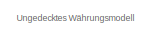
[diagram: root canvas - part 1/17, top left region]
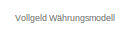
[diagram: root canvas - part 2/17, top center region]
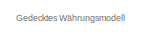
[diagram: root canvas - part 3/17, top right region]
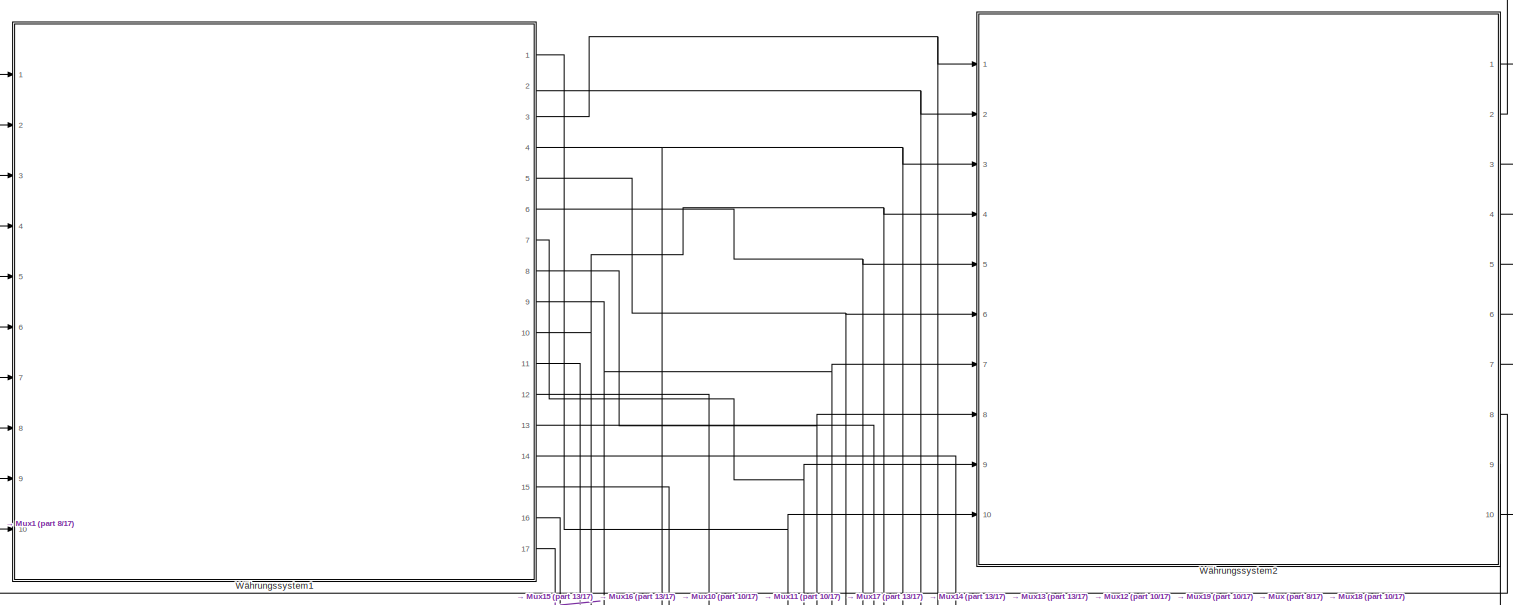
[diagram: root canvas - part 4/17, top left region]
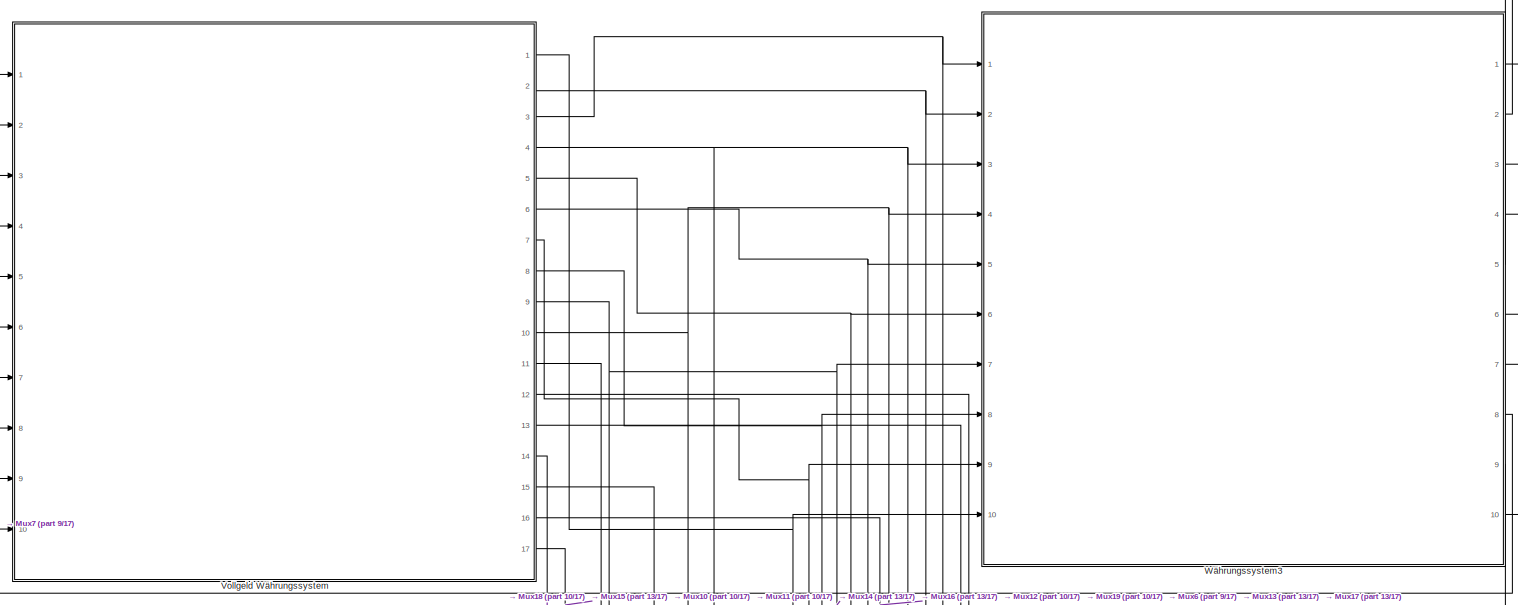
[diagram: root canvas - part 5/17, top center region]
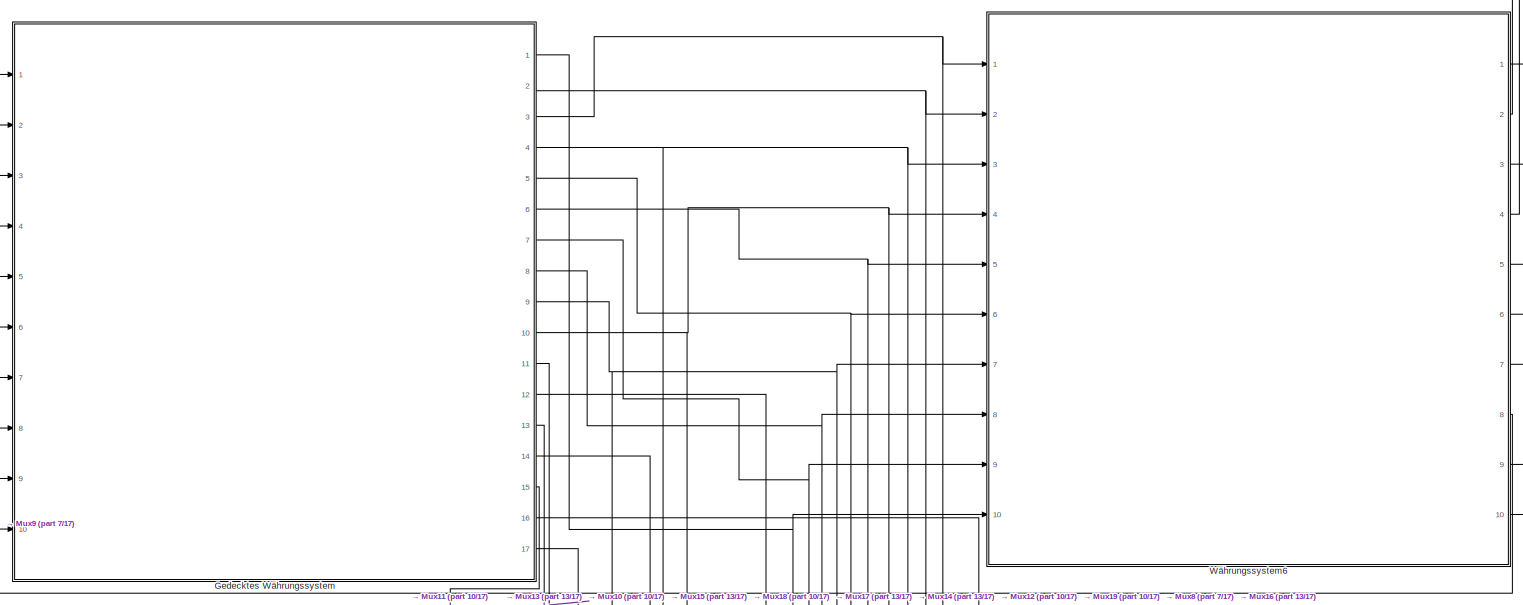
[diagram: root canvas - part 6/17, top right region]
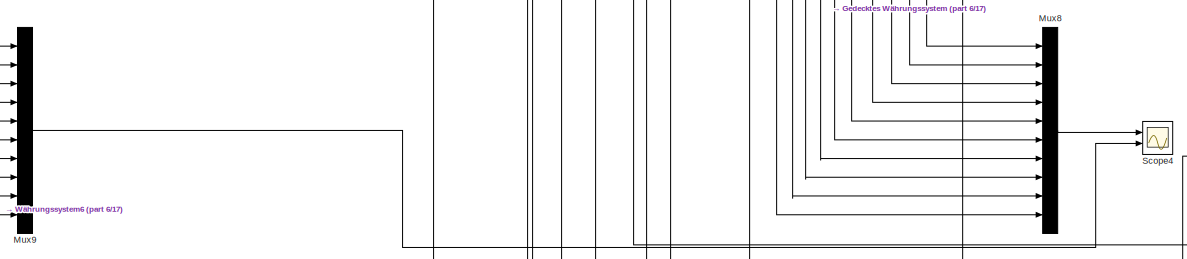
[diagram: root canvas - part 7/17, middle right region]
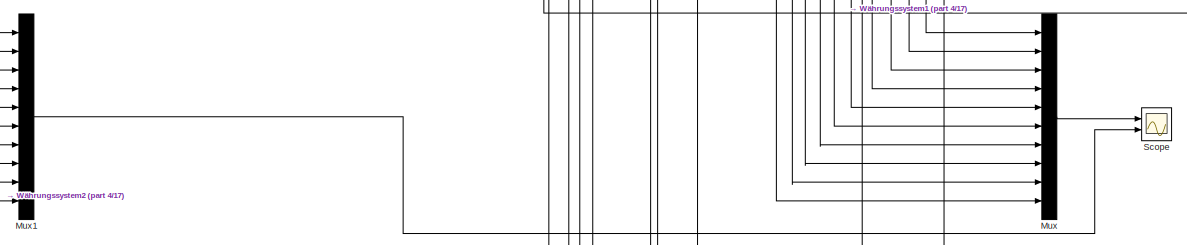
[diagram: root canvas - part 8/17, middle left region]
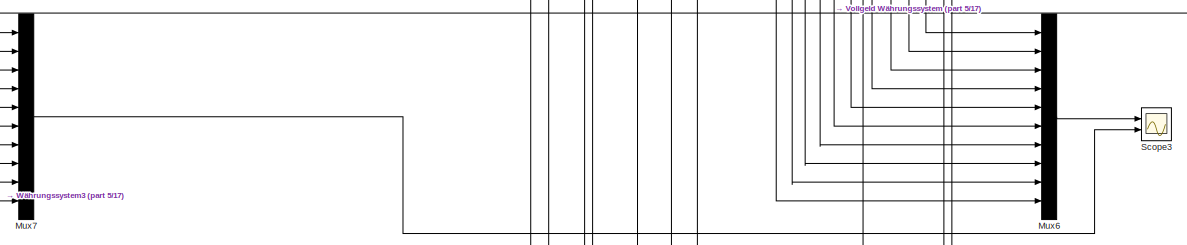
[diagram: root canvas - part 9/17, central region]
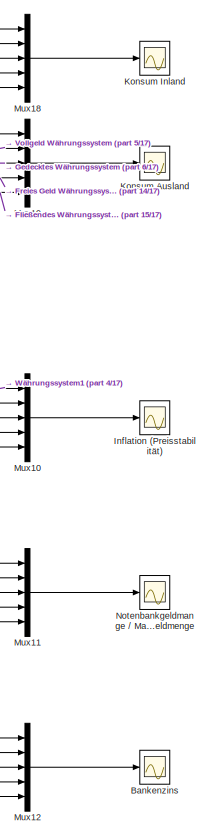
[diagram: root canvas - part 10/17, middle right region]
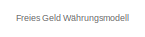
[diagram: root canvas - part 11/17, middle left region]
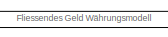
[diagram: root canvas - part 12/17, central region]
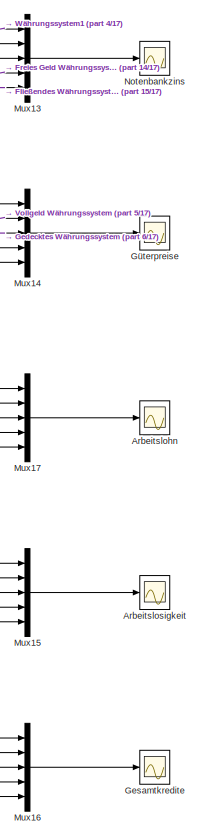
[diagram: root canvas - part 13/17, bottom right region]
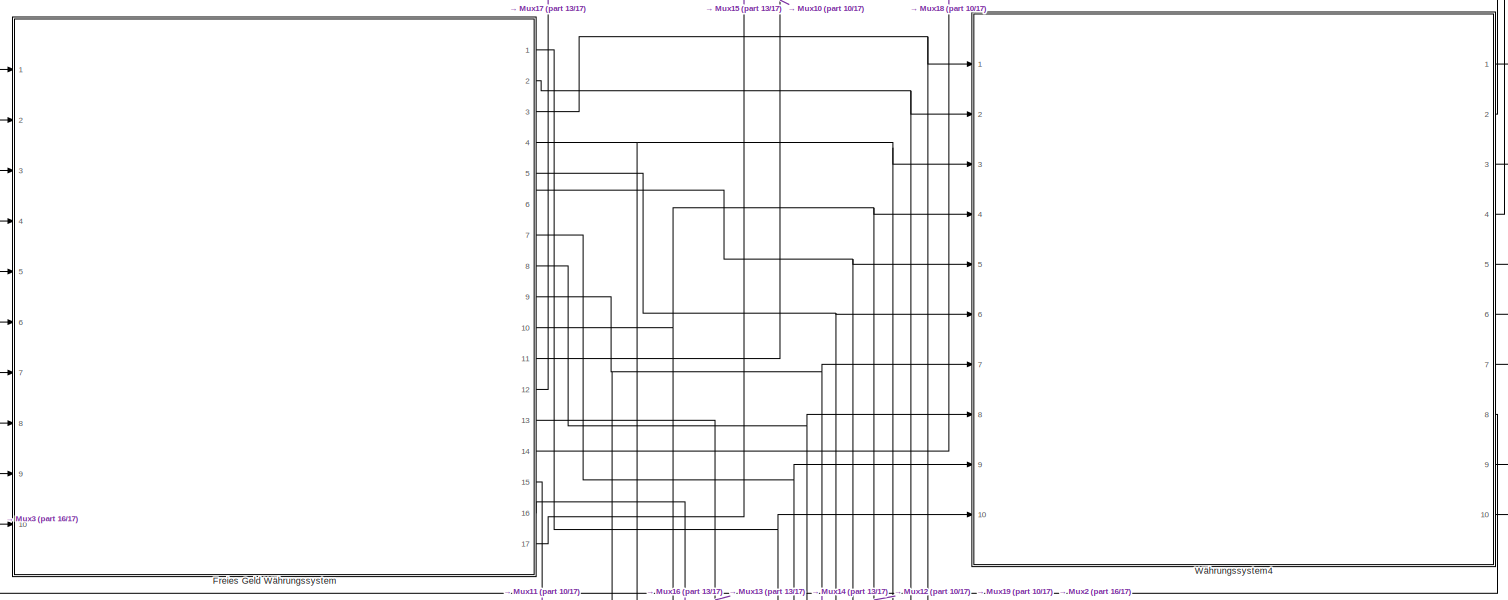
[diagram: root canvas - part 14/17, bottom left region]
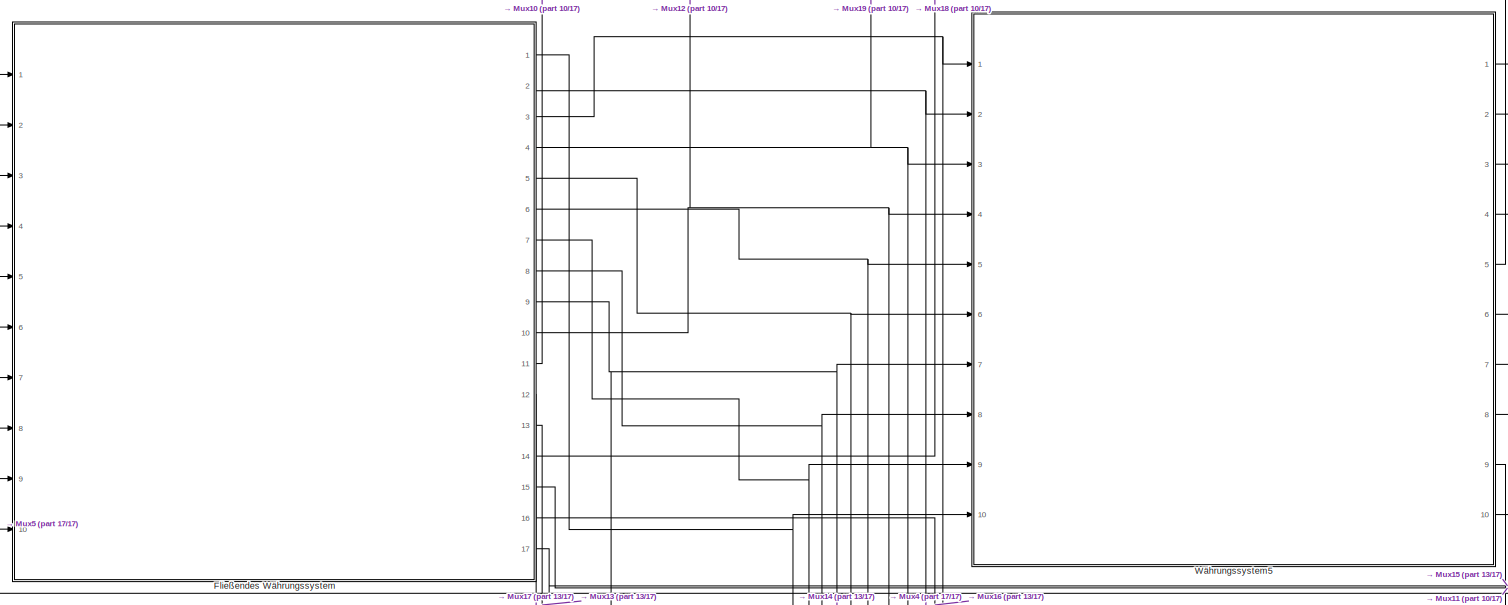
[diagram: root canvas - part 15/17, bottom center region]
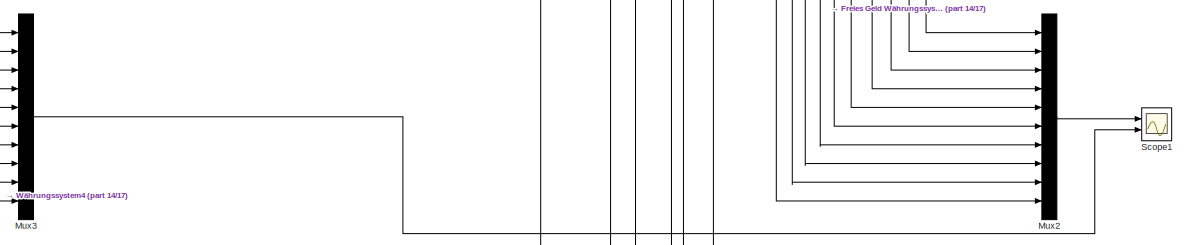
[diagram: root canvas - part 16/17, bottom left region]
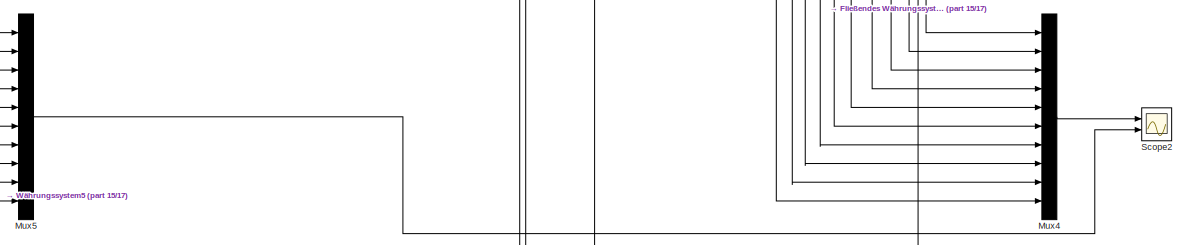
[diagram: root canvas - part 17/17, bottom center region]
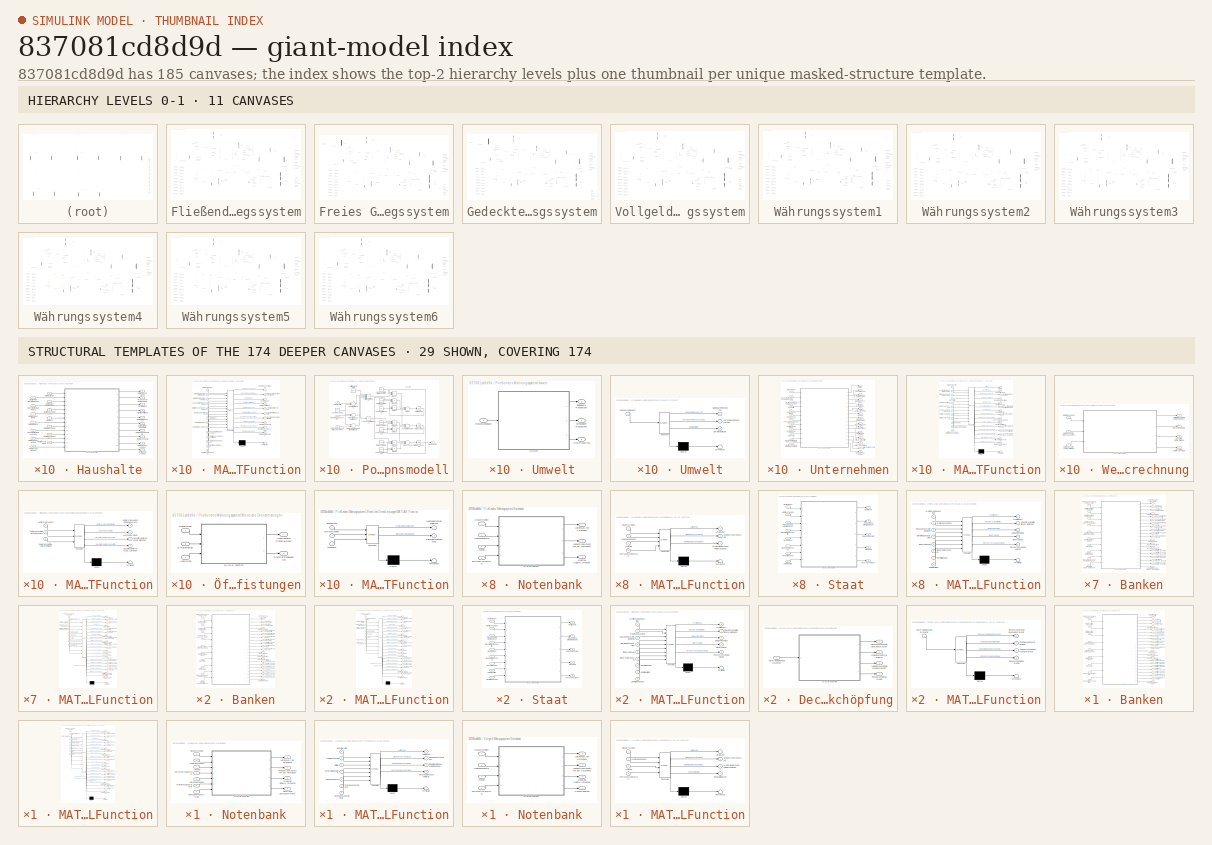
[diagram: thumbnail index - top-2 hierarchy levels (11 canvases) + 29 structural-template representatives of the remaining 174 canvases]
MODEL slx_837081cd8d9d
KIND model
BLOCK [Scope] Arbeitslohn
  Floating = off
  LegendLocations = 0.063533      0.7568     0.22129      0.1581
  NumInputPorts = 1
  Ports = [1]
  SaveName = ScopeData25
  ShowLegends = on
  YMax = 70
  YMin = 0
BLOCK [Scope] Arbeitslosigkeit
  Floating = off
  NumInputPorts = 1
  Ports = [1]
  SaveName = ScopeData22
  ShowLegends = on
  YMax = 1
  YMin = -0.1
BLOCK [Scope] Bankenzins
  Floating = off
  LegendLocations = 0.84158     0.87874     0.14271    0.083754
  NumInputPorts = 1
  Ports = [1]
  SaveName = ScopeData20
  ShowLegends = on
  YMax = 0.6
  YMin = -0.2
BLOCK [SubSystem] Fließendes Währungssystem
  Ports = [10, 17]
  RequestExecContextInheritance = off
BLOCK [Outport] Fließendes Währungssystem/Arbeitslohn
  IconDisplay = Port number
  Port = 12
BLOCK [Delay] Fließendes Währungssystem/Arbeitslohn: 4
  DelayLength = 1
  InitialCondition = 4
  InputPortMap = u0
  Ports = [1, 1]
BLOCK [Delay] Fließendes Währungssystem/Arbeitslosenquote: 0
  DelayLength = 1
  InitialCondition = 0
  InputPortMap = u0
  Ports = [1, 1]
BLOCK [Outport] Fließendes Währungssystem/Arbeitslosigkeit
  IconDisplay = Port number
  Port = 17
BLOCK [Delay] Fließendes Währungssystem/Arbeitsplätze Unternehmen: 10 
  DelayLength = 1
  InitialCondition = 10
  InputPortMap = u0
  Ports = [1, 1]
BLOCK [Delay] Fließendes Währungssystem/Arbeitsplätze Unternehmen: 5
  DelayLength = 1
  InitialCondition = 5
  InputPortMap = u0
  Ports = [1, 1]
BLOCK [Scope] Fließendes Währungssystem/Bank
  DataFormat = StructureWithTime
  Floating = off
  LegendLocations = 0.20306     0.84552     0.11562    0.099563\n0.033967     0.22591    0.090625    0.036327
  NumInputPorts = 2
  Ports = [2]
  SampleTime = 0
  ShowLegends = on
  TimeRange = 20
  YMax = 500~0.1
  YMin = -500~0
BLOCK [Scope] Fließendes Währungssystem/Bank1
  DataFormat = StructureWithTime
  Floating = off
  LegendLocations = 0.42903     0.53503     0.14792    0.036327\n0.041123      0.0635     0.11667    0.083754
  NumInputPorts = 2
  Ports = [2]
  SampleTime = 0
  SaveName = ScopeData3
  ShowLegends = on
  TimeRange = 20
  YMax = 10000~0.5
  YMin = -500~-0.5
BLOCK [Outport] Fließendes Währungssystem/Bank: Kreditrückzahlung der Haushalte Ausland
  IconDisplay = Port number
  Port = 7
BLOCK [Outport] Fließendes Währungssystem/Bank: Kreditrückzahlung der Unternemen Ausland
  IconDisplay = Port number
  Port = 5
BLOCK [Outport] Fließendes Währungssystem/Bank: Kreditvergabe der Haushalte Ausland 
  IconDisplay = Port number
  Port = 8
BLOCK [Outport] Fließendes Währungssystem/Bank: Kreditvergabe der Unternemen Ausland 
  IconDisplay = Port number
  Port = 6
BLOCK [SubSystem] Fließendes Währungssystem/Banken
  Ports = [10, 21]
  RequestExecContextInheritance = off
BLOCK [Outport] Fließendes Währungssystem/Banken/Bankenzinssatz
  IconDisplay = Port number
  Port = 11
BLOCK [Outport] Fließendes Währungssystem/Banken/Bankgewinn nach Steuern
  IconDisplay = Port number
  Port = 8
BLOCK [Outport] Fließendes Währungssystem/Banken/Bankkontostand
  IconDisplay = Port number
  Port = 10
BLOCK [Outport] Fließendes Währungssystem/Banken/Banksteuern
  IconDisplay = Port number
  Port = 9
BLOCK [Inport] Fließendes Währungssystem/Banken/Einlangenänderung der Haushalte
  IconDisplay = Port number
BLOCK [Outport] Fließendes Währungssystem/Banken/Kontostand der Haushalte
  IconDisplay = Port number
BLOCK [Inport] Fließendes Währungssystem/Banken/Kreditbedarf der Haushalte
  IconDisplay = Port number
  Port = 2
BLOCK [Inport] Fließendes Währungssystem/Banken/Kreditbedarf der Haushalte im Ausland
  IconDisplay = Port number
  Port = 4
BLOCK [Inport] Fließendes Währungssystem/Banken/Kreditbedarf der Unternehmen
  IconDisplay = Port number
  Port = 3
BLOCK [Inport] Fließendes Währungssystem/Banken/Kreditbedarf der Unternehmen im Ausland
  IconDisplay = Port number
  Port = 5
BLOCK [Inport] Fließendes Währungssystem/Banken/Kreditbedarf des Staates
  IconDisplay = Port number
  Port = 6
BLOCK [Outport] Fließendes Währungssystem/Banken/Kredite der Haushalte
  IconDisplay = Port number
  Port = 2
BLOCK [Outport] Fließendes Währungssystem/Banken/Kredite der Haushalte im Ausland
  IconDisplay = Port number
  Port = 18
BLOCK [Outport] Fließendes Währungssystem/Banken/Kredite der Unternehmen
  IconDisplay = Port number
  Port = 3
BLOCK [Outport] Fließendes Währungssystem/Banken/Kredite der Unternehmen im Ausland
  IconDisplay = Port number
  Port = 15
BLOCK [Outport] Fließendes Währungssystem/Banken/Kredite des Staates
  IconDisplay = Port number
  Port = 4
BLOCK [Outport] Fließendes Währungssystem/Banken/Kreditrückzahlung Haushalte
  IconDisplay = Port number
  Port = 13
BLOCK [Outport] Fließendes Währungssystem/Banken/Kreditrückzahlung Staat
  IconDisplay = Port number
  Port = 12
BLOCK [Outport] Fließendes Währungssystem/Banken/Kreditrückzahlung Unternehmen
  IconDisplay = Port number
  Port = 14
BLOCK [Outport] Fließendes Währungssystem/Banken/Kreditrückzahlung der Haushalte im Ausland
  IconDisplay = Port number
  Port = 19
BLOCK [Outport] Fließendes Währungssystem/Banken/Kreditrückzahlung der Unternehmen im Ausland
  IconDisplay = Port number
  Port = 16
BLOCK [Outport] Fließendes Währungssystem/Banken/Kreditvergabe der Haushalte im Ausland
  IconDisplay = Port number
  Port = 20
BLOCK [Outport] Fließendes Währungssystem/Banken/Kreditvergabe der Unternehmen im Ausland
  IconDisplay = Port number
  Port = 17
BLOCK [Inport] Fließendes Währungssystem/Banken/Leitzins der Notenbank
  IconDisplay = Port number
  Port = 8
BLOCK [Outport] Fließendes Währungssystem/Banken/Liquiditätsabgabe
  IconDisplay = Port number
  Port = 21
BLOCK [SubSystem] Fließendes Währungssystem/Banken/MATLAB Function
  ErrorFcn = Stateflow.Translate.translate
  PermitHierarchicalResolution = ExplicitOnly
  Ports = [10, 21]
  RequestExecContextInheritance = off
  SFBlockType = MATLAB Function
  TreatAsAtomicUnit = on
BLOCK [Demux] Fließendes Währungssystem/Banken/MATLAB Function/ Demux 
  Outputs = 1
  Ports = [1, 1]
BLOCK [S-Function] Fließendes Währungssystem/Banken/MATLAB Function/ SFunction 
  EnableBusSupport = on
  FunctionName = sf_sfun
  PortCounts = [10 22]
  Ports = [10, 22]
  Tag = Stateflow S-Function Alle_Waehrungssystem_12062015 34
BLOCK [Terminator] Fließendes Währungssystem/Banken/MATLAB Function/ Terminator 
BLOCK [Outport] Fließendes Währungssystem/Banken/MATLAB Function/BankKontostand
  IconDisplay = Port number
  Port = 13
BLOCK [Outport] Fließendes Währungssystem/Banken/MATLAB Function/BankenSteuern
  IconDisplay = Port number
  Port = 12
BLOCK [Outport] Fließendes Währungssystem/Banken/MATLAB Function/Bankenzinssatz
  IconDisplay = Port number
  Port = 14
BLOCK [Outport] Fließendes Währungssystem/Banken/MATLAB Function/BankgewinnNachSteuern
  IconDisplay = Port number
  Port = 11
BLOCK [Inport] Fließendes Währungssystem/Banken/MATLAB Function/EinlagenAenderungHaushalte
  IconDisplay = Port number
BLOCK [Outport] Fließendes Währungssystem/Banken/MATLAB Function/KontoHaushalteOut
  IconDisplay = Port number
BLOCK [Inport] Fließendes Währungssystem/Banken/MATLAB Function/KreditbedarfHaushalte
  IconDisplay = Port number
  Port = 2
BLOCK [Inport] Fließendes Währungssystem/Banken/MATLAB Function/KreditbedarfHaushalteAusland
  IconDisplay = Port number
  Port = 4
BLOCK [Inport] Fließendes Währungssystem/Banken/MATLAB Function/KreditbedarfStaat
  IconDisplay = Port number
  Port = 6
BLOCK [Inport] Fließendes Währungssystem/Banken/MATLAB Function/KreditbedarfUnternehmen
  IconDisplay = Port number
  Port = 3
BLOCK [Inport] Fließendes Währungssystem/Banken/MATLAB Function/KreditbedarfUnternehmenAusland
  IconDisplay = Port number
  Port = 5
BLOCK [Outport] Fließendes Währungssystem/Banken/MATLAB Function/KrediteHaushalteAuslandOut
  IconDisplay = Port number
  Port = 18
BLOCK [Outport] Fließendes Währungssystem/Banken/MATLAB Function/KrediteHaushalteOut
  IconDisplay = Port number
  Port = 2
BLOCK [Outport] Fließendes Währungssystem/Banken/MATLAB Function/KrediteStaatOut
  IconDisplay = Port number
  Port = 4
BLOCK [Outport] Fließendes Währungssystem/Banken/MATLAB Function/KrediteUnternehmenAuslandOut
  IconDisplay = Port number
  Port = 15
BLOCK [Outport] Fließendes Währungssystem/Banken/MATLAB Function/KrediteUnternehmenOut
  IconDisplay = Port number
  Port = 3
BLOCK [Outport] Fließendes Währungssystem/Banken/MATLAB Function/KreditrueckzahlungHaushalte
  IconDisplay = Port number
  Port = 8
BLOCK [Outport] Fließendes Währungssystem/Banken/MATLAB Function/KreditrueckzahlungHaushalteAusland
  IconDisplay = Port number
  Port = 19
BLOCK [Outport] Fließendes Währungssystem/Banken/MATLAB Function/KreditrueckzahlungStaat
  IconDisplay = Port number
  Port = 10
BLOCK [Outport] Fließendes Währungssystem/Banken/MATLAB Function/KreditrueckzahlungUnternehmen
  IconDisplay = Port number
  Port = 9
BLOCK [Outport] Fließendes Währungssystem/Banken/MATLAB Function/KreditrueckzahlungUnternehmenAusland
  IconDisplay = Port number
  Port = 16
BLOCK [Outport] Fließendes Währungssystem/Banken/MATLAB Function/KreditvergabeHaushalte
  IconDisplay = Port number
  Port = 5
BLOCK [Outport] Fließendes Währungssystem/Banken/MATLAB Function/KreditvergabeHaushalteAusland
  IconDisplay = Port number
  Port = 20
BLOCK [Outport] Fließendes Währungssystem/Banken/MATLAB Function/KreditvergabeStaat
  IconDisplay = Port number
  Port = 7
BLOCK [Outport] Fließendes Währungssystem/Banken/MATLAB Function/KreditvergabeUnternehmen
  IconDisplay = Port number
  Port = 6
BLOCK [Outport] Fließendes Währungssystem/Banken/MATLAB Function/KreditvergabeUnternehmenAusland
  IconDisplay = Port number
  Port = 17
BLOCK [Inport] Fließendes Währungssystem/Banken/MATLAB Function/Leitzins
  IconDisplay = Port number
  Port = 8
BLOCK [Outport] Fließendes Währungssystem/Banken/MATLAB Function/Liquiditaetsabgabe
  IconDisplay = Port number
  Port = 21
BLOCK [Inport] Fließendes Währungssystem/Banken/MATLAB Function/MaximaleNotenbankGeldmenge
  IconDisplay = Port number
  Port = 10
BLOCK [Inport] Fließendes Währungssystem/Banken/MATLAB Function/Mindestreservesatz
  IconDisplay = Port number
  Port = 9
BLOCK [Inport] Fließendes Währungssystem/Banken/MATLAB Function/Steuersatz
  IconDisplay = Port number
  Port = 7
BLOCK [Inport] Fließendes Währungssystem/Banken/Maximale Geldmenge der Notebank
  IconDisplay = Port number
  Port = 10
BLOCK [Inport] Fließendes Währungssystem/Banken/Mindestreservesatz der Notenbank
  IconDisplay = Port number
  Port = 9
BLOCK [Outport] Fließendes Währungssystem/Banken/Neue Kreditvergabe Haushalte
  IconDisplay = Port number
  Port = 5
BLOCK [Outport] Fließendes Währungssystem/Banken/Neue Kreditvergabe Staat
  IconDisplay = Port number
  Port = 7
BLOCK [Outport] Fließendes Währungssystem/Banken/Neue Kreditvergabe Unternehmen
  IconDisplay = Port number
  Port = 6
BLOCK [Inport] Fließendes Währungssystem/Banken/Steuersatz
  IconDisplay = Port number
  Port = 7
BLOCK [Outport] Fließendes Währungssystem/Bankenzinssatz
  IconDisplay = Port number
  Port = 10
BLOCK [Delay] Fließendes Währungssystem/Dienstleistungsqualität: 0
  DelayLength = 1
  InitialCondition = 0
  InputPortMap = u0
  Ports = [1, 1]
BLOCK [Delay] Fließendes Währungssystem/Einlagenänderung Haushalte: 0
  DelayLength = 1
  InitialCondition = 0
  InputPortMap = u0
  Ports = [1, 1]
BLOCK [Delay] Fließendes Währungssystem/Erwerbstätige: 30
  DelayLength = 1
  InitialCondition = 30
  InputPortMap = u0
  Ports = [1, 1]
BLOCK [Delay] Fließendes Währungssystem/Finanzbedarf Arbeitslosigkeit:0
  DelayLength = 1
  InitialCondition = 0
  InputPortMap = u0
  Ports = [1, 1]
BLOCK [Outport] Fließendes Währungssystem/Gesamtkredite
  IconDisplay = Port number
  Port = 16
BLOCK [Delay] Fließendes Währungssystem/Gesamtkredite: 0
  DelayLength = 1
  InitialCondition = 0
  InputPortMap = u0
  Ports = [1, 1]
BLOCK [Outport] Fließendes Währungssystem/Güterangebot an  Ausland
  IconDisplay = Port number
BLOCK [Inport] Fließendes Währungssystem/Güterangebot vom  Ausland
  IconDisplay = Port number
  Port = 10
BLOCK [Delay] Fließendes Währungssystem/Güterangebot vom  Ausland: 0
  DelayLength = 1
  InitialCondition = 0
  InputPortMap = u0
  Ports = [1, 1]
BLOCK [Delay] Fließendes Währungssystem/Güterangebot: 0
  DelayLength = 1
  InitialCondition = 0
  InputPortMap = u0
  Ports = [1, 1]
BLOCK [Delay] Fließendes Währungssystem/Güterangebotsqualität: 0
  DelayLength = 1
  InitialCondition = 0
  InputPortMap = u0
  Ports = [1, 1]
BLOCK [Inport] Fließendes Währungssystem/Güterkonsum Ausland
  IconDisplay = Port number
  Port = 3
BLOCK [Delay] Fließendes Währungssystem/Güterkonsum Ausland: 0
  DelayLength = 1
  InitialCondition = 0
  InputPortMap = u0
  Ports = [1, 1]
BLOCK [Outport] Fließendes Währungssystem/Güterkonsum Inland
  IconDisplay = Port number
  Port = 14
BLOCK [Outport] Fließendes Währungssystem/Güterkonsum vom Ausland
  IconDisplay = Port number
  Port = 4
BLOCK [Delay] Fließendes Währungssystem/Güterkonsum: 50
  DelayLength = 1
  InitialCondition = 50
  InputPortMap = u0
  Ports = [1, 1]
BLOCK [Outport] Fließendes Währungssystem/Güterpreis
  IconDisplay = Port number
  Port = 9
BLOCK [Inport] Fließendes Währungssystem/Güterpreis Ausland
  IconDisplay = Port number
  Port = 7
BLOCK [Delay] Fließendes Währungssystem/Güterpreis Ausland in Eigenwährung: 4
  DelayLength = 1
  InitialCondition = 4
  InputPortMap = u0
  Ports = [1, 1]
BLOCK [Delay] Fließendes Währungssystem/Güterpreis Ausland: 5
  DelayLength = 1
  InitialCondition = 5
  InputPortMap = u0
  Ports = [1, 1]
BLOCK [Delay] Fließendes Währungssystem/Güterpreis: 3
  DelayLength = 1
  InitialCondition = 3
  InputPortMap = u0
  Ports = [1, 1]
BLOCK [SubSystem] Fließendes Währungssystem/Haushalte
  Ports = [14, 10]
  RequestExecContextInheritance = off
BLOCK [Scope] Fließendes Währungssystem/Haushalte 
  DataFormat = StructureWithTime
  Floating = off
  LegendLocations = 0.85877     0.86293     0.12552    0.099563\n0.87856     0.53801     0.10573    0.099563\n 0.8572     0.24571     0.12708    0.067945
  NumInputPorts = 3
  Ports = [3]
  SampleTime = 0
  SaveName = ScopeData1
  ShowLegends = on
  TickLabels = on
  TimeRange = 100
  YMax = 150~100~1
  YMin = -50~0~0
BLOCK [Outport] Fließendes Währungssystem/Haushalte/Arbeiter Unternehmen
  IconDisplay = Port number
  Port = 5
BLOCK [Inport] Fließendes Währungssystem/Haushalte/Arbeitslohn
  IconDisplay = Port number
  Port = 4
BLOCK [Outport] Fließendes Währungssystem/Haushalte/Arbeitslosenquote
  IconDisplay = Port number
  Port = 8
BLOCK [Inport] Fließendes Währungssystem/Haushalte/Arbeitsplätze Dienstleistungen
  IconDisplay = Port number
  Port = 2
BLOCK [Inport] Fließendes Währungssystem/Haushalte/Arbeitsplätze Unternehmen
  IconDisplay = Port number
  Port = 7
BLOCK [Inport] Fließendes Währungssystem/Haushalte/Erwerbsfähige
  IconDisplay = Port number
BLOCK [Outport] Fließendes Währungssystem/Haushalte/Finanzbedarf Arbeitslosigkeit
  IconDisplay = Port number
  Port = 2
BLOCK [Inport] Fließendes Währungssystem/Haushalte/Güterangebot Ausland
  IconDisplay = Port number
  Port = 12
BLOCK [Inport] Fließendes Währungssystem/Haushalte/Güterangebot Inland
  IconDisplay = Port number
  Port = 3
BLOCK [Outport] Fließendes Währungssystem/Haushalte/Güterangebotsqualität
  IconDisplay = Port number
  Port = 7
BLOCK [Outport] Fließendes Währungssystem/Haushalte/Güterkonsum Ausland
  IconDisplay = Port number
  Port = 9
BLOCK [Outport] Fließendes Währungssystem/Haushalte/Güterkonsum Inland
  IconDisplay = Port number
BLOCK [Inport] Fließendes Währungssystem/Haushalte/Güterpreis Ausland
  IconDisplay = Port number
  Port = 9
BLOCK [Inport] Fließendes Währungssystem/Haushalte/Güterpreis Inland
  IconDisplay = Port number
  Port = 5
BLOCK [Outport] Fließendes Währungssystem/Haushalte/Gütervorrat der Haushalte
  IconDisplay = Port number
  Port = 6
BLOCK [Outport] Fließendes Währungssystem/Haushalte/Kreditbedarf Ausland
  IconDisplay = Port number
  Port = 10
BLOCK [Outport] Fließendes Währungssystem/Haushalte/Kreditbedarf Inland
  IconDisplay = Port number
  Port = 4
BLOCK [Inport] Fließendes Währungssystem/Haushalte/Kreditrückzahlung Ausland
  IconDisplay = Port number
  Port = 8
BLOCK [Inport] Fließendes Währungssystem/Haushalte/Kreditrückzahlung Inland
  IconDisplay = Port number
  Port = 11
BLOCK [Inport] Fließendes Währungssystem/Haushalte/Kreditzinssatz Ausland
  IconDisplay = Port number
  Port = 14
BLOCK [Inport] Fließendes Währungssystem/Haushalte/Kreditzinssatz Inland
  IconDisplay = Port number
  Port = 13
BLOCK [SubSystem] Fließendes Währungssystem/Haushalte/MATLAB Function
  ErrorFcn = Stateflow.Translate.translate
  PermitHierarchicalResolution = ExplicitOnly
  Ports = [14, 10]
  RequestExecContextInheritance = off
  SFBlockType = MATLAB Function
  TreatAsAtomicUnit = on
BLOCK [Demux] Fließendes Währungssystem/Haushalte/MATLAB Function/ Demux 
  Outputs = 1
  Ports = [1, 1]
BLOCK [S-Function] Fließendes Währungssystem/Haushalte/MATLAB Function/ SFunction 
  EnableBusSupport = on
  FunctionName = sf_sfun
  PortCounts = [14 11]
  Ports = [14, 11]
  Tag = Stateflow S-Function Alle_Waehrungssystem_12062015 35
BLOCK [Terminator] Fließendes Währungssystem/Haushalte/MATLAB Function/ Terminator 
BLOCK [Outport] Fließendes Währungssystem/Haushalte/MATLAB Function/ArbeiterUnternehmen
  IconDisplay = Port number
  Port = 5
BLOCK [Inport] Fließendes Währungssystem/Haushalte/MATLAB Function/Arbeitslohn
  IconDisplay = Port number
  Port = 7
BLOCK [Outport] Fließendes Währungssystem/Haushalte/MATLAB Function/Arbeitslosenquote
  IconDisplay = Port number
  Port = 8
BLOCK [Inport] Fließendes Währungssystem/Haushalte/MATLAB Function/ArbeitsplaetzeDienstleistungen
  IconDisplay = Port number
  Port = 2
BLOCK [Inport] Fließendes Währungssystem/Haushalte/MATLAB Function/ArbeitsplaetzeUnternehmen
  IconDisplay = Port number
  Port = 3
BLOCK [Inport] Fließendes Währungssystem/Haushalte/MATLAB Function/Erwerbsfaehige
  IconDisplay = Port number
BLOCK [Outport] Fließendes Währungssystem/Haushalte/MATLAB Function/FinanzierungArbeitslosigkeit
  IconDisplay = Port number
  Port = 2
BLOCK [Inport] Fließendes Währungssystem/Haushalte/MATLAB Function/GueterAngebotAusland
  IconDisplay = Port number
  Port = 12
BLOCK [Inport] Fließendes Währungssystem/Haushalte/MATLAB Function/GueterAngebotInland
  IconDisplay = Port number
  Port = 6
BLOCK [Outport] Fließendes Währungssystem/Haushalte/MATLAB Function/GueterVorratHaushalte
  IconDisplay = Port number
  Port = 6
BLOCK [Outport] Fließendes Währungssystem/Haushalte/MATLAB Function/GueterangebotsqualitaetOut
  IconDisplay = Port number
  Port = 7
BLOCK [Outport] Fließendes Währungssystem/Haushalte/MATLAB Function/GueterkonsumAusland
  IconDisplay = Port number
  Port = 9
BLOCK [Outport] Fließendes Währungssystem/Haushalte/MATLAB Function/GueterkonsumInland
  IconDisplay = Port number
BLOCK [Inport] Fließendes Währungssystem/Haushalte/MATLAB Function/GueterpreisAusland
  IconDisplay = Port number
  Port = 9
BLOCK [Inport] Fließendes Währungssystem/Haushalte/MATLAB Function/GueterpreisInland
  IconDisplay = Port number
  Port = 8
BLOCK [Inport] Fließendes Währungssystem/Haushalte/MATLAB Function/KreditZinssatzAusland
  IconDisplay = Port number
  Port = 14
BLOCK [Inport] Fließendes Währungssystem/Haushalte/MATLAB Function/KreditZinssatzInland
  IconDisplay = Port number
  Port = 13
BLOCK [Outport] Fließendes Währungssystem/Haushalte/MATLAB Function/KreditbedarfAusland
  IconDisplay = Port number
  Port = 10
BLOCK [Outport] Fließendes Währungssystem/Haushalte/MATLAB Function/KreditbedarfInland
  IconDisplay = Port number
  Port = 4
BLOCK [Inport] Fließendes Währungssystem/Haushalte/MATLAB Function/KreditrueckzahlungAusland
  IconDisplay = Port number
  Port = 11
BLOCK [Inport] Fließendes Währungssystem/Haushalte/MATLAB Function/KreditrueckzahlungInland
  IconDisplay = Port number
  Port = 5
BLOCK [Inport] Fließendes Währungssystem/Haushalte/MATLAB Function/NeueKreditvergabeAusland
  IconDisplay = Port number
  Port = 10
BLOCK [Inport] Fließendes Währungssystem/Haushalte/MATLAB Function/NeueKreditvergabeInland
  IconDisplay = Port number
  Port = 4
BLOCK [Outport] Fließendes Währungssystem/Haushalte/MATLAB Function/Spareinlagen
  IconDisplay = Port number
  Port = 3
BLOCK [Inport] Fließendes Währungssystem/Haushalte/Neue Kreditvergabe Ausland
  IconDisplay = Port number
  Port = 10
BLOCK [Inport] Fließendes Währungssystem/Haushalte/Neue Kreditvergabe Inland
  IconDisplay = Port number
  Port = 6
BLOCK [Outport] Fließendes Währungssystem/Haushalte/Spareinlagen
  IconDisplay = Port number
  Port = 3
BLOCK [Outport] Fließendes Währungssystem/Inflation
  IconDisplay = Port number
  Port = 11
BLOCK [Delay] Fließendes Währungssystem/Inflation: 0
  DelayLength = 1
  InitialCondition = 0
  InputPortMap = u0
  Ports = [1, 1]
BLOCK [Outport] Fließendes Währungssystem/Kreditbedarf Ausland Haushalte
  IconDisplay = Port number
  Port = 3
BLOCK [Outport] Fließendes Währungssystem/Kreditbedarf Ausland Unternehmen
  IconDisplay = Port number
  Port = 2
BLOCK [Delay] Fließendes Währungssystem/Kreditbedarf Haushalte: 0
  DelayLength = 1
  InitialCondition = 0
  InputPortMap = u0
  Ports = [1, 1]
BLOCK [Delay] Fließendes Währungssystem/Kreditbedarf Unternehmen: 0
  DelayLength = 1
  InitialCondition = 0
  InputPortMap = u0
  Ports = [1, 1]
BLOCK [Inport] Fließendes Währungssystem/Kreditbedarf der Haushalte im Ausland
  IconDisplay = Port number
BLOCK [Delay] Fließendes Währungssystem/Kreditbedarf der Haushalte im Ausland: 0
  DelayLength = 1
  InitialCondition = 0
  InputPortMap = u0
  Ports = [1, 1]
BLOCK [Inport] Fließendes Währungssystem/Kreditbedarf der Unternehmen im Ausland
  IconDisplay = Port number
  Port = 2
BLOCK [Delay] Fließendes Währungssystem/Kreditbedarf der Unternehmen im Ausland: 0
  DelayLength = 1
  InitialCondition = 0
  InputPortMap = u0
  Ports = [1, 1]
BLOCK [Sum] Fließendes Währungssystem/Kredite gesamt
  InputSameDT = off
  Inputs = +++++
  OutDataTypeStr = Inherit: Inherit via internal rule
  Ports = [5, 1]
  SaturateOnIntegerOverflow = off
BLOCK [Inport] Fließendes Währungssystem/Kreditrückzahlung der Haushalte Ausland
  IconDisplay = Port number
  Port = 9
BLOCK [Delay] Fließendes Währungssystem/Kreditrückzahlung der Haushalte Ausland: 0
  DelayLength = 1
  InitialCondition = 0
  InputPortMap = u0
  Ports = [1, 1]
BLOCK [Inport] Fließendes Währungssystem/Kreditrückzahlung der Unternehmen Ausland
  IconDisplay = Port number
  Port = 6
BLOCK [Delay] Fließendes Währungssystem/Kreditrückzahlung der Unternehmen Ausland: 0
  DelayLength = 1
  InitialCondition = 0
  InputPortMap = u0
  Ports = [1, 1]
BLOCK [Delay] Fließendes Währungssystem/Kreditrückzahlung: 0
  DelayLength = 1
  InitialCondition = 0
  InputPortMap = u0
  Ports = [1, 1]
BLOCK [Delay] Fließendes Währungssystem/Kreditrückzahlung:0
  DelayLength = 1
  InitialCondition = 0
  InputPortMap = u0
  Ports = [1, 1]
BLOCK [Delay] Fließendes Währungssystem/Kreditvergabe: 0
  DelayLength = 1
  InitialCondition = 0
  InputPortMap = u0
  Ports = [1, 1]
BLOCK [Delay] Fließendes Währungssystem/Liquiditätsabgabe: 0
  DelayLength = 1
  InitialCondition = 0
  InputPortMap = u0
  Ports = [1, 1]
BLOCK [Mux] Fließendes Währungssystem/Mux
  DisplayOption = bar
  Inputs = 6
  Ports = [6, 1]
BLOCK [Mux] Fließendes Währungssystem/Mux1
  DisplayOption = bar
  Inputs = 2
  Ports = [2, 1]
BLOCK [Mux] Fließendes Währungssystem/Mux10
  DisplayOption = bar
  Ports = [4, 1]
BLOCK [Mux] Fließendes Währungssystem/Mux11
  DisplayOption = bar
  Inputs = 5
  Ports = [5, 1]
BLOCK [Mux] Fließendes Währungssystem/Mux12
  DisplayOption = bar
  Inputs = 5
  Ports = [5, 1]
BLOCK [Mux] Fließendes Währungssystem/Mux13
  DisplayOption = bar
  Inputs = 7
  Ports = [7, 1]
BLOCK [Mux] Fließendes Währungssystem/Mux14
  DisplayOption = bar
  Inputs = 2
  Ports = [2, 1]
BLOCK [Mux] Fließendes Währungssystem/Mux2
  DisplayOption = bar
  Inputs = 5
  Ports = [5, 1]
BLOCK [Mux] Fließendes Währungssystem/Mux3
  DisplayOption = bar
  Ports = [4, 1]
BLOCK [Mux] Fließendes Währungssystem/Mux4
  DisplayOption = bar
  Ports = [4, 1]
BLOCK [Mux] Fließendes Währungssystem/Mux5
  DisplayOption = bar
  Inputs = 8
  Ports = [8, 1]
BLOCK [Mux] Fließendes Währungssystem/Mux6
  DisplayOption = bar
  Inputs = 6
  Ports = [6, 1]
BLOCK [Mux] Fließendes Währungssystem/Mux7
  DisplayOption = bar
  Ports = [4, 1]
BLOCK [Mux] Fließendes Währungssystem/Mux8
  DisplayOption = bar
  Ports = [4, 1]
BLOCK [Mux] Fließendes Währungssystem/Mux9
  DisplayOption = bar
  Inputs = 6
  Ports = [6, 1]
BLOCK [Inport] Fließendes Währungssystem/Neue Kreditvergabe der Haushalte Ausland
  IconDisplay = Port number
  Port = 8
BLOCK [Delay] Fließendes Währungssystem/Neue Kreditvergabe der Haushalte Ausland: 0
  DelayLength = 1
  InitialCondition = 0
  InputPortMap = u0
  Ports = [1, 1]
BLOCK [Inport] Fließendes Währungssystem/Neue Kreditvergabe der Unternehmen Ausland
  IconDisplay = Port number
  Port = 5
BLOCK [Delay] Fließendes Währungssystem/Neue Kreditvergabe der Unternehmen Ausland: 0
  DelayLength = 1
  InitialCondition = 0
  InputPortMap = u0
  Ports = [1, 1]
BLOCK [Delay] Fließendes Währungssystem/Neue Kreditvergabe: 0
  DelayLength = 1
  InitialCondition = 0
  InputPortMap = u0
  Ports = [1, 1]
BLOCK [SubSystem] Fließendes Währungssystem/Notenbank
  Ports = [4, 3]
  RequestExecContextInheritance = off
BLOCK [Inport] Fließendes Währungssystem/Notenbank/Arbeitslosenquote
  IconDisplay = Port number
  Port = 2
BLOCK [Inport] Fließendes Währungssystem/Notenbank/Gesamtkredite
  IconDisplay = Port number
BLOCK [Inport] Fließendes Währungssystem/Notenbank/Inflation
  IconDisplay = Port number
  Port = 4
BLOCK [Outport] Fließendes Währungssystem/Notenbank/Leitzinssatz der Notenbank
  IconDisplay = Port number
BLOCK [SubSystem] Fließendes Währungssystem/Notenbank/MATLAB Function
  ErrorFcn = Stateflow.Translate.translate
  PermitHierarchicalResolution = ExplicitOnly
  Ports = [4, 3]
  RequestExecContextInheritance = off
  SFBlockType = MATLAB Function
  TreatAsAtomicUnit = on
BLOCK [Demux] Fließendes Währungssystem/Notenbank/MATLAB Function/ Demux 
  Outputs = 1
  Ports = [1, 1]
BLOCK [S-Function] Fließendes Währungssystem/Notenbank/MATLAB Function/ SFunction 
  EnableBusSupport = on
  FunctionName = sf_sfun
  PortCounts = [4 4]
  Ports = [4, 4]
  Tag = Stateflow S-Function Alle_Waehrungssystem_12062015 36
BLOCK [Terminator] Fließendes Währungssystem/Notenbank/MATLAB Function/ Terminator 
BLOCK [Inport] Fließendes Währungssystem/Notenbank/MATLAB Function/Arbeitslosenquote
  IconDisplay = Port number
  Port = 2
BLOCK [Inport] Fließendes Währungssystem/Notenbank/MATLAB Function/Gesamtkredite
  IconDisplay = Port number
BLOCK [Inport] Fließendes Währungssystem/Notenbank/MATLAB Function/Inflation
  IconDisplay = Port number
  Port = 3
BLOCK [Outport] Fließendes Währungssystem/Notenbank/MATLAB Function/LeitzinsOut
  IconDisplay = Port number
BLOCK [Outport] Fließendes Währungssystem/Notenbank/MATLAB Function/MaximaleNotenbankGeldmengeOut
  IconDisplay = Port number
  Port = 3
BLOCK [Outport] Fließendes Währungssystem/Notenbank/MATLAB Function/MindestreservesatzOut
  IconDisplay = Port number
  Port = 2
BLOCK [Inport] Fließendes Währungssystem/Notenbank/MATLAB Function/Wirtschaftswachtsum
  IconDisplay = Port number
  Port = 4
BLOCK [Outport] Fließendes Währungssystem/Notenbank/Maximale Geldmenge von der Notenbank
  IconDisplay = Port number
  Port = 3
BLOCK [Outport] Fließendes Währungssystem/Notenbank/Mindestreservesatz von der Notenbank
  IconDisplay = Port number
  Port = 2
BLOCK [Inport] Fließendes Währungssystem/Notenbank/Wirtschaftswachtsum
  IconDisplay = Port number
  Port = 3
BLOCK [Outport] Fließendes Währungssystem/Notenbankgeldmenge
  IconDisplay = Port number
  Port = 15
BLOCK [Outport] Fließendes Währungssystem/Notenbankzinsatz
  IconDisplay = Port number
  Port = 13
BLOCK [SubSystem] Fließendes Währungssystem/Populationsmodell
  Ports = [3, 1]
  RequestExecContextInheritance = off
BLOCK [Constant] Fließendes Währungssystem/Populationsmodell/Ausgleichsfaktor
  Value = 0.3
BLOCK [Sum] Fließendes Währungssystem/Populationsmodell/Dienstleistungs- multiplikator
  InputSameDT = off
  OutDataTypeStr = Inherit: Inherit via internal rule
  Ports = [2, 1]
  SaturateOnIntegerOverflow = off
BLOCK [Inport] Fließendes Währungssystem/Populationsmodell/Dienstleistungsqualität
  IconDisplay = Port number
  Port = 2
BLOCK [Product] Fließendes Währungssystem/Populationsmodell/Divide1
  InputSameDT = off
  Inputs = */
  OutDataTypeStr = Inherit: Inherit via internal rule
  Ports = [2, 1]
  RndMeth = Floor
  SaturateOnIntegerOverflow = off
BLOCK [Product] Fließendes Währungssystem/Populationsmodell/Divide2
  InputSameDT = off
  Inputs = */
  OutDataTypeStr = Inherit: Inherit via internal rule
  Ports = [2, 1]
  RndMeth = Floor
  SaturateOnIntegerOverflow = off
BLOCK [Product] Fließendes Währungssystem/Populationsmodell/Divide3
  InputSameDT = off
  Inputs = */
  OutDataTypeStr = Inherit: Inherit via internal rule
  Ports = [2, 1]
  RndMeth = Floor
  SaturateOnIntegerOverflow = off
BLOCK [Sum] Fließendes Währungssystem/Populationsmodell/Erwachsene
  InputSameDT = off
  Inputs = +--
  OutDataTypeStr = Inherit: Inherit via internal rule
  Ports = [3, 1]
  SaturateOnIntegerOverflow = off
BLOCK [Outport] Fließendes Währungssystem/Populationsmodell/Erwerbsfähige
  IconDisplay = Port number
BLOCK [Product] Fließendes Währungssystem/Populationsmodell/Fertilitätsmultiplikator
  InputSameDT = off
  Inputs = 4
  OutDataTypeStr = Inherit: Inherit via internal rule
  Ports = [4, 1]
  RndMeth = Floor
  SaturateOnIntegerOverflow = off
BLOCK [Constant] Fließendes Währungssystem/Populationsmodell/Fertilitätsrate pro Frau
  Value = 3/40
BLOCK [Constant] Fließendes Währungssystem/Populationsmodell/Frauenanteil pro Erwachsene
  Value = 0.5
BLOCK [Inport] Fließendes Währungssystem/Populationsmodell/Güterangebotsqualität bei vorhandem Einkommen
  IconDisplay = Port number
  Port = 3
BLOCK [Sum] Fließendes Währungssystem/Populationsmodell/Güterangebotsqualitäts- multiplikator
  InputSameDT = off
  OutDataTypeStr = Inherit: Inherit via internal rule
  Ports = [2, 1]
  SaturateOnIntegerOverflow = off
BLOCK [Constant] Fließendes Währungssystem/Populationsmodell/Jahre der Altersklasse
  Value = 15
BLOCK [Constant] Fließendes Währungssystem/Populationsmodell/Jahre der Altersklasse1
  Value = 10
BLOCK [Constant] Fließendes Währungssystem/Populationsmodell/Jahre der Altersklasse2
  Value = 40
BLOCK [Sum] Fließendes Währungssystem/Populationsmodell/Kinder
  InputSameDT = off
  Inputs = +--
  OutDataTypeStr = Inherit: Inherit via internal rule
  Ports = [3, 1]
  SaturateOnIntegerOverflow = off
BLOCK [Product] Fließendes Währungssystem/Populationsmodell/Lebensqualitätsfaktor
  InputSameDT = off
  Inputs = /
  OutDataTypeStr = Inherit: Inherit via internal rule
  Ports = [1, 1]
  RndMeth = Floor
  SaturateOnIntegerOverflow = off
BLOCK [Product] Fließendes Währungssystem/Populationsmodell/Product
  InputSameDT = off
  Inputs = 3
  OutDataTypeStr = Inherit: Inherit via internal rule
  Ports = [3, 1]
  RndMeth = Floor
  SaturateOnIntegerOverflow = off
BLOCK [Product] Fließendes Währungssystem/Populationsmodell/Product1
  InputSameDT = off
  Inputs = 3
  OutDataTypeStr = Inherit: Inherit via internal rule
  Ports = [3, 1]
  RndMeth = Floor
  SaturateOnIntegerOverflow = off
BLOCK [Product] Fließendes Währungssystem/Populationsmodell/Product2
  InputSameDT = off
  Inputs = 3
  OutDataTypeStr = Inherit: Inherit via internal rule
  Ports = [3, 1]
  RndMeth = Floor
  SaturateOnIntegerOverflow = off
BLOCK [Product] Fließendes Währungssystem/Populationsmodell/Product3
  InputSameDT = off
  Inputs = 3
  OutDataTypeStr = Inherit: Inherit via internal rule
  Ports = [3, 1]
  RndMeth = Floor
  SaturateOnIntegerOverflow = off
BLOCK [Sum] Fließendes Währungssystem/Populationsmodell/Schüler // Studenten
  InputSameDT = off
  Inputs = +--
  OutDataTypeStr = Inherit: Inherit via internal rule
  Ports = [3, 1]
  SaturateOnIntegerOverflow = off
BLOCK [Integrator] Fließendes Währungssystem/Populationsmodell/Start Erwachsene: 55
  InitialCondition = 55
  Ports = [1, 1]
BLOCK [Integrator] Fließendes Währungssystem/Populationsmodell/Start Kinder: 13
  InitialCondition = 13
  Ports = [1, 1]
BLOCK [Integrator] Fließendes Währungssystem/Populationsmodell/Start Schüler: 11
  InitialCondition = 11
  Ports = [1, 1]
BLOCK [Constant] Fließendes Währungssystem/Populationsmodell/Sterblichkeitsrate Kinder
  Value = 0.003
BLOCK [Constant] Fließendes Währungssystem/Populationsmodell/Sterblichkeitsrate1
  Value = 0.002
BLOCK [Constant] Fließendes Währungssystem/Populationsmodell/Sterblichkeitsrate2
  Value = 0.004
BLOCK [Sum] Fließendes Währungssystem/Populationsmodell/Umwelt- multiplikator
  InputSameDT = off
  OutDataTypeStr = Inherit: Inherit via internal rule
  Ports = [2, 1]
  SaturateOnIntegerOverflow = off
BLOCK [Inport] Fließendes Währungssystem/Populationsmodell/Umweltqualität
  IconDisplay = Port number
BLOCK [Delay] Fließendes Währungssystem/Ressourcenbedarf: 0
  DelayLength = 1
  InitialCondition = 0
  InputPortMap = u0
  Ports = [1, 1]
BLOCK [Delay] Fließendes Währungssystem/Rohstoffabgabe: 0
  DelayLength = 1
  InitialCondition = 0
  InputPortMap = u0
  Ports = [1, 1]
BLOCK [Scope] Fließendes Währungssystem/Scope10
  DataFormat = StructureWithTime
  Floating = off
  NumInputPorts = 1
  Ports = [1]
  SampleTime = 0
  SaveName = ScopeData10
  ShowLegends = on
  TimeRange = 100
  YMax = 120
  YMin = 0
BLOCK [Scope] Fließendes Währungssystem/Scope2
  DataFormat = StructureWithTime
  Floating = off
  LegendLocations = 0.81636     0.70179      0.1474    0.084264\n0.72715     0.23427     0.10469     0.13198
  NumInputPorts = 2
  Ports = [2]
  SampleTime = 0
  SaveName = ScopeData2
  ShowLegends = on
  TimeRange = 100
  YMax = 300~500
  YMin = -100~0
BLOCK [Scope] Fließendes Währungssystem/Scope4
  DataFormat = StructureWithTime
  Floating = off
  NumInputPorts = 1
  Ports = [1]
  SampleTime = 0
  SaveName = ScopeData4
  ShowLegends = off
BLOCK [Scope] Fließendes Währungssystem/Scope5
  DataFormat = StructureWithTime
  Floating = off
  NumInputPorts = 1
  Ports = [1]
  SampleTime = 0
  SaveName = ScopeData5
  ShowLegends = off
  TimeRange = 10
  YMax = 10
  YMin = 0
BLOCK [Scope] Fließendes Währungssystem/Scope7
  DataFormat = StructureWithTime
  Floating = off
  LegendLocations = 0.76407     0.37955     0.19269     0.05309
  NumInputPorts = 1
  Ports = [1]
  SampleTime = 0
  SaveName = ScopeData7
  ShowLegends = on
  TimeRange = 10
  YMax = 15
  YMin = 9
BLOCK [Scope] Fließendes Währungssystem/Scope9
  DataFormat = StructureWithTime
  Floating = off
  NumInputPorts = 1
  Ports = [1]
  SampleTime = 0
  SaveName = ScopeData9
  ShowLegends = on
  TickLabels = on
  TimeRange = 100
  YMax = 40
  YMin = 0
BLOCK [SubSystem] Fließendes Währungssystem/Staat
  Ports = [9, 5]
  RequestExecContextInheritance = off
BLOCK [Inport] Fließendes Währungssystem/Staat/Dienstleistungsqualität
  IconDisplay = Port number
  Port = 4
BLOCK [Inport] Fließendes Währungssystem/Staat/Finanzbedarf Arbeitslosigkeit
  IconDisplay = Port number
  Port = 3
BLOCK [Outport] Fließendes Währungssystem/Staat/Finanzierung Öffentlicher Dienstleistungen
  IconDisplay = Port number
  Port = 2
BLOCK [Outport] Fließendes Währungssystem/Staat/Geldbestand Staat
  IconDisplay = Port number
  Port = 3
BLOCK [Outport] Fließendes Währungssystem/Staat/Kreditbedarf
  IconDisplay = Port number
BLOCK [Inport] Fließendes Währungssystem/Staat/Kreditrückzahlung
  IconDisplay = Port number
  Port = 2
BLOCK [Inport] Fließendes Währungssystem/Staat/Kreditvergabe
  IconDisplay = Port number
BLOCK [Inport] Fließendes Währungssystem/Staat/Liquiditätsabgabe
  IconDisplay = Port number
  Port = 9
BLOCK [SubSystem] Fließendes Währungssystem/Staat/MATLAB Function
  ErrorFcn = Stateflow.Translate.translate
  PermitHierarchicalResolution = ExplicitOnly
  Ports = [9, 5]
  RequestExecContextInheritance = off
  SFBlockType = MATLAB Function
  TreatAsAtomicUnit = on
BLOCK [Demux] Fließendes Währungssystem/Staat/MATLAB Function/ Demux 
  Outputs = 1
  Ports = [1, 1]
BLOCK [S-Function] Fließendes Währungssystem/Staat/MATLAB Function/ SFunction 
  EnableBusSupport = on
  FunctionName = sf_sfun
  PortCounts = [9 6]
  Ports = [9, 6]
  Tag = Stateflow S-Function Alle_Waehrungssystem_12062015 37
BLOCK [Terminator] Fließendes Währungssystem/Staat/MATLAB Function/ Terminator 
BLOCK [Inport] Fließendes Währungssystem/Staat/MATLAB Function/Dienstleistungsqualitaet
  IconDisplay = Port number
  Port = 4
BLOCK [Inport] Fließendes Währungssystem/Staat/MATLAB Function/FinanzbedarfArbeitslosigkeit
  IconDisplay = Port number
  Port = 3
BLOCK [Outport] Fließendes Währungssystem/Staat/MATLAB Function/FinanzierungOeffentlicheDienstleistungen
  IconDisplay = Port number
  Port = 2
BLOCK [Outport] Fließendes Währungssystem/Staat/MATLAB Function/GeldbestandStaat
  IconDisplay = Port number
  Port = 3
BLOCK [Outport] Fließendes Währungssystem/Staat/MATLAB Function/Kreditbedarf
  IconDisplay = Port number
BLOCK [Inport] Fließendes Währungssystem/Staat/MATLAB Function/Kreditrueckzahlung
  IconDisplay = Port number
  Port = 2
BLOCK [Inport] Fließendes Währungssystem/Staat/MATLAB Function/KreditvergabeNeuStaat
  IconDisplay = Port number
BLOCK [Inport] Fließendes Währungssystem/Staat/MATLAB Function/Liquiditaetsabgabe
  IconDisplay = Port number
  Port = 9
BLOCK [Outport] Fließendes Währungssystem/Staat/MATLAB Function/RessourcenAbgabesatzOut
  IconDisplay = Port number
  Port = 5
BLOCK [Inport] Fließendes Währungssystem/Staat/MATLAB Function/Rohstoffabgabe
  IconDisplay = Port number
  Port = 7
BLOCK [Inport] Fließendes Währungssystem/Staat/MATLAB Function/SteuernBanken
  IconDisplay = Port number
  Port = 5
BLOCK [Inport] Fließendes Währungssystem/Staat/MATLAB Function/SteuernUnternehmen
  IconDisplay = Port number
  Port = 6
BLOCK [Outport] Fließendes Währungssystem/Staat/MATLAB Function/SteuersatzOut
  IconDisplay = Port number
  Port = 4
BLOCK [Inport] Fließendes Währungssystem/Staat/MATLAB Function/Umweltqualitaet
  IconDisplay = Port number
  Port = 8
BLOCK [Outport] Fließendes Währungssystem/Staat/Ressourcen Steuer
  IconDisplay = Port number
  Port = 5
BLOCK [Inport] Fließendes Währungssystem/Staat/Rohstoffabgabe
  IconDisplay = Port number
  Port = 7
BLOCK [Inport] Fließendes Währungssystem/Staat/Steuern Bank
  IconDisplay = Port number
  Port = 5
BLOCK [Inport] Fließendes Währungssystem/Staat/Steuern Unternehmen
  IconDisplay = Port number
  Port = 6
BLOCK [Outport] Fließendes Währungssystem/Staat/Steuersatz
  IconDisplay = Port number
  Port = 4
BLOCK [Inport] Fließendes Währungssystem/Staat/Umweltqualität
  IconDisplay = Port number
  Port = 8
BLOCK [Delay] Fließendes Währungssystem/Steuern Bank: 0
  DelayLength = 1
  InitialCondition = 0
  InputPortMap = u0
  Ports = [1, 1]
BLOCK [Delay] Fließendes Währungssystem/Steuern Unternehmen: 0
  DelayLength = 1
  InitialCondition = 0
  InputPortMap = u0
  Ports = [1, 1]
BLOCK [SubSystem] Fließendes Währungssystem/Umwelt
  Ports = [1, 3]
  RequestExecContextInheritance = off
BLOCK [Inport] Fließendes Währungssystem/Umwelt/Ressourcenbedarf
  IconDisplay = Port number
BLOCK [SubSystem] Fließendes Währungssystem/Umwelt/Umwelt
  ErrorFcn = Stateflow.Translate.translate
  PermitHierarchicalResolution = ExplicitOnly
  Ports = [1, 3]
  RequestExecContextInheritance = off
  SFBlockType = MATLAB Function
  TreatAsAtomicUnit = on
BLOCK [Demux] Fließendes Währungssystem/Umwelt/Umwelt/ Demux 
  Outputs = 1
  Ports = [1, 1]
BLOCK [S-Function] Fließendes Währungssystem/Umwelt/Umwelt/ SFunction 
  EnableBusSupport = on
  FunctionName = sf_sfun
  PortCounts = [1 4]
  Ports = [1, 4]
  Tag = Stateflow S-Function Alle_Waehrungssystem_12062015 38
BLOCK [Terminator] Fließendes Währungssystem/Umwelt/Umwelt/ Terminator 
BLOCK [Outport] Fließendes Währungssystem/Umwelt/Umwelt/AbgebauteRessourcen
  IconDisplay = Port number
BLOCK [Inport] Fließendes Währungssystem/Umwelt/Umwelt/Ressourcenbedarf
  IconDisplay = Port number
BLOCK [Outport] Fließendes Währungssystem/Umwelt/Umwelt/Umweltqualitaet
  IconDisplay = Port number
  Port = 3
BLOCK [Outport] Fließendes Währungssystem/Umwelt/Umwelt/VorhandeneRessourcenOut
  IconDisplay = Port number
  Port = 2
BLOCK [Outport] Fließendes Währungssystem/Umwelt/Umweltqualität
  IconDisplay = Port number
  Port = 3
BLOCK [Outport] Fließendes Währungssystem/Umwelt/abgebaute Ressourcen
  IconDisplay = Port number
BLOCK [Outport] Fließendes Währungssystem/Umwelt/verhandene Ressourcen
  IconDisplay = Port number
  Port = 2
BLOCK [Delay] Fließendes Währungssystem/Umweltqualität
  DelayLength = 1
  InitialCondition = 0
  InputPortMap = u0
  Ports = [1, 1]
BLOCK [Delay] Fließendes Währungssystem/Umweltqualität: 0
  DelayLength = 1
  InitialCondition = 0
  InputPortMap = u0
  Ports = [1, 1]
BLOCK [SubSystem] Fließendes Währungssystem/Unternehmen
  Ports = [12, 15]
  RequestExecContextInheritance = off
BLOCK [Scope] Fließendes Währungssystem/Unternehmen 
  DataFormat = StructureWithTime
  Floating = off
  LegendLocations = 0.81658     0.89455     0.16771    0.067945\n0.85043     0.56963     0.13385    0.067945\n0.85148      0.2299     0.13281    0.083754
  NumInputPorts = 3
  Ports = [3]
  SampleTime = 0
  SaveName = ScopeData6
  ShowLegends = on
  TickLabels = on
  TimeRange = 100
  YMax = 50~200~100
  YMin = 2~-5~-5
  ZoomMode = yonly
BLOCK [Outport] Fließendes Währungssystem/Unternehmen/Arbeitslohn
  IconDisplay = Port number
  Port = 5
BLOCK [Outport] Fließendes Währungssystem/Unternehmen/Arbeitsplätze der Unternehmen
  IconDisplay = Port number
  Port = 3
BLOCK [Inport] Fließendes Währungssystem/Unternehmen/Erwerbsfähige
  IconDisplay = Port number
BLOCK [Outport] Fließendes Währungssystem/Unternehmen/Güterangebot Ausland
  IconDisplay = Port number
  Port = 15
BLOCK [Outport] Fließendes Währungssystem/Unternehmen/Güterangebot Inland
  IconDisplay = Port number
  Port = 4
BLOCK [Inport] Fließendes Währungssystem/Unternehmen/Güterkonsum Ausland
  IconDisplay = Port number
  Port = 6
BLOCK [Inport] Fließendes Währungssystem/Unternehmen/Güterkonsum Inland
  IconDisplay = Port number
  Port = 5
BLOCK [Outport] Fließendes Währungssystem/Unternehmen/Güterpreis
  IconDisplay = Port number
  Port = 7
BLOCK [Outport] Fließendes Währungssystem/Unternehmen/Inflation
  IconDisplay = Port number
BLOCK [Outport] Fließendes Währungssystem/Unternehmen/Kreditbedarf Ausland
  IconDisplay = Port number
  Port = 11
BLOCK [Outport] Fließendes Währungssystem/Unternehmen/Kreditbedarf Inland
  IconDisplay = Port number
  Port = 10
BLOCK [Inport] Fließendes Währungssystem/Unternehmen/Kreditrückzahlung der Unternehmen
  IconDisplay = Port number
  Port = 3
BLOCK [Inport] Fließendes Währungssystem/Unternehmen/Kreditrückzahlung der Unternehmen Ausland
  IconDisplay = Port number
  Port = 12
BLOCK [Inport] Fließendes Währungssystem/Unternehmen/Kreditzinssatz Ausland
  IconDisplay = Port number
  Port = 9
BLOCK [Inport] Fließendes Währungssystem/Unternehmen/Kreditzinssatz Inland
  IconDisplay = Port number
  Port = 8
BLOCK [SubSystem] Fließendes Währungssystem/Unternehmen/MATLAB Function
  ErrorFcn = Stateflow.Translate.translate
  PermitHierarchicalResolution = ExplicitOnly
  Ports = [12, 15]
  RequestExecContextInheritance = off
  SFBlockType = MATLAB Function
  TreatAsAtomicUnit = on
BLOCK [Demux] Fließendes Währungssystem/Unternehmen/MATLAB Function/ Demux 
  Outputs = 1
  Ports = [1, 1]
BLOCK [S-Function] Fließendes Währungssystem/Unternehmen/MATLAB Function/ SFunction 
  EnableBusSupport = on
  FunctionName = sf_sfun
  PortCounts = [12 16]
  Ports = [12, 16]
  Tag = Stateflow S-Function Alle_Waehrungssystem_12062015 39
BLOCK [Terminator] Fließendes Währungssystem/Unternehmen/MATLAB Function/ Terminator 
BLOCK [Outport] Fließendes Währungssystem/Unternehmen/MATLAB Function/ArbeitslohnOut
  IconDisplay = Port number
  Port = 5
BLOCK [Outport] Fließendes Währungssystem/Unternehmen/MATLAB Function/ArbeitsplaetzeUnternehmen
  IconDisplay = Port number
  Port = 3
BLOCK [Outport] Fließendes Währungssystem/Unternehmen/MATLAB Function/BenoetigterArbeitsbedarfUnternehmen
  IconDisplay = Port number
  Port = 6
BLOCK [Inport] Fließendes Währungssystem/Unternehmen/MATLAB Function/Erwerbsfaehige
  IconDisplay = Port number
BLOCK [Outport] Fließendes Währungssystem/Unternehmen/MATLAB Function/GueterangebotAusland
  IconDisplay = Port number
  Port = 15
BLOCK [Outport] Fließendes Währungssystem/Unternehmen/MATLAB Function/GueterangebotInland
  IconDisplay = Port number
  Port = 4
BLOCK [Inport] Fließendes Währungssystem/Unternehmen/MATLAB Function/GueterkonsumAusland
  IconDisplay = Port number
  Port = 6
BLOCK [Inport] Fließendes Währungssystem/Unternehmen/MATLAB Function/GueterkonsumInland
  IconDisplay = Port number
  Port = 5
BLOCK [Outport] Fließendes Währungssystem/Unternehmen/MATLAB Function/GueterpreisOut
  IconDisplay = Port number
  Port = 7
BLOCK [Outport] Fließendes Währungssystem/Unternehmen/MATLAB Function/Inflation
  IconDisplay = Port number
BLOCK [Inport] Fließendes Währungssystem/Unternehmen/MATLAB Function/KreditZinssatzAusland
  IconDisplay = Port number
  Port = 9
BLOCK [Inport] Fließendes Währungssystem/Unternehmen/MATLAB Function/KreditZinssatzInland
  IconDisplay = Port number
  Port = 8
BLOCK [Outport] Fließendes Währungssystem/Unternehmen/MATLAB Function/KreditbedarfAusland
  IconDisplay = Port number
  Port = 11
BLOCK [Outport] Fließendes Währungssystem/Unternehmen/MATLAB Function/KreditbedarfInland
  IconDisplay = Port number
  Port = 10
BLOCK [Inport] Fließendes Währungssystem/Unternehmen/MATLAB Function/KreditrueckzahlungUnternehmen
  IconDisplay = Port number
  Port = 3
BLOCK [Inport] Fließendes Währungssystem/Unternehmen/MATLAB Function/KreditrueckzahlungUnternehmenAusland
  IconDisplay = Port number
  Port = 12
BLOCK [Inport] Fließendes Währungssystem/Unternehmen/MATLAB Function/NeueKreditvergabeUnternehmen
  IconDisplay = Port number
  Port = 2
BLOCK [Inport] Fließendes Währungssystem/Unternehmen/MATLAB Function/NeueKreditvergabeUnternehmenAusland
  IconDisplay = Port number
  Port = 11
BLOCK [Outport] Fließendes Währungssystem/Unternehmen/MATLAB Function/RessourcenAbgabeSteuer
  IconDisplay = Port number
  Port = 9
BLOCK [Inport] Fließendes Währungssystem/Unternehmen/MATLAB Function/RessourcenAbgabeSteuersatz
  IconDisplay = Port number
  Port = 7
BLOCK [Outport] Fließendes Währungssystem/Unternehmen/MATLAB Function/Rohstoffbedarf
  IconDisplay = Port number
  Port = 2
BLOCK [Inport] Fließendes Währungssystem/Unternehmen/MATLAB Function/Rohstoffe
  IconDisplay = Port number
  Port = 4
BLOCK [Outport] Fließendes Währungssystem/Unternehmen/MATLAB Function/SteuernUnternehmen
  IconDisplay = Port number
  Port = 8
BLOCK [Inport] Fließendes Währungssystem/Unternehmen/MATLAB Function/Steuersatz
  IconDisplay = Port number
  Port = 10
BLOCK [Outport] Fließendes Währungssystem/Unternehmen/MATLAB Function/TechnischeVerbesserungRationalitaetOut
  IconDisplay = Port number
  Port = 12
BLOCK [Outport] Fließendes Währungssystem/Unternehmen/MATLAB Function/TechnischeVerbesserungRessourcenOut
  IconDisplay = Port number
  Port = 13
BLOCK [Outport] Fließendes Währungssystem/Unternehmen/MATLAB Function/Wirtschaftswachstum
  IconDisplay = Port number
  Port = 14
BLOCK [Inport] Fließendes Währungssystem/Unternehmen/Neue Kreditvergabe der Unternehmen
  IconDisplay = Port number
  Port = 2
BLOCK [Inport] Fließendes Währungssystem/Unternehmen/Neue Kreditvergabe der Unternehmen Ausland
  IconDisplay = Port number
  Port = 11
BLOCK [Inport] Fließendes Währungssystem/Unternehmen/RessourcenAbgabe Steuersatz
  IconDisplay = Port number
  Port = 7
BLOCK [Outport] Fließendes Währungssystem/Unternehmen/Rohstoffabgabe
  IconDisplay = Port number
  Port = 9
BLOCK [Outport] Fließendes Währungssystem/Unternehmen/Rohstoffbedarf
  IconDisplay = Port number
  Port = 2
BLOCK [Inport] Fließendes Währungssystem/Unternehmen/Rohstoffe
  IconDisplay = Port number
  Port = 4
BLOCK [Outport] Fließendes Währungssystem/Unternehmen/Steuern von Unternehmen
  IconDisplay = Port number
  Port = 8
BLOCK [Inport] Fließendes Währungssystem/Unternehmen/Steuersatz
  IconDisplay = Port number
  Port = 10
BLOCK [Outport] Fließendes Währungssystem/Unternehmen/Technischer Fortschritt Rationalität
  IconDisplay = Port number
  Port = 12
BLOCK [Outport] Fließendes Währungssystem/Unternehmen/Technischer Fortschritt Ressourcen
  IconDisplay = Port number
  Port = 13
BLOCK [Outport] Fließendes Währungssystem/Unternehmen/Wirtschaftswachstum
  IconDisplay = Port number
  Port = 14
BLOCK [Outport] Fließendes Währungssystem/Unternehmen/zukünftiger Arbeitsdarf der Unternehmen
  IconDisplay = Port number
  Port = 6
BLOCK [SubSystem] Fließendes Währungssystem/Wechselkursberechnung
  Ports = [3, 4]
  RequestExecContextInheritance = off
BLOCK [Outport] Fließendes Währungssystem/Wechselkursberechnung/Gesamter Güterkonsum im Ausland von Gütern im Inland
  IconDisplay = Port number
  Port = 3
BLOCK [Outport] Fließendes Währungssystem/Wechselkursberechnung/Gesamter Güterkonsum im Inland von Gütern vom Ausland
  IconDisplay = Port number
  Port = 4
BLOCK [Inport] Fließendes Währungssystem/Wechselkursberechnung/Güterkonsum im Ausland von Gütern im Inland
  IconDisplay = Port number
  Port = 3
BLOCK [Inport] Fließendes Währungssystem/Wechselkursberechnung/Güterkonsum im Inland von Gütern vom Ausland
  IconDisplay = Port number
  Port = 2
BLOCK [Inport] Fließendes Währungssystem/Wechselkursberechnung/Güterpreis Ausland
  IconDisplay = Port number
BLOCK [Outport] Fließendes Währungssystem/Wechselkursberechnung/Güterpreis Ausland in Eigenwährung
  IconDisplay = Port number
BLOCK [SubSystem] Fließendes Währungssystem/Wechselkursberechnung/MATLAB Function
  ErrorFcn = Stateflow.Translate.translate
  PermitHierarchicalResolution = ExplicitOnly
  Ports = [3, 4]
  RequestExecContextInheritance = off
  SFBlockType = MATLAB Function
  TreatAsAtomicUnit = on
BLOCK [Demux] Fließendes Währungssystem/Wechselkursberechnung/MATLAB Function/ Demux 
  Outputs = 1
  Ports = [1, 1]
BLOCK [S-Function] Fließendes Währungssystem/Wechselkursberechnung/MATLAB Function/ SFunction 
  EnableBusSupport = on
  FunctionName = sf_sfun
  PortCounts = [3 5]
  Ports = [3, 5]
  Tag = Stateflow S-Function Alle_Waehrungssystem_12062015 40
BLOCK [Terminator] Fließendes Währungssystem/Wechselkursberechnung/MATLAB Function/ Terminator 
BLOCK [Outport] Fließendes Währungssystem/Wechselkursberechnung/MATLAB Function/GesamterGueterKonsumImAuslandVomInlandOut
  IconDisplay = Port number
  Port = 3
BLOCK [Outport] Fließendes Währungssystem/Wechselkursberechnung/MATLAB Function/GesamterGueterKonsumImInlandVomAuslandOut
  IconDisplay = Port number
  Port = 4
BLOCK [Inport] Fließendes Währungssystem/Wechselkursberechnung/MATLAB Function/GueterKonsumImAuslandVomInland
  IconDisplay = Port number
  Port = 3
BLOCK [Inport] Fließendes Währungssystem/Wechselkursberechnung/MATLAB Function/GueterKonsumImInlandVomAusland
  IconDisplay = Port number
  Port = 2
BLOCK [Inport] Fließendes Währungssystem/Wechselkursberechnung/MATLAB Function/GueterpreisAusland
  IconDisplay = Port number
BLOCK [Outport] Fließendes Währungssystem/Wechselkursberechnung/MATLAB Function/GueterpreisAuslandInEigenwaehrung
  IconDisplay = Port number
BLOCK [Outport] Fließendes Währungssystem/Wechselkursberechnung/MATLAB Function/Wechselkursfaktor
  IconDisplay = Port number
  Port = 2
BLOCK [Outport] Fließendes Währungssystem/Wechselkursberechnung/Wechselkursfaktor
  IconDisplay = Port number
  Port = 2
BLOCK [Scope] Fließendes Währungssystem/Wechselkurszustände
  DataFormat = StructureWithTime
  Floating = off
  LegendLocations = 0.051788     0.83497     0.17604     0.11537
  NumInputPorts = 1
  Ports = [1]
  SampleTime = 0
  SaveName = ScopeData11
  ShowLegends = on
  TimeRange = 100
  YMax = 1
  YMin = 0
BLOCK [Delay] Fließendes Währungssystem/Wirtschaftswachtstum: 0
  DelayLength = 1
  InitialCondition = 0
  InputPortMap = u0
  Ports = [1, 1]
BLOCK [Inport] Fließendes Währungssystem/Zinssatz Ausland
  IconDisplay = Port number
  Port = 4
BLOCK [Delay] Fließendes Währungssystem/Zinssatz Ausland: 0.03
  DelayLength = 1
  InitialCondition = 0.03
  InputPortMap = u0
  Ports = [1, 1]
BLOCK [Scope] Fließendes Währungssystem/zukünftiger Arbeitsdebdarf
  DataFormat = StructureWithTime
  Floating = off
  LegendLocations = 0.76407     0.37955     0.19269     0.05309
  NumInputPorts = 1
  Ports = [1]
  SampleTime = 0
  SaveName = ScopeData14
  ShowLegends = on
  TimeRange = 10
  YMax = 15
  YMin = 9
BLOCK [SubSystem] Fließendes Währungssystem/Öffentliche Dienstleistungen
  Ports = [3, 2]
  RequestExecContextInheritance = off
BLOCK [Inport] Fließendes Währungssystem/Öffentliche Dienstleistungen/Arbeitslohn
  IconDisplay = Port number
  Port = 3
BLOCK [Outport] Fließendes Währungssystem/Öffentliche Dienstleistungen/Arbeitsplätze Dienstleistung
  IconDisplay = Port number
BLOCK [Outport] Fließendes Währungssystem/Öffentliche Dienstleistungen/Dienstleistungsqualität
  IconDisplay = Port number
  Port = 2
BLOCK [Inport] Fließendes Währungssystem/Öffentliche Dienstleistungen/Erwerbsfähige
  IconDisplay = Port number
  Port = 2
BLOCK [Inport] Fließendes Währungssystem/Öffentliche Dienstleistungen/Finanzierung
  IconDisplay = Port number
BLOCK [SubSystem] Fließendes Währungssystem/Öffentliche Dienstleistungen/MATLAB Function
  ErrorFcn = Stateflow.Translate.translate
  PermitHierarchicalResolution = ExplicitOnly
  Ports = [3, 2]
  RequestExecContextInheritance = off
  SFBlockType = MATLAB Function
  TreatAsAtomicUnit = on
BLOCK [Demux] Fließendes Währungssystem/Öffentliche Dienstleistungen/MATLAB Function/ Demux 
  Outputs = 1
  Ports = [1, 1]
BLOCK [S-Function] Fließendes Währungssystem/Öffentliche Dienstleistungen/MATLAB Function/ SFunction 
  EnableBusSupport = on
  FunctionName = sf_sfun
  PortCounts = [3 3]
  Ports = [3, 3]
  Tag = Stateflow S-Function Alle_Waehrungssystem_12062015 41
BLOCK [Terminator] Fließendes Währungssystem/Öffentliche Dienstleistungen/MATLAB Function/ Terminator 
BLOCK [Inport] Fließendes Währungssystem/Öffentliche Dienstleistungen/MATLAB Function/Arbeitslohn
  IconDisplay = Port number
  Port = 3
BLOCK [Outport] Fließendes Währungssystem/Öffentliche Dienstleistungen/MATLAB Function/ArbeitsplaetzeDienstleistung
  IconDisplay = Port number
BLOCK [Outport] Fließendes Währungssystem/Öffentliche Dienstleistungen/MATLAB Function/Dienstleistungsqualitaet
  IconDisplay = Port number
  Port = 2
BLOCK [Inport] Fließendes Währungssystem/Öffentliche Dienstleistungen/MATLAB Function/Erwerbsfaehige
  IconDisplay = Port number
  Port = 2
BLOCK [Inport] Fließendes Währungssystem/Öffentliche Dienstleistungen/MATLAB Function/Finanzierung
  IconDisplay = Port number
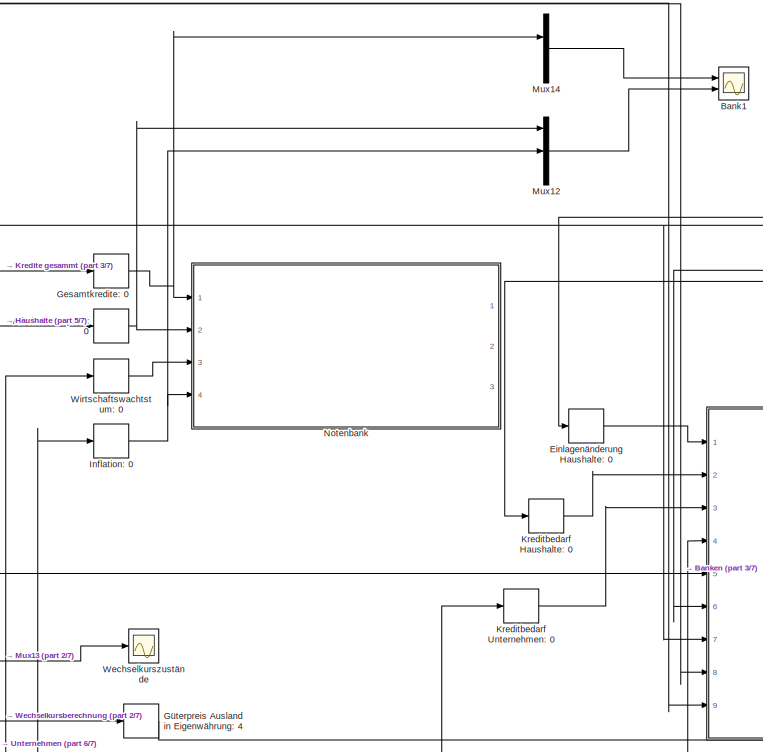
[diagram: Freies Geld Währungssystem - part 1/7, top left region]
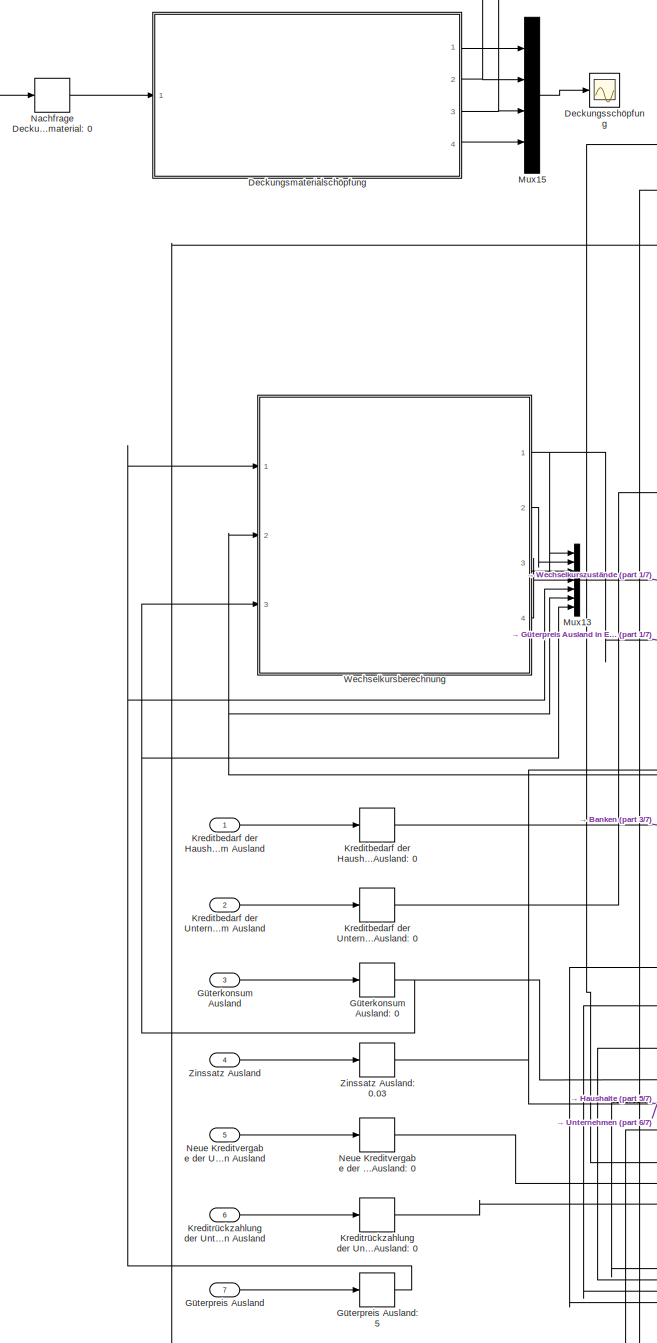
[diagram: Freies Geld Währungssystem - part 2/7, left side, full height]
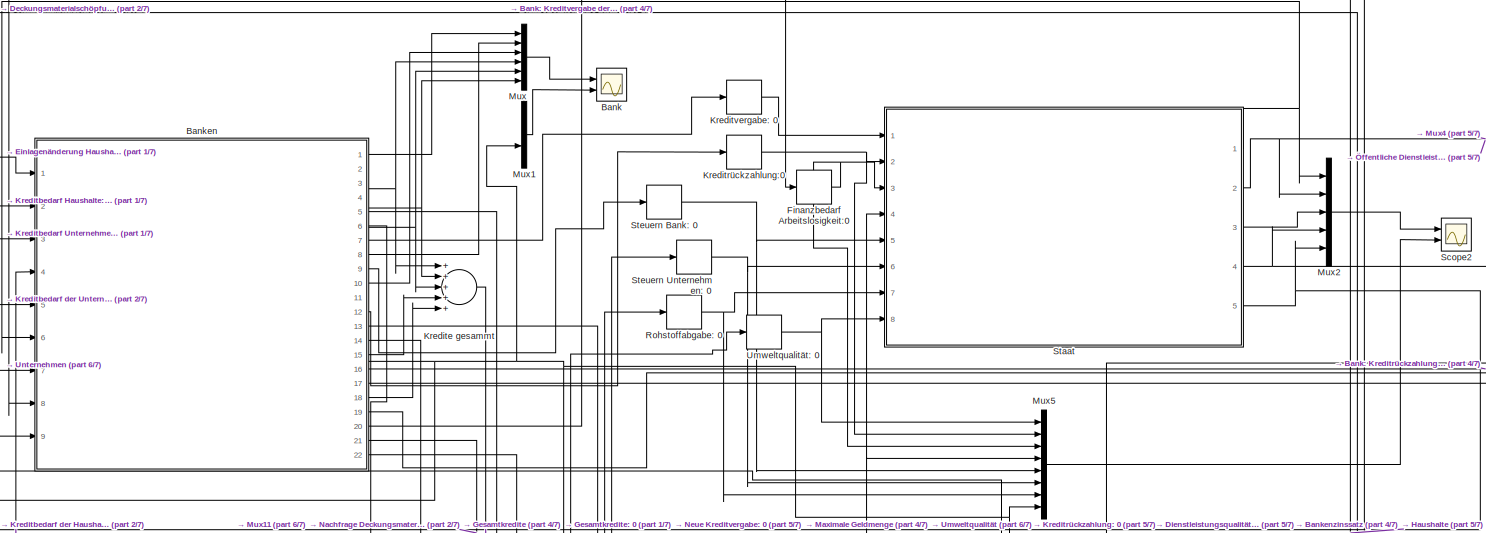
[diagram: Freies Geld Währungssystem - part 3/7, top center region]
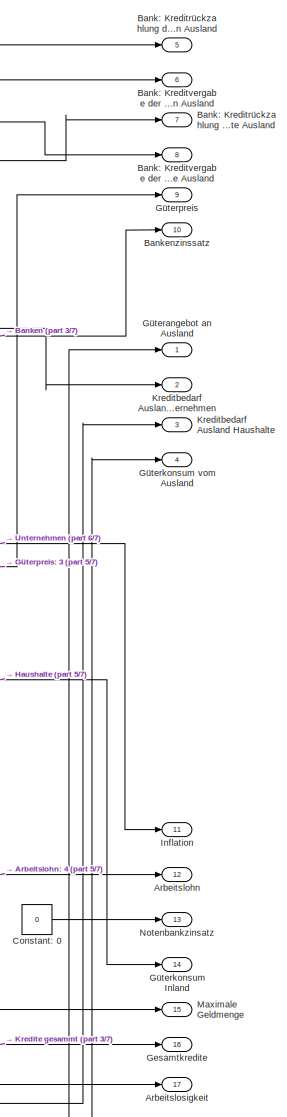
[diagram: Freies Geld Währungssystem - part 4/7, middle right region]
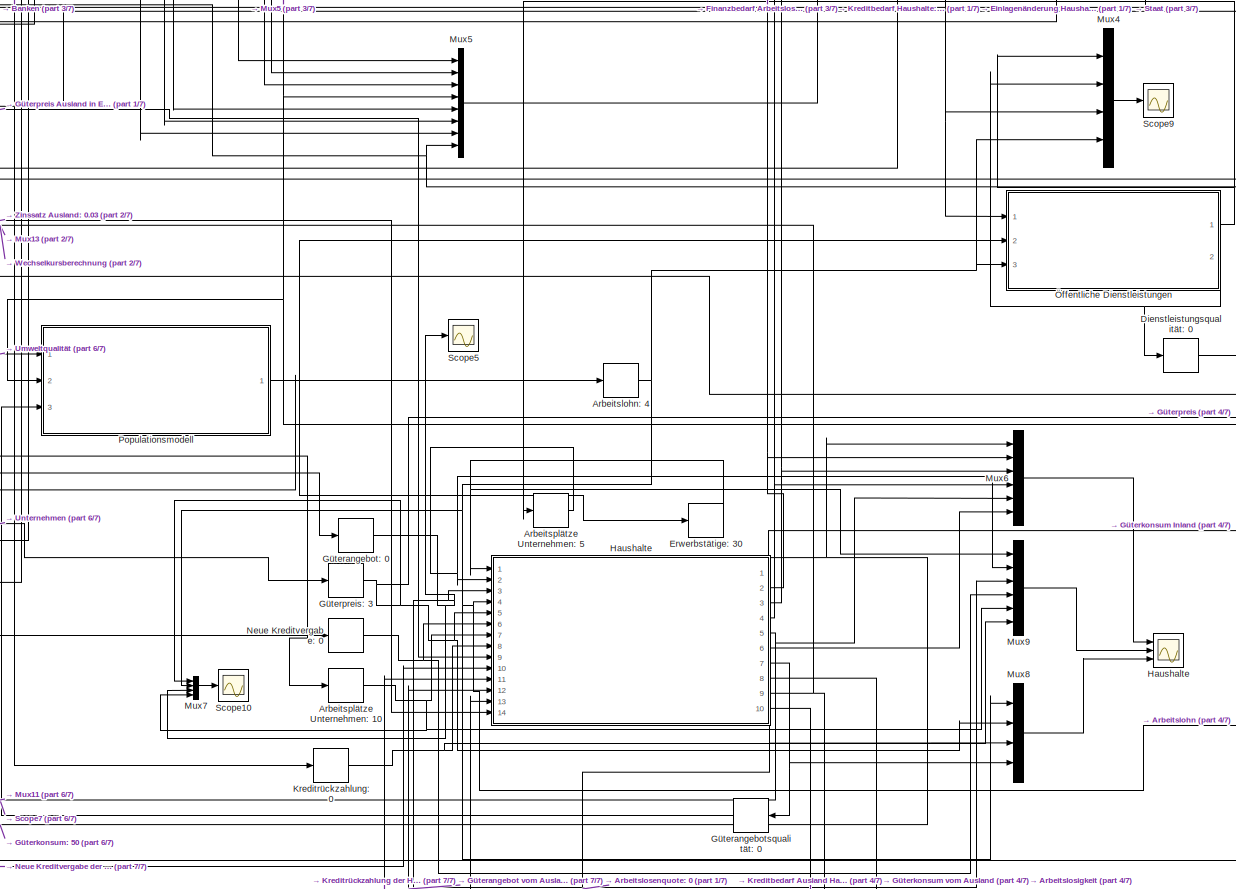
[diagram: Freies Geld Währungssystem - part 5/7, middle right region]
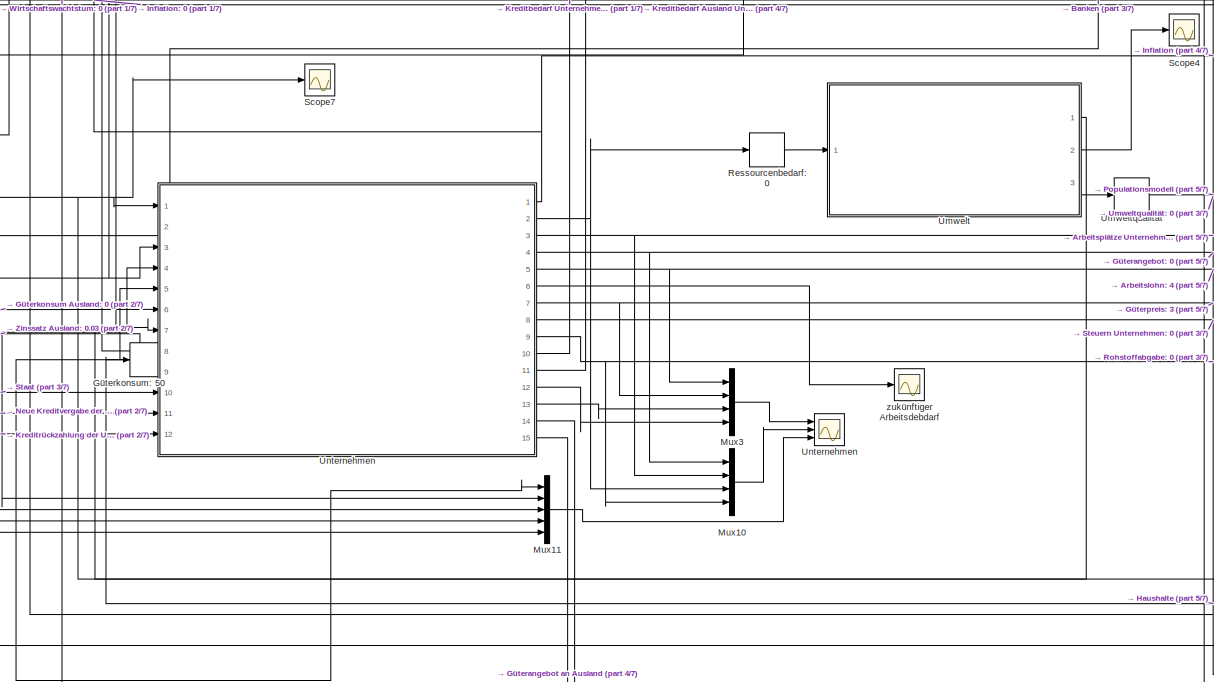
[diagram: Freies Geld Währungssystem - part 6/7, bottom center region]
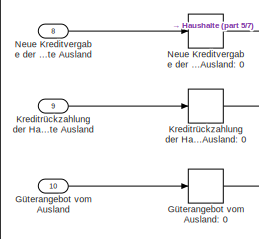
[diagram: Freies Geld Währungssystem - part 7/7, bottom left region]
BLOCK [SubSystem] Freies Geld Währungssystem
  Ports = [10, 17]
  RequestExecContextInheritance = off
BLOCK [Outport] Freies Geld Währungssystem/Arbeitslohn
  IconDisplay = Port number
  Port = 12
BLOCK [Delay] Freies Geld Währungssystem/Arbeitslohn: 4
  DelayLength = 1
  InitialCondition = 4
  InputPortMap = u0
  Ports = [1, 1]
BLOCK [Delay] Freies Geld Währungssystem/Arbeitslosenquote: 0
  DelayLength = 1
  InitialCondition = 0
  InputPortMap = u0
  Ports = [1, 1]
BLOCK [Outport] Freies Geld Währungssystem/Arbeitslosigkeit
  IconDisplay = Port number
  Port = 17
BLOCK [Delay] Freies Geld Währungssystem/Arbeitsplätze Unternehmen: 10 
  DelayLength = 1
  InitialCondition = 10
  InputPortMap = u0
  Ports = [1, 1]
BLOCK [Delay] Freies Geld Währungssystem/Arbeitsplätze Unternehmen: 5
  DelayLength = 1
  InitialCondition = 5
  InputPortMap = u0
  Ports = [1, 1]
BLOCK [Scope] Freies Geld Währungssystem/Bank
  DataFormat = StructureWithTime
  Floating = off
  LegendLocations = 0.20306     0.84552     0.11562    0.099563\n0.033967     0.22591    0.090625    0.036327
  NumInputPorts = 2
  Ports = [2]
  SampleTime = 0
  ShowLegends = on
  TimeRange = 20
  YMax = 500~0.5
  YMin = -500~0
BLOCK [Scope] Freies Geld Währungssystem/Bank1
  DataFormat = StructureWithTime
  Floating = off
  NumInputPorts = 2
  Ports = [2]
  SampleTime = 0
  SaveName = ScopeData3
  ShowLegends = on
  TimeRange = 20
  YMax = 10000~0.5
  YMin = -500~-0.5
BLOCK [Outport] Freies Geld Währungssystem/Bank: Kreditrückzahlung der Haushalte Ausland
  IconDisplay = Port number
  Port = 7
BLOCK [Outport] Freies Geld Währungssystem/Bank: Kreditrückzahlung der Unternemen Ausland
  IconDisplay = Port number
  Port = 5
BLOCK [Outport] Freies Geld Währungssystem/Bank: Kreditvergabe der Haushalte Ausland 
  IconDisplay = Port number
  Port = 8
BLOCK [Outport] Freies Geld Währungssystem/Bank: Kreditvergabe der Unternemen Ausland 
  IconDisplay = Port number
  Port = 6
BLOCK [SubSystem] Freies Geld Währungssystem/Banken
  Ports = [9, 22]
  RequestExecContextInheritance = off
BLOCK [Outport] Freies Geld Währungssystem/Banken/Bankenzinssatz
  IconDisplay = Port number
  Port = 11
BLOCK [Outport] Freies Geld Währungssystem/Banken/Bankgewinn nach Steuern
  IconDisplay = Port number
  Port = 8
BLOCK [Outport] Freies Geld Währungssystem/Banken/Bankkontostand
  IconDisplay = Port number
  Port = 10
BLOCK [Outport] Freies Geld Währungssystem/Banken/Banksteuern
  IconDisplay = Port number
  Port = 9
BLOCK [Inport] Freies Geld Währungssystem/Banken/Einlangenänderung der Haushalte
  IconDisplay = Port number
BLOCK [Outport] Freies Geld Währungssystem/Banken/Kontostand der Haushalte
  IconDisplay = Port number
BLOCK [Inport] Freies Geld Währungssystem/Banken/Kreditbedarf der Haushalte
  IconDisplay = Port number
  Port = 2
BLOCK [Inport] Freies Geld Währungssystem/Banken/Kreditbedarf der Haushalte im Ausland
  IconDisplay = Port number
  Port = 4
BLOCK [Inport] Freies Geld Währungssystem/Banken/Kreditbedarf der Unternehmen
  IconDisplay = Port number
  Port = 3
BLOCK [Inport] Freies Geld Währungssystem/Banken/Kreditbedarf der Unternehmen im Ausland
  IconDisplay = Port number
  Port = 5
BLOCK [Inport] Freies Geld Währungssystem/Banken/Kreditbedarf des Staates
  IconDisplay = Port number
  Port = 6
BLOCK [Outport] Freies Geld Währungssystem/Banken/Kredite der Haushalte
  IconDisplay = Port number
  Port = 2
BLOCK [Outport] Freies Geld Währungssystem/Banken/Kredite der Haushalte im Ausland
  IconDisplay = Port number
  Port = 18
BLOCK [Outport] Freies Geld Währungssystem/Banken/Kredite der Unternehmen
  IconDisplay = Port number
  Port = 3
BLOCK [Outport] Freies Geld Währungssystem/Banken/Kredite der Unternehmen im Ausland
  IconDisplay = Port number
  Port = 15
BLOCK [Outport] Freies Geld Währungssystem/Banken/Kredite des Staates
  IconDisplay = Port number
  Port = 4
BLOCK [Outport] Freies Geld Währungssystem/Banken/Kreditrückzahlung Haushalte
  IconDisplay = Port number
  Port = 13
BLOCK [Outport] Freies Geld Währungssystem/Banken/Kreditrückzahlung Staat
  IconDisplay = Port number
  Port = 12
BLOCK [Outport] Freies Geld Währungssystem/Banken/Kreditrückzahlung Unternehmen
  IconDisplay = Port number
  Port = 14
BLOCK [Outport] Freies Geld Währungssystem/Banken/Kreditrückzahlung der Haushalte im Ausland
  IconDisplay = Port number
  Port = 19
BLOCK [Outport] Freies Geld Währungssystem/Banken/Kreditrückzahlung der Unternehmen im Ausland
  IconDisplay = Port number
  Port = 16
BLOCK [Outport] Freies Geld Währungssystem/Banken/Kreditvergabe der Haushalte im Ausland
  IconDisplay = Port number
  Port = 20
BLOCK [Outport] Freies Geld Währungssystem/Banken/Kreditvergabe der Unternehmen im Ausland
  IconDisplay = Port number
  Port = 17
BLOCK [SubSystem] Freies Geld Währungssystem/Banken/MATLAB Function
  ErrorFcn = Stateflow.Translate.translate
  PermitHierarchicalResolution = ExplicitOnly
  Ports = [9, 22]
  RequestExecContextInheritance = off
  SFBlockType = MATLAB Function
  TreatAsAtomicUnit = on
BLOCK [Demux] Freies Geld Währungssystem/Banken/MATLAB Function/ Demux 
  Outputs = 1
  Ports = [1, 1]
BLOCK [S-Function] Freies Geld Währungssystem/Banken/MATLAB Function/ SFunction 
  EnableBusSupport = on
  FunctionName = sf_sfun
  PortCounts = [9 23]
  Ports = [9, 23]
  Tag = Stateflow S-Function Alle_Waehrungssystem_12062015 17
BLOCK [Terminator] Freies Geld Währungssystem/Banken/MATLAB Function/ Terminator 
BLOCK [Outport] Freies Geld Währungssystem/Banken/MATLAB Function/BankKontostand
  IconDisplay = Port number
  Port = 13
BLOCK [Outport] Freies Geld Währungssystem/Banken/MATLAB Function/BankenSteuern
  IconDisplay = Port number
  Port = 12
BLOCK [Outport] Freies Geld Währungssystem/Banken/MATLAB Function/Bankenzinssatz
  IconDisplay = Port number
  Port = 14
BLOCK [Outport] Freies Geld Währungssystem/Banken/MATLAB Function/BankgewinnNachSteuern
  IconDisplay = Port number
  Port = 11
BLOCK [Inport] Freies Geld Währungssystem/Banken/MATLAB Function/EinlagenAenderungHaushalte
  IconDisplay = Port number
BLOCK [Outport] Freies Geld Währungssystem/Banken/MATLAB Function/KontoHaushalteOut
  IconDisplay = Port number
BLOCK [Inport] Freies Geld Währungssystem/Banken/MATLAB Function/KreditbedarfHaushalte
  IconDisplay = Port number
  Port = 2
BLOCK [Inport] Freies Geld Währungssystem/Banken/MATLAB Function/KreditbedarfHaushalteAusland
  IconDisplay = Port number
  Port = 4
BLOCK [Inport] Freies Geld Währungssystem/Banken/MATLAB Function/KreditbedarfStaat
  IconDisplay = Port number
  Port = 6
BLOCK [Inport] Freies Geld Währungssystem/Banken/MATLAB Function/KreditbedarfUnternehmen
  IconDisplay = Port number
  Port = 3
BLOCK [Inport] Freies Geld Währungssystem/Banken/MATLAB Function/KreditbedarfUnternehmenAusland
  IconDisplay = Port number
  Port = 5
BLOCK [Outport] Freies Geld Währungssystem/Banken/MATLAB Function/KrediteHaushalteAuslandOut
  IconDisplay = Port number
  Port = 18
BLOCK [Outport] Freies Geld Währungssystem/Banken/MATLAB Function/KrediteHaushalteOut
  IconDisplay = Port number
  Port = 2
BLOCK [Outport] Freies Geld Währungssystem/Banken/MATLAB Function/KrediteStaatOut
  IconDisplay = Port number
  Port = 4
BLOCK [Outport] Freies Geld Währungssystem/Banken/MATLAB Function/KrediteUnternehmenAuslandOut
  IconDisplay = Port number
  Port = 15
BLOCK [Outport] Freies Geld Währungssystem/Banken/MATLAB Function/KrediteUnternehmenOut
  IconDisplay = Port number
  Port = 3
BLOCK [Outport] Freies Geld Währungssystem/Banken/MATLAB Function/KreditrueckzahlungHaushalte
  IconDisplay = Port number
  Port = 8
BLOCK [Outport] Freies Geld Währungssystem/Banken/MATLAB Function/KreditrueckzahlungHaushalteAusland
  IconDisplay = Port number
  Port = 19
BLOCK [Outport] Freies Geld Währungssystem/Banken/MATLAB Function/KreditrueckzahlungStaat
  IconDisplay = Port number
  Port = 10
BLOCK [Outport] Freies Geld Währungssystem/Banken/MATLAB Function/KreditrueckzahlungUnternehmen
  IconDisplay = Port number
  Port = 9
BLOCK [Outport] Freies Geld Währungssystem/Banken/MATLAB Function/KreditrueckzahlungUnternehmenAusland
  IconDisplay = Port number
  Port = 16
BLOCK [Outport] Freies Geld Währungssystem/Banken/MATLAB Function/KreditvergabeHaushalte
  IconDisplay = Port number
  Port = 5
BLOCK [Outport] Freies Geld Währungssystem/Banken/MATLAB Function/KreditvergabeHaushalteAusland
  IconDisplay = Port number
  Port = 20
BLOCK [Outport] Freies Geld Währungssystem/Banken/MATLAB Function/KreditvergabeStaat
  IconDisplay = Port number
  Port = 7
BLOCK [Outport] Freies Geld Währungssystem/Banken/MATLAB Function/KreditvergabeUnternehmen
  IconDisplay = Port number
  Port = 6
BLOCK [Outport] Freies Geld Währungssystem/Banken/MATLAB Function/KreditvergabeUnternehmenAusland
  IconDisplay = Port number
  Port = 17
BLOCK [Outport] Freies Geld Währungssystem/Banken/MATLAB Function/MaximaleKreditvergabe
  IconDisplay = Port number
  Port = 22
BLOCK [Inport] Freies Geld Währungssystem/Banken/MATLAB Function/MengeDeckungsmaterial
  IconDisplay = Port number
  Port = 9
BLOCK [Outport] Freies Geld Währungssystem/Banken/MATLAB Function/NachfrageDeckungsmaterial
  IconDisplay = Port number
  Port = 21
BLOCK [Inport] Freies Geld Währungssystem/Banken/MATLAB Function/PreisDeckungsmaterial
  IconDisplay = Port number
  Port = 8
BLOCK [Inport] Freies Geld Währungssystem/Banken/MATLAB Function/Steuersatz
  IconDisplay = Port number
  Port = 7
BLOCK [Outport] Freies Geld Währungssystem/Banken/Maximale Kreditvergabe
  IconDisplay = Port number
  Port = 22
BLOCK [Inport] Freies Geld Währungssystem/Banken/MengeDeckungsmaterial
  IconDisplay = Port number
  Port = 9
BLOCK [Outport] Freies Geld Währungssystem/Banken/NachfrageDeckungsmaterial
  IconDisplay = Port number
  Port = 21
BLOCK [Outport] Freies Geld Währungssystem/Banken/Neue Kreditvergabe Haushalte
  IconDisplay = Port number
  Port = 5
BLOCK [Outport] Freies Geld Währungssystem/Banken/Neue Kreditvergabe Staat
  IconDisplay = Port number
  Port = 7
BLOCK [Outport] Freies Geld Währungssystem/Banken/Neue Kreditvergabe Unternehmen
  IconDisplay = Port number
  Port = 6
BLOCK [Inport] Freies Geld Währungssystem/Banken/PreisDeckungsmaterial
  IconDisplay = Port number
  Port = 8
BLOCK [Inport] Freies Geld Währungssystem/Banken/Steuersatz
  IconDisplay = Port number
  Port = 7
BLOCK [Outport] Freies Geld Währungssystem/Bankenzinssatz
  IconDisplay = Port number
  Port = 10
BLOCK [Constant] Freies Geld Währungssystem/Constant: 0
  Value = 0
BLOCK [SubSystem] Freies Geld Währungssystem/Deckungsmaterialschöpfung
  Ports = [1, 4]
  RequestExecContextInheritance = off
BLOCK [Outport] Freies Geld Währungssystem/Deckungsmaterialschöpfung/AngebotsMengeDeckungsmaterial
  IconDisplay = Port number
  Port = 3
BLOCK [SubSystem] Freies Geld Währungssystem/Deckungsmaterialschöpfung/MATLAB Function
  ErrorFcn = Stateflow.Translate.translate
  PermitHierarchicalResolution = ExplicitOnly
  Ports = [1, 4]
  RequestExecContextInheritance = off
  SFBlockType = MATLAB Function
  TreatAsAtomicUnit = on
BLOCK [Demux] Freies Geld Währungssystem/Deckungsmaterialschöpfung/MATLAB Function/ Demux 
  Outputs = 1
  Ports = [1, 1]
BLOCK [S-Function] Freies Geld Währungssystem/Deckungsmaterialschöpfung/MATLAB Function/ SFunction 
  EnableBusSupport = on
  FunctionName = sf_sfun
  PortCounts = [1 5]
  Ports = [1, 5]
  Tag = Stateflow S-Function Alle_Waehrungssystem_12062015 18
BLOCK [Terminator] Freies Geld Währungssystem/Deckungsmaterialschöpfung/MATLAB Function/ Terminator 
BLOCK [Outport] Freies Geld Währungssystem/Deckungsmaterialschöpfung/MATLAB Function/AngebotsMengeDeckungsmaterial
  IconDisplay = Port number
  Port = 3
BLOCK [Inport] Freies Geld Währungssystem/Deckungsmaterialschöpfung/MATLAB Function/NachfrageDeckungsmaterial
  IconDisplay = Port number
BLOCK [Outport] Freies Geld Währungssystem/Deckungsmaterialschöpfung/MATLAB Function/PreisDeckungsmaterialOut
  IconDisplay = Port number
  Port = 2
BLOCK [Outport] Freies Geld Währungssystem/Deckungsmaterialschöpfung/MATLAB Function/RessourcenMengeDeckungsmaterial
  IconDisplay = Port number
BLOCK [Outport] Freies Geld Währungssystem/Deckungsmaterialschöpfung/MATLAB Function/Ressourcenabbaumenge
  IconDisplay = Port number
  Port = 4
BLOCK [Inport] Freies Geld Währungssystem/Deckungsmaterialschöpfung/NachfrageDeckungsmaterial
  IconDisplay = Port number
BLOCK [Outport] Freies Geld Währungssystem/Deckungsmaterialschöpfung/PreisDeckungsmaterialOut
  IconDisplay = Port number
  Port = 2
BLOCK [Outport] Freies Geld Währungssystem/Deckungsmaterialschöpfung/RessourcenMengeDeckungsmaterial
  IconDisplay = Port number
BLOCK [Outport] Freies Geld Währungssystem/Deckungsmaterialschöpfung/Ressourcenabbaumenge
  IconDisplay = Port number
  Port = 4
BLOCK [Scope] Freies Geld Währungssystem/Deckungsschöpfung
  DataFormat = StructureWithTime
  Floating = off
  LegendLocations = 0.80981     0.89455     0.17448    0.067945
  NumInputPorts = 1
  Ports = [1]
  SampleTime = 0
  SaveName = ScopeData12
  ShowLegends = on
  TimeRange = 100
  YMax = 100
  YMin = -10
BLOCK [Delay] Freies Geld Währungssystem/Dienstleistungsqualität: 0
  DelayLength = 1
  InitialCondition = 0
  InputPortMap = u0
  Ports = [1, 1]
BLOCK [Delay] Freies Geld Währungssystem/Einlagenänderung Haushalte: 0
  DelayLength = 1
  InitialCondition = 0
  InputPortMap = u0
  Ports = [1, 1]
BLOCK [Delay] Freies Geld Währungssystem/Erwerbstätige: 30
  DelayLength = 1
  InitialCondition = 30
  InputPortMap = u0
  Ports = [1, 1]
BLOCK [Delay] Freies Geld Währungssystem/Finanzbedarf Arbeitslosigkeit:0
  DelayLength = 1
  InitialCondition = 0
  InputPortMap = u0
  Ports = [1, 1]
BLOCK [Outport] Freies Geld Währungssystem/Gesamtkredite
  IconDisplay = Port number
  Port = 16
BLOCK [Delay] Freies Geld Währungssystem/Gesamtkredite: 0
  DelayLength = 1
  InitialCondition = 0
  InputPortMap = u0
  Ports = [1, 1]
BLOCK [Outport] Freies Geld Währungssystem/Güterangebot an  Ausland
  IconDisplay = Port number
BLOCK [Inport] Freies Geld Währungssystem/Güterangebot vom  Ausland
  IconDisplay = Port number
  Port = 10
BLOCK [Delay] Freies Geld Währungssystem/Güterangebot vom  Ausland: 0
  DelayLength = 1
  InitialCondition = 0
  InputPortMap = u0
  Ports = [1, 1]
BLOCK [Delay] Freies Geld Währungssystem/Güterangebot: 0
  DelayLength = 1
  InitialCondition = 0
  InputPortMap = u0
  Ports = [1, 1]
BLOCK [Delay] Freies Geld Währungssystem/Güterangebotsqualität: 0
  DelayLength = 1
  InitialCondition = 0
  InputPortMap = u0
  Ports = [1, 1]
BLOCK [Inport] Freies Geld Währungssystem/Güterkonsum Ausland
  IconDisplay = Port number
  Port = 3
BLOCK [Delay] Freies Geld Währungssystem/Güterkonsum Ausland: 0
  DelayLength = 1
  InitialCondition = 0
  InputPortMap = u0
  Ports = [1, 1]
BLOCK [Outport] Freies Geld Währungssystem/Güterkonsum Inland
  IconDisplay = Port number
  Port = 14
BLOCK [Outport] Freies Geld Währungssystem/Güterkonsum vom Ausland
  IconDisplay = Port number
  Port = 4
BLOCK [Delay] Freies Geld Währungssystem/Güterkonsum: 50
  DelayLength = 1
  InitialCondition = 50
  InputPortMap = u0
  Ports = [1, 1]
BLOCK [Outport] Freies Geld Währungssystem/Güterpreis
  IconDisplay = Port number
  Port = 9
BLOCK [Inport] Freies Geld Währungssystem/Güterpreis Ausland
  IconDisplay = Port number
  Port = 7
BLOCK [Delay] Freies Geld Währungssystem/Güterpreis Ausland in Eigenwährung: 4
  DelayLength = 1
  InitialCondition = 4
  InputPortMap = u0
  Ports = [1, 1]
BLOCK [Delay] Freies Geld Währungssystem/Güterpreis Ausland: 5
  DelayLength = 1
  InitialCondition = 5
  InputPortMap = u0
  Ports = [1, 1]
BLOCK [Delay] Freies Geld Währungssystem/Güterpreis: 3
  DelayLength = 1
  InitialCondition = 3
  InputPortMap = u0
  Ports = [1, 1]
BLOCK [SubSystem] Freies Geld Währungssystem/Haushalte
  Ports = [14, 10]
  RequestExecContextInheritance = off
BLOCK [Scope] Freies Geld Währungssystem/Haushalte 
  DataFormat = StructureWithTime
  Floating = off
  LegendLocations = 0.85877     0.86293     0.12552    0.099563\n0.87856     0.53801     0.10573    0.099563\n 0.8572     0.24571     0.12708    0.067945
  NumInputPorts = 3
  Ports = [3]
  SampleTime = 0
  SaveName = ScopeData1
  ShowLegends = on
  TickLabels = on
  TimeRange = 100
  YMax = 150~100~1
  YMin = -50~0~0
BLOCK [Outport] Freies Geld Währungssystem/Haushalte/Arbeiter Unternehmen
  IconDisplay = Port number
  Port = 5
BLOCK [Inport] Freies Geld Währungssystem/Haushalte/Arbeitslohn
  IconDisplay = Port number
  Port = 4
BLOCK [Outport] Freies Geld Währungssystem/Haushalte/Arbeitslosenquote
  IconDisplay = Port number
  Port = 8
BLOCK [Inport] Freies Geld Währungssystem/Haushalte/Arbeitsplätze Dienstleistungen
  IconDisplay = Port number
  Port = 2
BLOCK [Inport] Freies Geld Währungssystem/Haushalte/Arbeitsplätze Unternehmen
  IconDisplay = Port number
  Port = 7
BLOCK [Inport] Freies Geld Währungssystem/Haushalte/Erwerbsfähige
  IconDisplay = Port number
BLOCK [Outport] Freies Geld Währungssystem/Haushalte/Finanzbedarf Arbeitslosigkeit
  IconDisplay = Port number
  Port = 2
BLOCK [Inport] Freies Geld Währungssystem/Haushalte/Güterangebot Ausland
  IconDisplay = Port number
  Port = 12
BLOCK [Inport] Freies Geld Währungssystem/Haushalte/Güterangebot Inland
  IconDisplay = Port number
  Port = 3
BLOCK [Outport] Freies Geld Währungssystem/Haushalte/Güterangebotsqualität
  IconDisplay = Port number
  Port = 7
BLOCK [Outport] Freies Geld Währungssystem/Haushalte/Güterkonsum Ausland
  IconDisplay = Port number
  Port = 9
BLOCK [Outport] Freies Geld Währungssystem/Haushalte/Güterkonsum Inland
  IconDisplay = Port number
BLOCK [Inport] Freies Geld Währungssystem/Haushalte/Güterpreis Ausland
  IconDisplay = Port number
  Port = 9
BLOCK [Inport] Freies Geld Währungssystem/Haushalte/Güterpreis Inland
  IconDisplay = Port number
  Port = 5
BLOCK [Outport] Freies Geld Währungssystem/Haushalte/Gütervorrat der Haushalte
  IconDisplay = Port number
  Port = 6
BLOCK [Outport] Freies Geld Währungssystem/Haushalte/Kreditbedarf Ausland
  IconDisplay = Port number
  Port = 10
BLOCK [Outport] Freies Geld Währungssystem/Haushalte/Kreditbedarf Inland
  IconDisplay = Port number
  Port = 4
BLOCK [Inport] Freies Geld Währungssystem/Haushalte/Kreditrückzahlung Ausland
  IconDisplay = Port number
  Port = 8
BLOCK [Inport] Freies Geld Währungssystem/Haushalte/Kreditrückzahlung Inland
  IconDisplay = Port number
  Port = 11
BLOCK [Inport] Freies Geld Währungssystem/Haushalte/Kreditzinssatz Ausland
  IconDisplay = Port number
  Port = 14
BLOCK [Inport] Freies Geld Währungssystem/Haushalte/Kreditzinssatz Inland
  IconDisplay = Port number
  Port = 13
BLOCK [SubSystem] Freies Geld Währungssystem/Haushalte/MATLAB Function
  ErrorFcn = Stateflow.Translate.translate
  PermitHierarchicalResolution = ExplicitOnly
  Ports = [14, 10]
  RequestExecContextInheritance = off
  SFBlockType = MATLAB Function
  TreatAsAtomicUnit = on
BLOCK [Demux] Freies Geld Währungssystem/Haushalte/MATLAB Function/ Demux 
  Outputs = 1
  Ports = [1, 1]
BLOCK [S-Function] Freies Geld Währungssystem/Haushalte/MATLAB Function/ SFunction 
  EnableBusSupport = on
  FunctionName = sf_sfun
  PortCounts = [14 11]
  Ports = [14, 11]
  Tag = Stateflow S-Function Alle_Waehrungssystem_12062015 19
BLOCK [Terminator] Freies Geld Währungssystem/Haushalte/MATLAB Function/ Terminator 
BLOCK [Outport] Freies Geld Währungssystem/Haushalte/MATLAB Function/ArbeiterUnternehmen
  IconDisplay = Port number
  Port = 5
BLOCK [Inport] Freies Geld Währungssystem/Haushalte/MATLAB Function/Arbeitslohn
  IconDisplay = Port number
  Port = 7
BLOCK [Outport] Freies Geld Währungssystem/Haushalte/MATLAB Function/Arbeitslosenquote
  IconDisplay = Port number
  Port = 8
BLOCK [Inport] Freies Geld Währungssystem/Haushalte/MATLAB Function/ArbeitsplaetzeDienstleistungen
  IconDisplay = Port number
  Port = 2
BLOCK [Inport] Freies Geld Währungssystem/Haushalte/MATLAB Function/ArbeitsplaetzeUnternehmen
  IconDisplay = Port number
  Port = 3
BLOCK [Inport] Freies Geld Währungssystem/Haushalte/MATLAB Function/Erwerbsfaehige
  IconDisplay = Port number
BLOCK [Outport] Freies Geld Währungssystem/Haushalte/MATLAB Function/FinanzierungArbeitslosigkeit
  IconDisplay = Port number
  Port = 2
BLOCK [Inport] Freies Geld Währungssystem/Haushalte/MATLAB Function/GueterAngebotAusland
  IconDisplay = Port number
  Port = 12
BLOCK [Inport] Freies Geld Währungssystem/Haushalte/MATLAB Function/GueterAngebotInland
  IconDisplay = Port number
  Port = 6
BLOCK [Outport] Freies Geld Währungssystem/Haushalte/MATLAB Function/GueterVorratHaushalte
  IconDisplay = Port number
  Port = 6
BLOCK [Outport] Freies Geld Währungssystem/Haushalte/MATLAB Function/GueterangebotsqualitaetOut
  IconDisplay = Port number
  Port = 7
BLOCK [Outport] Freies Geld Währungssystem/Haushalte/MATLAB Function/GueterkonsumAusland
  IconDisplay = Port number
  Port = 9
BLOCK [Outport] Freies Geld Währungssystem/Haushalte/MATLAB Function/GueterkonsumInland
  IconDisplay = Port number
BLOCK [Inport] Freies Geld Währungssystem/Haushalte/MATLAB Function/GueterpreisAusland
  IconDisplay = Port number
  Port = 9
BLOCK [Inport] Freies Geld Währungssystem/Haushalte/MATLAB Function/GueterpreisInland
  IconDisplay = Port number
  Port = 8
BLOCK [Inport] Freies Geld Währungssystem/Haushalte/MATLAB Function/KreditZinssatzAusland
  IconDisplay = Port number
  Port = 14
BLOCK [Inport] Freies Geld Währungssystem/Haushalte/MATLAB Function/KreditZinssatzInland
  IconDisplay = Port number
  Port = 13
BLOCK [Outport] Freies Geld Währungssystem/Haushalte/MATLAB Function/KreditbedarfAusland
  IconDisplay = Port number
  Port = 10
BLOCK [Outport] Freies Geld Währungssystem/Haushalte/MATLAB Function/KreditbedarfInland
  IconDisplay = Port number
  Port = 4
BLOCK [Inport] Freies Geld Währungssystem/Haushalte/MATLAB Function/KreditrueckzahlungAusland
  IconDisplay = Port number
  Port = 11
BLOCK [Inport] Freies Geld Währungssystem/Haushalte/MATLAB Function/KreditrueckzahlungInland
  IconDisplay = Port number
  Port = 5
BLOCK [Inport] Freies Geld Währungssystem/Haushalte/MATLAB Function/NeueKreditvergabeAusland
  IconDisplay = Port number
  Port = 10
BLOCK [Inport] Freies Geld Währungssystem/Haushalte/MATLAB Function/NeueKreditvergabeInland
  IconDisplay = Port number
  Port = 4
BLOCK [Outport] Freies Geld Währungssystem/Haushalte/MATLAB Function/Spareinlagen
  IconDisplay = Port number
  Port = 3
BLOCK [Inport] Freies Geld Währungssystem/Haushalte/Neue Kreditvergabe Ausland
  IconDisplay = Port number
  Port = 10
BLOCK [Inport] Freies Geld Währungssystem/Haushalte/Neue Kreditvergabe Inland
  IconDisplay = Port number
  Port = 6
BLOCK [Outport] Freies Geld Währungssystem/Haushalte/Spareinlagen
  IconDisplay = Port number
  Port = 3
BLOCK [Outport] Freies Geld Währungssystem/Inflation
  IconDisplay = Port number
  Port = 11
BLOCK [Delay] Freies Geld Währungssystem/Inflation: 0
  DelayLength = 1
  InitialCondition = 0
  InputPortMap = u0
  Ports = [1, 1]
BLOCK [Outport] Freies Geld Währungssystem/Kreditbedarf Ausland Haushalte
  IconDisplay = Port number
  Port = 3
BLOCK [Outport] Freies Geld Währungssystem/Kreditbedarf Ausland Unternehmen
  IconDisplay = Port number
  Port = 2
BLOCK [Delay] Freies Geld Währungssystem/Kreditbedarf Haushalte: 0
  DelayLength = 1
  InitialCondition = 0
  InputPortMap = u0
  Ports = [1, 1]
BLOCK [Delay] Freies Geld Währungssystem/Kreditbedarf Unternehmen: 0
  DelayLength = 1
  InitialCondition = 0
  InputPortMap = u0
  Ports = [1, 1]
BLOCK [Inport] Freies Geld Währungssystem/Kreditbedarf der Haushalte im Ausland
  IconDisplay = Port number
BLOCK [Delay] Freies Geld Währungssystem/Kreditbedarf der Haushalte im Ausland: 0
  DelayLength = 1
  InitialCondition = 0
  InputPortMap = u0
  Ports = [1, 1]
BLOCK [Inport] Freies Geld Währungssystem/Kreditbedarf der Unternehmen im Ausland
  IconDisplay = Port number
  Port = 2
BLOCK [Delay] Freies Geld Währungssystem/Kreditbedarf der Unternehmen im Ausland: 0
  DelayLength = 1
  InitialCondition = 0
  InputPortMap = u0
  Ports = [1, 1]
BLOCK [Sum] Freies Geld Währungssystem/Kredite gesammt
  InputSameDT = off
  Inputs = +++++
  OutDataTypeStr = Inherit: Inherit via internal rule
  Ports = [5, 1]
  SaturateOnIntegerOverflow = off
BLOCK [Inport] Freies Geld Währungssystem/Kreditrückzahlung der Haushalte Ausland
  IconDisplay = Port number
  Port = 9
BLOCK [Delay] Freies Geld Währungssystem/Kreditrückzahlung der Haushalte Ausland: 0
  DelayLength = 1
  InitialCondition = 0
  InputPortMap = u0
  Ports = [1, 1]
BLOCK [Inport] Freies Geld Währungssystem/Kreditrückzahlung der Unternehmen Ausland
  IconDisplay = Port number
  Port = 6
BLOCK [Delay] Freies Geld Währungssystem/Kreditrückzahlung der Unternehmen Ausland: 0
  DelayLength = 1
  InitialCondition = 0
  InputPortMap = u0
  Ports = [1, 1]
BLOCK [Delay] Freies Geld Währungssystem/Kreditrückzahlung: 0
  DelayLength = 1
  InitialCondition = 0
  InputPortMap = u0
  Ports = [1, 1]
BLOCK [Delay] Freies Geld Währungssystem/Kreditrückzahlung:0
  DelayLength = 1
  InitialCondition = 0
  InputPortMap = u0
  Ports = [1, 1]
BLOCK [Delay] Freies Geld Währungssystem/Kreditvergabe: 0
  DelayLength = 1
  InitialCondition = 0
  InputPortMap = u0
  Ports = [1, 1]
BLOCK [Outport] Freies Geld Währungssystem/Maximale Geldmenge
  IconDisplay = Port number
  Port = 15
BLOCK [Mux] Freies Geld Währungssystem/Mux
  DisplayOption = bar
  Inputs = 6
  Ports = [6, 1]
BLOCK [Mux] Freies Geld Währungssystem/Mux1
  DisplayOption = bar
  Inputs = 2
  Ports = [2, 1]
BLOCK [Mux] Freies Geld Währungssystem/Mux10
  DisplayOption = bar
  Ports = [4, 1]
BLOCK [Mux] Freies Geld Währungssystem/Mux11
  DisplayOption = bar
  Inputs = 5
  Ports = [5, 1]
BLOCK [Mux] Freies Geld Währungssystem/Mux12
  DisplayOption = bar
  Inputs = 5
  Ports = [5, 1]
BLOCK [Mux] Freies Geld Währungssystem/Mux13
  DisplayOption = bar
  Inputs = 7
  Ports = [7, 1]
BLOCK [Mux] Freies Geld Währungssystem/Mux14
  DisplayOption = bar
  Inputs = 2
  Ports = [2, 1]
BLOCK [Mux] Freies Geld Währungssystem/Mux15
  DisplayOption = bar
  Ports = [4, 1]
BLOCK [Mux] Freies Geld Währungssystem/Mux2
  DisplayOption = bar
  Inputs = 5
  Ports = [5, 1]
BLOCK [Mux] Freies Geld Währungssystem/Mux3
  DisplayOption = bar
  Ports = [4, 1]
BLOCK [Mux] Freies Geld Währungssystem/Mux4
  DisplayOption = bar
  Ports = [4, 1]
BLOCK [Mux] Freies Geld Währungssystem/Mux5
  DisplayOption = bar
  Inputs = 8
  Ports = [8, 1]
BLOCK [Mux] Freies Geld Währungssystem/Mux6
  DisplayOption = bar
  Inputs = 6
  Ports = [6, 1]
BLOCK [Mux] Freies Geld Währungssystem/Mux7
  DisplayOption = bar
  Ports = [4, 1]
BLOCK [Mux] Freies Geld Währungssystem/Mux8
  DisplayOption = bar
  Ports = [4, 1]
BLOCK [Mux] Freies Geld Währungssystem/Mux9
  DisplayOption = bar
  Inputs = 6
  Ports = [6, 1]
BLOCK [Delay] Freies Geld Währungssystem/Nachfrage Deckungsmaterial: 0
  DelayLength = 1
  InitialCondition = 0
  InputPortMap = u0
  Ports = [1, 1]
BLOCK [Inport] Freies Geld Währungssystem/Neue Kreditvergabe der Haushalte Ausland
  IconDisplay = Port number
  Port = 8
BLOCK [Delay] Freies Geld Währungssystem/Neue Kreditvergabe der Haushalte Ausland: 0
  DelayLength = 1
  InitialCondition = 0
  InputPortMap = u0
  Ports = [1, 1]
BLOCK [Inport] Freies Geld Währungssystem/Neue Kreditvergabe der Unternehmen Ausland
  IconDisplay = Port number
  Port = 5
BLOCK [Delay] Freies Geld Währungssystem/Neue Kreditvergabe der Unternehmen Ausland: 0
  DelayLength = 1
  InitialCondition = 0
  InputPortMap = u0
  Ports = [1, 1]
BLOCK [Delay] Freies Geld Währungssystem/Neue Kreditvergabe: 0
  DelayLength = 1
  InitialCondition = 0
  InputPortMap = u0
  Ports = [1, 1]
BLOCK [SubSystem] Freies Geld Währungssystem/Notenbank
  Ports = [4, 3]
  RequestExecContextInheritance = off
BLOCK [Inport] Freies Geld Währungssystem/Notenbank/Arbeitslosenquote
  IconDisplay = Port number
  Port = 2
BLOCK [Inport] Freies Geld Währungssystem/Notenbank/Gesamtkredite
  IconDisplay = Port number
BLOCK [Inport] Freies Geld Währungssystem/Notenbank/Inflation
  IconDisplay = Port number
  Port = 4
BLOCK [Outport] Freies Geld Währungssystem/Notenbank/Leitzinssatz der Notenbank
  IconDisplay = Port number
BLOCK [SubSystem] Freies Geld Währungssystem/Notenbank/MATLAB Function
  ErrorFcn = Stateflow.Translate.translate
  PermitHierarchicalResolution = ExplicitOnly
  Ports = [4, 3]
  RequestExecContextInheritance = off
  SFBlockType = MATLAB Function
  TreatAsAtomicUnit = on
BLOCK [Demux] Freies Geld Währungssystem/Notenbank/MATLAB Function/ Demux 
  Outputs = 1
  Ports = [1, 1]
BLOCK [S-Function] Freies Geld Währungssystem/Notenbank/MATLAB Function/ SFunction 
  EnableBusSupport = on
  FunctionName = sf_sfun
  PortCounts = [4 4]
  Ports = [4, 4]
  Tag = Stateflow S-Function Alle_Waehrungssystem_12062015 20
BLOCK [Terminator] Freies Geld Währungssystem/Notenbank/MATLAB Function/ Terminator 
BLOCK [Inport] Freies Geld Währungssystem/Notenbank/MATLAB Function/Arbeitslosenquote
  IconDisplay = Port number
  Port = 2
BLOCK [Inport] Freies Geld Währungssystem/Notenbank/MATLAB Function/Gesamtkredite
  IconDisplay = Port number
BLOCK [Inport] Freies Geld Währungssystem/Notenbank/MATLAB Function/Inflation
  IconDisplay = Port number
  Port = 3
BLOCK [Outport] Freies Geld Währungssystem/Notenbank/MATLAB Function/LeitzinsOut
  IconDisplay = Port number
BLOCK [Outport] Freies Geld Währungssystem/Notenbank/MATLAB Function/MaximaleNotenbankGeldmengeOut
  IconDisplay = Port number
  Port = 3
BLOCK [Outport] Freies Geld Währungssystem/Notenbank/MATLAB Function/MindestreservesatzOut
  IconDisplay = Port number
  Port = 2
BLOCK [Inport] Freies Geld Währungssystem/Notenbank/MATLAB Function/Wirtschaftswachtsum
  IconDisplay = Port number
  Port = 4
BLOCK [Outport] Freies Geld Währungssystem/Notenbank/Maximale Geldmenge von der Notenbank
  IconDisplay = Port number
  Port = 3
BLOCK [Outport] Freies Geld Währungssystem/Notenbank/Mindestreservesatz von der Notenbank
  IconDisplay = Port number
  Port = 2
BLOCK [Inport] Freies Geld Währungssystem/Notenbank/Wirtschaftswachtsum
  IconDisplay = Port number
  Port = 3
BLOCK [Outport] Freies Geld Währungssystem/Notenbankzinsatz
  IconDisplay = Port number
  Port = 13
BLOCK [SubSystem] Freies Geld Währungssystem/Populationsmodell
  Ports = [3, 1]
  RequestExecContextInheritance = off
BLOCK [Constant] Freies Geld Währungssystem/Populationsmodell/Ausgleichsfaktor
  Value = 0.3
BLOCK [Sum] Freies Geld Währungssystem/Populationsmodell/Dienstleistungs- multiplikator
  InputSameDT = off
  OutDataTypeStr = Inherit: Inherit via internal rule
  Ports = [2, 1]
  SaturateOnIntegerOverflow = off
BLOCK [Inport] Freies Geld Währungssystem/Populationsmodell/Dienstleistungsqualität
  IconDisplay = Port number
  Port = 2
BLOCK [Product] Freies Geld Währungssystem/Populationsmodell/Divide1
  InputSameDT = off
  Inputs = */
  OutDataTypeStr = Inherit: Inherit via internal rule
  Ports = [2, 1]
  RndMeth = Floor
  SaturateOnIntegerOverflow = off
BLOCK [Product] Freies Geld Währungssystem/Populationsmodell/Divide2
  InputSameDT = off
  Inputs = */
  OutDataTypeStr = Inherit: Inherit via internal rule
  Ports = [2, 1]
  RndMeth = Floor
  SaturateOnIntegerOverflow = off
BLOCK [Product] Freies Geld Währungssystem/Populationsmodell/Divide3
  InputSameDT = off
  Inputs = */
  OutDataTypeStr = Inherit: Inherit via internal rule
  Ports = [2, 1]
  RndMeth = Floor
  SaturateOnIntegerOverflow = off
BLOCK [Sum] Freies Geld Währungssystem/Populationsmodell/Erwachsene
  InputSameDT = off
  Inputs = +--
  OutDataTypeStr = Inherit: Inherit via internal rule
  Ports = [3, 1]
  SaturateOnIntegerOverflow = off
BLOCK [Outport] Freies Geld Währungssystem/Populationsmodell/Erwerbsfähige
  IconDisplay = Port number
BLOCK [Product] Freies Geld Währungssystem/Populationsmodell/Fertilitätsmultiplikator
  InputSameDT = off
  Inputs = 4
  OutDataTypeStr = Inherit: Inherit via internal rule
  Ports = [4, 1]
  RndMeth = Floor
  SaturateOnIntegerOverflow = off
BLOCK [Constant] Freies Geld Währungssystem/Populationsmodell/Fertilitätsrate pro Frau
  Value = 3/40
BLOCK [Constant] Freies Geld Währungssystem/Populationsmodell/Frauenanteil pro Erwachsene
  Value = 0.5
BLOCK [Inport] Freies Geld Währungssystem/Populationsmodell/Güterangebotsqualität bei vorhandem Einkommen
  IconDisplay = Port number
  Port = 3
BLOCK [Sum] Freies Geld Währungssystem/Populationsmodell/Güterangebotsqualitäts- multiplikator
  InputSameDT = off
  OutDataTypeStr = Inherit: Inherit via internal rule
  Ports = [2, 1]
  SaturateOnIntegerOverflow = off
BLOCK [Constant] Freies Geld Währungssystem/Populationsmodell/Jahre der Altersklasse
  Value = 15
BLOCK [Constant] Freies Geld Währungssystem/Populationsmodell/Jahre der Altersklasse1
  Value = 10
BLOCK [Constant] Freies Geld Währungssystem/Populationsmodell/Jahre der Altersklasse2
  Value = 40
BLOCK [Sum] Freies Geld Währungssystem/Populationsmodell/Kinder
  InputSameDT = off
  Inputs = +--
  OutDataTypeStr = Inherit: Inherit via internal rule
  Ports = [3, 1]
  SaturateOnIntegerOverflow = off
BLOCK [Product] Freies Geld Währungssystem/Populationsmodell/Lebensqualitätsfaktor
  InputSameDT = off
  Inputs = /
  OutDataTypeStr = Inherit: Inherit via internal rule
  Ports = [1, 1]
  RndMeth = Floor
  SaturateOnIntegerOverflow = off
BLOCK [Product] Freies Geld Währungssystem/Populationsmodell/Product
  InputSameDT = off
  Inputs = 3
  OutDataTypeStr = Inherit: Inherit via internal rule
  Ports = [3, 1]
  RndMeth = Floor
  SaturateOnIntegerOverflow = off
BLOCK [Product] Freies Geld Währungssystem/Populationsmodell/Product1
  InputSameDT = off
  Inputs = 3
  OutDataTypeStr = Inherit: Inherit via internal rule
  Ports = [3, 1]
  RndMeth = Floor
  SaturateOnIntegerOverflow = off
BLOCK [Product] Freies Geld Währungssystem/Populationsmodell/Product2
  InputSameDT = off
  Inputs = 3
  OutDataTypeStr = Inherit: Inherit via internal rule
  Ports = [3, 1]
  RndMeth = Floor
  SaturateOnIntegerOverflow = off
BLOCK [Product] Freies Geld Währungssystem/Populationsmodell/Product3
  InputSameDT = off
  Inputs = 3
  OutDataTypeStr = Inherit: Inherit via internal rule
  Ports = [3, 1]
  RndMeth = Floor
  SaturateOnIntegerOverflow = off
BLOCK [Sum] Freies Geld Währungssystem/Populationsmodell/Schüler // Studenten
  InputSameDT = off
  Inputs = +--
  OutDataTypeStr = Inherit: Inherit via internal rule
  Ports = [3, 1]
  SaturateOnIntegerOverflow = off
BLOCK [Integrator] Freies Geld Währungssystem/Populationsmodell/Start Erwachsene: 55
  InitialCondition = 55
  Ports = [1, 1]
BLOCK [Integrator] Freies Geld Währungssystem/Populationsmodell/Start Kinder: 13
  InitialCondition = 13
  Ports = [1, 1]
BLOCK [Integrator] Freies Geld Währungssystem/Populationsmodell/Start Schüler: 11
  InitialCondition = 11
  Ports = [1, 1]
BLOCK [Constant] Freies Geld Währungssystem/Populationsmodell/Sterblichkeitsrate Kinder
  Value = 0.003
BLOCK [Constant] Freies Geld Währungssystem/Populationsmodell/Sterblichkeitsrate1
  Value = 0.002
BLOCK [Constant] Freies Geld Währungssystem/Populationsmodell/Sterblichkeitsrate2
  Value = 0.004
BLOCK [Sum] Freies Geld Währungssystem/Populationsmodell/Umwelt- multiplikator
  InputSameDT = off
  OutDataTypeStr = Inherit: Inherit via internal rule
  Ports = [2, 1]
  SaturateOnIntegerOverflow = off
BLOCK [Inport] Freies Geld Währungssystem/Populationsmodell/Umweltqualität
  IconDisplay = Port number
BLOCK [Delay] Freies Geld Währungssystem/Ressourcenbedarf: 0
  DelayLength = 1
  InitialCondition = 0
  InputPortMap = u0
  Ports = [1, 1]
BLOCK [Delay] Freies Geld Währungssystem/Rohstoffabgabe: 0
  DelayLength = 1
  InitialCondition = 0
  InputPortMap = u0
  Ports = [1, 1]
BLOCK [Scope] Freies Geld Währungssystem/Scope10
  DataFormat = StructureWithTime
  Floating = off
  NumInputPorts = 1
  Ports = [1]
  SampleTime = 0
  SaveName = ScopeData10
  ShowLegends = on
  TimeRange = 100
  YMax = 120
  YMin = 0
BLOCK [Scope] Freies Geld Währungssystem/Scope2
  DataFormat = StructureWithTime
  Floating = off
  LegendLocations = 0.81636     0.70179      0.1474    0.084264\n0.72715     0.23427     0.10469     0.13198
  NumInputPorts = 2
  Ports = [2]
  SampleTime = 0
  SaveName = ScopeData2
  ShowLegends = on
  TimeRange = 100
  YMax = 300~500
  YMin = -100~0
BLOCK [Scope] Freies Geld Währungssystem/Scope4
  DataFormat = StructureWithTime
  Floating = off
  NumInputPorts = 1
  Ports = [1]
  SampleTime = 0
  SaveName = ScopeData4
  ShowLegends = off
BLOCK [Scope] Freies Geld Währungssystem/Scope5
  DataFormat = StructureWithTime
  Floating = off
  NumInputPorts = 1
  Ports = [1]
  SampleTime = 0
  SaveName = ScopeData5
  ShowLegends = off
  TimeRange = 10
  YMax = 10
  YMin = 0
BLOCK [Scope] Freies Geld Währungssystem/Scope7
  DataFormat = StructureWithTime
  Floating = off
  LegendLocations = 0.76407     0.37955     0.19269     0.05309
  NumInputPorts = 1
  Ports = [1]
  SampleTime = 0
  SaveName = ScopeData7
  ShowLegends = on
  TimeRange = 10
  YMax = 15
  YMin = 9
BLOCK [Scope] Freies Geld Währungssystem/Scope9
  DataFormat = StructureWithTime
  Floating = off
  NumInputPorts = 1
  Ports = [1]
  SampleTime = 0
  SaveName = ScopeData9
  ShowLegends = on
  TickLabels = on
  TimeRange = 100
  YMax = 40
  YMin = 0
BLOCK [SubSystem] Freies Geld Währungssystem/Staat
  Ports = [8, 5]
  RequestExecContextInheritance = off
BLOCK [Inport] Freies Geld Währungssystem/Staat/Dienstleistungsqualität
  IconDisplay = Port number
  Port = 4
BLOCK [Inport] Freies Geld Währungssystem/Staat/Finanzbedarf Arbeitslosigkeit
  IconDisplay = Port number
  Port = 3
BLOCK [Outport] Freies Geld Währungssystem/Staat/Finanzierung Öffentlicher Dienstleistungen
  IconDisplay = Port number
  Port = 2
BLOCK [Outport] Freies Geld Währungssystem/Staat/Geldbestand Staat
  IconDisplay = Port number
  Port = 3
BLOCK [Outport] Freies Geld Währungssystem/Staat/Kreditbedarf
  IconDisplay = Port number
BLOCK [Inport] Freies Geld Währungssystem/Staat/Kreditrückzahlung
  IconDisplay = Port number
  Port = 2
BLOCK [Inport] Freies Geld Währungssystem/Staat/Kreditvergabe
  IconDisplay = Port number
BLOCK [SubSystem] Freies Geld Währungssystem/Staat/MATLAB Function
  ErrorFcn = Stateflow.Translate.translate
  PermitHierarchicalResolution = ExplicitOnly
  Ports = [8, 5]
  RequestExecContextInheritance = off
  SFBlockType = MATLAB Function
  TreatAsAtomicUnit = on
BLOCK [Demux] Freies Geld Währungssystem/Staat/MATLAB Function/ Demux 
  Outputs = 1
  Ports = [1, 1]
BLOCK [S-Function] Freies Geld Währungssystem/Staat/MATLAB Function/ SFunction 
  EnableBusSupport = on
  FunctionName = sf_sfun
  PortCounts = [8 6]
  Ports = [8, 6]
  Tag = Stateflow S-Function Alle_Waehrungssystem_12062015 21
BLOCK [Terminator] Freies Geld Währungssystem/Staat/MATLAB Function/ Terminator 
BLOCK [Inport] Freies Geld Währungssystem/Staat/MATLAB Function/Dienstleistungsqualitaet
  IconDisplay = Port number
  Port = 4
BLOCK [Inport] Freies Geld Währungssystem/Staat/MATLAB Function/FinanzbedarfArbeitslosigkeit
  IconDisplay = Port number
  Port = 3
BLOCK [Outport] Freies Geld Währungssystem/Staat/MATLAB Function/FinanzierungOeffentlicheDienstleistungen
  IconDisplay = Port number
  Port = 2
BLOCK [Outport] Freies Geld Währungssystem/Staat/MATLAB Function/GeldbestandStaat
  IconDisplay = Port number
  Port = 3
BLOCK [Outport] Freies Geld Währungssystem/Staat/MATLAB Function/Kreditbedarf
  IconDisplay = Port number
BLOCK [Inport] Freies Geld Währungssystem/Staat/MATLAB Function/Kreditrueckzahlung
  IconDisplay = Port number
  Port = 2
BLOCK [Inport] Freies Geld Währungssystem/Staat/MATLAB Function/KreditvergabeNeuStaat
  IconDisplay = Port number
BLOCK [Outport] Freies Geld Währungssystem/Staat/MATLAB Function/RessourcenAbgabesatzOut
  IconDisplay = Port number
  Port = 5
BLOCK [Inport] Freies Geld Währungssystem/Staat/MATLAB Function/Rohstoffabgabe
  IconDisplay = Port number
  Port = 7
BLOCK [Inport] Freies Geld Währungssystem/Staat/MATLAB Function/SteuernBanken
  IconDisplay = Port number
  Port = 5
BLOCK [Inport] Freies Geld Währungssystem/Staat/MATLAB Function/SteuernUnternehmen
  IconDisplay = Port number
  Port = 6
BLOCK [Outport] Freies Geld Währungssystem/Staat/MATLAB Function/SteuersatzOut
  IconDisplay = Port number
  Port = 4
BLOCK [Inport] Freies Geld Währungssystem/Staat/MATLAB Function/Umweltqualitaet
  IconDisplay = Port number
  Port = 8
BLOCK [Outport] Freies Geld Währungssystem/Staat/Ressourcen Steuer
  IconDisplay = Port number
  Port = 5
BLOCK [Inport] Freies Geld Währungssystem/Staat/Rohstoffabgabe
  IconDisplay = Port number
  Port = 7
BLOCK [Inport] Freies Geld Währungssystem/Staat/Steuern Bank
  IconDisplay = Port number
  Port = 5
BLOCK [Inport] Freies Geld Währungssystem/Staat/Steuern Unternehmen
  IconDisplay = Port number
  Port = 6
BLOCK [Outport] Freies Geld Währungssystem/Staat/Steuersatz
  IconDisplay = Port number
  Port = 4
BLOCK [Inport] Freies Geld Währungssystem/Staat/Umweltqualität
  IconDisplay = Port number
  Port = 8
BLOCK [Delay] Freies Geld Währungssystem/Steuern Bank: 0
  DelayLength = 1
  InitialCondition = 0
  InputPortMap = u0
  Ports = [1, 1]
BLOCK [Delay] Freies Geld Währungssystem/Steuern Unternehmen: 0
  DelayLength = 1
  InitialCondition = 0
  InputPortMap = u0
  Ports = [1, 1]
BLOCK [SubSystem] Freies Geld Währungssystem/Umwelt
  Ports = [1, 3]
  RequestExecContextInheritance = off
BLOCK [Inport] Freies Geld Währungssystem/Umwelt/Ressourcenbedarf
  IconDisplay = Port number
BLOCK [SubSystem] Freies Geld Währungssystem/Umwelt/Umwelt
  ErrorFcn = Stateflow.Translate.translate
  PermitHierarchicalResolution = ExplicitOnly
  Ports = [1, 3]
  RequestExecContextInheritance = off
  SFBlockType = MATLAB Function
  TreatAsAtomicUnit = on
BLOCK [Demux] Freies Geld Währungssystem/Umwelt/Umwelt/ Demux 
  Outputs = 1
  Ports = [1, 1]
BLOCK [S-Function] Freies Geld Währungssystem/Umwelt/Umwelt/ SFunction 
  EnableBusSupport = on
  FunctionName = sf_sfun
  PortCounts = [1 4]
  Ports = [1, 4]
  Tag = Stateflow S-Function Alle_Waehrungssystem_12062015 22
BLOCK [Terminator] Freies Geld Währungssystem/Umwelt/Umwelt/ Terminator 
BLOCK [Outport] Freies Geld Währungssystem/Umwelt/Umwelt/AbgebauteRessourcen
  IconDisplay = Port number
BLOCK [Inport] Freies Geld Währungssystem/Umwelt/Umwelt/Ressourcenbedarf
  IconDisplay = Port number
BLOCK [Outport] Freies Geld Währungssystem/Umwelt/Umwelt/Umweltqualitaet
  IconDisplay = Port number
  Port = 3
BLOCK [Outport] Freies Geld Währungssystem/Umwelt/Umwelt/VorhandeneRessourcenOut
  IconDisplay = Port number
  Port = 2
BLOCK [Outport] Freies Geld Währungssystem/Umwelt/Umweltqualität
  IconDisplay = Port number
  Port = 3
BLOCK [Outport] Freies Geld Währungssystem/Umwelt/abgebaute Ressourcen
  IconDisplay = Port number
BLOCK [Outport] Freies Geld Währungssystem/Umwelt/verhandene Ressourcen
  IconDisplay = Port number
  Port = 2
BLOCK [Delay] Freies Geld Währungssystem/Umweltqualität
  DelayLength = 1
  InitialCondition = 0
  InputPortMap = u0
  Ports = [1, 1]
BLOCK [Delay] Freies Geld Währungssystem/Umweltqualität: 0
  DelayLength = 1
  InitialCondition = 0
  InputPortMap = u0
  Ports = [1, 1]
BLOCK [SubSystem] Freies Geld Währungssystem/Unternehmen
  Ports = [12, 15]
  RequestExecContextInheritance = off
BLOCK [Scope] Freies Geld Währungssystem/Unternehmen 
  DataFormat = StructureWithTime
  Floating = off
  LegendLocations = 0.81658     0.89455     0.16771    0.067945\n0.85043     0.56963     0.13385    0.067945\n0.85148      0.2299     0.13281    0.083754
  NumInputPorts = 3
  Ports = [3]
  SampleTime = 0
  SaveName = ScopeData6
  ShowLegends = on
  TickLabels = on
  TimeRange = 100
  YMax = 50~200~100
  YMin = 2~-5~-5
  ZoomMode = yonly
BLOCK [Outport] Freies Geld Währungssystem/Unternehmen/Arbeitslohn
  IconDisplay = Port number
  Port = 5
BLOCK [Outport] Freies Geld Währungssystem/Unternehmen/Arbeitsplätze der Unternehmen
  IconDisplay = Port number
  Port = 3
BLOCK [Inport] Freies Geld Währungssystem/Unternehmen/Erwerbsfähige
  IconDisplay = Port number
BLOCK [Outport] Freies Geld Währungssystem/Unternehmen/Güterangebot Ausland
  IconDisplay = Port number
  Port = 15
BLOCK [Outport] Freies Geld Währungssystem/Unternehmen/Güterangebot Inland
  IconDisplay = Port number
  Port = 4
BLOCK [Inport] Freies Geld Währungssystem/Unternehmen/Güterkonsum Ausland
  IconDisplay = Port number
  Port = 6
BLOCK [Inport] Freies Geld Währungssystem/Unternehmen/Güterkonsum Inland
  IconDisplay = Port number
  Port = 5
BLOCK [Outport] Freies Geld Währungssystem/Unternehmen/Güterpreis
  IconDisplay = Port number
  Port = 7
BLOCK [Outport] Freies Geld Währungssystem/Unternehmen/Inflation
  IconDisplay = Port number
BLOCK [Outport] Freies Geld Währungssystem/Unternehmen/Kreditbedarf Ausland
  IconDisplay = Port number
  Port = 11
BLOCK [Outport] Freies Geld Währungssystem/Unternehmen/Kreditbedarf Inland
  IconDisplay = Port number
  Port = 10
BLOCK [Inport] Freies Geld Währungssystem/Unternehmen/Kreditrückzahlung der Unternehmen
  IconDisplay = Port number
  Port = 3
BLOCK [Inport] Freies Geld Währungssystem/Unternehmen/Kreditrückzahlung der Unternehmen Ausland
  IconDisplay = Port number
  Port = 12
BLOCK [Inport] Freies Geld Währungssystem/Unternehmen/Kreditzinssatz Ausland
  IconDisplay = Port number
  Port = 9
BLOCK [Inport] Freies Geld Währungssystem/Unternehmen/Kreditzinssatz Inland
  IconDisplay = Port number
  Port = 8
BLOCK [SubSystem] Freies Geld Währungssystem/Unternehmen/MATLAB Function
  ErrorFcn = Stateflow.Translate.translate
  PermitHierarchicalResolution = ExplicitOnly
  Ports = [12, 15]
  RequestExecContextInheritance = off
  SFBlockType = MATLAB Function
  TreatAsAtomicUnit = on
BLOCK [Demux] Freies Geld Währungssystem/Unternehmen/MATLAB Function/ Demux 
  Outputs = 1
  Ports = [1, 1]
BLOCK [S-Function] Freies Geld Währungssystem/Unternehmen/MATLAB Function/ SFunction 
  EnableBusSupport = on
  FunctionName = sf_sfun
  PortCounts = [12 16]
  Ports = [12, 16]
  Tag = Stateflow S-Function Alle_Waehrungssystem_12062015 23
BLOCK [Terminator] Freies Geld Währungssystem/Unternehmen/MATLAB Function/ Terminator 
BLOCK [Outport] Freies Geld Währungssystem/Unternehmen/MATLAB Function/ArbeitslohnOut
  IconDisplay = Port number
  Port = 5
BLOCK [Outport] Freies Geld Währungssystem/Unternehmen/MATLAB Function/ArbeitsplaetzeUnternehmen
  IconDisplay = Port number
  Port = 3
BLOCK [Outport] Freies Geld Währungssystem/Unternehmen/MATLAB Function/BenoetigterArbeitsbedarfUnternehmen
  IconDisplay = Port number
  Port = 6
BLOCK [Inport] Freies Geld Währungssystem/Unternehmen/MATLAB Function/Erwerbsfaehige
  IconDisplay = Port number
BLOCK [Outport] Freies Geld Währungssystem/Unternehmen/MATLAB Function/GueterangebotAusland
  IconDisplay = Port number
  Port = 15
BLOCK [Outport] Freies Geld Währungssystem/Unternehmen/MATLAB Function/GueterangebotInland
  IconDisplay = Port number
  Port = 4
BLOCK [Inport] Freies Geld Währungssystem/Unternehmen/MATLAB Function/GueterkonsumAusland
  IconDisplay = Port number
  Port = 6
BLOCK [Inport] Freies Geld Währungssystem/Unternehmen/MATLAB Function/GueterkonsumInland
  IconDisplay = Port number
  Port = 5
BLOCK [Outport] Freies Geld Währungssystem/Unternehmen/MATLAB Function/GueterpreisOut
  IconDisplay = Port number
  Port = 7
BLOCK [Outport] Freies Geld Währungssystem/Unternehmen/MATLAB Function/Inflation
  IconDisplay = Port number
BLOCK [Inport] Freies Geld Währungssystem/Unternehmen/MATLAB Function/KreditZinssatzAusland
  IconDisplay = Port number
  Port = 9
BLOCK [Inport] Freies Geld Währungssystem/Unternehmen/MATLAB Function/KreditZinssatzInland
  IconDisplay = Port number
  Port = 8
BLOCK [Outport] Freies Geld Währungssystem/Unternehmen/MATLAB Function/KreditbedarfAusland
  IconDisplay = Port number
  Port = 11
BLOCK [Outport] Freies Geld Währungssystem/Unternehmen/MATLAB Function/KreditbedarfInland
  IconDisplay = Port number
  Port = 10
BLOCK [Inport] Freies Geld Währungssystem/Unternehmen/MATLAB Function/KreditrueckzahlungUnternehmen
  IconDisplay = Port number
  Port = 3
BLOCK [Inport] Freies Geld Währungssystem/Unternehmen/MATLAB Function/KreditrueckzahlungUnternehmenAusland
  IconDisplay = Port number
  Port = 12
BLOCK [Inport] Freies Geld Währungssystem/Unternehmen/MATLAB Function/NeueKreditvergabeUnternehmen
  IconDisplay = Port number
  Port = 2
BLOCK [Inport] Freies Geld Währungssystem/Unternehmen/MATLAB Function/NeueKreditvergabeUnternehmenAusland
  IconDisplay = Port number
  Port = 11
BLOCK [Outport] Freies Geld Währungssystem/Unternehmen/MATLAB Function/RessourcenAbgabeSteuer
  IconDisplay = Port number
  Port = 9
BLOCK [Inport] Freies Geld Währungssystem/Unternehmen/MATLAB Function/RessourcenAbgabeSteuersatz
  IconDisplay = Port number
  Port = 7
BLOCK [Outport] Freies Geld Währungssystem/Unternehmen/MATLAB Function/Rohstoffbedarf
  IconDisplay = Port number
  Port = 2
BLOCK [Inport] Freies Geld Währungssystem/Unternehmen/MATLAB Function/Rohstoffe
  IconDisplay = Port number
  Port = 4
BLOCK [Outport] Freies Geld Währungssystem/Unternehmen/MATLAB Function/SteuernUnternehmen
  IconDisplay = Port number
  Port = 8
BLOCK [Inport] Freies Geld Währungssystem/Unternehmen/MATLAB Function/Steuersatz
  IconDisplay = Port number
  Port = 10
BLOCK [Outport] Freies Geld Währungssystem/Unternehmen/MATLAB Function/TechnischeVerbesserungRationalitaetOut
  IconDisplay = Port number
  Port = 12
BLOCK [Outport] Freies Geld Währungssystem/Unternehmen/MATLAB Function/TechnischeVerbesserungRessourcenOut
  IconDisplay = Port number
  Port = 13
BLOCK [Outport] Freies Geld Währungssystem/Unternehmen/MATLAB Function/Wirtschaftswachstum
  IconDisplay = Port number
  Port = 14
BLOCK [Inport] Freies Geld Währungssystem/Unternehmen/Neue Kreditvergabe der Unternehmen
  IconDisplay = Port number
  Port = 2
BLOCK [Inport] Freies Geld Währungssystem/Unternehmen/Neue Kreditvergabe der Unternehmen Ausland
  IconDisplay = Port number
  Port = 11
BLOCK [Inport] Freies Geld Währungssystem/Unternehmen/RessourcenAbgabe Steuersatz
  IconDisplay = Port number
  Port = 7
BLOCK [Outport] Freies Geld Währungssystem/Unternehmen/Rohstoffabgabe
  IconDisplay = Port number
  Port = 9
BLOCK [Outport] Freies Geld Währungssystem/Unternehmen/Rohstoffbedarf
  IconDisplay = Port number
  Port = 2
BLOCK [Inport] Freies Geld Währungssystem/Unternehmen/Rohstoffe
  IconDisplay = Port number
  Port = 4
BLOCK [Outport] Freies Geld Währungssystem/Unternehmen/Steuern von Unternehmen
  IconDisplay = Port number
  Port = 8
BLOCK [Inport] Freies Geld Währungssystem/Unternehmen/Steuersatz
  IconDisplay = Port number
  Port = 10
BLOCK [Outport] Freies Geld Währungssystem/Unternehmen/Technischer Fortschritt Rationalität
  IconDisplay = Port number
  Port = 12
BLOCK [Outport] Freies Geld Währungssystem/Unternehmen/Technischer Fortschritt Ressourcen
  IconDisplay = Port number
  Port = 13
BLOCK [Outport] Freies Geld Währungssystem/Unternehmen/Wirtschaftswachstum
  IconDisplay = Port number
  Port = 14
BLOCK [Outport] Freies Geld Währungssystem/Unternehmen/zukünftiger Arbeitsdarf der Unternehmen
  IconDisplay = Port number
  Port = 6
BLOCK [SubSystem] Freies Geld Währungssystem/Wechselkursberechnung
  Ports = [3, 4]
  RequestExecContextInheritance = off
BLOCK [Outport] Freies Geld Währungssystem/Wechselkursberechnung/Gesamter Güterkonsum im Ausland von Gütern im Inland
  IconDisplay = Port number
  Port = 3
BLOCK [Outport] Freies Geld Währungssystem/Wechselkursberechnung/Gesamter Güterkonsum im Inland von Gütern vom Ausland
  IconDisplay = Port number
  Port = 4
BLOCK [Inport] Freies Geld Währungssystem/Wechselkursberechnung/Güterkonsum im Ausland von Gütern im Inland
  IconDisplay = Port number
  Port = 3
BLOCK [Inport] Freies Geld Währungssystem/Wechselkursberechnung/Güterkonsum im Inland von Gütern vom Ausland
  IconDisplay = Port number
  Port = 2
BLOCK [Inport] Freies Geld Währungssystem/Wechselkursberechnung/Güterpreis Ausland
  IconDisplay = Port number
BLOCK [Outport] Freies Geld Währungssystem/Wechselkursberechnung/Güterpreis Ausland in Eigenwährung
  IconDisplay = Port number
BLOCK [SubSystem] Freies Geld Währungssystem/Wechselkursberechnung/MATLAB Function
  ErrorFcn = Stateflow.Translate.translate
  PermitHierarchicalResolution = ExplicitOnly
  Ports = [3, 4]
  RequestExecContextInheritance = off
  SFBlockType = MATLAB Function
  TreatAsAtomicUnit = on
BLOCK [Demux] Freies Geld Währungssystem/Wechselkursberechnung/MATLAB Function/ Demux 
  Outputs = 1
  Ports = [1, 1]
BLOCK [S-Function] Freies Geld Währungssystem/Wechselkursberechnung/MATLAB Function/ SFunction 
  EnableBusSupport = on
  FunctionName = sf_sfun
  PortCounts = [3 5]
  Ports = [3, 5]
  Tag = Stateflow S-Function Alle_Waehrungssystem_12062015 24
BLOCK [Terminator] Freies Geld Währungssystem/Wechselkursberechnung/MATLAB Function/ Terminator 
BLOCK [Outport] Freies Geld Währungssystem/Wechselkursberechnung/MATLAB Function/GesamterGueterKonsumImAuslandVomInlandOut
  IconDisplay = Port number
  Port = 3
BLOCK [Outport] Freies Geld Währungssystem/Wechselkursberechnung/MATLAB Function/GesamterGueterKonsumImInlandVomAuslandOut
  IconDisplay = Port number
  Port = 4
BLOCK [Inport] Freies Geld Währungssystem/Wechselkursberechnung/MATLAB Function/GueterKonsumImAuslandVomInland
  IconDisplay = Port number
  Port = 3
BLOCK [Inport] Freies Geld Währungssystem/Wechselkursberechnung/MATLAB Function/GueterKonsumImInlandVomAusland
  IconDisplay = Port number
  Port = 2
BLOCK [Inport] Freies Geld Währungssystem/Wechselkursberechnung/MATLAB Function/GueterpreisAusland
  IconDisplay = Port number
BLOCK [Outport] Freies Geld Währungssystem/Wechselkursberechnung/MATLAB Function/GueterpreisAuslandInEigenwaehrung
  IconDisplay = Port number
BLOCK [Outport] Freies Geld Währungssystem/Wechselkursberechnung/MATLAB Function/Wechselkursfaktor
  IconDisplay = Port number
  Port = 2
BLOCK [Outport] Freies Geld Währungssystem/Wechselkursberechnung/Wechselkursfaktor
  IconDisplay = Port number
  Port = 2
BLOCK [Scope] Freies Geld Währungssystem/Wechselkurszustände
  DataFormat = StructureWithTime
  Floating = off
  LegendLocations = 0.051788     0.83497     0.17604     0.11537
  NumInputPorts = 1
  Ports = [1]
  SampleTime = 0
  SaveName = ScopeData11
  ShowLegends = on
  TimeRange = 100
  YMax = 1
  YMin = 0
BLOCK [Delay] Freies Geld Währungssystem/Wirtschaftswachtstum: 0
  DelayLength = 1
  InitialCondition = 0
  InputPortMap = u0
  Ports = [1, 1]
BLOCK [Inport] Freies Geld Währungssystem/Zinssatz Ausland
  IconDisplay = Port number
  Port = 4
BLOCK [Delay] Freies Geld Währungssystem/Zinssatz Ausland: 0.03
  DelayLength = 1
  InitialCondition = 0.03
  InputPortMap = u0
  Ports = [1, 1]
BLOCK [Scope] Freies Geld Währungssystem/zukünftiger Arbeitsdebdarf
  DataFormat = StructureWithTime
  Floating = off
  LegendLocations = 0.76407     0.37955     0.19269     0.05309
  NumInputPorts = 1
  Ports = [1]
  SampleTime = 0
  SaveName = ScopeData14
  ShowLegends = on
  TimeRange = 10
  YMax = 15
  YMin = 9
BLOCK [SubSystem] Freies Geld Währungssystem/Öffentliche Dienstleistungen
  Ports = [3, 2]
  RequestExecContextInheritance = off
BLOCK [Inport] Freies Geld Währungssystem/Öffentliche Dienstleistungen/Arbeitslohn
  IconDisplay = Port number
  Port = 3
BLOCK [Outport] Freies Geld Währungssystem/Öffentliche Dienstleistungen/Arbeitsplätze Dienstleistung
  IconDisplay = Port number
BLOCK [Outport] Freies Geld Währungssystem/Öffentliche Dienstleistungen/Dienstleistungsqualität
  IconDisplay = Port number
  Port = 2
BLOCK [Inport] Freies Geld Währungssystem/Öffentliche Dienstleistungen/Erwerbsfähige
  IconDisplay = Port number
  Port = 2
BLOCK [Inport] Freies Geld Währungssystem/Öffentliche Dienstleistungen/Finanzierung
  IconDisplay = Port number
BLOCK [SubSystem] Freies Geld Währungssystem/Öffentliche Dienstleistungen/MATLAB Function
  ErrorFcn = Stateflow.Translate.translate
  PermitHierarchicalResolution = ExplicitOnly
  Ports = [3, 2]
  RequestExecContextInheritance = off
  SFBlockType = MATLAB Function
  TreatAsAtomicUnit = on
BLOCK [Demux] Freies Geld Währungssystem/Öffentliche Dienstleistungen/MATLAB Function/ Demux 
  Outputs = 1
  Ports = [1, 1]
BLOCK [S-Function] Freies Geld Währungssystem/Öffentliche Dienstleistungen/MATLAB Function/ SFunction 
  EnableBusSupport = on
  FunctionName = sf_sfun
  PortCounts = [3 3]
  Ports = [3, 3]
  Tag = Stateflow S-Function Alle_Waehrungssystem_12062015 25
BLOCK [Terminator] Freies Geld Währungssystem/Öffentliche Dienstleistungen/MATLAB Function/ Terminator 
BLOCK [Inport] Freies Geld Währungssystem/Öffentliche Dienstleistungen/MATLAB Function/Arbeitslohn
  IconDisplay = Port number
  Port = 3
BLOCK [Outport] Freies Geld Währungssystem/Öffentliche Dienstleistungen/MATLAB Function/ArbeitsplaetzeDienstleistung
  IconDisplay = Port number
BLOCK [Outport] Freies Geld Währungssystem/Öffentliche Dienstleistungen/MATLAB Function/Dienstleistungsqualitaet
  IconDisplay = Port number
  Port = 2
BLOCK [Inport] Freies Geld Währungssystem/Öffentliche Dienstleistungen/MATLAB Function/Erwerbsfaehige
  IconDisplay = Port number
  Port = 2
BLOCK [Inport] Freies Geld Währungssystem/Öffentliche Dienstleistungen/MATLAB Function/Finanzierung
  IconDisplay = Port number
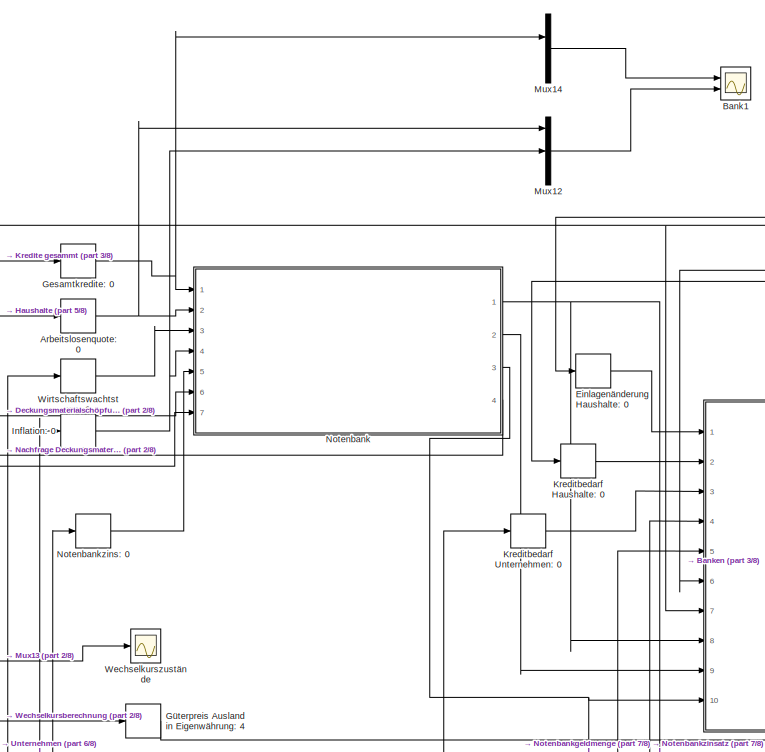
[diagram: Gedecktes Währungssystem - part 1/8, top left region]
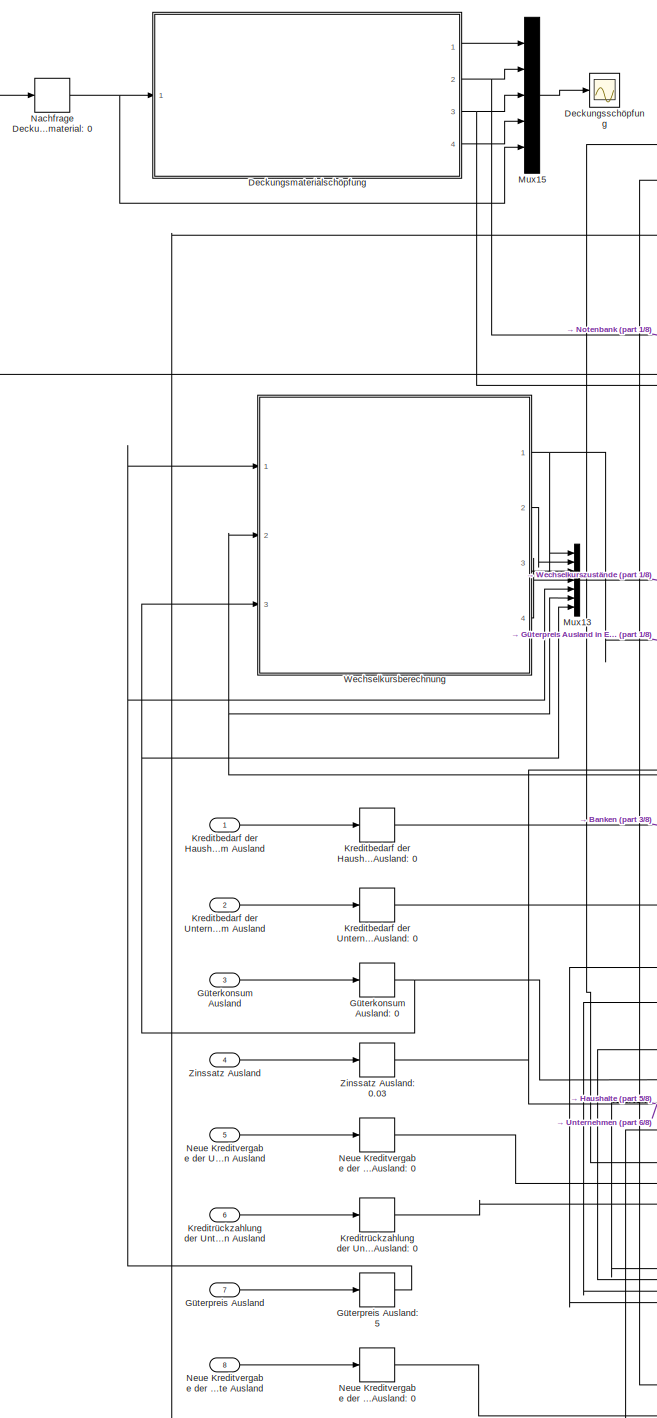
[diagram: Gedecktes Währungssystem - part 2/8, left side, full height]
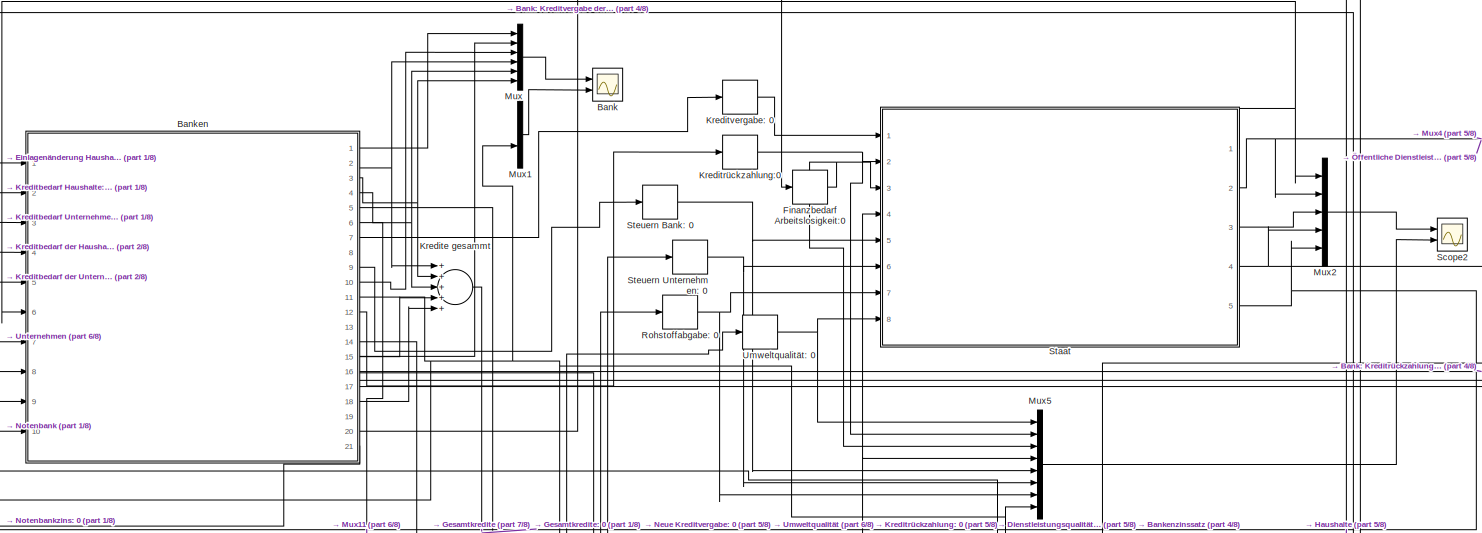
[diagram: Gedecktes Währungssystem - part 3/8, top center region]
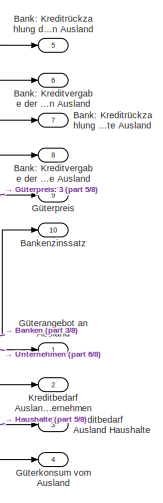
[diagram: Gedecktes Währungssystem - part 4/8, middle right region]
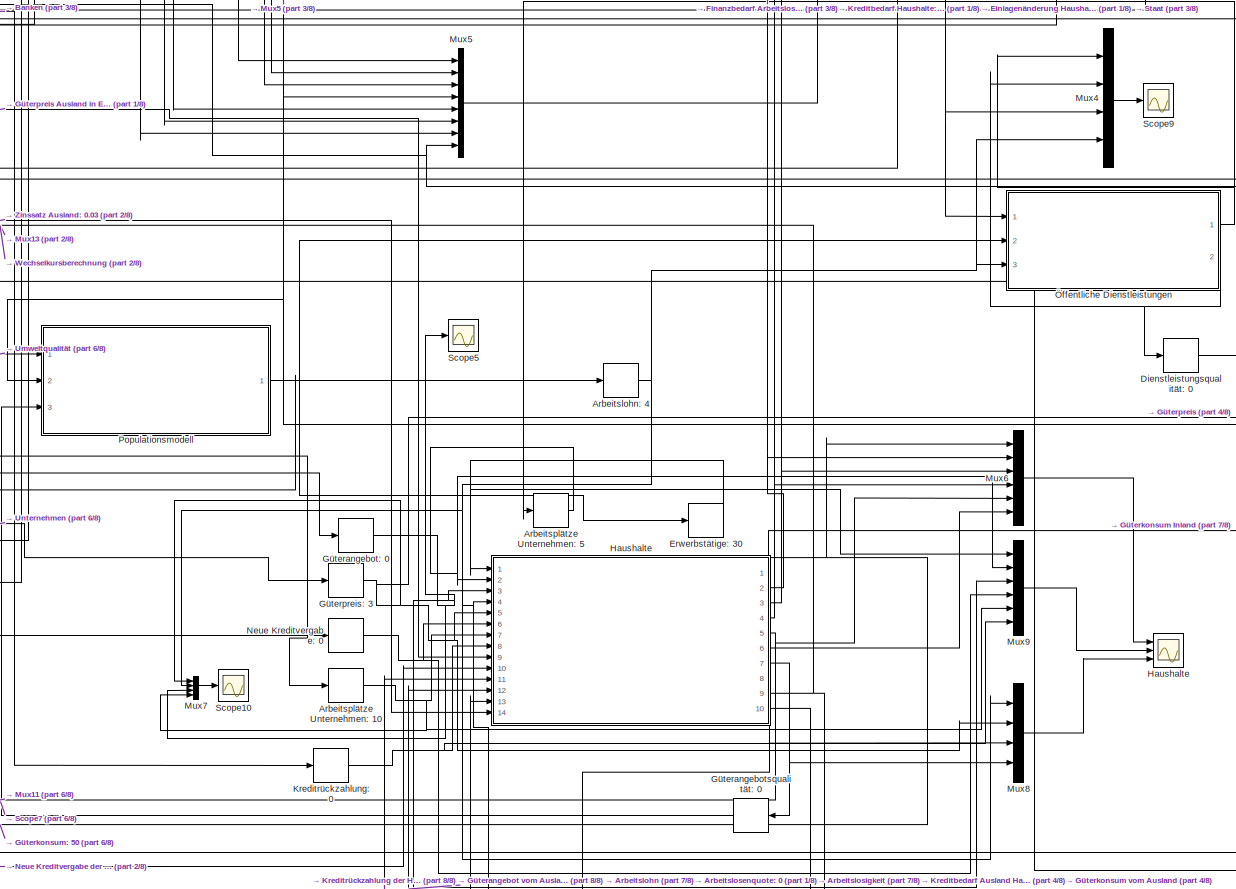
[diagram: Gedecktes Währungssystem - part 5/8, middle right region]
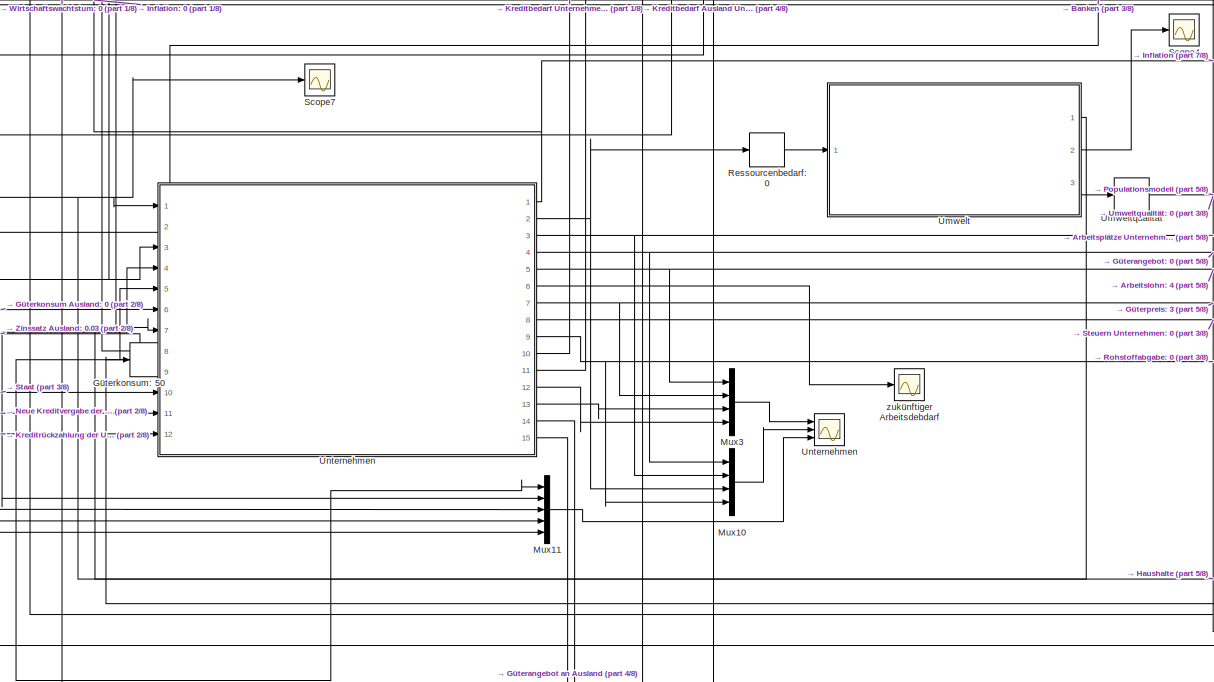
[diagram: Gedecktes Währungssystem - part 6/8, bottom center region]
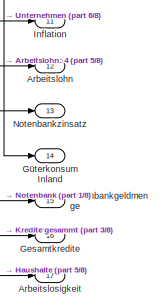
[diagram: Gedecktes Währungssystem - part 7/8, bottom right region]
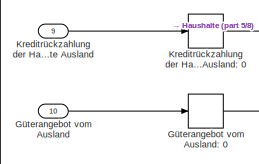
[diagram: Gedecktes Währungssystem - part 8/8, bottom left region]
BLOCK [SubSystem] Gedecktes Währungssystem
  Ports = [10, 17]
  RequestExecContextInheritance = off
BLOCK [Outport] Gedecktes Währungssystem/Arbeitslohn
  IconDisplay = Port number
  Port = 12
BLOCK [Delay] Gedecktes Währungssystem/Arbeitslohn: 4
  DelayLength = 1
  InitialCondition = 4
  InputPortMap = u0
  Ports = [1, 1]
BLOCK [Delay] Gedecktes Währungssystem/Arbeitslosenquote: 0
  DelayLength = 1
  InitialCondition = 0
  InputPortMap = u0
  Ports = [1, 1]
BLOCK [Outport] Gedecktes Währungssystem/Arbeitslosigkeit
  IconDisplay = Port number
  Port = 17
BLOCK [Delay] Gedecktes Währungssystem/Arbeitsplätze Unternehmen: 10 
  DelayLength = 1
  InitialCondition = 10
  InputPortMap = u0
  Ports = [1, 1]
BLOCK [Delay] Gedecktes Währungssystem/Arbeitsplätze Unternehmen: 5
  DelayLength = 1
  InitialCondition = 5
  InputPortMap = u0
  Ports = [1, 1]
BLOCK [Scope] Gedecktes Währungssystem/Bank
  DataFormat = StructureWithTime
  Floating = off
  LegendLocations = 0.20306     0.84552     0.11562    0.099563\n0.033967     0.22591    0.090625    0.036327
  NumInputPorts = 2
  Ports = [2]
  SampleTime = 0
  ShowLegends = on
  TimeRange = 20
  YMax = 5250~0.0021
  YMin = 0~0
BLOCK [Scope] Gedecktes Währungssystem/Bank1
  DataFormat = StructureWithTime
  Floating = off
  NumInputPorts = 2
  Ports = [2]
  SampleTime = 0
  SaveName = ScopeData3
  ShowLegends = on
  TimeRange = 20
  YMax = 10000~0.5
  YMin = -500~-0.5
BLOCK [Outport] Gedecktes Währungssystem/Bank: Kreditrückzahlung der Haushalte Ausland
  IconDisplay = Port number
  Port = 7
BLOCK [Outport] Gedecktes Währungssystem/Bank: Kreditrückzahlung der Unternemen Ausland
  IconDisplay = Port number
  Port = 5
BLOCK [Outport] Gedecktes Währungssystem/Bank: Kreditvergabe der Haushalte Ausland 
  IconDisplay = Port number
  Port = 8
BLOCK [Outport] Gedecktes Währungssystem/Bank: Kreditvergabe der Unternemen Ausland 
  IconDisplay = Port number
  Port = 6
BLOCK [SubSystem] Gedecktes Währungssystem/Banken
  Ports = [10, 21]
  RequestExecContextInheritance = off
BLOCK [Outport] Gedecktes Währungssystem/Banken/Bankenzinssatz
  IconDisplay = Port number
  Port = 11
BLOCK [Outport] Gedecktes Währungssystem/Banken/Bankgewinn nach Steuern
  IconDisplay = Port number
  Port = 8
BLOCK [Outport] Gedecktes Währungssystem/Banken/Bankkontostand
  IconDisplay = Port number
  Port = 10
BLOCK [Outport] Gedecktes Währungssystem/Banken/Banksteuern
  IconDisplay = Port number
  Port = 9
BLOCK [Inport] Gedecktes Währungssystem/Banken/Einlangenänderung der Haushalte
  IconDisplay = Port number
BLOCK [Outport] Gedecktes Währungssystem/Banken/Kontostand der Haushalte
  IconDisplay = Port number
BLOCK [Inport] Gedecktes Währungssystem/Banken/Kreditbedarf der Haushalte
  IconDisplay = Port number
  Port = 2
BLOCK [Inport] Gedecktes Währungssystem/Banken/Kreditbedarf der Haushalte im Ausland
  IconDisplay = Port number
  Port = 4
BLOCK [Inport] Gedecktes Währungssystem/Banken/Kreditbedarf der Unternehmen
  IconDisplay = Port number
  Port = 3
BLOCK [Inport] Gedecktes Währungssystem/Banken/Kreditbedarf der Unternehmen im Ausland
  IconDisplay = Port number
  Port = 5
BLOCK [Inport] Gedecktes Währungssystem/Banken/Kreditbedarf des Staates
  IconDisplay = Port number
  Port = 6
BLOCK [Outport] Gedecktes Währungssystem/Banken/Kredite der Haushalte
  IconDisplay = Port number
  Port = 2
BLOCK [Outport] Gedecktes Währungssystem/Banken/Kredite der Haushalte im Ausland
  IconDisplay = Port number
  Port = 18
BLOCK [Outport] Gedecktes Währungssystem/Banken/Kredite der Unternehmen
  IconDisplay = Port number
  Port = 3
BLOCK [Outport] Gedecktes Währungssystem/Banken/Kredite der Unternehmen im Ausland
  IconDisplay = Port number
  Port = 15
BLOCK [Outport] Gedecktes Währungssystem/Banken/Kredite des Staates
  IconDisplay = Port number
  Port = 4
BLOCK [Outport] Gedecktes Währungssystem/Banken/Kreditrückzahlung Haushalte
  IconDisplay = Port number
  Port = 13
BLOCK [Outport] Gedecktes Währungssystem/Banken/Kreditrückzahlung Staat
  IconDisplay = Port number
  Port = 12
BLOCK [Outport] Gedecktes Währungssystem/Banken/Kreditrückzahlung Unternehmen
  IconDisplay = Port number
  Port = 14
BLOCK [Outport] Gedecktes Währungssystem/Banken/Kreditrückzahlung der Haushalte im Ausland
  IconDisplay = Port number
  Port = 19
BLOCK [Outport] Gedecktes Währungssystem/Banken/Kreditrückzahlung der Unternehmen im Ausland
  IconDisplay = Port number
  Port = 16
BLOCK [Outport] Gedecktes Währungssystem/Banken/Kreditvergabe der Haushalte im Ausland
  IconDisplay = Port number
  Port = 20
BLOCK [Outport] Gedecktes Währungssystem/Banken/Kreditvergabe der Unternehmen im Ausland
  IconDisplay = Port number
  Port = 17
BLOCK [Inport] Gedecktes Währungssystem/Banken/Leitzins der Notenbank
  IconDisplay = Port number
  Port = 8
BLOCK [SubSystem] Gedecktes Währungssystem/Banken/MATLAB Function
  ErrorFcn = Stateflow.Translate.translate
  PermitHierarchicalResolution = ExplicitOnly
  Ports = [10, 21]
  RequestExecContextInheritance = off
  SFBlockType = MATLAB Function
  TreatAsAtomicUnit = on
BLOCK [Demux] Gedecktes Währungssystem/Banken/MATLAB Function/ Demux 
  Outputs = 1
  Ports = [1, 1]
BLOCK [S-Function] Gedecktes Währungssystem/Banken/MATLAB Function/ SFunction 
  EnableBusSupport = on
  FunctionName = sf_sfun
  PortCounts = [10 22]
  Ports = [10, 22]
  Tag = Stateflow S-Function Alle_Waehrungssystem_12062015 66
BLOCK [Terminator] Gedecktes Währungssystem/Banken/MATLAB Function/ Terminator 
BLOCK [Outport] Gedecktes Währungssystem/Banken/MATLAB Function/BankKontostand
  IconDisplay = Port number
  Port = 13
BLOCK [Outport] Gedecktes Währungssystem/Banken/MATLAB Function/BankenSteuern
  IconDisplay = Port number
  Port = 12
BLOCK [Outport] Gedecktes Währungssystem/Banken/MATLAB Function/Bankenzinssatz
  IconDisplay = Port number
  Port = 14
BLOCK [Outport] Gedecktes Währungssystem/Banken/MATLAB Function/BankgewinnNachSteuern
  IconDisplay = Port number
  Port = 11
BLOCK [Inport] Gedecktes Währungssystem/Banken/MATLAB Function/EinlagenAenderungHaushalte
  IconDisplay = Port number
BLOCK [Outport] Gedecktes Währungssystem/Banken/MATLAB Function/KontoHaushalteOut
  IconDisplay = Port number
BLOCK [Inport] Gedecktes Währungssystem/Banken/MATLAB Function/KreditbedarfHaushalte
  IconDisplay = Port number
  Port = 2
BLOCK [Inport] Gedecktes Währungssystem/Banken/MATLAB Function/KreditbedarfHaushalteAusland
  IconDisplay = Port number
  Port = 4
BLOCK [Inport] Gedecktes Währungssystem/Banken/MATLAB Function/KreditbedarfStaat
  IconDisplay = Port number
  Port = 6
BLOCK [Inport] Gedecktes Währungssystem/Banken/MATLAB Function/KreditbedarfUnternehmen
  IconDisplay = Port number
  Port = 3
BLOCK [Inport] Gedecktes Währungssystem/Banken/MATLAB Function/KreditbedarfUnternehmenAusland
  IconDisplay = Port number
  Port = 5
BLOCK [Outport] Gedecktes Währungssystem/Banken/MATLAB Function/KrediteHaushalteAuslandOut
  IconDisplay = Port number
  Port = 18
BLOCK [Outport] Gedecktes Währungssystem/Banken/MATLAB Function/KrediteHaushalteOut
  IconDisplay = Port number
  Port = 2
BLOCK [Outport] Gedecktes Währungssystem/Banken/MATLAB Function/KrediteStaatOut
  IconDisplay = Port number
  Port = 4
BLOCK [Outport] Gedecktes Währungssystem/Banken/MATLAB Function/KrediteUnternehmenAuslandOut
  IconDisplay = Port number
  Port = 15
BLOCK [Outport] Gedecktes Währungssystem/Banken/MATLAB Function/KrediteUnternehmenOut
  IconDisplay = Port number
  Port = 3
BLOCK [Outport] Gedecktes Währungssystem/Banken/MATLAB Function/KreditrueckzahlungHaushalte
  IconDisplay = Port number
  Port = 8
BLOCK [Outport] Gedecktes Währungssystem/Banken/MATLAB Function/KreditrueckzahlungHaushalteAusland
  IconDisplay = Port number
  Port = 19
BLOCK [Outport] Gedecktes Währungssystem/Banken/MATLAB Function/KreditrueckzahlungStaat
  IconDisplay = Port number
  Port = 10
BLOCK [Outport] Gedecktes Währungssystem/Banken/MATLAB Function/KreditrueckzahlungUnternehmen
  IconDisplay = Port number
  Port = 9
BLOCK [Outport] Gedecktes Währungssystem/Banken/MATLAB Function/KreditrueckzahlungUnternehmenAusland
  IconDisplay = Port number
  Port = 16
BLOCK [Outport] Gedecktes Währungssystem/Banken/MATLAB Function/KreditvergabeHaushalte
  IconDisplay = Port number
  Port = 5
BLOCK [Outport] Gedecktes Währungssystem/Banken/MATLAB Function/KreditvergabeHaushalteAusland
  IconDisplay = Port number
  Port = 20
BLOCK [Outport] Gedecktes Währungssystem/Banken/MATLAB Function/KreditvergabeStaat
  IconDisplay = Port number
  Port = 7
BLOCK [Outport] Gedecktes Währungssystem/Banken/MATLAB Function/KreditvergabeUnternehmen
  IconDisplay = Port number
  Port = 6
BLOCK [Outport] Gedecktes Währungssystem/Banken/MATLAB Function/KreditvergabeUnternehmenAusland
  IconDisplay = Port number
  Port = 17
BLOCK [Inport] Gedecktes Währungssystem/Banken/MATLAB Function/Leitzins
  IconDisplay = Port number
  Port = 8
BLOCK [Inport] Gedecktes Währungssystem/Banken/MATLAB Function/MaximaleNotenbankGeldmenge
  IconDisplay = Port number
  Port = 10
BLOCK [Inport] Gedecktes Währungssystem/Banken/MATLAB Function/Mindestreservesatz
  IconDisplay = Port number
  Port = 9
BLOCK [Outport] Gedecktes Währungssystem/Banken/MATLAB Function/NotenbankZinsen
  IconDisplay = Port number
  Port = 21
BLOCK [Inport] Gedecktes Währungssystem/Banken/MATLAB Function/Steuersatz
  IconDisplay = Port number
  Port = 7
BLOCK [Inport] Gedecktes Währungssystem/Banken/Maximale Geldmenge der Notebank
  IconDisplay = Port number
  Port = 10
BLOCK [Inport] Gedecktes Währungssystem/Banken/Mindestreservesatz der Notenbank
  IconDisplay = Port number
  Port = 9
BLOCK [Outport] Gedecktes Währungssystem/Banken/Neue Kreditvergabe Haushalte
  IconDisplay = Port number
  Port = 5
BLOCK [Outport] Gedecktes Währungssystem/Banken/Neue Kreditvergabe Staat
  IconDisplay = Port number
  Port = 7
BLOCK [Outport] Gedecktes Währungssystem/Banken/Neue Kreditvergabe Unternehmen
  IconDisplay = Port number
  Port = 6
BLOCK [Outport] Gedecktes Währungssystem/Banken/NotenbankZinsen
  IconDisplay = Port number
  Port = 21
BLOCK [Inport] Gedecktes Währungssystem/Banken/Steuersatz
  IconDisplay = Port number
  Port = 7
BLOCK [Outport] Gedecktes Währungssystem/Bankenzinssatz
  IconDisplay = Port number
  Port = 10
BLOCK [SubSystem] Gedecktes Währungssystem/Deckungsmaterialschöpfung
  Ports = [1, 4]
  RequestExecContextInheritance = off
BLOCK [Outport] Gedecktes Währungssystem/Deckungsmaterialschöpfung/AngebotsMengeDeckungsmaterial
  IconDisplay = Port number
  Port = 3
BLOCK [SubSystem] Gedecktes Währungssystem/Deckungsmaterialschöpfung/MATLAB Function
  ErrorFcn = Stateflow.Translate.translate
  PermitHierarchicalResolution = ExplicitOnly
  Ports = [1, 4]
  RequestExecContextInheritance = off
  SFBlockType = MATLAB Function
  TreatAsAtomicUnit = on
BLOCK [Demux] Gedecktes Währungssystem/Deckungsmaterialschöpfung/MATLAB Function/ Demux 
  Outputs = 1
  Ports = [1, 1]
BLOCK [S-Function] Gedecktes Währungssystem/Deckungsmaterialschöpfung/MATLAB Function/ SFunction 
  EnableBusSupport = on
  FunctionName = sf_sfun
  PortCounts = [1 5]
  Ports = [1, 5]
  Tag = Stateflow S-Function Alle_Waehrungssystem_12062015 67
BLOCK [Terminator] Gedecktes Währungssystem/Deckungsmaterialschöpfung/MATLAB Function/ Terminator 
BLOCK [Outport] Gedecktes Währungssystem/Deckungsmaterialschöpfung/MATLAB Function/AngebotsMengeDeckungsmaterial
  IconDisplay = Port number
  Port = 3
BLOCK [Inport] Gedecktes Währungssystem/Deckungsmaterialschöpfung/MATLAB Function/NachfrageDeckungsmaterial
  IconDisplay = Port number
BLOCK [Outport] Gedecktes Währungssystem/Deckungsmaterialschöpfung/MATLAB Function/PreisDeckungsmaterialOut
  IconDisplay = Port number
  Port = 2
BLOCK [Outport] Gedecktes Währungssystem/Deckungsmaterialschöpfung/MATLAB Function/RessourcenMengeDeckungsmaterial
  IconDisplay = Port number
BLOCK [Outport] Gedecktes Währungssystem/Deckungsmaterialschöpfung/MATLAB Function/Ressourcenabbaumenge
  IconDisplay = Port number
  Port = 4
BLOCK [Inport] Gedecktes Währungssystem/Deckungsmaterialschöpfung/NachfrageDeckungsmaterial
  IconDisplay = Port number
BLOCK [Outport] Gedecktes Währungssystem/Deckungsmaterialschöpfung/PreisDeckungsmaterialOut
  IconDisplay = Port number
  Port = 2
BLOCK [Outport] Gedecktes Währungssystem/Deckungsmaterialschöpfung/RessourcenMengeDeckungsmaterial
  IconDisplay = Port number
BLOCK [Outport] Gedecktes Währungssystem/Deckungsmaterialschöpfung/Ressourcenabbaumenge
  IconDisplay = Port number
  Port = 4
BLOCK [Scope] Gedecktes Währungssystem/Deckungsschöpfung
  DataFormat = StructureWithTime
  Floating = off
  LegendLocations = 0.80981     0.89455     0.17448    0.083754
  NumInputPorts = 1
  Ports = [1]
  SampleTime = 0
  SaveName = ScopeData12
  ShowLegends = on
  TimeRange = 100
  YMax = 50
  YMin = 0
BLOCK [Delay] Gedecktes Währungssystem/Dienstleistungsqualität: 0
  DelayLength = 1
  InitialCondition = 0
  InputPortMap = u0
  Ports = [1, 1]
BLOCK [Delay] Gedecktes Währungssystem/Einlagenänderung Haushalte: 0
  DelayLength = 1
  InitialCondition = 0
  InputPortMap = u0
  Ports = [1, 1]
BLOCK [Delay] Gedecktes Währungssystem/Erwerbstätige: 30
  DelayLength = 1
  InitialCondition = 30
  InputPortMap = u0
  Ports = [1, 1]
BLOCK [Delay] Gedecktes Währungssystem/Finanzbedarf Arbeitslosigkeit:0
  DelayLength = 1
  InitialCondition = 0
  InputPortMap = u0
  Ports = [1, 1]
BLOCK [Outport] Gedecktes Währungssystem/Gesamtkredite
  IconDisplay = Port number
  Port = 16
BLOCK [Delay] Gedecktes Währungssystem/Gesamtkredite: 0
  DelayLength = 1
  InitialCondition = 0
  InputPortMap = u0
  Ports = [1, 1]
BLOCK [Outport] Gedecktes Währungssystem/Güterangebot an  Ausland
  IconDisplay = Port number
BLOCK [Inport] Gedecktes Währungssystem/Güterangebot vom  Ausland
  IconDisplay = Port number
  Port = 10
BLOCK [Delay] Gedecktes Währungssystem/Güterangebot vom  Ausland: 0
  DelayLength = 1
  InitialCondition = 0
  InputPortMap = u0
  Ports = [1, 1]
BLOCK [Delay] Gedecktes Währungssystem/Güterangebot: 0
  DelayLength = 1
  InitialCondition = 0
  InputPortMap = u0
  Ports = [1, 1]
BLOCK [Delay] Gedecktes Währungssystem/Güterangebotsqualität: 0
  DelayLength = 1
  InitialCondition = 0
  InputPortMap = u0
  Ports = [1, 1]
BLOCK [Inport] Gedecktes Währungssystem/Güterkonsum Ausland
  IconDisplay = Port number
  Port = 3
BLOCK [Delay] Gedecktes Währungssystem/Güterkonsum Ausland: 0
  DelayLength = 1
  InitialCondition = 0
  InputPortMap = u0
  Ports = [1, 1]
BLOCK [Outport] Gedecktes Währungssystem/Güterkonsum Inland
  IconDisplay = Port number
  Port = 14
BLOCK [Outport] Gedecktes Währungssystem/Güterkonsum vom Ausland
  IconDisplay = Port number
  Port = 4
BLOCK [Delay] Gedecktes Währungssystem/Güterkonsum: 50
  DelayLength = 1
  InitialCondition = 50
  InputPortMap = u0
  Ports = [1, 1]
BLOCK [Outport] Gedecktes Währungssystem/Güterpreis
  IconDisplay = Port number
  Port = 9
BLOCK [Inport] Gedecktes Währungssystem/Güterpreis Ausland
  IconDisplay = Port number
  Port = 7
BLOCK [Delay] Gedecktes Währungssystem/Güterpreis Ausland in Eigenwährung: 4
  DelayLength = 1
  InitialCondition = 4
  InputPortMap = u0
  Ports = [1, 1]
BLOCK [Delay] Gedecktes Währungssystem/Güterpreis Ausland: 5
  DelayLength = 1
  InitialCondition = 5
  InputPortMap = u0
  Ports = [1, 1]
BLOCK [Delay] Gedecktes Währungssystem/Güterpreis: 3
  DelayLength = 1
  InitialCondition = 3
  InputPortMap = u0
  Ports = [1, 1]
BLOCK [SubSystem] Gedecktes Währungssystem/Haushalte
  Ports = [14, 10]
  RequestExecContextInheritance = off
BLOCK [Scope] Gedecktes Währungssystem/Haushalte 
  DataFormat = StructureWithTime
  Floating = off
  LegendLocations = 0.85877     0.86293     0.12552    0.099563\n0.87856     0.53801     0.10573    0.099563\n 0.8572     0.24571     0.12708    0.067945
  NumInputPorts = 3
  Ports = [3]
  SampleTime = 0
  SaveName = ScopeData1
  ShowLegends = on
  TickLabels = on
  TimeRange = 100
  YMax = 150~100~1
  YMin = -50~0~0
BLOCK [Outport] Gedecktes Währungssystem/Haushalte/Arbeiter Unternehmen
  IconDisplay = Port number
  Port = 5
BLOCK [Inport] Gedecktes Währungssystem/Haushalte/Arbeitslohn
  IconDisplay = Port number
  Port = 4
BLOCK [Outport] Gedecktes Währungssystem/Haushalte/Arbeitslosenquote
  IconDisplay = Port number
  Port = 8
BLOCK [Inport] Gedecktes Währungssystem/Haushalte/Arbeitsplätze Dienstleistungen
  IconDisplay = Port number
  Port = 2
BLOCK [Inport] Gedecktes Währungssystem/Haushalte/Arbeitsplätze Unternehmen
  IconDisplay = Port number
  Port = 7
BLOCK [Inport] Gedecktes Währungssystem/Haushalte/Erwerbsfähige
  IconDisplay = Port number
BLOCK [Outport] Gedecktes Währungssystem/Haushalte/Finanzbedarf Arbeitslosigkeit
  IconDisplay = Port number
  Port = 2
BLOCK [Inport] Gedecktes Währungssystem/Haushalte/Güterangebot Ausland
  IconDisplay = Port number
  Port = 12
BLOCK [Inport] Gedecktes Währungssystem/Haushalte/Güterangebot Inland
  IconDisplay = Port number
  Port = 3
BLOCK [Outport] Gedecktes Währungssystem/Haushalte/Güterangebotsqualität
  IconDisplay = Port number
  Port = 7
BLOCK [Outport] Gedecktes Währungssystem/Haushalte/Güterkonsum Ausland
  IconDisplay = Port number
  Port = 9
BLOCK [Outport] Gedecktes Währungssystem/Haushalte/Güterkonsum Inland
  IconDisplay = Port number
BLOCK [Inport] Gedecktes Währungssystem/Haushalte/Güterpreis Ausland
  IconDisplay = Port number
  Port = 9
BLOCK [Inport] Gedecktes Währungssystem/Haushalte/Güterpreis Inland
  IconDisplay = Port number
  Port = 5
BLOCK [Outport] Gedecktes Währungssystem/Haushalte/Gütervorrat der Haushalte
  IconDisplay = Port number
  Port = 6
BLOCK [Outport] Gedecktes Währungssystem/Haushalte/Kreditbedarf Ausland
  IconDisplay = Port number
  Port = 10
BLOCK [Outport] Gedecktes Währungssystem/Haushalte/Kreditbedarf Inland
  IconDisplay = Port number
  Port = 4
BLOCK [Inport] Gedecktes Währungssystem/Haushalte/Kreditrückzahlung Ausland
  IconDisplay = Port number
  Port = 8
BLOCK [Inport] Gedecktes Währungssystem/Haushalte/Kreditrückzahlung Inland
  IconDisplay = Port number
  Port = 11
BLOCK [Inport] Gedecktes Währungssystem/Haushalte/Kreditzinssatz Ausland
  IconDisplay = Port number
  Port = 14
BLOCK [Inport] Gedecktes Währungssystem/Haushalte/Kreditzinssatz Inland
  IconDisplay = Port number
  Port = 13
BLOCK [SubSystem] Gedecktes Währungssystem/Haushalte/MATLAB Function
  ErrorFcn = Stateflow.Translate.translate
  PermitHierarchicalResolution = ExplicitOnly
  Ports = [14, 10]
  RequestExecContextInheritance = off
  SFBlockType = MATLAB Function
  TreatAsAtomicUnit = on
BLOCK [Demux] Gedecktes Währungssystem/Haushalte/MATLAB Function/ Demux 
  Outputs = 1
  Ports = [1, 1]
BLOCK [S-Function] Gedecktes Währungssystem/Haushalte/MATLAB Function/ SFunction 
  EnableBusSupport = on
  FunctionName = sf_sfun
  PortCounts = [14 11]
  Ports = [14, 11]
  Tag = Stateflow S-Function Alle_Waehrungssystem_12062015 68
BLOCK [Terminator] Gedecktes Währungssystem/Haushalte/MATLAB Function/ Terminator 
BLOCK [Outport] Gedecktes Währungssystem/Haushalte/MATLAB Function/ArbeiterUnternehmen
  IconDisplay = Port number
  Port = 5
BLOCK [Inport] Gedecktes Währungssystem/Haushalte/MATLAB Function/Arbeitslohn
  IconDisplay = Port number
  Port = 7
BLOCK [Outport] Gedecktes Währungssystem/Haushalte/MATLAB Function/Arbeitslosenquote
  IconDisplay = Port number
  Port = 8
BLOCK [Inport] Gedecktes Währungssystem/Haushalte/MATLAB Function/ArbeitsplaetzeDienstleistungen
  IconDisplay = Port number
  Port = 2
BLOCK [Inport] Gedecktes Währungssystem/Haushalte/MATLAB Function/ArbeitsplaetzeUnternehmen
  IconDisplay = Port number
  Port = 3
BLOCK [Inport] Gedecktes Währungssystem/Haushalte/MATLAB Function/Erwerbsfaehige
  IconDisplay = Port number
BLOCK [Outport] Gedecktes Währungssystem/Haushalte/MATLAB Function/FinanzierungArbeitslosigkeit
  IconDisplay = Port number
  Port = 2
BLOCK [Inport] Gedecktes Währungssystem/Haushalte/MATLAB Function/GueterAngebotAusland
  IconDisplay = Port number
  Port = 12
BLOCK [Inport] Gedecktes Währungssystem/Haushalte/MATLAB Function/GueterAngebotInland
  IconDisplay = Port number
  Port = 6
BLOCK [Outport] Gedecktes Währungssystem/Haushalte/MATLAB Function/GueterVorratHaushalte
  IconDisplay = Port number
  Port = 6
BLOCK [Outport] Gedecktes Währungssystem/Haushalte/MATLAB Function/GueterangebotsqualitaetOut
  IconDisplay = Port number
  Port = 7
BLOCK [Outport] Gedecktes Währungssystem/Haushalte/MATLAB Function/GueterkonsumAusland
  IconDisplay = Port number
  Port = 9
BLOCK [Outport] Gedecktes Währungssystem/Haushalte/MATLAB Function/GueterkonsumInland
  IconDisplay = Port number
BLOCK [Inport] Gedecktes Währungssystem/Haushalte/MATLAB Function/GueterpreisAusland
  IconDisplay = Port number
  Port = 9
BLOCK [Inport] Gedecktes Währungssystem/Haushalte/MATLAB Function/GueterpreisInland
  IconDisplay = Port number
  Port = 8
BLOCK [Inport] Gedecktes Währungssystem/Haushalte/MATLAB Function/KreditZinssatzAusland
  IconDisplay = Port number
  Port = 14
BLOCK [Inport] Gedecktes Währungssystem/Haushalte/MATLAB Function/KreditZinssatzInland
  IconDisplay = Port number
  Port = 13
BLOCK [Outport] Gedecktes Währungssystem/Haushalte/MATLAB Function/KreditbedarfAusland
  IconDisplay = Port number
  Port = 10
BLOCK [Outport] Gedecktes Währungssystem/Haushalte/MATLAB Function/KreditbedarfInland
  IconDisplay = Port number
  Port = 4
BLOCK [Inport] Gedecktes Währungssystem/Haushalte/MATLAB Function/KreditrueckzahlungAusland
  IconDisplay = Port number
  Port = 11
BLOCK [Inport] Gedecktes Währungssystem/Haushalte/MATLAB Function/KreditrueckzahlungInland
  IconDisplay = Port number
  Port = 5
BLOCK [Inport] Gedecktes Währungssystem/Haushalte/MATLAB Function/NeueKreditvergabeAusland
  IconDisplay = Port number
  Port = 10
BLOCK [Inport] Gedecktes Währungssystem/Haushalte/MATLAB Function/NeueKreditvergabeInland
  IconDisplay = Port number
  Port = 4
BLOCK [Outport] Gedecktes Währungssystem/Haushalte/MATLAB Function/Spareinlagen
  IconDisplay = Port number
  Port = 3
BLOCK [Inport] Gedecktes Währungssystem/Haushalte/Neue Kreditvergabe Ausland
  IconDisplay = Port number
  Port = 10
BLOCK [Inport] Gedecktes Währungssystem/Haushalte/Neue Kreditvergabe Inland
  IconDisplay = Port number
  Port = 6
BLOCK [Outport] Gedecktes Währungssystem/Haushalte/Spareinlagen
  IconDisplay = Port number
  Port = 3
BLOCK [Outport] Gedecktes Währungssystem/Inflation
  IconDisplay = Port number
  Port = 11
BLOCK [Delay] Gedecktes Währungssystem/Inflation: 0
  DelayLength = 1
  InitialCondition = 0
  InputPortMap = u0
  Ports = [1, 1]
BLOCK [Outport] Gedecktes Währungssystem/Kreditbedarf Ausland Haushalte
  IconDisplay = Port number
  Port = 3
BLOCK [Outport] Gedecktes Währungssystem/Kreditbedarf Ausland Unternehmen
  IconDisplay = Port number
  Port = 2
BLOCK [Delay] Gedecktes Währungssystem/Kreditbedarf Haushalte: 0
  DelayLength = 1
  InitialCondition = 0
  InputPortMap = u0
  Ports = [1, 1]
BLOCK [Delay] Gedecktes Währungssystem/Kreditbedarf Unternehmen: 0
  DelayLength = 1
  InitialCondition = 0
  InputPortMap = u0
  Ports = [1, 1]
BLOCK [Inport] Gedecktes Währungssystem/Kreditbedarf der Haushalte im Ausland
  IconDisplay = Port number
BLOCK [Delay] Gedecktes Währungssystem/Kreditbedarf der Haushalte im Ausland: 0
  DelayLength = 1
  InitialCondition = 0
  InputPortMap = u0
  Ports = [1, 1]
BLOCK [Inport] Gedecktes Währungssystem/Kreditbedarf der Unternehmen im Ausland
  IconDisplay = Port number
  Port = 2
BLOCK [Delay] Gedecktes Währungssystem/Kreditbedarf der Unternehmen im Ausland: 0
  DelayLength = 1
  InitialCondition = 0
  InputPortMap = u0
  Ports = [1, 1]
BLOCK [Sum] Gedecktes Währungssystem/Kredite gesammt
  InputSameDT = off
  Inputs = +++++
  OutDataTypeStr = Inherit: Inherit via internal rule
  Ports = [5, 1]
  SaturateOnIntegerOverflow = off
BLOCK [Inport] Gedecktes Währungssystem/Kreditrückzahlung der Haushalte Ausland
  IconDisplay = Port number
  Port = 9
BLOCK [Delay] Gedecktes Währungssystem/Kreditrückzahlung der Haushalte Ausland: 0
  DelayLength = 1
  InitialCondition = 0
  InputPortMap = u0
  Ports = [1, 1]
BLOCK [Inport] Gedecktes Währungssystem/Kreditrückzahlung der Unternehmen Ausland
  IconDisplay = Port number
  Port = 6
BLOCK [Delay] Gedecktes Währungssystem/Kreditrückzahlung der Unternehmen Ausland: 0
  DelayLength = 1
  InitialCondition = 0
  InputPortMap = u0
  Ports = [1, 1]
BLOCK [Delay] Gedecktes Währungssystem/Kreditrückzahlung: 0
  DelayLength = 1
  InitialCondition = 0
  InputPortMap = u0
  Ports = [1, 1]
BLOCK [Delay] Gedecktes Währungssystem/Kreditrückzahlung:0
  DelayLength = 1
  InitialCondition = 0
  InputPortMap = u0
  Ports = [1, 1]
BLOCK [Delay] Gedecktes Währungssystem/Kreditvergabe: 0
  DelayLength = 1
  InitialCondition = 0
  InputPortMap = u0
  Ports = [1, 1]
BLOCK [Mux] Gedecktes Währungssystem/Mux
  DisplayOption = bar
  Inputs = 6
  Ports = [6, 1]
BLOCK [Mux] Gedecktes Währungssystem/Mux1
  DisplayOption = bar
  Inputs = 2
  Ports = [2, 1]
BLOCK [Mux] Gedecktes Währungssystem/Mux10
  DisplayOption = bar
  Ports = [4, 1]
BLOCK [Mux] Gedecktes Währungssystem/Mux11
  DisplayOption = bar
  Inputs = 5
  Ports = [5, 1]
BLOCK [Mux] Gedecktes Währungssystem/Mux12
  DisplayOption = bar
  Inputs = 5
  Ports = [5, 1]
BLOCK [Mux] Gedecktes Währungssystem/Mux13
  DisplayOption = bar
  Inputs = 7
  Ports = [7, 1]
BLOCK [Mux] Gedecktes Währungssystem/Mux14
  DisplayOption = bar
  Inputs = 2
  Ports = [2, 1]
BLOCK [Mux] Gedecktes Währungssystem/Mux15
  DisplayOption = bar
  Inputs = 5
  Ports = [5, 1]
BLOCK [Mux] Gedecktes Währungssystem/Mux2
  DisplayOption = bar
  Inputs = 5
  Ports = [5, 1]
BLOCK [Mux] Gedecktes Währungssystem/Mux3
  DisplayOption = bar
  Ports = [4, 1]
BLOCK [Mux] Gedecktes Währungssystem/Mux4
  DisplayOption = bar
  Ports = [4, 1]
BLOCK [Mux] Gedecktes Währungssystem/Mux5
  DisplayOption = bar
  Inputs = 8
  Ports = [8, 1]
BLOCK [Mux] Gedecktes Währungssystem/Mux6
  DisplayOption = bar
  Inputs = 6
  Ports = [6, 1]
BLOCK [Mux] Gedecktes Währungssystem/Mux7
  DisplayOption = bar
  Ports = [4, 1]
BLOCK [Mux] Gedecktes Währungssystem/Mux8
  DisplayOption = bar
  Ports = [4, 1]
BLOCK [Mux] Gedecktes Währungssystem/Mux9
  DisplayOption = bar
  Inputs = 6
  Ports = [6, 1]
BLOCK [Delay] Gedecktes Währungssystem/Nachfrage Deckungsmaterial: 0
  DelayLength = 1
  InitialCondition = 0
  InputPortMap = u0
  Ports = [1, 1]
BLOCK [Inport] Gedecktes Währungssystem/Neue Kreditvergabe der Haushalte Ausland
  IconDisplay = Port number
  Port = 8
BLOCK [Delay] Gedecktes Währungssystem/Neue Kreditvergabe der Haushalte Ausland: 0
  DelayLength = 1
  InitialCondition = 0
  InputPortMap = u0
  Ports = [1, 1]
BLOCK [Inport] Gedecktes Währungssystem/Neue Kreditvergabe der Unternehmen Ausland
  IconDisplay = Port number
  Port = 5
BLOCK [Delay] Gedecktes Währungssystem/Neue Kreditvergabe der Unternehmen Ausland: 0
  DelayLength = 1
  InitialCondition = 0
  InputPortMap = u0
  Ports = [1, 1]
BLOCK [Delay] Gedecktes Währungssystem/Neue Kreditvergabe: 0
  DelayLength = 1
  InitialCondition = 0
  InputPortMap = u0
  Ports = [1, 1]
BLOCK [SubSystem] Gedecktes Währungssystem/Notenbank
  Ports = [7, 4]
  RequestExecContextInheritance = off
BLOCK [Inport] Gedecktes Währungssystem/Notenbank/Arbeitslosenquote
  IconDisplay = Port number
  Port = 2
BLOCK [Inport] Gedecktes Währungssystem/Notenbank/Gesamtkredite
  IconDisplay = Port number
BLOCK [Inport] Gedecktes Währungssystem/Notenbank/Inflation
  IconDisplay = Port number
  Port = 4
BLOCK [Outport] Gedecktes Währungssystem/Notenbank/Leitzinssatz der Notenbank
  IconDisplay = Port number
BLOCK [SubSystem] Gedecktes Währungssystem/Notenbank/MATLAB Function
  ErrorFcn = Stateflow.Translate.translate
  PermitHierarchicalResolution = ExplicitOnly
  Ports = [7, 4]
  RequestExecContextInheritance = off
  SFBlockType = MATLAB Function
  TreatAsAtomicUnit = on
BLOCK [Demux] Gedecktes Währungssystem/Notenbank/MATLAB Function/ Demux 
  Outputs = 1
  Ports = [1, 1]
BLOCK [S-Function] Gedecktes Währungssystem/Notenbank/MATLAB Function/ SFunction 
  EnableBusSupport = on
  FunctionName = sf_sfun
  PortCounts = [7 5]
  Ports = [7, 5]
  Tag = Stateflow S-Function Alle_Waehrungssystem_12062015 69
BLOCK [Terminator] Gedecktes Währungssystem/Notenbank/MATLAB Function/ Terminator 
BLOCK [Inport] Gedecktes Währungssystem/Notenbank/MATLAB Function/Arbeitslosenquote
  IconDisplay = Port number
  Port = 2
BLOCK [Inport] Gedecktes Währungssystem/Notenbank/MATLAB Function/Gesamtkredite
  IconDisplay = Port number
BLOCK [Inport] Gedecktes Währungssystem/Notenbank/MATLAB Function/Inflation
  IconDisplay = Port number
  Port = 3
BLOCK [Outport] Gedecktes Währungssystem/Notenbank/MATLAB Function/LeitzinsOut
  IconDisplay = Port number
BLOCK [Outport] Gedecktes Währungssystem/Notenbank/MATLAB Function/MaximaleNotenbankGeldmengeOut
  IconDisplay = Port number
  Port = 3
BLOCK [Outport] Gedecktes Währungssystem/Notenbank/MATLAB Function/MindestreservesatzOut
  IconDisplay = Port number
  Port = 2
BLOCK [Outport] Gedecktes Währungssystem/Notenbank/MATLAB Function/NachfrageDeckungsmaterial
  IconDisplay = Port number
  Port = 4
BLOCK [Inport] Gedecktes Währungssystem/Notenbank/MATLAB Function/NeuesDeckungsmaterial
  IconDisplay = Port number
  Port = 7
BLOCK [Inport] Gedecktes Währungssystem/Notenbank/MATLAB Function/Notenbankzinsen
  IconDisplay = Port number
  Port = 5
BLOCK [Inport] Gedecktes Währungssystem/Notenbank/MATLAB Function/PreisDeckungsmaterial
  IconDisplay = Port number
  Port = 6
BLOCK [Inport] Gedecktes Währungssystem/Notenbank/MATLAB Function/Wirtschaftswachtsum
  IconDisplay = Port number
  Port = 4
BLOCK [Outport] Gedecktes Währungssystem/Notenbank/Maximale Geldmenge von der Notenbank
  IconDisplay = Port number
  Port = 3
BLOCK [Outport] Gedecktes Währungssystem/Notenbank/Mindestreservesatz von der Notenbank
  IconDisplay = Port number
  Port = 2
BLOCK [Outport] Gedecktes Währungssystem/Notenbank/Nachfrage Deckungsmaterial
  IconDisplay = Port number
  Port = 4
BLOCK [Inport] Gedecktes Währungssystem/Notenbank/NeuesDeckungsmaterial
  IconDisplay = Port number
  Port = 7
BLOCK [Inport] Gedecktes Währungssystem/Notenbank/Notenbankzinsen
  IconDisplay = Port number
  Port = 5
BLOCK [Inport] Gedecktes Währungssystem/Notenbank/PreisDeckungsmaterial
  IconDisplay = Port number
  Port = 6
BLOCK [Inport] Gedecktes Währungssystem/Notenbank/Wirtschaftswachtsum
  IconDisplay = Port number
  Port = 3
BLOCK [Outport] Gedecktes Währungssystem/Notenbankgeldmenge
  IconDisplay = Port number
  Port = 15
BLOCK [Delay] Gedecktes Währungssystem/Notenbankzins: 0
  DelayLength = 1
  InitialCondition = 0
  InputPortMap = u0
  Ports = [1, 1]
BLOCK [Outport] Gedecktes Währungssystem/Notenbankzinsatz
  IconDisplay = Port number
  Port = 13
BLOCK [SubSystem] Gedecktes Währungssystem/Populationsmodell
  Ports = [3, 1]
  RequestExecContextInheritance = off
BLOCK [Constant] Gedecktes Währungssystem/Populationsmodell/Ausgleichsfaktor
  Value = 0.3
BLOCK [Sum] Gedecktes Währungssystem/Populationsmodell/Dienstleistungs- multiplikator
  InputSameDT = off
  OutDataTypeStr = Inherit: Inherit via internal rule
  Ports = [2, 1]
  SaturateOnIntegerOverflow = off
BLOCK [Inport] Gedecktes Währungssystem/Populationsmodell/Dienstleistungsqualität
  IconDisplay = Port number
  Port = 2
BLOCK [Product] Gedecktes Währungssystem/Populationsmodell/Divide1
  InputSameDT = off
  Inputs = */
  OutDataTypeStr = Inherit: Inherit via internal rule
  Ports = [2, 1]
  RndMeth = Floor
  SaturateOnIntegerOverflow = off
BLOCK [Product] Gedecktes Währungssystem/Populationsmodell/Divide2
  InputSameDT = off
  Inputs = */
  OutDataTypeStr = Inherit: Inherit via internal rule
  Ports = [2, 1]
  RndMeth = Floor
  SaturateOnIntegerOverflow = off
BLOCK [Product] Gedecktes Währungssystem/Populationsmodell/Divide3
  InputSameDT = off
  Inputs = */
  OutDataTypeStr = Inherit: Inherit via internal rule
  Ports = [2, 1]
  RndMeth = Floor
  SaturateOnIntegerOverflow = off
BLOCK [Sum] Gedecktes Währungssystem/Populationsmodell/Erwachsene
  InputSameDT = off
  Inputs = +--
  OutDataTypeStr = Inherit: Inherit via internal rule
  Ports = [3, 1]
  SaturateOnIntegerOverflow = off
BLOCK [Outport] Gedecktes Währungssystem/Populationsmodell/Erwerbsfähige
  IconDisplay = Port number
BLOCK [Product] Gedecktes Währungssystem/Populationsmodell/Fertilitätsmultiplikator
  InputSameDT = off
  Inputs = 4
  OutDataTypeStr = Inherit: Inherit via internal rule
  Ports = [4, 1]
  RndMeth = Floor
  SaturateOnIntegerOverflow = off
BLOCK [Constant] Gedecktes Währungssystem/Populationsmodell/Fertilitätsrate pro Frau
  Value = 3/40
BLOCK [Constant] Gedecktes Währungssystem/Populationsmodell/Frauenanteil pro Erwachsene
  Value = 0.5
BLOCK [Inport] Gedecktes Währungssystem/Populationsmodell/Güterangebotsqualität bei vorhandem Einkommen
  IconDisplay = Port number
  Port = 3
BLOCK [Sum] Gedecktes Währungssystem/Populationsmodell/Güterangebotsqualitäts- multiplikator
  InputSameDT = off
  OutDataTypeStr = Inherit: Inherit via internal rule
  Ports = [2, 1]
  SaturateOnIntegerOverflow = off
BLOCK [Constant] Gedecktes Währungssystem/Populationsmodell/Jahre der Altersklasse
  Value = 15
BLOCK [Constant] Gedecktes Währungssystem/Populationsmodell/Jahre der Altersklasse1
  Value = 10
BLOCK [Constant] Gedecktes Währungssystem/Populationsmodell/Jahre der Altersklasse2
  Value = 40
BLOCK [Sum] Gedecktes Währungssystem/Populationsmodell/Kinder
  InputSameDT = off
  Inputs = +--
  OutDataTypeStr = Inherit: Inherit via internal rule
  Ports = [3, 1]
  SaturateOnIntegerOverflow = off
BLOCK [Product] Gedecktes Währungssystem/Populationsmodell/Lebensqualitätsfaktor
  InputSameDT = off
  Inputs = /
  OutDataTypeStr = Inherit: Inherit via internal rule
  Ports = [1, 1]
  RndMeth = Floor
  SaturateOnIntegerOverflow = off
BLOCK [Product] Gedecktes Währungssystem/Populationsmodell/Product
  InputSameDT = off
  Inputs = 3
  OutDataTypeStr = Inherit: Inherit via internal rule
  Ports = [3, 1]
  RndMeth = Floor
  SaturateOnIntegerOverflow = off
BLOCK [Product] Gedecktes Währungssystem/Populationsmodell/Product1
  InputSameDT = off
  Inputs = 3
  OutDataTypeStr = Inherit: Inherit via internal rule
  Ports = [3, 1]
  RndMeth = Floor
  SaturateOnIntegerOverflow = off
BLOCK [Product] Gedecktes Währungssystem/Populationsmodell/Product2
  InputSameDT = off
  Inputs = 3
  OutDataTypeStr = Inherit: Inherit via internal rule
  Ports = [3, 1]
  RndMeth = Floor
  SaturateOnIntegerOverflow = off
BLOCK [Product] Gedecktes Währungssystem/Populationsmodell/Product3
  InputSameDT = off
  Inputs = 3
  OutDataTypeStr = Inherit: Inherit via internal rule
  Ports = [3, 1]
  RndMeth = Floor
  SaturateOnIntegerOverflow = off
BLOCK [Sum] Gedecktes Währungssystem/Populationsmodell/Schüler // Studenten
  InputSameDT = off
  Inputs = +--
  OutDataTypeStr = Inherit: Inherit via internal rule
  Ports = [3, 1]
  SaturateOnIntegerOverflow = off
BLOCK [Integrator] Gedecktes Währungssystem/Populationsmodell/Start Erwachsene: 55
  InitialCondition = 55
  Ports = [1, 1]
BLOCK [Integrator] Gedecktes Währungssystem/Populationsmodell/Start Kinder: 13
  InitialCondition = 13
  Ports = [1, 1]
BLOCK [Integrator] Gedecktes Währungssystem/Populationsmodell/Start Schüler: 11
  InitialCondition = 11
  Ports = [1, 1]
BLOCK [Constant] Gedecktes Währungssystem/Populationsmodell/Sterblichkeitsrate Kinder
  Value = 0.003
BLOCK [Constant] Gedecktes Währungssystem/Populationsmodell/Sterblichkeitsrate1
  Value = 0.002
BLOCK [Constant] Gedecktes Währungssystem/Populationsmodell/Sterblichkeitsrate2
  Value = 0.004
BLOCK [Sum] Gedecktes Währungssystem/Populationsmodell/Umwelt- multiplikator
  InputSameDT = off
  OutDataTypeStr = Inherit: Inherit via internal rule
  Ports = [2, 1]
  SaturateOnIntegerOverflow = off
BLOCK [Inport] Gedecktes Währungssystem/Populationsmodell/Umweltqualität
  IconDisplay = Port number
BLOCK [Delay] Gedecktes Währungssystem/Ressourcenbedarf: 0
  DelayLength = 1
  InitialCondition = 0
  InputPortMap = u0
  Ports = [1, 1]
BLOCK [Delay] Gedecktes Währungssystem/Rohstoffabgabe: 0
  DelayLength = 1
  InitialCondition = 0
  InputPortMap = u0
  Ports = [1, 1]
BLOCK [Scope] Gedecktes Währungssystem/Scope10
  DataFormat = StructureWithTime
  Floating = off
  NumInputPorts = 1
  Ports = [1]
  SampleTime = 0
  SaveName = ScopeData10
  ShowLegends = on
  TimeRange = 100
  YMax = 120
  YMin = 0
BLOCK [Scope] Gedecktes Währungssystem/Scope2
  DataFormat = StructureWithTime
  Floating = off
  LegendLocations = 0.81636     0.70179      0.1474    0.084264\n0.72715     0.23427     0.10469     0.13198
  NumInputPorts = 2
  Ports = [2]
  SampleTime = 0
  SaveName = ScopeData2
  ShowLegends = on
  TimeRange = 100
  YMax = 300~500
  YMin = -100~0
BLOCK [Scope] Gedecktes Währungssystem/Scope4
  DataFormat = StructureWithTime
  Floating = off
  NumInputPorts = 1
  Ports = [1]
  SampleTime = 0
  SaveName = ScopeData4
  ShowLegends = off
BLOCK [Scope] Gedecktes Währungssystem/Scope5
  DataFormat = StructureWithTime
  Floating = off
  NumInputPorts = 1
  Ports = [1]
  SampleTime = 0
  SaveName = ScopeData5
  ShowLegends = off
  TimeRange = 10
  YMax = 10
  YMin = 0
BLOCK [Scope] Gedecktes Währungssystem/Scope7
  DataFormat = StructureWithTime
  Floating = off
  LegendLocations = 0.76407     0.37955     0.19269     0.05309
  NumInputPorts = 1
  Ports = [1]
  SampleTime = 0
  SaveName = ScopeData7
  ShowLegends = on
  TimeRange = 10
  YMax = 15
  YMin = 9
BLOCK [Scope] Gedecktes Währungssystem/Scope9
  DataFormat = StructureWithTime
  Floating = off
  NumInputPorts = 1
  Ports = [1]
  SampleTime = 0
  SaveName = ScopeData9
  ShowLegends = on
  TickLabels = on
  TimeRange = 100
  YMax = 40
  YMin = 0
BLOCK [SubSystem] Gedecktes Währungssystem/Staat
  Ports = [8, 5]
  RequestExecContextInheritance = off
BLOCK [Inport] Gedecktes Währungssystem/Staat/Dienstleistungsqualität
  IconDisplay = Port number
  Port = 4
BLOCK [Inport] Gedecktes Währungssystem/Staat/Finanzbedarf Arbeitslosigkeit
  IconDisplay = Port number
  Port = 3
BLOCK [Outport] Gedecktes Währungssystem/Staat/Finanzierung Öffentlicher Dienstleistungen
  IconDisplay = Port number
  Port = 2
BLOCK [Outport] Gedecktes Währungssystem/Staat/Geldbestand Staat
  IconDisplay = Port number
  Port = 3
BLOCK [Outport] Gedecktes Währungssystem/Staat/Kreditbedarf
  IconDisplay = Port number
BLOCK [Inport] Gedecktes Währungssystem/Staat/Kreditrückzahlung
  IconDisplay = Port number
  Port = 2
BLOCK [Inport] Gedecktes Währungssystem/Staat/Kreditvergabe
  IconDisplay = Port number
BLOCK [SubSystem] Gedecktes Währungssystem/Staat/MATLAB Function
  ErrorFcn = Stateflow.Translate.translate
  PermitHierarchicalResolution = ExplicitOnly
  Ports = [8, 5]
  RequestExecContextInheritance = off
  SFBlockType = MATLAB Function
  TreatAsAtomicUnit = on
BLOCK [Demux] Gedecktes Währungssystem/Staat/MATLAB Function/ Demux 
  Outputs = 1
  Ports = [1, 1]
BLOCK [S-Function] Gedecktes Währungssystem/Staat/MATLAB Function/ SFunction 
  EnableBusSupport = on
  FunctionName = sf_sfun
  PortCounts = [8 6]
  Ports = [8, 6]
  Tag = Stateflow S-Function Alle_Waehrungssystem_12062015 70
BLOCK [Terminator] Gedecktes Währungssystem/Staat/MATLAB Function/ Terminator 
BLOCK [Inport] Gedecktes Währungssystem/Staat/MATLAB Function/Dienstleistungsqualitaet
  IconDisplay = Port number
  Port = 4
BLOCK [Inport] Gedecktes Währungssystem/Staat/MATLAB Function/FinanzbedarfArbeitslosigkeit
  IconDisplay = Port number
  Port = 3
BLOCK [Outport] Gedecktes Währungssystem/Staat/MATLAB Function/FinanzierungOeffentlicheDienstleistungen
  IconDisplay = Port number
  Port = 2
BLOCK [Outport] Gedecktes Währungssystem/Staat/MATLAB Function/GeldbestandStaat
  IconDisplay = Port number
  Port = 3
BLOCK [Outport] Gedecktes Währungssystem/Staat/MATLAB Function/Kreditbedarf
  IconDisplay = Port number
BLOCK [Inport] Gedecktes Währungssystem/Staat/MATLAB Function/Kreditrueckzahlung
  IconDisplay = Port number
  Port = 2
BLOCK [Inport] Gedecktes Währungssystem/Staat/MATLAB Function/KreditvergabeNeuStaat
  IconDisplay = Port number
BLOCK [Outport] Gedecktes Währungssystem/Staat/MATLAB Function/RessourcenAbgabesatzOut
  IconDisplay = Port number
  Port = 5
BLOCK [Inport] Gedecktes Währungssystem/Staat/MATLAB Function/Rohstoffabgabe
  IconDisplay = Port number
  Port = 7
BLOCK [Inport] Gedecktes Währungssystem/Staat/MATLAB Function/SteuernBanken
  IconDisplay = Port number
  Port = 5
BLOCK [Inport] Gedecktes Währungssystem/Staat/MATLAB Function/SteuernUnternehmen
  IconDisplay = Port number
  Port = 6
BLOCK [Outport] Gedecktes Währungssystem/Staat/MATLAB Function/SteuersatzOut
  IconDisplay = Port number
  Port = 4
BLOCK [Inport] Gedecktes Währungssystem/Staat/MATLAB Function/Umweltqualitaet
  IconDisplay = Port number
  Port = 8
BLOCK [Outport] Gedecktes Währungssystem/Staat/Ressourcen Steuer
  IconDisplay = Port number
  Port = 5
BLOCK [Inport] Gedecktes Währungssystem/Staat/Rohstoffabgabe
  IconDisplay = Port number
  Port = 7
BLOCK [Inport] Gedecktes Währungssystem/Staat/Steuern Bank
  IconDisplay = Port number
  Port = 5
BLOCK [Inport] Gedecktes Währungssystem/Staat/Steuern Unternehmen
  IconDisplay = Port number
  Port = 6
BLOCK [Outport] Gedecktes Währungssystem/Staat/Steuersatz
  IconDisplay = Port number
  Port = 4
BLOCK [Inport] Gedecktes Währungssystem/Staat/Umweltqualität
  IconDisplay = Port number
  Port = 8
BLOCK [Delay] Gedecktes Währungssystem/Steuern Bank: 0
  DelayLength = 1
  InitialCondition = 0
  InputPortMap = u0
  Ports = [1, 1]
BLOCK [Delay] Gedecktes Währungssystem/Steuern Unternehmen: 0
  DelayLength = 1
  InitialCondition = 0
  InputPortMap = u0
  Ports = [1, 1]
BLOCK [SubSystem] Gedecktes Währungssystem/Umwelt
  Ports = [1, 3]
  RequestExecContextInheritance = off
BLOCK [Inport] Gedecktes Währungssystem/Umwelt/Ressourcenbedarf
  IconDisplay = Port number
BLOCK [SubSystem] Gedecktes Währungssystem/Umwelt/Umwelt
  ErrorFcn = Stateflow.Translate.translate
  PermitHierarchicalResolution = ExplicitOnly
  Ports = [1, 3]
  RequestExecContextInheritance = off
  SFBlockType = MATLAB Function
  TreatAsAtomicUnit = on
BLOCK [Demux] Gedecktes Währungssystem/Umwelt/Umwelt/ Demux 
  Outputs = 1
  Ports = [1, 1]
BLOCK [S-Function] Gedecktes Währungssystem/Umwelt/Umwelt/ SFunction 
  EnableBusSupport = on
  FunctionName = sf_sfun
  PortCounts = [1 4]
  Ports = [1, 4]
  Tag = Stateflow S-Function Alle_Waehrungssystem_12062015 71
BLOCK [Terminator] Gedecktes Währungssystem/Umwelt/Umwelt/ Terminator 
BLOCK [Outport] Gedecktes Währungssystem/Umwelt/Umwelt/AbgebauteRessourcen
  IconDisplay = Port number
BLOCK [Inport] Gedecktes Währungssystem/Umwelt/Umwelt/Ressourcenbedarf
  IconDisplay = Port number
BLOCK [Outport] Gedecktes Währungssystem/Umwelt/Umwelt/Umweltqualitaet
  IconDisplay = Port number
  Port = 3
BLOCK [Outport] Gedecktes Währungssystem/Umwelt/Umwelt/VorhandeneRessourcenOut
  IconDisplay = Port number
  Port = 2
BLOCK [Outport] Gedecktes Währungssystem/Umwelt/Umweltqualität
  IconDisplay = Port number
  Port = 3
BLOCK [Outport] Gedecktes Währungssystem/Umwelt/abgebaute Ressourcen
  IconDisplay = Port number
BLOCK [Outport] Gedecktes Währungssystem/Umwelt/verhandene Ressourcen
  IconDisplay = Port number
  Port = 2
BLOCK [Delay] Gedecktes Währungssystem/Umweltqualität
  DelayLength = 1
  InitialCondition = 0
  InputPortMap = u0
  Ports = [1, 1]
BLOCK [Delay] Gedecktes Währungssystem/Umweltqualität: 0
  DelayLength = 1
  InitialCondition = 0
  InputPortMap = u0
  Ports = [1, 1]
BLOCK [SubSystem] Gedecktes Währungssystem/Unternehmen
  Ports = [12, 15]
  RequestExecContextInheritance = off
BLOCK [Scope] Gedecktes Währungssystem/Unternehmen 
  DataFormat = StructureWithTime
  Floating = off
  LegendLocations = 0.81658     0.89455     0.16771    0.067945\n0.85043     0.56963     0.13385    0.067945\n0.85148      0.2299     0.13281    0.083754
  NumInputPorts = 3
  Ports = [3]
  SampleTime = 0
  SaveName = ScopeData6
  ShowLegends = on
  TickLabels = on
  TimeRange = 100
  YMax = 50~200~100
  YMin = 2~-5~-5
  ZoomMode = yonly
BLOCK [Outport] Gedecktes Währungssystem/Unternehmen/Arbeitslohn
  IconDisplay = Port number
  Port = 5
BLOCK [Outport] Gedecktes Währungssystem/Unternehmen/Arbeitsplätze der Unternehmen
  IconDisplay = Port number
  Port = 3
BLOCK [Inport] Gedecktes Währungssystem/Unternehmen/Erwerbsfähige
  IconDisplay = Port number
BLOCK [Outport] Gedecktes Währungssystem/Unternehmen/Güterangebot Ausland
  IconDisplay = Port number
  Port = 15
BLOCK [Outport] Gedecktes Währungssystem/Unternehmen/Güterangebot Inland
  IconDisplay = Port number
  Port = 4
BLOCK [Inport] Gedecktes Währungssystem/Unternehmen/Güterkonsum Ausland
  IconDisplay = Port number
  Port = 6
BLOCK [Inport] Gedecktes Währungssystem/Unternehmen/Güterkonsum Inland
  IconDisplay = Port number
  Port = 5
BLOCK [Outport] Gedecktes Währungssystem/Unternehmen/Güterpreis
  IconDisplay = Port number
  Port = 7
BLOCK [Outport] Gedecktes Währungssystem/Unternehmen/Inflation
  IconDisplay = Port number
BLOCK [Outport] Gedecktes Währungssystem/Unternehmen/Kreditbedarf Ausland
  IconDisplay = Port number
  Port = 11
BLOCK [Outport] Gedecktes Währungssystem/Unternehmen/Kreditbedarf Inland
  IconDisplay = Port number
  Port = 10
BLOCK [Inport] Gedecktes Währungssystem/Unternehmen/Kreditrückzahlung der Unternehmen
  IconDisplay = Port number
  Port = 3
BLOCK [Inport] Gedecktes Währungssystem/Unternehmen/Kreditrückzahlung der Unternehmen Ausland
  IconDisplay = Port number
  Port = 12
BLOCK [Inport] Gedecktes Währungssystem/Unternehmen/Kreditzinssatz Ausland
  IconDisplay = Port number
  Port = 9
BLOCK [Inport] Gedecktes Währungssystem/Unternehmen/Kreditzinssatz Inland
  IconDisplay = Port number
  Port = 8
BLOCK [SubSystem] Gedecktes Währungssystem/Unternehmen/MATLAB Function
  ErrorFcn = Stateflow.Translate.translate
  PermitHierarchicalResolution = ExplicitOnly
  Ports = [12, 15]
  RequestExecContextInheritance = off
  SFBlockType = MATLAB Function
  TreatAsAtomicUnit = on
BLOCK [Demux] Gedecktes Währungssystem/Unternehmen/MATLAB Function/ Demux 
  Outputs = 1
  Ports = [1, 1]
BLOCK [S-Function] Gedecktes Währungssystem/Unternehmen/MATLAB Function/ SFunction 
  EnableBusSupport = on
  FunctionName = sf_sfun
  PortCounts = [12 16]
  Ports = [12, 16]
  Tag = Stateflow S-Function Alle_Waehrungssystem_12062015 72
BLOCK [Terminator] Gedecktes Währungssystem/Unternehmen/MATLAB Function/ Terminator 
BLOCK [Outport] Gedecktes Währungssystem/Unternehmen/MATLAB Function/ArbeitslohnOut
  IconDisplay = Port number
  Port = 5
BLOCK [Outport] Gedecktes Währungssystem/Unternehmen/MATLAB Function/ArbeitsplaetzeUnternehmen
  IconDisplay = Port number
  Port = 3
BLOCK [Outport] Gedecktes Währungssystem/Unternehmen/MATLAB Function/BenoetigterArbeitsbedarfUnternehmen
  IconDisplay = Port number
  Port = 6
BLOCK [Inport] Gedecktes Währungssystem/Unternehmen/MATLAB Function/Erwerbsfaehige
  IconDisplay = Port number
BLOCK [Outport] Gedecktes Währungssystem/Unternehmen/MATLAB Function/GueterangebotAusland
  IconDisplay = Port number
  Port = 15
BLOCK [Outport] Gedecktes Währungssystem/Unternehmen/MATLAB Function/GueterangebotInland
  IconDisplay = Port number
  Port = 4
BLOCK [Inport] Gedecktes Währungssystem/Unternehmen/MATLAB Function/GueterkonsumAusland
  IconDisplay = Port number
  Port = 6
BLOCK [Inport] Gedecktes Währungssystem/Unternehmen/MATLAB Function/GueterkonsumInland
  IconDisplay = Port number
  Port = 5
BLOCK [Outport] Gedecktes Währungssystem/Unternehmen/MATLAB Function/GueterpreisOut
  IconDisplay = Port number
  Port = 7
BLOCK [Outport] Gedecktes Währungssystem/Unternehmen/MATLAB Function/Inflation
  IconDisplay = Port number
BLOCK [Inport] Gedecktes Währungssystem/Unternehmen/MATLAB Function/KreditZinssatzAusland
  IconDisplay = Port number
  Port = 9
BLOCK [Inport] Gedecktes Währungssystem/Unternehmen/MATLAB Function/KreditZinssatzInland
  IconDisplay = Port number
  Port = 8
BLOCK [Outport] Gedecktes Währungssystem/Unternehmen/MATLAB Function/KreditbedarfAusland
  IconDisplay = Port number
  Port = 11
BLOCK [Outport] Gedecktes Währungssystem/Unternehmen/MATLAB Function/KreditbedarfInland
  IconDisplay = Port number
  Port = 10
BLOCK [Inport] Gedecktes Währungssystem/Unternehmen/MATLAB Function/KreditrueckzahlungUnternehmen
  IconDisplay = Port number
  Port = 3
BLOCK [Inport] Gedecktes Währungssystem/Unternehmen/MATLAB Function/KreditrueckzahlungUnternehmenAusland
  IconDisplay = Port number
  Port = 12
BLOCK [Inport] Gedecktes Währungssystem/Unternehmen/MATLAB Function/NeueKreditvergabeUnternehmen
  IconDisplay = Port number
  Port = 2
BLOCK [Inport] Gedecktes Währungssystem/Unternehmen/MATLAB Function/NeueKreditvergabeUnternehmenAusland
  IconDisplay = Port number
  Port = 11
BLOCK [Outport] Gedecktes Währungssystem/Unternehmen/MATLAB Function/RessourcenAbgabeSteuer
  IconDisplay = Port number
  Port = 9
BLOCK [Inport] Gedecktes Währungssystem/Unternehmen/MATLAB Function/RessourcenAbgabeSteuersatz
  IconDisplay = Port number
  Port = 7
BLOCK [Outport] Gedecktes Währungssystem/Unternehmen/MATLAB Function/Rohstoffbedarf
  IconDisplay = Port number
  Port = 2
BLOCK [Inport] Gedecktes Währungssystem/Unternehmen/MATLAB Function/Rohstoffe
  IconDisplay = Port number
  Port = 4
BLOCK [Outport] Gedecktes Währungssystem/Unternehmen/MATLAB Function/SteuernUnternehmen
  IconDisplay = Port number
  Port = 8
BLOCK [Inport] Gedecktes Währungssystem/Unternehmen/MATLAB Function/Steuersatz
  IconDisplay = Port number
  Port = 10
BLOCK [Outport] Gedecktes Währungssystem/Unternehmen/MATLAB Function/TechnischeVerbesserungRationalitaetOut
  IconDisplay = Port number
  Port = 12
BLOCK [Outport] Gedecktes Währungssystem/Unternehmen/MATLAB Function/TechnischeVerbesserungRessourcenOut
  IconDisplay = Port number
  Port = 13
BLOCK [Outport] Gedecktes Währungssystem/Unternehmen/MATLAB Function/Wirtschaftswachstum
  IconDisplay = Port number
  Port = 14
BLOCK [Inport] Gedecktes Währungssystem/Unternehmen/Neue Kreditvergabe der Unternehmen
  IconDisplay = Port number
  Port = 2
BLOCK [Inport] Gedecktes Währungssystem/Unternehmen/Neue Kreditvergabe der Unternehmen Ausland
  IconDisplay = Port number
  Port = 11
BLOCK [Inport] Gedecktes Währungssystem/Unternehmen/RessourcenAbgabe Steuersatz
  IconDisplay = Port number
  Port = 7
BLOCK [Outport] Gedecktes Währungssystem/Unternehmen/Rohstoffabgabe
  IconDisplay = Port number
  Port = 9
BLOCK [Outport] Gedecktes Währungssystem/Unternehmen/Rohstoffbedarf
  IconDisplay = Port number
  Port = 2
BLOCK [Inport] Gedecktes Währungssystem/Unternehmen/Rohstoffe
  IconDisplay = Port number
  Port = 4
BLOCK [Outport] Gedecktes Währungssystem/Unternehmen/Steuern von Unternehmen
  IconDisplay = Port number
  Port = 8
BLOCK [Inport] Gedecktes Währungssystem/Unternehmen/Steuersatz
  IconDisplay = Port number
  Port = 10
BLOCK [Outport] Gedecktes Währungssystem/Unternehmen/Technischer Fortschritt Rationalität
  IconDisplay = Port number
  Port = 12
BLOCK [Outport] Gedecktes Währungssystem/Unternehmen/Technischer Fortschritt Ressourcen
  IconDisplay = Port number
  Port = 13
BLOCK [Outport] Gedecktes Währungssystem/Unternehmen/Wirtschaftswachstum
  IconDisplay = Port number
  Port = 14
BLOCK [Outport] Gedecktes Währungssystem/Unternehmen/zukünftiger Arbeitsdarf der Unternehmen
  IconDisplay = Port number
  Port = 6
BLOCK [SubSystem] Gedecktes Währungssystem/Wechselkursberechnung
  Ports = [3, 4]
  RequestExecContextInheritance = off
BLOCK [Outport] Gedecktes Währungssystem/Wechselkursberechnung/Gesamter Güterkonsum im Ausland von Gütern im Inland
  IconDisplay = Port number
  Port = 3
BLOCK [Outport] Gedecktes Währungssystem/Wechselkursberechnung/Gesamter Güterkonsum im Inland von Gütern vom Ausland
  IconDisplay = Port number
  Port = 4
BLOCK [Inport] Gedecktes Währungssystem/Wechselkursberechnung/Güterkonsum im Ausland von Gütern im Inland
  IconDisplay = Port number
  Port = 3
BLOCK [Inport] Gedecktes Währungssystem/Wechselkursberechnung/Güterkonsum im Inland von Gütern vom Ausland
  IconDisplay = Port number
  Port = 2
BLOCK [Inport] Gedecktes Währungssystem/Wechselkursberechnung/Güterpreis Ausland
  IconDisplay = Port number
BLOCK [Outport] Gedecktes Währungssystem/Wechselkursberechnung/Güterpreis Ausland in Eigenwährung
  IconDisplay = Port number
BLOCK [SubSystem] Gedecktes Währungssystem/Wechselkursberechnung/MATLAB Function
  ErrorFcn = Stateflow.Translate.translate
  PermitHierarchicalResolution = ExplicitOnly
  Ports = [3, 4]
  RequestExecContextInheritance = off
  SFBlockType = MATLAB Function
  TreatAsAtomicUnit = on
BLOCK [Demux] Gedecktes Währungssystem/Wechselkursberechnung/MATLAB Function/ Demux 
  Outputs = 1
  Ports = [1, 1]
BLOCK [S-Function] Gedecktes Währungssystem/Wechselkursberechnung/MATLAB Function/ SFunction 
  EnableBusSupport = on
  FunctionName = sf_sfun
  PortCounts = [3 5]
  Ports = [3, 5]
  Tag = Stateflow S-Function Alle_Waehrungssystem_12062015 73
BLOCK [Terminator] Gedecktes Währungssystem/Wechselkursberechnung/MATLAB Function/ Terminator 
BLOCK [Outport] Gedecktes Währungssystem/Wechselkursberechnung/MATLAB Function/GesamterGueterKonsumImAuslandVomInlandOut
  IconDisplay = Port number
  Port = 3
BLOCK [Outport] Gedecktes Währungssystem/Wechselkursberechnung/MATLAB Function/GesamterGueterKonsumImInlandVomAuslandOut
  IconDisplay = Port number
  Port = 4
BLOCK [Inport] Gedecktes Währungssystem/Wechselkursberechnung/MATLAB Function/GueterKonsumImAuslandVomInland
  IconDisplay = Port number
  Port = 3
BLOCK [Inport] Gedecktes Währungssystem/Wechselkursberechnung/MATLAB Function/GueterKonsumImInlandVomAusland
  IconDisplay = Port number
  Port = 2
BLOCK [Inport] Gedecktes Währungssystem/Wechselkursberechnung/MATLAB Function/GueterpreisAusland
  IconDisplay = Port number
BLOCK [Outport] Gedecktes Währungssystem/Wechselkursberechnung/MATLAB Function/GueterpreisAuslandInEigenwaehrung
  IconDisplay = Port number
BLOCK [Outport] Gedecktes Währungssystem/Wechselkursberechnung/MATLAB Function/Wechselkursfaktor
  IconDisplay = Port number
  Port = 2
BLOCK [Outport] Gedecktes Währungssystem/Wechselkursberechnung/Wechselkursfaktor
  IconDisplay = Port number
  Port = 2
BLOCK [Scope] Gedecktes Währungssystem/Wechselkurszustände
  DataFormat = StructureWithTime
  Floating = off
  NumInputPorts = 1
  Ports = [1]
  SampleTime = 0
  SaveName = ScopeData11
  ShowLegends = on
  TimeRange = 100
  YMax = 1
  YMin = 0
BLOCK [Delay] Gedecktes Währungssystem/Wirtschaftswachtstum: 0
  DelayLength = 1
  InitialCondition = 0
  InputPortMap = u0
  Ports = [1, 1]
BLOCK [Inport] Gedecktes Währungssystem/Zinssatz Ausland
  IconDisplay = Port number
  Port = 4
BLOCK [Delay] Gedecktes Währungssystem/Zinssatz Ausland: 0.03
  DelayLength = 1
  InitialCondition = 0.03
  InputPortMap = u0
  Ports = [1, 1]
BLOCK [Scope] Gedecktes Währungssystem/zukünftiger Arbeitsdebdarf
  DataFormat = StructureWithTime
  Floating = off
  LegendLocations = 0.76407     0.37955     0.19269     0.05309
  NumInputPorts = 1
  Ports = [1]
  SampleTime = 0
  SaveName = ScopeData14
  ShowLegends = on
  TimeRange = 10
  YMax = 15
  YMin = 9
BLOCK [SubSystem] Gedecktes Währungssystem/Öffentliche Dienstleistungen
  Ports = [3, 2]
  RequestExecContextInheritance = off
BLOCK [Inport] Gedecktes Währungssystem/Öffentliche Dienstleistungen/Arbeitslohn
  IconDisplay = Port number
  Port = 3
BLOCK [Outport] Gedecktes Währungssystem/Öffentliche Dienstleistungen/Arbeitsplätze Dienstleistung
  IconDisplay = Port number
BLOCK [Outport] Gedecktes Währungssystem/Öffentliche Dienstleistungen/Dienstleistungsqualität
  IconDisplay = Port number
  Port = 2
BLOCK [Inport] Gedecktes Währungssystem/Öffentliche Dienstleistungen/Erwerbsfähige
  IconDisplay = Port number
  Port = 2
BLOCK [Inport] Gedecktes Währungssystem/Öffentliche Dienstleistungen/Finanzierung
  IconDisplay = Port number
BLOCK [SubSystem] Gedecktes Währungssystem/Öffentliche Dienstleistungen/MATLAB Function
  ErrorFcn = Stateflow.Translate.translate
  PermitHierarchicalResolution = ExplicitOnly
  Ports = [3, 2]
  RequestExecContextInheritance = off
  SFBlockType = MATLAB Function
  TreatAsAtomicUnit = on
BLOCK [Demux] Gedecktes Währungssystem/Öffentliche Dienstleistungen/MATLAB Function/ Demux 
  Outputs = 1
  Ports = [1, 1]
BLOCK [S-Function] Gedecktes Währungssystem/Öffentliche Dienstleistungen/MATLAB Function/ SFunction 
  EnableBusSupport = on
  FunctionName = sf_sfun
  PortCounts = [3 3]
  Ports = [3, 3]
  Tag = Stateflow S-Function Alle_Waehrungssystem_12062015 74
BLOCK [Terminator] Gedecktes Währungssystem/Öffentliche Dienstleistungen/MATLAB Function/ Terminator 
BLOCK [Inport] Gedecktes Währungssystem/Öffentliche Dienstleistungen/MATLAB Function/Arbeitslohn
  IconDisplay = Port number
  Port = 3
BLOCK [Outport] Gedecktes Währungssystem/Öffentliche Dienstleistungen/MATLAB Function/ArbeitsplaetzeDienstleistung
  IconDisplay = Port number
BLOCK [Outport] Gedecktes Währungssystem/Öffentliche Dienstleistungen/MATLAB Function/Dienstleistungsqualitaet
  IconDisplay = Port number
  Port = 2
BLOCK [Inport] Gedecktes Währungssystem/Öffentliche Dienstleistungen/MATLAB Function/Erwerbsfaehige
  IconDisplay = Port number
  Port = 2
BLOCK [Inport] Gedecktes Währungssystem/Öffentliche Dienstleistungen/MATLAB Function/Finanzierung
  IconDisplay = Port number
BLOCK [Scope] Gesamtkredite
  Floating = off
  LegendLocations = 0.75111     0.78375     0.21655     0.14875
  NumInputPorts = 1
  Ports = [1]
  SaveName = ScopeData23
  ShowLegends = on
  YMax = 9000
  YMin = 0
BLOCK [Scope] Güterpreise
  Floating = off
  LegendLocations = 0.083394     0.75929     0.25464     0.16179
  NumInputPorts = 1
  Ports = [1]
  SaveName = ScopeData21
  ShowLegends = on
  TickLabels = on
  TimeRange = 100
  YMax = 35
  YMin = 0
BLOCK [Scope] Inflation (Preisstabilität)
  Floating = off
  LegendLocations = 0.86085       0.878     0.12344    0.084264
  NumInputPorts = 1
  Ports = [1]
  SaveName = ScopeData18
  ShowLegends = on
  YMax = 0.2
  YMin = -0.1
BLOCK [Scope] Konsum Ausland
  Floating = off
  LegendLocations = 0.86059     0.87851      0.1599    0.084264
  NumInputPorts = 1
  Ports = [1]
  SaveName = ScopeData27
  ShowLegends = on
  YMax = 0.2
  YMin = -0.1
BLOCK [Scope] Konsum Inland
  Floating = off
  LegendLocations = 0.86059     0.87851     0.15521    0.084264
  NumInputPorts = 1
  Ports = [1]
  SaveName = ScopeData26
  ShowLegends = on
  YMax = 0.2
  YMin = -0.1
BLOCK [Mux] Mux
  DisplayOption = bar
  Inputs = 10
  Ports = [10, 1]
BLOCK [Mux] Mux1
  DisplayOption = bar
  Inputs = 10
  Ports = [10, 1]
BLOCK [Mux] Mux10
  DisplayOption = bar
  Inputs = 5
  Ports = [5, 1]
BLOCK [Mux] Mux11
  DisplayOption = bar
  Inputs = 5
  Ports = [5, 1]
BLOCK [Mux] Mux12
  DisplayOption = bar
  Inputs = 5
  Ports = [5, 1]
BLOCK [Mux] Mux13
  DisplayOption = bar
  Inputs = 5
  Ports = [5, 1]
BLOCK [Mux] Mux14
  DisplayOption = bar
  Inputs = 5
  Ports = [5, 1]
BLOCK [Mux] Mux15
  DisplayOption = bar
  Inputs = 5
  Ports = [5, 1]
BLOCK [Mux] Mux16
  DisplayOption = bar
  Inputs = 5
  Ports = [5, 1]
BLOCK [Mux] Mux17
  DisplayOption = bar
  Inputs = 5
  Ports = [5, 1]
BLOCK [Mux] Mux18
  DisplayOption = bar
  Inputs = 5
  Ports = [5, 1]
BLOCK [Mux] Mux19
  DisplayOption = bar
  Inputs = 5
  Ports = [5, 1]
BLOCK [Mux] Mux2
  DisplayOption = bar
  Inputs = 10
  Ports = [10, 1]
BLOCK [Mux] Mux3
  DisplayOption = bar
  Inputs = 10
  Ports = [10, 1]
BLOCK [Mux] Mux4
  DisplayOption = bar
  Inputs = 10
  Ports = [10, 1]
BLOCK [Mux] Mux5
  DisplayOption = bar
  Inputs = 10
  Ports = [10, 1]
BLOCK [Mux] Mux6
  DisplayOption = bar
  Inputs = 10
  Ports = [10, 1]
BLOCK [Mux] Mux7
  DisplayOption = bar
  Inputs = 10
  Ports = [10, 1]
BLOCK [Mux] Mux8
  DisplayOption = bar
  Inputs = 10
  Ports = [10, 1]
BLOCK [Mux] Mux9
  DisplayOption = bar
  Inputs = 10
  Ports = [10, 1]
BLOCK [Scope] Notenbankgeldmange // Maximale Geldmenge
  Floating = off
  LegendLocations = 0.045646     0.78704     0.38665      0.1441
  NumInputPorts = 1
  Ports = [1]
  SaveName = ScopeData19
  ShowLegends = on
  YMax = 10000
  YMin = 0
BLOCK [Scope] Notenbankzins
  Floating = off
  LegendLocations = 0.74579     0.82376     0.22653     0.12224
  NumInputPorts = 1
  Ports = [1]
  SaveName = ScopeData24
  ShowLegends = on
  YMax = 0.15
  YMin = -0.05
BLOCK [Scope] Scope
  Floating = off
  NumInputPorts = 2
  Ports = [2]
  SaveName = ScopeData8
  ShowLegends = on
  YMax = 900~900
  YMin = -100~-100
BLOCK [Scope] Scope1
  Floating = off
  NumInputPorts = 2
  Ports = [2]
  SaveName = ScopeData15
  ShowLegends = on
  YMax = 900~900
  YMin = -100~-100
BLOCK [Scope] Scope2
  Floating = off
  NumInputPorts = 2
  Ports = [2]
  SaveName = ScopeData13
  ShowLegends = on
  YMax = 900~900
  YMin = -100~-100
BLOCK [Scope] Scope3
  Floating = off
  NumInputPorts = 2
  Ports = [2]
  SaveName = ScopeData16
  ShowLegends = on
  YMax = 900~900
  YMin = -100~-100
BLOCK [Scope] Scope4
  Floating = off
  NumInputPorts = 2
  Ports = [2]
  SaveName = ScopeData17
  ShowLegends = on
  YMax = 900~900
  YMin = -100~-100
BLOCK [SubSystem] Vollgeld Währungssystem
  Ports = [10, 17]
  RequestExecContextInheritance = off
BLOCK [Outport] Vollgeld Währungssystem/Arbeitslohn
  IconDisplay = Port number
  Port = 12
BLOCK [Delay] Vollgeld Währungssystem/Arbeitslohn: 4
  DelayLength = 1
  InitialCondition = 4
  InputPortMap = u0
  Ports = [1, 1]
BLOCK [Delay] Vollgeld Währungssystem/Arbeitslosenquote: 0
  DelayLength = 1
  InitialCondition = 0
  InputPortMap = u0
  Ports = [1, 1]
BLOCK [Outport] Vollgeld Währungssystem/Arbeitslosigkeit
  IconDisplay = Port number
  Port = 17
BLOCK [Delay] Vollgeld Währungssystem/Arbeitsplätze Unternehmen: 10 
  DelayLength = 1
  InitialCondition = 10
  InputPortMap = u0
  Ports = [1, 1]
BLOCK [Delay] Vollgeld Währungssystem/Arbeitsplätze Unternehmen: 5
  DelayLength = 1
  InitialCondition = 5
  InputPortMap = u0
  Ports = [1, 1]
BLOCK [Scope] Vollgeld Währungssystem/Bank
  DataFormat = StructureWithTime
  Floating = off
  LegendLocations = 0.20306     0.84552     0.11562    0.099563\n0.033967     0.22591    0.090625    0.036327
  NumInputPorts = 2
  Ports = [2]
  SampleTime = 0
  ShowLegends = on
  TimeRange = 20
  YMax = 500~0.1
  YMin = -500~0
BLOCK [Scope] Vollgeld Währungssystem/Bank1
  DataFormat = StructureWithTime
  Floating = off
  LegendLocations = 0.83637     0.92617     0.14792    0.036327\n0.86762     0.56088     0.11667    0.083754\n0.83637     0.30727     0.14792    0.020518
  NumInputPorts = 3
  Ports = [3]
  SampleTime = 0
  SaveName = ScopeData3
  ShowLegends = on
  TimeRange = 20
  YMax = 4e+167~0.1~2000
  YMin = 0~-0.1~-1000
BLOCK [Outport] Vollgeld Währungssystem/Bank: Kreditrückzahlung der Haushalte Ausland
  IconDisplay = Port number
  Port = 7
BLOCK [Outport] Vollgeld Währungssystem/Bank: Kreditrückzahlung der Unternemen Ausland
  IconDisplay = Port number
  Port = 5
BLOCK [Outport] Vollgeld Währungssystem/Bank: Kreditvergabe der Haushalte Ausland 
  IconDisplay = Port number
  Port = 8
BLOCK [Outport] Vollgeld Währungssystem/Bank: Kreditvergabe der Unternemen Ausland 
  IconDisplay = Port number
  Port = 6
BLOCK [SubSystem] Vollgeld Währungssystem/Banken
  Ports = [10, 20]
  RequestExecContextInheritance = off
BLOCK [Outport] Vollgeld Währungssystem/Banken/Bankenzinssatz
  IconDisplay = Port number
  Port = 11
BLOCK [Outport] Vollgeld Währungssystem/Banken/Bankgewinn nach Steuern
  IconDisplay = Port number
  Port = 8
BLOCK [Outport] Vollgeld Währungssystem/Banken/Bankkontostand
  IconDisplay = Port number
  Port = 10
BLOCK [Outport] Vollgeld Währungssystem/Banken/Banksteuern
  IconDisplay = Port number
  Port = 9
BLOCK [Inport] Vollgeld Währungssystem/Banken/Einlangenänderung der Haushalte
  IconDisplay = Port number
BLOCK [Outport] Vollgeld Währungssystem/Banken/Kontostand der Haushalte
  IconDisplay = Port number
BLOCK [Inport] Vollgeld Währungssystem/Banken/Kreditbedarf der Haushalte
  IconDisplay = Port number
  Port = 2
BLOCK [Inport] Vollgeld Währungssystem/Banken/Kreditbedarf der Haushalte im Ausland
  IconDisplay = Port number
  Port = 4
BLOCK [Inport] Vollgeld Währungssystem/Banken/Kreditbedarf der Unternehmen
  IconDisplay = Port number
  Port = 3
BLOCK [Inport] Vollgeld Währungssystem/Banken/Kreditbedarf der Unternehmen im Ausland
  IconDisplay = Port number
  Port = 5
BLOCK [Inport] Vollgeld Währungssystem/Banken/Kreditbedarf des Staates
  IconDisplay = Port number
  Port = 6
BLOCK [Outport] Vollgeld Währungssystem/Banken/Kredite der Haushalte
  IconDisplay = Port number
  Port = 2
BLOCK [Outport] Vollgeld Währungssystem/Banken/Kredite der Haushalte im Ausland
  IconDisplay = Port number
  Port = 18
BLOCK [Outport] Vollgeld Währungssystem/Banken/Kredite der Unternehmen
  IconDisplay = Port number
  Port = 3
BLOCK [Outport] Vollgeld Währungssystem/Banken/Kredite der Unternehmen im Ausland
  IconDisplay = Port number
  Port = 15
BLOCK [Outport] Vollgeld Währungssystem/Banken/Kredite des Staates
  IconDisplay = Port number
  Port = 4
BLOCK [Outport] Vollgeld Währungssystem/Banken/Kreditrückzahlung Haushalte
  IconDisplay = Port number
  Port = 13
BLOCK [Outport] Vollgeld Währungssystem/Banken/Kreditrückzahlung Staat
  IconDisplay = Port number
  Port = 12
BLOCK [Outport] Vollgeld Währungssystem/Banken/Kreditrückzahlung Unternehmen
  IconDisplay = Port number
  Port = 14
BLOCK [Outport] Vollgeld Währungssystem/Banken/Kreditrückzahlung der Haushalte im Ausland
  IconDisplay = Port number
  Port = 19
BLOCK [Outport] Vollgeld Währungssystem/Banken/Kreditrückzahlung der Unternehmen im Ausland
  IconDisplay = Port number
  Port = 16
BLOCK [Outport] Vollgeld Währungssystem/Banken/Kreditvergabe der Haushalte im Ausland
  IconDisplay = Port number
  Port = 20
BLOCK [Outport] Vollgeld Währungssystem/Banken/Kreditvergabe der Unternehmen im Ausland
  IconDisplay = Port number
  Port = 17
BLOCK [Inport] Vollgeld Währungssystem/Banken/Leitzins der Notenbank
  IconDisplay = Port number
  Port = 8
BLOCK [SubSystem] Vollgeld Währungssystem/Banken/MATLAB Function
  ErrorFcn = Stateflow.Translate.translate
  PermitHierarchicalResolution = ExplicitOnly
  Ports = [10, 20]
  RequestExecContextInheritance = off
  SFBlockType = MATLAB Function
  TreatAsAtomicUnit = on
BLOCK [Demux] Vollgeld Währungssystem/Banken/MATLAB Function/ Demux 
  Outputs = 1
  Ports = [1, 1]
BLOCK [S-Function] Vollgeld Währungssystem/Banken/MATLAB Function/ SFunction 
  EnableBusSupport = on
  FunctionName = sf_sfun
  PortCounts = [10 21]
  Ports = [10, 21]
  Tag = Stateflow S-Function Alle_Waehrungssystem_12062015 50
BLOCK [Terminator] Vollgeld Währungssystem/Banken/MATLAB Function/ Terminator 
BLOCK [Outport] Vollgeld Währungssystem/Banken/MATLAB Function/BankKontostand
  IconDisplay = Port number
  Port = 13
BLOCK [Outport] Vollgeld Währungssystem/Banken/MATLAB Function/BankenSteuern
  IconDisplay = Port number
  Port = 12
BLOCK [Outport] Vollgeld Währungssystem/Banken/MATLAB Function/Bankenzinssatz
  IconDisplay = Port number
  Port = 14
BLOCK [Outport] Vollgeld Währungssystem/Banken/MATLAB Function/BankgewinnNachSteuern
  IconDisplay = Port number
  Port = 11
BLOCK [Inport] Vollgeld Währungssystem/Banken/MATLAB Function/EinlagenAenderungHaushalte
  IconDisplay = Port number
BLOCK [Outport] Vollgeld Währungssystem/Banken/MATLAB Function/KontoHaushalteOut
  IconDisplay = Port number
BLOCK [Inport] Vollgeld Währungssystem/Banken/MATLAB Function/KreditbedarfHaushalte
  IconDisplay = Port number
  Port = 2
BLOCK [Inport] Vollgeld Währungssystem/Banken/MATLAB Function/KreditbedarfHaushalteAusland
  IconDisplay = Port number
  Port = 4
BLOCK [Inport] Vollgeld Währungssystem/Banken/MATLAB Function/KreditbedarfStaat
  IconDisplay = Port number
  Port = 6
BLOCK [Inport] Vollgeld Währungssystem/Banken/MATLAB Function/KreditbedarfUnternehmen
  IconDisplay = Port number
  Port = 3
BLOCK [Inport] Vollgeld Währungssystem/Banken/MATLAB Function/KreditbedarfUnternehmenAusland
  IconDisplay = Port number
  Port = 5
BLOCK [Outport] Vollgeld Währungssystem/Banken/MATLAB Function/KrediteHaushalteAuslandOut
  IconDisplay = Port number
  Port = 18
BLOCK [Outport] Vollgeld Währungssystem/Banken/MATLAB Function/KrediteHaushalteOut
  IconDisplay = Port number
  Port = 2
BLOCK [Outport] Vollgeld Währungssystem/Banken/MATLAB Function/KrediteStaatOut
  IconDisplay = Port number
  Port = 4
BLOCK [Outport] Vollgeld Währungssystem/Banken/MATLAB Function/KrediteUnternehmenAuslandOut
  IconDisplay = Port number
  Port = 15
BLOCK [Outport] Vollgeld Währungssystem/Banken/MATLAB Function/KrediteUnternehmenOut
  IconDisplay = Port number
  Port = 3
BLOCK [Outport] Vollgeld Währungssystem/Banken/MATLAB Function/KreditrueckzahlungHaushalte
  IconDisplay = Port number
  Port = 8
BLOCK [Outport] Vollgeld Währungssystem/Banken/MATLAB Function/KreditrueckzahlungHaushalteAusland
  IconDisplay = Port number
  Port = 19
BLOCK [Outport] Vollgeld Währungssystem/Banken/MATLAB Function/KreditrueckzahlungStaat
  IconDisplay = Port number
  Port = 10
BLOCK [Outport] Vollgeld Währungssystem/Banken/MATLAB Function/KreditrueckzahlungUnternehmen
  IconDisplay = Port number
  Port = 9
BLOCK [Outport] Vollgeld Währungssystem/Banken/MATLAB Function/KreditrueckzahlungUnternehmenAusland
  IconDisplay = Port number
  Port = 16
BLOCK [Outport] Vollgeld Währungssystem/Banken/MATLAB Function/KreditvergabeHaushalte
  IconDisplay = Port number
  Port = 5
BLOCK [Outport] Vollgeld Währungssystem/Banken/MATLAB Function/KreditvergabeHaushalteAusland
  IconDisplay = Port number
  Port = 20
BLOCK [Outport] Vollgeld Währungssystem/Banken/MATLAB Function/KreditvergabeStaat
  IconDisplay = Port number
  Port = 7
BLOCK [Outport] Vollgeld Währungssystem/Banken/MATLAB Function/KreditvergabeUnternehmen
  IconDisplay = Port number
  Port = 6
BLOCK [Outport] Vollgeld Währungssystem/Banken/MATLAB Function/KreditvergabeUnternehmenAusland
  IconDisplay = Port number
  Port = 17
BLOCK [Inport] Vollgeld Währungssystem/Banken/MATLAB Function/Leitzins
  IconDisplay = Port number
  Port = 8
BLOCK [Inport] Vollgeld Währungssystem/Banken/MATLAB Function/MaximaleNotenbankGeldmenge
  IconDisplay = Port number
  Port = 10
BLOCK [Inport] Vollgeld Währungssystem/Banken/MATLAB Function/Mindestreservesatz
  IconDisplay = Port number
  Port = 9
BLOCK [Inport] Vollgeld Währungssystem/Banken/MATLAB Function/Steuersatz
  IconDisplay = Port number
  Port = 7
BLOCK [Inport] Vollgeld Währungssystem/Banken/Maximale Geldmenge der Notebank
  IconDisplay = Port number
  Port = 10
BLOCK [Inport] Vollgeld Währungssystem/Banken/Mindestreservesatz der Notenbank
  IconDisplay = Port number
  Port = 9
BLOCK [Outport] Vollgeld Währungssystem/Banken/Neue Kreditvergabe Haushalte
  IconDisplay = Port number
  Port = 5
BLOCK [Outport] Vollgeld Währungssystem/Banken/Neue Kreditvergabe Staat
  IconDisplay = Port number
  Port = 7
BLOCK [Outport] Vollgeld Währungssystem/Banken/Neue Kreditvergabe Unternehmen
  IconDisplay = Port number
  Port = 6
BLOCK [Inport] Vollgeld Währungssystem/Banken/Steuersatz
  IconDisplay = Port number
  Port = 7
BLOCK [Outport] Vollgeld Währungssystem/Bankenzinssatz
  IconDisplay = Port number
  Port = 10
BLOCK [Delay] Vollgeld Währungssystem/Dienstleistungsqualität: 0
  DelayLength = 1
  InitialCondition = 0
  InputPortMap = u0
  Ports = [1, 1]
BLOCK [Delay] Vollgeld Währungssystem/Einlagenänderung Haushalte: 0
  DelayLength = 1
  InitialCondition = 0
  InputPortMap = u0
  Ports = [1, 1]
BLOCK [Delay] Vollgeld Währungssystem/Erwerbstätige: 30
  DelayLength = 1
  InitialCondition = 30
  InputPortMap = u0
  Ports = [1, 1]
BLOCK [Delay] Vollgeld Währungssystem/Finanzbedarf Arbeitslosigkeit:0
  DelayLength = 1
  InitialCondition = 0
  InputPortMap = u0
  Ports = [1, 1]
BLOCK [Outport] Vollgeld Währungssystem/Gesamtkredite
  IconDisplay = Port number
  Port = 16
BLOCK [Delay] Vollgeld Währungssystem/Gesamtkredite: 0
  DelayLength = 1
  InitialCondition = 0
  InputPortMap = u0
  Ports = [1, 1]
BLOCK [Outport] Vollgeld Währungssystem/Güterangebot an  Ausland
  IconDisplay = Port number
BLOCK [Inport] Vollgeld Währungssystem/Güterangebot vom  Ausland
  IconDisplay = Port number
  Port = 10
BLOCK [Delay] Vollgeld Währungssystem/Güterangebot vom  Ausland: 0
  DelayLength = 1
  InitialCondition = 0
  InputPortMap = u0
  Ports = [1, 1]
BLOCK [Delay] Vollgeld Währungssystem/Güterangebot: 0
  DelayLength = 1
  InitialCondition = 0
  InputPortMap = u0
  Ports = [1, 1]
BLOCK [Delay] Vollgeld Währungssystem/Güterangebotsqualität: 0
  DelayLength = 1
  InitialCondition = 0
  InputPortMap = u0
  Ports = [1, 1]
BLOCK [Inport] Vollgeld Währungssystem/Güterkonsum Ausland
  IconDisplay = Port number
  Port = 3
BLOCK [Delay] Vollgeld Währungssystem/Güterkonsum Ausland: 0
  DelayLength = 1
  InitialCondition = 0
  InputPortMap = u0
  Ports = [1, 1]
BLOCK [Outport] Vollgeld Währungssystem/Güterkonsum Inland
  IconDisplay = Port number
  Port = 14
BLOCK [Outport] Vollgeld Währungssystem/Güterkonsum vom Ausland
  IconDisplay = Port number
  Port = 4
BLOCK [Delay] Vollgeld Währungssystem/Güterkonsum: 50
  DelayLength = 1
  InitialCondition = 50
  InputPortMap = u0
  Ports = [1, 1]
BLOCK [Outport] Vollgeld Währungssystem/Güterpreis
  IconDisplay = Port number
  Port = 9
BLOCK [Inport] Vollgeld Währungssystem/Güterpreis Ausland
  IconDisplay = Port number
  Port = 7
BLOCK [Delay] Vollgeld Währungssystem/Güterpreis Ausland in Eigenwährung: 4
  DelayLength = 1
  InitialCondition = 4
  InputPortMap = u0
  Ports = [1, 1]
BLOCK [Delay] Vollgeld Währungssystem/Güterpreis Ausland: 5
  DelayLength = 1
  InitialCondition = 5
  InputPortMap = u0
  Ports = [1, 1]
BLOCK [Delay] Vollgeld Währungssystem/Güterpreis: 3
  DelayLength = 1
  InitialCondition = 3
  InputPortMap = u0
  Ports = [1, 1]
BLOCK [SubSystem] Vollgeld Währungssystem/Haushalte
  Ports = [14, 10]
  RequestExecContextInheritance = off
BLOCK [Scope] Vollgeld Währungssystem/Haushalte 
  DataFormat = StructureWithTime
  Floating = off
  LegendLocations = 0.85877     0.86293     0.12552    0.099563\n0.87856     0.53801     0.10573    0.099563\n 0.8572     0.24571     0.12708    0.067945
  NumInputPorts = 3
  Ports = [3]
  SampleTime = 0
  SaveName = ScopeData1
  ShowLegends = on
  TickLabels = on
  TimeRange = 100
  YMax = 150~100~1
  YMin = -50~0~0
BLOCK [Outport] Vollgeld Währungssystem/Haushalte/Arbeiter Unternehmen
  IconDisplay = Port number
  Port = 5
BLOCK [Inport] Vollgeld Währungssystem/Haushalte/Arbeitslohn
  IconDisplay = Port number
  Port = 4
BLOCK [Outport] Vollgeld Währungssystem/Haushalte/Arbeitslosenquote
  IconDisplay = Port number
  Port = 8
BLOCK [Inport] Vollgeld Währungssystem/Haushalte/Arbeitsplätze Dienstleistungen
  IconDisplay = Port number
  Port = 2
BLOCK [Inport] Vollgeld Währungssystem/Haushalte/Arbeitsplätze Unternehmen
  IconDisplay = Port number
  Port = 7
BLOCK [Inport] Vollgeld Währungssystem/Haushalte/Erwerbsfähige
  IconDisplay = Port number
BLOCK [Outport] Vollgeld Währungssystem/Haushalte/Finanzbedarf Arbeitslosigkeit
  IconDisplay = Port number
  Port = 2
BLOCK [Inport] Vollgeld Währungssystem/Haushalte/Güterangebot Ausland
  IconDisplay = Port number
  Port = 12
BLOCK [Inport] Vollgeld Währungssystem/Haushalte/Güterangebot Inland
  IconDisplay = Port number
  Port = 3
BLOCK [Outport] Vollgeld Währungssystem/Haushalte/Güterangebotsqualität
  IconDisplay = Port number
  Port = 7
BLOCK [Outport] Vollgeld Währungssystem/Haushalte/Güterkonsum Ausland
  IconDisplay = Port number
  Port = 9
BLOCK [Outport] Vollgeld Währungssystem/Haushalte/Güterkonsum Inland
  IconDisplay = Port number
BLOCK [Inport] Vollgeld Währungssystem/Haushalte/Güterpreis Ausland
  IconDisplay = Port number
  Port = 9
BLOCK [Inport] Vollgeld Währungssystem/Haushalte/Güterpreis Inland
  IconDisplay = Port number
  Port = 5
BLOCK [Outport] Vollgeld Währungssystem/Haushalte/Gütervorrat der Haushalte
  IconDisplay = Port number
  Port = 6
BLOCK [Outport] Vollgeld Währungssystem/Haushalte/Kreditbedarf Ausland
  IconDisplay = Port number
  Port = 10
BLOCK [Outport] Vollgeld Währungssystem/Haushalte/Kreditbedarf Inland
  IconDisplay = Port number
  Port = 4
BLOCK [Inport] Vollgeld Währungssystem/Haushalte/Kreditrückzahlung Ausland
  IconDisplay = Port number
  Port = 8
BLOCK [Inport] Vollgeld Währungssystem/Haushalte/Kreditrückzahlung Inland
  IconDisplay = Port number
  Port = 11
BLOCK [Inport] Vollgeld Währungssystem/Haushalte/Kreditzinssatz Ausland
  IconDisplay = Port number
  Port = 14
BLOCK [Inport] Vollgeld Währungssystem/Haushalte/Kreditzinssatz Inland
  IconDisplay = Port number
  Port = 13
BLOCK [SubSystem] Vollgeld Währungssystem/Haushalte/MATLAB Function
  ErrorFcn = Stateflow.Translate.translate
  PermitHierarchicalResolution = ExplicitOnly
  Ports = [14, 10]
  RequestExecContextInheritance = off
  SFBlockType = MATLAB Function
  TreatAsAtomicUnit = on
BLOCK [Demux] Vollgeld Währungssystem/Haushalte/MATLAB Function/ Demux 
  Outputs = 1
  Ports = [1, 1]
BLOCK [S-Function] Vollgeld Währungssystem/Haushalte/MATLAB Function/ SFunction 
  EnableBusSupport = on
  FunctionName = sf_sfun
  PortCounts = [14 11]
  Ports = [14, 11]
  Tag = Stateflow S-Function Alle_Waehrungssystem_12062015 51
BLOCK [Terminator] Vollgeld Währungssystem/Haushalte/MATLAB Function/ Terminator 
BLOCK [Outport] Vollgeld Währungssystem/Haushalte/MATLAB Function/ArbeiterUnternehmen
  IconDisplay = Port number
  Port = 5
BLOCK [Inport] Vollgeld Währungssystem/Haushalte/MATLAB Function/Arbeitslohn
  IconDisplay = Port number
  Port = 7
BLOCK [Outport] Vollgeld Währungssystem/Haushalte/MATLAB Function/Arbeitslosenquote
  IconDisplay = Port number
  Port = 8
BLOCK [Inport] Vollgeld Währungssystem/Haushalte/MATLAB Function/ArbeitsplaetzeDienstleistungen
  IconDisplay = Port number
  Port = 2
BLOCK [Inport] Vollgeld Währungssystem/Haushalte/MATLAB Function/ArbeitsplaetzeUnternehmen
  IconDisplay = Port number
  Port = 3
BLOCK [Inport] Vollgeld Währungssystem/Haushalte/MATLAB Function/Erwerbsfaehige
  IconDisplay = Port number
BLOCK [Outport] Vollgeld Währungssystem/Haushalte/MATLAB Function/FinanzierungArbeitslosigkeit
  IconDisplay = Port number
  Port = 2
BLOCK [Inport] Vollgeld Währungssystem/Haushalte/MATLAB Function/GueterAngebotAusland
  IconDisplay = Port number
  Port = 12
BLOCK [Inport] Vollgeld Währungssystem/Haushalte/MATLAB Function/GueterAngebotInland
  IconDisplay = Port number
  Port = 6
BLOCK [Outport] Vollgeld Währungssystem/Haushalte/MATLAB Function/GueterVorratHaushalte
  IconDisplay = Port number
  Port = 6
BLOCK [Outport] Vollgeld Währungssystem/Haushalte/MATLAB Function/GueterangebotsqualitaetOut
  IconDisplay = Port number
  Port = 7
BLOCK [Outport] Vollgeld Währungssystem/Haushalte/MATLAB Function/GueterkonsumAusland
  IconDisplay = Port number
  Port = 9
BLOCK [Outport] Vollgeld Währungssystem/Haushalte/MATLAB Function/GueterkonsumInland
  IconDisplay = Port number
BLOCK [Inport] Vollgeld Währungssystem/Haushalte/MATLAB Function/GueterpreisAusland
  IconDisplay = Port number
  Port = 9
BLOCK [Inport] Vollgeld Währungssystem/Haushalte/MATLAB Function/GueterpreisInland
  IconDisplay = Port number
  Port = 8
BLOCK [Inport] Vollgeld Währungssystem/Haushalte/MATLAB Function/KreditZinssatzAusland
  IconDisplay = Port number
  Port = 14
BLOCK [Inport] Vollgeld Währungssystem/Haushalte/MATLAB Function/KreditZinssatzInland
  IconDisplay = Port number
  Port = 13
BLOCK [Outport] Vollgeld Währungssystem/Haushalte/MATLAB Function/KreditbedarfAusland
  IconDisplay = Port number
  Port = 10
BLOCK [Outport] Vollgeld Währungssystem/Haushalte/MATLAB Function/KreditbedarfInland
  IconDisplay = Port number
  Port = 4
BLOCK [Inport] Vollgeld Währungssystem/Haushalte/MATLAB Function/KreditrueckzahlungAusland
  IconDisplay = Port number
  Port = 11
BLOCK [Inport] Vollgeld Währungssystem/Haushalte/MATLAB Function/KreditrueckzahlungInland
  IconDisplay = Port number
  Port = 5
BLOCK [Inport] Vollgeld Währungssystem/Haushalte/MATLAB Function/NeueKreditvergabeAusland
  IconDisplay = Port number
  Port = 10
BLOCK [Inport] Vollgeld Währungssystem/Haushalte/MATLAB Function/NeueKreditvergabeInland
  IconDisplay = Port number
  Port = 4
BLOCK [Outport] Vollgeld Währungssystem/Haushalte/MATLAB Function/Spareinlagen
  IconDisplay = Port number
  Port = 3
BLOCK [Inport] Vollgeld Währungssystem/Haushalte/Neue Kreditvergabe Ausland
  IconDisplay = Port number
  Port = 10
BLOCK [Inport] Vollgeld Währungssystem/Haushalte/Neue Kreditvergabe Inland
  IconDisplay = Port number
  Port = 6
BLOCK [Outport] Vollgeld Währungssystem/Haushalte/Spareinlagen
  IconDisplay = Port number
  Port = 3
BLOCK [Outport] Vollgeld Währungssystem/Inflation
  IconDisplay = Port number
  Port = 11
BLOCK [Delay] Vollgeld Währungssystem/Inflation: 0
  DelayLength = 1
  InitialCondition = 0
  InputPortMap = u0
  Ports = [1, 1]
BLOCK [Outport] Vollgeld Währungssystem/Kreditbedarf Ausland Haushalte
  IconDisplay = Port number
  Port = 3
BLOCK [Outport] Vollgeld Währungssystem/Kreditbedarf Ausland Unternehmen
  IconDisplay = Port number
  Port = 2
BLOCK [Delay] Vollgeld Währungssystem/Kreditbedarf Haushalte: 0
  DelayLength = 1
  InitialCondition = 0
  InputPortMap = u0
  Ports = [1, 1]
BLOCK [Delay] Vollgeld Währungssystem/Kreditbedarf Unternehmen: 0
  DelayLength = 1
  InitialCondition = 0
  InputPortMap = u0
  Ports = [1, 1]
BLOCK [Inport] Vollgeld Währungssystem/Kreditbedarf der Haushalte im Ausland
  IconDisplay = Port number
BLOCK [Delay] Vollgeld Währungssystem/Kreditbedarf der Haushalte im Ausland: 0
  DelayLength = 1
  InitialCondition = 0
  InputPortMap = u0
  Ports = [1, 1]
BLOCK [Inport] Vollgeld Währungssystem/Kreditbedarf der Unternehmen im Ausland
  IconDisplay = Port number
  Port = 2
BLOCK [Delay] Vollgeld Währungssystem/Kreditbedarf der Unternehmen im Ausland: 0
  DelayLength = 1
  InitialCondition = 0
  InputPortMap = u0
  Ports = [1, 1]
BLOCK [Sum] Vollgeld Währungssystem/Kredite gesammt
  InputSameDT = off
  Inputs = +++++
  OutDataTypeStr = Inherit: Inherit via internal rule
  Ports = [5, 1]
  SaturateOnIntegerOverflow = off
BLOCK [Inport] Vollgeld Währungssystem/Kreditrückzahlung der Haushalte Ausland
  IconDisplay = Port number
  Port = 9
BLOCK [Delay] Vollgeld Währungssystem/Kreditrückzahlung der Haushalte Ausland: 0
  DelayLength = 1
  InitialCondition = 0
  InputPortMap = u0
  Ports = [1, 1]
BLOCK [Inport] Vollgeld Währungssystem/Kreditrückzahlung der Unternehmen Ausland
  IconDisplay = Port number
  Port = 6
BLOCK [Delay] Vollgeld Währungssystem/Kreditrückzahlung der Unternehmen Ausland: 0
  DelayLength = 1
  InitialCondition = 0
  InputPortMap = u0
  Ports = [1, 1]
BLOCK [Delay] Vollgeld Währungssystem/Kreditrückzahlung: 0
  DelayLength = 1
  InitialCondition = 0
  InputPortMap = u0
  Ports = [1, 1]
BLOCK [Delay] Vollgeld Währungssystem/Kreditrückzahlung:0
  DelayLength = 1
  InitialCondition = 0
  InputPortMap = u0
  Ports = [1, 1]
BLOCK [Delay] Vollgeld Währungssystem/Kreditvergabe: 0
  DelayLength = 1
  InitialCondition = 0
  InputPortMap = u0
  Ports = [1, 1]
BLOCK [Mux] Vollgeld Währungssystem/Mux
  DisplayOption = bar
  Inputs = 6
  Ports = [6, 1]
BLOCK [Mux] Vollgeld Währungssystem/Mux1
  DisplayOption = bar
  Inputs = 2
  Ports = [2, 1]
BLOCK [Mux] Vollgeld Währungssystem/Mux10
  DisplayOption = bar
  Ports = [4, 1]
BLOCK [Mux] Vollgeld Währungssystem/Mux11
  DisplayOption = bar
  Inputs = 5
  Ports = [5, 1]
BLOCK [Mux] Vollgeld Währungssystem/Mux12
  DisplayOption = bar
  Inputs = 5
  Ports = [5, 1]
BLOCK [Mux] Vollgeld Währungssystem/Mux13
  DisplayOption = bar
  Inputs = 7
  Ports = [7, 1]
BLOCK [Mux] Vollgeld Währungssystem/Mux14
  DisplayOption = bar
  Inputs = 2
  Ports = [2, 1]
BLOCK [Mux] Vollgeld Währungssystem/Mux2
  DisplayOption = bar
  Inputs = 5
  Ports = [5, 1]
BLOCK [Mux] Vollgeld Währungssystem/Mux3
  DisplayOption = bar
  Ports = [4, 1]
BLOCK [Mux] Vollgeld Währungssystem/Mux4
  DisplayOption = bar
  Ports = [4, 1]
BLOCK [Mux] Vollgeld Währungssystem/Mux5
  DisplayOption = bar
  Inputs = 8
  Ports = [8, 1]
BLOCK [Mux] Vollgeld Währungssystem/Mux6
  DisplayOption = bar
  Inputs = 6
  Ports = [6, 1]
BLOCK [Mux] Vollgeld Währungssystem/Mux7
  DisplayOption = bar
  Ports = [4, 1]
BLOCK [Mux] Vollgeld Währungssystem/Mux8
  DisplayOption = bar
  Ports = [4, 1]
BLOCK [Mux] Vollgeld Währungssystem/Mux9
  DisplayOption = bar
  Inputs = 6
  Ports = [6, 1]
BLOCK [Inport] Vollgeld Währungssystem/Neue Kreditvergabe der Haushalte Ausland
  IconDisplay = Port number
  Port = 8
BLOCK [Delay] Vollgeld Währungssystem/Neue Kreditvergabe der Haushalte Ausland: 0
  DelayLength = 1
  InitialCondition = 0
  InputPortMap = u0
  Ports = [1, 1]
BLOCK [Inport] Vollgeld Währungssystem/Neue Kreditvergabe der Unternehmen Ausland
  IconDisplay = Port number
  Port = 5
BLOCK [Delay] Vollgeld Währungssystem/Neue Kreditvergabe der Unternehmen Ausland: 0
  DelayLength = 1
  InitialCondition = 0
  InputPortMap = u0
  Ports = [1, 1]
BLOCK [Delay] Vollgeld Währungssystem/Neue Kreditvergabe: 0
  DelayLength = 1
  InitialCondition = 0
  InputPortMap = u0
  Ports = [1, 1]
BLOCK [SubSystem] Vollgeld Währungssystem/Notenbank
  Ports = [4, 4]
  RequestExecContextInheritance = off
BLOCK [Inport] Vollgeld Währungssystem/Notenbank/Arbeitslosenquote
  IconDisplay = Port number
  Port = 2
BLOCK [Inport] Vollgeld Währungssystem/Notenbank/Gesamtkredite
  IconDisplay = Port number
BLOCK [Inport] Vollgeld Währungssystem/Notenbank/Inflation
  IconDisplay = Port number
  Port = 4
BLOCK [Outport] Vollgeld Währungssystem/Notenbank/Leitzinssatz der Notenbank
  IconDisplay = Port number
BLOCK [SubSystem] Vollgeld Währungssystem/Notenbank/MATLAB Function
  ErrorFcn = Stateflow.Translate.translate
  PermitHierarchicalResolution = ExplicitOnly
  Ports = [4, 4]
  RequestExecContextInheritance = off
  SFBlockType = MATLAB Function
  TreatAsAtomicUnit = on
BLOCK [Demux] Vollgeld Währungssystem/Notenbank/MATLAB Function/ Demux 
  Outputs = 1
  Ports = [1, 1]
BLOCK [S-Function] Vollgeld Währungssystem/Notenbank/MATLAB Function/ SFunction 
  EnableBusSupport = on
  FunctionName = sf_sfun
  PortCounts = [4 5]
  Ports = [4, 5]
  Tag = Stateflow S-Function Alle_Waehrungssystem_12062015 52
BLOCK [Terminator] Vollgeld Währungssystem/Notenbank/MATLAB Function/ Terminator 
BLOCK [Inport] Vollgeld Währungssystem/Notenbank/MATLAB Function/Arbeitslosenquote
  IconDisplay = Port number
  Port = 2
BLOCK [Inport] Vollgeld Währungssystem/Notenbank/MATLAB Function/Gesamtkredite
  IconDisplay = Port number
BLOCK [Inport] Vollgeld Währungssystem/Notenbank/MATLAB Function/Inflation
  IconDisplay = Port number
  Port = 3
BLOCK [Outport] Vollgeld Währungssystem/Notenbank/MATLAB Function/LeitzinsOut
  IconDisplay = Port number
BLOCK [Outport] Vollgeld Währungssystem/Notenbank/MATLAB Function/MaximaleNotenbankGeldmengeOut
  IconDisplay = Port number
  Port = 3
BLOCK [Outport] Vollgeld Währungssystem/Notenbank/MATLAB Function/MindestreservesatzOut
  IconDisplay = Port number
  Port = 2
BLOCK [Outport] Vollgeld Währungssystem/Notenbank/MATLAB Function/NeuesGeldStaat
  IconDisplay = Port number
  Port = 4
BLOCK [Inport] Vollgeld Währungssystem/Notenbank/MATLAB Function/Wirtschaftswachtsum
  IconDisplay = Port number
  Port = 4
BLOCK [Outport] Vollgeld Währungssystem/Notenbank/Maximale Geldmenge von der Notenbank
  IconDisplay = Port number
  Port = 3
BLOCK [Outport] Vollgeld Währungssystem/Notenbank/Mindestreservesatz von der Notenbank
  IconDisplay = Port number
  Port = 2
BLOCK [Outport] Vollgeld Währungssystem/Notenbank/NeuesGeldStaat
  IconDisplay = Port number
  Port = 4
BLOCK [Inport] Vollgeld Währungssystem/Notenbank/Wirtschaftswachtsum
  IconDisplay = Port number
  Port = 3
BLOCK [Outport] Vollgeld Währungssystem/Notenbankgeldmenge
  IconDisplay = Port number
  Port = 15
BLOCK [Outport] Vollgeld Währungssystem/Notenbankzinsatz
  IconDisplay = Port number
  Port = 13
BLOCK [SubSystem] Vollgeld Währungssystem/Populationsmodell
  Ports = [3, 1]
  RequestExecContextInheritance = off
BLOCK [Constant] Vollgeld Währungssystem/Populationsmodell/Ausgleichsfaktor
  Value = 0.3
BLOCK [Sum] Vollgeld Währungssystem/Populationsmodell/Dienstleistungs- multiplikator
  InputSameDT = off
  OutDataTypeStr = Inherit: Inherit via internal rule
  Ports = [2, 1]
  SaturateOnIntegerOverflow = off
BLOCK [Inport] Vollgeld Währungssystem/Populationsmodell/Dienstleistungsqualität
  IconDisplay = Port number
  Port = 2
BLOCK [Product] Vollgeld Währungssystem/Populationsmodell/Divide1
  InputSameDT = off
  Inputs = */
  OutDataTypeStr = Inherit: Inherit via internal rule
  Ports = [2, 1]
  RndMeth = Floor
  SaturateOnIntegerOverflow = off
BLOCK [Product] Vollgeld Währungssystem/Populationsmodell/Divide2
  InputSameDT = off
  Inputs = */
  OutDataTypeStr = Inherit: Inherit via internal rule
  Ports = [2, 1]
  RndMeth = Floor
  SaturateOnIntegerOverflow = off
BLOCK [Product] Vollgeld Währungssystem/Populationsmodell/Divide3
  InputSameDT = off
  Inputs = */
  OutDataTypeStr = Inherit: Inherit via internal rule
  Ports = [2, 1]
  RndMeth = Floor
  SaturateOnIntegerOverflow = off
BLOCK [Sum] Vollgeld Währungssystem/Populationsmodell/Erwachsene
  InputSameDT = off
  Inputs = +--
  OutDataTypeStr = Inherit: Inherit via internal rule
  Ports = [3, 1]
  SaturateOnIntegerOverflow = off
BLOCK [Outport] Vollgeld Währungssystem/Populationsmodell/Erwerbsfähige
  IconDisplay = Port number
BLOCK [Product] Vollgeld Währungssystem/Populationsmodell/Fertilitätsmultiplikator
  InputSameDT = off
  Inputs = 4
  OutDataTypeStr = Inherit: Inherit via internal rule
  Ports = [4, 1]
  RndMeth = Floor
  SaturateOnIntegerOverflow = off
BLOCK [Constant] Vollgeld Währungssystem/Populationsmodell/Fertilitätsrate pro Frau
  Value = 3/40
BLOCK [Constant] Vollgeld Währungssystem/Populationsmodell/Frauenanteil pro Erwachsene
  Value = 0.5
BLOCK [Inport] Vollgeld Währungssystem/Populationsmodell/Güterangebotsqualität bei vorhandem Einkommen
  IconDisplay = Port number
  Port = 3
BLOCK [Sum] Vollgeld Währungssystem/Populationsmodell/Güterangebotsqualitäts- multiplikator
  InputSameDT = off
  OutDataTypeStr = Inherit: Inherit via internal rule
  Ports = [2, 1]
  SaturateOnIntegerOverflow = off
BLOCK [Constant] Vollgeld Währungssystem/Populationsmodell/Jahre der Altersklasse
  Value = 15
BLOCK [Constant] Vollgeld Währungssystem/Populationsmodell/Jahre der Altersklasse1
  Value = 10
BLOCK [Constant] Vollgeld Währungssystem/Populationsmodell/Jahre der Altersklasse2
  Value = 40
BLOCK [Sum] Vollgeld Währungssystem/Populationsmodell/Kinder
  InputSameDT = off
  Inputs = +--
  OutDataTypeStr = Inherit: Inherit via internal rule
  Ports = [3, 1]
  SaturateOnIntegerOverflow = off
BLOCK [Product] Vollgeld Währungssystem/Populationsmodell/Lebensqualitätsfaktor
  InputSameDT = off
  Inputs = /
  OutDataTypeStr = Inherit: Inherit via internal rule
  Ports = [1, 1]
  RndMeth = Floor
  SaturateOnIntegerOverflow = off
BLOCK [Product] Vollgeld Währungssystem/Populationsmodell/Product
  InputSameDT = off
  Inputs = 3
  OutDataTypeStr = Inherit: Inherit via internal rule
  Ports = [3, 1]
  RndMeth = Floor
  SaturateOnIntegerOverflow = off
BLOCK [Product] Vollgeld Währungssystem/Populationsmodell/Product1
  InputSameDT = off
  Inputs = 3
  OutDataTypeStr = Inherit: Inherit via internal rule
  Ports = [3, 1]
  RndMeth = Floor
  SaturateOnIntegerOverflow = off
BLOCK [Product] Vollgeld Währungssystem/Populationsmodell/Product2
  InputSameDT = off
  Inputs = 3
  OutDataTypeStr = Inherit: Inherit via internal rule
  Ports = [3, 1]
  RndMeth = Floor
  SaturateOnIntegerOverflow = off
BLOCK [Product] Vollgeld Währungssystem/Populationsmodell/Product3
  InputSameDT = off
  Inputs = 3
  OutDataTypeStr = Inherit: Inherit via internal rule
  Ports = [3, 1]
  RndMeth = Floor
  SaturateOnIntegerOverflow = off
BLOCK [Sum] Vollgeld Währungssystem/Populationsmodell/Schüler // Studenten
  InputSameDT = off
  Inputs = +--
  OutDataTypeStr = Inherit: Inherit via internal rule
  Ports = [3, 1]
  SaturateOnIntegerOverflow = off
BLOCK [Integrator] Vollgeld Währungssystem/Populationsmodell/Start Erwachsene: 55
  InitialCondition = 55
  Ports = [1, 1]
BLOCK [Integrator] Vollgeld Währungssystem/Populationsmodell/Start Kinder: 13
  InitialCondition = 13
  Ports = [1, 1]
BLOCK [Integrator] Vollgeld Währungssystem/Populationsmodell/Start Schüler: 11
  InitialCondition = 11
  Ports = [1, 1]
BLOCK [Constant] Vollgeld Währungssystem/Populationsmodell/Sterblichkeitsrate Kinder
  Value = 0.003
BLOCK [Constant] Vollgeld Währungssystem/Populationsmodell/Sterblichkeitsrate1
  Value = 0.002
BLOCK [Constant] Vollgeld Währungssystem/Populationsmodell/Sterblichkeitsrate2
  Value = 0.004
BLOCK [Sum] Vollgeld Währungssystem/Populationsmodell/Umwelt- multiplikator
  InputSameDT = off
  OutDataTypeStr = Inherit: Inherit via internal rule
  Ports = [2, 1]
  SaturateOnIntegerOverflow = off
BLOCK [Inport] Vollgeld Währungssystem/Populationsmodell/Umweltqualität
  IconDisplay = Port number
BLOCK [Delay] Vollgeld Währungssystem/Ressourcenbedarf: 0
  DelayLength = 1
  InitialCondition = 0
  InputPortMap = u0
  Ports = [1, 1]
BLOCK [Delay] Vollgeld Währungssystem/Rohstoffabgabe: 0
  DelayLength = 1
  InitialCondition = 0
  InputPortMap = u0
  Ports = [1, 1]
BLOCK [Scope] Vollgeld Währungssystem/Scope10
  DataFormat = StructureWithTime
  Floating = off
  NumInputPorts = 1
  Ports = [1]
  SampleTime = 0
  SaveName = ScopeData10
  ShowLegends = on
  TimeRange = 100
  YMax = 120
  YMin = 0
BLOCK [Scope] Vollgeld Währungssystem/Scope2
  DataFormat = StructureWithTime
  Floating = off
  LegendLocations = 0.81636     0.70179      0.1474    0.084264\n0.72715     0.23427     0.10469     0.13198
  NumInputPorts = 2
  Ports = [2]
  SampleTime = 0
  SaveName = ScopeData2
  ShowLegends = on
  TimeRange = 100
  YMax = 300~500
  YMin = -100~0
BLOCK [Scope] Vollgeld Währungssystem/Scope4
  DataFormat = StructureWithTime
  Floating = off
  NumInputPorts = 1
  Ports = [1]
  SampleTime = 0
  SaveName = ScopeData4
  ShowLegends = off
BLOCK [Scope] Vollgeld Währungssystem/Scope5
  DataFormat = StructureWithTime
  Floating = off
  NumInputPorts = 1
  Ports = [1]
  SampleTime = 0
  SaveName = ScopeData5
  ShowLegends = off
  TimeRange = 10
  YMax = 10
  YMin = 0
BLOCK [Scope] Vollgeld Währungssystem/Scope7
  DataFormat = StructureWithTime
  Floating = off
  NumInputPorts = 1
  Ports = [1]
  SampleTime = 0
  SaveName = ScopeData7
  ShowLegends = on
  TimeRange = 10
  YMax = 15
  YMin = 9
BLOCK [Scope] Vollgeld Währungssystem/Scope9
  DataFormat = StructureWithTime
  Floating = off
  NumInputPorts = 1
  Ports = [1]
  SampleTime = 0
  SaveName = ScopeData9
  ShowLegends = on
  TickLabels = on
  TimeRange = 100
  YMax = 40
  YMin = 0
BLOCK [SubSystem] Vollgeld Währungssystem/Staat
  Ports = [9, 5]
  RequestExecContextInheritance = off
BLOCK [Inport] Vollgeld Währungssystem/Staat/Dienstleistungsqualität
  IconDisplay = Port number
  Port = 4
BLOCK [Inport] Vollgeld Währungssystem/Staat/Finanzbedarf Arbeitslosigkeit
  IconDisplay = Port number
  Port = 3
BLOCK [Outport] Vollgeld Währungssystem/Staat/Finanzierung Öffentlicher Dienstleistungen
  IconDisplay = Port number
  Port = 2
BLOCK [Outport] Vollgeld Währungssystem/Staat/Geldbestand Staat
  IconDisplay = Port number
  Port = 3
BLOCK [Outport] Vollgeld Währungssystem/Staat/Kreditbedarf
  IconDisplay = Port number
BLOCK [Inport] Vollgeld Währungssystem/Staat/Kreditrückzahlung
  IconDisplay = Port number
  Port = 2
BLOCK [Inport] Vollgeld Währungssystem/Staat/Kreditvergabe
  IconDisplay = Port number
BLOCK [SubSystem] Vollgeld Währungssystem/Staat/MATLAB Function
  ErrorFcn = Stateflow.Translate.translate
  PermitHierarchicalResolution = ExplicitOnly
  Ports = [9, 5]
  RequestExecContextInheritance = off
  SFBlockType = MATLAB Function
  TreatAsAtomicUnit = on
BLOCK [Demux] Vollgeld Währungssystem/Staat/MATLAB Function/ Demux 
  Outputs = 1
  Ports = [1, 1]
BLOCK [S-Function] Vollgeld Währungssystem/Staat/MATLAB Function/ SFunction 
  EnableBusSupport = on
  FunctionName = sf_sfun
  PortCounts = [9 6]
  Ports = [9, 6]
  Tag = Stateflow S-Function Alle_Waehrungssystem_12062015 53
BLOCK [Terminator] Vollgeld Währungssystem/Staat/MATLAB Function/ Terminator 
BLOCK [Inport] Vollgeld Währungssystem/Staat/MATLAB Function/Dienstleistungsqualitaet
  IconDisplay = Port number
  Port = 4
BLOCK [Inport] Vollgeld Währungssystem/Staat/MATLAB Function/FinanzbedarfArbeitslosigkeit
  IconDisplay = Port number
  Port = 3
BLOCK [Outport] Vollgeld Währungssystem/Staat/MATLAB Function/FinanzierungOeffentlicheDienstleistungen
  IconDisplay = Port number
  Port = 2
BLOCK [Outport] Vollgeld Währungssystem/Staat/MATLAB Function/GeldbestandStaat
  IconDisplay = Port number
  Port = 3
BLOCK [Outport] Vollgeld Währungssystem/Staat/MATLAB Function/Kreditbedarf
  IconDisplay = Port number
BLOCK [Inport] Vollgeld Währungssystem/Staat/MATLAB Function/Kreditrueckzahlung
  IconDisplay = Port number
  Port = 2
BLOCK [Inport] Vollgeld Währungssystem/Staat/MATLAB Function/KreditvergabeNeuStaat
  IconDisplay = Port number
BLOCK [Inport] Vollgeld Währungssystem/Staat/MATLAB Function/NeuesGeldNotenbank
  IconDisplay = Port number
  Port = 9
BLOCK [Outport] Vollgeld Währungssystem/Staat/MATLAB Function/RessourcenAbgabesatzOut
  IconDisplay = Port number
  Port = 5
BLOCK [Inport] Vollgeld Währungssystem/Staat/MATLAB Function/Rohstoffabgabe
  IconDisplay = Port number
  Port = 7
BLOCK [Inport] Vollgeld Währungssystem/Staat/MATLAB Function/SteuernBanken
  IconDisplay = Port number
  Port = 5
BLOCK [Inport] Vollgeld Währungssystem/Staat/MATLAB Function/SteuernUnternehmen
  IconDisplay = Port number
  Port = 6
BLOCK [Outport] Vollgeld Währungssystem/Staat/MATLAB Function/SteuersatzOut
  IconDisplay = Port number
  Port = 4
BLOCK [Inport] Vollgeld Währungssystem/Staat/MATLAB Function/Umweltqualitaet
  IconDisplay = Port number
  Port = 8
BLOCK [Inport] Vollgeld Währungssystem/Staat/NeuesGeldNotenbank
  IconDisplay = Port number
  Port = 9
BLOCK [Outport] Vollgeld Währungssystem/Staat/Ressourcen Steuer
  IconDisplay = Port number
  Port = 5
BLOCK [Inport] Vollgeld Währungssystem/Staat/Rohstoffabgabe
  IconDisplay = Port number
  Port = 7
BLOCK [Inport] Vollgeld Währungssystem/Staat/Steuern Bank
  IconDisplay = Port number
  Port = 5
BLOCK [Inport] Vollgeld Währungssystem/Staat/Steuern Unternehmen
  IconDisplay = Port number
  Port = 6
BLOCK [Outport] Vollgeld Währungssystem/Staat/Steuersatz
  IconDisplay = Port number
  Port = 4
BLOCK [Inport] Vollgeld Währungssystem/Staat/Umweltqualität
  IconDisplay = Port number
  Port = 8
BLOCK [Delay] Vollgeld Währungssystem/Steuern Bank: 0
  DelayLength = 1
  InitialCondition = 0
  InputPortMap = u0
  Ports = [1, 1]
BLOCK [Delay] Vollgeld Währungssystem/Steuern Unternehmen: 0
  DelayLength = 1
  InitialCondition = 0
  InputPortMap = u0
  Ports = [1, 1]
BLOCK [SubSystem] Vollgeld Währungssystem/Umwelt
  Ports = [1, 3]
  RequestExecContextInheritance = off
BLOCK [Inport] Vollgeld Währungssystem/Umwelt/Ressourcenbedarf
  IconDisplay = Port number
BLOCK [SubSystem] Vollgeld Währungssystem/Umwelt/Umwelt
  ErrorFcn = Stateflow.Translate.translate
  PermitHierarchicalResolution = ExplicitOnly
  Ports = [1, 3]
  RequestExecContextInheritance = off
  SFBlockType = MATLAB Function
  TreatAsAtomicUnit = on
BLOCK [Demux] Vollgeld Währungssystem/Umwelt/Umwelt/ Demux 
  Outputs = 1
  Ports = [1, 1]
BLOCK [S-Function] Vollgeld Währungssystem/Umwelt/Umwelt/ SFunction 
  EnableBusSupport = on
  FunctionName = sf_sfun
  PortCounts = [1 4]
  Ports = [1, 4]
  Tag = Stateflow S-Function Alle_Waehrungssystem_12062015 54
BLOCK [Terminator] Vollgeld Währungssystem/Umwelt/Umwelt/ Terminator 
BLOCK [Outport] Vollgeld Währungssystem/Umwelt/Umwelt/AbgebauteRessourcen
  IconDisplay = Port number
BLOCK [Inport] Vollgeld Währungssystem/Umwelt/Umwelt/Ressourcenbedarf
  IconDisplay = Port number
BLOCK [Outport] Vollgeld Währungssystem/Umwelt/Umwelt/Umweltqualitaet
  IconDisplay = Port number
  Port = 3
BLOCK [Outport] Vollgeld Währungssystem/Umwelt/Umwelt/VorhandeneRessourcenOut
  IconDisplay = Port number
  Port = 2
BLOCK [Outport] Vollgeld Währungssystem/Umwelt/Umweltqualität
  IconDisplay = Port number
  Port = 3
BLOCK [Outport] Vollgeld Währungssystem/Umwelt/abgebaute Ressourcen
  IconDisplay = Port number
BLOCK [Outport] Vollgeld Währungssystem/Umwelt/verhandene Ressourcen
  IconDisplay = Port number
  Port = 2
BLOCK [Delay] Vollgeld Währungssystem/Umweltqualität
  DelayLength = 1
  InitialCondition = 0
  InputPortMap = u0
  Ports = [1, 1]
BLOCK [Delay] Vollgeld Währungssystem/Umweltqualität: 0
  DelayLength = 1
  InitialCondition = 0
  InputPortMap = u0
  Ports = [1, 1]
BLOCK [SubSystem] Vollgeld Währungssystem/Unternehmen
  Ports = [12, 15]
  RequestExecContextInheritance = off
BLOCK [Scope] Vollgeld Währungssystem/Unternehmen 
  DataFormat = StructureWithTime
  Floating = off
  LegendLocations = 0.81658     0.89455     0.16771    0.067945\n0.85043     0.56963     0.13385    0.067945\n0.85148      0.2299     0.13281    0.083754
  NumInputPorts = 3
  Ports = [3]
  SampleTime = 0
  SaveName = ScopeData6
  ShowLegends = on
  TickLabels = on
  TimeRange = 100
  YMax = 17~325~220
  YMin = 0~0~0
  ZoomMode = yonly
BLOCK [Outport] Vollgeld Währungssystem/Unternehmen/Arbeitslohn
  IconDisplay = Port number
  Port = 5
BLOCK [Outport] Vollgeld Währungssystem/Unternehmen/Arbeitsplätze der Unternehmen
  IconDisplay = Port number
  Port = 3
BLOCK [Inport] Vollgeld Währungssystem/Unternehmen/Erwerbsfähige
  IconDisplay = Port number
BLOCK [Outport] Vollgeld Währungssystem/Unternehmen/Güterangebot Ausland
  IconDisplay = Port number
  Port = 15
BLOCK [Outport] Vollgeld Währungssystem/Unternehmen/Güterangebot Inland
  IconDisplay = Port number
  Port = 4
BLOCK [Inport] Vollgeld Währungssystem/Unternehmen/Güterkonsum Ausland
  IconDisplay = Port number
  Port = 6
BLOCK [Inport] Vollgeld Währungssystem/Unternehmen/Güterkonsum Inland
  IconDisplay = Port number
  Port = 5
BLOCK [Outport] Vollgeld Währungssystem/Unternehmen/Güterpreis
  IconDisplay = Port number
  Port = 7
BLOCK [Outport] Vollgeld Währungssystem/Unternehmen/Inflation
  IconDisplay = Port number
BLOCK [Outport] Vollgeld Währungssystem/Unternehmen/Kreditbedarf Ausland
  IconDisplay = Port number
  Port = 11
BLOCK [Outport] Vollgeld Währungssystem/Unternehmen/Kreditbedarf Inland
  IconDisplay = Port number
  Port = 10
BLOCK [Inport] Vollgeld Währungssystem/Unternehmen/Kreditrückzahlung der Unternehmen
  IconDisplay = Port number
  Port = 3
BLOCK [Inport] Vollgeld Währungssystem/Unternehmen/Kreditrückzahlung der Unternehmen Ausland
  IconDisplay = Port number
  Port = 12
BLOCK [Inport] Vollgeld Währungssystem/Unternehmen/Kreditzinssatz Ausland
  IconDisplay = Port number
  Port = 9
BLOCK [Inport] Vollgeld Währungssystem/Unternehmen/Kreditzinssatz Inland
  IconDisplay = Port number
  Port = 8
BLOCK [SubSystem] Vollgeld Währungssystem/Unternehmen/MATLAB Function
  ErrorFcn = Stateflow.Translate.translate
  PermitHierarchicalResolution = ExplicitOnly
  Ports = [12, 15]
  RequestExecContextInheritance = off
  SFBlockType = MATLAB Function
  TreatAsAtomicUnit = on
BLOCK [Demux] Vollgeld Währungssystem/Unternehmen/MATLAB Function/ Demux 
  Outputs = 1
  Ports = [1, 1]
BLOCK [S-Function] Vollgeld Währungssystem/Unternehmen/MATLAB Function/ SFunction 
  EnableBusSupport = on
  FunctionName = sf_sfun
  PortCounts = [12 16]
  Ports = [12, 16]
  Tag = Stateflow S-Function Alle_Waehrungssystem_12062015 55
BLOCK [Terminator] Vollgeld Währungssystem/Unternehmen/MATLAB Function/ Terminator 
BLOCK [Outport] Vollgeld Währungssystem/Unternehmen/MATLAB Function/ArbeitslohnOut
  IconDisplay = Port number
  Port = 5
BLOCK [Outport] Vollgeld Währungssystem/Unternehmen/MATLAB Function/ArbeitsplaetzeUnternehmen
  IconDisplay = Port number
  Port = 3
BLOCK [Outport] Vollgeld Währungssystem/Unternehmen/MATLAB Function/BenoetigterArbeitsbedarfUnternehmen
  IconDisplay = Port number
  Port = 6
BLOCK [Inport] Vollgeld Währungssystem/Unternehmen/MATLAB Function/Erwerbsfaehige
  IconDisplay = Port number
BLOCK [Outport] Vollgeld Währungssystem/Unternehmen/MATLAB Function/GueterangebotAusland
  IconDisplay = Port number
  Port = 15
BLOCK [Outport] Vollgeld Währungssystem/Unternehmen/MATLAB Function/GueterangebotInland
  IconDisplay = Port number
  Port = 4
BLOCK [Inport] Vollgeld Währungssystem/Unternehmen/MATLAB Function/GueterkonsumAusland
  IconDisplay = Port number
  Port = 6
BLOCK [Inport] Vollgeld Währungssystem/Unternehmen/MATLAB Function/GueterkonsumInland
  IconDisplay = Port number
  Port = 5
BLOCK [Outport] Vollgeld Währungssystem/Unternehmen/MATLAB Function/GueterpreisOut
  IconDisplay = Port number
  Port = 7
BLOCK [Outport] Vollgeld Währungssystem/Unternehmen/MATLAB Function/Inflation
  IconDisplay = Port number
BLOCK [Inport] Vollgeld Währungssystem/Unternehmen/MATLAB Function/KreditZinssatzAusland
  IconDisplay = Port number
  Port = 9
BLOCK [Inport] Vollgeld Währungssystem/Unternehmen/MATLAB Function/KreditZinssatzInland
  IconDisplay = Port number
  Port = 8
BLOCK [Outport] Vollgeld Währungssystem/Unternehmen/MATLAB Function/KreditbedarfAusland
  IconDisplay = Port number
  Port = 11
BLOCK [Outport] Vollgeld Währungssystem/Unternehmen/MATLAB Function/KreditbedarfInland
  IconDisplay = Port number
  Port = 10
BLOCK [Inport] Vollgeld Währungssystem/Unternehmen/MATLAB Function/KreditrueckzahlungUnternehmen
  IconDisplay = Port number
  Port = 3
BLOCK [Inport] Vollgeld Währungssystem/Unternehmen/MATLAB Function/KreditrueckzahlungUnternehmenAusland
  IconDisplay = Port number
  Port = 12
BLOCK [Inport] Vollgeld Währungssystem/Unternehmen/MATLAB Function/NeueKreditvergabeUnternehmen
  IconDisplay = Port number
  Port = 2
BLOCK [Inport] Vollgeld Währungssystem/Unternehmen/MATLAB Function/NeueKreditvergabeUnternehmenAusland
  IconDisplay = Port number
  Port = 11
BLOCK [Outport] Vollgeld Währungssystem/Unternehmen/MATLAB Function/RessourcenAbgabeSteuer
  IconDisplay = Port number
  Port = 9
BLOCK [Inport] Vollgeld Währungssystem/Unternehmen/MATLAB Function/RessourcenAbgabeSteuersatz
  IconDisplay = Port number
  Port = 7
BLOCK [Outport] Vollgeld Währungssystem/Unternehmen/MATLAB Function/Rohstoffbedarf
  IconDisplay = Port number
  Port = 2
BLOCK [Inport] Vollgeld Währungssystem/Unternehmen/MATLAB Function/Rohstoffe
  IconDisplay = Port number
  Port = 4
BLOCK [Outport] Vollgeld Währungssystem/Unternehmen/MATLAB Function/SteuernUnternehmen
  IconDisplay = Port number
  Port = 8
BLOCK [Inport] Vollgeld Währungssystem/Unternehmen/MATLAB Function/Steuersatz
  IconDisplay = Port number
  Port = 10
BLOCK [Outport] Vollgeld Währungssystem/Unternehmen/MATLAB Function/TechnischeVerbesserungRationalitaetOut
  IconDisplay = Port number
  Port = 12
BLOCK [Outport] Vollgeld Währungssystem/Unternehmen/MATLAB Function/TechnischeVerbesserungRessourcenOut
  IconDisplay = Port number
  Port = 13
BLOCK [Outport] Vollgeld Währungssystem/Unternehmen/MATLAB Function/Wirtschaftswachstum
  IconDisplay = Port number
  Port = 14
BLOCK [Inport] Vollgeld Währungssystem/Unternehmen/Neue Kreditvergabe der Unternehmen
  IconDisplay = Port number
  Port = 2
BLOCK [Inport] Vollgeld Währungssystem/Unternehmen/Neue Kreditvergabe der Unternehmen Ausland
  IconDisplay = Port number
  Port = 11
BLOCK [Inport] Vollgeld Währungssystem/Unternehmen/RessourcenAbgabe Steuersatz
  IconDisplay = Port number
  Port = 7
BLOCK [Outport] Vollgeld Währungssystem/Unternehmen/Rohstoffabgabe
  IconDisplay = Port number
  Port = 9
BLOCK [Outport] Vollgeld Währungssystem/Unternehmen/Rohstoffbedarf
  IconDisplay = Port number
  Port = 2
BLOCK [Inport] Vollgeld Währungssystem/Unternehmen/Rohstoffe
  IconDisplay = Port number
  Port = 4
BLOCK [Outport] Vollgeld Währungssystem/Unternehmen/Steuern von Unternehmen
  IconDisplay = Port number
  Port = 8
BLOCK [Inport] Vollgeld Währungssystem/Unternehmen/Steuersatz
  IconDisplay = Port number
  Port = 10
BLOCK [Outport] Vollgeld Währungssystem/Unternehmen/Technischer Fortschritt Rationalität
  IconDisplay = Port number
  Port = 12
BLOCK [Outport] Vollgeld Währungssystem/Unternehmen/Technischer Fortschritt Ressourcen
  IconDisplay = Port number
  Port = 13
BLOCK [Outport] Vollgeld Währungssystem/Unternehmen/Wirtschaftswachstum
  IconDisplay = Port number
  Port = 14
BLOCK [Outport] Vollgeld Währungssystem/Unternehmen/zukünftiger Arbeitsdarf der Unternehmen
  IconDisplay = Port number
  Port = 6
BLOCK [SubSystem] Vollgeld Währungssystem/Wechselkursberechnung
  Ports = [3, 4]
  RequestExecContextInheritance = off
BLOCK [Outport] Vollgeld Währungssystem/Wechselkursberechnung/Gesamter Güterkonsum im Ausland von Gütern im Inland
  IconDisplay = Port number
  Port = 3
BLOCK [Outport] Vollgeld Währungssystem/Wechselkursberechnung/Gesamter Güterkonsum im Inland von Gütern vom Ausland
  IconDisplay = Port number
  Port = 4
BLOCK [Inport] Vollgeld Währungssystem/Wechselkursberechnung/Güterkonsum im Ausland von Gütern im Inland
  IconDisplay = Port number
  Port = 3
BLOCK [Inport] Vollgeld Währungssystem/Wechselkursberechnung/Güterkonsum im Inland von Gütern vom Ausland
  IconDisplay = Port number
  Port = 2
BLOCK [Inport] Vollgeld Währungssystem/Wechselkursberechnung/Güterpreis Ausland
  IconDisplay = Port number
BLOCK [Outport] Vollgeld Währungssystem/Wechselkursberechnung/Güterpreis Ausland in Eigenwährung
  IconDisplay = Port number
BLOCK [SubSystem] Vollgeld Währungssystem/Wechselkursberechnung/MATLAB Function
  ErrorFcn = Stateflow.Translate.translate
  PermitHierarchicalResolution = ExplicitOnly
  Ports = [3, 4]
  RequestExecContextInheritance = off
  SFBlockType = MATLAB Function
  TreatAsAtomicUnit = on
BLOCK [Demux] Vollgeld Währungssystem/Wechselkursberechnung/MATLAB Function/ Demux 
  Outputs = 1
  Ports = [1, 1]
BLOCK [S-Function] Vollgeld Währungssystem/Wechselkursberechnung/MATLAB Function/ SFunction 
  EnableBusSupport = on
  FunctionName = sf_sfun
  PortCounts = [3 5]
  Ports = [3, 5]
  Tag = Stateflow S-Function Alle_Waehrungssystem_12062015 56
BLOCK [Terminator] Vollgeld Währungssystem/Wechselkursberechnung/MATLAB Function/ Terminator 
BLOCK [Outport] Vollgeld Währungssystem/Wechselkursberechnung/MATLAB Function/GesamterGueterKonsumImAuslandVomInlandOut
  IconDisplay = Port number
  Port = 3
BLOCK [Outport] Vollgeld Währungssystem/Wechselkursberechnung/MATLAB Function/GesamterGueterKonsumImInlandVomAuslandOut
  IconDisplay = Port number
  Port = 4
BLOCK [Inport] Vollgeld Währungssystem/Wechselkursberechnung/MATLAB Function/GueterKonsumImAuslandVomInland
  IconDisplay = Port number
  Port = 3
BLOCK [Inport] Vollgeld Währungssystem/Wechselkursberechnung/MATLAB Function/GueterKonsumImInlandVomAusland
  IconDisplay = Port number
  Port = 2
BLOCK [Inport] Vollgeld Währungssystem/Wechselkursberechnung/MATLAB Function/GueterpreisAusland
  IconDisplay = Port number
BLOCK [Outport] Vollgeld Währungssystem/Wechselkursberechnung/MATLAB Function/GueterpreisAuslandInEigenwaehrung
  IconDisplay = Port number
BLOCK [Outport] Vollgeld Währungssystem/Wechselkursberechnung/MATLAB Function/Wechselkursfaktor
  IconDisplay = Port number
  Port = 2
BLOCK [Outport] Vollgeld Währungssystem/Wechselkursberechnung/Wechselkursfaktor
  IconDisplay = Port number
  Port = 2
BLOCK [Scope] Vollgeld Währungssystem/Wechselkurszustände
  DataFormat = StructureWithTime
  Floating = off
  LegendLocations = 0.051788     0.83497     0.17604     0.11537
  NumInputPorts = 1
  Ports = [1]
  SampleTime = 0
  SaveName = ScopeData11
  ShowLegends = on
  TimeRange = 100
  YMax = 1
  YMin = 0
BLOCK [Delay] Vollgeld Währungssystem/Wirtschaftswachtstum: 0
  DelayLength = 1
  InitialCondition = 0
  InputPortMap = u0
  Ports = [1, 1]
BLOCK [Inport] Vollgeld Währungssystem/Zinssatz Ausland
  IconDisplay = Port number
  Port = 4
BLOCK [Delay] Vollgeld Währungssystem/Zinssatz Ausland: 0.03
  DelayLength = 1
  InitialCondition = 0.03
  InputPortMap = u0
  Ports = [1, 1]
BLOCK [Scope] Vollgeld Währungssystem/zukünftiger Arbeitsdebdarf
  DataFormat = StructureWithTime
  Floating = off
  LegendLocations = 0.76407     0.37955     0.19269     0.05309
  NumInputPorts = 1
  Ports = [1]
  SampleTime = 0
  SaveName = ScopeData14
  ShowLegends = on
  TimeRange = 10
  YMax = 15
  YMin = 9
BLOCK [SubSystem] Vollgeld Währungssystem/Öffentliche Dienstleistungen
  Ports = [3, 2]
  RequestExecContextInheritance = off
BLOCK [Inport] Vollgeld Währungssystem/Öffentliche Dienstleistungen/Arbeitslohn
  IconDisplay = Port number
  Port = 3
BLOCK [Outport] Vollgeld Währungssystem/Öffentliche Dienstleistungen/Arbeitsplätze Dienstleistung
  IconDisplay = Port number
BLOCK [Outport] Vollgeld Währungssystem/Öffentliche Dienstleistungen/Dienstleistungsqualität
  IconDisplay = Port number
  Port = 2
BLOCK [Inport] Vollgeld Währungssystem/Öffentliche Dienstleistungen/Erwerbsfähige
  IconDisplay = Port number
  Port = 2
BLOCK [Inport] Vollgeld Währungssystem/Öffentliche Dienstleistungen/Finanzierung
  IconDisplay = Port number
BLOCK [SubSystem] Vollgeld Währungssystem/Öffentliche Dienstleistungen/MATLAB Function
  ErrorFcn = Stateflow.Translate.translate
  PermitHierarchicalResolution = ExplicitOnly
  Ports = [3, 2]
  RequestExecContextInheritance = off
  SFBlockType = MATLAB Function
  TreatAsAtomicUnit = on
BLOCK [Demux] Vollgeld Währungssystem/Öffentliche Dienstleistungen/MATLAB Function/ Demux 
  Outputs = 1
  Ports = [1, 1]
BLOCK [S-Function] Vollgeld Währungssystem/Öffentliche Dienstleistungen/MATLAB Function/ SFunction 
  EnableBusSupport = on
  FunctionName = sf_sfun
  PortCounts = [3 3]
  Ports = [3, 3]
  Tag = Stateflow S-Function Alle_Waehrungssystem_12062015 57
BLOCK [Terminator] Vollgeld Währungssystem/Öffentliche Dienstleistungen/MATLAB Function/ Terminator 
BLOCK [Inport] Vollgeld Währungssystem/Öffentliche Dienstleistungen/MATLAB Function/Arbeitslohn
  IconDisplay = Port number
  Port = 3
BLOCK [Outport] Vollgeld Währungssystem/Öffentliche Dienstleistungen/MATLAB Function/ArbeitsplaetzeDienstleistung
  IconDisplay = Port number
BLOCK [Outport] Vollgeld Währungssystem/Öffentliche Dienstleistungen/MATLAB Function/Dienstleistungsqualitaet
  IconDisplay = Port number
  Port = 2
BLOCK [Inport] Vollgeld Währungssystem/Öffentliche Dienstleistungen/MATLAB Function/Erwerbsfaehige
  IconDisplay = Port number
  Port = 2
BLOCK [Inport] Vollgeld Währungssystem/Öffentliche Dienstleistungen/MATLAB Function/Finanzierung
  IconDisplay = Port number
BLOCK [SubSystem] Währungssystem1
  Ports = [10, 17]
  RequestExecContextInheritance = off
BLOCK [Outport] Währungssystem1/Arbeitslohn
  IconDisplay = Port number
  Port = 12
BLOCK [Delay] Währungssystem1/Arbeitslohn: 4
  DelayLength = 1
  InitialCondition = 4
  InputPortMap = u0
  Ports = [1, 1]
BLOCK [Delay] Währungssystem1/Arbeitslosenquote: 0
  DelayLength = 1
  InitialCondition = 0
  InputPortMap = u0
  Ports = [1, 1]
BLOCK [Outport] Währungssystem1/Arbeitslosigkeit
  IconDisplay = Port number
  Port = 17
BLOCK [Delay] Währungssystem1/Arbeitsplätze Unternehmen: 10 
  DelayLength = 1
  InitialCondition = 10
  InputPortMap = u0
  Ports = [1, 1]
BLOCK [Delay] Währungssystem1/Arbeitsplätze Unternehmen: 5
  DelayLength = 1
  InitialCondition = 5
  InputPortMap = u0
  Ports = [1, 1]
BLOCK [Scope] Währungssystem1/Bank
  DataFormat = StructureWithTime
  Floating = off
  LegendLocations = 0.20306     0.84552     0.11562    0.099563\n0.033967     0.22591    0.090625    0.036327
  NumInputPorts = 2
  Ports = [2]
  SampleTime = 0
  ShowLegends = on
  TimeRange = 20
  YMax = 500~0.1
  YMin = -500~0
BLOCK [Scope] Währungssystem1/Bank1
  DataFormat = StructureWithTime
  Floating = off
  LegendLocations = 0.42903     0.53503     0.14792    0.036327\n0.041123      0.0635     0.11667    0.083754
  NumInputPorts = 2
  Ports = [2]
  SampleTime = 0
  SaveName = ScopeData3
  ShowLegends = on
  TimeRange = 20
  YMax = 10000~0.5
  YMin = -500~-0.5
BLOCK [Outport] Währungssystem1/Bank: Kreditrückzahlung der Haushalte Ausland
  IconDisplay = Port number
  Port = 7
BLOCK [Outport] Währungssystem1/Bank: Kreditrückzahlung der Unternemen Ausland
  IconDisplay = Port number
  Port = 5
BLOCK [Outport] Währungssystem1/Bank: Kreditvergabe der Haushalte Ausland 
  IconDisplay = Port number
  Port = 8
BLOCK [Outport] Währungssystem1/Bank: Kreditvergabe der Unternemen Ausland 
  IconDisplay = Port number
  Port = 6
BLOCK [SubSystem] Währungssystem1/Banken
  Ports = [10, 20]
  RequestExecContextInheritance = off
BLOCK [Outport] Währungssystem1/Banken/Bankenzinssatz
  IconDisplay = Port number
  Port = 11
BLOCK [Outport] Währungssystem1/Banken/Bankgewinn nach Steuern
  IconDisplay = Port number
  Port = 8
BLOCK [Outport] Währungssystem1/Banken/Bankkontostand
  IconDisplay = Port number
  Port = 10
BLOCK [Outport] Währungssystem1/Banken/Banksteuern
  IconDisplay = Port number
  Port = 9
BLOCK [Inport] Währungssystem1/Banken/Einlangenänderung der Haushalte
  IconDisplay = Port number
BLOCK [Outport] Währungssystem1/Banken/Kontostand der Haushalte
  IconDisplay = Port number
BLOCK [Inport] Währungssystem1/Banken/Kreditbedarf der Haushalte
  IconDisplay = Port number
  Port = 2
BLOCK [Inport] Währungssystem1/Banken/Kreditbedarf der Haushalte im Ausland
  IconDisplay = Port number
  Port = 4
BLOCK [Inport] Währungssystem1/Banken/Kreditbedarf der Unternehmen
  IconDisplay = Port number
  Port = 3
BLOCK [Inport] Währungssystem1/Banken/Kreditbedarf der Unternehmen im Ausland
  IconDisplay = Port number
  Port = 5
BLOCK [Inport] Währungssystem1/Banken/Kreditbedarf des Staates
  IconDisplay = Port number
  Port = 6
BLOCK [Outport] Währungssystem1/Banken/Kredite der Haushalte
  IconDisplay = Port number
  Port = 2
BLOCK [Outport] Währungssystem1/Banken/Kredite der Haushalte im Ausland
  IconDisplay = Port number
  Port = 18
BLOCK [Outport] Währungssystem1/Banken/Kredite der Unternehmen
  IconDisplay = Port number
  Port = 3
BLOCK [Outport] Währungssystem1/Banken/Kredite der Unternehmen im Ausland
  IconDisplay = Port number
  Port = 15
BLOCK [Outport] Währungssystem1/Banken/Kredite des Staates
  IconDisplay = Port number
  Port = 4
BLOCK [Outport] Währungssystem1/Banken/Kreditrückzahlung Haushalte
  IconDisplay = Port number
  Port = 13
BLOCK [Outport] Währungssystem1/Banken/Kreditrückzahlung Staat
  IconDisplay = Port number
  Port = 12
BLOCK [Outport] Währungssystem1/Banken/Kreditrückzahlung Unternehmen
  IconDisplay = Port number
  Port = 14
BLOCK [Outport] Währungssystem1/Banken/Kreditrückzahlung der Haushalte im Ausland
  IconDisplay = Port number
  Port = 19
BLOCK [Outport] Währungssystem1/Banken/Kreditrückzahlung der Unternehmen im Ausland
  IconDisplay = Port number
  Port = 16
BLOCK [Outport] Währungssystem1/Banken/Kreditvergabe der Haushalte im Ausland
  IconDisplay = Port number
  Port = 20
BLOCK [Outport] Währungssystem1/Banken/Kreditvergabe der Unternehmen im Ausland
  IconDisplay = Port number
  Port = 17
BLOCK [Inport] Währungssystem1/Banken/Leitzins der Notenbank
  IconDisplay = Port number
  Port = 8
BLOCK [SubSystem] Währungssystem1/Banken/MATLAB Function
  ErrorFcn = Stateflow.Translate.translate
  PermitHierarchicalResolution = ExplicitOnly
  Ports = [10, 20]
  RequestExecContextInheritance = off
  SFBlockType = MATLAB Function
  TreatAsAtomicUnit = on
BLOCK [Demux] Währungssystem1/Banken/MATLAB Function/ Demux 
  Outputs = 1
  Ports = [1, 1]
BLOCK [S-Function] Währungssystem1/Banken/MATLAB Function/ SFunction 
  EnableBusSupport = on
  FunctionName = sf_sfun
  PortCounts = [10 21]
  Ports = [10, 21]
  Tag = Stateflow S-Function Alle_Waehrungssystem_12062015 3
BLOCK [Terminator] Währungssystem1/Banken/MATLAB Function/ Terminator 
BLOCK [Outport] Währungssystem1/Banken/MATLAB Function/BankKontostand
  IconDisplay = Port number
  Port = 13
BLOCK [Outport] Währungssystem1/Banken/MATLAB Function/BankenSteuern
  IconDisplay = Port number
  Port = 12
BLOCK [Outport] Währungssystem1/Banken/MATLAB Function/Bankenzinssatz
  IconDisplay = Port number
  Port = 14
BLOCK [Outport] Währungssystem1/Banken/MATLAB Function/BankgewinnNachSteuern
  IconDisplay = Port number
  Port = 11
BLOCK [Inport] Währungssystem1/Banken/MATLAB Function/EinlagenAenderungHaushalte
  IconDisplay = Port number
BLOCK [Outport] Währungssystem1/Banken/MATLAB Function/KontoHaushalteOut
  IconDisplay = Port number
BLOCK [Inport] Währungssystem1/Banken/MATLAB Function/KreditbedarfHaushalte
  IconDisplay = Port number
  Port = 2
BLOCK [Inport] Währungssystem1/Banken/MATLAB Function/KreditbedarfHaushalteAusland
  IconDisplay = Port number
  Port = 4
BLOCK [Inport] Währungssystem1/Banken/MATLAB Function/KreditbedarfStaat
  IconDisplay = Port number
  Port = 6
BLOCK [Inport] Währungssystem1/Banken/MATLAB Function/KreditbedarfUnternehmen
  IconDisplay = Port number
  Port = 3
BLOCK [Inport] Währungssystem1/Banken/MATLAB Function/KreditbedarfUnternehmenAusland
  IconDisplay = Port number
  Port = 5
BLOCK [Outport] Währungssystem1/Banken/MATLAB Function/KrediteHaushalteAuslandOut
  IconDisplay = Port number
  Port = 18
BLOCK [Outport] Währungssystem1/Banken/MATLAB Function/KrediteHaushalteOut
  IconDisplay = Port number
  Port = 2
BLOCK [Outport] Währungssystem1/Banken/MATLAB Function/KrediteStaatOut
  IconDisplay = Port number
  Port = 4
BLOCK [Outport] Währungssystem1/Banken/MATLAB Function/KrediteUnternehmenAuslandOut
  IconDisplay = Port number
  Port = 15
BLOCK [Outport] Währungssystem1/Banken/MATLAB Function/KrediteUnternehmenOut
  IconDisplay = Port number
  Port = 3
BLOCK [Outport] Währungssystem1/Banken/MATLAB Function/KreditrueckzahlungHaushalte
  IconDisplay = Port number
  Port = 8
BLOCK [Outport] Währungssystem1/Banken/MATLAB Function/KreditrueckzahlungHaushalteAusland
  IconDisplay = Port number
  Port = 19
BLOCK [Outport] Währungssystem1/Banken/MATLAB Function/KreditrueckzahlungStaat
  IconDisplay = Port number
  Port = 10
BLOCK [Outport] Währungssystem1/Banken/MATLAB Function/KreditrueckzahlungUnternehmen
  IconDisplay = Port number
  Port = 9
BLOCK [Outport] Währungssystem1/Banken/MATLAB Function/KreditrueckzahlungUnternehmenAusland
  IconDisplay = Port number
  Port = 16
BLOCK [Outport] Währungssystem1/Banken/MATLAB Function/KreditvergabeHaushalte
  IconDisplay = Port number
  Port = 5
BLOCK [Outport] Währungssystem1/Banken/MATLAB Function/KreditvergabeHaushalteAusland
  IconDisplay = Port number
  Port = 20
BLOCK [Outport] Währungssystem1/Banken/MATLAB Function/KreditvergabeStaat
  IconDisplay = Port number
  Port = 7
BLOCK [Outport] Währungssystem1/Banken/MATLAB Function/KreditvergabeUnternehmen
  IconDisplay = Port number
  Port = 6
BLOCK [Outport] Währungssystem1/Banken/MATLAB Function/KreditvergabeUnternehmenAusland
  IconDisplay = Port number
  Port = 17
BLOCK [Inport] Währungssystem1/Banken/MATLAB Function/Leitzins
  IconDisplay = Port number
  Port = 8
BLOCK [Inport] Währungssystem1/Banken/MATLAB Function/MaximaleNotenbankGeldmenge
  IconDisplay = Port number
  Port = 10
BLOCK [Inport] Währungssystem1/Banken/MATLAB Function/Mindestreservesatz
  IconDisplay = Port number
  Port = 9
BLOCK [Inport] Währungssystem1/Banken/MATLAB Function/Steuersatz
  IconDisplay = Port number
  Port = 7
BLOCK [Inport] Währungssystem1/Banken/Maximale Geldmenge der Notebank
  IconDisplay = Port number
  Port = 10
BLOCK [Inport] Währungssystem1/Banken/Mindestreservesatz der Notenbank
  IconDisplay = Port number
  Port = 9
BLOCK [Outport] Währungssystem1/Banken/Neue Kreditvergabe Haushalte
  IconDisplay = Port number
  Port = 5
BLOCK [Outport] Währungssystem1/Banken/Neue Kreditvergabe Staat
  IconDisplay = Port number
  Port = 7
BLOCK [Outport] Währungssystem1/Banken/Neue Kreditvergabe Unternehmen
  IconDisplay = Port number
  Port = 6
BLOCK [Inport] Währungssystem1/Banken/Steuersatz
  IconDisplay = Port number
  Port = 7
BLOCK [Outport] Währungssystem1/Bankenzinssatz
  IconDisplay = Port number
  Port = 10
BLOCK [Delay] Währungssystem1/Dienstleistungsqualität: 0
  DelayLength = 1
  InitialCondition = 0
  InputPortMap = u0
  Ports = [1, 1]
BLOCK [Delay] Währungssystem1/Einlagenänderung Haushalte: 0
  DelayLength = 1
  InitialCondition = 0
  InputPortMap = u0
  Ports = [1, 1]
BLOCK [Delay] Währungssystem1/Erwerbstätige: 30
  DelayLength = 1
  InitialCondition = 30
  InputPortMap = u0
  Ports = [1, 1]
BLOCK [Delay] Währungssystem1/Finanzbedarf Arbeitslosigkeit:0
  DelayLength = 1
  InitialCondition = 0
  InputPortMap = u0
  Ports = [1, 1]
BLOCK [Outport] Währungssystem1/Gesamtkredite
  IconDisplay = Port number
  Port = 16
BLOCK [Delay] Währungssystem1/Gesamtkredite: 0
  DelayLength = 1
  InitialCondition = 0
  InputPortMap = u0
  Ports = [1, 1]
BLOCK [Outport] Währungssystem1/Güterangebot an  Ausland
  IconDisplay = Port number
BLOCK [Inport] Währungssystem1/Güterangebot vom  Ausland
  IconDisplay = Port number
  Port = 10
BLOCK [Delay] Währungssystem1/Güterangebot vom  Ausland: 0
  DelayLength = 1
  InitialCondition = 0
  InputPortMap = u0
  Ports = [1, 1]
BLOCK [Delay] Währungssystem1/Güterangebot: 0
  DelayLength = 1
  InitialCondition = 0
  InputPortMap = u0
  Ports = [1, 1]
BLOCK [Delay] Währungssystem1/Güterangebotsqualität: 0
  DelayLength = 1
  InitialCondition = 0
  InputPortMap = u0
  Ports = [1, 1]
BLOCK [Inport] Währungssystem1/Güterkonsum Ausland
  IconDisplay = Port number
  Port = 3
BLOCK [Delay] Währungssystem1/Güterkonsum Ausland: 0
  DelayLength = 1
  InitialCondition = 0
  InputPortMap = u0
  Ports = [1, 1]
BLOCK [Outport] Währungssystem1/Güterkonsum Inland
  IconDisplay = Port number
  Port = 14
BLOCK [Outport] Währungssystem1/Güterkonsum vom Ausland
  IconDisplay = Port number
  Port = 4
BLOCK [Delay] Währungssystem1/Güterkonsum: 50
  DelayLength = 1
  InitialCondition = 50
  InputPortMap = u0
  Ports = [1, 1]
BLOCK [Outport] Währungssystem1/Güterpreis
  IconDisplay = Port number
  Port = 9
BLOCK [Inport] Währungssystem1/Güterpreis Ausland
  IconDisplay = Port number
  Port = 7
BLOCK [Delay] Währungssystem1/Güterpreis Ausland in Eigenwährung: 4
  DelayLength = 1
  InitialCondition = 4
  InputPortMap = u0
  Ports = [1, 1]
BLOCK [Delay] Währungssystem1/Güterpreis Ausland: 5
  DelayLength = 1
  InitialCondition = 5
  InputPortMap = u0
  Ports = [1, 1]
BLOCK [Delay] Währungssystem1/Güterpreis: 3
  DelayLength = 1
  InitialCondition = 3
  InputPortMap = u0
  Ports = [1, 1]
BLOCK [SubSystem] Währungssystem1/Haushalte
  Ports = [14, 10]
  RequestExecContextInheritance = off
BLOCK [Scope] Währungssystem1/Haushalte 
  DataFormat = StructureWithTime
  Floating = off
  LegendLocations = 0.85877     0.86293     0.12552    0.099563\n0.87856     0.53801     0.10573    0.099563\n 0.8572     0.24571     0.12708    0.067945
  NumInputPorts = 3
  Ports = [3]
  SampleTime = 0
  SaveName = ScopeData1
  ShowLegends = on
  TickLabels = on
  TimeRange = 100
  YMax = 150~100~1
  YMin = -50~0~0
BLOCK [Outport] Währungssystem1/Haushalte/Arbeiter Unternehmen
  IconDisplay = Port number
  Port = 5
BLOCK [Inport] Währungssystem1/Haushalte/Arbeitslohn
  IconDisplay = Port number
  Port = 4
BLOCK [Outport] Währungssystem1/Haushalte/Arbeitslosenquote
  IconDisplay = Port number
  Port = 8
BLOCK [Inport] Währungssystem1/Haushalte/Arbeitsplätze Dienstleistungen
  IconDisplay = Port number
  Port = 2
BLOCK [Inport] Währungssystem1/Haushalte/Arbeitsplätze Unternehmen
  IconDisplay = Port number
  Port = 7
BLOCK [Inport] Währungssystem1/Haushalte/Erwerbsfähige
  IconDisplay = Port number
BLOCK [Outport] Währungssystem1/Haushalte/Finanzbedarf Arbeitslosigkeit
  IconDisplay = Port number
  Port = 2
BLOCK [Inport] Währungssystem1/Haushalte/Güterangebot Ausland
  IconDisplay = Port number
  Port = 12
BLOCK [Inport] Währungssystem1/Haushalte/Güterangebot Inland
  IconDisplay = Port number
  Port = 3
BLOCK [Outport] Währungssystem1/Haushalte/Güterangebotsqualität
  IconDisplay = Port number
  Port = 7
BLOCK [Outport] Währungssystem1/Haushalte/Güterkonsum Ausland
  IconDisplay = Port number
  Port = 9
BLOCK [Outport] Währungssystem1/Haushalte/Güterkonsum Inland
  IconDisplay = Port number
BLOCK [Inport] Währungssystem1/Haushalte/Güterpreis Ausland
  IconDisplay = Port number
  Port = 9
BLOCK [Inport] Währungssystem1/Haushalte/Güterpreis Inland
  IconDisplay = Port number
  Port = 5
BLOCK [Outport] Währungssystem1/Haushalte/Gütervorrat der Haushalte
  IconDisplay = Port number
  Port = 6
BLOCK [Outport] Währungssystem1/Haushalte/Kreditbedarf Ausland
  IconDisplay = Port number
  Port = 10
BLOCK [Outport] Währungssystem1/Haushalte/Kreditbedarf Inland
  IconDisplay = Port number
  Port = 4
BLOCK [Inport] Währungssystem1/Haushalte/Kreditrückzahlung Ausland
  IconDisplay = Port number
  Port = 8
BLOCK [Inport] Währungssystem1/Haushalte/Kreditrückzahlung Inland
  IconDisplay = Port number
  Port = 11
BLOCK [Inport] Währungssystem1/Haushalte/Kreditzinssatz Ausland
  IconDisplay = Port number
  Port = 14
BLOCK [Inport] Währungssystem1/Haushalte/Kreditzinssatz Inland
  IconDisplay = Port number
  Port = 13
BLOCK [SubSystem] Währungssystem1/Haushalte/MATLAB Function
  ErrorFcn = Stateflow.Translate.translate
  PermitHierarchicalResolution = ExplicitOnly
  Ports = [14, 10]
  RequestExecContextInheritance = off
  SFBlockType = MATLAB Function
  TreatAsAtomicUnit = on
BLOCK [Demux] Währungssystem1/Haushalte/MATLAB Function/ Demux 
  Outputs = 1
  Ports = [1, 1]
BLOCK [S-Function] Währungssystem1/Haushalte/MATLAB Function/ SFunction 
  EnableBusSupport = on
  FunctionName = sf_sfun
  PortCounts = [14 11]
  Ports = [14, 11]
  Tag = Stateflow S-Function Alle_Waehrungssystem_12062015 1
BLOCK [Terminator] Währungssystem1/Haushalte/MATLAB Function/ Terminator 
BLOCK [Outport] Währungssystem1/Haushalte/MATLAB Function/ArbeiterUnternehmen
  IconDisplay = Port number
  Port = 5
BLOCK [Inport] Währungssystem1/Haushalte/MATLAB Function/Arbeitslohn
  IconDisplay = Port number
  Port = 7
BLOCK [Outport] Währungssystem1/Haushalte/MATLAB Function/Arbeitslosenquote
  IconDisplay = Port number
  Port = 8
BLOCK [Inport] Währungssystem1/Haushalte/MATLAB Function/ArbeitsplaetzeDienstleistungen
  IconDisplay = Port number
  Port = 2
BLOCK [Inport] Währungssystem1/Haushalte/MATLAB Function/ArbeitsplaetzeUnternehmen
  IconDisplay = Port number
  Port = 3
BLOCK [Inport] Währungssystem1/Haushalte/MATLAB Function/Erwerbsfaehige
  IconDisplay = Port number
BLOCK [Outport] Währungssystem1/Haushalte/MATLAB Function/FinanzierungArbeitslosigkeit
  IconDisplay = Port number
  Port = 2
BLOCK [Inport] Währungssystem1/Haushalte/MATLAB Function/GueterAngebotAusland
  IconDisplay = Port number
  Port = 12
BLOCK [Inport] Währungssystem1/Haushalte/MATLAB Function/GueterAngebotInland
  IconDisplay = Port number
  Port = 6
BLOCK [Outport] Währungssystem1/Haushalte/MATLAB Function/GueterVorratHaushalte
  IconDisplay = Port number
  Port = 6
BLOCK [Outport] Währungssystem1/Haushalte/MATLAB Function/GueterangebotsqualitaetOut
  IconDisplay = Port number
  Port = 7
BLOCK [Outport] Währungssystem1/Haushalte/MATLAB Function/GueterkonsumAusland
  IconDisplay = Port number
  Port = 9
BLOCK [Outport] Währungssystem1/Haushalte/MATLAB Function/GueterkonsumInland
  IconDisplay = Port number
BLOCK [Inport] Währungssystem1/Haushalte/MATLAB Function/GueterpreisAusland
  IconDisplay = Port number
  Port = 9
BLOCK [Inport] Währungssystem1/Haushalte/MATLAB Function/GueterpreisInland
  IconDisplay = Port number
  Port = 8
BLOCK [Inport] Währungssystem1/Haushalte/MATLAB Function/KreditZinssatzAusland
  IconDisplay = Port number
  Port = 14
BLOCK [Inport] Währungssystem1/Haushalte/MATLAB Function/KreditZinssatzInland
  IconDisplay = Port number
  Port = 13
BLOCK [Outport] Währungssystem1/Haushalte/MATLAB Function/KreditbedarfAusland
  IconDisplay = Port number
  Port = 10
BLOCK [Outport] Währungssystem1/Haushalte/MATLAB Function/KreditbedarfInland
  IconDisplay = Port number
  Port = 4
BLOCK [Inport] Währungssystem1/Haushalte/MATLAB Function/KreditrueckzahlungAusland
  IconDisplay = Port number
  Port = 11
BLOCK [Inport] Währungssystem1/Haushalte/MATLAB Function/KreditrueckzahlungInland
  IconDisplay = Port number
  Port = 5
BLOCK [Inport] Währungssystem1/Haushalte/MATLAB Function/NeueKreditvergabeAusland
  IconDisplay = Port number
  Port = 10
BLOCK [Inport] Währungssystem1/Haushalte/MATLAB Function/NeueKreditvergabeInland
  IconDisplay = Port number
  Port = 4
BLOCK [Outport] Währungssystem1/Haushalte/MATLAB Function/Spareinlagen
  IconDisplay = Port number
  Port = 3
BLOCK [Inport] Währungssystem1/Haushalte/Neue Kreditvergabe Ausland
  IconDisplay = Port number
  Port = 10
BLOCK [Inport] Währungssystem1/Haushalte/Neue Kreditvergabe Inland
  IconDisplay = Port number
  Port = 6
BLOCK [Outport] Währungssystem1/Haushalte/Spareinlagen
  IconDisplay = Port number
  Port = 3
BLOCK [Outport] Währungssystem1/Inflation
  IconDisplay = Port number
  Port = 11
BLOCK [Delay] Währungssystem1/Inflation: 0
  DelayLength = 1
  InitialCondition = 0
  InputPortMap = u0
  Ports = [1, 1]
BLOCK [Outport] Währungssystem1/Kreditbedarf Ausland Haushalte
  IconDisplay = Port number
  Port = 3
BLOCK [Outport] Währungssystem1/Kreditbedarf Ausland Unternehmen
  IconDisplay = Port number
  Port = 2
BLOCK [Delay] Währungssystem1/Kreditbedarf Haushalte: 0
  DelayLength = 1
  InitialCondition = 0
  InputPortMap = u0
  Ports = [1, 1]
BLOCK [Delay] Währungssystem1/Kreditbedarf Unternehmen: 0
  DelayLength = 1
  InitialCondition = 0
  InputPortMap = u0
  Ports = [1, 1]
BLOCK [Inport] Währungssystem1/Kreditbedarf der Haushalte im Ausland
  IconDisplay = Port number
BLOCK [Delay] Währungssystem1/Kreditbedarf der Haushalte im Ausland: 0
  DelayLength = 1
  InitialCondition = 0
  InputPortMap = u0
  Ports = [1, 1]
BLOCK [Inport] Währungssystem1/Kreditbedarf der Unternehmen im Ausland
  IconDisplay = Port number
  Port = 2
BLOCK [Delay] Währungssystem1/Kreditbedarf der Unternehmen im Ausland: 0
  DelayLength = 1
  InitialCondition = 0
  InputPortMap = u0
  Ports = [1, 1]
BLOCK [Sum] Währungssystem1/Kredite gesammt
  InputSameDT = off
  Inputs = +++++
  OutDataTypeStr = Inherit: Inherit via internal rule
  Ports = [5, 1]
  SaturateOnIntegerOverflow = off
BLOCK [Inport] Währungssystem1/Kreditrückzahlung der Haushalte Ausland
  IconDisplay = Port number
  Port = 9
BLOCK [Delay] Währungssystem1/Kreditrückzahlung der Haushalte Ausland: 0
  DelayLength = 1
  InitialCondition = 0
  InputPortMap = u0
  Ports = [1, 1]
BLOCK [Inport] Währungssystem1/Kreditrückzahlung der Unternehmen Ausland
  IconDisplay = Port number
  Port = 6
BLOCK [Delay] Währungssystem1/Kreditrückzahlung der Unternehmen Ausland: 0
  DelayLength = 1
  InitialCondition = 0
  InputPortMap = u0
  Ports = [1, 1]
BLOCK [Delay] Währungssystem1/Kreditrückzahlung: 0
  DelayLength = 1
  InitialCondition = 0
  InputPortMap = u0
  Ports = [1, 1]
BLOCK [Delay] Währungssystem1/Kreditrückzahlung:0
  DelayLength = 1
  InitialCondition = 0
  InputPortMap = u0
  Ports = [1, 1]
BLOCK [Delay] Währungssystem1/Kreditvergabe: 0
  DelayLength = 1
  InitialCondition = 0
  InputPortMap = u0
  Ports = [1, 1]
BLOCK [Mux] Währungssystem1/Mux
  DisplayOption = bar
  Inputs = 6
  Ports = [6, 1]
BLOCK [Mux] Währungssystem1/Mux1
  DisplayOption = bar
  Inputs = 2
  Ports = [2, 1]
BLOCK [Mux] Währungssystem1/Mux10
  DisplayOption = bar
  Ports = [4, 1]
BLOCK [Mux] Währungssystem1/Mux11
  DisplayOption = bar
  Inputs = 5
  Ports = [5, 1]
BLOCK [Mux] Währungssystem1/Mux12
  DisplayOption = bar
  Inputs = 5
  Ports = [5, 1]
BLOCK [Mux] Währungssystem1/Mux13
  DisplayOption = bar
  Inputs = 7
  Ports = [7, 1]
BLOCK [Mux] Währungssystem1/Mux14
  DisplayOption = bar
  Inputs = 2
  Ports = [2, 1]
BLOCK [Mux] Währungssystem1/Mux2
  DisplayOption = bar
  Inputs = 5
  Ports = [5, 1]
BLOCK [Mux] Währungssystem1/Mux3
  DisplayOption = bar
  Ports = [4, 1]
BLOCK [Mux] Währungssystem1/Mux4
  DisplayOption = bar
  Ports = [4, 1]
BLOCK [Mux] Währungssystem1/Mux5
  DisplayOption = bar
  Inputs = 8
  Ports = [8, 1]
BLOCK [Mux] Währungssystem1/Mux6
  DisplayOption = bar
  Inputs = 6
  Ports = [6, 1]
BLOCK [Mux] Währungssystem1/Mux7
  DisplayOption = bar
  Ports = [4, 1]
BLOCK [Mux] Währungssystem1/Mux8
  DisplayOption = bar
  Ports = [4, 1]
BLOCK [Mux] Währungssystem1/Mux9
  DisplayOption = bar
  Inputs = 6
  Ports = [6, 1]
BLOCK [Inport] Währungssystem1/Neue Kreditvergabe der Haushalte Ausland
  IconDisplay = Port number
  Port = 8
BLOCK [Delay] Währungssystem1/Neue Kreditvergabe der Haushalte Ausland: 0
  DelayLength = 1
  InitialCondition = 0
  InputPortMap = u0
  Ports = [1, 1]
BLOCK [Inport] Währungssystem1/Neue Kreditvergabe der Unternehmen Ausland
  IconDisplay = Port number
  Port = 5
BLOCK [Delay] Währungssystem1/Neue Kreditvergabe der Unternehmen Ausland: 0
  DelayLength = 1
  InitialCondition = 0
  InputPortMap = u0
  Ports = [1, 1]
BLOCK [Delay] Währungssystem1/Neue Kreditvergabe: 0
  DelayLength = 1
  InitialCondition = 0
  InputPortMap = u0
  Ports = [1, 1]
BLOCK [SubSystem] Währungssystem1/Notenbank
  Ports = [4, 3]
  RequestExecContextInheritance = off
BLOCK [Inport] Währungssystem1/Notenbank/Arbeitslosenquote
  IconDisplay = Port number
  Port = 2
BLOCK [Inport] Währungssystem1/Notenbank/Gesamtkredite
  IconDisplay = Port number
BLOCK [Inport] Währungssystem1/Notenbank/Inflation
  IconDisplay = Port number
  Port = 4
BLOCK [Outport] Währungssystem1/Notenbank/Leitzinssatz der Notenbank
  IconDisplay = Port number
BLOCK [SubSystem] Währungssystem1/Notenbank/MATLAB Function
  ErrorFcn = Stateflow.Translate.translate
  PermitHierarchicalResolution = ExplicitOnly
  Ports = [4, 3]
  RequestExecContextInheritance = off
  SFBlockType = MATLAB Function
  TreatAsAtomicUnit = on
BLOCK [Demux] Währungssystem1/Notenbank/MATLAB Function/ Demux 
  Outputs = 1
  Ports = [1, 1]
BLOCK [S-Function] Währungssystem1/Notenbank/MATLAB Function/ SFunction 
  EnableBusSupport = on
  FunctionName = sf_sfun
  PortCounts = [4 4]
  Ports = [4, 4]
  Tag = Stateflow S-Function Alle_Waehrungssystem_12062015 5
BLOCK [Terminator] Währungssystem1/Notenbank/MATLAB Function/ Terminator 
BLOCK [Inport] Währungssystem1/Notenbank/MATLAB Function/Arbeitslosenquote
  IconDisplay = Port number
  Port = 2
BLOCK [Inport] Währungssystem1/Notenbank/MATLAB Function/Gesamtkredite
  IconDisplay = Port number
BLOCK [Inport] Währungssystem1/Notenbank/MATLAB Function/Inflation
  IconDisplay = Port number
  Port = 3
BLOCK [Outport] Währungssystem1/Notenbank/MATLAB Function/LeitzinsOut
  IconDisplay = Port number
BLOCK [Outport] Währungssystem1/Notenbank/MATLAB Function/MaximaleNotenbankGeldmengeOut
  IconDisplay = Port number
  Port = 3
BLOCK [Outport] Währungssystem1/Notenbank/MATLAB Function/MindestreservesatzOut
  IconDisplay = Port number
  Port = 2
BLOCK [Inport] Währungssystem1/Notenbank/MATLAB Function/Wirtschaftswachtsum
  IconDisplay = Port number
  Port = 4
BLOCK [Outport] Währungssystem1/Notenbank/Maximale Geldmenge von der Notenbank
  IconDisplay = Port number
  Port = 3
BLOCK [Outport] Währungssystem1/Notenbank/Mindestreservesatz von der Notenbank
  IconDisplay = Port number
  Port = 2
BLOCK [Inport] Währungssystem1/Notenbank/Wirtschaftswachtsum
  IconDisplay = Port number
  Port = 3
BLOCK [Outport] Währungssystem1/Notenbankgeldmenge
  IconDisplay = Port number
  Port = 15
BLOCK [Outport] Währungssystem1/Notenbankzinsatz
  IconDisplay = Port number
  Port = 13
BLOCK [SubSystem] Währungssystem1/Populationsmodell
  Ports = [3, 1]
  RequestExecContextInheritance = off
BLOCK [Constant] Währungssystem1/Populationsmodell/Ausgleichsfaktor
  Value = 0.3
BLOCK [Sum] Währungssystem1/Populationsmodell/Dienstleistungs- multiplikator
  InputSameDT = off
  OutDataTypeStr = Inherit: Inherit via internal rule
  Ports = [2, 1]
  SaturateOnIntegerOverflow = off
BLOCK [Inport] Währungssystem1/Populationsmodell/Dienstleistungsqualität
  IconDisplay = Port number
  Port = 2
BLOCK [Product] Währungssystem1/Populationsmodell/Divide1
  InputSameDT = off
  Inputs = */
  OutDataTypeStr = Inherit: Inherit via internal rule
  Ports = [2, 1]
  RndMeth = Floor
  SaturateOnIntegerOverflow = off
BLOCK [Product] Währungssystem1/Populationsmodell/Divide2
  InputSameDT = off
  Inputs = */
  OutDataTypeStr = Inherit: Inherit via internal rule
  Ports = [2, 1]
  RndMeth = Floor
  SaturateOnIntegerOverflow = off
BLOCK [Product] Währungssystem1/Populationsmodell/Divide3
  InputSameDT = off
  Inputs = */
  OutDataTypeStr = Inherit: Inherit via internal rule
  Ports = [2, 1]
  RndMeth = Floor
  SaturateOnIntegerOverflow = off
BLOCK [Sum] Währungssystem1/Populationsmodell/Erwachsene
  InputSameDT = off
  Inputs = +--
  OutDataTypeStr = Inherit: Inherit via internal rule
  Ports = [3, 1]
  SaturateOnIntegerOverflow = off
BLOCK [Outport] Währungssystem1/Populationsmodell/Erwerbsfähige
  IconDisplay = Port number
BLOCK [Product] Währungssystem1/Populationsmodell/Fertilitätsmultiplikator
  InputSameDT = off
  Inputs = 4
  OutDataTypeStr = Inherit: Inherit via internal rule
  Ports = [4, 1]
  RndMeth = Floor
  SaturateOnIntegerOverflow = off
BLOCK [Constant] Währungssystem1/Populationsmodell/Fertilitätsrate pro Frau
  Value = 3/40
BLOCK [Constant] Währungssystem1/Populationsmodell/Frauenanteil pro Erwachsene
  Value = 0.5
BLOCK [Inport] Währungssystem1/Populationsmodell/Güterangebotsqualität bei vorhandem Einkommen
  IconDisplay = Port number
  Port = 3
BLOCK [Sum] Währungssystem1/Populationsmodell/Güterangebotsqualitäts- multiplikator
  InputSameDT = off
  OutDataTypeStr = Inherit: Inherit via internal rule
  Ports = [2, 1]
  SaturateOnIntegerOverflow = off
BLOCK [Constant] Währungssystem1/Populationsmodell/Jahre der Altersklasse
  Value = 15
BLOCK [Constant] Währungssystem1/Populationsmodell/Jahre der Altersklasse1
  Value = 10
BLOCK [Constant] Währungssystem1/Populationsmodell/Jahre der Altersklasse2
  Value = 40
BLOCK [Sum] Währungssystem1/Populationsmodell/Kinder
  InputSameDT = off
  Inputs = +--
  OutDataTypeStr = Inherit: Inherit via internal rule
  Ports = [3, 1]
  SaturateOnIntegerOverflow = off
BLOCK [Product] Währungssystem1/Populationsmodell/Lebensqualitätsfaktor
  InputSameDT = off
  Inputs = /
  OutDataTypeStr = Inherit: Inherit via internal rule
  Ports = [1, 1]
  RndMeth = Floor
  SaturateOnIntegerOverflow = off
BLOCK [Product] Währungssystem1/Populationsmodell/Product
  InputSameDT = off
  Inputs = 3
  OutDataTypeStr = Inherit: Inherit via internal rule
  Ports = [3, 1]
  RndMeth = Floor
  SaturateOnIntegerOverflow = off
BLOCK [Product] Währungssystem1/Populationsmodell/Product1
  InputSameDT = off
  Inputs = 3
  OutDataTypeStr = Inherit: Inherit via internal rule
  Ports = [3, 1]
  RndMeth = Floor
  SaturateOnIntegerOverflow = off
BLOCK [Product] Währungssystem1/Populationsmodell/Product2
  InputSameDT = off
  Inputs = 3
  OutDataTypeStr = Inherit: Inherit via internal rule
  Ports = [3, 1]
  RndMeth = Floor
  SaturateOnIntegerOverflow = off
BLOCK [Product] Währungssystem1/Populationsmodell/Product3
  InputSameDT = off
  Inputs = 3
  OutDataTypeStr = Inherit: Inherit via internal rule
  Ports = [3, 1]
  RndMeth = Floor
  SaturateOnIntegerOverflow = off
BLOCK [Sum] Währungssystem1/Populationsmodell/Schüler // Studenten
  InputSameDT = off
  Inputs = +--
  OutDataTypeStr = Inherit: Inherit via internal rule
  Ports = [3, 1]
  SaturateOnIntegerOverflow = off
BLOCK [Integrator] Währungssystem1/Populationsmodell/Start Erwachsene: 55
  InitialCondition = 55
  Ports = [1, 1]
BLOCK [Integrator] Währungssystem1/Populationsmodell/Start Kinder: 13
  InitialCondition = 13
  Ports = [1, 1]
BLOCK [Integrator] Währungssystem1/Populationsmodell/Start Schüler: 11
  InitialCondition = 11
  Ports = [1, 1]
BLOCK [Constant] Währungssystem1/Populationsmodell/Sterblichkeitsrate Kinder
  Value = 0.003
BLOCK [Constant] Währungssystem1/Populationsmodell/Sterblichkeitsrate1
  Value = 0.002
BLOCK [Constant] Währungssystem1/Populationsmodell/Sterblichkeitsrate2
  Value = 0.004
BLOCK [Sum] Währungssystem1/Populationsmodell/Umwelt- multiplikator
  InputSameDT = off
  OutDataTypeStr = Inherit: Inherit via internal rule
  Ports = [2, 1]
  SaturateOnIntegerOverflow = off
BLOCK [Inport] Währungssystem1/Populationsmodell/Umweltqualität
  IconDisplay = Port number
BLOCK [Delay] Währungssystem1/Ressourcenbedarf: 0
  DelayLength = 1
  InitialCondition = 0
  InputPortMap = u0
  Ports = [1, 1]
BLOCK [Delay] Währungssystem1/Rohstoffabgabe: 0
  DelayLength = 1
  InitialCondition = 0
  InputPortMap = u0
  Ports = [1, 1]
BLOCK [Scope] Währungssystem1/Scope10
  DataFormat = StructureWithTime
  Floating = off
  NumInputPorts = 1
  Ports = [1]
  SampleTime = 0
  SaveName = ScopeData10
  ShowLegends = on
  TimeRange = 100
  YMax = 120
  YMin = 0
BLOCK [Scope] Währungssystem1/Scope2
  DataFormat = StructureWithTime
  Floating = off
  LegendLocations = 0.81636     0.70179      0.1474    0.084264\n0.72715     0.23427     0.10469     0.13198
  NumInputPorts = 2
  Ports = [2]
  SampleTime = 0
  SaveName = ScopeData2
  ShowLegends = on
  TimeRange = 100
  YMax = 300~500
  YMin = -100~0
BLOCK [Scope] Währungssystem1/Scope4
  DataFormat = StructureWithTime
  Floating = off
  NumInputPorts = 1
  Ports = [1]
  SampleTime = 0
  SaveName = ScopeData4
  ShowLegends = off
BLOCK [Scope] Währungssystem1/Scope5
  DataFormat = StructureWithTime
  Floating = off
  NumInputPorts = 1
  Ports = [1]
  SampleTime = 0
  SaveName = ScopeData5
  ShowLegends = off
  TimeRange = 10
  YMax = 10
  YMin = 0
BLOCK [Scope] Währungssystem1/Scope7
  DataFormat = StructureWithTime
  Floating = off
  LegendLocations = 0.76407     0.37955     0.19269     0.05309
  NumInputPorts = 1
  Ports = [1]
  SampleTime = 0
  SaveName = ScopeData7
  ShowLegends = on
  TimeRange = 10
  YMax = 15
  YMin = 9
BLOCK [Scope] Währungssystem1/Scope9
  DataFormat = StructureWithTime
  Floating = off
  NumInputPorts = 1
  Ports = [1]
  SampleTime = 0
  SaveName = ScopeData9
  ShowLegends = on
  TickLabels = on
  TimeRange = 100
  YMax = 40
  YMin = 0
BLOCK [SubSystem] Währungssystem1/Staat
  Ports = [8, 5]
  RequestExecContextInheritance = off
BLOCK [Inport] Währungssystem1/Staat/Dienstleistungsqualität
  IconDisplay = Port number
  Port = 4
BLOCK [Inport] Währungssystem1/Staat/Finanzbedarf Arbeitslosigkeit
  IconDisplay = Port number
  Port = 3
BLOCK [Outport] Währungssystem1/Staat/Finanzierung Öffentlicher Dienstleistungen
  IconDisplay = Port number
  Port = 2
BLOCK [Outport] Währungssystem1/Staat/Geldbestand Staat
  IconDisplay = Port number
  Port = 3
BLOCK [Outport] Währungssystem1/Staat/Kreditbedarf
  IconDisplay = Port number
BLOCK [Inport] Währungssystem1/Staat/Kreditrückzahlung
  IconDisplay = Port number
  Port = 2
BLOCK [Inport] Währungssystem1/Staat/Kreditvergabe
  IconDisplay = Port number
BLOCK [SubSystem] Währungssystem1/Staat/MATLAB Function
  ErrorFcn = Stateflow.Translate.translate
  PermitHierarchicalResolution = ExplicitOnly
  Ports = [8, 5]
  RequestExecContextInheritance = off
  SFBlockType = MATLAB Function
  TreatAsAtomicUnit = on
BLOCK [Demux] Währungssystem1/Staat/MATLAB Function/ Demux 
  Outputs = 1
  Ports = [1, 1]
BLOCK [S-Function] Währungssystem1/Staat/MATLAB Function/ SFunction 
  EnableBusSupport = on
  FunctionName = sf_sfun
  PortCounts = [8 6]
  Ports = [8, 6]
  Tag = Stateflow S-Function Alle_Waehrungssystem_12062015 4
BLOCK [Terminator] Währungssystem1/Staat/MATLAB Function/ Terminator 
BLOCK [Inport] Währungssystem1/Staat/MATLAB Function/Dienstleistungsqualitaet
  IconDisplay = Port number
  Port = 4
BLOCK [Inport] Währungssystem1/Staat/MATLAB Function/FinanzbedarfArbeitslosigkeit
  IconDisplay = Port number
  Port = 3
BLOCK [Outport] Währungssystem1/Staat/MATLAB Function/FinanzierungOeffentlicheDienstleistungen
  IconDisplay = Port number
  Port = 2
BLOCK [Outport] Währungssystem1/Staat/MATLAB Function/GeldbestandStaat
  IconDisplay = Port number
  Port = 3
BLOCK [Outport] Währungssystem1/Staat/MATLAB Function/Kreditbedarf
  IconDisplay = Port number
BLOCK [Inport] Währungssystem1/Staat/MATLAB Function/Kreditrueckzahlung
  IconDisplay = Port number
  Port = 2
BLOCK [Inport] Währungssystem1/Staat/MATLAB Function/KreditvergabeNeuStaat
  IconDisplay = Port number
BLOCK [Outport] Währungssystem1/Staat/MATLAB Function/RessourcenAbgabesatzOut
  IconDisplay = Port number
  Port = 5
BLOCK [Inport] Währungssystem1/Staat/MATLAB Function/Rohstoffabgabe
  IconDisplay = Port number
  Port = 7
BLOCK [Inport] Währungssystem1/Staat/MATLAB Function/SteuernBanken
  IconDisplay = Port number
  Port = 5
BLOCK [Inport] Währungssystem1/Staat/MATLAB Function/SteuernUnternehmen
  IconDisplay = Port number
  Port = 6
BLOCK [Outport] Währungssystem1/Staat/MATLAB Function/SteuersatzOut
  IconDisplay = Port number
  Port = 4
BLOCK [Inport] Währungssystem1/Staat/MATLAB Function/Umweltqualitaet
  IconDisplay = Port number
  Port = 8
BLOCK [Outport] Währungssystem1/Staat/Ressourcen Steuer
  IconDisplay = Port number
  Port = 5
BLOCK [Inport] Währungssystem1/Staat/Rohstoffabgabe
  IconDisplay = Port number
  Port = 7
BLOCK [Inport] Währungssystem1/Staat/Steuern Bank
  IconDisplay = Port number
  Port = 5
BLOCK [Inport] Währungssystem1/Staat/Steuern Unternehmen
  IconDisplay = Port number
  Port = 6
BLOCK [Outport] Währungssystem1/Staat/Steuersatz
  IconDisplay = Port number
  Port = 4
BLOCK [Inport] Währungssystem1/Staat/Umweltqualität
  IconDisplay = Port number
  Port = 8
BLOCK [Delay] Währungssystem1/Steuern Bank: 0
  DelayLength = 1
  InitialCondition = 0
  InputPortMap = u0
  Ports = [1, 1]
BLOCK [Delay] Währungssystem1/Steuern Unternehmen: 0
  DelayLength = 1
  InitialCondition = 0
  InputPortMap = u0
  Ports = [1, 1]
BLOCK [SubSystem] Währungssystem1/Umwelt
  Ports = [1, 3]
  RequestExecContextInheritance = off
BLOCK [Inport] Währungssystem1/Umwelt/Ressourcenbedarf
  IconDisplay = Port number
BLOCK [SubSystem] Währungssystem1/Umwelt/Umwelt
  ErrorFcn = Stateflow.Translate.translate
  PermitHierarchicalResolution = ExplicitOnly
  Ports = [1, 3]
  RequestExecContextInheritance = off
  SFBlockType = MATLAB Function
  TreatAsAtomicUnit = on
BLOCK [Demux] Währungssystem1/Umwelt/Umwelt/ Demux 
  Outputs = 1
  Ports = [1, 1]
BLOCK [S-Function] Währungssystem1/Umwelt/Umwelt/ SFunction 
  EnableBusSupport = on
  FunctionName = sf_sfun
  PortCounts = [1 4]
  Ports = [1, 4]
  Tag = Stateflow S-Function Alle_Waehrungssystem_12062015 7
BLOCK [Terminator] Währungssystem1/Umwelt/Umwelt/ Terminator 
BLOCK [Outport] Währungssystem1/Umwelt/Umwelt/AbgebauteRessourcen
  IconDisplay = Port number
BLOCK [Inport] Währungssystem1/Umwelt/Umwelt/Ressourcenbedarf
  IconDisplay = Port number
BLOCK [Outport] Währungssystem1/Umwelt/Umwelt/Umweltqualitaet
  IconDisplay = Port number
  Port = 3
BLOCK [Outport] Währungssystem1/Umwelt/Umwelt/VorhandeneRessourcenOut
  IconDisplay = Port number
  Port = 2
BLOCK [Outport] Währungssystem1/Umwelt/Umweltqualität
  IconDisplay = Port number
  Port = 3
BLOCK [Outport] Währungssystem1/Umwelt/abgebaute Ressourcen
  IconDisplay = Port number
BLOCK [Outport] Währungssystem1/Umwelt/verhandene Ressourcen
  IconDisplay = Port number
  Port = 2
BLOCK [Delay] Währungssystem1/Umweltqualität
  DelayLength = 1
  InitialCondition = 0
  InputPortMap = u0
  Ports = [1, 1]
BLOCK [Delay] Währungssystem1/Umweltqualität: 0
  DelayLength = 1
  InitialCondition = 0
  InputPortMap = u0
  Ports = [1, 1]
BLOCK [SubSystem] Währungssystem1/Unternehmen
  Ports = [12, 15]
  RequestExecContextInheritance = off
BLOCK [Scope] Währungssystem1/Unternehmen 
  DataFormat = StructureWithTime
  Floating = off
  NumInputPorts = 3
  Ports = [3]
  SampleTime = 0
  SaveName = ScopeData6
  ShowLegends = on
  TickLabels = on
  TimeRange = 100
  YMax = 50~200~100
  YMin = 2~-5~-5
  ZoomMode = yonly
BLOCK [Outport] Währungssystem1/Unternehmen/Arbeitslohn
  IconDisplay = Port number
  Port = 5
BLOCK [Outport] Währungssystem1/Unternehmen/Arbeitsplätze der Unternehmen
  IconDisplay = Port number
  Port = 3
BLOCK [Inport] Währungssystem1/Unternehmen/Erwerbsfähige
  IconDisplay = Port number
BLOCK [Outport] Währungssystem1/Unternehmen/Güterangebot Ausland
  IconDisplay = Port number
  Port = 15
BLOCK [Outport] Währungssystem1/Unternehmen/Güterangebot Inland
  IconDisplay = Port number
  Port = 4
BLOCK [Inport] Währungssystem1/Unternehmen/Güterkonsum Ausland
  IconDisplay = Port number
  Port = 6
BLOCK [Inport] Währungssystem1/Unternehmen/Güterkonsum Inland
  IconDisplay = Port number
  Port = 5
BLOCK [Outport] Währungssystem1/Unternehmen/Güterpreis
  IconDisplay = Port number
  Port = 7
BLOCK [Outport] Währungssystem1/Unternehmen/Inflation
  IconDisplay = Port number
BLOCK [Outport] Währungssystem1/Unternehmen/Kreditbedarf Ausland
  IconDisplay = Port number
  Port = 11
BLOCK [Outport] Währungssystem1/Unternehmen/Kreditbedarf Inland
  IconDisplay = Port number
  Port = 10
BLOCK [Inport] Währungssystem1/Unternehmen/Kreditrückzahlung der Unternehmen
  IconDisplay = Port number
  Port = 3
BLOCK [Inport] Währungssystem1/Unternehmen/Kreditrückzahlung der Unternehmen Ausland
  IconDisplay = Port number
  Port = 12
BLOCK [Inport] Währungssystem1/Unternehmen/Kreditzinssatz Ausland
  IconDisplay = Port number
  Port = 9
BLOCK [Inport] Währungssystem1/Unternehmen/Kreditzinssatz Inland
  IconDisplay = Port number
  Port = 8
BLOCK [SubSystem] Währungssystem1/Unternehmen/MATLAB Function
  ErrorFcn = Stateflow.Translate.translate
  PermitHierarchicalResolution = ExplicitOnly
  Ports = [12, 15]
  RequestExecContextInheritance = off
  SFBlockType = MATLAB Function
  TreatAsAtomicUnit = on
BLOCK [Demux] Währungssystem1/Unternehmen/MATLAB Function/ Demux 
  Outputs = 1
  Ports = [1, 1]
BLOCK [S-Function] Währungssystem1/Unternehmen/MATLAB Function/ SFunction 
  EnableBusSupport = on
  FunctionName = sf_sfun
  PortCounts = [12 16]
  Ports = [12, 16]
  Tag = Stateflow S-Function Alle_Waehrungssystem_12062015 6
BLOCK [Terminator] Währungssystem1/Unternehmen/MATLAB Function/ Terminator 
BLOCK [Outport] Währungssystem1/Unternehmen/MATLAB Function/ArbeitslohnOut
  IconDisplay = Port number
  Port = 5
BLOCK [Outport] Währungssystem1/Unternehmen/MATLAB Function/ArbeitsplaetzeUnternehmen
  IconDisplay = Port number
  Port = 3
BLOCK [Outport] Währungssystem1/Unternehmen/MATLAB Function/BenoetigterArbeitsbedarfUnternehmen
  IconDisplay = Port number
  Port = 6
BLOCK [Inport] Währungssystem1/Unternehmen/MATLAB Function/Erwerbsfaehige
  IconDisplay = Port number
BLOCK [Outport] Währungssystem1/Unternehmen/MATLAB Function/GueterangebotAusland
  IconDisplay = Port number
  Port = 15
BLOCK [Outport] Währungssystem1/Unternehmen/MATLAB Function/GueterangebotInland
  IconDisplay = Port number
  Port = 4
BLOCK [Inport] Währungssystem1/Unternehmen/MATLAB Function/GueterkonsumAusland
  IconDisplay = Port number
  Port = 6
BLOCK [Inport] Währungssystem1/Unternehmen/MATLAB Function/GueterkonsumInland
  IconDisplay = Port number
  Port = 5
BLOCK [Outport] Währungssystem1/Unternehmen/MATLAB Function/GueterpreisOut
  IconDisplay = Port number
  Port = 7
BLOCK [Outport] Währungssystem1/Unternehmen/MATLAB Function/Inflation
  IconDisplay = Port number
BLOCK [Inport] Währungssystem1/Unternehmen/MATLAB Function/KreditZinssatzAusland
  IconDisplay = Port number
  Port = 9
BLOCK [Inport] Währungssystem1/Unternehmen/MATLAB Function/KreditZinssatzInland
  IconDisplay = Port number
  Port = 8
BLOCK [Outport] Währungssystem1/Unternehmen/MATLAB Function/KreditbedarfAusland
  IconDisplay = Port number
  Port = 11
BLOCK [Outport] Währungssystem1/Unternehmen/MATLAB Function/KreditbedarfInland
  IconDisplay = Port number
  Port = 10
BLOCK [Inport] Währungssystem1/Unternehmen/MATLAB Function/KreditrueckzahlungUnternehmen
  IconDisplay = Port number
  Port = 3
BLOCK [Inport] Währungssystem1/Unternehmen/MATLAB Function/KreditrueckzahlungUnternehmenAusland
  IconDisplay = Port number
  Port = 12
BLOCK [Inport] Währungssystem1/Unternehmen/MATLAB Function/NeueKreditvergabeUnternehmen
  IconDisplay = Port number
  Port = 2
BLOCK [Inport] Währungssystem1/Unternehmen/MATLAB Function/NeueKreditvergabeUnternehmenAusland
  IconDisplay = Port number
  Port = 11
BLOCK [Outport] Währungssystem1/Unternehmen/MATLAB Function/RessourcenAbgabeSteuer
  IconDisplay = Port number
  Port = 9
BLOCK [Inport] Währungssystem1/Unternehmen/MATLAB Function/RessourcenAbgabeSteuersatz
  IconDisplay = Port number
  Port = 7
BLOCK [Outport] Währungssystem1/Unternehmen/MATLAB Function/Rohstoffbedarf
  IconDisplay = Port number
  Port = 2
BLOCK [Inport] Währungssystem1/Unternehmen/MATLAB Function/Rohstoffe
  IconDisplay = Port number
  Port = 4
BLOCK [Outport] Währungssystem1/Unternehmen/MATLAB Function/SteuernUnternehmen
  IconDisplay = Port number
  Port = 8
BLOCK [Inport] Währungssystem1/Unternehmen/MATLAB Function/Steuersatz
  IconDisplay = Port number
  Port = 10
BLOCK [Outport] Währungssystem1/Unternehmen/MATLAB Function/TechnischeVerbesserungRationalitaetOut
  IconDisplay = Port number
  Port = 12
BLOCK [Outport] Währungssystem1/Unternehmen/MATLAB Function/TechnischeVerbesserungRessourcenOut
  IconDisplay = Port number
  Port = 13
BLOCK [Outport] Währungssystem1/Unternehmen/MATLAB Function/Wirtschaftswachstum
  IconDisplay = Port number
  Port = 14
BLOCK [Inport] Währungssystem1/Unternehmen/Neue Kreditvergabe der Unternehmen
  IconDisplay = Port number
  Port = 2
BLOCK [Inport] Währungssystem1/Unternehmen/Neue Kreditvergabe der Unternehmen Ausland
  IconDisplay = Port number
  Port = 11
BLOCK [Inport] Währungssystem1/Unternehmen/RessourcenAbgabe Steuersatz
  IconDisplay = Port number
  Port = 7
BLOCK [Outport] Währungssystem1/Unternehmen/Rohstoffabgabe
  IconDisplay = Port number
  Port = 9
BLOCK [Outport] Währungssystem1/Unternehmen/Rohstoffbedarf
  IconDisplay = Port number
  Port = 2
BLOCK [Inport] Währungssystem1/Unternehmen/Rohstoffe
  IconDisplay = Port number
  Port = 4
BLOCK [Outport] Währungssystem1/Unternehmen/Steuern von Unternehmen
  IconDisplay = Port number
  Port = 8
BLOCK [Inport] Währungssystem1/Unternehmen/Steuersatz
  IconDisplay = Port number
  Port = 10
BLOCK [Outport] Währungssystem1/Unternehmen/Technischer Fortschritt Rationalität
  IconDisplay = Port number
  Port = 12
BLOCK [Outport] Währungssystem1/Unternehmen/Technischer Fortschritt Ressourcen
  IconDisplay = Port number
  Port = 13
BLOCK [Outport] Währungssystem1/Unternehmen/Wirtschaftswachstum
  IconDisplay = Port number
  Port = 14
BLOCK [Outport] Währungssystem1/Unternehmen/zukünftiger Arbeitsdarf der Unternehmen
  IconDisplay = Port number
  Port = 6
BLOCK [SubSystem] Währungssystem1/Wechselkursberechnung
  Ports = [3, 4]
  RequestExecContextInheritance = off
BLOCK [Outport] Währungssystem1/Wechselkursberechnung/Gesamter Güterkonsum im Ausland von Gütern im Inland
  IconDisplay = Port number
  Port = 3
BLOCK [Outport] Währungssystem1/Wechselkursberechnung/Gesamter Güterkonsum im Inland von Gütern vom Ausland
  IconDisplay = Port number
  Port = 4
BLOCK [Inport] Währungssystem1/Wechselkursberechnung/Güterkonsum im Ausland von Gütern im Inland
  IconDisplay = Port number
  Port = 3
BLOCK [Inport] Währungssystem1/Wechselkursberechnung/Güterkonsum im Inland von Gütern vom Ausland
  IconDisplay = Port number
  Port = 2
BLOCK [Inport] Währungssystem1/Wechselkursberechnung/Güterpreis Ausland
  IconDisplay = Port number
BLOCK [Outport] Währungssystem1/Wechselkursberechnung/Güterpreis Ausland in Eigenwährung
  IconDisplay = Port number
BLOCK [SubSystem] Währungssystem1/Wechselkursberechnung/MATLAB Function
  ErrorFcn = Stateflow.Translate.translate
  PermitHierarchicalResolution = ExplicitOnly
  Ports = [3, 4]
  RequestExecContextInheritance = off
  SFBlockType = MATLAB Function
  TreatAsAtomicUnit = on
BLOCK [Demux] Währungssystem1/Wechselkursberechnung/MATLAB Function/ Demux 
  Outputs = 1
  Ports = [1, 1]
BLOCK [S-Function] Währungssystem1/Wechselkursberechnung/MATLAB Function/ SFunction 
  EnableBusSupport = on
  FunctionName = sf_sfun
  PortCounts = [3 5]
  Ports = [3, 5]
  Tag = Stateflow S-Function Alle_Waehrungssystem_12062015 15
BLOCK [Terminator] Währungssystem1/Wechselkursberechnung/MATLAB Function/ Terminator 
BLOCK [Outport] Währungssystem1/Wechselkursberechnung/MATLAB Function/GesamterGueterKonsumImAuslandVomInlandOut
  IconDisplay = Port number
  Port = 3
BLOCK [Outport] Währungssystem1/Wechselkursberechnung/MATLAB Function/GesamterGueterKonsumImInlandVomAuslandOut
  IconDisplay = Port number
  Port = 4
BLOCK [Inport] Währungssystem1/Wechselkursberechnung/MATLAB Function/GueterKonsumImAuslandVomInland
  IconDisplay = Port number
  Port = 3
BLOCK [Inport] Währungssystem1/Wechselkursberechnung/MATLAB Function/GueterKonsumImInlandVomAusland
  IconDisplay = Port number
  Port = 2
BLOCK [Inport] Währungssystem1/Wechselkursberechnung/MATLAB Function/GueterpreisAusland
  IconDisplay = Port number
BLOCK [Outport] Währungssystem1/Wechselkursberechnung/MATLAB Function/GueterpreisAuslandInEigenwaehrung
  IconDisplay = Port number
BLOCK [Outport] Währungssystem1/Wechselkursberechnung/MATLAB Function/Wechselkursfaktor
  IconDisplay = Port number
  Port = 2
BLOCK [Outport] Währungssystem1/Wechselkursberechnung/Wechselkursfaktor
  IconDisplay = Port number
  Port = 2
BLOCK [Scope] Währungssystem1/Wechselkurszustände
  DataFormat = StructureWithTime
  Floating = off
  LegendLocations = 0.051788     0.83497     0.17604     0.11537
  NumInputPorts = 1
  Ports = [1]
  SampleTime = 0
  SaveName = ScopeData11
  ShowLegends = on
  TimeRange = 100
  YMax = 1
  YMin = 0
BLOCK [Delay] Währungssystem1/Wirtschaftswachtstum: 0
  DelayLength = 1
  InitialCondition = 0
  InputPortMap = u0
  Ports = [1, 1]
BLOCK [Inport] Währungssystem1/Zinssatz Ausland
  IconDisplay = Port number
  Port = 4
BLOCK [Delay] Währungssystem1/Zinssatz Ausland: 0.03
  DelayLength = 1
  InitialCondition = 0.03
  InputPortMap = u0
  Ports = [1, 1]
BLOCK [Scope] Währungssystem1/zukünftiger Arbeitsdebdarf
  DataFormat = StructureWithTime
  Floating = off
  LegendLocations = 0.76407     0.37955     0.19269     0.05309
  NumInputPorts = 1
  Ports = [1]
  SampleTime = 0
  SaveName = ScopeData14
  ShowLegends = on
  TimeRange = 10
  YMax = 15
  YMin = 9
BLOCK [SubSystem] Währungssystem1/Öffentliche Dienstleistungen
  Ports = [3, 2]
  RequestExecContextInheritance = off
BLOCK [Inport] Währungssystem1/Öffentliche Dienstleistungen/Arbeitslohn
  IconDisplay = Port number
  Port = 3
BLOCK [Outport] Währungssystem1/Öffentliche Dienstleistungen/Arbeitsplätze Dienstleistung
  IconDisplay = Port number
BLOCK [Outport] Währungssystem1/Öffentliche Dienstleistungen/Dienstleistungsqualität
  IconDisplay = Port number
  Port = 2
BLOCK [Inport] Währungssystem1/Öffentliche Dienstleistungen/Erwerbsfähige
  IconDisplay = Port number
  Port = 2
BLOCK [Inport] Währungssystem1/Öffentliche Dienstleistungen/Finanzierung
  IconDisplay = Port number
BLOCK [SubSystem] Währungssystem1/Öffentliche Dienstleistungen/MATLAB Function
  ErrorFcn = Stateflow.Translate.translate
  PermitHierarchicalResolution = ExplicitOnly
  Ports = [3, 2]
  RequestExecContextInheritance = off
  SFBlockType = MATLAB Function
  TreatAsAtomicUnit = on
BLOCK [Demux] Währungssystem1/Öffentliche Dienstleistungen/MATLAB Function/ Demux 
  Outputs = 1
  Ports = [1, 1]
BLOCK [S-Function] Währungssystem1/Öffentliche Dienstleistungen/MATLAB Function/ SFunction 
  EnableBusSupport = on
  FunctionName = sf_sfun
  PortCounts = [3 3]
  Ports = [3, 3]
  Tag = Stateflow S-Function Alle_Waehrungssystem_12062015 2
BLOCK [Terminator] Währungssystem1/Öffentliche Dienstleistungen/MATLAB Function/ Terminator 
BLOCK [Inport] Währungssystem1/Öffentliche Dienstleistungen/MATLAB Function/Arbeitslohn
  IconDisplay = Port number
  Port = 3
BLOCK [Outport] Währungssystem1/Öffentliche Dienstleistungen/MATLAB Function/ArbeitsplaetzeDienstleistung
  IconDisplay = Port number
BLOCK [Outport] Währungssystem1/Öffentliche Dienstleistungen/MATLAB Function/Dienstleistungsqualitaet
  IconDisplay = Port number
  Port = 2
BLOCK [Inport] Währungssystem1/Öffentliche Dienstleistungen/MATLAB Function/Erwerbsfaehige
  IconDisplay = Port number
  Port = 2
BLOCK [Inport] Währungssystem1/Öffentliche Dienstleistungen/MATLAB Function/Finanzierung
  IconDisplay = Port number
BLOCK [SubSystem] Währungssystem2
  Ports = [10, 10]
  RequestExecContextInheritance = off
BLOCK [Delay] Währungssystem2/Arbeitslohn: 4
  DelayLength = 1
  InitialCondition = 4
  InputPortMap = u0
  Ports = [1, 1]
BLOCK [Delay] Währungssystem2/Arbeitslosenquote: 0
  DelayLength = 1
  InitialCondition = 0
  InputPortMap = u0
  Ports = [1, 1]
BLOCK [Delay] Währungssystem2/Arbeitsplätze Unternehmen: 10 
  DelayLength = 1
  InitialCondition = 10
  InputPortMap = u0
  Ports = [1, 1]
BLOCK [Delay] Währungssystem2/Arbeitsplätze Unternehmen: 5
  DelayLength = 1
  InitialCondition = 5
  InputPortMap = u0
  Ports = [1, 1]
BLOCK [Scope] Währungssystem2/Bank
  DataFormat = StructureWithTime
  Floating = off
  LegendLocations = 0.20306     0.84552     0.11562    0.099563\n0.033967     0.22591    0.090625    0.036327
  NumInputPorts = 2
  Ports = [2]
  SampleTime = 0
  ShowLegends = on
  TimeRange = 20
  YMax = 500~0.1
  YMin = -500~0
BLOCK [Scope] Währungssystem2/Bank1
  DataFormat = StructureWithTime
  Floating = off
  LegendLocations = 0.42903     0.53503     0.14792    0.036327\n0.041123      0.0635     0.11667    0.083754
  NumInputPorts = 2
  Ports = [2]
  SampleTime = 0
  SaveName = ScopeData3
  ShowLegends = on
  TimeRange = 20
  YMax = 10000~0.5
  YMin = -500~-0.5
BLOCK [Outport] Währungssystem2/Bank: Kreditrückzahlung der Haushalte Ausland
  IconDisplay = Port number
  Port = 7
BLOCK [Outport] Währungssystem2/Bank: Kreditrückzahlung der Unternemen Ausland
  IconDisplay = Port number
  Port = 5
BLOCK [Outport] Währungssystem2/Bank: Kreditvergabe der Haushalte Ausland 
  IconDisplay = Port number
  Port = 8
BLOCK [Outport] Währungssystem2/Bank: Kreditvergabe der Unternemen Ausland 
  IconDisplay = Port number
  Port = 6
BLOCK [SubSystem] Währungssystem2/Banken
  Ports = [10, 20]
  RequestExecContextInheritance = off
BLOCK [Outport] Währungssystem2/Banken/Bankenzinssatz
  IconDisplay = Port number
  Port = 11
BLOCK [Outport] Währungssystem2/Banken/Bankgewinn nach Steuern
  IconDisplay = Port number
  Port = 8
BLOCK [Outport] Währungssystem2/Banken/Bankkontostand
  IconDisplay = Port number
  Port = 10
BLOCK [Outport] Währungssystem2/Banken/Banksteuern
  IconDisplay = Port number
  Port = 9
BLOCK [Inport] Währungssystem2/Banken/Einlangenänderung der Haushalte
  IconDisplay = Port number
BLOCK [Outport] Währungssystem2/Banken/Kontostand der Haushalte
  IconDisplay = Port number
BLOCK [Inport] Währungssystem2/Banken/Kreditbedarf der Haushalte
  IconDisplay = Port number
  Port = 2
BLOCK [Inport] Währungssystem2/Banken/Kreditbedarf der Haushalte im Ausland
  IconDisplay = Port number
  Port = 4
BLOCK [Inport] Währungssystem2/Banken/Kreditbedarf der Unternehmen
  IconDisplay = Port number
  Port = 3
BLOCK [Inport] Währungssystem2/Banken/Kreditbedarf der Unternehmen im Ausland
  IconDisplay = Port number
  Port = 5
BLOCK [Inport] Währungssystem2/Banken/Kreditbedarf des Staates
  IconDisplay = Port number
  Port = 6
BLOCK [Outport] Währungssystem2/Banken/Kredite der Haushalte
  IconDisplay = Port number
  Port = 2
BLOCK [Outport] Währungssystem2/Banken/Kredite der Haushalte im Ausland
  IconDisplay = Port number
  Port = 18
BLOCK [Outport] Währungssystem2/Banken/Kredite der Unternehmen
  IconDisplay = Port number
  Port = 3
BLOCK [Outport] Währungssystem2/Banken/Kredite der Unternehmen im Ausland
  IconDisplay = Port number
  Port = 15
BLOCK [Outport] Währungssystem2/Banken/Kredite des Staates
  IconDisplay = Port number
  Port = 4
BLOCK [Outport] Währungssystem2/Banken/Kreditrückzahlung Haushalte
  IconDisplay = Port number
  Port = 13
BLOCK [Outport] Währungssystem2/Banken/Kreditrückzahlung Staat
  IconDisplay = Port number
  Port = 12
BLOCK [Outport] Währungssystem2/Banken/Kreditrückzahlung Unternehmen
  IconDisplay = Port number
  Port = 14
BLOCK [Outport] Währungssystem2/Banken/Kreditrückzahlung der Haushalte im Ausland
  IconDisplay = Port number
  Port = 19
BLOCK [Outport] Währungssystem2/Banken/Kreditrückzahlung der Unternehmen im Ausland
  IconDisplay = Port number
  Port = 16
BLOCK [Outport] Währungssystem2/Banken/Kreditvergabe der Haushalte im Ausland
  IconDisplay = Port number
  Port = 20
BLOCK [Outport] Währungssystem2/Banken/Kreditvergabe der Unternehmen im Ausland
  IconDisplay = Port number
  Port = 17
BLOCK [Inport] Währungssystem2/Banken/Leitzins der Notenbank
  IconDisplay = Port number
  Port = 8
BLOCK [SubSystem] Währungssystem2/Banken/MATLAB Function
  ErrorFcn = Stateflow.Translate.translate
  PermitHierarchicalResolution = ExplicitOnly
  Ports = [10, 20]
  RequestExecContextInheritance = off
  SFBlockType = MATLAB Function
  TreatAsAtomicUnit = on
BLOCK [Demux] Währungssystem2/Banken/MATLAB Function/ Demux 
  Outputs = 1
  Ports = [1, 1]
BLOCK [S-Function] Währungssystem2/Banken/MATLAB Function/ SFunction 
  EnableBusSupport = on
  FunctionName = sf_sfun
  PortCounts = [10 21]
  Ports = [10, 21]
  Tag = Stateflow S-Function Alle_Waehrungssystem_12062015 8
BLOCK [Terminator] Währungssystem2/Banken/MATLAB Function/ Terminator 
BLOCK [Outport] Währungssystem2/Banken/MATLAB Function/BankKontostand
  IconDisplay = Port number
  Port = 13
BLOCK [Outport] Währungssystem2/Banken/MATLAB Function/BankenSteuern
  IconDisplay = Port number
  Port = 12
BLOCK [Outport] Währungssystem2/Banken/MATLAB Function/Bankenzinssatz
  IconDisplay = Port number
  Port = 14
BLOCK [Outport] Währungssystem2/Banken/MATLAB Function/BankgewinnNachSteuern
  IconDisplay = Port number
  Port = 11
BLOCK [Inport] Währungssystem2/Banken/MATLAB Function/EinlagenAenderungHaushalte
  IconDisplay = Port number
BLOCK [Outport] Währungssystem2/Banken/MATLAB Function/KontoHaushalteOut
  IconDisplay = Port number
BLOCK [Inport] Währungssystem2/Banken/MATLAB Function/KreditbedarfHaushalte
  IconDisplay = Port number
  Port = 2
BLOCK [Inport] Währungssystem2/Banken/MATLAB Function/KreditbedarfHaushalteAusland
  IconDisplay = Port number
  Port = 4
BLOCK [Inport] Währungssystem2/Banken/MATLAB Function/KreditbedarfStaat
  IconDisplay = Port number
  Port = 6
BLOCK [Inport] Währungssystem2/Banken/MATLAB Function/KreditbedarfUnternehmen
  IconDisplay = Port number
  Port = 3
BLOCK [Inport] Währungssystem2/Banken/MATLAB Function/KreditbedarfUnternehmenAusland
  IconDisplay = Port number
  Port = 5
BLOCK [Outport] Währungssystem2/Banken/MATLAB Function/KrediteHaushalteAuslandOut
  IconDisplay = Port number
  Port = 18
BLOCK [Outport] Währungssystem2/Banken/MATLAB Function/KrediteHaushalteOut
  IconDisplay = Port number
  Port = 2
BLOCK [Outport] Währungssystem2/Banken/MATLAB Function/KrediteStaatOut
  IconDisplay = Port number
  Port = 4
BLOCK [Outport] Währungssystem2/Banken/MATLAB Function/KrediteUnternehmenAuslandOut
  IconDisplay = Port number
  Port = 15
BLOCK [Outport] Währungssystem2/Banken/MATLAB Function/KrediteUnternehmenOut
  IconDisplay = Port number
  Port = 3
BLOCK [Outport] Währungssystem2/Banken/MATLAB Function/KreditrueckzahlungHaushalte
  IconDisplay = Port number
  Port = 8
BLOCK [Outport] Währungssystem2/Banken/MATLAB Function/KreditrueckzahlungHaushalteAusland
  IconDisplay = Port number
  Port = 19
BLOCK [Outport] Währungssystem2/Banken/MATLAB Function/KreditrueckzahlungStaat
  IconDisplay = Port number
  Port = 10
BLOCK [Outport] Währungssystem2/Banken/MATLAB Function/KreditrueckzahlungUnternehmen
  IconDisplay = Port number
  Port = 9
BLOCK [Outport] Währungssystem2/Banken/MATLAB Function/KreditrueckzahlungUnternehmenAusland
  IconDisplay = Port number
  Port = 16
BLOCK [Outport] Währungssystem2/Banken/MATLAB Function/KreditvergabeHaushalte
  IconDisplay = Port number
  Port = 5
BLOCK [Outport] Währungssystem2/Banken/MATLAB Function/KreditvergabeHaushalteAusland
  IconDisplay = Port number
  Port = 20
BLOCK [Outport] Währungssystem2/Banken/MATLAB Function/KreditvergabeStaat
  IconDisplay = Port number
  Port = 7
BLOCK [Outport] Währungssystem2/Banken/MATLAB Function/KreditvergabeUnternehmen
  IconDisplay = Port number
  Port = 6
BLOCK [Outport] Währungssystem2/Banken/MATLAB Function/KreditvergabeUnternehmenAusland
  IconDisplay = Port number
  Port = 17
BLOCK [Inport] Währungssystem2/Banken/MATLAB Function/Leitzins
  IconDisplay = Port number
  Port = 8
BLOCK [Inport] Währungssystem2/Banken/MATLAB Function/MaximaleNotenbankGeldmenge
  IconDisplay = Port number
  Port = 10
BLOCK [Inport] Währungssystem2/Banken/MATLAB Function/Mindestreservesatz
  IconDisplay = Port number
  Port = 9
BLOCK [Inport] Währungssystem2/Banken/MATLAB Function/Steuersatz
  IconDisplay = Port number
  Port = 7
BLOCK [Inport] Währungssystem2/Banken/Maximale Geldmenge der Notebank
  IconDisplay = Port number
  Port = 10
BLOCK [Inport] Währungssystem2/Banken/Mindestreservesatz der Notenbank
  IconDisplay = Port number
  Port = 9
BLOCK [Outport] Währungssystem2/Banken/Neue Kreditvergabe Haushalte
  IconDisplay = Port number
  Port = 5
BLOCK [Outport] Währungssystem2/Banken/Neue Kreditvergabe Staat
  IconDisplay = Port number
  Port = 7
BLOCK [Outport] Währungssystem2/Banken/Neue Kreditvergabe Unternehmen
  IconDisplay = Port number
  Port = 6
BLOCK [Inport] Währungssystem2/Banken/Steuersatz
  IconDisplay = Port number
  Port = 7
BLOCK [Outport] Währungssystem2/Bankenzinssatz
  IconDisplay = Port number
  Port = 10
BLOCK [Delay] Währungssystem2/Dienstleistungsqualität: 0
  DelayLength = 1
  InitialCondition = 0
  InputPortMap = u0
  Ports = [1, 1]
BLOCK [Delay] Währungssystem2/Einlagenänderung Haushalte: 0
  DelayLength = 1
  InitialCondition = 0
  InputPortMap = u0
  Ports = [1, 1]
BLOCK [Delay] Währungssystem2/Erwerbstätige: 30
  DelayLength = 1
  InitialCondition = 30
  InputPortMap = u0
  Ports = [1, 1]
BLOCK [Delay] Währungssystem2/Finanzbedarf Arbeitslosigkeit:0
  DelayLength = 1
  InitialCondition = 0
  InputPortMap = u0
  Ports = [1, 1]
BLOCK [Delay] Währungssystem2/Gesamtkredite: 0
  DelayLength = 1
  InitialCondition = 0
  InputPortMap = u0
  Ports = [1, 1]
BLOCK [Outport] Währungssystem2/Güterangebot an  Ausland
  IconDisplay = Port number
BLOCK [Inport] Währungssystem2/Güterangebot vom  Ausland
  IconDisplay = Port number
  Port = 10
BLOCK [Delay] Währungssystem2/Güterangebot vom  Ausland: 0
  DelayLength = 1
  InitialCondition = 0
  InputPortMap = u0
  Ports = [1, 1]
BLOCK [Delay] Währungssystem2/Güterangebot: 0
  DelayLength = 1
  InitialCondition = 0
  InputPortMap = u0
  Ports = [1, 1]
BLOCK [Delay] Währungssystem2/Güterangebotsqualität: 0
  DelayLength = 1
  InitialCondition = 0
  InputPortMap = u0
  Ports = [1, 1]
BLOCK [Inport] Währungssystem2/Güterkonsum Ausland
  IconDisplay = Port number
  Port = 3
BLOCK [Delay] Währungssystem2/Güterkonsum Ausland: 0
  DelayLength = 1
  InitialCondition = 0
  InputPortMap = u0
  Ports = [1, 1]
BLOCK [Outport] Währungssystem2/Güterkonsum vom Ausland
  IconDisplay = Port number
  Port = 4
BLOCK [Delay] Währungssystem2/Güterkonsum: 50
  DelayLength = 1
  InitialCondition = 50
  InputPortMap = u0
  Ports = [1, 1]
BLOCK [Outport] Währungssystem2/Güterpreis
  IconDisplay = Port number
  Port = 9
BLOCK [Inport] Währungssystem2/Güterpreis Ausland
  IconDisplay = Port number
  Port = 7
BLOCK [Delay] Währungssystem2/Güterpreis Ausland in Eigenwährung: 4
  DelayLength = 1
  InitialCondition = 4
  InputPortMap = u0
  Ports = [1, 1]
BLOCK [Delay] Währungssystem2/Güterpreis Ausland: 5
  DelayLength = 1
  InitialCondition = 5
  InputPortMap = u0
  Ports = [1, 1]
BLOCK [Delay] Währungssystem2/Güterpreis: 3
  DelayLength = 1
  InitialCondition = 3
  InputPortMap = u0
  Ports = [1, 1]
BLOCK [SubSystem] Währungssystem2/Haushalte
  Ports = [14, 10]
  RequestExecContextInheritance = off
BLOCK [Scope] Währungssystem2/Haushalte 
  DataFormat = StructureWithTime
  Floating = off
  LegendLocations = 0.85877     0.86293     0.12552    0.099563\n0.87856     0.53801     0.10573    0.099563\n 0.8572     0.24571     0.12708    0.067945
  NumInputPorts = 3
  Ports = [3]
  SampleTime = 0
  SaveName = ScopeData1
  ShowLegends = on
  TickLabels = on
  TimeRange = 100
  YMax = 150~100~1
  YMin = -50~0~0
BLOCK [Outport] Währungssystem2/Haushalte/Arbeiter Unternehmen
  IconDisplay = Port number
  Port = 5
BLOCK [Inport] Währungssystem2/Haushalte/Arbeitslohn
  IconDisplay = Port number
  Port = 4
BLOCK [Outport] Währungssystem2/Haushalte/Arbeitslosenquote
  IconDisplay = Port number
  Port = 8
BLOCK [Inport] Währungssystem2/Haushalte/Arbeitsplätze Dienstleistungen
  IconDisplay = Port number
  Port = 2
BLOCK [Inport] Währungssystem2/Haushalte/Arbeitsplätze Unternehmen
  IconDisplay = Port number
  Port = 7
BLOCK [Inport] Währungssystem2/Haushalte/Erwerbsfähige
  IconDisplay = Port number
BLOCK [Outport] Währungssystem2/Haushalte/Finanzbedarf Arbeitslosigkeit
  IconDisplay = Port number
  Port = 2
BLOCK [Inport] Währungssystem2/Haushalte/Güterangebot Ausland
  IconDisplay = Port number
  Port = 12
BLOCK [Inport] Währungssystem2/Haushalte/Güterangebot Inland
  IconDisplay = Port number
  Port = 3
BLOCK [Outport] Währungssystem2/Haushalte/Güterangebotsqualität
  IconDisplay = Port number
  Port = 7
BLOCK [Outport] Währungssystem2/Haushalte/Güterkonsum Ausland
  IconDisplay = Port number
  Port = 9
BLOCK [Outport] Währungssystem2/Haushalte/Güterkonsum Inland
  IconDisplay = Port number
BLOCK [Inport] Währungssystem2/Haushalte/Güterpreis Ausland
  IconDisplay = Port number
  Port = 9
BLOCK [Inport] Währungssystem2/Haushalte/Güterpreis Inland
  IconDisplay = Port number
  Port = 5
BLOCK [Outport] Währungssystem2/Haushalte/Gütervorrat der Haushalte
  IconDisplay = Port number
  Port = 6
BLOCK [Outport] Währungssystem2/Haushalte/Kreditbedarf Ausland
  IconDisplay = Port number
  Port = 10
BLOCK [Outport] Währungssystem2/Haushalte/Kreditbedarf Inland
  IconDisplay = Port number
  Port = 4
BLOCK [Inport] Währungssystem2/Haushalte/Kreditrückzahlung Ausland
  IconDisplay = Port number
  Port = 8
BLOCK [Inport] Währungssystem2/Haushalte/Kreditrückzahlung Inland
  IconDisplay = Port number
  Port = 11
BLOCK [Inport] Währungssystem2/Haushalte/Kreditzinssatz Ausland
  IconDisplay = Port number
  Port = 14
BLOCK [Inport] Währungssystem2/Haushalte/Kreditzinssatz Inland
  IconDisplay = Port number
  Port = 13
BLOCK [SubSystem] Währungssystem2/Haushalte/MATLAB Function
  ErrorFcn = Stateflow.Translate.translate
  PermitHierarchicalResolution = ExplicitOnly
  Ports = [14, 10]
  RequestExecContextInheritance = off
  SFBlockType = MATLAB Function
  TreatAsAtomicUnit = on
BLOCK [Demux] Währungssystem2/Haushalte/MATLAB Function/ Demux 
  Outputs = 1
  Ports = [1, 1]
BLOCK [S-Function] Währungssystem2/Haushalte/MATLAB Function/ SFunction 
  EnableBusSupport = on
  FunctionName = sf_sfun
  PortCounts = [14 11]
  Ports = [14, 11]
  Tag = Stateflow S-Function Alle_Waehrungssystem_12062015 9
BLOCK [Terminator] Währungssystem2/Haushalte/MATLAB Function/ Terminator 
BLOCK [Outport] Währungssystem2/Haushalte/MATLAB Function/ArbeiterUnternehmen
  IconDisplay = Port number
  Port = 5
BLOCK [Inport] Währungssystem2/Haushalte/MATLAB Function/Arbeitslohn
  IconDisplay = Port number
  Port = 7
BLOCK [Outport] Währungssystem2/Haushalte/MATLAB Function/Arbeitslosenquote
  IconDisplay = Port number
  Port = 8
BLOCK [Inport] Währungssystem2/Haushalte/MATLAB Function/ArbeitsplaetzeDienstleistungen
  IconDisplay = Port number
  Port = 2
BLOCK [Inport] Währungssystem2/Haushalte/MATLAB Function/ArbeitsplaetzeUnternehmen
  IconDisplay = Port number
  Port = 3
BLOCK [Inport] Währungssystem2/Haushalte/MATLAB Function/Erwerbsfaehige
  IconDisplay = Port number
BLOCK [Outport] Währungssystem2/Haushalte/MATLAB Function/FinanzierungArbeitslosigkeit
  IconDisplay = Port number
  Port = 2
BLOCK [Inport] Währungssystem2/Haushalte/MATLAB Function/GueterAngebotAusland
  IconDisplay = Port number
  Port = 12
BLOCK [Inport] Währungssystem2/Haushalte/MATLAB Function/GueterAngebotInland
  IconDisplay = Port number
  Port = 6
BLOCK [Outport] Währungssystem2/Haushalte/MATLAB Function/GueterVorratHaushalte
  IconDisplay = Port number
  Port = 6
BLOCK [Outport] Währungssystem2/Haushalte/MATLAB Function/GueterangebotsqualitaetOut
  IconDisplay = Port number
  Port = 7
BLOCK [Outport] Währungssystem2/Haushalte/MATLAB Function/GueterkonsumAusland
  IconDisplay = Port number
  Port = 9
BLOCK [Outport] Währungssystem2/Haushalte/MATLAB Function/GueterkonsumInland
  IconDisplay = Port number
BLOCK [Inport] Währungssystem2/Haushalte/MATLAB Function/GueterpreisAusland
  IconDisplay = Port number
  Port = 9
BLOCK [Inport] Währungssystem2/Haushalte/MATLAB Function/GueterpreisInland
  IconDisplay = Port number
  Port = 8
BLOCK [Inport] Währungssystem2/Haushalte/MATLAB Function/KreditZinssatzAusland
  IconDisplay = Port number
  Port = 14
BLOCK [Inport] Währungssystem2/Haushalte/MATLAB Function/KreditZinssatzInland
  IconDisplay = Port number
  Port = 13
BLOCK [Outport] Währungssystem2/Haushalte/MATLAB Function/KreditbedarfAusland
  IconDisplay = Port number
  Port = 10
BLOCK [Outport] Währungssystem2/Haushalte/MATLAB Function/KreditbedarfInland
  IconDisplay = Port number
  Port = 4
BLOCK [Inport] Währungssystem2/Haushalte/MATLAB Function/KreditrueckzahlungAusland
  IconDisplay = Port number
  Port = 11
BLOCK [Inport] Währungssystem2/Haushalte/MATLAB Function/KreditrueckzahlungInland
  IconDisplay = Port number
  Port = 5
BLOCK [Inport] Währungssystem2/Haushalte/MATLAB Function/NeueKreditvergabeAusland
  IconDisplay = Port number
  Port = 10
BLOCK [Inport] Währungssystem2/Haushalte/MATLAB Function/NeueKreditvergabeInland
  IconDisplay = Port number
  Port = 4
BLOCK [Outport] Währungssystem2/Haushalte/MATLAB Function/Spareinlagen
  IconDisplay = Port number
  Port = 3
BLOCK [Inport] Währungssystem2/Haushalte/Neue Kreditvergabe Ausland
  IconDisplay = Port number
  Port = 10
BLOCK [Inport] Währungssystem2/Haushalte/Neue Kreditvergabe Inland
  IconDisplay = Port number
  Port = 6
BLOCK [Outport] Währungssystem2/Haushalte/Spareinlagen
  IconDisplay = Port number
  Port = 3
BLOCK [Scope] Währungssystem2/Inflation
  DataFormat = StructureWithTime
  Floating = off
  NumInputPorts = 1
  Ports = [1]
  SampleTime = 0
  SaveName = ScopeData12
  ShowLegends = on
  TimeRange = 100
  YMax = 0.15
  YMin = -0.1
BLOCK [Delay] Währungssystem2/Inflation: 0
  DelayLength = 1
  InitialCondition = 0
  InputPortMap = u0
  Ports = [1, 1]
BLOCK [Outport] Währungssystem2/Kreditbedarf Ausland Haushalte
  IconDisplay = Port number
  Port = 3
BLOCK [Outport] Währungssystem2/Kreditbedarf Ausland Unternehmen
  IconDisplay = Port number
  Port = 2
BLOCK [Delay] Währungssystem2/Kreditbedarf Haushalte: 0
  DelayLength = 1
  InitialCondition = 0
  InputPortMap = u0
  Ports = [1, 1]
BLOCK [Delay] Währungssystem2/Kreditbedarf Unternehmen: 0
  DelayLength = 1
  InitialCondition = 0
  InputPortMap = u0
  Ports = [1, 1]
BLOCK [Inport] Währungssystem2/Kreditbedarf der Haushalte im Ausland
  IconDisplay = Port number
BLOCK [Delay] Währungssystem2/Kreditbedarf der Haushalte im Ausland: 0
  DelayLength = 1
  InitialCondition = 0
  InputPortMap = u0
  Ports = [1, 1]
BLOCK [Inport] Währungssystem2/Kreditbedarf der Unternehmen im Ausland
  IconDisplay = Port number
  Port = 2
BLOCK [Delay] Währungssystem2/Kreditbedarf der Unternehmen im Ausland: 0
  DelayLength = 1
  InitialCondition = 0
  InputPortMap = u0
  Ports = [1, 1]
BLOCK [Sum] Währungssystem2/Kredite gesammt
  InputSameDT = off
  Inputs = +++++
  OutDataTypeStr = Inherit: Inherit via internal rule
  Ports = [5, 1]
  SaturateOnIntegerOverflow = off
BLOCK [Inport] Währungssystem2/Kreditrückzahlung der Haushalte Ausland
  IconDisplay = Port number
  Port = 9
BLOCK [Delay] Währungssystem2/Kreditrückzahlung der Haushalte Ausland: 0
  DelayLength = 1
  InitialCondition = 0
  InputPortMap = u0
  Ports = [1, 1]
BLOCK [Inport] Währungssystem2/Kreditrückzahlung der Unternehmen Ausland
  IconDisplay = Port number
  Port = 6
BLOCK [Delay] Währungssystem2/Kreditrückzahlung der Unternehmen Ausland: 0
  DelayLength = 1
  InitialCondition = 0
  InputPortMap = u0
  Ports = [1, 1]
BLOCK [Delay] Währungssystem2/Kreditrückzahlung: 0
  DelayLength = 1
  InitialCondition = 0
  InputPortMap = u0
  Ports = [1, 1]
BLOCK [Delay] Währungssystem2/Kreditrückzahlung:0
  DelayLength = 1
  InitialCondition = 0
  InputPortMap = u0
  Ports = [1, 1]
BLOCK [Delay] Währungssystem2/Kreditvergabe: 0
  DelayLength = 1
  InitialCondition = 0
  InputPortMap = u0
  Ports = [1, 1]
BLOCK [Mux] Währungssystem2/Mux
  DisplayOption = bar
  Inputs = 6
  Ports = [6, 1]
BLOCK [Mux] Währungssystem2/Mux1
  DisplayOption = bar
  Inputs = 2
  Ports = [2, 1]
BLOCK [Mux] Währungssystem2/Mux10
  DisplayOption = bar
  Ports = [4, 1]
BLOCK [Mux] Währungssystem2/Mux11
  DisplayOption = bar
  Inputs = 5
  Ports = [5, 1]
BLOCK [Mux] Währungssystem2/Mux12
  DisplayOption = bar
  Inputs = 5
  Ports = [5, 1]
BLOCK [Mux] Währungssystem2/Mux13
  DisplayOption = bar
  Inputs = 7
  Ports = [7, 1]
BLOCK [Mux] Währungssystem2/Mux14
  DisplayOption = bar
  Inputs = 2
  Ports = [2, 1]
BLOCK [Mux] Währungssystem2/Mux2
  DisplayOption = bar
  Inputs = 5
  Ports = [5, 1]
BLOCK [Mux] Währungssystem2/Mux3
  DisplayOption = bar
  Ports = [4, 1]
BLOCK [Mux] Währungssystem2/Mux4
  DisplayOption = bar
  Ports = [4, 1]
BLOCK [Mux] Währungssystem2/Mux5
  DisplayOption = bar
  Inputs = 8
  Ports = [8, 1]
BLOCK [Mux] Währungssystem2/Mux6
  DisplayOption = bar
  Inputs = 6
  Ports = [6, 1]
BLOCK [Mux] Währungssystem2/Mux7
  DisplayOption = bar
  Ports = [4, 1]
BLOCK [Mux] Währungssystem2/Mux8
  DisplayOption = bar
  Ports = [4, 1]
BLOCK [Mux] Währungssystem2/Mux9
  DisplayOption = bar
  Inputs = 6
  Ports = [6, 1]
BLOCK [Inport] Währungssystem2/Neue Kreditvergabe der Haushalte Ausland
  IconDisplay = Port number
  Port = 8
BLOCK [Delay] Währungssystem2/Neue Kreditvergabe der Haushalte Ausland: 0
  DelayLength = 1
  InitialCondition = 0
  InputPortMap = u0
  Ports = [1, 1]
BLOCK [Inport] Währungssystem2/Neue Kreditvergabe der Unternehmen Ausland
  IconDisplay = Port number
  Port = 5
BLOCK [Delay] Währungssystem2/Neue Kreditvergabe der Unternehmen Ausland: 0
  DelayLength = 1
  InitialCondition = 0
  InputPortMap = u0
  Ports = [1, 1]
BLOCK [Delay] Währungssystem2/Neue Kreditvergabe: 0
  DelayLength = 1
  InitialCondition = 0
  InputPortMap = u0
  Ports = [1, 1]
BLOCK [SubSystem] Währungssystem2/Notenbank
  Ports = [4, 3]
  RequestExecContextInheritance = off
BLOCK [Inport] Währungssystem2/Notenbank/Arbeitslosenquote
  IconDisplay = Port number
  Port = 2
BLOCK [Inport] Währungssystem2/Notenbank/Gesamtkredite
  IconDisplay = Port number
BLOCK [Inport] Währungssystem2/Notenbank/Inflation
  IconDisplay = Port number
  Port = 4
BLOCK [Outport] Währungssystem2/Notenbank/Leitzinssatz der Notenbank
  IconDisplay = Port number
BLOCK [SubSystem] Währungssystem2/Notenbank/MATLAB Function
  ErrorFcn = Stateflow.Translate.translate
  PermitHierarchicalResolution = ExplicitOnly
  Ports = [4, 3]
  RequestExecContextInheritance = off
  SFBlockType = MATLAB Function
  TreatAsAtomicUnit = on
BLOCK [Demux] Währungssystem2/Notenbank/MATLAB Function/ Demux 
  Outputs = 1
  Ports = [1, 1]
BLOCK [S-Function] Währungssystem2/Notenbank/MATLAB Function/ SFunction 
  EnableBusSupport = on
  FunctionName = sf_sfun
  PortCounts = [4 4]
  Ports = [4, 4]
  Tag = Stateflow S-Function Alle_Waehrungssystem_12062015 10
BLOCK [Terminator] Währungssystem2/Notenbank/MATLAB Function/ Terminator 
BLOCK [Inport] Währungssystem2/Notenbank/MATLAB Function/Arbeitslosenquote
  IconDisplay = Port number
  Port = 2
BLOCK [Inport] Währungssystem2/Notenbank/MATLAB Function/Gesamtkredite
  IconDisplay = Port number
BLOCK [Inport] Währungssystem2/Notenbank/MATLAB Function/Inflation
  IconDisplay = Port number
  Port = 3
BLOCK [Outport] Währungssystem2/Notenbank/MATLAB Function/LeitzinsOut
  IconDisplay = Port number
BLOCK [Outport] Währungssystem2/Notenbank/MATLAB Function/MaximaleNotenbankGeldmengeOut
  IconDisplay = Port number
  Port = 3
BLOCK [Outport] Währungssystem2/Notenbank/MATLAB Function/MindestreservesatzOut
  IconDisplay = Port number
  Port = 2
BLOCK [Inport] Währungssystem2/Notenbank/MATLAB Function/Wirtschaftswachtsum
  IconDisplay = Port number
  Port = 4
BLOCK [Outport] Währungssystem2/Notenbank/Maximale Geldmenge von der Notenbank
  IconDisplay = Port number
  Port = 3
BLOCK [Outport] Währungssystem2/Notenbank/Mindestreservesatz von der Notenbank
  IconDisplay = Port number
  Port = 2
BLOCK [Inport] Währungssystem2/Notenbank/Wirtschaftswachtsum
  IconDisplay = Port number
  Port = 3
BLOCK [SubSystem] Währungssystem2/Populationsmodell
  Ports = [3, 1]
  RequestExecContextInheritance = off
BLOCK [Constant] Währungssystem2/Populationsmodell/Ausgleichsfaktor
  Value = 0.3
BLOCK [Sum] Währungssystem2/Populationsmodell/Dienstleistungs- multiplikator
  InputSameDT = off
  OutDataTypeStr = Inherit: Inherit via internal rule
  Ports = [2, 1]
  SaturateOnIntegerOverflow = off
BLOCK [Inport] Währungssystem2/Populationsmodell/Dienstleistungsqualität
  IconDisplay = Port number
  Port = 2
BLOCK [Product] Währungssystem2/Populationsmodell/Divide1
  InputSameDT = off
  Inputs = */
  OutDataTypeStr = Inherit: Inherit via internal rule
  Ports = [2, 1]
  RndMeth = Floor
  SaturateOnIntegerOverflow = off
BLOCK [Product] Währungssystem2/Populationsmodell/Divide2
  InputSameDT = off
  Inputs = */
  OutDataTypeStr = Inherit: Inherit via internal rule
  Ports = [2, 1]
  RndMeth = Floor
  SaturateOnIntegerOverflow = off
BLOCK [Product] Währungssystem2/Populationsmodell/Divide3
  InputSameDT = off
  Inputs = */
  OutDataTypeStr = Inherit: Inherit via internal rule
  Ports = [2, 1]
  RndMeth = Floor
  SaturateOnIntegerOverflow = off
BLOCK [Sum] Währungssystem2/Populationsmodell/Erwachsene
  InputSameDT = off
  Inputs = +--
  OutDataTypeStr = Inherit: Inherit via internal rule
  Ports = [3, 1]
  SaturateOnIntegerOverflow = off
BLOCK [Outport] Währungssystem2/Populationsmodell/Erwerbsfähige
  IconDisplay = Port number
BLOCK [Product] Währungssystem2/Populationsmodell/Fertilitätsmultiplikator
  InputSameDT = off
  Inputs = 4
  OutDataTypeStr = Inherit: Inherit via internal rule
  Ports = [4, 1]
  RndMeth = Floor
  SaturateOnIntegerOverflow = off
BLOCK [Constant] Währungssystem2/Populationsmodell/Fertilitätsrate pro Frau
  Value = 3/40
BLOCK [Constant] Währungssystem2/Populationsmodell/Frauenanteil pro Erwachsene
  Value = 0.5
BLOCK [Inport] Währungssystem2/Populationsmodell/Güterangebotsqualität bei vorhandem Einkommen
  IconDisplay = Port number
  Port = 3
BLOCK [Sum] Währungssystem2/Populationsmodell/Güterangebotsqualitäts- multiplikator
  InputSameDT = off
  OutDataTypeStr = Inherit: Inherit via internal rule
  Ports = [2, 1]
  SaturateOnIntegerOverflow = off
BLOCK [Constant] Währungssystem2/Populationsmodell/Jahre der Altersklasse
  Value = 15
BLOCK [Constant] Währungssystem2/Populationsmodell/Jahre der Altersklasse1
  Value = 10
BLOCK [Constant] Währungssystem2/Populationsmodell/Jahre der Altersklasse2
  Value = 40
BLOCK [Sum] Währungssystem2/Populationsmodell/Kinder
  InputSameDT = off
  Inputs = +--
  OutDataTypeStr = Inherit: Inherit via internal rule
  Ports = [3, 1]
  SaturateOnIntegerOverflow = off
BLOCK [Product] Währungssystem2/Populationsmodell/Lebensqualitätsfaktor
  InputSameDT = off
  Inputs = /
  OutDataTypeStr = Inherit: Inherit via internal rule
  Ports = [1, 1]
  RndMeth = Floor
  SaturateOnIntegerOverflow = off
BLOCK [Product] Währungssystem2/Populationsmodell/Product
  InputSameDT = off
  Inputs = 3
  OutDataTypeStr = Inherit: Inherit via internal rule
  Ports = [3, 1]
  RndMeth = Floor
  SaturateOnIntegerOverflow = off
BLOCK [Product] Währungssystem2/Populationsmodell/Product1
  InputSameDT = off
  Inputs = 3
  OutDataTypeStr = Inherit: Inherit via internal rule
  Ports = [3, 1]
  RndMeth = Floor
  SaturateOnIntegerOverflow = off
BLOCK [Product] Währungssystem2/Populationsmodell/Product2
  InputSameDT = off
  Inputs = 3
  OutDataTypeStr = Inherit: Inherit via internal rule
  Ports = [3, 1]
  RndMeth = Floor
  SaturateOnIntegerOverflow = off
BLOCK [Product] Währungssystem2/Populationsmodell/Product3
  InputSameDT = off
  Inputs = 3
  OutDataTypeStr = Inherit: Inherit via internal rule
  Ports = [3, 1]
  RndMeth = Floor
  SaturateOnIntegerOverflow = off
BLOCK [Sum] Währungssystem2/Populationsmodell/Schüler // Studenten
  InputSameDT = off
  Inputs = +--
  OutDataTypeStr = Inherit: Inherit via internal rule
  Ports = [3, 1]
  SaturateOnIntegerOverflow = off
BLOCK [Integrator] Währungssystem2/Populationsmodell/Start Erwachsene: 55
  InitialCondition = 55
  Ports = [1, 1]
BLOCK [Integrator] Währungssystem2/Populationsmodell/Start Kinder: 13
  InitialCondition = 13
  Ports = [1, 1]
BLOCK [Integrator] Währungssystem2/Populationsmodell/Start Schüler: 11
  InitialCondition = 11
  Ports = [1, 1]
BLOCK [Constant] Währungssystem2/Populationsmodell/Sterblichkeitsrate Kinder
  Value = 0.003
BLOCK [Constant] Währungssystem2/Populationsmodell/Sterblichkeitsrate1
  Value = 0.002
BLOCK [Constant] Währungssystem2/Populationsmodell/Sterblichkeitsrate2
  Value = 0.004
BLOCK [Sum] Währungssystem2/Populationsmodell/Umwelt- multiplikator
  InputSameDT = off
  OutDataTypeStr = Inherit: Inherit via internal rule
  Ports = [2, 1]
  SaturateOnIntegerOverflow = off
BLOCK [Inport] Währungssystem2/Populationsmodell/Umweltqualität
  IconDisplay = Port number
BLOCK [Delay] Währungssystem2/Ressourcenbedarf: 0
  DelayLength = 1
  InitialCondition = 0
  InputPortMap = u0
  Ports = [1, 1]
BLOCK [Delay] Währungssystem2/Rohstoffabgabe: 0
  DelayLength = 1
  InitialCondition = 0
  InputPortMap = u0
  Ports = [1, 1]
BLOCK [Scope] Währungssystem2/Scope10
  DataFormat = StructureWithTime
  Floating = off
  NumInputPorts = 1
  Ports = [1]
  SampleTime = 0
  SaveName = ScopeData10
  ShowLegends = on
  TimeRange = 100
  YMax = 120
  YMin = 0
BLOCK [Scope] Währungssystem2/Scope2
  DataFormat = StructureWithTime
  Floating = off
  LegendLocations = 0.81636     0.70179      0.1474    0.084264\n0.72715     0.23427     0.10469     0.13198
  NumInputPorts = 2
  Ports = [2]
  SampleTime = 0
  SaveName = ScopeData2
  ShowLegends = on
  TimeRange = 100
  YMax = 300~500
  YMin = -100~0
BLOCK [Scope] Währungssystem2/Scope4
  DataFormat = StructureWithTime
  Floating = off
  NumInputPorts = 1
  Ports = [1]
  SampleTime = 0
  SaveName = ScopeData4
  ShowLegends = off
BLOCK [Scope] Währungssystem2/Scope5
  DataFormat = StructureWithTime
  Floating = off
  NumInputPorts = 1
  Ports = [1]
  SampleTime = 0
  SaveName = ScopeData5
  ShowLegends = off
  TimeRange = 10
  YMax = 10
  YMin = 0
BLOCK [Scope] Währungssystem2/Scope7
  DataFormat = StructureWithTime
  Floating = off
  LegendLocations = 0.76407     0.37955     0.19269     0.05309
  NumInputPorts = 1
  Ports = [1]
  SampleTime = 0
  SaveName = ScopeData7
  ShowLegends = on
  TimeRange = 10
  YMax = 15
  YMin = 9
BLOCK [Scope] Währungssystem2/Scope9
  DataFormat = StructureWithTime
  Floating = off
  NumInputPorts = 1
  Ports = [1]
  SampleTime = 0
  SaveName = ScopeData9
  ShowLegends = on
  TickLabels = on
  TimeRange = 100
  YMax = 40
  YMin = 0
BLOCK [SubSystem] Währungssystem2/Staat
  Ports = [8, 5]
  RequestExecContextInheritance = off
BLOCK [Inport] Währungssystem2/Staat/Dienstleistungsqualität
  IconDisplay = Port number
  Port = 4
BLOCK [Inport] Währungssystem2/Staat/Finanzbedarf Arbeitslosigkeit
  IconDisplay = Port number
  Port = 3
BLOCK [Outport] Währungssystem2/Staat/Finanzierung Öffentlicher Dienstleistungen
  IconDisplay = Port number
  Port = 2
BLOCK [Outport] Währungssystem2/Staat/Geldbestand Staat
  IconDisplay = Port number
  Port = 3
BLOCK [Outport] Währungssystem2/Staat/Kreditbedarf
  IconDisplay = Port number
BLOCK [Inport] Währungssystem2/Staat/Kreditrückzahlung
  IconDisplay = Port number
  Port = 2
BLOCK [Inport] Währungssystem2/Staat/Kreditvergabe
  IconDisplay = Port number
BLOCK [SubSystem] Währungssystem2/Staat/MATLAB Function
  ErrorFcn = Stateflow.Translate.translate
  PermitHierarchicalResolution = ExplicitOnly
  Ports = [8, 5]
  RequestExecContextInheritance = off
  SFBlockType = MATLAB Function
  TreatAsAtomicUnit = on
BLOCK [Demux] Währungssystem2/Staat/MATLAB Function/ Demux 
  Outputs = 1
  Ports = [1, 1]
BLOCK [S-Function] Währungssystem2/Staat/MATLAB Function/ SFunction 
  EnableBusSupport = on
  FunctionName = sf_sfun
  PortCounts = [8 6]
  Ports = [8, 6]
  Tag = Stateflow S-Function Alle_Waehrungssystem_12062015 11
BLOCK [Terminator] Währungssystem2/Staat/MATLAB Function/ Terminator 
BLOCK [Inport] Währungssystem2/Staat/MATLAB Function/Dienstleistungsqualitaet
  IconDisplay = Port number
  Port = 4
BLOCK [Inport] Währungssystem2/Staat/MATLAB Function/FinanzbedarfArbeitslosigkeit
  IconDisplay = Port number
  Port = 3
BLOCK [Outport] Währungssystem2/Staat/MATLAB Function/FinanzierungOeffentlicheDienstleistungen
  IconDisplay = Port number
  Port = 2
BLOCK [Outport] Währungssystem2/Staat/MATLAB Function/GeldbestandStaat
  IconDisplay = Port number
  Port = 3
BLOCK [Outport] Währungssystem2/Staat/MATLAB Function/Kreditbedarf
  IconDisplay = Port number
BLOCK [Inport] Währungssystem2/Staat/MATLAB Function/Kreditrueckzahlung
  IconDisplay = Port number
  Port = 2
BLOCK [Inport] Währungssystem2/Staat/MATLAB Function/KreditvergabeNeuStaat
  IconDisplay = Port number
BLOCK [Outport] Währungssystem2/Staat/MATLAB Function/RessourcenAbgabesatzOut
  IconDisplay = Port number
  Port = 5
BLOCK [Inport] Währungssystem2/Staat/MATLAB Function/Rohstoffabgabe
  IconDisplay = Port number
  Port = 7
BLOCK [Inport] Währungssystem2/Staat/MATLAB Function/SteuernBanken
  IconDisplay = Port number
  Port = 5
BLOCK [Inport] Währungssystem2/Staat/MATLAB Function/SteuernUnternehmen
  IconDisplay = Port number
  Port = 6
BLOCK [Outport] Währungssystem2/Staat/MATLAB Function/SteuersatzOut
  IconDisplay = Port number
  Port = 4
BLOCK [Inport] Währungssystem2/Staat/MATLAB Function/Umweltqualitaet
  IconDisplay = Port number
  Port = 8
BLOCK [Outport] Währungssystem2/Staat/Ressourcen Steuer
  IconDisplay = Port number
  Port = 5
BLOCK [Inport] Währungssystem2/Staat/Rohstoffabgabe
  IconDisplay = Port number
  Port = 7
BLOCK [Inport] Währungssystem2/Staat/Steuern Bank
  IconDisplay = Port number
  Port = 5
BLOCK [Inport] Währungssystem2/Staat/Steuern Unternehmen
  IconDisplay = Port number
  Port = 6
BLOCK [Outport] Währungssystem2/Staat/Steuersatz
  IconDisplay = Port number
  Port = 4
BLOCK [Inport] Währungssystem2/Staat/Umweltqualität
  IconDisplay = Port number
  Port = 8
BLOCK [Delay] Währungssystem2/Steuern Bank: 0
  DelayLength = 1
  InitialCondition = 0
  InputPortMap = u0
  Ports = [1, 1]
BLOCK [Delay] Währungssystem2/Steuern Unternehmen: 0
  DelayLength = 1
  InitialCondition = 0
  InputPortMap = u0
  Ports = [1, 1]
BLOCK [SubSystem] Währungssystem2/Umwelt
  Ports = [1, 3]
  RequestExecContextInheritance = off
BLOCK [Inport] Währungssystem2/Umwelt/Ressourcenbedarf
  IconDisplay = Port number
BLOCK [SubSystem] Währungssystem2/Umwelt/Umwelt
  ErrorFcn = Stateflow.Translate.translate
  PermitHierarchicalResolution = ExplicitOnly
  Ports = [1, 3]
  RequestExecContextInheritance = off
  SFBlockType = MATLAB Function
  TreatAsAtomicUnit = on
BLOCK [Demux] Währungssystem2/Umwelt/Umwelt/ Demux 
  Outputs = 1
  Ports = [1, 1]
BLOCK [S-Function] Währungssystem2/Umwelt/Umwelt/ SFunction 
  EnableBusSupport = on
  FunctionName = sf_sfun
  PortCounts = [1 4]
  Ports = [1, 4]
  Tag = Stateflow S-Function Alle_Waehrungssystem_12062015 12
BLOCK [Terminator] Währungssystem2/Umwelt/Umwelt/ Terminator 
BLOCK [Outport] Währungssystem2/Umwelt/Umwelt/AbgebauteRessourcen
  IconDisplay = Port number
BLOCK [Inport] Währungssystem2/Umwelt/Umwelt/Ressourcenbedarf
  IconDisplay = Port number
BLOCK [Outport] Währungssystem2/Umwelt/Umwelt/Umweltqualitaet
  IconDisplay = Port number
  Port = 3
BLOCK [Outport] Währungssystem2/Umwelt/Umwelt/VorhandeneRessourcenOut
  IconDisplay = Port number
  Port = 2
BLOCK [Outport] Währungssystem2/Umwelt/Umweltqualität
  IconDisplay = Port number
  Port = 3
BLOCK [Outport] Währungssystem2/Umwelt/abgebaute Ressourcen
  IconDisplay = Port number
BLOCK [Outport] Währungssystem2/Umwelt/verhandene Ressourcen
  IconDisplay = Port number
  Port = 2
BLOCK [Delay] Währungssystem2/Umweltqualität
  DelayLength = 1
  InitialCondition = 0
  InputPortMap = u0
  Ports = [1, 1]
BLOCK [Delay] Währungssystem2/Umweltqualität: 0
  DelayLength = 1
  InitialCondition = 0
  InputPortMap = u0
  Ports = [1, 1]
BLOCK [SubSystem] Währungssystem2/Unternehmen
  Ports = [12, 15]
  RequestExecContextInheritance = off
BLOCK [Scope] Währungssystem2/Unternehmen 
  DataFormat = StructureWithTime
  Floating = off
  NumInputPorts = 3
  Ports = [3]
  SampleTime = 0
  SaveName = ScopeData6
  ShowLegends = on
  TickLabels = on
  TimeRange = 100
  YMax = 50~200~100
  YMin = 2~-5~-5
  ZoomMode = yonly
BLOCK [Outport] Währungssystem2/Unternehmen/Arbeitslohn
  IconDisplay = Port number
  Port = 5
BLOCK [Outport] Währungssystem2/Unternehmen/Arbeitsplätze der Unternehmen
  IconDisplay = Port number
  Port = 3
BLOCK [Inport] Währungssystem2/Unternehmen/Erwerbsfähige
  IconDisplay = Port number
BLOCK [Outport] Währungssystem2/Unternehmen/Güterangebot Ausland
  IconDisplay = Port number
  Port = 15
BLOCK [Outport] Währungssystem2/Unternehmen/Güterangebot Inland
  IconDisplay = Port number
  Port = 4
BLOCK [Inport] Währungssystem2/Unternehmen/Güterkonsum Ausland
  IconDisplay = Port number
  Port = 6
BLOCK [Inport] Währungssystem2/Unternehmen/Güterkonsum Inland
  IconDisplay = Port number
  Port = 5
BLOCK [Outport] Währungssystem2/Unternehmen/Güterpreis
  IconDisplay = Port number
  Port = 7
BLOCK [Outport] Währungssystem2/Unternehmen/Inflation
  IconDisplay = Port number
BLOCK [Outport] Währungssystem2/Unternehmen/Kreditbedarf Ausland
  IconDisplay = Port number
  Port = 11
BLOCK [Outport] Währungssystem2/Unternehmen/Kreditbedarf Inland
  IconDisplay = Port number
  Port = 10
BLOCK [Inport] Währungssystem2/Unternehmen/Kreditrückzahlung der Unternehmen
  IconDisplay = Port number
  Port = 3
BLOCK [Inport] Währungssystem2/Unternehmen/Kreditrückzahlung der Unternehmen Ausland
  IconDisplay = Port number
  Port = 12
BLOCK [Inport] Währungssystem2/Unternehmen/Kreditzinssatz Ausland
  IconDisplay = Port number
  Port = 9
BLOCK [Inport] Währungssystem2/Unternehmen/Kreditzinssatz Inland
  IconDisplay = Port number
  Port = 8
BLOCK [SubSystem] Währungssystem2/Unternehmen/MATLAB Function
  ErrorFcn = Stateflow.Translate.translate
  PermitHierarchicalResolution = ExplicitOnly
  Ports = [12, 15]
  RequestExecContextInheritance = off
  SFBlockType = MATLAB Function
  TreatAsAtomicUnit = on
BLOCK [Demux] Währungssystem2/Unternehmen/MATLAB Function/ Demux 
  Outputs = 1
  Ports = [1, 1]
BLOCK [S-Function] Währungssystem2/Unternehmen/MATLAB Function/ SFunction 
  EnableBusSupport = on
  FunctionName = sf_sfun
  PortCounts = [12 16]
  Ports = [12, 16]
  Tag = Stateflow S-Function Alle_Waehrungssystem_12062015 13
BLOCK [Terminator] Währungssystem2/Unternehmen/MATLAB Function/ Terminator 
BLOCK [Outport] Währungssystem2/Unternehmen/MATLAB Function/ArbeitslohnOut
  IconDisplay = Port number
  Port = 5
BLOCK [Outport] Währungssystem2/Unternehmen/MATLAB Function/ArbeitsplaetzeUnternehmen
  IconDisplay = Port number
  Port = 3
BLOCK [Outport] Währungssystem2/Unternehmen/MATLAB Function/BenoetigterArbeitsbedarfUnternehmen
  IconDisplay = Port number
  Port = 6
BLOCK [Inport] Währungssystem2/Unternehmen/MATLAB Function/Erwerbsfaehige
  IconDisplay = Port number
BLOCK [Outport] Währungssystem2/Unternehmen/MATLAB Function/GueterangebotAusland
  IconDisplay = Port number
  Port = 15
BLOCK [Outport] Währungssystem2/Unternehmen/MATLAB Function/GueterangebotInland
  IconDisplay = Port number
  Port = 4
BLOCK [Inport] Währungssystem2/Unternehmen/MATLAB Function/GueterkonsumAusland
  IconDisplay = Port number
  Port = 6
BLOCK [Inport] Währungssystem2/Unternehmen/MATLAB Function/GueterkonsumInland
  IconDisplay = Port number
  Port = 5
BLOCK [Outport] Währungssystem2/Unternehmen/MATLAB Function/GueterpreisOut
  IconDisplay = Port number
  Port = 7
BLOCK [Outport] Währungssystem2/Unternehmen/MATLAB Function/Inflation
  IconDisplay = Port number
BLOCK [Inport] Währungssystem2/Unternehmen/MATLAB Function/KreditZinssatzAusland
  IconDisplay = Port number
  Port = 9
BLOCK [Inport] Währungssystem2/Unternehmen/MATLAB Function/KreditZinssatzInland
  IconDisplay = Port number
  Port = 8
BLOCK [Outport] Währungssystem2/Unternehmen/MATLAB Function/KreditbedarfAusland
  IconDisplay = Port number
  Port = 11
BLOCK [Outport] Währungssystem2/Unternehmen/MATLAB Function/KreditbedarfInland
  IconDisplay = Port number
  Port = 10
BLOCK [Inport] Währungssystem2/Unternehmen/MATLAB Function/KreditrueckzahlungUnternehmen
  IconDisplay = Port number
  Port = 3
BLOCK [Inport] Währungssystem2/Unternehmen/MATLAB Function/KreditrueckzahlungUnternehmenAusland
  IconDisplay = Port number
  Port = 12
BLOCK [Inport] Währungssystem2/Unternehmen/MATLAB Function/NeueKreditvergabeUnternehmen
  IconDisplay = Port number
  Port = 2
BLOCK [Inport] Währungssystem2/Unternehmen/MATLAB Function/NeueKreditvergabeUnternehmenAusland
  IconDisplay = Port number
  Port = 11
BLOCK [Outport] Währungssystem2/Unternehmen/MATLAB Function/RessourcenAbgabeSteuer
  IconDisplay = Port number
  Port = 9
BLOCK [Inport] Währungssystem2/Unternehmen/MATLAB Function/RessourcenAbgabeSteuersatz
  IconDisplay = Port number
  Port = 7
BLOCK [Outport] Währungssystem2/Unternehmen/MATLAB Function/Rohstoffbedarf
  IconDisplay = Port number
  Port = 2
BLOCK [Inport] Währungssystem2/Unternehmen/MATLAB Function/Rohstoffe
  IconDisplay = Port number
  Port = 4
BLOCK [Outport] Währungssystem2/Unternehmen/MATLAB Function/SteuernUnternehmen
  IconDisplay = Port number
  Port = 8
BLOCK [Inport] Währungssystem2/Unternehmen/MATLAB Function/Steuersatz
  IconDisplay = Port number
  Port = 10
BLOCK [Outport] Währungssystem2/Unternehmen/MATLAB Function/TechnischeVerbesserungRationalitaetOut
  IconDisplay = Port number
  Port = 12
BLOCK [Outport] Währungssystem2/Unternehmen/MATLAB Function/TechnischeVerbesserungRessourcenOut
  IconDisplay = Port number
  Port = 13
BLOCK [Outport] Währungssystem2/Unternehmen/MATLAB Function/Wirtschaftswachstum
  IconDisplay = Port number
  Port = 14
BLOCK [Inport] Währungssystem2/Unternehmen/Neue Kreditvergabe der Unternehmen
  IconDisplay = Port number
  Port = 2
BLOCK [Inport] Währungssystem2/Unternehmen/Neue Kreditvergabe der Unternehmen Ausland
  IconDisplay = Port number
  Port = 11
BLOCK [Inport] Währungssystem2/Unternehmen/RessourcenAbgabe Steuersatz
  IconDisplay = Port number
  Port = 7
BLOCK [Outport] Währungssystem2/Unternehmen/Rohstoffabgabe
  IconDisplay = Port number
  Port = 9
BLOCK [Outport] Währungssystem2/Unternehmen/Rohstoffbedarf
  IconDisplay = Port number
  Port = 2
BLOCK [Inport] Währungssystem2/Unternehmen/Rohstoffe
  IconDisplay = Port number
  Port = 4
BLOCK [Outport] Währungssystem2/Unternehmen/Steuern von Unternehmen
  IconDisplay = Port number
  Port = 8
BLOCK [Inport] Währungssystem2/Unternehmen/Steuersatz
  IconDisplay = Port number
  Port = 10
BLOCK [Outport] Währungssystem2/Unternehmen/Technischer Fortschritt Rationalität
  IconDisplay = Port number
  Port = 12
BLOCK [Outport] Währungssystem2/Unternehmen/Technischer Fortschritt Ressourcen
  IconDisplay = Port number
  Port = 13
BLOCK [Outport] Währungssystem2/Unternehmen/Wirtschaftswachstum
  IconDisplay = Port number
  Port = 14
BLOCK [Outport] Währungssystem2/Unternehmen/zukünftiger Arbeitsdarf der Unternehmen
  IconDisplay = Port number
  Port = 6
BLOCK [SubSystem] Währungssystem2/Wechselkursberechnung
  Ports = [3, 4]
  RequestExecContextInheritance = off
BLOCK [Outport] Währungssystem2/Wechselkursberechnung/Gesamter Güterkonsum im Ausland von Gütern im Inland
  IconDisplay = Port number
  Port = 3
BLOCK [Outport] Währungssystem2/Wechselkursberechnung/Gesamter Güterkonsum im Inland von Gütern vom Ausland
  IconDisplay = Port number
  Port = 4
BLOCK [Inport] Währungssystem2/Wechselkursberechnung/Güterkonsum im Ausland von Gütern im Inland
  IconDisplay = Port number
  Port = 3
BLOCK [Inport] Währungssystem2/Wechselkursberechnung/Güterkonsum im Inland von Gütern vom Ausland
  IconDisplay = Port number
  Port = 2
BLOCK [Inport] Währungssystem2/Wechselkursberechnung/Güterpreis Ausland
  IconDisplay = Port number
BLOCK [Outport] Währungssystem2/Wechselkursberechnung/Güterpreis Ausland in Eigenwährung
  IconDisplay = Port number
BLOCK [SubSystem] Währungssystem2/Wechselkursberechnung/MATLAB Function
  ErrorFcn = Stateflow.Translate.translate
  PermitHierarchicalResolution = ExplicitOnly
  Ports = [3, 4]
  RequestExecContextInheritance = off
  SFBlockType = MATLAB Function
  TreatAsAtomicUnit = on
BLOCK [Demux] Währungssystem2/Wechselkursberechnung/MATLAB Function/ Demux 
  Outputs = 1
  Ports = [1, 1]
BLOCK [S-Function] Währungssystem2/Wechselkursberechnung/MATLAB Function/ SFunction 
  EnableBusSupport = on
  FunctionName = sf_sfun
  PortCounts = [3 5]
  Ports = [3, 5]
  Tag = Stateflow S-Function Alle_Waehrungssystem_12062015 14
BLOCK [Terminator] Währungssystem2/Wechselkursberechnung/MATLAB Function/ Terminator 
BLOCK [Outport] Währungssystem2/Wechselkursberechnung/MATLAB Function/GesamterGueterKonsumImAuslandVomInlandOut
  IconDisplay = Port number
  Port = 3
BLOCK [Outport] Währungssystem2/Wechselkursberechnung/MATLAB Function/GesamterGueterKonsumImInlandVomAuslandOut
  IconDisplay = Port number
  Port = 4
BLOCK [Inport] Währungssystem2/Wechselkursberechnung/MATLAB Function/GueterKonsumImAuslandVomInland
  IconDisplay = Port number
  Port = 3
BLOCK [Inport] Währungssystem2/Wechselkursberechnung/MATLAB Function/GueterKonsumImInlandVomAusland
  IconDisplay = Port number
  Port = 2
BLOCK [Inport] Währungssystem2/Wechselkursberechnung/MATLAB Function/GueterpreisAusland
  IconDisplay = Port number
BLOCK [Outport] Währungssystem2/Wechselkursberechnung/MATLAB Function/GueterpreisAuslandInEigenwaehrung
  IconDisplay = Port number
BLOCK [Outport] Währungssystem2/Wechselkursberechnung/MATLAB Function/Wechselkursfaktor
  IconDisplay = Port number
  Port = 2
BLOCK [Outport] Währungssystem2/Wechselkursberechnung/Wechselkursfaktor
  IconDisplay = Port number
  Port = 2
BLOCK [Scope] Währungssystem2/Wechselkurszustände
  DataFormat = StructureWithTime
  Floating = off
  LegendLocations = 0.051788     0.83497     0.17604     0.11537
  NumInputPorts = 1
  Ports = [1]
  SampleTime = 0
  SaveName = ScopeData11
  ShowLegends = on
  TimeRange = 100
  YMax = 1
  YMin = 0
BLOCK [Delay] Währungssystem2/Wirtschaftswachtstum: 0
  DelayLength = 1
  InitialCondition = 0
  InputPortMap = u0
  Ports = [1, 1]
BLOCK [Inport] Währungssystem2/Zinssatz Ausland
  IconDisplay = Port number
  Port = 4
BLOCK [Delay] Währungssystem2/Zinssatz Ausland: 0.03
  DelayLength = 1
  InitialCondition = 0.03
  InputPortMap = u0
  Ports = [1, 1]
BLOCK [Scope] Währungssystem2/zukünftiger Arbeitsdebdarf
  DataFormat = StructureWithTime
  Floating = off
  LegendLocations = 0.76407     0.37955     0.19269     0.05309
  NumInputPorts = 1
  Ports = [1]
  SampleTime = 0
  SaveName = ScopeData14
  ShowLegends = on
  TimeRange = 10
  YMax = 15
  YMin = 9
BLOCK [SubSystem] Währungssystem2/Öffentliche Dienstleistungen
  Ports = [3, 2]
  RequestExecContextInheritance = off
BLOCK [Inport] Währungssystem2/Öffentliche Dienstleistungen/Arbeitslohn
  IconDisplay = Port number
  Port = 3
BLOCK [Outport] Währungssystem2/Öffentliche Dienstleistungen/Arbeitsplätze Dienstleistung
  IconDisplay = Port number
BLOCK [Outport] Währungssystem2/Öffentliche Dienstleistungen/Dienstleistungsqualität
  IconDisplay = Port number
  Port = 2
BLOCK [Inport] Währungssystem2/Öffentliche Dienstleistungen/Erwerbsfähige
  IconDisplay = Port number
  Port = 2
BLOCK [Inport] Währungssystem2/Öffentliche Dienstleistungen/Finanzierung
  IconDisplay = Port number
BLOCK [SubSystem] Währungssystem2/Öffentliche Dienstleistungen/MATLAB Function
  ErrorFcn = Stateflow.Translate.translate
  PermitHierarchicalResolution = ExplicitOnly
  Ports = [3, 2]
  RequestExecContextInheritance = off
  SFBlockType = MATLAB Function
  TreatAsAtomicUnit = on
BLOCK [Demux] Währungssystem2/Öffentliche Dienstleistungen/MATLAB Function/ Demux 
  Outputs = 1
  Ports = [1, 1]
BLOCK [S-Function] Währungssystem2/Öffentliche Dienstleistungen/MATLAB Function/ SFunction 
  EnableBusSupport = on
  FunctionName = sf_sfun
  PortCounts = [3 3]
  Ports = [3, 3]
  Tag = Stateflow S-Function Alle_Waehrungssystem_12062015 16
BLOCK [Terminator] Währungssystem2/Öffentliche Dienstleistungen/MATLAB Function/ Terminator 
BLOCK [Inport] Währungssystem2/Öffentliche Dienstleistungen/MATLAB Function/Arbeitslohn
  IconDisplay = Port number
  Port = 3
BLOCK [Outport] Währungssystem2/Öffentliche Dienstleistungen/MATLAB Function/ArbeitsplaetzeDienstleistung
  IconDisplay = Port number
BLOCK [Outport] Währungssystem2/Öffentliche Dienstleistungen/MATLAB Function/Dienstleistungsqualitaet
  IconDisplay = Port number
  Port = 2
BLOCK [Inport] Währungssystem2/Öffentliche Dienstleistungen/MATLAB Function/Erwerbsfaehige
  IconDisplay = Port number
  Port = 2
BLOCK [Inport] Währungssystem2/Öffentliche Dienstleistungen/MATLAB Function/Finanzierung
  IconDisplay = Port number
BLOCK [SubSystem] Währungssystem3
  Ports = [10, 10]
  RequestExecContextInheritance = off
BLOCK [Delay] Währungssystem3/Arbeitslohn: 4
  DelayLength = 1
  InitialCondition = 4
  InputPortMap = u0
  Ports = [1, 1]
BLOCK [Delay] Währungssystem3/Arbeitslosenquote: 0
  DelayLength = 1
  InitialCondition = 0
  InputPortMap = u0
  Ports = [1, 1]
BLOCK [Delay] Währungssystem3/Arbeitsplätze Unternehmen: 10 
  DelayLength = 1
  InitialCondition = 10
  InputPortMap = u0
  Ports = [1, 1]
BLOCK [Delay] Währungssystem3/Arbeitsplätze Unternehmen: 5
  DelayLength = 1
  InitialCondition = 5
  InputPortMap = u0
  Ports = [1, 1]
BLOCK [Scope] Währungssystem3/Bank
  DataFormat = StructureWithTime
  Floating = off
  LegendLocations = 0.20306     0.84552     0.11562    0.099563\n0.033967     0.22591    0.090625    0.036327
  NumInputPorts = 2
  Ports = [2]
  SampleTime = 0
  ShowLegends = on
  TimeRange = 20
  YMax = 500~0.1
  YMin = -500~0
BLOCK [Scope] Währungssystem3/Bank1
  DataFormat = StructureWithTime
  Floating = off
  LegendLocations = 0.42903     0.53503     0.14792    0.036327\n0.041123      0.0635     0.11667    0.083754
  NumInputPorts = 2
  Ports = [2]
  SampleTime = 0
  SaveName = ScopeData3
  ShowLegends = on
  TimeRange = 20
  YMax = 10000~0.5
  YMin = -500~-0.5
BLOCK [Outport] Währungssystem3/Bank: Kreditrückzahlung der Haushalte Ausland
  IconDisplay = Port number
  Port = 7
BLOCK [Outport] Währungssystem3/Bank: Kreditrückzahlung der Unternemen Ausland
  IconDisplay = Port number
  Port = 5
BLOCK [Outport] Währungssystem3/Bank: Kreditvergabe der Haushalte Ausland 
  IconDisplay = Port number
  Port = 8
BLOCK [Outport] Währungssystem3/Bank: Kreditvergabe der Unternemen Ausland 
  IconDisplay = Port number
  Port = 6
BLOCK [SubSystem] Währungssystem3/Banken
  Ports = [10, 20]
  RequestExecContextInheritance = off
BLOCK [Outport] Währungssystem3/Banken/Bankenzinssatz
  IconDisplay = Port number
  Port = 11
BLOCK [Outport] Währungssystem3/Banken/Bankgewinn nach Steuern
  IconDisplay = Port number
  Port = 8
BLOCK [Outport] Währungssystem3/Banken/Bankkontostand
  IconDisplay = Port number
  Port = 10
BLOCK [Outport] Währungssystem3/Banken/Banksteuern
  IconDisplay = Port number
  Port = 9
BLOCK [Inport] Währungssystem3/Banken/Einlangenänderung der Haushalte
  IconDisplay = Port number
BLOCK [Outport] Währungssystem3/Banken/Kontostand der Haushalte
  IconDisplay = Port number
BLOCK [Inport] Währungssystem3/Banken/Kreditbedarf der Haushalte
  IconDisplay = Port number
  Port = 2
BLOCK [Inport] Währungssystem3/Banken/Kreditbedarf der Haushalte im Ausland
  IconDisplay = Port number
  Port = 4
BLOCK [Inport] Währungssystem3/Banken/Kreditbedarf der Unternehmen
  IconDisplay = Port number
  Port = 3
BLOCK [Inport] Währungssystem3/Banken/Kreditbedarf der Unternehmen im Ausland
  IconDisplay = Port number
  Port = 5
BLOCK [Inport] Währungssystem3/Banken/Kreditbedarf des Staates
  IconDisplay = Port number
  Port = 6
BLOCK [Outport] Währungssystem3/Banken/Kredite der Haushalte
  IconDisplay = Port number
  Port = 2
BLOCK [Outport] Währungssystem3/Banken/Kredite der Haushalte im Ausland
  IconDisplay = Port number
  Port = 18
BLOCK [Outport] Währungssystem3/Banken/Kredite der Unternehmen
  IconDisplay = Port number
  Port = 3
BLOCK [Outport] Währungssystem3/Banken/Kredite der Unternehmen im Ausland
  IconDisplay = Port number
  Port = 15
BLOCK [Outport] Währungssystem3/Banken/Kredite des Staates
  IconDisplay = Port number
  Port = 4
BLOCK [Outport] Währungssystem3/Banken/Kreditrückzahlung Haushalte
  IconDisplay = Port number
  Port = 13
BLOCK [Outport] Währungssystem3/Banken/Kreditrückzahlung Staat
  IconDisplay = Port number
  Port = 12
BLOCK [Outport] Währungssystem3/Banken/Kreditrückzahlung Unternehmen
  IconDisplay = Port number
  Port = 14
BLOCK [Outport] Währungssystem3/Banken/Kreditrückzahlung der Haushalte im Ausland
  IconDisplay = Port number
  Port = 19
BLOCK [Outport] Währungssystem3/Banken/Kreditrückzahlung der Unternehmen im Ausland
  IconDisplay = Port number
  Port = 16
BLOCK [Outport] Währungssystem3/Banken/Kreditvergabe der Haushalte im Ausland
  IconDisplay = Port number
  Port = 20
BLOCK [Outport] Währungssystem3/Banken/Kreditvergabe der Unternehmen im Ausland
  IconDisplay = Port number
  Port = 17
BLOCK [Inport] Währungssystem3/Banken/Leitzins der Notenbank
  IconDisplay = Port number
  Port = 8
BLOCK [SubSystem] Währungssystem3/Banken/MATLAB Function
  ErrorFcn = Stateflow.Translate.translate
  PermitHierarchicalResolution = ExplicitOnly
  Ports = [10, 20]
  RequestExecContextInheritance = off
  SFBlockType = MATLAB Function
  TreatAsAtomicUnit = on
BLOCK [Demux] Währungssystem3/Banken/MATLAB Function/ Demux 
  Outputs = 1
  Ports = [1, 1]
BLOCK [S-Function] Währungssystem3/Banken/MATLAB Function/ SFunction 
  EnableBusSupport = on
  FunctionName = sf_sfun
  PortCounts = [10 21]
  Ports = [10, 21]
  Tag = Stateflow S-Function Alle_Waehrungssystem_12062015 58
BLOCK [Terminator] Währungssystem3/Banken/MATLAB Function/ Terminator 
BLOCK [Outport] Währungssystem3/Banken/MATLAB Function/BankKontostand
  IconDisplay = Port number
  Port = 13
BLOCK [Outport] Währungssystem3/Banken/MATLAB Function/BankenSteuern
  IconDisplay = Port number
  Port = 12
BLOCK [Outport] Währungssystem3/Banken/MATLAB Function/Bankenzinssatz
  IconDisplay = Port number
  Port = 14
BLOCK [Outport] Währungssystem3/Banken/MATLAB Function/BankgewinnNachSteuern
  IconDisplay = Port number
  Port = 11
BLOCK [Inport] Währungssystem3/Banken/MATLAB Function/EinlagenAenderungHaushalte
  IconDisplay = Port number
BLOCK [Outport] Währungssystem3/Banken/MATLAB Function/KontoHaushalteOut
  IconDisplay = Port number
BLOCK [Inport] Währungssystem3/Banken/MATLAB Function/KreditbedarfHaushalte
  IconDisplay = Port number
  Port = 2
BLOCK [Inport] Währungssystem3/Banken/MATLAB Function/KreditbedarfHaushalteAusland
  IconDisplay = Port number
  Port = 4
BLOCK [Inport] Währungssystem3/Banken/MATLAB Function/KreditbedarfStaat
  IconDisplay = Port number
  Port = 6
BLOCK [Inport] Währungssystem3/Banken/MATLAB Function/KreditbedarfUnternehmen
  IconDisplay = Port number
  Port = 3
BLOCK [Inport] Währungssystem3/Banken/MATLAB Function/KreditbedarfUnternehmenAusland
  IconDisplay = Port number
  Port = 5
BLOCK [Outport] Währungssystem3/Banken/MATLAB Function/KrediteHaushalteAuslandOut
  IconDisplay = Port number
  Port = 18
BLOCK [Outport] Währungssystem3/Banken/MATLAB Function/KrediteHaushalteOut
  IconDisplay = Port number
  Port = 2
BLOCK [Outport] Währungssystem3/Banken/MATLAB Function/KrediteStaatOut
  IconDisplay = Port number
  Port = 4
BLOCK [Outport] Währungssystem3/Banken/MATLAB Function/KrediteUnternehmenAuslandOut
  IconDisplay = Port number
  Port = 15
BLOCK [Outport] Währungssystem3/Banken/MATLAB Function/KrediteUnternehmenOut
  IconDisplay = Port number
  Port = 3
BLOCK [Outport] Währungssystem3/Banken/MATLAB Function/KreditrueckzahlungHaushalte
  IconDisplay = Port number
  Port = 8
BLOCK [Outport] Währungssystem3/Banken/MATLAB Function/KreditrueckzahlungHaushalteAusland
  IconDisplay = Port number
  Port = 19
BLOCK [Outport] Währungssystem3/Banken/MATLAB Function/KreditrueckzahlungStaat
  IconDisplay = Port number
  Port = 10
BLOCK [Outport] Währungssystem3/Banken/MATLAB Function/KreditrueckzahlungUnternehmen
  IconDisplay = Port number
  Port = 9
BLOCK [Outport] Währungssystem3/Banken/MATLAB Function/KreditrueckzahlungUnternehmenAusland
  IconDisplay = Port number
  Port = 16
BLOCK [Outport] Währungssystem3/Banken/MATLAB Function/KreditvergabeHaushalte
  IconDisplay = Port number
  Port = 5
BLOCK [Outport] Währungssystem3/Banken/MATLAB Function/KreditvergabeHaushalteAusland
  IconDisplay = Port number
  Port = 20
BLOCK [Outport] Währungssystem3/Banken/MATLAB Function/KreditvergabeStaat
  IconDisplay = Port number
  Port = 7
BLOCK [Outport] Währungssystem3/Banken/MATLAB Function/KreditvergabeUnternehmen
  IconDisplay = Port number
  Port = 6
BLOCK [Outport] Währungssystem3/Banken/MATLAB Function/KreditvergabeUnternehmenAusland
  IconDisplay = Port number
  Port = 17
BLOCK [Inport] Währungssystem3/Banken/MATLAB Function/Leitzins
  IconDisplay = Port number
  Port = 8
BLOCK [Inport] Währungssystem3/Banken/MATLAB Function/MaximaleNotenbankGeldmenge
  IconDisplay = Port number
  Port = 10
BLOCK [Inport] Währungssystem3/Banken/MATLAB Function/Mindestreservesatz
  IconDisplay = Port number
  Port = 9
BLOCK [Inport] Währungssystem3/Banken/MATLAB Function/Steuersatz
  IconDisplay = Port number
  Port = 7
BLOCK [Inport] Währungssystem3/Banken/Maximale Geldmenge der Notebank
  IconDisplay = Port number
  Port = 10
BLOCK [Inport] Währungssystem3/Banken/Mindestreservesatz der Notenbank
  IconDisplay = Port number
  Port = 9
BLOCK [Outport] Währungssystem3/Banken/Neue Kreditvergabe Haushalte
  IconDisplay = Port number
  Port = 5
BLOCK [Outport] Währungssystem3/Banken/Neue Kreditvergabe Staat
  IconDisplay = Port number
  Port = 7
BLOCK [Outport] Währungssystem3/Banken/Neue Kreditvergabe Unternehmen
  IconDisplay = Port number
  Port = 6
BLOCK [Inport] Währungssystem3/Banken/Steuersatz
  IconDisplay = Port number
  Port = 7
BLOCK [Outport] Währungssystem3/Bankenzinssatz
  IconDisplay = Port number
  Port = 10
BLOCK [Delay] Währungssystem3/Dienstleistungsqualität: 0
  DelayLength = 1
  InitialCondition = 0
  InputPortMap = u0
  Ports = [1, 1]
BLOCK [Delay] Währungssystem3/Einlagenänderung Haushalte: 0
  DelayLength = 1
  InitialCondition = 0
  InputPortMap = u0
  Ports = [1, 1]
BLOCK [Delay] Währungssystem3/Erwerbstätige: 30
  DelayLength = 1
  InitialCondition = 30
  InputPortMap = u0
  Ports = [1, 1]
BLOCK [Delay] Währungssystem3/Finanzbedarf Arbeitslosigkeit:0
  DelayLength = 1
  InitialCondition = 0
  InputPortMap = u0
  Ports = [1, 1]
BLOCK [Delay] Währungssystem3/Gesamtkredite: 0
  DelayLength = 1
  InitialCondition = 0
  InputPortMap = u0
  Ports = [1, 1]
BLOCK [Outport] Währungssystem3/Güterangebot an  Ausland
  IconDisplay = Port number
BLOCK [Inport] Währungssystem3/Güterangebot vom  Ausland
  IconDisplay = Port number
  Port = 10
BLOCK [Delay] Währungssystem3/Güterangebot vom  Ausland: 0
  DelayLength = 1
  InitialCondition = 0
  InputPortMap = u0
  Ports = [1, 1]
BLOCK [Delay] Währungssystem3/Güterangebot: 0
  DelayLength = 1
  InitialCondition = 0
  InputPortMap = u0
  Ports = [1, 1]
BLOCK [Delay] Währungssystem3/Güterangebotsqualität: 0
  DelayLength = 1
  InitialCondition = 0
  InputPortMap = u0
  Ports = [1, 1]
BLOCK [Inport] Währungssystem3/Güterkonsum Ausland
  IconDisplay = Port number
  Port = 3
BLOCK [Delay] Währungssystem3/Güterkonsum Ausland: 0
  DelayLength = 1
  InitialCondition = 0
  InputPortMap = u0
  Ports = [1, 1]
BLOCK [Outport] Währungssystem3/Güterkonsum vom Ausland
  IconDisplay = Port number
  Port = 4
BLOCK [Delay] Währungssystem3/Güterkonsum: 50
  DelayLength = 1
  InitialCondition = 50
  InputPortMap = u0
  Ports = [1, 1]
BLOCK [Outport] Währungssystem3/Güterpreis
  IconDisplay = Port number
  Port = 9
BLOCK [Inport] Währungssystem3/Güterpreis Ausland
  IconDisplay = Port number
  Port = 7
BLOCK [Delay] Währungssystem3/Güterpreis Ausland in Eigenwährung: 4
  DelayLength = 1
  InitialCondition = 4
  InputPortMap = u0
  Ports = [1, 1]
BLOCK [Delay] Währungssystem3/Güterpreis Ausland: 5
  DelayLength = 1
  InitialCondition = 5
  InputPortMap = u0
  Ports = [1, 1]
BLOCK [Delay] Währungssystem3/Güterpreis: 3
  DelayLength = 1
  InitialCondition = 3
  InputPortMap = u0
  Ports = [1, 1]
BLOCK [SubSystem] Währungssystem3/Haushalte
  Ports = [14, 10]
  RequestExecContextInheritance = off
BLOCK [Scope] Währungssystem3/Haushalte 
  DataFormat = StructureWithTime
  Floating = off
  LegendLocations = 0.85877     0.86293     0.12552    0.099563\n0.87856     0.53801     0.10573    0.099563\n 0.8572     0.24571     0.12708    0.067945
  NumInputPorts = 3
  Ports = [3]
  SampleTime = 0
  SaveName = ScopeData1
  ShowLegends = on
  TickLabels = on
  TimeRange = 100
  YMax = 150~100~1
  YMin = -50~0~0
BLOCK [Outport] Währungssystem3/Haushalte/Arbeiter Unternehmen
  IconDisplay = Port number
  Port = 5
BLOCK [Inport] Währungssystem3/Haushalte/Arbeitslohn
  IconDisplay = Port number
  Port = 4
BLOCK [Outport] Währungssystem3/Haushalte/Arbeitslosenquote
  IconDisplay = Port number
  Port = 8
BLOCK [Inport] Währungssystem3/Haushalte/Arbeitsplätze Dienstleistungen
  IconDisplay = Port number
  Port = 2
BLOCK [Inport] Währungssystem3/Haushalte/Arbeitsplätze Unternehmen
  IconDisplay = Port number
  Port = 7
BLOCK [Inport] Währungssystem3/Haushalte/Erwerbsfähige
  IconDisplay = Port number
BLOCK [Outport] Währungssystem3/Haushalte/Finanzbedarf Arbeitslosigkeit
  IconDisplay = Port number
  Port = 2
BLOCK [Inport] Währungssystem3/Haushalte/Güterangebot Ausland
  IconDisplay = Port number
  Port = 12
BLOCK [Inport] Währungssystem3/Haushalte/Güterangebot Inland
  IconDisplay = Port number
  Port = 3
BLOCK [Outport] Währungssystem3/Haushalte/Güterangebotsqualität
  IconDisplay = Port number
  Port = 7
BLOCK [Outport] Währungssystem3/Haushalte/Güterkonsum Ausland
  IconDisplay = Port number
  Port = 9
BLOCK [Outport] Währungssystem3/Haushalte/Güterkonsum Inland
  IconDisplay = Port number
BLOCK [Inport] Währungssystem3/Haushalte/Güterpreis Ausland
  IconDisplay = Port number
  Port = 9
BLOCK [Inport] Währungssystem3/Haushalte/Güterpreis Inland
  IconDisplay = Port number
  Port = 5
BLOCK [Outport] Währungssystem3/Haushalte/Gütervorrat der Haushalte
  IconDisplay = Port number
  Port = 6
BLOCK [Outport] Währungssystem3/Haushalte/Kreditbedarf Ausland
  IconDisplay = Port number
  Port = 10
BLOCK [Outport] Währungssystem3/Haushalte/Kreditbedarf Inland
  IconDisplay = Port number
  Port = 4
BLOCK [Inport] Währungssystem3/Haushalte/Kreditrückzahlung Ausland
  IconDisplay = Port number
  Port = 8
BLOCK [Inport] Währungssystem3/Haushalte/Kreditrückzahlung Inland
  IconDisplay = Port number
  Port = 11
BLOCK [Inport] Währungssystem3/Haushalte/Kreditzinssatz Ausland
  IconDisplay = Port number
  Port = 14
BLOCK [Inport] Währungssystem3/Haushalte/Kreditzinssatz Inland
  IconDisplay = Port number
  Port = 13
BLOCK [SubSystem] Währungssystem3/Haushalte/MATLAB Function
  ErrorFcn = Stateflow.Translate.translate
  PermitHierarchicalResolution = ExplicitOnly
  Ports = [14, 10]
  RequestExecContextInheritance = off
  SFBlockType = MATLAB Function
  TreatAsAtomicUnit = on
BLOCK [Demux] Währungssystem3/Haushalte/MATLAB Function/ Demux 
  Outputs = 1
  Ports = [1, 1]
BLOCK [S-Function] Währungssystem3/Haushalte/MATLAB Function/ SFunction 
  EnableBusSupport = on
  FunctionName = sf_sfun
  PortCounts = [14 11]
  Ports = [14, 11]
  Tag = Stateflow S-Function Alle_Waehrungssystem_12062015 59
BLOCK [Terminator] Währungssystem3/Haushalte/MATLAB Function/ Terminator 
BLOCK [Outport] Währungssystem3/Haushalte/MATLAB Function/ArbeiterUnternehmen
  IconDisplay = Port number
  Port = 5
BLOCK [Inport] Währungssystem3/Haushalte/MATLAB Function/Arbeitslohn
  IconDisplay = Port number
  Port = 7
BLOCK [Outport] Währungssystem3/Haushalte/MATLAB Function/Arbeitslosenquote
  IconDisplay = Port number
  Port = 8
BLOCK [Inport] Währungssystem3/Haushalte/MATLAB Function/ArbeitsplaetzeDienstleistungen
  IconDisplay = Port number
  Port = 2
BLOCK [Inport] Währungssystem3/Haushalte/MATLAB Function/ArbeitsplaetzeUnternehmen
  IconDisplay = Port number
  Port = 3
BLOCK [Inport] Währungssystem3/Haushalte/MATLAB Function/Erwerbsfaehige
  IconDisplay = Port number
BLOCK [Outport] Währungssystem3/Haushalte/MATLAB Function/FinanzierungArbeitslosigkeit
  IconDisplay = Port number
  Port = 2
BLOCK [Inport] Währungssystem3/Haushalte/MATLAB Function/GueterAngebotAusland
  IconDisplay = Port number
  Port = 12
BLOCK [Inport] Währungssystem3/Haushalte/MATLAB Function/GueterAngebotInland
  IconDisplay = Port number
  Port = 6
BLOCK [Outport] Währungssystem3/Haushalte/MATLAB Function/GueterVorratHaushalte
  IconDisplay = Port number
  Port = 6
BLOCK [Outport] Währungssystem3/Haushalte/MATLAB Function/GueterangebotsqualitaetOut
  IconDisplay = Port number
  Port = 7
BLOCK [Outport] Währungssystem3/Haushalte/MATLAB Function/GueterkonsumAusland
  IconDisplay = Port number
  Port = 9
BLOCK [Outport] Währungssystem3/Haushalte/MATLAB Function/GueterkonsumInland
  IconDisplay = Port number
BLOCK [Inport] Währungssystem3/Haushalte/MATLAB Function/GueterpreisAusland
  IconDisplay = Port number
  Port = 9
BLOCK [Inport] Währungssystem3/Haushalte/MATLAB Function/GueterpreisInland
  IconDisplay = Port number
  Port = 8
BLOCK [Inport] Währungssystem3/Haushalte/MATLAB Function/KreditZinssatzAusland
  IconDisplay = Port number
  Port = 14
BLOCK [Inport] Währungssystem3/Haushalte/MATLAB Function/KreditZinssatzInland
  IconDisplay = Port number
  Port = 13
BLOCK [Outport] Währungssystem3/Haushalte/MATLAB Function/KreditbedarfAusland
  IconDisplay = Port number
  Port = 10
BLOCK [Outport] Währungssystem3/Haushalte/MATLAB Function/KreditbedarfInland
  IconDisplay = Port number
  Port = 4
BLOCK [Inport] Währungssystem3/Haushalte/MATLAB Function/KreditrueckzahlungAusland
  IconDisplay = Port number
  Port = 11
BLOCK [Inport] Währungssystem3/Haushalte/MATLAB Function/KreditrueckzahlungInland
  IconDisplay = Port number
  Port = 5
BLOCK [Inport] Währungssystem3/Haushalte/MATLAB Function/NeueKreditvergabeAusland
  IconDisplay = Port number
  Port = 10
BLOCK [Inport] Währungssystem3/Haushalte/MATLAB Function/NeueKreditvergabeInland
  IconDisplay = Port number
  Port = 4
BLOCK [Outport] Währungssystem3/Haushalte/MATLAB Function/Spareinlagen
  IconDisplay = Port number
  Port = 3
BLOCK [Inport] Währungssystem3/Haushalte/Neue Kreditvergabe Ausland
  IconDisplay = Port number
  Port = 10
BLOCK [Inport] Währungssystem3/Haushalte/Neue Kreditvergabe Inland
  IconDisplay = Port number
  Port = 6
BLOCK [Outport] Währungssystem3/Haushalte/Spareinlagen
  IconDisplay = Port number
  Port = 3
BLOCK [Scope] Währungssystem3/Inflation
  DataFormat = StructureWithTime
  Floating = off
  NumInputPorts = 1
  Ports = [1]
  SampleTime = 0
  SaveName = ScopeData12
  ShowLegends = on
  TimeRange = 100
  YMax = 0.15
  YMin = -0.1
BLOCK [Delay] Währungssystem3/Inflation: 0
  DelayLength = 1
  InitialCondition = 0
  InputPortMap = u0
  Ports = [1, 1]
BLOCK [Outport] Währungssystem3/Kreditbedarf Ausland Haushalte
  IconDisplay = Port number
  Port = 3
BLOCK [Outport] Währungssystem3/Kreditbedarf Ausland Unternehmen
  IconDisplay = Port number
  Port = 2
BLOCK [Delay] Währungssystem3/Kreditbedarf Haushalte: 0
  DelayLength = 1
  InitialCondition = 0
  InputPortMap = u0
  Ports = [1, 1]
BLOCK [Delay] Währungssystem3/Kreditbedarf Unternehmen: 0
  DelayLength = 1
  InitialCondition = 0
  InputPortMap = u0
  Ports = [1, 1]
BLOCK [Inport] Währungssystem3/Kreditbedarf der Haushalte im Ausland
  IconDisplay = Port number
BLOCK [Delay] Währungssystem3/Kreditbedarf der Haushalte im Ausland: 0
  DelayLength = 1
  InitialCondition = 0
  InputPortMap = u0
  Ports = [1, 1]
BLOCK [Inport] Währungssystem3/Kreditbedarf der Unternehmen im Ausland
  IconDisplay = Port number
  Port = 2
BLOCK [Delay] Währungssystem3/Kreditbedarf der Unternehmen im Ausland: 0
  DelayLength = 1
  InitialCondition = 0
  InputPortMap = u0
  Ports = [1, 1]
BLOCK [Sum] Währungssystem3/Kredite gesammt
  InputSameDT = off
  Inputs = +++++
  OutDataTypeStr = Inherit: Inherit via internal rule
  Ports = [5, 1]
  SaturateOnIntegerOverflow = off
BLOCK [Inport] Währungssystem3/Kreditrückzahlung der Haushalte Ausland
  IconDisplay = Port number
  Port = 9
BLOCK [Delay] Währungssystem3/Kreditrückzahlung der Haushalte Ausland: 0
  DelayLength = 1
  InitialCondition = 0
  InputPortMap = u0
  Ports = [1, 1]
BLOCK [Inport] Währungssystem3/Kreditrückzahlung der Unternehmen Ausland
  IconDisplay = Port number
  Port = 6
BLOCK [Delay] Währungssystem3/Kreditrückzahlung der Unternehmen Ausland: 0
  DelayLength = 1
  InitialCondition = 0
  InputPortMap = u0
  Ports = [1, 1]
BLOCK [Delay] Währungssystem3/Kreditrückzahlung: 0
  DelayLength = 1
  InitialCondition = 0
  InputPortMap = u0
  Ports = [1, 1]
BLOCK [Delay] Währungssystem3/Kreditrückzahlung:0
  DelayLength = 1
  InitialCondition = 0
  InputPortMap = u0
  Ports = [1, 1]
BLOCK [Delay] Währungssystem3/Kreditvergabe: 0
  DelayLength = 1
  InitialCondition = 0
  InputPortMap = u0
  Ports = [1, 1]
BLOCK [Mux] Währungssystem3/Mux
  DisplayOption = bar
  Inputs = 6
  Ports = [6, 1]
BLOCK [Mux] Währungssystem3/Mux1
  DisplayOption = bar
  Inputs = 2
  Ports = [2, 1]
BLOCK [Mux] Währungssystem3/Mux10
  DisplayOption = bar
  Ports = [4, 1]
BLOCK [Mux] Währungssystem3/Mux11
  DisplayOption = bar
  Inputs = 5
  Ports = [5, 1]
BLOCK [Mux] Währungssystem3/Mux12
  DisplayOption = bar
  Inputs = 5
  Ports = [5, 1]
BLOCK [Mux] Währungssystem3/Mux13
  DisplayOption = bar
  Inputs = 7
  Ports = [7, 1]
BLOCK [Mux] Währungssystem3/Mux14
  DisplayOption = bar
  Inputs = 2
  Ports = [2, 1]
BLOCK [Mux] Währungssystem3/Mux2
  DisplayOption = bar
  Inputs = 5
  Ports = [5, 1]
BLOCK [Mux] Währungssystem3/Mux3
  DisplayOption = bar
  Ports = [4, 1]
BLOCK [Mux] Währungssystem3/Mux4
  DisplayOption = bar
  Ports = [4, 1]
BLOCK [Mux] Währungssystem3/Mux5
  DisplayOption = bar
  Inputs = 8
  Ports = [8, 1]
BLOCK [Mux] Währungssystem3/Mux6
  DisplayOption = bar
  Inputs = 6
  Ports = [6, 1]
BLOCK [Mux] Währungssystem3/Mux7
  DisplayOption = bar
  Ports = [4, 1]
BLOCK [Mux] Währungssystem3/Mux8
  DisplayOption = bar
  Ports = [4, 1]
BLOCK [Mux] Währungssystem3/Mux9
  DisplayOption = bar
  Inputs = 6
  Ports = [6, 1]
BLOCK [Inport] Währungssystem3/Neue Kreditvergabe der Haushalte Ausland
  IconDisplay = Port number
  Port = 8
BLOCK [Delay] Währungssystem3/Neue Kreditvergabe der Haushalte Ausland: 0
  DelayLength = 1
  InitialCondition = 0
  InputPortMap = u0
  Ports = [1, 1]
BLOCK [Inport] Währungssystem3/Neue Kreditvergabe der Unternehmen Ausland
  IconDisplay = Port number
  Port = 5
BLOCK [Delay] Währungssystem3/Neue Kreditvergabe der Unternehmen Ausland: 0
  DelayLength = 1
  InitialCondition = 0
  InputPortMap = u0
  Ports = [1, 1]
BLOCK [Delay] Währungssystem3/Neue Kreditvergabe: 0
  DelayLength = 1
  InitialCondition = 0
  InputPortMap = u0
  Ports = [1, 1]
BLOCK [SubSystem] Währungssystem3/Notenbank
  Ports = [4, 3]
  RequestExecContextInheritance = off
BLOCK [Inport] Währungssystem3/Notenbank/Arbeitslosenquote
  IconDisplay = Port number
  Port = 2
BLOCK [Inport] Währungssystem3/Notenbank/Gesamtkredite
  IconDisplay = Port number
BLOCK [Inport] Währungssystem3/Notenbank/Inflation
  IconDisplay = Port number
  Port = 4
BLOCK [Outport] Währungssystem3/Notenbank/Leitzinssatz der Notenbank
  IconDisplay = Port number
BLOCK [SubSystem] Währungssystem3/Notenbank/MATLAB Function
  ErrorFcn = Stateflow.Translate.translate
  PermitHierarchicalResolution = ExplicitOnly
  Ports = [4, 3]
  RequestExecContextInheritance = off
  SFBlockType = MATLAB Function
  TreatAsAtomicUnit = on
BLOCK [Demux] Währungssystem3/Notenbank/MATLAB Function/ Demux 
  Outputs = 1
  Ports = [1, 1]
BLOCK [S-Function] Währungssystem3/Notenbank/MATLAB Function/ SFunction 
  EnableBusSupport = on
  FunctionName = sf_sfun
  PortCounts = [4 4]
  Ports = [4, 4]
  Tag = Stateflow S-Function Alle_Waehrungssystem_12062015 60
BLOCK [Terminator] Währungssystem3/Notenbank/MATLAB Function/ Terminator 
BLOCK [Inport] Währungssystem3/Notenbank/MATLAB Function/Arbeitslosenquote
  IconDisplay = Port number
  Port = 2
BLOCK [Inport] Währungssystem3/Notenbank/MATLAB Function/Gesamtkredite
  IconDisplay = Port number
BLOCK [Inport] Währungssystem3/Notenbank/MATLAB Function/Inflation
  IconDisplay = Port number
  Port = 3
BLOCK [Outport] Währungssystem3/Notenbank/MATLAB Function/LeitzinsOut
  IconDisplay = Port number
BLOCK [Outport] Währungssystem3/Notenbank/MATLAB Function/MaximaleNotenbankGeldmengeOut
  IconDisplay = Port number
  Port = 3
BLOCK [Outport] Währungssystem3/Notenbank/MATLAB Function/MindestreservesatzOut
  IconDisplay = Port number
  Port = 2
BLOCK [Inport] Währungssystem3/Notenbank/MATLAB Function/Wirtschaftswachtsum
  IconDisplay = Port number
  Port = 4
BLOCK [Outport] Währungssystem3/Notenbank/Maximale Geldmenge von der Notenbank
  IconDisplay = Port number
  Port = 3
BLOCK [Outport] Währungssystem3/Notenbank/Mindestreservesatz von der Notenbank
  IconDisplay = Port number
  Port = 2
BLOCK [Inport] Währungssystem3/Notenbank/Wirtschaftswachtsum
  IconDisplay = Port number
  Port = 3
BLOCK [SubSystem] Währungssystem3/Populationsmodell
  Ports = [3, 1]
  RequestExecContextInheritance = off
BLOCK [Constant] Währungssystem3/Populationsmodell/Ausgleichsfaktor
  Value = 0.3
BLOCK [Sum] Währungssystem3/Populationsmodell/Dienstleistungs- multiplikator
  InputSameDT = off
  OutDataTypeStr = Inherit: Inherit via internal rule
  Ports = [2, 1]
  SaturateOnIntegerOverflow = off
BLOCK [Inport] Währungssystem3/Populationsmodell/Dienstleistungsqualität
  IconDisplay = Port number
  Port = 2
BLOCK [Product] Währungssystem3/Populationsmodell/Divide1
  InputSameDT = off
  Inputs = */
  OutDataTypeStr = Inherit: Inherit via internal rule
  Ports = [2, 1]
  RndMeth = Floor
  SaturateOnIntegerOverflow = off
BLOCK [Product] Währungssystem3/Populationsmodell/Divide2
  InputSameDT = off
  Inputs = */
  OutDataTypeStr = Inherit: Inherit via internal rule
  Ports = [2, 1]
  RndMeth = Floor
  SaturateOnIntegerOverflow = off
BLOCK [Product] Währungssystem3/Populationsmodell/Divide3
  InputSameDT = off
  Inputs = */
  OutDataTypeStr = Inherit: Inherit via internal rule
  Ports = [2, 1]
  RndMeth = Floor
  SaturateOnIntegerOverflow = off
BLOCK [Sum] Währungssystem3/Populationsmodell/Erwachsene
  InputSameDT = off
  Inputs = +--
  OutDataTypeStr = Inherit: Inherit via internal rule
  Ports = [3, 1]
  SaturateOnIntegerOverflow = off
BLOCK [Outport] Währungssystem3/Populationsmodell/Erwerbsfähige
  IconDisplay = Port number
BLOCK [Product] Währungssystem3/Populationsmodell/Fertilitätsmultiplikator
  InputSameDT = off
  Inputs = 4
  OutDataTypeStr = Inherit: Inherit via internal rule
  Ports = [4, 1]
  RndMeth = Floor
  SaturateOnIntegerOverflow = off
BLOCK [Constant] Währungssystem3/Populationsmodell/Fertilitätsrate pro Frau
  Value = 3/40
BLOCK [Constant] Währungssystem3/Populationsmodell/Frauenanteil pro Erwachsene
  Value = 0.5
BLOCK [Inport] Währungssystem3/Populationsmodell/Güterangebotsqualität bei vorhandem Einkommen
  IconDisplay = Port number
  Port = 3
BLOCK [Sum] Währungssystem3/Populationsmodell/Güterangebotsqualitäts- multiplikator
  InputSameDT = off
  OutDataTypeStr = Inherit: Inherit via internal rule
  Ports = [2, 1]
  SaturateOnIntegerOverflow = off
BLOCK [Constant] Währungssystem3/Populationsmodell/Jahre der Altersklasse
  Value = 15
BLOCK [Constant] Währungssystem3/Populationsmodell/Jahre der Altersklasse1
  Value = 10
BLOCK [Constant] Währungssystem3/Populationsmodell/Jahre der Altersklasse2
  Value = 40
BLOCK [Sum] Währungssystem3/Populationsmodell/Kinder
  InputSameDT = off
  Inputs = +--
  OutDataTypeStr = Inherit: Inherit via internal rule
  Ports = [3, 1]
  SaturateOnIntegerOverflow = off
BLOCK [Product] Währungssystem3/Populationsmodell/Lebensqualitätsfaktor
  InputSameDT = off
  Inputs = /
  OutDataTypeStr = Inherit: Inherit via internal rule
  Ports = [1, 1]
  RndMeth = Floor
  SaturateOnIntegerOverflow = off
BLOCK [Product] Währungssystem3/Populationsmodell/Product
  InputSameDT = off
  Inputs = 3
  OutDataTypeStr = Inherit: Inherit via internal rule
  Ports = [3, 1]
  RndMeth = Floor
  SaturateOnIntegerOverflow = off
BLOCK [Product] Währungssystem3/Populationsmodell/Product1
  InputSameDT = off
  Inputs = 3
  OutDataTypeStr = Inherit: Inherit via internal rule
  Ports = [3, 1]
  RndMeth = Floor
  SaturateOnIntegerOverflow = off
BLOCK [Product] Währungssystem3/Populationsmodell/Product2
  InputSameDT = off
  Inputs = 3
  OutDataTypeStr = Inherit: Inherit via internal rule
  Ports = [3, 1]
  RndMeth = Floor
  SaturateOnIntegerOverflow = off
BLOCK [Product] Währungssystem3/Populationsmodell/Product3
  InputSameDT = off
  Inputs = 3
  OutDataTypeStr = Inherit: Inherit via internal rule
  Ports = [3, 1]
  RndMeth = Floor
  SaturateOnIntegerOverflow = off
BLOCK [Sum] Währungssystem3/Populationsmodell/Schüler // Studenten
  InputSameDT = off
  Inputs = +--
  OutDataTypeStr = Inherit: Inherit via internal rule
  Ports = [3, 1]
  SaturateOnIntegerOverflow = off
BLOCK [Integrator] Währungssystem3/Populationsmodell/Start Erwachsene: 55
  InitialCondition = 55
  Ports = [1, 1]
BLOCK [Integrator] Währungssystem3/Populationsmodell/Start Kinder: 13
  InitialCondition = 13
  Ports = [1, 1]
BLOCK [Integrator] Währungssystem3/Populationsmodell/Start Schüler: 11
  InitialCondition = 11
  Ports = [1, 1]
BLOCK [Constant] Währungssystem3/Populationsmodell/Sterblichkeitsrate Kinder
  Value = 0.003
BLOCK [Constant] Währungssystem3/Populationsmodell/Sterblichkeitsrate1
  Value = 0.002
BLOCK [Constant] Währungssystem3/Populationsmodell/Sterblichkeitsrate2
  Value = 0.004
BLOCK [Sum] Währungssystem3/Populationsmodell/Umwelt- multiplikator
  InputSameDT = off
  OutDataTypeStr = Inherit: Inherit via internal rule
  Ports = [2, 1]
  SaturateOnIntegerOverflow = off
BLOCK [Inport] Währungssystem3/Populationsmodell/Umweltqualität
  IconDisplay = Port number
BLOCK [Delay] Währungssystem3/Ressourcenbedarf: 0
  DelayLength = 1
  InitialCondition = 0
  InputPortMap = u0
  Ports = [1, 1]
BLOCK [Delay] Währungssystem3/Rohstoffabgabe: 0
  DelayLength = 1
  InitialCondition = 0
  InputPortMap = u0
  Ports = [1, 1]
BLOCK [Scope] Währungssystem3/Scope10
  DataFormat = StructureWithTime
  Floating = off
  NumInputPorts = 1
  Ports = [1]
  SampleTime = 0
  SaveName = ScopeData10
  ShowLegends = on
  TimeRange = 100
  YMax = 120
  YMin = 0
BLOCK [Scope] Währungssystem3/Scope2
  DataFormat = StructureWithTime
  Floating = off
  LegendLocations = 0.81636     0.70179      0.1474    0.084264\n0.72715     0.23427     0.10469     0.13198
  NumInputPorts = 2
  Ports = [2]
  SampleTime = 0
  SaveName = ScopeData2
  ShowLegends = on
  TimeRange = 100
  YMax = 300~500
  YMin = -100~0
BLOCK [Scope] Währungssystem3/Scope4
  DataFormat = StructureWithTime
  Floating = off
  NumInputPorts = 1
  Ports = [1]
  SampleTime = 0
  SaveName = ScopeData4
  ShowLegends = off
BLOCK [Scope] Währungssystem3/Scope5
  DataFormat = StructureWithTime
  Floating = off
  NumInputPorts = 1
  Ports = [1]
  SampleTime = 0
  SaveName = ScopeData5
  ShowLegends = off
  TimeRange = 10
  YMax = 10
  YMin = 0
BLOCK [Scope] Währungssystem3/Scope7
  DataFormat = StructureWithTime
  Floating = off
  LegendLocations = 0.76407     0.37955     0.19269     0.05309
  NumInputPorts = 1
  Ports = [1]
  SampleTime = 0
  SaveName = ScopeData7
  ShowLegends = on
  TimeRange = 10
  YMax = 15
  YMin = 9
BLOCK [Scope] Währungssystem3/Scope9
  DataFormat = StructureWithTime
  Floating = off
  NumInputPorts = 1
  Ports = [1]
  SampleTime = 0
  SaveName = ScopeData9
  ShowLegends = on
  TickLabels = on
  TimeRange = 100
  YMax = 40
  YMin = 0
BLOCK [SubSystem] Währungssystem3/Staat
  Ports = [8, 5]
  RequestExecContextInheritance = off
BLOCK [Inport] Währungssystem3/Staat/Dienstleistungsqualität
  IconDisplay = Port number
  Port = 4
BLOCK [Inport] Währungssystem3/Staat/Finanzbedarf Arbeitslosigkeit
  IconDisplay = Port number
  Port = 3
BLOCK [Outport] Währungssystem3/Staat/Finanzierung Öffentlicher Dienstleistungen
  IconDisplay = Port number
  Port = 2
BLOCK [Outport] Währungssystem3/Staat/Geldbestand Staat
  IconDisplay = Port number
  Port = 3
BLOCK [Outport] Währungssystem3/Staat/Kreditbedarf
  IconDisplay = Port number
BLOCK [Inport] Währungssystem3/Staat/Kreditrückzahlung
  IconDisplay = Port number
  Port = 2
BLOCK [Inport] Währungssystem3/Staat/Kreditvergabe
  IconDisplay = Port number
BLOCK [SubSystem] Währungssystem3/Staat/MATLAB Function
  ErrorFcn = Stateflow.Translate.translate
  PermitHierarchicalResolution = ExplicitOnly
  Ports = [8, 5]
  RequestExecContextInheritance = off
  SFBlockType = MATLAB Function
  TreatAsAtomicUnit = on
BLOCK [Demux] Währungssystem3/Staat/MATLAB Function/ Demux 
  Outputs = 1
  Ports = [1, 1]
BLOCK [S-Function] Währungssystem3/Staat/MATLAB Function/ SFunction 
  EnableBusSupport = on
  FunctionName = sf_sfun
  PortCounts = [8 6]
  Ports = [8, 6]
  Tag = Stateflow S-Function Alle_Waehrungssystem_12062015 61
BLOCK [Terminator] Währungssystem3/Staat/MATLAB Function/ Terminator 
BLOCK [Inport] Währungssystem3/Staat/MATLAB Function/Dienstleistungsqualitaet
  IconDisplay = Port number
  Port = 4
BLOCK [Inport] Währungssystem3/Staat/MATLAB Function/FinanzbedarfArbeitslosigkeit
  IconDisplay = Port number
  Port = 3
BLOCK [Outport] Währungssystem3/Staat/MATLAB Function/FinanzierungOeffentlicheDienstleistungen
  IconDisplay = Port number
  Port = 2
BLOCK [Outport] Währungssystem3/Staat/MATLAB Function/GeldbestandStaat
  IconDisplay = Port number
  Port = 3
BLOCK [Outport] Währungssystem3/Staat/MATLAB Function/Kreditbedarf
  IconDisplay = Port number
BLOCK [Inport] Währungssystem3/Staat/MATLAB Function/Kreditrueckzahlung
  IconDisplay = Port number
  Port = 2
BLOCK [Inport] Währungssystem3/Staat/MATLAB Function/KreditvergabeNeuStaat
  IconDisplay = Port number
BLOCK [Outport] Währungssystem3/Staat/MATLAB Function/RessourcenAbgabesatzOut
  IconDisplay = Port number
  Port = 5
BLOCK [Inport] Währungssystem3/Staat/MATLAB Function/Rohstoffabgabe
  IconDisplay = Port number
  Port = 7
BLOCK [Inport] Währungssystem3/Staat/MATLAB Function/SteuernBanken
  IconDisplay = Port number
  Port = 5
BLOCK [Inport] Währungssystem3/Staat/MATLAB Function/SteuernUnternehmen
  IconDisplay = Port number
  Port = 6
BLOCK [Outport] Währungssystem3/Staat/MATLAB Function/SteuersatzOut
  IconDisplay = Port number
  Port = 4
BLOCK [Inport] Währungssystem3/Staat/MATLAB Function/Umweltqualitaet
  IconDisplay = Port number
  Port = 8
BLOCK [Outport] Währungssystem3/Staat/Ressourcen Steuer
  IconDisplay = Port number
  Port = 5
BLOCK [Inport] Währungssystem3/Staat/Rohstoffabgabe
  IconDisplay = Port number
  Port = 7
BLOCK [Inport] Währungssystem3/Staat/Steuern Bank
  IconDisplay = Port number
  Port = 5
BLOCK [Inport] Währungssystem3/Staat/Steuern Unternehmen
  IconDisplay = Port number
  Port = 6
BLOCK [Outport] Währungssystem3/Staat/Steuersatz
  IconDisplay = Port number
  Port = 4
BLOCK [Inport] Währungssystem3/Staat/Umweltqualität
  IconDisplay = Port number
  Port = 8
BLOCK [Delay] Währungssystem3/Steuern Bank: 0
  DelayLength = 1
  InitialCondition = 0
  InputPortMap = u0
  Ports = [1, 1]
BLOCK [Delay] Währungssystem3/Steuern Unternehmen: 0
  DelayLength = 1
  InitialCondition = 0
  InputPortMap = u0
  Ports = [1, 1]
BLOCK [SubSystem] Währungssystem3/Umwelt
  Ports = [1, 3]
  RequestExecContextInheritance = off
BLOCK [Inport] Währungssystem3/Umwelt/Ressourcenbedarf
  IconDisplay = Port number
BLOCK [SubSystem] Währungssystem3/Umwelt/Umwelt
  ErrorFcn = Stateflow.Translate.translate
  PermitHierarchicalResolution = ExplicitOnly
  Ports = [1, 3]
  RequestExecContextInheritance = off
  SFBlockType = MATLAB Function
  TreatAsAtomicUnit = on
BLOCK [Demux] Währungssystem3/Umwelt/Umwelt/ Demux 
  Outputs = 1
  Ports = [1, 1]
BLOCK [S-Function] Währungssystem3/Umwelt/Umwelt/ SFunction 
  EnableBusSupport = on
  FunctionName = sf_sfun
  PortCounts = [1 4]
  Ports = [1, 4]
  Tag = Stateflow S-Function Alle_Waehrungssystem_12062015 62
BLOCK [Terminator] Währungssystem3/Umwelt/Umwelt/ Terminator 
BLOCK [Outport] Währungssystem3/Umwelt/Umwelt/AbgebauteRessourcen
  IconDisplay = Port number
BLOCK [Inport] Währungssystem3/Umwelt/Umwelt/Ressourcenbedarf
  IconDisplay = Port number
BLOCK [Outport] Währungssystem3/Umwelt/Umwelt/Umweltqualitaet
  IconDisplay = Port number
  Port = 3
BLOCK [Outport] Währungssystem3/Umwelt/Umwelt/VorhandeneRessourcenOut
  IconDisplay = Port number
  Port = 2
BLOCK [Outport] Währungssystem3/Umwelt/Umweltqualität
  IconDisplay = Port number
  Port = 3
BLOCK [Outport] Währungssystem3/Umwelt/abgebaute Ressourcen
  IconDisplay = Port number
BLOCK [Outport] Währungssystem3/Umwelt/verhandene Ressourcen
  IconDisplay = Port number
  Port = 2
BLOCK [Delay] Währungssystem3/Umweltqualität
  DelayLength = 1
  InitialCondition = 0
  InputPortMap = u0
  Ports = [1, 1]
BLOCK [Delay] Währungssystem3/Umweltqualität: 0
  DelayLength = 1
  InitialCondition = 0
  InputPortMap = u0
  Ports = [1, 1]
BLOCK [SubSystem] Währungssystem3/Unternehmen
  Ports = [12, 15]
  RequestExecContextInheritance = off
BLOCK [Scope] Währungssystem3/Unternehmen 
  DataFormat = StructureWithTime
  Floating = off
  NumInputPorts = 3
  Ports = [3]
  SampleTime = 0
  SaveName = ScopeData6
  ShowLegends = on
  TickLabels = on
  TimeRange = 100
  YMax = 50~200~100
  YMin = 2~-5~-5
  ZoomMode = yonly
BLOCK [Outport] Währungssystem3/Unternehmen/Arbeitslohn
  IconDisplay = Port number
  Port = 5
BLOCK [Outport] Währungssystem3/Unternehmen/Arbeitsplätze der Unternehmen
  IconDisplay = Port number
  Port = 3
BLOCK [Inport] Währungssystem3/Unternehmen/Erwerbsfähige
  IconDisplay = Port number
BLOCK [Outport] Währungssystem3/Unternehmen/Güterangebot Ausland
  IconDisplay = Port number
  Port = 15
BLOCK [Outport] Währungssystem3/Unternehmen/Güterangebot Inland
  IconDisplay = Port number
  Port = 4
BLOCK [Inport] Währungssystem3/Unternehmen/Güterkonsum Ausland
  IconDisplay = Port number
  Port = 6
BLOCK [Inport] Währungssystem3/Unternehmen/Güterkonsum Inland
  IconDisplay = Port number
  Port = 5
BLOCK [Outport] Währungssystem3/Unternehmen/Güterpreis
  IconDisplay = Port number
  Port = 7
BLOCK [Outport] Währungssystem3/Unternehmen/Inflation
  IconDisplay = Port number
BLOCK [Outport] Währungssystem3/Unternehmen/Kreditbedarf Ausland
  IconDisplay = Port number
  Port = 11
BLOCK [Outport] Währungssystem3/Unternehmen/Kreditbedarf Inland
  IconDisplay = Port number
  Port = 10
BLOCK [Inport] Währungssystem3/Unternehmen/Kreditrückzahlung der Unternehmen
  IconDisplay = Port number
  Port = 3
BLOCK [Inport] Währungssystem3/Unternehmen/Kreditrückzahlung der Unternehmen Ausland
  IconDisplay = Port number
  Port = 12
BLOCK [Inport] Währungssystem3/Unternehmen/Kreditzinssatz Ausland
  IconDisplay = Port number
  Port = 9
BLOCK [Inport] Währungssystem3/Unternehmen/Kreditzinssatz Inland
  IconDisplay = Port number
  Port = 8
BLOCK [SubSystem] Währungssystem3/Unternehmen/MATLAB Function
  ErrorFcn = Stateflow.Translate.translate
  PermitHierarchicalResolution = ExplicitOnly
  Ports = [12, 15]
  RequestExecContextInheritance = off
  SFBlockType = MATLAB Function
  TreatAsAtomicUnit = on
BLOCK [Demux] Währungssystem3/Unternehmen/MATLAB Function/ Demux 
  Outputs = 1
  Ports = [1, 1]
BLOCK [S-Function] Währungssystem3/Unternehmen/MATLAB Function/ SFunction 
  EnableBusSupport = on
  FunctionName = sf_sfun
  PortCounts = [12 16]
  Ports = [12, 16]
  Tag = Stateflow S-Function Alle_Waehrungssystem_12062015 63
BLOCK [Terminator] Währungssystem3/Unternehmen/MATLAB Function/ Terminator 
BLOCK [Outport] Währungssystem3/Unternehmen/MATLAB Function/ArbeitslohnOut
  IconDisplay = Port number
  Port = 5
BLOCK [Outport] Währungssystem3/Unternehmen/MATLAB Function/ArbeitsplaetzeUnternehmen
  IconDisplay = Port number
  Port = 3
BLOCK [Outport] Währungssystem3/Unternehmen/MATLAB Function/BenoetigterArbeitsbedarfUnternehmen
  IconDisplay = Port number
  Port = 6
BLOCK [Inport] Währungssystem3/Unternehmen/MATLAB Function/Erwerbsfaehige
  IconDisplay = Port number
BLOCK [Outport] Währungssystem3/Unternehmen/MATLAB Function/GueterangebotAusland
  IconDisplay = Port number
  Port = 15
BLOCK [Outport] Währungssystem3/Unternehmen/MATLAB Function/GueterangebotInland
  IconDisplay = Port number
  Port = 4
BLOCK [Inport] Währungssystem3/Unternehmen/MATLAB Function/GueterkonsumAusland
  IconDisplay = Port number
  Port = 6
BLOCK [Inport] Währungssystem3/Unternehmen/MATLAB Function/GueterkonsumInland
  IconDisplay = Port number
  Port = 5
BLOCK [Outport] Währungssystem3/Unternehmen/MATLAB Function/GueterpreisOut
  IconDisplay = Port number
  Port = 7
BLOCK [Outport] Währungssystem3/Unternehmen/MATLAB Function/Inflation
  IconDisplay = Port number
BLOCK [Inport] Währungssystem3/Unternehmen/MATLAB Function/KreditZinssatzAusland
  IconDisplay = Port number
  Port = 9
BLOCK [Inport] Währungssystem3/Unternehmen/MATLAB Function/KreditZinssatzInland
  IconDisplay = Port number
  Port = 8
BLOCK [Outport] Währungssystem3/Unternehmen/MATLAB Function/KreditbedarfAusland
  IconDisplay = Port number
  Port = 11
BLOCK [Outport] Währungssystem3/Unternehmen/MATLAB Function/KreditbedarfInland
  IconDisplay = Port number
  Port = 10
BLOCK [Inport] Währungssystem3/Unternehmen/MATLAB Function/KreditrueckzahlungUnternehmen
  IconDisplay = Port number
  Port = 3
BLOCK [Inport] Währungssystem3/Unternehmen/MATLAB Function/KreditrueckzahlungUnternehmenAusland
  IconDisplay = Port number
  Port = 12
BLOCK [Inport] Währungssystem3/Unternehmen/MATLAB Function/NeueKreditvergabeUnternehmen
  IconDisplay = Port number
  Port = 2
BLOCK [Inport] Währungssystem3/Unternehmen/MATLAB Function/NeueKreditvergabeUnternehmenAusland
  IconDisplay = Port number
  Port = 11
BLOCK [Outport] Währungssystem3/Unternehmen/MATLAB Function/RessourcenAbgabeSteuer
  IconDisplay = Port number
  Port = 9
BLOCK [Inport] Währungssystem3/Unternehmen/MATLAB Function/RessourcenAbgabeSteuersatz
  IconDisplay = Port number
  Port = 7
BLOCK [Outport] Währungssystem3/Unternehmen/MATLAB Function/Rohstoffbedarf
  IconDisplay = Port number
  Port = 2
BLOCK [Inport] Währungssystem3/Unternehmen/MATLAB Function/Rohstoffe
  IconDisplay = Port number
  Port = 4
BLOCK [Outport] Währungssystem3/Unternehmen/MATLAB Function/SteuernUnternehmen
  IconDisplay = Port number
  Port = 8
BLOCK [Inport] Währungssystem3/Unternehmen/MATLAB Function/Steuersatz
  IconDisplay = Port number
  Port = 10
BLOCK [Outport] Währungssystem3/Unternehmen/MATLAB Function/TechnischeVerbesserungRationalitaetOut
  IconDisplay = Port number
  Port = 12
BLOCK [Outport] Währungssystem3/Unternehmen/MATLAB Function/TechnischeVerbesserungRessourcenOut
  IconDisplay = Port number
  Port = 13
BLOCK [Outport] Währungssystem3/Unternehmen/MATLAB Function/Wirtschaftswachstum
  IconDisplay = Port number
  Port = 14
BLOCK [Inport] Währungssystem3/Unternehmen/Neue Kreditvergabe der Unternehmen
  IconDisplay = Port number
  Port = 2
BLOCK [Inport] Währungssystem3/Unternehmen/Neue Kreditvergabe der Unternehmen Ausland
  IconDisplay = Port number
  Port = 11
BLOCK [Inport] Währungssystem3/Unternehmen/RessourcenAbgabe Steuersatz
  IconDisplay = Port number
  Port = 7
BLOCK [Outport] Währungssystem3/Unternehmen/Rohstoffabgabe
  IconDisplay = Port number
  Port = 9
BLOCK [Outport] Währungssystem3/Unternehmen/Rohstoffbedarf
  IconDisplay = Port number
  Port = 2
BLOCK [Inport] Währungssystem3/Unternehmen/Rohstoffe
  IconDisplay = Port number
  Port = 4
BLOCK [Outport] Währungssystem3/Unternehmen/Steuern von Unternehmen
  IconDisplay = Port number
  Port = 8
BLOCK [Inport] Währungssystem3/Unternehmen/Steuersatz
  IconDisplay = Port number
  Port = 10
BLOCK [Outport] Währungssystem3/Unternehmen/Technischer Fortschritt Rationalität
  IconDisplay = Port number
  Port = 12
BLOCK [Outport] Währungssystem3/Unternehmen/Technischer Fortschritt Ressourcen
  IconDisplay = Port number
  Port = 13
BLOCK [Outport] Währungssystem3/Unternehmen/Wirtschaftswachstum
  IconDisplay = Port number
  Port = 14
BLOCK [Outport] Währungssystem3/Unternehmen/zukünftiger Arbeitsdarf der Unternehmen
  IconDisplay = Port number
  Port = 6
BLOCK [SubSystem] Währungssystem3/Wechselkursberechnung
  Ports = [3, 4]
  RequestExecContextInheritance = off
BLOCK [Outport] Währungssystem3/Wechselkursberechnung/Gesamter Güterkonsum im Ausland von Gütern im Inland
  IconDisplay = Port number
  Port = 3
BLOCK [Outport] Währungssystem3/Wechselkursberechnung/Gesamter Güterkonsum im Inland von Gütern vom Ausland
  IconDisplay = Port number
  Port = 4
BLOCK [Inport] Währungssystem3/Wechselkursberechnung/Güterkonsum im Ausland von Gütern im Inland
  IconDisplay = Port number
  Port = 3
BLOCK [Inport] Währungssystem3/Wechselkursberechnung/Güterkonsum im Inland von Gütern vom Ausland
  IconDisplay = Port number
  Port = 2
BLOCK [Inport] Währungssystem3/Wechselkursberechnung/Güterpreis Ausland
  IconDisplay = Port number
BLOCK [Outport] Währungssystem3/Wechselkursberechnung/Güterpreis Ausland in Eigenwährung
  IconDisplay = Port number
BLOCK [SubSystem] Währungssystem3/Wechselkursberechnung/MATLAB Function
  ErrorFcn = Stateflow.Translate.translate
  PermitHierarchicalResolution = ExplicitOnly
  Ports = [3, 4]
  RequestExecContextInheritance = off
  SFBlockType = MATLAB Function
  TreatAsAtomicUnit = on
BLOCK [Demux] Währungssystem3/Wechselkursberechnung/MATLAB Function/ Demux 
  Outputs = 1
  Ports = [1, 1]
BLOCK [S-Function] Währungssystem3/Wechselkursberechnung/MATLAB Function/ SFunction 
  EnableBusSupport = on
  FunctionName = sf_sfun
  PortCounts = [3 5]
  Ports = [3, 5]
  Tag = Stateflow S-Function Alle_Waehrungssystem_12062015 64
BLOCK [Terminator] Währungssystem3/Wechselkursberechnung/MATLAB Function/ Terminator 
BLOCK [Outport] Währungssystem3/Wechselkursberechnung/MATLAB Function/GesamterGueterKonsumImAuslandVomInlandOut
  IconDisplay = Port number
  Port = 3
BLOCK [Outport] Währungssystem3/Wechselkursberechnung/MATLAB Function/GesamterGueterKonsumImInlandVomAuslandOut
  IconDisplay = Port number
  Port = 4
BLOCK [Inport] Währungssystem3/Wechselkursberechnung/MATLAB Function/GueterKonsumImAuslandVomInland
  IconDisplay = Port number
  Port = 3
BLOCK [Inport] Währungssystem3/Wechselkursberechnung/MATLAB Function/GueterKonsumImInlandVomAusland
  IconDisplay = Port number
  Port = 2
BLOCK [Inport] Währungssystem3/Wechselkursberechnung/MATLAB Function/GueterpreisAusland
  IconDisplay = Port number
BLOCK [Outport] Währungssystem3/Wechselkursberechnung/MATLAB Function/GueterpreisAuslandInEigenwaehrung
  IconDisplay = Port number
BLOCK [Outport] Währungssystem3/Wechselkursberechnung/MATLAB Function/Wechselkursfaktor
  IconDisplay = Port number
  Port = 2
BLOCK [Outport] Währungssystem3/Wechselkursberechnung/Wechselkursfaktor
  IconDisplay = Port number
  Port = 2
BLOCK [Scope] Währungssystem3/Wechselkurszustände
  DataFormat = StructureWithTime
  Floating = off
  LegendLocations = 0.051788     0.83497     0.17604     0.11537
  NumInputPorts = 1
  Ports = [1]
  SampleTime = 0
  SaveName = ScopeData11
  ShowLegends = on
  TimeRange = 100
  YMax = 1
  YMin = 0
BLOCK [Delay] Währungssystem3/Wirtschaftswachtstum: 0
  DelayLength = 1
  InitialCondition = 0
  InputPortMap = u0
  Ports = [1, 1]
BLOCK [Inport] Währungssystem3/Zinssatz Ausland
  IconDisplay = Port number
  Port = 4
BLOCK [Delay] Währungssystem3/Zinssatz Ausland: 0.03
  DelayLength = 1
  InitialCondition = 0.03
  InputPortMap = u0
  Ports = [1, 1]
BLOCK [Scope] Währungssystem3/zukünftiger Arbeitsdebdarf
  DataFormat = StructureWithTime
  Floating = off
  LegendLocations = 0.76407     0.37955     0.19269     0.05309
  NumInputPorts = 1
  Ports = [1]
  SampleTime = 0
  SaveName = ScopeData14
  ShowLegends = on
  TimeRange = 10
  YMax = 15
  YMin = 9
BLOCK [SubSystem] Währungssystem3/Öffentliche Dienstleistungen
  Ports = [3, 2]
  RequestExecContextInheritance = off
BLOCK [Inport] Währungssystem3/Öffentliche Dienstleistungen/Arbeitslohn
  IconDisplay = Port number
  Port = 3
BLOCK [Outport] Währungssystem3/Öffentliche Dienstleistungen/Arbeitsplätze Dienstleistung
  IconDisplay = Port number
BLOCK [Outport] Währungssystem3/Öffentliche Dienstleistungen/Dienstleistungsqualität
  IconDisplay = Port number
  Port = 2
BLOCK [Inport] Währungssystem3/Öffentliche Dienstleistungen/Erwerbsfähige
  IconDisplay = Port number
  Port = 2
BLOCK [Inport] Währungssystem3/Öffentliche Dienstleistungen/Finanzierung
  IconDisplay = Port number
BLOCK [SubSystem] Währungssystem3/Öffentliche Dienstleistungen/MATLAB Function
  ErrorFcn = Stateflow.Translate.translate
  PermitHierarchicalResolution = ExplicitOnly
  Ports = [3, 2]
  RequestExecContextInheritance = off
  SFBlockType = MATLAB Function
  TreatAsAtomicUnit = on
BLOCK [Demux] Währungssystem3/Öffentliche Dienstleistungen/MATLAB Function/ Demux 
  Outputs = 1
  Ports = [1, 1]
BLOCK [S-Function] Währungssystem3/Öffentliche Dienstleistungen/MATLAB Function/ SFunction 
  EnableBusSupport = on
  FunctionName = sf_sfun
  PortCounts = [3 3]
  Ports = [3, 3]
  Tag = Stateflow S-Function Alle_Waehrungssystem_12062015 65
BLOCK [Terminator] Währungssystem3/Öffentliche Dienstleistungen/MATLAB Function/ Terminator 
BLOCK [Inport] Währungssystem3/Öffentliche Dienstleistungen/MATLAB Function/Arbeitslohn
  IconDisplay = Port number
  Port = 3
BLOCK [Outport] Währungssystem3/Öffentliche Dienstleistungen/MATLAB Function/ArbeitsplaetzeDienstleistung
  IconDisplay = Port number
BLOCK [Outport] Währungssystem3/Öffentliche Dienstleistungen/MATLAB Function/Dienstleistungsqualitaet
  IconDisplay = Port number
  Port = 2
BLOCK [Inport] Währungssystem3/Öffentliche Dienstleistungen/MATLAB Function/Erwerbsfaehige
  IconDisplay = Port number
  Port = 2
BLOCK [Inport] Währungssystem3/Öffentliche Dienstleistungen/MATLAB Function/Finanzierung
  IconDisplay = Port number
BLOCK [SubSystem] Währungssystem4
  Ports = [10, 10]
  RequestExecContextInheritance = off
BLOCK [Delay] Währungssystem4/Arbeitslohn: 4
  DelayLength = 1
  InitialCondition = 4
  InputPortMap = u0
  Ports = [1, 1]
BLOCK [Delay] Währungssystem4/Arbeitslosenquote: 0
  DelayLength = 1
  InitialCondition = 0
  InputPortMap = u0
  Ports = [1, 1]
BLOCK [Delay] Währungssystem4/Arbeitsplätze Unternehmen: 10 
  DelayLength = 1
  InitialCondition = 10
  InputPortMap = u0
  Ports = [1, 1]
BLOCK [Delay] Währungssystem4/Arbeitsplätze Unternehmen: 5
  DelayLength = 1
  InitialCondition = 5
  InputPortMap = u0
  Ports = [1, 1]
BLOCK [Scope] Währungssystem4/Bank
  DataFormat = StructureWithTime
  Floating = off
  LegendLocations = 0.20306     0.84552     0.11562    0.099563\n0.033967     0.22591    0.090625    0.036327
  NumInputPorts = 2
  Ports = [2]
  SampleTime = 0
  ShowLegends = on
  TimeRange = 20
  YMax = 500~0.1
  YMin = -500~0
BLOCK [Scope] Währungssystem4/Bank1
  DataFormat = StructureWithTime
  Floating = off
  LegendLocations = 0.42903     0.53503     0.14792    0.036327\n0.041123      0.0635     0.11667    0.083754
  NumInputPorts = 2
  Ports = [2]
  SampleTime = 0
  SaveName = ScopeData3
  ShowLegends = on
  TimeRange = 20
  YMax = 10000~0.5
  YMin = -500~-0.5
BLOCK [Outport] Währungssystem4/Bank: Kreditrückzahlung der Haushalte Ausland
  IconDisplay = Port number
  Port = 7
BLOCK [Outport] Währungssystem4/Bank: Kreditrückzahlung der Unternemen Ausland
  IconDisplay = Port number
  Port = 5
BLOCK [Outport] Währungssystem4/Bank: Kreditvergabe der Haushalte Ausland 
  IconDisplay = Port number
  Port = 8
BLOCK [Outport] Währungssystem4/Bank: Kreditvergabe der Unternemen Ausland 
  IconDisplay = Port number
  Port = 6
BLOCK [SubSystem] Währungssystem4/Banken
  Ports = [10, 20]
  RequestExecContextInheritance = off
BLOCK [Outport] Währungssystem4/Banken/Bankenzinssatz
  IconDisplay = Port number
  Port = 11
BLOCK [Outport] Währungssystem4/Banken/Bankgewinn nach Steuern
  IconDisplay = Port number
  Port = 8
BLOCK [Outport] Währungssystem4/Banken/Bankkontostand
  IconDisplay = Port number
  Port = 10
BLOCK [Outport] Währungssystem4/Banken/Banksteuern
  IconDisplay = Port number
  Port = 9
BLOCK [Inport] Währungssystem4/Banken/Einlangenänderung der Haushalte
  IconDisplay = Port number
BLOCK [Outport] Währungssystem4/Banken/Kontostand der Haushalte
  IconDisplay = Port number
BLOCK [Inport] Währungssystem4/Banken/Kreditbedarf der Haushalte
  IconDisplay = Port number
  Port = 2
BLOCK [Inport] Währungssystem4/Banken/Kreditbedarf der Haushalte im Ausland
  IconDisplay = Port number
  Port = 4
BLOCK [Inport] Währungssystem4/Banken/Kreditbedarf der Unternehmen
  IconDisplay = Port number
  Port = 3
BLOCK [Inport] Währungssystem4/Banken/Kreditbedarf der Unternehmen im Ausland
  IconDisplay = Port number
  Port = 5
BLOCK [Inport] Währungssystem4/Banken/Kreditbedarf des Staates
  IconDisplay = Port number
  Port = 6
BLOCK [Outport] Währungssystem4/Banken/Kredite der Haushalte
  IconDisplay = Port number
  Port = 2
BLOCK [Outport] Währungssystem4/Banken/Kredite der Haushalte im Ausland
  IconDisplay = Port number
  Port = 18
BLOCK [Outport] Währungssystem4/Banken/Kredite der Unternehmen
  IconDisplay = Port number
  Port = 3
BLOCK [Outport] Währungssystem4/Banken/Kredite der Unternehmen im Ausland
  IconDisplay = Port number
  Port = 15
BLOCK [Outport] Währungssystem4/Banken/Kredite des Staates
  IconDisplay = Port number
  Port = 4
BLOCK [Outport] Währungssystem4/Banken/Kreditrückzahlung Haushalte
  IconDisplay = Port number
  Port = 13
BLOCK [Outport] Währungssystem4/Banken/Kreditrückzahlung Staat
  IconDisplay = Port number
  Port = 12
BLOCK [Outport] Währungssystem4/Banken/Kreditrückzahlung Unternehmen
  IconDisplay = Port number
  Port = 14
BLOCK [Outport] Währungssystem4/Banken/Kreditrückzahlung der Haushalte im Ausland
  IconDisplay = Port number
  Port = 19
BLOCK [Outport] Währungssystem4/Banken/Kreditrückzahlung der Unternehmen im Ausland
  IconDisplay = Port number
  Port = 16
BLOCK [Outport] Währungssystem4/Banken/Kreditvergabe der Haushalte im Ausland
  IconDisplay = Port number
  Port = 20
BLOCK [Outport] Währungssystem4/Banken/Kreditvergabe der Unternehmen im Ausland
  IconDisplay = Port number
  Port = 17
BLOCK [Inport] Währungssystem4/Banken/Leitzins der Notenbank
  IconDisplay = Port number
  Port = 8
BLOCK [SubSystem] Währungssystem4/Banken/MATLAB Function
  ErrorFcn = Stateflow.Translate.translate
  PermitHierarchicalResolution = ExplicitOnly
  Ports = [10, 20]
  RequestExecContextInheritance = off
  SFBlockType = MATLAB Function
  TreatAsAtomicUnit = on
BLOCK [Demux] Währungssystem4/Banken/MATLAB Function/ Demux 
  Outputs = 1
  Ports = [1, 1]
BLOCK [S-Function] Währungssystem4/Banken/MATLAB Function/ SFunction 
  EnableBusSupport = on
  FunctionName = sf_sfun
  PortCounts = [10 21]
  Ports = [10, 21]
  Tag = Stateflow S-Function Alle_Waehrungssystem_12062015 26
BLOCK [Terminator] Währungssystem4/Banken/MATLAB Function/ Terminator 
BLOCK [Outport] Währungssystem4/Banken/MATLAB Function/BankKontostand
  IconDisplay = Port number
  Port = 13
BLOCK [Outport] Währungssystem4/Banken/MATLAB Function/BankenSteuern
  IconDisplay = Port number
  Port = 12
BLOCK [Outport] Währungssystem4/Banken/MATLAB Function/Bankenzinssatz
  IconDisplay = Port number
  Port = 14
BLOCK [Outport] Währungssystem4/Banken/MATLAB Function/BankgewinnNachSteuern
  IconDisplay = Port number
  Port = 11
BLOCK [Inport] Währungssystem4/Banken/MATLAB Function/EinlagenAenderungHaushalte
  IconDisplay = Port number
BLOCK [Outport] Währungssystem4/Banken/MATLAB Function/KontoHaushalteOut
  IconDisplay = Port number
BLOCK [Inport] Währungssystem4/Banken/MATLAB Function/KreditbedarfHaushalte
  IconDisplay = Port number
  Port = 2
BLOCK [Inport] Währungssystem4/Banken/MATLAB Function/KreditbedarfHaushalteAusland
  IconDisplay = Port number
  Port = 4
BLOCK [Inport] Währungssystem4/Banken/MATLAB Function/KreditbedarfStaat
  IconDisplay = Port number
  Port = 6
BLOCK [Inport] Währungssystem4/Banken/MATLAB Function/KreditbedarfUnternehmen
  IconDisplay = Port number
  Port = 3
BLOCK [Inport] Währungssystem4/Banken/MATLAB Function/KreditbedarfUnternehmenAusland
  IconDisplay = Port number
  Port = 5
BLOCK [Outport] Währungssystem4/Banken/MATLAB Function/KrediteHaushalteAuslandOut
  IconDisplay = Port number
  Port = 18
BLOCK [Outport] Währungssystem4/Banken/MATLAB Function/KrediteHaushalteOut
  IconDisplay = Port number
  Port = 2
BLOCK [Outport] Währungssystem4/Banken/MATLAB Function/KrediteStaatOut
  IconDisplay = Port number
  Port = 4
BLOCK [Outport] Währungssystem4/Banken/MATLAB Function/KrediteUnternehmenAuslandOut
  IconDisplay = Port number
  Port = 15
BLOCK [Outport] Währungssystem4/Banken/MATLAB Function/KrediteUnternehmenOut
  IconDisplay = Port number
  Port = 3
BLOCK [Outport] Währungssystem4/Banken/MATLAB Function/KreditrueckzahlungHaushalte
  IconDisplay = Port number
  Port = 8
BLOCK [Outport] Währungssystem4/Banken/MATLAB Function/KreditrueckzahlungHaushalteAusland
  IconDisplay = Port number
  Port = 19
BLOCK [Outport] Währungssystem4/Banken/MATLAB Function/KreditrueckzahlungStaat
  IconDisplay = Port number
  Port = 10
BLOCK [Outport] Währungssystem4/Banken/MATLAB Function/KreditrueckzahlungUnternehmen
  IconDisplay = Port number
  Port = 9
BLOCK [Outport] Währungssystem4/Banken/MATLAB Function/KreditrueckzahlungUnternehmenAusland
  IconDisplay = Port number
  Port = 16
BLOCK [Outport] Währungssystem4/Banken/MATLAB Function/KreditvergabeHaushalte
  IconDisplay = Port number
  Port = 5
BLOCK [Outport] Währungssystem4/Banken/MATLAB Function/KreditvergabeHaushalteAusland
  IconDisplay = Port number
  Port = 20
BLOCK [Outport] Währungssystem4/Banken/MATLAB Function/KreditvergabeStaat
  IconDisplay = Port number
  Port = 7
BLOCK [Outport] Währungssystem4/Banken/MATLAB Function/KreditvergabeUnternehmen
  IconDisplay = Port number
  Port = 6
BLOCK [Outport] Währungssystem4/Banken/MATLAB Function/KreditvergabeUnternehmenAusland
  IconDisplay = Port number
  Port = 17
BLOCK [Inport] Währungssystem4/Banken/MATLAB Function/Leitzins
  IconDisplay = Port number
  Port = 8
BLOCK [Inport] Währungssystem4/Banken/MATLAB Function/MaximaleNotenbankGeldmenge
  IconDisplay = Port number
  Port = 10
BLOCK [Inport] Währungssystem4/Banken/MATLAB Function/Mindestreservesatz
  IconDisplay = Port number
  Port = 9
BLOCK [Inport] Währungssystem4/Banken/MATLAB Function/Steuersatz
  IconDisplay = Port number
  Port = 7
BLOCK [Inport] Währungssystem4/Banken/Maximale Geldmenge der Notebank
  IconDisplay = Port number
  Port = 10
BLOCK [Inport] Währungssystem4/Banken/Mindestreservesatz der Notenbank
  IconDisplay = Port number
  Port = 9
BLOCK [Outport] Währungssystem4/Banken/Neue Kreditvergabe Haushalte
  IconDisplay = Port number
  Port = 5
BLOCK [Outport] Währungssystem4/Banken/Neue Kreditvergabe Staat
  IconDisplay = Port number
  Port = 7
BLOCK [Outport] Währungssystem4/Banken/Neue Kreditvergabe Unternehmen
  IconDisplay = Port number
  Port = 6
BLOCK [Inport] Währungssystem4/Banken/Steuersatz
  IconDisplay = Port number
  Port = 7
BLOCK [Outport] Währungssystem4/Bankenzinssatz
  IconDisplay = Port number
  Port = 10
BLOCK [Delay] Währungssystem4/Dienstleistungsqualität: 0
  DelayLength = 1
  InitialCondition = 0
  InputPortMap = u0
  Ports = [1, 1]
BLOCK [Delay] Währungssystem4/Einlagenänderung Haushalte: 0
  DelayLength = 1
  InitialCondition = 0
  InputPortMap = u0
  Ports = [1, 1]
BLOCK [Delay] Währungssystem4/Erwerbstätige: 30
  DelayLength = 1
  InitialCondition = 30
  InputPortMap = u0
  Ports = [1, 1]
BLOCK [Delay] Währungssystem4/Finanzbedarf Arbeitslosigkeit:0
  DelayLength = 1
  InitialCondition = 0
  InputPortMap = u0
  Ports = [1, 1]
BLOCK [Delay] Währungssystem4/Gesamtkredite: 0
  DelayLength = 1
  InitialCondition = 0
  InputPortMap = u0
  Ports = [1, 1]
BLOCK [Outport] Währungssystem4/Güterangebot an  Ausland
  IconDisplay = Port number
BLOCK [Inport] Währungssystem4/Güterangebot vom  Ausland
  IconDisplay = Port number
  Port = 10
BLOCK [Delay] Währungssystem4/Güterangebot vom  Ausland: 0
  DelayLength = 1
  InitialCondition = 0
  InputPortMap = u0
  Ports = [1, 1]
BLOCK [Delay] Währungssystem4/Güterangebot: 0
  DelayLength = 1
  InitialCondition = 0
  InputPortMap = u0
  Ports = [1, 1]
BLOCK [Delay] Währungssystem4/Güterangebotsqualität: 0
  DelayLength = 1
  InitialCondition = 0
  InputPortMap = u0
  Ports = [1, 1]
BLOCK [Inport] Währungssystem4/Güterkonsum Ausland
  IconDisplay = Port number
  Port = 3
BLOCK [Delay] Währungssystem4/Güterkonsum Ausland: 0
  DelayLength = 1
  InitialCondition = 0
  InputPortMap = u0
  Ports = [1, 1]
BLOCK [Outport] Währungssystem4/Güterkonsum vom Ausland
  IconDisplay = Port number
  Port = 4
BLOCK [Delay] Währungssystem4/Güterkonsum: 50
  DelayLength = 1
  InitialCondition = 50
  InputPortMap = u0
  Ports = [1, 1]
BLOCK [Outport] Währungssystem4/Güterpreis
  IconDisplay = Port number
  Port = 9
BLOCK [Inport] Währungssystem4/Güterpreis Ausland
  IconDisplay = Port number
  Port = 7
BLOCK [Delay] Währungssystem4/Güterpreis Ausland in Eigenwährung: 4
  DelayLength = 1
  InitialCondition = 4
  InputPortMap = u0
  Ports = [1, 1]
BLOCK [Delay] Währungssystem4/Güterpreis Ausland: 5
  DelayLength = 1
  InitialCondition = 5
  InputPortMap = u0
  Ports = [1, 1]
BLOCK [Delay] Währungssystem4/Güterpreis: 3
  DelayLength = 1
  InitialCondition = 3
  InputPortMap = u0
  Ports = [1, 1]
BLOCK [SubSystem] Währungssystem4/Haushalte
  Ports = [14, 10]
  RequestExecContextInheritance = off
BLOCK [Scope] Währungssystem4/Haushalte 
  DataFormat = StructureWithTime
  Floating = off
  LegendLocations = 0.85877     0.86293     0.12552    0.099563\n0.87856     0.53801     0.10573    0.099563\n 0.8572     0.24571     0.12708    0.067945
  NumInputPorts = 3
  Ports = [3]
  SampleTime = 0
  SaveName = ScopeData1
  ShowLegends = on
  TickLabels = on
  TimeRange = 100
  YMax = 150~100~1
  YMin = -50~0~0
BLOCK [Outport] Währungssystem4/Haushalte/Arbeiter Unternehmen
  IconDisplay = Port number
  Port = 5
BLOCK [Inport] Währungssystem4/Haushalte/Arbeitslohn
  IconDisplay = Port number
  Port = 4
BLOCK [Outport] Währungssystem4/Haushalte/Arbeitslosenquote
  IconDisplay = Port number
  Port = 8
BLOCK [Inport] Währungssystem4/Haushalte/Arbeitsplätze Dienstleistungen
  IconDisplay = Port number
  Port = 2
BLOCK [Inport] Währungssystem4/Haushalte/Arbeitsplätze Unternehmen
  IconDisplay = Port number
  Port = 7
BLOCK [Inport] Währungssystem4/Haushalte/Erwerbsfähige
  IconDisplay = Port number
BLOCK [Outport] Währungssystem4/Haushalte/Finanzbedarf Arbeitslosigkeit
  IconDisplay = Port number
  Port = 2
BLOCK [Inport] Währungssystem4/Haushalte/Güterangebot Ausland
  IconDisplay = Port number
  Port = 12
BLOCK [Inport] Währungssystem4/Haushalte/Güterangebot Inland
  IconDisplay = Port number
  Port = 3
BLOCK [Outport] Währungssystem4/Haushalte/Güterangebotsqualität
  IconDisplay = Port number
  Port = 7
BLOCK [Outport] Währungssystem4/Haushalte/Güterkonsum Ausland
  IconDisplay = Port number
  Port = 9
BLOCK [Outport] Währungssystem4/Haushalte/Güterkonsum Inland
  IconDisplay = Port number
BLOCK [Inport] Währungssystem4/Haushalte/Güterpreis Ausland
  IconDisplay = Port number
  Port = 9
BLOCK [Inport] Währungssystem4/Haushalte/Güterpreis Inland
  IconDisplay = Port number
  Port = 5
BLOCK [Outport] Währungssystem4/Haushalte/Gütervorrat der Haushalte
  IconDisplay = Port number
  Port = 6
BLOCK [Outport] Währungssystem4/Haushalte/Kreditbedarf Ausland
  IconDisplay = Port number
  Port = 10
BLOCK [Outport] Währungssystem4/Haushalte/Kreditbedarf Inland
  IconDisplay = Port number
  Port = 4
BLOCK [Inport] Währungssystem4/Haushalte/Kreditrückzahlung Ausland
  IconDisplay = Port number
  Port = 8
BLOCK [Inport] Währungssystem4/Haushalte/Kreditrückzahlung Inland
  IconDisplay = Port number
  Port = 11
BLOCK [Inport] Währungssystem4/Haushalte/Kreditzinssatz Ausland
  IconDisplay = Port number
  Port = 14
BLOCK [Inport] Währungssystem4/Haushalte/Kreditzinssatz Inland
  IconDisplay = Port number
  Port = 13
BLOCK [SubSystem] Währungssystem4/Haushalte/MATLAB Function
  ErrorFcn = Stateflow.Translate.translate
  PermitHierarchicalResolution = ExplicitOnly
  Ports = [14, 10]
  RequestExecContextInheritance = off
  SFBlockType = MATLAB Function
  TreatAsAtomicUnit = on
BLOCK [Demux] Währungssystem4/Haushalte/MATLAB Function/ Demux 
  Outputs = 1
  Ports = [1, 1]
BLOCK [S-Function] Währungssystem4/Haushalte/MATLAB Function/ SFunction 
  EnableBusSupport = on
  FunctionName = sf_sfun
  PortCounts = [14 11]
  Ports = [14, 11]
  Tag = Stateflow S-Function Alle_Waehrungssystem_12062015 27
BLOCK [Terminator] Währungssystem4/Haushalte/MATLAB Function/ Terminator 
BLOCK [Outport] Währungssystem4/Haushalte/MATLAB Function/ArbeiterUnternehmen
  IconDisplay = Port number
  Port = 5
BLOCK [Inport] Währungssystem4/Haushalte/MATLAB Function/Arbeitslohn
  IconDisplay = Port number
  Port = 7
BLOCK [Outport] Währungssystem4/Haushalte/MATLAB Function/Arbeitslosenquote
  IconDisplay = Port number
  Port = 8
BLOCK [Inport] Währungssystem4/Haushalte/MATLAB Function/ArbeitsplaetzeDienstleistungen
  IconDisplay = Port number
  Port = 2
BLOCK [Inport] Währungssystem4/Haushalte/MATLAB Function/ArbeitsplaetzeUnternehmen
  IconDisplay = Port number
  Port = 3
BLOCK [Inport] Währungssystem4/Haushalte/MATLAB Function/Erwerbsfaehige
  IconDisplay = Port number
BLOCK [Outport] Währungssystem4/Haushalte/MATLAB Function/FinanzierungArbeitslosigkeit
  IconDisplay = Port number
  Port = 2
BLOCK [Inport] Währungssystem4/Haushalte/MATLAB Function/GueterAngebotAusland
  IconDisplay = Port number
  Port = 12
BLOCK [Inport] Währungssystem4/Haushalte/MATLAB Function/GueterAngebotInland
  IconDisplay = Port number
  Port = 6
BLOCK [Outport] Währungssystem4/Haushalte/MATLAB Function/GueterVorratHaushalte
  IconDisplay = Port number
  Port = 6
BLOCK [Outport] Währungssystem4/Haushalte/MATLAB Function/GueterangebotsqualitaetOut
  IconDisplay = Port number
  Port = 7
BLOCK [Outport] Währungssystem4/Haushalte/MATLAB Function/GueterkonsumAusland
  IconDisplay = Port number
  Port = 9
BLOCK [Outport] Währungssystem4/Haushalte/MATLAB Function/GueterkonsumInland
  IconDisplay = Port number
BLOCK [Inport] Währungssystem4/Haushalte/MATLAB Function/GueterpreisAusland
  IconDisplay = Port number
  Port = 9
BLOCK [Inport] Währungssystem4/Haushalte/MATLAB Function/GueterpreisInland
  IconDisplay = Port number
  Port = 8
BLOCK [Inport] Währungssystem4/Haushalte/MATLAB Function/KreditZinssatzAusland
  IconDisplay = Port number
  Port = 14
BLOCK [Inport] Währungssystem4/Haushalte/MATLAB Function/KreditZinssatzInland
  IconDisplay = Port number
  Port = 13
BLOCK [Outport] Währungssystem4/Haushalte/MATLAB Function/KreditbedarfAusland
  IconDisplay = Port number
  Port = 10
BLOCK [Outport] Währungssystem4/Haushalte/MATLAB Function/KreditbedarfInland
  IconDisplay = Port number
  Port = 4
BLOCK [Inport] Währungssystem4/Haushalte/MATLAB Function/KreditrueckzahlungAusland
  IconDisplay = Port number
  Port = 11
BLOCK [Inport] Währungssystem4/Haushalte/MATLAB Function/KreditrueckzahlungInland
  IconDisplay = Port number
  Port = 5
BLOCK [Inport] Währungssystem4/Haushalte/MATLAB Function/NeueKreditvergabeAusland
  IconDisplay = Port number
  Port = 10
BLOCK [Inport] Währungssystem4/Haushalte/MATLAB Function/NeueKreditvergabeInland
  IconDisplay = Port number
  Port = 4
BLOCK [Outport] Währungssystem4/Haushalte/MATLAB Function/Spareinlagen
  IconDisplay = Port number
  Port = 3
BLOCK [Inport] Währungssystem4/Haushalte/Neue Kreditvergabe Ausland
  IconDisplay = Port number
  Port = 10
BLOCK [Inport] Währungssystem4/Haushalte/Neue Kreditvergabe Inland
  IconDisplay = Port number
  Port = 6
BLOCK [Outport] Währungssystem4/Haushalte/Spareinlagen
  IconDisplay = Port number
  Port = 3
BLOCK [Scope] Währungssystem4/Inflation
  DataFormat = StructureWithTime
  Floating = off
  NumInputPorts = 1
  Ports = [1]
  SampleTime = 0
  SaveName = ScopeData12
  ShowLegends = on
  TimeRange = 100
  YMax = 0.15
  YMin = -0.1
BLOCK [Delay] Währungssystem4/Inflation: 0
  DelayLength = 1
  InitialCondition = 0
  InputPortMap = u0
  Ports = [1, 1]
BLOCK [Outport] Währungssystem4/Kreditbedarf Ausland Haushalte
  IconDisplay = Port number
  Port = 3
BLOCK [Outport] Währungssystem4/Kreditbedarf Ausland Unternehmen
  IconDisplay = Port number
  Port = 2
BLOCK [Delay] Währungssystem4/Kreditbedarf Haushalte: 0
  DelayLength = 1
  InitialCondition = 0
  InputPortMap = u0
  Ports = [1, 1]
BLOCK [Delay] Währungssystem4/Kreditbedarf Unternehmen: 0
  DelayLength = 1
  InitialCondition = 0
  InputPortMap = u0
  Ports = [1, 1]
BLOCK [Inport] Währungssystem4/Kreditbedarf der Haushalte im Ausland
  IconDisplay = Port number
BLOCK [Delay] Währungssystem4/Kreditbedarf der Haushalte im Ausland: 0
  DelayLength = 1
  InitialCondition = 0
  InputPortMap = u0
  Ports = [1, 1]
BLOCK [Inport] Währungssystem4/Kreditbedarf der Unternehmen im Ausland
  IconDisplay = Port number
  Port = 2
BLOCK [Delay] Währungssystem4/Kreditbedarf der Unternehmen im Ausland: 0
  DelayLength = 1
  InitialCondition = 0
  InputPortMap = u0
  Ports = [1, 1]
BLOCK [Sum] Währungssystem4/Kredite gesammt
  InputSameDT = off
  Inputs = +++++
  OutDataTypeStr = Inherit: Inherit via internal rule
  Ports = [5, 1]
  SaturateOnIntegerOverflow = off
BLOCK [Inport] Währungssystem4/Kreditrückzahlung der Haushalte Ausland
  IconDisplay = Port number
  Port = 9
BLOCK [Delay] Währungssystem4/Kreditrückzahlung der Haushalte Ausland: 0
  DelayLength = 1
  InitialCondition = 0
  InputPortMap = u0
  Ports = [1, 1]
BLOCK [Inport] Währungssystem4/Kreditrückzahlung der Unternehmen Ausland
  IconDisplay = Port number
  Port = 6
BLOCK [Delay] Währungssystem4/Kreditrückzahlung der Unternehmen Ausland: 0
  DelayLength = 1
  InitialCondition = 0
  InputPortMap = u0
  Ports = [1, 1]
BLOCK [Delay] Währungssystem4/Kreditrückzahlung: 0
  DelayLength = 1
  InitialCondition = 0
  InputPortMap = u0
  Ports = [1, 1]
BLOCK [Delay] Währungssystem4/Kreditrückzahlung:0
  DelayLength = 1
  InitialCondition = 0
  InputPortMap = u0
  Ports = [1, 1]
BLOCK [Delay] Währungssystem4/Kreditvergabe: 0
  DelayLength = 1
  InitialCondition = 0
  InputPortMap = u0
  Ports = [1, 1]
BLOCK [Mux] Währungssystem4/Mux
  DisplayOption = bar
  Inputs = 6
  Ports = [6, 1]
BLOCK [Mux] Währungssystem4/Mux1
  DisplayOption = bar
  Inputs = 2
  Ports = [2, 1]
BLOCK [Mux] Währungssystem4/Mux10
  DisplayOption = bar
  Ports = [4, 1]
BLOCK [Mux] Währungssystem4/Mux11
  DisplayOption = bar
  Inputs = 5
  Ports = [5, 1]
BLOCK [Mux] Währungssystem4/Mux12
  DisplayOption = bar
  Inputs = 5
  Ports = [5, 1]
BLOCK [Mux] Währungssystem4/Mux13
  DisplayOption = bar
  Inputs = 7
  Ports = [7, 1]
BLOCK [Mux] Währungssystem4/Mux14
  DisplayOption = bar
  Inputs = 2
  Ports = [2, 1]
BLOCK [Mux] Währungssystem4/Mux2
  DisplayOption = bar
  Inputs = 5
  Ports = [5, 1]
BLOCK [Mux] Währungssystem4/Mux3
  DisplayOption = bar
  Ports = [4, 1]
BLOCK [Mux] Währungssystem4/Mux4
  DisplayOption = bar
  Ports = [4, 1]
BLOCK [Mux] Währungssystem4/Mux5
  DisplayOption = bar
  Inputs = 8
  Ports = [8, 1]
BLOCK [Mux] Währungssystem4/Mux6
  DisplayOption = bar
  Inputs = 6
  Ports = [6, 1]
BLOCK [Mux] Währungssystem4/Mux7
  DisplayOption = bar
  Ports = [4, 1]
BLOCK [Mux] Währungssystem4/Mux8
  DisplayOption = bar
  Ports = [4, 1]
BLOCK [Mux] Währungssystem4/Mux9
  DisplayOption = bar
  Inputs = 6
  Ports = [6, 1]
BLOCK [Inport] Währungssystem4/Neue Kreditvergabe der Haushalte Ausland
  IconDisplay = Port number
  Port = 8
BLOCK [Delay] Währungssystem4/Neue Kreditvergabe der Haushalte Ausland: 0
  DelayLength = 1
  InitialCondition = 0
  InputPortMap = u0
  Ports = [1, 1]
BLOCK [Inport] Währungssystem4/Neue Kreditvergabe der Unternehmen Ausland
  IconDisplay = Port number
  Port = 5
BLOCK [Delay] Währungssystem4/Neue Kreditvergabe der Unternehmen Ausland: 0
  DelayLength = 1
  InitialCondition = 0
  InputPortMap = u0
  Ports = [1, 1]
BLOCK [Delay] Währungssystem4/Neue Kreditvergabe: 0
  DelayLength = 1
  InitialCondition = 0
  InputPortMap = u0
  Ports = [1, 1]
BLOCK [SubSystem] Währungssystem4/Notenbank
  Ports = [4, 3]
  RequestExecContextInheritance = off
BLOCK [Inport] Währungssystem4/Notenbank/Arbeitslosenquote
  IconDisplay = Port number
  Port = 2
BLOCK [Inport] Währungssystem4/Notenbank/Gesamtkredite
  IconDisplay = Port number
BLOCK [Inport] Währungssystem4/Notenbank/Inflation
  IconDisplay = Port number
  Port = 4
BLOCK [Outport] Währungssystem4/Notenbank/Leitzinssatz der Notenbank
  IconDisplay = Port number
BLOCK [SubSystem] Währungssystem4/Notenbank/MATLAB Function
  ErrorFcn = Stateflow.Translate.translate
  PermitHierarchicalResolution = ExplicitOnly
  Ports = [4, 3]
  RequestExecContextInheritance = off
  SFBlockType = MATLAB Function
  TreatAsAtomicUnit = on
BLOCK [Demux] Währungssystem4/Notenbank/MATLAB Function/ Demux 
  Outputs = 1
  Ports = [1, 1]
BLOCK [S-Function] Währungssystem4/Notenbank/MATLAB Function/ SFunction 
  EnableBusSupport = on
  FunctionName = sf_sfun
  PortCounts = [4 4]
  Ports = [4, 4]
  Tag = Stateflow S-Function Alle_Waehrungssystem_12062015 28
BLOCK [Terminator] Währungssystem4/Notenbank/MATLAB Function/ Terminator 
BLOCK [Inport] Währungssystem4/Notenbank/MATLAB Function/Arbeitslosenquote
  IconDisplay = Port number
  Port = 2
BLOCK [Inport] Währungssystem4/Notenbank/MATLAB Function/Gesamtkredite
  IconDisplay = Port number
BLOCK [Inport] Währungssystem4/Notenbank/MATLAB Function/Inflation
  IconDisplay = Port number
  Port = 3
BLOCK [Outport] Währungssystem4/Notenbank/MATLAB Function/LeitzinsOut
  IconDisplay = Port number
BLOCK [Outport] Währungssystem4/Notenbank/MATLAB Function/MaximaleNotenbankGeldmengeOut
  IconDisplay = Port number
  Port = 3
BLOCK [Outport] Währungssystem4/Notenbank/MATLAB Function/MindestreservesatzOut
  IconDisplay = Port number
  Port = 2
BLOCK [Inport] Währungssystem4/Notenbank/MATLAB Function/Wirtschaftswachtsum
  IconDisplay = Port number
  Port = 4
BLOCK [Outport] Währungssystem4/Notenbank/Maximale Geldmenge von der Notenbank
  IconDisplay = Port number
  Port = 3
BLOCK [Outport] Währungssystem4/Notenbank/Mindestreservesatz von der Notenbank
  IconDisplay = Port number
  Port = 2
BLOCK [Inport] Währungssystem4/Notenbank/Wirtschaftswachtsum
  IconDisplay = Port number
  Port = 3
BLOCK [SubSystem] Währungssystem4/Populationsmodell
  Ports = [3, 1]
  RequestExecContextInheritance = off
BLOCK [Constant] Währungssystem4/Populationsmodell/Ausgleichsfaktor
  Value = 0.3
BLOCK [Sum] Währungssystem4/Populationsmodell/Dienstleistungs- multiplikator
  InputSameDT = off
  OutDataTypeStr = Inherit: Inherit via internal rule
  Ports = [2, 1]
  SaturateOnIntegerOverflow = off
BLOCK [Inport] Währungssystem4/Populationsmodell/Dienstleistungsqualität
  IconDisplay = Port number
  Port = 2
BLOCK [Product] Währungssystem4/Populationsmodell/Divide1
  InputSameDT = off
  Inputs = */
  OutDataTypeStr = Inherit: Inherit via internal rule
  Ports = [2, 1]
  RndMeth = Floor
  SaturateOnIntegerOverflow = off
BLOCK [Product] Währungssystem4/Populationsmodell/Divide2
  InputSameDT = off
  Inputs = */
  OutDataTypeStr = Inherit: Inherit via internal rule
  Ports = [2, 1]
  RndMeth = Floor
  SaturateOnIntegerOverflow = off
BLOCK [Product] Währungssystem4/Populationsmodell/Divide3
  InputSameDT = off
  Inputs = */
  OutDataTypeStr = Inherit: Inherit via internal rule
  Ports = [2, 1]
  RndMeth = Floor
  SaturateOnIntegerOverflow = off
BLOCK [Sum] Währungssystem4/Populationsmodell/Erwachsene
  InputSameDT = off
  Inputs = +--
  OutDataTypeStr = Inherit: Inherit via internal rule
  Ports = [3, 1]
  SaturateOnIntegerOverflow = off
BLOCK [Outport] Währungssystem4/Populationsmodell/Erwerbsfähige
  IconDisplay = Port number
BLOCK [Product] Währungssystem4/Populationsmodell/Fertilitätsmultiplikator
  InputSameDT = off
  Inputs = 4
  OutDataTypeStr = Inherit: Inherit via internal rule
  Ports = [4, 1]
  RndMeth = Floor
  SaturateOnIntegerOverflow = off
BLOCK [Constant] Währungssystem4/Populationsmodell/Fertilitätsrate pro Frau
  Value = 3/40
BLOCK [Constant] Währungssystem4/Populationsmodell/Frauenanteil pro Erwachsene
  Value = 0.5
BLOCK [Inport] Währungssystem4/Populationsmodell/Güterangebotsqualität bei vorhandem Einkommen
  IconDisplay = Port number
  Port = 3
BLOCK [Sum] Währungssystem4/Populationsmodell/Güterangebotsqualitäts- multiplikator
  InputSameDT = off
  OutDataTypeStr = Inherit: Inherit via internal rule
  Ports = [2, 1]
  SaturateOnIntegerOverflow = off
BLOCK [Constant] Währungssystem4/Populationsmodell/Jahre der Altersklasse
  Value = 15
BLOCK [Constant] Währungssystem4/Populationsmodell/Jahre der Altersklasse1
  Value = 10
BLOCK [Constant] Währungssystem4/Populationsmodell/Jahre der Altersklasse2
  Value = 40
BLOCK [Sum] Währungssystem4/Populationsmodell/Kinder
  InputSameDT = off
  Inputs = +--
  OutDataTypeStr = Inherit: Inherit via internal rule
  Ports = [3, 1]
  SaturateOnIntegerOverflow = off
BLOCK [Product] Währungssystem4/Populationsmodell/Lebensqualitätsfaktor
  InputSameDT = off
  Inputs = /
  OutDataTypeStr = Inherit: Inherit via internal rule
  Ports = [1, 1]
  RndMeth = Floor
  SaturateOnIntegerOverflow = off
BLOCK [Product] Währungssystem4/Populationsmodell/Product
  InputSameDT = off
  Inputs = 3
  OutDataTypeStr = Inherit: Inherit via internal rule
  Ports = [3, 1]
  RndMeth = Floor
  SaturateOnIntegerOverflow = off
BLOCK [Product] Währungssystem4/Populationsmodell/Product1
  InputSameDT = off
  Inputs = 3
  OutDataTypeStr = Inherit: Inherit via internal rule
  Ports = [3, 1]
  RndMeth = Floor
  SaturateOnIntegerOverflow = off
BLOCK [Product] Währungssystem4/Populationsmodell/Product2
  InputSameDT = off
  Inputs = 3
  OutDataTypeStr = Inherit: Inherit via internal rule
  Ports = [3, 1]
  RndMeth = Floor
  SaturateOnIntegerOverflow = off
BLOCK [Product] Währungssystem4/Populationsmodell/Product3
  InputSameDT = off
  Inputs = 3
  OutDataTypeStr = Inherit: Inherit via internal rule
  Ports = [3, 1]
  RndMeth = Floor
  SaturateOnIntegerOverflow = off
BLOCK [Sum] Währungssystem4/Populationsmodell/Schüler // Studenten
  InputSameDT = off
  Inputs = +--
  OutDataTypeStr = Inherit: Inherit via internal rule
  Ports = [3, 1]
  SaturateOnIntegerOverflow = off
BLOCK [Integrator] Währungssystem4/Populationsmodell/Start Erwachsene: 55
  InitialCondition = 55
  Ports = [1, 1]
BLOCK [Integrator] Währungssystem4/Populationsmodell/Start Kinder: 13
  InitialCondition = 13
  Ports = [1, 1]
BLOCK [Integrator] Währungssystem4/Populationsmodell/Start Schüler: 11
  InitialCondition = 11
  Ports = [1, 1]
BLOCK [Constant] Währungssystem4/Populationsmodell/Sterblichkeitsrate Kinder
  Value = 0.003
BLOCK [Constant] Währungssystem4/Populationsmodell/Sterblichkeitsrate1
  Value = 0.002
BLOCK [Constant] Währungssystem4/Populationsmodell/Sterblichkeitsrate2
  Value = 0.004
BLOCK [Sum] Währungssystem4/Populationsmodell/Umwelt- multiplikator
  InputSameDT = off
  OutDataTypeStr = Inherit: Inherit via internal rule
  Ports = [2, 1]
  SaturateOnIntegerOverflow = off
BLOCK [Inport] Währungssystem4/Populationsmodell/Umweltqualität
  IconDisplay = Port number
BLOCK [Delay] Währungssystem4/Ressourcenbedarf: 0
  DelayLength = 1
  InitialCondition = 0
  InputPortMap = u0
  Ports = [1, 1]
BLOCK [Delay] Währungssystem4/Rohstoffabgabe: 0
  DelayLength = 1
  InitialCondition = 0
  InputPortMap = u0
  Ports = [1, 1]
BLOCK [Scope] Währungssystem4/Scope10
  DataFormat = StructureWithTime
  Floating = off
  NumInputPorts = 1
  Ports = [1]
  SampleTime = 0
  SaveName = ScopeData10
  ShowLegends = on
  TimeRange = 100
  YMax = 120
  YMin = 0
BLOCK [Scope] Währungssystem4/Scope2
  DataFormat = StructureWithTime
  Floating = off
  LegendLocations = 0.81636     0.70179      0.1474    0.084264\n0.72715     0.23427     0.10469     0.13198
  NumInputPorts = 2
  Ports = [2]
  SampleTime = 0
  SaveName = ScopeData2
  ShowLegends = on
  TimeRange = 100
  YMax = 300~500
  YMin = -100~0
BLOCK [Scope] Währungssystem4/Scope4
  DataFormat = StructureWithTime
  Floating = off
  NumInputPorts = 1
  Ports = [1]
  SampleTime = 0
  SaveName = ScopeData4
  ShowLegends = off
BLOCK [Scope] Währungssystem4/Scope5
  DataFormat = StructureWithTime
  Floating = off
  NumInputPorts = 1
  Ports = [1]
  SampleTime = 0
  SaveName = ScopeData5
  ShowLegends = off
  TimeRange = 10
  YMax = 10
  YMin = 0
BLOCK [Scope] Währungssystem4/Scope7
  DataFormat = StructureWithTime
  Floating = off
  LegendLocations = 0.76407     0.37955     0.19269     0.05309
  NumInputPorts = 1
  Ports = [1]
  SampleTime = 0
  SaveName = ScopeData7
  ShowLegends = on
  TimeRange = 10
  YMax = 15
  YMin = 9
BLOCK [Scope] Währungssystem4/Scope9
  DataFormat = StructureWithTime
  Floating = off
  NumInputPorts = 1
  Ports = [1]
  SampleTime = 0
  SaveName = ScopeData9
  ShowLegends = on
  TickLabels = on
  TimeRange = 100
  YMax = 40
  YMin = 0
BLOCK [SubSystem] Währungssystem4/Staat
  Ports = [8, 5]
  RequestExecContextInheritance = off
BLOCK [Inport] Währungssystem4/Staat/Dienstleistungsqualität
  IconDisplay = Port number
  Port = 4
BLOCK [Inport] Währungssystem4/Staat/Finanzbedarf Arbeitslosigkeit
  IconDisplay = Port number
  Port = 3
BLOCK [Outport] Währungssystem4/Staat/Finanzierung Öffentlicher Dienstleistungen
  IconDisplay = Port number
  Port = 2
BLOCK [Outport] Währungssystem4/Staat/Geldbestand Staat
  IconDisplay = Port number
  Port = 3
BLOCK [Outport] Währungssystem4/Staat/Kreditbedarf
  IconDisplay = Port number
BLOCK [Inport] Währungssystem4/Staat/Kreditrückzahlung
  IconDisplay = Port number
  Port = 2
BLOCK [Inport] Währungssystem4/Staat/Kreditvergabe
  IconDisplay = Port number
BLOCK [SubSystem] Währungssystem4/Staat/MATLAB Function
  ErrorFcn = Stateflow.Translate.translate
  PermitHierarchicalResolution = ExplicitOnly
  Ports = [8, 5]
  RequestExecContextInheritance = off
  SFBlockType = MATLAB Function
  TreatAsAtomicUnit = on
BLOCK [Demux] Währungssystem4/Staat/MATLAB Function/ Demux 
  Outputs = 1
  Ports = [1, 1]
BLOCK [S-Function] Währungssystem4/Staat/MATLAB Function/ SFunction 
  EnableBusSupport = on
  FunctionName = sf_sfun
  PortCounts = [8 6]
  Ports = [8, 6]
  Tag = Stateflow S-Function Alle_Waehrungssystem_12062015 29
BLOCK [Terminator] Währungssystem4/Staat/MATLAB Function/ Terminator 
BLOCK [Inport] Währungssystem4/Staat/MATLAB Function/Dienstleistungsqualitaet
  IconDisplay = Port number
  Port = 4
BLOCK [Inport] Währungssystem4/Staat/MATLAB Function/FinanzbedarfArbeitslosigkeit
  IconDisplay = Port number
  Port = 3
BLOCK [Outport] Währungssystem4/Staat/MATLAB Function/FinanzierungOeffentlicheDienstleistungen
  IconDisplay = Port number
  Port = 2
BLOCK [Outport] Währungssystem4/Staat/MATLAB Function/GeldbestandStaat
  IconDisplay = Port number
  Port = 3
BLOCK [Outport] Währungssystem4/Staat/MATLAB Function/Kreditbedarf
  IconDisplay = Port number
BLOCK [Inport] Währungssystem4/Staat/MATLAB Function/Kreditrueckzahlung
  IconDisplay = Port number
  Port = 2
BLOCK [Inport] Währungssystem4/Staat/MATLAB Function/KreditvergabeNeuStaat
  IconDisplay = Port number
BLOCK [Outport] Währungssystem4/Staat/MATLAB Function/RessourcenAbgabesatzOut
  IconDisplay = Port number
  Port = 5
BLOCK [Inport] Währungssystem4/Staat/MATLAB Function/Rohstoffabgabe
  IconDisplay = Port number
  Port = 7
BLOCK [Inport] Währungssystem4/Staat/MATLAB Function/SteuernBanken
  IconDisplay = Port number
  Port = 5
BLOCK [Inport] Währungssystem4/Staat/MATLAB Function/SteuernUnternehmen
  IconDisplay = Port number
  Port = 6
BLOCK [Outport] Währungssystem4/Staat/MATLAB Function/SteuersatzOut
  IconDisplay = Port number
  Port = 4
BLOCK [Inport] Währungssystem4/Staat/MATLAB Function/Umweltqualitaet
  IconDisplay = Port number
  Port = 8
BLOCK [Outport] Währungssystem4/Staat/Ressourcen Steuer
  IconDisplay = Port number
  Port = 5
BLOCK [Inport] Währungssystem4/Staat/Rohstoffabgabe
  IconDisplay = Port number
  Port = 7
BLOCK [Inport] Währungssystem4/Staat/Steuern Bank
  IconDisplay = Port number
  Port = 5
BLOCK [Inport] Währungssystem4/Staat/Steuern Unternehmen
  IconDisplay = Port number
  Port = 6
BLOCK [Outport] Währungssystem4/Staat/Steuersatz
  IconDisplay = Port number
  Port = 4
BLOCK [Inport] Währungssystem4/Staat/Umweltqualität
  IconDisplay = Port number
  Port = 8
BLOCK [Delay] Währungssystem4/Steuern Bank: 0
  DelayLength = 1
  InitialCondition = 0
  InputPortMap = u0
  Ports = [1, 1]
BLOCK [Delay] Währungssystem4/Steuern Unternehmen: 0
  DelayLength = 1
  InitialCondition = 0
  InputPortMap = u0
  Ports = [1, 1]
BLOCK [SubSystem] Währungssystem4/Umwelt
  Ports = [1, 3]
  RequestExecContextInheritance = off
BLOCK [Inport] Währungssystem4/Umwelt/Ressourcenbedarf
  IconDisplay = Port number
BLOCK [SubSystem] Währungssystem4/Umwelt/Umwelt
  ErrorFcn = Stateflow.Translate.translate
  PermitHierarchicalResolution = ExplicitOnly
  Ports = [1, 3]
  RequestExecContextInheritance = off
  SFBlockType = MATLAB Function
  TreatAsAtomicUnit = on
BLOCK [Demux] Währungssystem4/Umwelt/Umwelt/ Demux 
  Outputs = 1
  Ports = [1, 1]
BLOCK [S-Function] Währungssystem4/Umwelt/Umwelt/ SFunction 
  EnableBusSupport = on
  FunctionName = sf_sfun
  PortCounts = [1 4]
  Ports = [1, 4]
  Tag = Stateflow S-Function Alle_Waehrungssystem_12062015 30
BLOCK [Terminator] Währungssystem4/Umwelt/Umwelt/ Terminator 
BLOCK [Outport] Währungssystem4/Umwelt/Umwelt/AbgebauteRessourcen
  IconDisplay = Port number
BLOCK [Inport] Währungssystem4/Umwelt/Umwelt/Ressourcenbedarf
  IconDisplay = Port number
BLOCK [Outport] Währungssystem4/Umwelt/Umwelt/Umweltqualitaet
  IconDisplay = Port number
  Port = 3
BLOCK [Outport] Währungssystem4/Umwelt/Umwelt/VorhandeneRessourcenOut
  IconDisplay = Port number
  Port = 2
BLOCK [Outport] Währungssystem4/Umwelt/Umweltqualität
  IconDisplay = Port number
  Port = 3
BLOCK [Outport] Währungssystem4/Umwelt/abgebaute Ressourcen
  IconDisplay = Port number
BLOCK [Outport] Währungssystem4/Umwelt/verhandene Ressourcen
  IconDisplay = Port number
  Port = 2
BLOCK [Delay] Währungssystem4/Umweltqualität
  DelayLength = 1
  InitialCondition = 0
  InputPortMap = u0
  Ports = [1, 1]
BLOCK [Delay] Währungssystem4/Umweltqualität: 0
  DelayLength = 1
  InitialCondition = 0
  InputPortMap = u0
  Ports = [1, 1]
BLOCK [SubSystem] Währungssystem4/Unternehmen
  Ports = [12, 15]
  RequestExecContextInheritance = off
BLOCK [Scope] Währungssystem4/Unternehmen 
  DataFormat = StructureWithTime
  Floating = off
  NumInputPorts = 3
  Ports = [3]
  SampleTime = 0
  SaveName = ScopeData6
  ShowLegends = on
  TickLabels = on
  TimeRange = 100
  YMax = 50~200~100
  YMin = 2~-5~-5
  ZoomMode = yonly
BLOCK [Outport] Währungssystem4/Unternehmen/Arbeitslohn
  IconDisplay = Port number
  Port = 5
BLOCK [Outport] Währungssystem4/Unternehmen/Arbeitsplätze der Unternehmen
  IconDisplay = Port number
  Port = 3
BLOCK [Inport] Währungssystem4/Unternehmen/Erwerbsfähige
  IconDisplay = Port number
BLOCK [Outport] Währungssystem4/Unternehmen/Güterangebot Ausland
  IconDisplay = Port number
  Port = 15
BLOCK [Outport] Währungssystem4/Unternehmen/Güterangebot Inland
  IconDisplay = Port number
  Port = 4
BLOCK [Inport] Währungssystem4/Unternehmen/Güterkonsum Ausland
  IconDisplay = Port number
  Port = 6
BLOCK [Inport] Währungssystem4/Unternehmen/Güterkonsum Inland
  IconDisplay = Port number
  Port = 5
BLOCK [Outport] Währungssystem4/Unternehmen/Güterpreis
  IconDisplay = Port number
  Port = 7
BLOCK [Outport] Währungssystem4/Unternehmen/Inflation
  IconDisplay = Port number
BLOCK [Outport] Währungssystem4/Unternehmen/Kreditbedarf Ausland
  IconDisplay = Port number
  Port = 11
BLOCK [Outport] Währungssystem4/Unternehmen/Kreditbedarf Inland
  IconDisplay = Port number
  Port = 10
BLOCK [Inport] Währungssystem4/Unternehmen/Kreditrückzahlung der Unternehmen
  IconDisplay = Port number
  Port = 3
BLOCK [Inport] Währungssystem4/Unternehmen/Kreditrückzahlung der Unternehmen Ausland
  IconDisplay = Port number
  Port = 12
BLOCK [Inport] Währungssystem4/Unternehmen/Kreditzinssatz Ausland
  IconDisplay = Port number
  Port = 9
BLOCK [Inport] Währungssystem4/Unternehmen/Kreditzinssatz Inland
  IconDisplay = Port number
  Port = 8
BLOCK [SubSystem] Währungssystem4/Unternehmen/MATLAB Function
  ErrorFcn = Stateflow.Translate.translate
  PermitHierarchicalResolution = ExplicitOnly
  Ports = [12, 15]
  RequestExecContextInheritance = off
  SFBlockType = MATLAB Function
  TreatAsAtomicUnit = on
BLOCK [Demux] Währungssystem4/Unternehmen/MATLAB Function/ Demux 
  Outputs = 1
  Ports = [1, 1]
BLOCK [S-Function] Währungssystem4/Unternehmen/MATLAB Function/ SFunction 
  EnableBusSupport = on
  FunctionName = sf_sfun
  PortCounts = [12 16]
  Ports = [12, 16]
  Tag = Stateflow S-Function Alle_Waehrungssystem_12062015 31
BLOCK [Terminator] Währungssystem4/Unternehmen/MATLAB Function/ Terminator 
BLOCK [Outport] Währungssystem4/Unternehmen/MATLAB Function/ArbeitslohnOut
  IconDisplay = Port number
  Port = 5
BLOCK [Outport] Währungssystem4/Unternehmen/MATLAB Function/ArbeitsplaetzeUnternehmen
  IconDisplay = Port number
  Port = 3
BLOCK [Outport] Währungssystem4/Unternehmen/MATLAB Function/BenoetigterArbeitsbedarfUnternehmen
  IconDisplay = Port number
  Port = 6
BLOCK [Inport] Währungssystem4/Unternehmen/MATLAB Function/Erwerbsfaehige
  IconDisplay = Port number
BLOCK [Outport] Währungssystem4/Unternehmen/MATLAB Function/GueterangebotAusland
  IconDisplay = Port number
  Port = 15
BLOCK [Outport] Währungssystem4/Unternehmen/MATLAB Function/GueterangebotInland
  IconDisplay = Port number
  Port = 4
BLOCK [Inport] Währungssystem4/Unternehmen/MATLAB Function/GueterkonsumAusland
  IconDisplay = Port number
  Port = 6
BLOCK [Inport] Währungssystem4/Unternehmen/MATLAB Function/GueterkonsumInland
  IconDisplay = Port number
  Port = 5
BLOCK [Outport] Währungssystem4/Unternehmen/MATLAB Function/GueterpreisOut
  IconDisplay = Port number
  Port = 7
BLOCK [Outport] Währungssystem4/Unternehmen/MATLAB Function/Inflation
  IconDisplay = Port number
BLOCK [Inport] Währungssystem4/Unternehmen/MATLAB Function/KreditZinssatzAusland
  IconDisplay = Port number
  Port = 9
BLOCK [Inport] Währungssystem4/Unternehmen/MATLAB Function/KreditZinssatzInland
  IconDisplay = Port number
  Port = 8
BLOCK [Outport] Währungssystem4/Unternehmen/MATLAB Function/KreditbedarfAusland
  IconDisplay = Port number
  Port = 11
BLOCK [Outport] Währungssystem4/Unternehmen/MATLAB Function/KreditbedarfInland
  IconDisplay = Port number
  Port = 10
BLOCK [Inport] Währungssystem4/Unternehmen/MATLAB Function/KreditrueckzahlungUnternehmen
  IconDisplay = Port number
  Port = 3
BLOCK [Inport] Währungssystem4/Unternehmen/MATLAB Function/KreditrueckzahlungUnternehmenAusland
  IconDisplay = Port number
  Port = 12
BLOCK [Inport] Währungssystem4/Unternehmen/MATLAB Function/NeueKreditvergabeUnternehmen
  IconDisplay = Port number
  Port = 2
BLOCK [Inport] Währungssystem4/Unternehmen/MATLAB Function/NeueKreditvergabeUnternehmenAusland
  IconDisplay = Port number
  Port = 11
BLOCK [Outport] Währungssystem4/Unternehmen/MATLAB Function/RessourcenAbgabeSteuer
  IconDisplay = Port number
  Port = 9
BLOCK [Inport] Währungssystem4/Unternehmen/MATLAB Function/RessourcenAbgabeSteuersatz
  IconDisplay = Port number
  Port = 7
BLOCK [Outport] Währungssystem4/Unternehmen/MATLAB Function/Rohstoffbedarf
  IconDisplay = Port number
  Port = 2
BLOCK [Inport] Währungssystem4/Unternehmen/MATLAB Function/Rohstoffe
  IconDisplay = Port number
  Port = 4
BLOCK [Outport] Währungssystem4/Unternehmen/MATLAB Function/SteuernUnternehmen
  IconDisplay = Port number
  Port = 8
BLOCK [Inport] Währungssystem4/Unternehmen/MATLAB Function/Steuersatz
  IconDisplay = Port number
  Port = 10
BLOCK [Outport] Währungssystem4/Unternehmen/MATLAB Function/TechnischeVerbesserungRationalitaetOut
  IconDisplay = Port number
  Port = 12
BLOCK [Outport] Währungssystem4/Unternehmen/MATLAB Function/TechnischeVerbesserungRessourcenOut
  IconDisplay = Port number
  Port = 13
BLOCK [Outport] Währungssystem4/Unternehmen/MATLAB Function/Wirtschaftswachstum
  IconDisplay = Port number
  Port = 14
BLOCK [Inport] Währungssystem4/Unternehmen/Neue Kreditvergabe der Unternehmen
  IconDisplay = Port number
  Port = 2
BLOCK [Inport] Währungssystem4/Unternehmen/Neue Kreditvergabe der Unternehmen Ausland
  IconDisplay = Port number
  Port = 11
BLOCK [Inport] Währungssystem4/Unternehmen/RessourcenAbgabe Steuersatz
  IconDisplay = Port number
  Port = 7
BLOCK [Outport] Währungssystem4/Unternehmen/Rohstoffabgabe
  IconDisplay = Port number
  Port = 9
BLOCK [Outport] Währungssystem4/Unternehmen/Rohstoffbedarf
  IconDisplay = Port number
  Port = 2
BLOCK [Inport] Währungssystem4/Unternehmen/Rohstoffe
  IconDisplay = Port number
  Port = 4
BLOCK [Outport] Währungssystem4/Unternehmen/Steuern von Unternehmen
  IconDisplay = Port number
  Port = 8
BLOCK [Inport] Währungssystem4/Unternehmen/Steuersatz
  IconDisplay = Port number
  Port = 10
BLOCK [Outport] Währungssystem4/Unternehmen/Technischer Fortschritt Rationalität
  IconDisplay = Port number
  Port = 12
BLOCK [Outport] Währungssystem4/Unternehmen/Technischer Fortschritt Ressourcen
  IconDisplay = Port number
  Port = 13
BLOCK [Outport] Währungssystem4/Unternehmen/Wirtschaftswachstum
  IconDisplay = Port number
  Port = 14
BLOCK [Outport] Währungssystem4/Unternehmen/zukünftiger Arbeitsdarf der Unternehmen
  IconDisplay = Port number
  Port = 6
BLOCK [SubSystem] Währungssystem4/Wechselkursberechnung
  Ports = [3, 4]
  RequestExecContextInheritance = off
BLOCK [Outport] Währungssystem4/Wechselkursberechnung/Gesamter Güterkonsum im Ausland von Gütern im Inland
  IconDisplay = Port number
  Port = 3
BLOCK [Outport] Währungssystem4/Wechselkursberechnung/Gesamter Güterkonsum im Inland von Gütern vom Ausland
  IconDisplay = Port number
  Port = 4
BLOCK [Inport] Währungssystem4/Wechselkursberechnung/Güterkonsum im Ausland von Gütern im Inland
  IconDisplay = Port number
  Port = 3
BLOCK [Inport] Währungssystem4/Wechselkursberechnung/Güterkonsum im Inland von Gütern vom Ausland
  IconDisplay = Port number
  Port = 2
BLOCK [Inport] Währungssystem4/Wechselkursberechnung/Güterpreis Ausland
  IconDisplay = Port number
BLOCK [Outport] Währungssystem4/Wechselkursberechnung/Güterpreis Ausland in Eigenwährung
  IconDisplay = Port number
BLOCK [SubSystem] Währungssystem4/Wechselkursberechnung/MATLAB Function
  ErrorFcn = Stateflow.Translate.translate
  PermitHierarchicalResolution = ExplicitOnly
  Ports = [3, 4]
  RequestExecContextInheritance = off
  SFBlockType = MATLAB Function
  TreatAsAtomicUnit = on
BLOCK [Demux] Währungssystem4/Wechselkursberechnung/MATLAB Function/ Demux 
  Outputs = 1
  Ports = [1, 1]
BLOCK [S-Function] Währungssystem4/Wechselkursberechnung/MATLAB Function/ SFunction 
  EnableBusSupport = on
  FunctionName = sf_sfun
  PortCounts = [3 5]
  Ports = [3, 5]
  Tag = Stateflow S-Function Alle_Waehrungssystem_12062015 32
BLOCK [Terminator] Währungssystem4/Wechselkursberechnung/MATLAB Function/ Terminator 
BLOCK [Outport] Währungssystem4/Wechselkursberechnung/MATLAB Function/GesamterGueterKonsumImAuslandVomInlandOut
  IconDisplay = Port number
  Port = 3
BLOCK [Outport] Währungssystem4/Wechselkursberechnung/MATLAB Function/GesamterGueterKonsumImInlandVomAuslandOut
  IconDisplay = Port number
  Port = 4
BLOCK [Inport] Währungssystem4/Wechselkursberechnung/MATLAB Function/GueterKonsumImAuslandVomInland
  IconDisplay = Port number
  Port = 3
BLOCK [Inport] Währungssystem4/Wechselkursberechnung/MATLAB Function/GueterKonsumImInlandVomAusland
  IconDisplay = Port number
  Port = 2
BLOCK [Inport] Währungssystem4/Wechselkursberechnung/MATLAB Function/GueterpreisAusland
  IconDisplay = Port number
BLOCK [Outport] Währungssystem4/Wechselkursberechnung/MATLAB Function/GueterpreisAuslandInEigenwaehrung
  IconDisplay = Port number
BLOCK [Outport] Währungssystem4/Wechselkursberechnung/MATLAB Function/Wechselkursfaktor
  IconDisplay = Port number
  Port = 2
BLOCK [Outport] Währungssystem4/Wechselkursberechnung/Wechselkursfaktor
  IconDisplay = Port number
  Port = 2
BLOCK [Scope] Währungssystem4/Wechselkurszustände
  DataFormat = StructureWithTime
  Floating = off
  LegendLocations = 0.051788     0.83497     0.17604     0.11537
  NumInputPorts = 1
  Ports = [1]
  SampleTime = 0
  SaveName = ScopeData11
  ShowLegends = on
  TimeRange = 100
  YMax = 1
  YMin = 0
BLOCK [Delay] Währungssystem4/Wirtschaftswachtstum: 0
  DelayLength = 1
  InitialCondition = 0
  InputPortMap = u0
  Ports = [1, 1]
BLOCK [Inport] Währungssystem4/Zinssatz Ausland
  IconDisplay = Port number
  Port = 4
BLOCK [Delay] Währungssystem4/Zinssatz Ausland: 0.03
  DelayLength = 1
  InitialCondition = 0.03
  InputPortMap = u0
  Ports = [1, 1]
BLOCK [Scope] Währungssystem4/zukünftiger Arbeitsdebdarf
  DataFormat = StructureWithTime
  Floating = off
  LegendLocations = 0.76407     0.37955     0.19269     0.05309
  NumInputPorts = 1
  Ports = [1]
  SampleTime = 0
  SaveName = ScopeData14
  ShowLegends = on
  TimeRange = 10
  YMax = 15
  YMin = 9
BLOCK [SubSystem] Währungssystem4/Öffentliche Dienstleistungen
  Ports = [3, 2]
  RequestExecContextInheritance = off
BLOCK [Inport] Währungssystem4/Öffentliche Dienstleistungen/Arbeitslohn
  IconDisplay = Port number
  Port = 3
BLOCK [Outport] Währungssystem4/Öffentliche Dienstleistungen/Arbeitsplätze Dienstleistung
  IconDisplay = Port number
BLOCK [Outport] Währungssystem4/Öffentliche Dienstleistungen/Dienstleistungsqualität
  IconDisplay = Port number
  Port = 2
BLOCK [Inport] Währungssystem4/Öffentliche Dienstleistungen/Erwerbsfähige
  IconDisplay = Port number
  Port = 2
BLOCK [Inport] Währungssystem4/Öffentliche Dienstleistungen/Finanzierung
  IconDisplay = Port number
BLOCK [SubSystem] Währungssystem4/Öffentliche Dienstleistungen/MATLAB Function
  ErrorFcn = Stateflow.Translate.translate
  PermitHierarchicalResolution = ExplicitOnly
  Ports = [3, 2]
  RequestExecContextInheritance = off
  SFBlockType = MATLAB Function
  TreatAsAtomicUnit = on
BLOCK [Demux] Währungssystem4/Öffentliche Dienstleistungen/MATLAB Function/ Demux 
  Outputs = 1
  Ports = [1, 1]
BLOCK [S-Function] Währungssystem4/Öffentliche Dienstleistungen/MATLAB Function/ SFunction 
  EnableBusSupport = on
  FunctionName = sf_sfun
  PortCounts = [3 3]
  Ports = [3, 3]
  Tag = Stateflow S-Function Alle_Waehrungssystem_12062015 33
BLOCK [Terminator] Währungssystem4/Öffentliche Dienstleistungen/MATLAB Function/ Terminator 
BLOCK [Inport] Währungssystem4/Öffentliche Dienstleistungen/MATLAB Function/Arbeitslohn
  IconDisplay = Port number
  Port = 3
BLOCK [Outport] Währungssystem4/Öffentliche Dienstleistungen/MATLAB Function/ArbeitsplaetzeDienstleistung
  IconDisplay = Port number
BLOCK [Outport] Währungssystem4/Öffentliche Dienstleistungen/MATLAB Function/Dienstleistungsqualitaet
  IconDisplay = Port number
  Port = 2
BLOCK [Inport] Währungssystem4/Öffentliche Dienstleistungen/MATLAB Function/Erwerbsfaehige
  IconDisplay = Port number
  Port = 2
BLOCK [Inport] Währungssystem4/Öffentliche Dienstleistungen/MATLAB Function/Finanzierung
  IconDisplay = Port number
BLOCK [SubSystem] Währungssystem5
  Ports = [10, 10]
  RequestExecContextInheritance = off
BLOCK [Delay] Währungssystem5/Arbeitslohn: 4
  DelayLength = 1
  InitialCondition = 4
  InputPortMap = u0
  Ports = [1, 1]
BLOCK [Delay] Währungssystem5/Arbeitslosenquote: 0
  DelayLength = 1
  InitialCondition = 0
  InputPortMap = u0
  Ports = [1, 1]
BLOCK [Delay] Währungssystem5/Arbeitsplätze Unternehmen: 10 
  DelayLength = 1
  InitialCondition = 10
  InputPortMap = u0
  Ports = [1, 1]
BLOCK [Delay] Währungssystem5/Arbeitsplätze Unternehmen: 5
  DelayLength = 1
  InitialCondition = 5
  InputPortMap = u0
  Ports = [1, 1]
BLOCK [Scope] Währungssystem5/Bank
  DataFormat = StructureWithTime
  Floating = off
  LegendLocations = 0.20306     0.84552     0.11562    0.099563\n0.033967     0.22591    0.090625    0.036327
  NumInputPorts = 2
  Ports = [2]
  SampleTime = 0
  ShowLegends = on
  TimeRange = 20
  YMax = 500~0.1
  YMin = -500~0
BLOCK [Scope] Währungssystem5/Bank1
  DataFormat = StructureWithTime
  Floating = off
  LegendLocations = 0.42903     0.53503     0.14792    0.036327\n0.041123      0.0635     0.11667    0.083754
  NumInputPorts = 2
  Ports = [2]
  SampleTime = 0
  SaveName = ScopeData3
  ShowLegends = on
  TimeRange = 20
  YMax = 10000~0.5
  YMin = -500~-0.5
BLOCK [Outport] Währungssystem5/Bank: Kreditrückzahlung der Haushalte Ausland
  IconDisplay = Port number
  Port = 7
BLOCK [Outport] Währungssystem5/Bank: Kreditrückzahlung der Unternemen Ausland
  IconDisplay = Port number
  Port = 5
BLOCK [Outport] Währungssystem5/Bank: Kreditvergabe der Haushalte Ausland 
  IconDisplay = Port number
  Port = 8
BLOCK [Outport] Währungssystem5/Bank: Kreditvergabe der Unternemen Ausland 
  IconDisplay = Port number
  Port = 6
BLOCK [SubSystem] Währungssystem5/Banken
  Ports = [10, 20]
  RequestExecContextInheritance = off
BLOCK [Outport] Währungssystem5/Banken/Bankenzinssatz
  IconDisplay = Port number
  Port = 11
BLOCK [Outport] Währungssystem5/Banken/Bankgewinn nach Steuern
  IconDisplay = Port number
  Port = 8
BLOCK [Outport] Währungssystem5/Banken/Bankkontostand
  IconDisplay = Port number
  Port = 10
BLOCK [Outport] Währungssystem5/Banken/Banksteuern
  IconDisplay = Port number
  Port = 9
BLOCK [Inport] Währungssystem5/Banken/Einlangenänderung der Haushalte
  IconDisplay = Port number
BLOCK [Outport] Währungssystem5/Banken/Kontostand der Haushalte
  IconDisplay = Port number
BLOCK [Inport] Währungssystem5/Banken/Kreditbedarf der Haushalte
  IconDisplay = Port number
  Port = 2
BLOCK [Inport] Währungssystem5/Banken/Kreditbedarf der Haushalte im Ausland
  IconDisplay = Port number
  Port = 4
BLOCK [Inport] Währungssystem5/Banken/Kreditbedarf der Unternehmen
  IconDisplay = Port number
  Port = 3
BLOCK [Inport] Währungssystem5/Banken/Kreditbedarf der Unternehmen im Ausland
  IconDisplay = Port number
  Port = 5
BLOCK [Inport] Währungssystem5/Banken/Kreditbedarf des Staates
  IconDisplay = Port number
  Port = 6
BLOCK [Outport] Währungssystem5/Banken/Kredite der Haushalte
  IconDisplay = Port number
  Port = 2
BLOCK [Outport] Währungssystem5/Banken/Kredite der Haushalte im Ausland
  IconDisplay = Port number
  Port = 18
BLOCK [Outport] Währungssystem5/Banken/Kredite der Unternehmen
  IconDisplay = Port number
  Port = 3
BLOCK [Outport] Währungssystem5/Banken/Kredite der Unternehmen im Ausland
  IconDisplay = Port number
  Port = 15
BLOCK [Outport] Währungssystem5/Banken/Kredite des Staates
  IconDisplay = Port number
  Port = 4
BLOCK [Outport] Währungssystem5/Banken/Kreditrückzahlung Haushalte
  IconDisplay = Port number
  Port = 13
BLOCK [Outport] Währungssystem5/Banken/Kreditrückzahlung Staat
  IconDisplay = Port number
  Port = 12
BLOCK [Outport] Währungssystem5/Banken/Kreditrückzahlung Unternehmen
  IconDisplay = Port number
  Port = 14
BLOCK [Outport] Währungssystem5/Banken/Kreditrückzahlung der Haushalte im Ausland
  IconDisplay = Port number
  Port = 19
BLOCK [Outport] Währungssystem5/Banken/Kreditrückzahlung der Unternehmen im Ausland
  IconDisplay = Port number
  Port = 16
BLOCK [Outport] Währungssystem5/Banken/Kreditvergabe der Haushalte im Ausland
  IconDisplay = Port number
  Port = 20
BLOCK [Outport] Währungssystem5/Banken/Kreditvergabe der Unternehmen im Ausland
  IconDisplay = Port number
  Port = 17
BLOCK [Inport] Währungssystem5/Banken/Leitzins der Notenbank
  IconDisplay = Port number
  Port = 8
BLOCK [SubSystem] Währungssystem5/Banken/MATLAB Function
  ErrorFcn = Stateflow.Translate.translate
  PermitHierarchicalResolution = ExplicitOnly
  Ports = [10, 20]
  RequestExecContextInheritance = off
  SFBlockType = MATLAB Function
  TreatAsAtomicUnit = on
BLOCK [Demux] Währungssystem5/Banken/MATLAB Function/ Demux 
  Outputs = 1
  Ports = [1, 1]
BLOCK [S-Function] Währungssystem5/Banken/MATLAB Function/ SFunction 
  EnableBusSupport = on
  FunctionName = sf_sfun
  PortCounts = [10 21]
  Ports = [10, 21]
  Tag = Stateflow S-Function Alle_Waehrungssystem_12062015 42
BLOCK [Terminator] Währungssystem5/Banken/MATLAB Function/ Terminator 
BLOCK [Outport] Währungssystem5/Banken/MATLAB Function/BankKontostand
  IconDisplay = Port number
  Port = 13
BLOCK [Outport] Währungssystem5/Banken/MATLAB Function/BankenSteuern
  IconDisplay = Port number
  Port = 12
BLOCK [Outport] Währungssystem5/Banken/MATLAB Function/Bankenzinssatz
  IconDisplay = Port number
  Port = 14
BLOCK [Outport] Währungssystem5/Banken/MATLAB Function/BankgewinnNachSteuern
  IconDisplay = Port number
  Port = 11
BLOCK [Inport] Währungssystem5/Banken/MATLAB Function/EinlagenAenderungHaushalte
  IconDisplay = Port number
BLOCK [Outport] Währungssystem5/Banken/MATLAB Function/KontoHaushalteOut
  IconDisplay = Port number
BLOCK [Inport] Währungssystem5/Banken/MATLAB Function/KreditbedarfHaushalte
  IconDisplay = Port number
  Port = 2
BLOCK [Inport] Währungssystem5/Banken/MATLAB Function/KreditbedarfHaushalteAusland
  IconDisplay = Port number
  Port = 4
BLOCK [Inport] Währungssystem5/Banken/MATLAB Function/KreditbedarfStaat
  IconDisplay = Port number
  Port = 6
BLOCK [Inport] Währungssystem5/Banken/MATLAB Function/KreditbedarfUnternehmen
  IconDisplay = Port number
  Port = 3
BLOCK [Inport] Währungssystem5/Banken/MATLAB Function/KreditbedarfUnternehmenAusland
  IconDisplay = Port number
  Port = 5
BLOCK [Outport] Währungssystem5/Banken/MATLAB Function/KrediteHaushalteAuslandOut
  IconDisplay = Port number
  Port = 18
BLOCK [Outport] Währungssystem5/Banken/MATLAB Function/KrediteHaushalteOut
  IconDisplay = Port number
  Port = 2
BLOCK [Outport] Währungssystem5/Banken/MATLAB Function/KrediteStaatOut
  IconDisplay = Port number
  Port = 4
BLOCK [Outport] Währungssystem5/Banken/MATLAB Function/KrediteUnternehmenAuslandOut
  IconDisplay = Port number
  Port = 15
BLOCK [Outport] Währungssystem5/Banken/MATLAB Function/KrediteUnternehmenOut
  IconDisplay = Port number
  Port = 3
BLOCK [Outport] Währungssystem5/Banken/MATLAB Function/KreditrueckzahlungHaushalte
  IconDisplay = Port number
  Port = 8
BLOCK [Outport] Währungssystem5/Banken/MATLAB Function/KreditrueckzahlungHaushalteAusland
  IconDisplay = Port number
  Port = 19
BLOCK [Outport] Währungssystem5/Banken/MATLAB Function/KreditrueckzahlungStaat
  IconDisplay = Port number
  Port = 10
BLOCK [Outport] Währungssystem5/Banken/MATLAB Function/KreditrueckzahlungUnternehmen
  IconDisplay = Port number
  Port = 9
BLOCK [Outport] Währungssystem5/Banken/MATLAB Function/KreditrueckzahlungUnternehmenAusland
  IconDisplay = Port number
  Port = 16
BLOCK [Outport] Währungssystem5/Banken/MATLAB Function/KreditvergabeHaushalte
  IconDisplay = Port number
  Port = 5
BLOCK [Outport] Währungssystem5/Banken/MATLAB Function/KreditvergabeHaushalteAusland
  IconDisplay = Port number
  Port = 20
BLOCK [Outport] Währungssystem5/Banken/MATLAB Function/KreditvergabeStaat
  IconDisplay = Port number
  Port = 7
BLOCK [Outport] Währungssystem5/Banken/MATLAB Function/KreditvergabeUnternehmen
  IconDisplay = Port number
  Port = 6
BLOCK [Outport] Währungssystem5/Banken/MATLAB Function/KreditvergabeUnternehmenAusland
  IconDisplay = Port number
  Port = 17
BLOCK [Inport] Währungssystem5/Banken/MATLAB Function/Leitzins
  IconDisplay = Port number
  Port = 8
BLOCK [Inport] Währungssystem5/Banken/MATLAB Function/MaximaleNotenbankGeldmenge
  IconDisplay = Port number
  Port = 10
BLOCK [Inport] Währungssystem5/Banken/MATLAB Function/Mindestreservesatz
  IconDisplay = Port number
  Port = 9
BLOCK [Inport] Währungssystem5/Banken/MATLAB Function/Steuersatz
  IconDisplay = Port number
  Port = 7
BLOCK [Inport] Währungssystem5/Banken/Maximale Geldmenge der Notebank
  IconDisplay = Port number
  Port = 10
BLOCK [Inport] Währungssystem5/Banken/Mindestreservesatz der Notenbank
  IconDisplay = Port number
  Port = 9
BLOCK [Outport] Währungssystem5/Banken/Neue Kreditvergabe Haushalte
  IconDisplay = Port number
  Port = 5
BLOCK [Outport] Währungssystem5/Banken/Neue Kreditvergabe Staat
  IconDisplay = Port number
  Port = 7
BLOCK [Outport] Währungssystem5/Banken/Neue Kreditvergabe Unternehmen
  IconDisplay = Port number
  Port = 6
BLOCK [Inport] Währungssystem5/Banken/Steuersatz
  IconDisplay = Port number
  Port = 7
BLOCK [Outport] Währungssystem5/Bankenzinssatz
  IconDisplay = Port number
  Port = 10
BLOCK [Delay] Währungssystem5/Dienstleistungsqualität: 0
  DelayLength = 1
  InitialCondition = 0
  InputPortMap = u0
  Ports = [1, 1]
BLOCK [Delay] Währungssystem5/Einlagenänderung Haushalte: 0
  DelayLength = 1
  InitialCondition = 0
  InputPortMap = u0
  Ports = [1, 1]
BLOCK [Delay] Währungssystem5/Erwerbstätige: 30
  DelayLength = 1
  InitialCondition = 30
  InputPortMap = u0
  Ports = [1, 1]
BLOCK [Delay] Währungssystem5/Finanzbedarf Arbeitslosigkeit:0
  DelayLength = 1
  InitialCondition = 0
  InputPortMap = u0
  Ports = [1, 1]
BLOCK [Delay] Währungssystem5/Gesamtkredite: 0
  DelayLength = 1
  InitialCondition = 0
  InputPortMap = u0
  Ports = [1, 1]
BLOCK [Outport] Währungssystem5/Güterangebot an  Ausland
  IconDisplay = Port number
BLOCK [Inport] Währungssystem5/Güterangebot vom  Ausland
  IconDisplay = Port number
  Port = 10
BLOCK [Delay] Währungssystem5/Güterangebot vom  Ausland: 0
  DelayLength = 1
  InitialCondition = 0
  InputPortMap = u0
  Ports = [1, 1]
BLOCK [Delay] Währungssystem5/Güterangebot: 0
  DelayLength = 1
  InitialCondition = 0
  InputPortMap = u0
  Ports = [1, 1]
BLOCK [Delay] Währungssystem5/Güterangebotsqualität: 0
  DelayLength = 1
  InitialCondition = 0
  InputPortMap = u0
  Ports = [1, 1]
BLOCK [Inport] Währungssystem5/Güterkonsum Ausland
  IconDisplay = Port number
  Port = 3
BLOCK [Delay] Währungssystem5/Güterkonsum Ausland: 0
  DelayLength = 1
  InitialCondition = 0
  InputPortMap = u0
  Ports = [1, 1]
BLOCK [Outport] Währungssystem5/Güterkonsum vom Ausland
  IconDisplay = Port number
  Port = 4
BLOCK [Delay] Währungssystem5/Güterkonsum: 50
  DelayLength = 1
  InitialCondition = 50
  InputPortMap = u0
  Ports = [1, 1]
BLOCK [Outport] Währungssystem5/Güterpreis
  IconDisplay = Port number
  Port = 9
BLOCK [Inport] Währungssystem5/Güterpreis Ausland
  IconDisplay = Port number
  Port = 7
BLOCK [Delay] Währungssystem5/Güterpreis Ausland in Eigenwährung: 4
  DelayLength = 1
  InitialCondition = 4
  InputPortMap = u0
  Ports = [1, 1]
BLOCK [Delay] Währungssystem5/Güterpreis Ausland: 5
  DelayLength = 1
  InitialCondition = 5
  InputPortMap = u0
  Ports = [1, 1]
BLOCK [Delay] Währungssystem5/Güterpreis: 3
  DelayLength = 1
  InitialCondition = 3
  InputPortMap = u0
  Ports = [1, 1]
BLOCK [SubSystem] Währungssystem5/Haushalte
  Ports = [14, 10]
  RequestExecContextInheritance = off
BLOCK [Scope] Währungssystem5/Haushalte 
  DataFormat = StructureWithTime
  Floating = off
  LegendLocations = 0.85877     0.86293     0.12552    0.099563\n0.87856     0.53801     0.10573    0.099563\n 0.8572     0.24571     0.12708    0.067945
  NumInputPorts = 3
  Ports = [3]
  SampleTime = 0
  SaveName = ScopeData1
  ShowLegends = on
  TickLabels = on
  TimeRange = 100
  YMax = 150~100~1
  YMin = -50~0~0
BLOCK [Outport] Währungssystem5/Haushalte/Arbeiter Unternehmen
  IconDisplay = Port number
  Port = 5
BLOCK [Inport] Währungssystem5/Haushalte/Arbeitslohn
  IconDisplay = Port number
  Port = 4
BLOCK [Outport] Währungssystem5/Haushalte/Arbeitslosenquote
  IconDisplay = Port number
  Port = 8
BLOCK [Inport] Währungssystem5/Haushalte/Arbeitsplätze Dienstleistungen
  IconDisplay = Port number
  Port = 2
BLOCK [Inport] Währungssystem5/Haushalte/Arbeitsplätze Unternehmen
  IconDisplay = Port number
  Port = 7
BLOCK [Inport] Währungssystem5/Haushalte/Erwerbsfähige
  IconDisplay = Port number
BLOCK [Outport] Währungssystem5/Haushalte/Finanzbedarf Arbeitslosigkeit
  IconDisplay = Port number
  Port = 2
BLOCK [Inport] Währungssystem5/Haushalte/Güterangebot Ausland
  IconDisplay = Port number
  Port = 12
BLOCK [Inport] Währungssystem5/Haushalte/Güterangebot Inland
  IconDisplay = Port number
  Port = 3
BLOCK [Outport] Währungssystem5/Haushalte/Güterangebotsqualität
  IconDisplay = Port number
  Port = 7
BLOCK [Outport] Währungssystem5/Haushalte/Güterkonsum Ausland
  IconDisplay = Port number
  Port = 9
BLOCK [Outport] Währungssystem5/Haushalte/Güterkonsum Inland
  IconDisplay = Port number
BLOCK [Inport] Währungssystem5/Haushalte/Güterpreis Ausland
  IconDisplay = Port number
  Port = 9
BLOCK [Inport] Währungssystem5/Haushalte/Güterpreis Inland
  IconDisplay = Port number
  Port = 5
BLOCK [Outport] Währungssystem5/Haushalte/Gütervorrat der Haushalte
  IconDisplay = Port number
  Port = 6
BLOCK [Outport] Währungssystem5/Haushalte/Kreditbedarf Ausland
  IconDisplay = Port number
  Port = 10
BLOCK [Outport] Währungssystem5/Haushalte/Kreditbedarf Inland
  IconDisplay = Port number
  Port = 4
BLOCK [Inport] Währungssystem5/Haushalte/Kreditrückzahlung Ausland
  IconDisplay = Port number
  Port = 8
BLOCK [Inport] Währungssystem5/Haushalte/Kreditrückzahlung Inland
  IconDisplay = Port number
  Port = 11
BLOCK [Inport] Währungssystem5/Haushalte/Kreditzinssatz Ausland
  IconDisplay = Port number
  Port = 14
BLOCK [Inport] Währungssystem5/Haushalte/Kreditzinssatz Inland
  IconDisplay = Port number
  Port = 13
BLOCK [SubSystem] Währungssystem5/Haushalte/MATLAB Function
  ErrorFcn = Stateflow.Translate.translate
  PermitHierarchicalResolution = ExplicitOnly
  Ports = [14, 10]
  RequestExecContextInheritance = off
  SFBlockType = MATLAB Function
  TreatAsAtomicUnit = on
BLOCK [Demux] Währungssystem5/Haushalte/MATLAB Function/ Demux 
  Outputs = 1
  Ports = [1, 1]
BLOCK [S-Function] Währungssystem5/Haushalte/MATLAB Function/ SFunction 
  EnableBusSupport = on
  FunctionName = sf_sfun
  PortCounts = [14 11]
  Ports = [14, 11]
  Tag = Stateflow S-Function Alle_Waehrungssystem_12062015 43
BLOCK [Terminator] Währungssystem5/Haushalte/MATLAB Function/ Terminator 
BLOCK [Outport] Währungssystem5/Haushalte/MATLAB Function/ArbeiterUnternehmen
  IconDisplay = Port number
  Port = 5
BLOCK [Inport] Währungssystem5/Haushalte/MATLAB Function/Arbeitslohn
  IconDisplay = Port number
  Port = 7
BLOCK [Outport] Währungssystem5/Haushalte/MATLAB Function/Arbeitslosenquote
  IconDisplay = Port number
  Port = 8
BLOCK [Inport] Währungssystem5/Haushalte/MATLAB Function/ArbeitsplaetzeDienstleistungen
  IconDisplay = Port number
  Port = 2
BLOCK [Inport] Währungssystem5/Haushalte/MATLAB Function/ArbeitsplaetzeUnternehmen
  IconDisplay = Port number
  Port = 3
BLOCK [Inport] Währungssystem5/Haushalte/MATLAB Function/Erwerbsfaehige
  IconDisplay = Port number
BLOCK [Outport] Währungssystem5/Haushalte/MATLAB Function/FinanzierungArbeitslosigkeit
  IconDisplay = Port number
  Port = 2
BLOCK [Inport] Währungssystem5/Haushalte/MATLAB Function/GueterAngebotAusland
  IconDisplay = Port number
  Port = 12
BLOCK [Inport] Währungssystem5/Haushalte/MATLAB Function/GueterAngebotInland
  IconDisplay = Port number
  Port = 6
BLOCK [Outport] Währungssystem5/Haushalte/MATLAB Function/GueterVorratHaushalte
  IconDisplay = Port number
  Port = 6
BLOCK [Outport] Währungssystem5/Haushalte/MATLAB Function/GueterangebotsqualitaetOut
  IconDisplay = Port number
  Port = 7
BLOCK [Outport] Währungssystem5/Haushalte/MATLAB Function/GueterkonsumAusland
  IconDisplay = Port number
  Port = 9
BLOCK [Outport] Währungssystem5/Haushalte/MATLAB Function/GueterkonsumInland
  IconDisplay = Port number
BLOCK [Inport] Währungssystem5/Haushalte/MATLAB Function/GueterpreisAusland
  IconDisplay = Port number
  Port = 9
BLOCK [Inport] Währungssystem5/Haushalte/MATLAB Function/GueterpreisInland
  IconDisplay = Port number
  Port = 8
BLOCK [Inport] Währungssystem5/Haushalte/MATLAB Function/KreditZinssatzAusland
  IconDisplay = Port number
  Port = 14
BLOCK [Inport] Währungssystem5/Haushalte/MATLAB Function/KreditZinssatzInland
  IconDisplay = Port number
  Port = 13
BLOCK [Outport] Währungssystem5/Haushalte/MATLAB Function/KreditbedarfAusland
  IconDisplay = Port number
  Port = 10
BLOCK [Outport] Währungssystem5/Haushalte/MATLAB Function/KreditbedarfInland
  IconDisplay = Port number
  Port = 4
BLOCK [Inport] Währungssystem5/Haushalte/MATLAB Function/KreditrueckzahlungAusland
  IconDisplay = Port number
  Port = 11
BLOCK [Inport] Währungssystem5/Haushalte/MATLAB Function/KreditrueckzahlungInland
  IconDisplay = Port number
  Port = 5
BLOCK [Inport] Währungssystem5/Haushalte/MATLAB Function/NeueKreditvergabeAusland
  IconDisplay = Port number
  Port = 10
BLOCK [Inport] Währungssystem5/Haushalte/MATLAB Function/NeueKreditvergabeInland
  IconDisplay = Port number
  Port = 4
BLOCK [Outport] Währungssystem5/Haushalte/MATLAB Function/Spareinlagen
  IconDisplay = Port number
  Port = 3
BLOCK [Inport] Währungssystem5/Haushalte/Neue Kreditvergabe Ausland
  IconDisplay = Port number
  Port = 10
BLOCK [Inport] Währungssystem5/Haushalte/Neue Kreditvergabe Inland
  IconDisplay = Port number
  Port = 6
BLOCK [Outport] Währungssystem5/Haushalte/Spareinlagen
  IconDisplay = Port number
  Port = 3
BLOCK [Scope] Währungssystem5/Inflation
  DataFormat = StructureWithTime
  Floating = off
  NumInputPorts = 1
  Ports = [1]
  SampleTime = 0
  SaveName = ScopeData12
  ShowLegends = on
  TimeRange = 100
  YMax = 0.15
  YMin = -0.1
BLOCK [Delay] Währungssystem5/Inflation: 0
  DelayLength = 1
  InitialCondition = 0
  InputPortMap = u0
  Ports = [1, 1]
BLOCK [Outport] Währungssystem5/Kreditbedarf Ausland Haushalte
  IconDisplay = Port number
  Port = 3
BLOCK [Outport] Währungssystem5/Kreditbedarf Ausland Unternehmen
  IconDisplay = Port number
  Port = 2
BLOCK [Delay] Währungssystem5/Kreditbedarf Haushalte: 0
  DelayLength = 1
  InitialCondition = 0
  InputPortMap = u0
  Ports = [1, 1]
BLOCK [Delay] Währungssystem5/Kreditbedarf Unternehmen: 0
  DelayLength = 1
  InitialCondition = 0
  InputPortMap = u0
  Ports = [1, 1]
BLOCK [Inport] Währungssystem5/Kreditbedarf der Haushalte im Ausland
  IconDisplay = Port number
BLOCK [Delay] Währungssystem5/Kreditbedarf der Haushalte im Ausland: 0
  DelayLength = 1
  InitialCondition = 0
  InputPortMap = u0
  Ports = [1, 1]
BLOCK [Inport] Währungssystem5/Kreditbedarf der Unternehmen im Ausland
  IconDisplay = Port number
  Port = 2
BLOCK [Delay] Währungssystem5/Kreditbedarf der Unternehmen im Ausland: 0
  DelayLength = 1
  InitialCondition = 0
  InputPortMap = u0
  Ports = [1, 1]
BLOCK [Sum] Währungssystem5/Kredite gesammt
  InputSameDT = off
  Inputs = +++++
  OutDataTypeStr = Inherit: Inherit via internal rule
  Ports = [5, 1]
  SaturateOnIntegerOverflow = off
BLOCK [Inport] Währungssystem5/Kreditrückzahlung der Haushalte Ausland
  IconDisplay = Port number
  Port = 9
BLOCK [Delay] Währungssystem5/Kreditrückzahlung der Haushalte Ausland: 0
  DelayLength = 1
  InitialCondition = 0
  InputPortMap = u0
  Ports = [1, 1]
BLOCK [Inport] Währungssystem5/Kreditrückzahlung der Unternehmen Ausland
  IconDisplay = Port number
  Port = 6
BLOCK [Delay] Währungssystem5/Kreditrückzahlung der Unternehmen Ausland: 0
  DelayLength = 1
  InitialCondition = 0
  InputPortMap = u0
  Ports = [1, 1]
BLOCK [Delay] Währungssystem5/Kreditrückzahlung: 0
  DelayLength = 1
  InitialCondition = 0
  InputPortMap = u0
  Ports = [1, 1]
BLOCK [Delay] Währungssystem5/Kreditrückzahlung:0
  DelayLength = 1
  InitialCondition = 0
  InputPortMap = u0
  Ports = [1, 1]
BLOCK [Delay] Währungssystem5/Kreditvergabe: 0
  DelayLength = 1
  InitialCondition = 0
  InputPortMap = u0
  Ports = [1, 1]
BLOCK [Mux] Währungssystem5/Mux
  DisplayOption = bar
  Inputs = 6
  Ports = [6, 1]
BLOCK [Mux] Währungssystem5/Mux1
  DisplayOption = bar
  Inputs = 2
  Ports = [2, 1]
BLOCK [Mux] Währungssystem5/Mux10
  DisplayOption = bar
  Ports = [4, 1]
BLOCK [Mux] Währungssystem5/Mux11
  DisplayOption = bar
  Inputs = 5
  Ports = [5, 1]
BLOCK [Mux] Währungssystem5/Mux12
  DisplayOption = bar
  Inputs = 5
  Ports = [5, 1]
BLOCK [Mux] Währungssystem5/Mux13
  DisplayOption = bar
  Inputs = 7
  Ports = [7, 1]
BLOCK [Mux] Währungssystem5/Mux14
  DisplayOption = bar
  Inputs = 2
  Ports = [2, 1]
BLOCK [Mux] Währungssystem5/Mux2
  DisplayOption = bar
  Inputs = 5
  Ports = [5, 1]
BLOCK [Mux] Währungssystem5/Mux3
  DisplayOption = bar
  Ports = [4, 1]
BLOCK [Mux] Währungssystem5/Mux4
  DisplayOption = bar
  Ports = [4, 1]
BLOCK [Mux] Währungssystem5/Mux5
  DisplayOption = bar
  Inputs = 8
  Ports = [8, 1]
BLOCK [Mux] Währungssystem5/Mux6
  DisplayOption = bar
  Inputs = 6
  Ports = [6, 1]
BLOCK [Mux] Währungssystem5/Mux7
  DisplayOption = bar
  Ports = [4, 1]
BLOCK [Mux] Währungssystem5/Mux8
  DisplayOption = bar
  Ports = [4, 1]
BLOCK [Mux] Währungssystem5/Mux9
  DisplayOption = bar
  Inputs = 6
  Ports = [6, 1]
BLOCK [Inport] Währungssystem5/Neue Kreditvergabe der Haushalte Ausland
  IconDisplay = Port number
  Port = 8
BLOCK [Delay] Währungssystem5/Neue Kreditvergabe der Haushalte Ausland: 0
  DelayLength = 1
  InitialCondition = 0
  InputPortMap = u0
  Ports = [1, 1]
BLOCK [Inport] Währungssystem5/Neue Kreditvergabe der Unternehmen Ausland
  IconDisplay = Port number
  Port = 5
BLOCK [Delay] Währungssystem5/Neue Kreditvergabe der Unternehmen Ausland: 0
  DelayLength = 1
  InitialCondition = 0
  InputPortMap = u0
  Ports = [1, 1]
BLOCK [Delay] Währungssystem5/Neue Kreditvergabe: 0
  DelayLength = 1
  InitialCondition = 0
  InputPortMap = u0
  Ports = [1, 1]
BLOCK [SubSystem] Währungssystem5/Notenbank
  Ports = [4, 3]
  RequestExecContextInheritance = off
BLOCK [Inport] Währungssystem5/Notenbank/Arbeitslosenquote
  IconDisplay = Port number
  Port = 2
BLOCK [Inport] Währungssystem5/Notenbank/Gesamtkredite
  IconDisplay = Port number
BLOCK [Inport] Währungssystem5/Notenbank/Inflation
  IconDisplay = Port number
  Port = 4
BLOCK [Outport] Währungssystem5/Notenbank/Leitzinssatz der Notenbank
  IconDisplay = Port number
BLOCK [SubSystem] Währungssystem5/Notenbank/MATLAB Function
  ErrorFcn = Stateflow.Translate.translate
  PermitHierarchicalResolution = ExplicitOnly
  Ports = [4, 3]
  RequestExecContextInheritance = off
  SFBlockType = MATLAB Function
  TreatAsAtomicUnit = on
BLOCK [Demux] Währungssystem5/Notenbank/MATLAB Function/ Demux 
  Outputs = 1
  Ports = [1, 1]
BLOCK [S-Function] Währungssystem5/Notenbank/MATLAB Function/ SFunction 
  EnableBusSupport = on
  FunctionName = sf_sfun
  PortCounts = [4 4]
  Ports = [4, 4]
  Tag = Stateflow S-Function Alle_Waehrungssystem_12062015 44
BLOCK [Terminator] Währungssystem5/Notenbank/MATLAB Function/ Terminator 
BLOCK [Inport] Währungssystem5/Notenbank/MATLAB Function/Arbeitslosenquote
  IconDisplay = Port number
  Port = 2
BLOCK [Inport] Währungssystem5/Notenbank/MATLAB Function/Gesamtkredite
  IconDisplay = Port number
BLOCK [Inport] Währungssystem5/Notenbank/MATLAB Function/Inflation
  IconDisplay = Port number
  Port = 3
BLOCK [Outport] Währungssystem5/Notenbank/MATLAB Function/LeitzinsOut
  IconDisplay = Port number
BLOCK [Outport] Währungssystem5/Notenbank/MATLAB Function/MaximaleNotenbankGeldmengeOut
  IconDisplay = Port number
  Port = 3
BLOCK [Outport] Währungssystem5/Notenbank/MATLAB Function/MindestreservesatzOut
  IconDisplay = Port number
  Port = 2
BLOCK [Inport] Währungssystem5/Notenbank/MATLAB Function/Wirtschaftswachtsum
  IconDisplay = Port number
  Port = 4
BLOCK [Outport] Währungssystem5/Notenbank/Maximale Geldmenge von der Notenbank
  IconDisplay = Port number
  Port = 3
BLOCK [Outport] Währungssystem5/Notenbank/Mindestreservesatz von der Notenbank
  IconDisplay = Port number
  Port = 2
BLOCK [Inport] Währungssystem5/Notenbank/Wirtschaftswachtsum
  IconDisplay = Port number
  Port = 3
BLOCK [SubSystem] Währungssystem5/Populationsmodell
  Ports = [3, 1]
  RequestExecContextInheritance = off
BLOCK [Constant] Währungssystem5/Populationsmodell/Ausgleichsfaktor
  Value = 0.3
BLOCK [Sum] Währungssystem5/Populationsmodell/Dienstleistungs- multiplikator
  InputSameDT = off
  OutDataTypeStr = Inherit: Inherit via internal rule
  Ports = [2, 1]
  SaturateOnIntegerOverflow = off
BLOCK [Inport] Währungssystem5/Populationsmodell/Dienstleistungsqualität
  IconDisplay = Port number
  Port = 2
BLOCK [Product] Währungssystem5/Populationsmodell/Divide1
  InputSameDT = off
  Inputs = */
  OutDataTypeStr = Inherit: Inherit via internal rule
  Ports = [2, 1]
  RndMeth = Floor
  SaturateOnIntegerOverflow = off
BLOCK [Product] Währungssystem5/Populationsmodell/Divide2
  InputSameDT = off
  Inputs = */
  OutDataTypeStr = Inherit: Inherit via internal rule
  Ports = [2, 1]
  RndMeth = Floor
  SaturateOnIntegerOverflow = off
BLOCK [Product] Währungssystem5/Populationsmodell/Divide3
  InputSameDT = off
  Inputs = */
  OutDataTypeStr = Inherit: Inherit via internal rule
  Ports = [2, 1]
  RndMeth = Floor
  SaturateOnIntegerOverflow = off
BLOCK [Sum] Währungssystem5/Populationsmodell/Erwachsene
  InputSameDT = off
  Inputs = +--
  OutDataTypeStr = Inherit: Inherit via internal rule
  Ports = [3, 1]
  SaturateOnIntegerOverflow = off
BLOCK [Outport] Währungssystem5/Populationsmodell/Erwerbsfähige
  IconDisplay = Port number
BLOCK [Product] Währungssystem5/Populationsmodell/Fertilitätsmultiplikator
  InputSameDT = off
  Inputs = 4
  OutDataTypeStr = Inherit: Inherit via internal rule
  Ports = [4, 1]
  RndMeth = Floor
  SaturateOnIntegerOverflow = off
BLOCK [Constant] Währungssystem5/Populationsmodell/Fertilitätsrate pro Frau
  Value = 3/40
BLOCK [Constant] Währungssystem5/Populationsmodell/Frauenanteil pro Erwachsene
  Value = 0.5
BLOCK [Inport] Währungssystem5/Populationsmodell/Güterangebotsqualität bei vorhandem Einkommen
  IconDisplay = Port number
  Port = 3
BLOCK [Sum] Währungssystem5/Populationsmodell/Güterangebotsqualitäts- multiplikator
  InputSameDT = off
  OutDataTypeStr = Inherit: Inherit via internal rule
  Ports = [2, 1]
  SaturateOnIntegerOverflow = off
BLOCK [Constant] Währungssystem5/Populationsmodell/Jahre der Altersklasse
  Value = 15
BLOCK [Constant] Währungssystem5/Populationsmodell/Jahre der Altersklasse1
  Value = 10
BLOCK [Constant] Währungssystem5/Populationsmodell/Jahre der Altersklasse2
  Value = 40
BLOCK [Sum] Währungssystem5/Populationsmodell/Kinder
  InputSameDT = off
  Inputs = +--
  OutDataTypeStr = Inherit: Inherit via internal rule
  Ports = [3, 1]
  SaturateOnIntegerOverflow = off
BLOCK [Product] Währungssystem5/Populationsmodell/Lebensqualitätsfaktor
  InputSameDT = off
  Inputs = /
  OutDataTypeStr = Inherit: Inherit via internal rule
  Ports = [1, 1]
  RndMeth = Floor
  SaturateOnIntegerOverflow = off
BLOCK [Product] Währungssystem5/Populationsmodell/Product
  InputSameDT = off
  Inputs = 3
  OutDataTypeStr = Inherit: Inherit via internal rule
  Ports = [3, 1]
  RndMeth = Floor
  SaturateOnIntegerOverflow = off
BLOCK [Product] Währungssystem5/Populationsmodell/Product1
  InputSameDT = off
  Inputs = 3
  OutDataTypeStr = Inherit: Inherit via internal rule
  Ports = [3, 1]
  RndMeth = Floor
  SaturateOnIntegerOverflow = off
BLOCK [Product] Währungssystem5/Populationsmodell/Product2
  InputSameDT = off
  Inputs = 3
  OutDataTypeStr = Inherit: Inherit via internal rule
  Ports = [3, 1]
  RndMeth = Floor
  SaturateOnIntegerOverflow = off
BLOCK [Product] Währungssystem5/Populationsmodell/Product3
  InputSameDT = off
  Inputs = 3
  OutDataTypeStr = Inherit: Inherit via internal rule
  Ports = [3, 1]
  RndMeth = Floor
  SaturateOnIntegerOverflow = off
BLOCK [Sum] Währungssystem5/Populationsmodell/Schüler // Studenten
  InputSameDT = off
  Inputs = +--
  OutDataTypeStr = Inherit: Inherit via internal rule
  Ports = [3, 1]
  SaturateOnIntegerOverflow = off
BLOCK [Integrator] Währungssystem5/Populationsmodell/Start Erwachsene: 55
  InitialCondition = 55
  Ports = [1, 1]
BLOCK [Integrator] Währungssystem5/Populationsmodell/Start Kinder: 13
  InitialCondition = 13
  Ports = [1, 1]
BLOCK [Integrator] Währungssystem5/Populationsmodell/Start Schüler: 11
  InitialCondition = 11
  Ports = [1, 1]
BLOCK [Constant] Währungssystem5/Populationsmodell/Sterblichkeitsrate Kinder
  Value = 0.003
BLOCK [Constant] Währungssystem5/Populationsmodell/Sterblichkeitsrate1
  Value = 0.002
BLOCK [Constant] Währungssystem5/Populationsmodell/Sterblichkeitsrate2
  Value = 0.004
BLOCK [Sum] Währungssystem5/Populationsmodell/Umwelt- multiplikator
  InputSameDT = off
  OutDataTypeStr = Inherit: Inherit via internal rule
  Ports = [2, 1]
  SaturateOnIntegerOverflow = off
BLOCK [Inport] Währungssystem5/Populationsmodell/Umweltqualität
  IconDisplay = Port number
BLOCK [Delay] Währungssystem5/Ressourcenbedarf: 0
  DelayLength = 1
  InitialCondition = 0
  InputPortMap = u0
  Ports = [1, 1]
BLOCK [Delay] Währungssystem5/Rohstoffabgabe: 0
  DelayLength = 1
  InitialCondition = 0
  InputPortMap = u0
  Ports = [1, 1]
BLOCK [Scope] Währungssystem5/Scope10
  DataFormat = StructureWithTime
  Floating = off
  NumInputPorts = 1
  Ports = [1]
  SampleTime = 0
  SaveName = ScopeData10
  ShowLegends = on
  TimeRange = 100
  YMax = 120
  YMin = 0
BLOCK [Scope] Währungssystem5/Scope2
  DataFormat = StructureWithTime
  Floating = off
  LegendLocations = 0.81636     0.70179      0.1474    0.084264\n0.72715     0.23427     0.10469     0.13198
  NumInputPorts = 2
  Ports = [2]
  SampleTime = 0
  SaveName = ScopeData2
  ShowLegends = on
  TimeRange = 100
  YMax = 300~500
  YMin = -100~0
BLOCK [Scope] Währungssystem5/Scope4
  DataFormat = StructureWithTime
  Floating = off
  NumInputPorts = 1
  Ports = [1]
  SampleTime = 0
  SaveName = ScopeData4
  ShowLegends = off
BLOCK [Scope] Währungssystem5/Scope5
  DataFormat = StructureWithTime
  Floating = off
  NumInputPorts = 1
  Ports = [1]
  SampleTime = 0
  SaveName = ScopeData5
  ShowLegends = off
  TimeRange = 10
  YMax = 10
  YMin = 0
BLOCK [Scope] Währungssystem5/Scope7
  DataFormat = StructureWithTime
  Floating = off
  LegendLocations = 0.76407     0.37955     0.19269     0.05309
  NumInputPorts = 1
  Ports = [1]
  SampleTime = 0
  SaveName = ScopeData7
  ShowLegends = on
  TimeRange = 10
  YMax = 15
  YMin = 9
BLOCK [Scope] Währungssystem5/Scope9
  DataFormat = StructureWithTime
  Floating = off
  NumInputPorts = 1
  Ports = [1]
  SampleTime = 0
  SaveName = ScopeData9
  ShowLegends = on
  TickLabels = on
  TimeRange = 100
  YMax = 40
  YMin = 0
BLOCK [SubSystem] Währungssystem5/Staat
  Ports = [8, 5]
  RequestExecContextInheritance = off
BLOCK [Inport] Währungssystem5/Staat/Dienstleistungsqualität
  IconDisplay = Port number
  Port = 4
BLOCK [Inport] Währungssystem5/Staat/Finanzbedarf Arbeitslosigkeit
  IconDisplay = Port number
  Port = 3
BLOCK [Outport] Währungssystem5/Staat/Finanzierung Öffentlicher Dienstleistungen
  IconDisplay = Port number
  Port = 2
BLOCK [Outport] Währungssystem5/Staat/Geldbestand Staat
  IconDisplay = Port number
  Port = 3
BLOCK [Outport] Währungssystem5/Staat/Kreditbedarf
  IconDisplay = Port number
BLOCK [Inport] Währungssystem5/Staat/Kreditrückzahlung
  IconDisplay = Port number
  Port = 2
BLOCK [Inport] Währungssystem5/Staat/Kreditvergabe
  IconDisplay = Port number
BLOCK [SubSystem] Währungssystem5/Staat/MATLAB Function
  ErrorFcn = Stateflow.Translate.translate
  PermitHierarchicalResolution = ExplicitOnly
  Ports = [8, 5]
  RequestExecContextInheritance = off
  SFBlockType = MATLAB Function
  TreatAsAtomicUnit = on
BLOCK [Demux] Währungssystem5/Staat/MATLAB Function/ Demux 
  Outputs = 1
  Ports = [1, 1]
BLOCK [S-Function] Währungssystem5/Staat/MATLAB Function/ SFunction 
  EnableBusSupport = on
  FunctionName = sf_sfun
  PortCounts = [8 6]
  Ports = [8, 6]
  Tag = Stateflow S-Function Alle_Waehrungssystem_12062015 45
BLOCK [Terminator] Währungssystem5/Staat/MATLAB Function/ Terminator 
BLOCK [Inport] Währungssystem5/Staat/MATLAB Function/Dienstleistungsqualitaet
  IconDisplay = Port number
  Port = 4
BLOCK [Inport] Währungssystem5/Staat/MATLAB Function/FinanzbedarfArbeitslosigkeit
  IconDisplay = Port number
  Port = 3
BLOCK [Outport] Währungssystem5/Staat/MATLAB Function/FinanzierungOeffentlicheDienstleistungen
  IconDisplay = Port number
  Port = 2
BLOCK [Outport] Währungssystem5/Staat/MATLAB Function/GeldbestandStaat
  IconDisplay = Port number
  Port = 3
BLOCK [Outport] Währungssystem5/Staat/MATLAB Function/Kreditbedarf
  IconDisplay = Port number
BLOCK [Inport] Währungssystem5/Staat/MATLAB Function/Kreditrueckzahlung
  IconDisplay = Port number
  Port = 2
BLOCK [Inport] Währungssystem5/Staat/MATLAB Function/KreditvergabeNeuStaat
  IconDisplay = Port number
BLOCK [Outport] Währungssystem5/Staat/MATLAB Function/RessourcenAbgabesatzOut
  IconDisplay = Port number
  Port = 5
BLOCK [Inport] Währungssystem5/Staat/MATLAB Function/Rohstoffabgabe
  IconDisplay = Port number
  Port = 7
BLOCK [Inport] Währungssystem5/Staat/MATLAB Function/SteuernBanken
  IconDisplay = Port number
  Port = 5
BLOCK [Inport] Währungssystem5/Staat/MATLAB Function/SteuernUnternehmen
  IconDisplay = Port number
  Port = 6
BLOCK [Outport] Währungssystem5/Staat/MATLAB Function/SteuersatzOut
  IconDisplay = Port number
  Port = 4
BLOCK [Inport] Währungssystem5/Staat/MATLAB Function/Umweltqualitaet
  IconDisplay = Port number
  Port = 8
BLOCK [Outport] Währungssystem5/Staat/Ressourcen Steuer
  IconDisplay = Port number
  Port = 5
BLOCK [Inport] Währungssystem5/Staat/Rohstoffabgabe
  IconDisplay = Port number
  Port = 7
BLOCK [Inport] Währungssystem5/Staat/Steuern Bank
  IconDisplay = Port number
  Port = 5
BLOCK [Inport] Währungssystem5/Staat/Steuern Unternehmen
  IconDisplay = Port number
  Port = 6
BLOCK [Outport] Währungssystem5/Staat/Steuersatz
  IconDisplay = Port number
  Port = 4
BLOCK [Inport] Währungssystem5/Staat/Umweltqualität
  IconDisplay = Port number
  Port = 8
BLOCK [Delay] Währungssystem5/Steuern Bank: 0
  DelayLength = 1
  InitialCondition = 0
  InputPortMap = u0
  Ports = [1, 1]
BLOCK [Delay] Währungssystem5/Steuern Unternehmen: 0
  DelayLength = 1
  InitialCondition = 0
  InputPortMap = u0
  Ports = [1, 1]
BLOCK [SubSystem] Währungssystem5/Umwelt
  Ports = [1, 3]
  RequestExecContextInheritance = off
BLOCK [Inport] Währungssystem5/Umwelt/Ressourcenbedarf
  IconDisplay = Port number
BLOCK [SubSystem] Währungssystem5/Umwelt/Umwelt
  ErrorFcn = Stateflow.Translate.translate
  PermitHierarchicalResolution = ExplicitOnly
  Ports = [1, 3]
  RequestExecContextInheritance = off
  SFBlockType = MATLAB Function
  TreatAsAtomicUnit = on
BLOCK [Demux] Währungssystem5/Umwelt/Umwelt/ Demux 
  Outputs = 1
  Ports = [1, 1]
BLOCK [S-Function] Währungssystem5/Umwelt/Umwelt/ SFunction 
  EnableBusSupport = on
  FunctionName = sf_sfun
  PortCounts = [1 4]
  Ports = [1, 4]
  Tag = Stateflow S-Function Alle_Waehrungssystem_12062015 46
BLOCK [Terminator] Währungssystem5/Umwelt/Umwelt/ Terminator 
BLOCK [Outport] Währungssystem5/Umwelt/Umwelt/AbgebauteRessourcen
  IconDisplay = Port number
BLOCK [Inport] Währungssystem5/Umwelt/Umwelt/Ressourcenbedarf
  IconDisplay = Port number
BLOCK [Outport] Währungssystem5/Umwelt/Umwelt/Umweltqualitaet
  IconDisplay = Port number
  Port = 3
BLOCK [Outport] Währungssystem5/Umwelt/Umwelt/VorhandeneRessourcenOut
  IconDisplay = Port number
  Port = 2
BLOCK [Outport] Währungssystem5/Umwelt/Umweltqualität
  IconDisplay = Port number
  Port = 3
BLOCK [Outport] Währungssystem5/Umwelt/abgebaute Ressourcen
  IconDisplay = Port number
BLOCK [Outport] Währungssystem5/Umwelt/verhandene Ressourcen
  IconDisplay = Port number
  Port = 2
BLOCK [Delay] Währungssystem5/Umweltqualität
  DelayLength = 1
  InitialCondition = 0
  InputPortMap = u0
  Ports = [1, 1]
BLOCK [Delay] Währungssystem5/Umweltqualität: 0
  DelayLength = 1
  InitialCondition = 0
  InputPortMap = u0
  Ports = [1, 1]
BLOCK [SubSystem] Währungssystem5/Unternehmen
  Ports = [12, 15]
  RequestExecContextInheritance = off
BLOCK [Scope] Währungssystem5/Unternehmen 
  DataFormat = StructureWithTime
  Floating = off
  NumInputPorts = 3
  Ports = [3]
  SampleTime = 0
  SaveName = ScopeData6
  ShowLegends = on
  TickLabels = on
  TimeRange = 100
  YMax = 50~200~100
  YMin = 2~-5~-5
  ZoomMode = yonly
BLOCK [Outport] Währungssystem5/Unternehmen/Arbeitslohn
  IconDisplay = Port number
  Port = 5
BLOCK [Outport] Währungssystem5/Unternehmen/Arbeitsplätze der Unternehmen
  IconDisplay = Port number
  Port = 3
BLOCK [Inport] Währungssystem5/Unternehmen/Erwerbsfähige
  IconDisplay = Port number
BLOCK [Outport] Währungssystem5/Unternehmen/Güterangebot Ausland
  IconDisplay = Port number
  Port = 15
BLOCK [Outport] Währungssystem5/Unternehmen/Güterangebot Inland
  IconDisplay = Port number
  Port = 4
BLOCK [Inport] Währungssystem5/Unternehmen/Güterkonsum Ausland
  IconDisplay = Port number
  Port = 6
BLOCK [Inport] Währungssystem5/Unternehmen/Güterkonsum Inland
  IconDisplay = Port number
  Port = 5
BLOCK [Outport] Währungssystem5/Unternehmen/Güterpreis
  IconDisplay = Port number
  Port = 7
BLOCK [Outport] Währungssystem5/Unternehmen/Inflation
  IconDisplay = Port number
BLOCK [Outport] Währungssystem5/Unternehmen/Kreditbedarf Ausland
  IconDisplay = Port number
  Port = 11
BLOCK [Outport] Währungssystem5/Unternehmen/Kreditbedarf Inland
  IconDisplay = Port number
  Port = 10
BLOCK [Inport] Währungssystem5/Unternehmen/Kreditrückzahlung der Unternehmen
  IconDisplay = Port number
  Port = 3
BLOCK [Inport] Währungssystem5/Unternehmen/Kreditrückzahlung der Unternehmen Ausland
  IconDisplay = Port number
  Port = 12
BLOCK [Inport] Währungssystem5/Unternehmen/Kreditzinssatz Ausland
  IconDisplay = Port number
  Port = 9
BLOCK [Inport] Währungssystem5/Unternehmen/Kreditzinssatz Inland
  IconDisplay = Port number
  Port = 8
BLOCK [SubSystem] Währungssystem5/Unternehmen/MATLAB Function
  ErrorFcn = Stateflow.Translate.translate
  PermitHierarchicalResolution = ExplicitOnly
  Ports = [12, 15]
  RequestExecContextInheritance = off
  SFBlockType = MATLAB Function
  TreatAsAtomicUnit = on
BLOCK [Demux] Währungssystem5/Unternehmen/MATLAB Function/ Demux 
  Outputs = 1
  Ports = [1, 1]
BLOCK [S-Function] Währungssystem5/Unternehmen/MATLAB Function/ SFunction 
  EnableBusSupport = on
  FunctionName = sf_sfun
  PortCounts = [12 16]
  Ports = [12, 16]
  Tag = Stateflow S-Function Alle_Waehrungssystem_12062015 47
BLOCK [Terminator] Währungssystem5/Unternehmen/MATLAB Function/ Terminator 
BLOCK [Outport] Währungssystem5/Unternehmen/MATLAB Function/ArbeitslohnOut
  IconDisplay = Port number
  Port = 5
BLOCK [Outport] Währungssystem5/Unternehmen/MATLAB Function/ArbeitsplaetzeUnternehmen
  IconDisplay = Port number
  Port = 3
BLOCK [Outport] Währungssystem5/Unternehmen/MATLAB Function/BenoetigterArbeitsbedarfUnternehmen
  IconDisplay = Port number
  Port = 6
BLOCK [Inport] Währungssystem5/Unternehmen/MATLAB Function/Erwerbsfaehige
  IconDisplay = Port number
BLOCK [Outport] Währungssystem5/Unternehmen/MATLAB Function/GueterangebotAusland
  IconDisplay = Port number
  Port = 15
BLOCK [Outport] Währungssystem5/Unternehmen/MATLAB Function/GueterangebotInland
  IconDisplay = Port number
  Port = 4
BLOCK [Inport] Währungssystem5/Unternehmen/MATLAB Function/GueterkonsumAusland
  IconDisplay = Port number
  Port = 6
BLOCK [Inport] Währungssystem5/Unternehmen/MATLAB Function/GueterkonsumInland
  IconDisplay = Port number
  Port = 5
BLOCK [Outport] Währungssystem5/Unternehmen/MATLAB Function/GueterpreisOut
  IconDisplay = Port number
  Port = 7
BLOCK [Outport] Währungssystem5/Unternehmen/MATLAB Function/Inflation
  IconDisplay = Port number
BLOCK [Inport] Währungssystem5/Unternehmen/MATLAB Function/KreditZinssatzAusland
  IconDisplay = Port number
  Port = 9
BLOCK [Inport] Währungssystem5/Unternehmen/MATLAB Function/KreditZinssatzInland
  IconDisplay = Port number
  Port = 8
BLOCK [Outport] Währungssystem5/Unternehmen/MATLAB Function/KreditbedarfAusland
  IconDisplay = Port number
  Port = 11
BLOCK [Outport] Währungssystem5/Unternehmen/MATLAB Function/KreditbedarfInland
  IconDisplay = Port number
  Port = 10
BLOCK [Inport] Währungssystem5/Unternehmen/MATLAB Function/KreditrueckzahlungUnternehmen
  IconDisplay = Port number
  Port = 3
BLOCK [Inport] Währungssystem5/Unternehmen/MATLAB Function/KreditrueckzahlungUnternehmenAusland
  IconDisplay = Port number
  Port = 12
BLOCK [Inport] Währungssystem5/Unternehmen/MATLAB Function/NeueKreditvergabeUnternehmen
  IconDisplay = Port number
  Port = 2
BLOCK [Inport] Währungssystem5/Unternehmen/MATLAB Function/NeueKreditvergabeUnternehmenAusland
  IconDisplay = Port number
  Port = 11
BLOCK [Outport] Währungssystem5/Unternehmen/MATLAB Function/RessourcenAbgabeSteuer
  IconDisplay = Port number
  Port = 9
BLOCK [Inport] Währungssystem5/Unternehmen/MATLAB Function/RessourcenAbgabeSteuersatz
  IconDisplay = Port number
  Port = 7
BLOCK [Outport] Währungssystem5/Unternehmen/MATLAB Function/Rohstoffbedarf
  IconDisplay = Port number
  Port = 2
BLOCK [Inport] Währungssystem5/Unternehmen/MATLAB Function/Rohstoffe
  IconDisplay = Port number
  Port = 4
BLOCK [Outport] Währungssystem5/Unternehmen/MATLAB Function/SteuernUnternehmen
  IconDisplay = Port number
  Port = 8
BLOCK [Inport] Währungssystem5/Unternehmen/MATLAB Function/Steuersatz
  IconDisplay = Port number
  Port = 10
BLOCK [Outport] Währungssystem5/Unternehmen/MATLAB Function/TechnischeVerbesserungRationalitaetOut
  IconDisplay = Port number
  Port = 12
BLOCK [Outport] Währungssystem5/Unternehmen/MATLAB Function/TechnischeVerbesserungRessourcenOut
  IconDisplay = Port number
  Port = 13
BLOCK [Outport] Währungssystem5/Unternehmen/MATLAB Function/Wirtschaftswachstum
  IconDisplay = Port number
  Port = 14
BLOCK [Inport] Währungssystem5/Unternehmen/Neue Kreditvergabe der Unternehmen
  IconDisplay = Port number
  Port = 2
BLOCK [Inport] Währungssystem5/Unternehmen/Neue Kreditvergabe der Unternehmen Ausland
  IconDisplay = Port number
  Port = 11
BLOCK [Inport] Währungssystem5/Unternehmen/RessourcenAbgabe Steuersatz
  IconDisplay = Port number
  Port = 7
BLOCK [Outport] Währungssystem5/Unternehmen/Rohstoffabgabe
  IconDisplay = Port number
  Port = 9
BLOCK [Outport] Währungssystem5/Unternehmen/Rohstoffbedarf
  IconDisplay = Port number
  Port = 2
BLOCK [Inport] Währungssystem5/Unternehmen/Rohstoffe
  IconDisplay = Port number
  Port = 4
BLOCK [Outport] Währungssystem5/Unternehmen/Steuern von Unternehmen
  IconDisplay = Port number
  Port = 8
BLOCK [Inport] Währungssystem5/Unternehmen/Steuersatz
  IconDisplay = Port number
  Port = 10
BLOCK [Outport] Währungssystem5/Unternehmen/Technischer Fortschritt Rationalität
  IconDisplay = Port number
  Port = 12
BLOCK [Outport] Währungssystem5/Unternehmen/Technischer Fortschritt Ressourcen
  IconDisplay = Port number
  Port = 13
BLOCK [Outport] Währungssystem5/Unternehmen/Wirtschaftswachstum
  IconDisplay = Port number
  Port = 14
BLOCK [Outport] Währungssystem5/Unternehmen/zukünftiger Arbeitsdarf der Unternehmen
  IconDisplay = Port number
  Port = 6
BLOCK [SubSystem] Währungssystem5/Wechselkursberechnung
  Ports = [3, 4]
  RequestExecContextInheritance = off
BLOCK [Outport] Währungssystem5/Wechselkursberechnung/Gesamter Güterkonsum im Ausland von Gütern im Inland
  IconDisplay = Port number
  Port = 3
BLOCK [Outport] Währungssystem5/Wechselkursberechnung/Gesamter Güterkonsum im Inland von Gütern vom Ausland
  IconDisplay = Port number
  Port = 4
BLOCK [Inport] Währungssystem5/Wechselkursberechnung/Güterkonsum im Ausland von Gütern im Inland
  IconDisplay = Port number
  Port = 3
BLOCK [Inport] Währungssystem5/Wechselkursberechnung/Güterkonsum im Inland von Gütern vom Ausland
  IconDisplay = Port number
  Port = 2
BLOCK [Inport] Währungssystem5/Wechselkursberechnung/Güterpreis Ausland
  IconDisplay = Port number
BLOCK [Outport] Währungssystem5/Wechselkursberechnung/Güterpreis Ausland in Eigenwährung
  IconDisplay = Port number
BLOCK [SubSystem] Währungssystem5/Wechselkursberechnung/MATLAB Function
  ErrorFcn = Stateflow.Translate.translate
  PermitHierarchicalResolution = ExplicitOnly
  Ports = [3, 4]
  RequestExecContextInheritance = off
  SFBlockType = MATLAB Function
  TreatAsAtomicUnit = on
BLOCK [Demux] Währungssystem5/Wechselkursberechnung/MATLAB Function/ Demux 
  Outputs = 1
  Ports = [1, 1]
BLOCK [S-Function] Währungssystem5/Wechselkursberechnung/MATLAB Function/ SFunction 
  EnableBusSupport = on
  FunctionName = sf_sfun
  PortCounts = [3 5]
  Ports = [3, 5]
  Tag = Stateflow S-Function Alle_Waehrungssystem_12062015 48
BLOCK [Terminator] Währungssystem5/Wechselkursberechnung/MATLAB Function/ Terminator 
BLOCK [Outport] Währungssystem5/Wechselkursberechnung/MATLAB Function/GesamterGueterKonsumImAuslandVomInlandOut
  IconDisplay = Port number
  Port = 3
BLOCK [Outport] Währungssystem5/Wechselkursberechnung/MATLAB Function/GesamterGueterKonsumImInlandVomAuslandOut
  IconDisplay = Port number
  Port = 4
BLOCK [Inport] Währungssystem5/Wechselkursberechnung/MATLAB Function/GueterKonsumImAuslandVomInland
  IconDisplay = Port number
  Port = 3
BLOCK [Inport] Währungssystem5/Wechselkursberechnung/MATLAB Function/GueterKonsumImInlandVomAusland
  IconDisplay = Port number
  Port = 2
BLOCK [Inport] Währungssystem5/Wechselkursberechnung/MATLAB Function/GueterpreisAusland
  IconDisplay = Port number
BLOCK [Outport] Währungssystem5/Wechselkursberechnung/MATLAB Function/GueterpreisAuslandInEigenwaehrung
  IconDisplay = Port number
BLOCK [Outport] Währungssystem5/Wechselkursberechnung/MATLAB Function/Wechselkursfaktor
  IconDisplay = Port number
  Port = 2
BLOCK [Outport] Währungssystem5/Wechselkursberechnung/Wechselkursfaktor
  IconDisplay = Port number
  Port = 2
BLOCK [Scope] Währungssystem5/Wechselkurszustände
  DataFormat = StructureWithTime
  Floating = off
  LegendLocations = 0.051788     0.83497     0.17604     0.11537
  NumInputPorts = 1
  Ports = [1]
  SampleTime = 0
  SaveName = ScopeData11
  ShowLegends = on
  TimeRange = 100
  YMax = 1
  YMin = 0
BLOCK [Delay] Währungssystem5/Wirtschaftswachtstum: 0
  DelayLength = 1
  InitialCondition = 0
  InputPortMap = u0
  Ports = [1, 1]
BLOCK [Inport] Währungssystem5/Zinssatz Ausland
  IconDisplay = Port number
  Port = 4
BLOCK [Delay] Währungssystem5/Zinssatz Ausland: 0.03
  DelayLength = 1
  InitialCondition = 0.03
  InputPortMap = u0
  Ports = [1, 1]
BLOCK [Scope] Währungssystem5/zukünftiger Arbeitsdebdarf
  DataFormat = StructureWithTime
  Floating = off
  LegendLocations = 0.76407     0.37955     0.19269     0.05309
  NumInputPorts = 1
  Ports = [1]
  SampleTime = 0
  SaveName = ScopeData14
  ShowLegends = on
  TimeRange = 10
  YMax = 15
  YMin = 9
BLOCK [SubSystem] Währungssystem5/Öffentliche Dienstleistungen
  Ports = [3, 2]
  RequestExecContextInheritance = off
BLOCK [Inport] Währungssystem5/Öffentliche Dienstleistungen/Arbeitslohn
  IconDisplay = Port number
  Port = 3
BLOCK [Outport] Währungssystem5/Öffentliche Dienstleistungen/Arbeitsplätze Dienstleistung
  IconDisplay = Port number
BLOCK [Outport] Währungssystem5/Öffentliche Dienstleistungen/Dienstleistungsqualität
  IconDisplay = Port number
  Port = 2
BLOCK [Inport] Währungssystem5/Öffentliche Dienstleistungen/Erwerbsfähige
  IconDisplay = Port number
  Port = 2
BLOCK [Inport] Währungssystem5/Öffentliche Dienstleistungen/Finanzierung
  IconDisplay = Port number
BLOCK [SubSystem] Währungssystem5/Öffentliche Dienstleistungen/MATLAB Function
  ErrorFcn = Stateflow.Translate.translate
  PermitHierarchicalResolution = ExplicitOnly
  Ports = [3, 2]
  RequestExecContextInheritance = off
  SFBlockType = MATLAB Function
  TreatAsAtomicUnit = on
BLOCK [Demux] Währungssystem5/Öffentliche Dienstleistungen/MATLAB Function/ Demux 
  Outputs = 1
  Ports = [1, 1]
BLOCK [S-Function] Währungssystem5/Öffentliche Dienstleistungen/MATLAB Function/ SFunction 
  EnableBusSupport = on
  FunctionName = sf_sfun
  PortCounts = [3 3]
  Ports = [3, 3]
  Tag = Stateflow S-Function Alle_Waehrungssystem_12062015 49
BLOCK [Terminator] Währungssystem5/Öffentliche Dienstleistungen/MATLAB Function/ Terminator 
BLOCK [Inport] Währungssystem5/Öffentliche Dienstleistungen/MATLAB Function/Arbeitslohn
  IconDisplay = Port number
  Port = 3
BLOCK [Outport] Währungssystem5/Öffentliche Dienstleistungen/MATLAB Function/ArbeitsplaetzeDienstleistung
  IconDisplay = Port number
BLOCK [Outport] Währungssystem5/Öffentliche Dienstleistungen/MATLAB Function/Dienstleistungsqualitaet
  IconDisplay = Port number
  Port = 2
BLOCK [Inport] Währungssystem5/Öffentliche Dienstleistungen/MATLAB Function/Erwerbsfaehige
  IconDisplay = Port number
  Port = 2
BLOCK [Inport] Währungssystem5/Öffentliche Dienstleistungen/MATLAB Function/Finanzierung
  IconDisplay = Port number
BLOCK [SubSystem] Währungssystem6
  Ports = [10, 10]
  RequestExecContextInheritance = off
BLOCK [Delay] Währungssystem6/Arbeitslohn: 4
  DelayLength = 1
  InitialCondition = 4
  InputPortMap = u0
  Ports = [1, 1]
BLOCK [Delay] Währungssystem6/Arbeitslosenquote: 0
  DelayLength = 1
  InitialCondition = 0
  InputPortMap = u0
  Ports = [1, 1]
BLOCK [Delay] Währungssystem6/Arbeitsplätze Unternehmen: 10 
  DelayLength = 1
  InitialCondition = 10
  InputPortMap = u0
  Ports = [1, 1]
BLOCK [Delay] Währungssystem6/Arbeitsplätze Unternehmen: 5
  DelayLength = 1
  InitialCondition = 5
  InputPortMap = u0
  Ports = [1, 1]
BLOCK [Scope] Währungssystem6/Bank
  DataFormat = StructureWithTime
  Floating = off
  LegendLocations = 0.20306     0.84552     0.11562    0.099563\n0.033967     0.22591    0.090625    0.036327
  NumInputPorts = 2
  Ports = [2]
  SampleTime = 0
  ShowLegends = on
  TimeRange = 20
  YMax = 500~0.1
  YMin = -500~0
BLOCK [Scope] Währungssystem6/Bank1
  DataFormat = StructureWithTime
  Floating = off
  LegendLocations = 0.42903     0.53503     0.14792    0.036327\n0.041123      0.0635     0.11667    0.083754
  NumInputPorts = 2
  Ports = [2]
  SampleTime = 0
  SaveName = ScopeData3
  ShowLegends = on
  TimeRange = 20
  YMax = 10000~0.5
  YMin = -500~-0.5
BLOCK [Outport] Währungssystem6/Bank: Kreditrückzahlung der Haushalte Ausland
  IconDisplay = Port number
  Port = 7
BLOCK [Outport] Währungssystem6/Bank: Kreditrückzahlung der Unternemen Ausland
  IconDisplay = Port number
  Port = 5
BLOCK [Outport] Währungssystem6/Bank: Kreditvergabe der Haushalte Ausland 
  IconDisplay = Port number
  Port = 8
BLOCK [Outport] Währungssystem6/Bank: Kreditvergabe der Unternemen Ausland 
  IconDisplay = Port number
  Port = 6
BLOCK [SubSystem] Währungssystem6/Banken
  Ports = [10, 20]
  RequestExecContextInheritance = off
BLOCK [Outport] Währungssystem6/Banken/Bankenzinssatz
  IconDisplay = Port number
  Port = 11
BLOCK [Outport] Währungssystem6/Banken/Bankgewinn nach Steuern
  IconDisplay = Port number
  Port = 8
BLOCK [Outport] Währungssystem6/Banken/Bankkontostand
  IconDisplay = Port number
  Port = 10
BLOCK [Outport] Währungssystem6/Banken/Banksteuern
  IconDisplay = Port number
  Port = 9
BLOCK [Inport] Währungssystem6/Banken/Einlangenänderung der Haushalte
  IconDisplay = Port number
BLOCK [Outport] Währungssystem6/Banken/Kontostand der Haushalte
  IconDisplay = Port number
BLOCK [Inport] Währungssystem6/Banken/Kreditbedarf der Haushalte
  IconDisplay = Port number
  Port = 2
BLOCK [Inport] Währungssystem6/Banken/Kreditbedarf der Haushalte im Ausland
  IconDisplay = Port number
  Port = 4
BLOCK [Inport] Währungssystem6/Banken/Kreditbedarf der Unternehmen
  IconDisplay = Port number
  Port = 3
BLOCK [Inport] Währungssystem6/Banken/Kreditbedarf der Unternehmen im Ausland
  IconDisplay = Port number
  Port = 5
BLOCK [Inport] Währungssystem6/Banken/Kreditbedarf des Staates
  IconDisplay = Port number
  Port = 6
BLOCK [Outport] Währungssystem6/Banken/Kredite der Haushalte
  IconDisplay = Port number
  Port = 2
BLOCK [Outport] Währungssystem6/Banken/Kredite der Haushalte im Ausland
  IconDisplay = Port number
  Port = 18
BLOCK [Outport] Währungssystem6/Banken/Kredite der Unternehmen
  IconDisplay = Port number
  Port = 3
BLOCK [Outport] Währungssystem6/Banken/Kredite der Unternehmen im Ausland
  IconDisplay = Port number
  Port = 15
BLOCK [Outport] Währungssystem6/Banken/Kredite des Staates
  IconDisplay = Port number
  Port = 4
BLOCK [Outport] Währungssystem6/Banken/Kreditrückzahlung Haushalte
  IconDisplay = Port number
  Port = 13
BLOCK [Outport] Währungssystem6/Banken/Kreditrückzahlung Staat
  IconDisplay = Port number
  Port = 12
BLOCK [Outport] Währungssystem6/Banken/Kreditrückzahlung Unternehmen
  IconDisplay = Port number
  Port = 14
BLOCK [Outport] Währungssystem6/Banken/Kreditrückzahlung der Haushalte im Ausland
  IconDisplay = Port number
  Port = 19
BLOCK [Outport] Währungssystem6/Banken/Kreditrückzahlung der Unternehmen im Ausland
  IconDisplay = Port number
  Port = 16
BLOCK [Outport] Währungssystem6/Banken/Kreditvergabe der Haushalte im Ausland
  IconDisplay = Port number
  Port = 20
BLOCK [Outport] Währungssystem6/Banken/Kreditvergabe der Unternehmen im Ausland
  IconDisplay = Port number
  Port = 17
BLOCK [Inport] Währungssystem6/Banken/Leitzins der Notenbank
  IconDisplay = Port number
  Port = 8
BLOCK [SubSystem] Währungssystem6/Banken/MATLAB Function
  ErrorFcn = Stateflow.Translate.translate
  PermitHierarchicalResolution = ExplicitOnly
  Ports = [10, 20]
  RequestExecContextInheritance = off
  SFBlockType = MATLAB Function
  TreatAsAtomicUnit = on
BLOCK [Demux] Währungssystem6/Banken/MATLAB Function/ Demux 
  Outputs = 1
  Ports = [1, 1]
BLOCK [S-Function] Währungssystem6/Banken/MATLAB Function/ SFunction 
  EnableBusSupport = on
  FunctionName = sf_sfun
  PortCounts = [10 21]
  Ports = [10, 21]
  Tag = Stateflow S-Function Alle_Waehrungssystem_12062015 75
BLOCK [Terminator] Währungssystem6/Banken/MATLAB Function/ Terminator 
BLOCK [Outport] Währungssystem6/Banken/MATLAB Function/BankKontostand
  IconDisplay = Port number
  Port = 13
BLOCK [Outport] Währungssystem6/Banken/MATLAB Function/BankenSteuern
  IconDisplay = Port number
  Port = 12
BLOCK [Outport] Währungssystem6/Banken/MATLAB Function/Bankenzinssatz
  IconDisplay = Port number
  Port = 14
BLOCK [Outport] Währungssystem6/Banken/MATLAB Function/BankgewinnNachSteuern
  IconDisplay = Port number
  Port = 11
BLOCK [Inport] Währungssystem6/Banken/MATLAB Function/EinlagenAenderungHaushalte
  IconDisplay = Port number
BLOCK [Outport] Währungssystem6/Banken/MATLAB Function/KontoHaushalteOut
  IconDisplay = Port number
BLOCK [Inport] Währungssystem6/Banken/MATLAB Function/KreditbedarfHaushalte
  IconDisplay = Port number
  Port = 2
BLOCK [Inport] Währungssystem6/Banken/MATLAB Function/KreditbedarfHaushalteAusland
  IconDisplay = Port number
  Port = 4
BLOCK [Inport] Währungssystem6/Banken/MATLAB Function/KreditbedarfStaat
  IconDisplay = Port number
  Port = 6
BLOCK [Inport] Währungssystem6/Banken/MATLAB Function/KreditbedarfUnternehmen
  IconDisplay = Port number
  Port = 3
BLOCK [Inport] Währungssystem6/Banken/MATLAB Function/KreditbedarfUnternehmenAusland
  IconDisplay = Port number
  Port = 5
BLOCK [Outport] Währungssystem6/Banken/MATLAB Function/KrediteHaushalteAuslandOut
  IconDisplay = Port number
  Port = 18
BLOCK [Outport] Währungssystem6/Banken/MATLAB Function/KrediteHaushalteOut
  IconDisplay = Port number
  Port = 2
BLOCK [Outport] Währungssystem6/Banken/MATLAB Function/KrediteStaatOut
  IconDisplay = Port number
  Port = 4
BLOCK [Outport] Währungssystem6/Banken/MATLAB Function/KrediteUnternehmenAuslandOut
  IconDisplay = Port number
  Port = 15
BLOCK [Outport] Währungssystem6/Banken/MATLAB Function/KrediteUnternehmenOut
  IconDisplay = Port number
  Port = 3
BLOCK [Outport] Währungssystem6/Banken/MATLAB Function/KreditrueckzahlungHaushalte
  IconDisplay = Port number
  Port = 8
BLOCK [Outport] Währungssystem6/Banken/MATLAB Function/KreditrueckzahlungHaushalteAusland
  IconDisplay = Port number
  Port = 19
BLOCK [Outport] Währungssystem6/Banken/MATLAB Function/KreditrueckzahlungStaat
  IconDisplay = Port number
  Port = 10
BLOCK [Outport] Währungssystem6/Banken/MATLAB Function/KreditrueckzahlungUnternehmen
  IconDisplay = Port number
  Port = 9
BLOCK [Outport] Währungssystem6/Banken/MATLAB Function/KreditrueckzahlungUnternehmenAusland
  IconDisplay = Port number
  Port = 16
BLOCK [Outport] Währungssystem6/Banken/MATLAB Function/KreditvergabeHaushalte
  IconDisplay = Port number
  Port = 5
BLOCK [Outport] Währungssystem6/Banken/MATLAB Function/KreditvergabeHaushalteAusland
  IconDisplay = Port number
  Port = 20
BLOCK [Outport] Währungssystem6/Banken/MATLAB Function/KreditvergabeStaat
  IconDisplay = Port number
  Port = 7
BLOCK [Outport] Währungssystem6/Banken/MATLAB Function/KreditvergabeUnternehmen
  IconDisplay = Port number
  Port = 6
BLOCK [Outport] Währungssystem6/Banken/MATLAB Function/KreditvergabeUnternehmenAusland
  IconDisplay = Port number
  Port = 17
BLOCK [Inport] Währungssystem6/Banken/MATLAB Function/Leitzins
  IconDisplay = Port number
  Port = 8
BLOCK [Inport] Währungssystem6/Banken/MATLAB Function/MaximaleNotenbankGeldmenge
  IconDisplay = Port number
  Port = 10
BLOCK [Inport] Währungssystem6/Banken/MATLAB Function/Mindestreservesatz
  IconDisplay = Port number
  Port = 9
BLOCK [Inport] Währungssystem6/Banken/MATLAB Function/Steuersatz
  IconDisplay = Port number
  Port = 7
BLOCK [Inport] Währungssystem6/Banken/Maximale Geldmenge der Notebank
  IconDisplay = Port number
  Port = 10
BLOCK [Inport] Währungssystem6/Banken/Mindestreservesatz der Notenbank
  IconDisplay = Port number
  Port = 9
BLOCK [Outport] Währungssystem6/Banken/Neue Kreditvergabe Haushalte
  IconDisplay = Port number
  Port = 5
BLOCK [Outport] Währungssystem6/Banken/Neue Kreditvergabe Staat
  IconDisplay = Port number
  Port = 7
BLOCK [Outport] Währungssystem6/Banken/Neue Kreditvergabe Unternehmen
  IconDisplay = Port number
  Port = 6
BLOCK [Inport] Währungssystem6/Banken/Steuersatz
  IconDisplay = Port number
  Port = 7
BLOCK [Outport] Währungssystem6/Bankenzinssatz
  IconDisplay = Port number
  Port = 10
BLOCK [Delay] Währungssystem6/Dienstleistungsqualität: 0
  DelayLength = 1
  InitialCondition = 0
  InputPortMap = u0
  Ports = [1, 1]
BLOCK [Delay] Währungssystem6/Einlagenänderung Haushalte: 0
  DelayLength = 1
  InitialCondition = 0
  InputPortMap = u0
  Ports = [1, 1]
BLOCK [Delay] Währungssystem6/Erwerbstätige: 30
  DelayLength = 1
  InitialCondition = 30
  InputPortMap = u0
  Ports = [1, 1]
BLOCK [Delay] Währungssystem6/Finanzbedarf Arbeitslosigkeit:0
  DelayLength = 1
  InitialCondition = 0
  InputPortMap = u0
  Ports = [1, 1]
BLOCK [Delay] Währungssystem6/Gesamtkredite: 0
  DelayLength = 1
  InitialCondition = 0
  InputPortMap = u0
  Ports = [1, 1]
BLOCK [Outport] Währungssystem6/Güterangebot an  Ausland
  IconDisplay = Port number
BLOCK [Inport] Währungssystem6/Güterangebot vom  Ausland
  IconDisplay = Port number
  Port = 10
BLOCK [Delay] Währungssystem6/Güterangebot vom  Ausland: 0
  DelayLength = 1
  InitialCondition = 0
  InputPortMap = u0
  Ports = [1, 1]
BLOCK [Delay] Währungssystem6/Güterangebot: 0
  DelayLength = 1
  InitialCondition = 0
  InputPortMap = u0
  Ports = [1, 1]
BLOCK [Delay] Währungssystem6/Güterangebotsqualität: 0
  DelayLength = 1
  InitialCondition = 0
  InputPortMap = u0
  Ports = [1, 1]
BLOCK [Inport] Währungssystem6/Güterkonsum Ausland
  IconDisplay = Port number
  Port = 3
BLOCK [Delay] Währungssystem6/Güterkonsum Ausland: 0
  DelayLength = 1
  InitialCondition = 0
  InputPortMap = u0
  Ports = [1, 1]
BLOCK [Outport] Währungssystem6/Güterkonsum vom Ausland
  IconDisplay = Port number
  Port = 4
BLOCK [Delay] Währungssystem6/Güterkonsum: 50
  DelayLength = 1
  InitialCondition = 50
  InputPortMap = u0
  Ports = [1, 1]
BLOCK [Outport] Währungssystem6/Güterpreis
  IconDisplay = Port number
  Port = 9
BLOCK [Inport] Währungssystem6/Güterpreis Ausland
  IconDisplay = Port number
  Port = 7
BLOCK [Delay] Währungssystem6/Güterpreis Ausland in Eigenwährung: 4
  DelayLength = 1
  InitialCondition = 4
  InputPortMap = u0
  Ports = [1, 1]
BLOCK [Delay] Währungssystem6/Güterpreis Ausland: 5
  DelayLength = 1
  InitialCondition = 5
  InputPortMap = u0
  Ports = [1, 1]
BLOCK [Delay] Währungssystem6/Güterpreis: 3
  DelayLength = 1
  InitialCondition = 3
  InputPortMap = u0
  Ports = [1, 1]
BLOCK [SubSystem] Währungssystem6/Haushalte
  Ports = [14, 10]
  RequestExecContextInheritance = off
BLOCK [Scope] Währungssystem6/Haushalte 
  DataFormat = StructureWithTime
  Floating = off
  LegendLocations = 0.85877     0.86293     0.12552    0.099563\n0.87856     0.53801     0.10573    0.099563\n 0.8572     0.24571     0.12708    0.067945
  NumInputPorts = 3
  Ports = [3]
  SampleTime = 0
  SaveName = ScopeData1
  ShowLegends = on
  TickLabels = on
  TimeRange = 100
  YMax = 150~100~1
  YMin = -50~0~0
BLOCK [Outport] Währungssystem6/Haushalte/Arbeiter Unternehmen
  IconDisplay = Port number
  Port = 5
BLOCK [Inport] Währungssystem6/Haushalte/Arbeitslohn
  IconDisplay = Port number
  Port = 4
BLOCK [Outport] Währungssystem6/Haushalte/Arbeitslosenquote
  IconDisplay = Port number
  Port = 8
BLOCK [Inport] Währungssystem6/Haushalte/Arbeitsplätze Dienstleistungen
  IconDisplay = Port number
  Port = 2
BLOCK [Inport] Währungssystem6/Haushalte/Arbeitsplätze Unternehmen
  IconDisplay = Port number
  Port = 7
BLOCK [Inport] Währungssystem6/Haushalte/Erwerbsfähige
  IconDisplay = Port number
BLOCK [Outport] Währungssystem6/Haushalte/Finanzbedarf Arbeitslosigkeit
  IconDisplay = Port number
  Port = 2
BLOCK [Inport] Währungssystem6/Haushalte/Güterangebot Ausland
  IconDisplay = Port number
  Port = 12
BLOCK [Inport] Währungssystem6/Haushalte/Güterangebot Inland
  IconDisplay = Port number
  Port = 3
BLOCK [Outport] Währungssystem6/Haushalte/Güterangebotsqualität
  IconDisplay = Port number
  Port = 7
BLOCK [Outport] Währungssystem6/Haushalte/Güterkonsum Ausland
  IconDisplay = Port number
  Port = 9
BLOCK [Outport] Währungssystem6/Haushalte/Güterkonsum Inland
  IconDisplay = Port number
BLOCK [Inport] Währungssystem6/Haushalte/Güterpreis Ausland
  IconDisplay = Port number
  Port = 9
BLOCK [Inport] Währungssystem6/Haushalte/Güterpreis Inland
  IconDisplay = Port number
  Port = 5
BLOCK [Outport] Währungssystem6/Haushalte/Gütervorrat der Haushalte
  IconDisplay = Port number
  Port = 6
BLOCK [Outport] Währungssystem6/Haushalte/Kreditbedarf Ausland
  IconDisplay = Port number
  Port = 10
BLOCK [Outport] Währungssystem6/Haushalte/Kreditbedarf Inland
  IconDisplay = Port number
  Port = 4
BLOCK [Inport] Währungssystem6/Haushalte/Kreditrückzahlung Ausland
  IconDisplay = Port number
  Port = 8
BLOCK [Inport] Währungssystem6/Haushalte/Kreditrückzahlung Inland
  IconDisplay = Port number
  Port = 11
BLOCK [Inport] Währungssystem6/Haushalte/Kreditzinssatz Ausland
  IconDisplay = Port number
  Port = 14
BLOCK [Inport] Währungssystem6/Haushalte/Kreditzinssatz Inland
  IconDisplay = Port number
  Port = 13
BLOCK [SubSystem] Währungssystem6/Haushalte/MATLAB Function
  ErrorFcn = Stateflow.Translate.translate
  PermitHierarchicalResolution = ExplicitOnly
  Ports = [14, 10]
  RequestExecContextInheritance = off
  SFBlockType = MATLAB Function
  TreatAsAtomicUnit = on
BLOCK [Demux] Währungssystem6/Haushalte/MATLAB Function/ Demux 
  Outputs = 1
  Ports = [1, 1]
BLOCK [S-Function] Währungssystem6/Haushalte/MATLAB Function/ SFunction 
  EnableBusSupport = on
  FunctionName = sf_sfun
  PortCounts = [14 11]
  Ports = [14, 11]
  Tag = Stateflow S-Function Alle_Waehrungssystem_12062015 76
BLOCK [Terminator] Währungssystem6/Haushalte/MATLAB Function/ Terminator 
BLOCK [Outport] Währungssystem6/Haushalte/MATLAB Function/ArbeiterUnternehmen
  IconDisplay = Port number
  Port = 5
BLOCK [Inport] Währungssystem6/Haushalte/MATLAB Function/Arbeitslohn
  IconDisplay = Port number
  Port = 7
BLOCK [Outport] Währungssystem6/Haushalte/MATLAB Function/Arbeitslosenquote
  IconDisplay = Port number
  Port = 8
BLOCK [Inport] Währungssystem6/Haushalte/MATLAB Function/ArbeitsplaetzeDienstleistungen
  IconDisplay = Port number
  Port = 2
BLOCK [Inport] Währungssystem6/Haushalte/MATLAB Function/ArbeitsplaetzeUnternehmen
  IconDisplay = Port number
  Port = 3
BLOCK [Inport] Währungssystem6/Haushalte/MATLAB Function/Erwerbsfaehige
  IconDisplay = Port number
BLOCK [Outport] Währungssystem6/Haushalte/MATLAB Function/FinanzierungArbeitslosigkeit
  IconDisplay = Port number
  Port = 2
BLOCK [Inport] Währungssystem6/Haushalte/MATLAB Function/GueterAngebotAusland
  IconDisplay = Port number
  Port = 12
BLOCK [Inport] Währungssystem6/Haushalte/MATLAB Function/GueterAngebotInland
  IconDisplay = Port number
  Port = 6
BLOCK [Outport] Währungssystem6/Haushalte/MATLAB Function/GueterVorratHaushalte
  IconDisplay = Port number
  Port = 6
BLOCK [Outport] Währungssystem6/Haushalte/MATLAB Function/GueterangebotsqualitaetOut
  IconDisplay = Port number
  Port = 7
BLOCK [Outport] Währungssystem6/Haushalte/MATLAB Function/GueterkonsumAusland
  IconDisplay = Port number
  Port = 9
BLOCK [Outport] Währungssystem6/Haushalte/MATLAB Function/GueterkonsumInland
  IconDisplay = Port number
BLOCK [Inport] Währungssystem6/Haushalte/MATLAB Function/GueterpreisAusland
  IconDisplay = Port number
  Port = 9
BLOCK [Inport] Währungssystem6/Haushalte/MATLAB Function/GueterpreisInland
  IconDisplay = Port number
  Port = 8
BLOCK [Inport] Währungssystem6/Haushalte/MATLAB Function/KreditZinssatzAusland
  IconDisplay = Port number
  Port = 14
BLOCK [Inport] Währungssystem6/Haushalte/MATLAB Function/KreditZinssatzInland
  IconDisplay = Port number
  Port = 13
BLOCK [Outport] Währungssystem6/Haushalte/MATLAB Function/KreditbedarfAusland
  IconDisplay = Port number
  Port = 10
BLOCK [Outport] Währungssystem6/Haushalte/MATLAB Function/KreditbedarfInland
  IconDisplay = Port number
  Port = 4
BLOCK [Inport] Währungssystem6/Haushalte/MATLAB Function/KreditrueckzahlungAusland
  IconDisplay = Port number
  Port = 11
BLOCK [Inport] Währungssystem6/Haushalte/MATLAB Function/KreditrueckzahlungInland
  IconDisplay = Port number
  Port = 5
BLOCK [Inport] Währungssystem6/Haushalte/MATLAB Function/NeueKreditvergabeAusland
  IconDisplay = Port number
  Port = 10
BLOCK [Inport] Währungssystem6/Haushalte/MATLAB Function/NeueKreditvergabeInland
  IconDisplay = Port number
  Port = 4
BLOCK [Outport] Währungssystem6/Haushalte/MATLAB Function/Spareinlagen
  IconDisplay = Port number
  Port = 3
BLOCK [Inport] Währungssystem6/Haushalte/Neue Kreditvergabe Ausland
  IconDisplay = Port number
  Port = 10
BLOCK [Inport] Währungssystem6/Haushalte/Neue Kreditvergabe Inland
  IconDisplay = Port number
  Port = 6
BLOCK [Outport] Währungssystem6/Haushalte/Spareinlagen
  IconDisplay = Port number
  Port = 3
BLOCK [Scope] Währungssystem6/Inflation
  DataFormat = StructureWithTime
  Floating = off
  NumInputPorts = 1
  Ports = [1]
  SampleTime = 0
  SaveName = ScopeData12
  ShowLegends = on
  TimeRange = 100
  YMax = 0.15
  YMin = -0.1
BLOCK [Delay] Währungssystem6/Inflation: 0
  DelayLength = 1
  InitialCondition = 0
  InputPortMap = u0
  Ports = [1, 1]
BLOCK [Outport] Währungssystem6/Kreditbedarf Ausland Haushalte
  IconDisplay = Port number
  Port = 3
BLOCK [Outport] Währungssystem6/Kreditbedarf Ausland Unternehmen
  IconDisplay = Port number
  Port = 2
BLOCK [Delay] Währungssystem6/Kreditbedarf Haushalte: 0
  DelayLength = 1
  InitialCondition = 0
  InputPortMap = u0
  Ports = [1, 1]
BLOCK [Delay] Währungssystem6/Kreditbedarf Unternehmen: 0
  DelayLength = 1
  InitialCondition = 0
  InputPortMap = u0
  Ports = [1, 1]
BLOCK [Inport] Währungssystem6/Kreditbedarf der Haushalte im Ausland
  IconDisplay = Port number
BLOCK [Delay] Währungssystem6/Kreditbedarf der Haushalte im Ausland: 0
  DelayLength = 1
  InitialCondition = 0
  InputPortMap = u0
  Ports = [1, 1]
BLOCK [Inport] Währungssystem6/Kreditbedarf der Unternehmen im Ausland
  IconDisplay = Port number
  Port = 2
BLOCK [Delay] Währungssystem6/Kreditbedarf der Unternehmen im Ausland: 0
  DelayLength = 1
  InitialCondition = 0
  InputPortMap = u0
  Ports = [1, 1]
BLOCK [Sum] Währungssystem6/Kredite gesammt
  InputSameDT = off
  Inputs = +++++
  OutDataTypeStr = Inherit: Inherit via internal rule
  Ports = [5, 1]
  SaturateOnIntegerOverflow = off
BLOCK [Inport] Währungssystem6/Kreditrückzahlung der Haushalte Ausland
  IconDisplay = Port number
  Port = 9
BLOCK [Delay] Währungssystem6/Kreditrückzahlung der Haushalte Ausland: 0
  DelayLength = 1
  InitialCondition = 0
  InputPortMap = u0
  Ports = [1, 1]
BLOCK [Inport] Währungssystem6/Kreditrückzahlung der Unternehmen Ausland
  IconDisplay = Port number
  Port = 6
BLOCK [Delay] Währungssystem6/Kreditrückzahlung der Unternehmen Ausland: 0
  DelayLength = 1
  InitialCondition = 0
  InputPortMap = u0
  Ports = [1, 1]
BLOCK [Delay] Währungssystem6/Kreditrückzahlung: 0
  DelayLength = 1
  InitialCondition = 0
  InputPortMap = u0
  Ports = [1, 1]
BLOCK [Delay] Währungssystem6/Kreditrückzahlung:0
  DelayLength = 1
  InitialCondition = 0
  InputPortMap = u0
  Ports = [1, 1]
BLOCK [Delay] Währungssystem6/Kreditvergabe: 0
  DelayLength = 1
  InitialCondition = 0
  InputPortMap = u0
  Ports = [1, 1]
BLOCK [Mux] Währungssystem6/Mux
  DisplayOption = bar
  Inputs = 6
  Ports = [6, 1]
BLOCK [Mux] Währungssystem6/Mux1
  DisplayOption = bar
  Inputs = 2
  Ports = [2, 1]
BLOCK [Mux] Währungssystem6/Mux10
  DisplayOption = bar
  Ports = [4, 1]
BLOCK [Mux] Währungssystem6/Mux11
  DisplayOption = bar
  Inputs = 5
  Ports = [5, 1]
BLOCK [Mux] Währungssystem6/Mux12
  DisplayOption = bar
  Inputs = 5
  Ports = [5, 1]
BLOCK [Mux] Währungssystem6/Mux13
  DisplayOption = bar
  Inputs = 7
  Ports = [7, 1]
BLOCK [Mux] Währungssystem6/Mux14
  DisplayOption = bar
  Inputs = 2
  Ports = [2, 1]
BLOCK [Mux] Währungssystem6/Mux2
  DisplayOption = bar
  Inputs = 5
  Ports = [5, 1]
BLOCK [Mux] Währungssystem6/Mux3
  DisplayOption = bar
  Ports = [4, 1]
BLOCK [Mux] Währungssystem6/Mux4
  DisplayOption = bar
  Ports = [4, 1]
BLOCK [Mux] Währungssystem6/Mux5
  DisplayOption = bar
  Inputs = 8
  Ports = [8, 1]
BLOCK [Mux] Währungssystem6/Mux6
  DisplayOption = bar
  Inputs = 6
  Ports = [6, 1]
BLOCK [Mux] Währungssystem6/Mux7
  DisplayOption = bar
  Ports = [4, 1]
BLOCK [Mux] Währungssystem6/Mux8
  DisplayOption = bar
  Ports = [4, 1]
BLOCK [Mux] Währungssystem6/Mux9
  DisplayOption = bar
  Inputs = 6
  Ports = [6, 1]
BLOCK [Inport] Währungssystem6/Neue Kreditvergabe der Haushalte Ausland
  IconDisplay = Port number
  Port = 8
BLOCK [Delay] Währungssystem6/Neue Kreditvergabe der Haushalte Ausland: 0
  DelayLength = 1
  InitialCondition = 0
  InputPortMap = u0
  Ports = [1, 1]
BLOCK [Inport] Währungssystem6/Neue Kreditvergabe der Unternehmen Ausland
  IconDisplay = Port number
  Port = 5
BLOCK [Delay] Währungssystem6/Neue Kreditvergabe der Unternehmen Ausland: 0
  DelayLength = 1
  InitialCondition = 0
  InputPortMap = u0
  Ports = [1, 1]
BLOCK [Delay] Währungssystem6/Neue Kreditvergabe: 0
  DelayLength = 1
  InitialCondition = 0
  InputPortMap = u0
  Ports = [1, 1]
BLOCK [SubSystem] Währungssystem6/Notenbank
  Ports = [4, 3]
  RequestExecContextInheritance = off
BLOCK [Inport] Währungssystem6/Notenbank/Arbeitslosenquote
  IconDisplay = Port number
  Port = 2
BLOCK [Inport] Währungssystem6/Notenbank/Gesamtkredite
  IconDisplay = Port number
BLOCK [Inport] Währungssystem6/Notenbank/Inflation
  IconDisplay = Port number
  Port = 4
BLOCK [Outport] Währungssystem6/Notenbank/Leitzinssatz der Notenbank
  IconDisplay = Port number
BLOCK [SubSystem] Währungssystem6/Notenbank/MATLAB Function
  ErrorFcn = Stateflow.Translate.translate
  PermitHierarchicalResolution = ExplicitOnly
  Ports = [4, 3]
  RequestExecContextInheritance = off
  SFBlockType = MATLAB Function
  TreatAsAtomicUnit = on
BLOCK [Demux] Währungssystem6/Notenbank/MATLAB Function/ Demux 
  Outputs = 1
  Ports = [1, 1]
BLOCK [S-Function] Währungssystem6/Notenbank/MATLAB Function/ SFunction 
  EnableBusSupport = on
  FunctionName = sf_sfun
  PortCounts = [4 4]
  Ports = [4, 4]
  Tag = Stateflow S-Function Alle_Waehrungssystem_12062015 77
BLOCK [Terminator] Währungssystem6/Notenbank/MATLAB Function/ Terminator 
BLOCK [Inport] Währungssystem6/Notenbank/MATLAB Function/Arbeitslosenquote
  IconDisplay = Port number
  Port = 2
BLOCK [Inport] Währungssystem6/Notenbank/MATLAB Function/Gesamtkredite
  IconDisplay = Port number
BLOCK [Inport] Währungssystem6/Notenbank/MATLAB Function/Inflation
  IconDisplay = Port number
  Port = 3
BLOCK [Outport] Währungssystem6/Notenbank/MATLAB Function/LeitzinsOut
  IconDisplay = Port number
BLOCK [Outport] Währungssystem6/Notenbank/MATLAB Function/MaximaleNotenbankGeldmengeOut
  IconDisplay = Port number
  Port = 3
BLOCK [Outport] Währungssystem6/Notenbank/MATLAB Function/MindestreservesatzOut
  IconDisplay = Port number
  Port = 2
BLOCK [Inport] Währungssystem6/Notenbank/MATLAB Function/Wirtschaftswachtsum
  IconDisplay = Port number
  Port = 4
BLOCK [Outport] Währungssystem6/Notenbank/Maximale Geldmenge von der Notenbank
  IconDisplay = Port number
  Port = 3
BLOCK [Outport] Währungssystem6/Notenbank/Mindestreservesatz von der Notenbank
  IconDisplay = Port number
  Port = 2
BLOCK [Inport] Währungssystem6/Notenbank/Wirtschaftswachtsum
  IconDisplay = Port number
  Port = 3
BLOCK [SubSystem] Währungssystem6/Populationsmodell
  Ports = [3, 1]
  RequestExecContextInheritance = off
BLOCK [Constant] Währungssystem6/Populationsmodell/Ausgleichsfaktor
  Value = 0.3
BLOCK [Sum] Währungssystem6/Populationsmodell/Dienstleistungs- multiplikator
  InputSameDT = off
  OutDataTypeStr = Inherit: Inherit via internal rule
  Ports = [2, 1]
  SaturateOnIntegerOverflow = off
BLOCK [Inport] Währungssystem6/Populationsmodell/Dienstleistungsqualität
  IconDisplay = Port number
  Port = 2
BLOCK [Product] Währungssystem6/Populationsmodell/Divide1
  InputSameDT = off
  Inputs = */
  OutDataTypeStr = Inherit: Inherit via internal rule
  Ports = [2, 1]
  RndMeth = Floor
  SaturateOnIntegerOverflow = off
BLOCK [Product] Währungssystem6/Populationsmodell/Divide2
  InputSameDT = off
  Inputs = */
  OutDataTypeStr = Inherit: Inherit via internal rule
  Ports = [2, 1]
  RndMeth = Floor
  SaturateOnIntegerOverflow = off
BLOCK [Product] Währungssystem6/Populationsmodell/Divide3
  InputSameDT = off
  Inputs = */
  OutDataTypeStr = Inherit: Inherit via internal rule
  Ports = [2, 1]
  RndMeth = Floor
  SaturateOnIntegerOverflow = off
BLOCK [Sum] Währungssystem6/Populationsmodell/Erwachsene
  InputSameDT = off
  Inputs = +--
  OutDataTypeStr = Inherit: Inherit via internal rule
  Ports = [3, 1]
  SaturateOnIntegerOverflow = off
BLOCK [Outport] Währungssystem6/Populationsmodell/Erwerbsfähige
  IconDisplay = Port number
BLOCK [Product] Währungssystem6/Populationsmodell/Fertilitätsmultiplikator
  InputSameDT = off
  Inputs = 4
  OutDataTypeStr = Inherit: Inherit via internal rule
  Ports = [4, 1]
  RndMeth = Floor
  SaturateOnIntegerOverflow = off
BLOCK [Constant] Währungssystem6/Populationsmodell/Fertilitätsrate pro Frau
  Value = 3/40
BLOCK [Constant] Währungssystem6/Populationsmodell/Frauenanteil pro Erwachsene
  Value = 0.5
BLOCK [Inport] Währungssystem6/Populationsmodell/Güterangebotsqualität bei vorhandem Einkommen
  IconDisplay = Port number
  Port = 3
BLOCK [Sum] Währungssystem6/Populationsmodell/Güterangebotsqualitäts- multiplikator
  InputSameDT = off
  OutDataTypeStr = Inherit: Inherit via internal rule
  Ports = [2, 1]
  SaturateOnIntegerOverflow = off
BLOCK [Constant] Währungssystem6/Populationsmodell/Jahre der Altersklasse
  Value = 15
BLOCK [Constant] Währungssystem6/Populationsmodell/Jahre der Altersklasse1
  Value = 10
BLOCK [Constant] Währungssystem6/Populationsmodell/Jahre der Altersklasse2
  Value = 40
BLOCK [Sum] Währungssystem6/Populationsmodell/Kinder
  InputSameDT = off
  Inputs = +--
  OutDataTypeStr = Inherit: Inherit via internal rule
  Ports = [3, 1]
  SaturateOnIntegerOverflow = off
BLOCK [Product] Währungssystem6/Populationsmodell/Lebensqualitätsfaktor
  InputSameDT = off
  Inputs = /
  OutDataTypeStr = Inherit: Inherit via internal rule
  Ports = [1, 1]
  RndMeth = Floor
  SaturateOnIntegerOverflow = off
BLOCK [Product] Währungssystem6/Populationsmodell/Product
  InputSameDT = off
  Inputs = 3
  OutDataTypeStr = Inherit: Inherit via internal rule
  Ports = [3, 1]
  RndMeth = Floor
  SaturateOnIntegerOverflow = off
BLOCK [Product] Währungssystem6/Populationsmodell/Product1
  InputSameDT = off
  Inputs = 3
  OutDataTypeStr = Inherit: Inherit via internal rule
  Ports = [3, 1]
  RndMeth = Floor
  SaturateOnIntegerOverflow = off
BLOCK [Product] Währungssystem6/Populationsmodell/Product2
  InputSameDT = off
  Inputs = 3
  OutDataTypeStr = Inherit: Inherit via internal rule
  Ports = [3, 1]
  RndMeth = Floor
  SaturateOnIntegerOverflow = off
BLOCK [Product] Währungssystem6/Populationsmodell/Product3
  InputSameDT = off
  Inputs = 3
  OutDataTypeStr = Inherit: Inherit via internal rule
  Ports = [3, 1]
  RndMeth = Floor
  SaturateOnIntegerOverflow = off
BLOCK [Sum] Währungssystem6/Populationsmodell/Schüler // Studenten
  InputSameDT = off
  Inputs = +--
  OutDataTypeStr = Inherit: Inherit via internal rule
  Ports = [3, 1]
  SaturateOnIntegerOverflow = off
BLOCK [Integrator] Währungssystem6/Populationsmodell/Start Erwachsene: 55
  InitialCondition = 55
  Ports = [1, 1]
BLOCK [Integrator] Währungssystem6/Populationsmodell/Start Kinder: 13
  InitialCondition = 13
  Ports = [1, 1]
BLOCK [Integrator] Währungssystem6/Populationsmodell/Start Schüler: 11
  InitialCondition = 11
  Ports = [1, 1]
BLOCK [Constant] Währungssystem6/Populationsmodell/Sterblichkeitsrate Kinder
  Value = 0.003
BLOCK [Constant] Währungssystem6/Populationsmodell/Sterblichkeitsrate1
  Value = 0.002
BLOCK [Constant] Währungssystem6/Populationsmodell/Sterblichkeitsrate2
  Value = 0.004
BLOCK [Sum] Währungssystem6/Populationsmodell/Umwelt- multiplikator
  InputSameDT = off
  OutDataTypeStr = Inherit: Inherit via internal rule
  Ports = [2, 1]
  SaturateOnIntegerOverflow = off
BLOCK [Inport] Währungssystem6/Populationsmodell/Umweltqualität
  IconDisplay = Port number
BLOCK [Delay] Währungssystem6/Ressourcenbedarf: 0
  DelayLength = 1
  InitialCondition = 0
  InputPortMap = u0
  Ports = [1, 1]
BLOCK [Delay] Währungssystem6/Rohstoffabgabe: 0
  DelayLength = 1
  InitialCondition = 0
  InputPortMap = u0
  Ports = [1, 1]
BLOCK [Scope] Währungssystem6/Scope10
  DataFormat = StructureWithTime
  Floating = off
  NumInputPorts = 1
  Ports = [1]
  SampleTime = 0
  SaveName = ScopeData10
  ShowLegends = on
  TimeRange = 100
  YMax = 120
  YMin = 0
BLOCK [Scope] Währungssystem6/Scope2
  DataFormat = StructureWithTime
  Floating = off
  LegendLocations = 0.81636     0.70179      0.1474    0.084264\n0.72715     0.23427     0.10469     0.13198
  NumInputPorts = 2
  Ports = [2]
  SampleTime = 0
  SaveName = ScopeData2
  ShowLegends = on
  TimeRange = 100
  YMax = 300~500
  YMin = -100~0
BLOCK [Scope] Währungssystem6/Scope4
  DataFormat = StructureWithTime
  Floating = off
  NumInputPorts = 1
  Ports = [1]
  SampleTime = 0
  SaveName = ScopeData4
  ShowLegends = off
BLOCK [Scope] Währungssystem6/Scope5
  DataFormat = StructureWithTime
  Floating = off
  NumInputPorts = 1
  Ports = [1]
  SampleTime = 0
  SaveName = ScopeData5
  ShowLegends = off
  TimeRange = 10
  YMax = 10
  YMin = 0
BLOCK [Scope] Währungssystem6/Scope7
  DataFormat = StructureWithTime
  Floating = off
  LegendLocations = 0.76407     0.37955     0.19269     0.05309
  NumInputPorts = 1
  Ports = [1]
  SampleTime = 0
  SaveName = ScopeData7
  ShowLegends = on
  TimeRange = 10
  YMax = 15
  YMin = 9
BLOCK [Scope] Währungssystem6/Scope9
  DataFormat = StructureWithTime
  Floating = off
  NumInputPorts = 1
  Ports = [1]
  SampleTime = 0
  SaveName = ScopeData9
  ShowLegends = on
  TickLabels = on
  TimeRange = 100
  YMax = 40
  YMin = 0
BLOCK [SubSystem] Währungssystem6/Staat
  Ports = [8, 5]
  RequestExecContextInheritance = off
BLOCK [Inport] Währungssystem6/Staat/Dienstleistungsqualität
  IconDisplay = Port number
  Port = 4
BLOCK [Inport] Währungssystem6/Staat/Finanzbedarf Arbeitslosigkeit
  IconDisplay = Port number
  Port = 3
BLOCK [Outport] Währungssystem6/Staat/Finanzierung Öffentlicher Dienstleistungen
  IconDisplay = Port number
  Port = 2
BLOCK [Outport] Währungssystem6/Staat/Geldbestand Staat
  IconDisplay = Port number
  Port = 3
BLOCK [Outport] Währungssystem6/Staat/Kreditbedarf
  IconDisplay = Port number
BLOCK [Inport] Währungssystem6/Staat/Kreditrückzahlung
  IconDisplay = Port number
  Port = 2
BLOCK [Inport] Währungssystem6/Staat/Kreditvergabe
  IconDisplay = Port number
BLOCK [SubSystem] Währungssystem6/Staat/MATLAB Function
  ErrorFcn = Stateflow.Translate.translate
  PermitHierarchicalResolution = ExplicitOnly
  Ports = [8, 5]
  RequestExecContextInheritance = off
  SFBlockType = MATLAB Function
  TreatAsAtomicUnit = on
BLOCK [Demux] Währungssystem6/Staat/MATLAB Function/ Demux 
  Outputs = 1
  Ports = [1, 1]
BLOCK [S-Function] Währungssystem6/Staat/MATLAB Function/ SFunction 
  EnableBusSupport = on
  FunctionName = sf_sfun
  PortCounts = [8 6]
  Ports = [8, 6]
  Tag = Stateflow S-Function Alle_Waehrungssystem_12062015 78
BLOCK [Terminator] Währungssystem6/Staat/MATLAB Function/ Terminator 
BLOCK [Inport] Währungssystem6/Staat/MATLAB Function/Dienstleistungsqualitaet
  IconDisplay = Port number
  Port = 4
BLOCK [Inport] Währungssystem6/Staat/MATLAB Function/FinanzbedarfArbeitslosigkeit
  IconDisplay = Port number
  Port = 3
BLOCK [Outport] Währungssystem6/Staat/MATLAB Function/FinanzierungOeffentlicheDienstleistungen
  IconDisplay = Port number
  Port = 2
BLOCK [Outport] Währungssystem6/Staat/MATLAB Function/GeldbestandStaat
  IconDisplay = Port number
  Port = 3
BLOCK [Outport] Währungssystem6/Staat/MATLAB Function/Kreditbedarf
  IconDisplay = Port number
BLOCK [Inport] Währungssystem6/Staat/MATLAB Function/Kreditrueckzahlung
  IconDisplay = Port number
  Port = 2
BLOCK [Inport] Währungssystem6/Staat/MATLAB Function/KreditvergabeNeuStaat
  IconDisplay = Port number
BLOCK [Outport] Währungssystem6/Staat/MATLAB Function/RessourcenAbgabesatzOut
  IconDisplay = Port number
  Port = 5
BLOCK [Inport] Währungssystem6/Staat/MATLAB Function/Rohstoffabgabe
  IconDisplay = Port number
  Port = 7
BLOCK [Inport] Währungssystem6/Staat/MATLAB Function/SteuernBanken
  IconDisplay = Port number
  Port = 5
BLOCK [Inport] Währungssystem6/Staat/MATLAB Function/SteuernUnternehmen
  IconDisplay = Port number
  Port = 6
BLOCK [Outport] Währungssystem6/Staat/MATLAB Function/SteuersatzOut
  IconDisplay = Port number
  Port = 4
BLOCK [Inport] Währungssystem6/Staat/MATLAB Function/Umweltqualitaet
  IconDisplay = Port number
  Port = 8
BLOCK [Outport] Währungssystem6/Staat/Ressourcen Steuer
  IconDisplay = Port number
  Port = 5
BLOCK [Inport] Währungssystem6/Staat/Rohstoffabgabe
  IconDisplay = Port number
  Port = 7
BLOCK [Inport] Währungssystem6/Staat/Steuern Bank
  IconDisplay = Port number
  Port = 5
BLOCK [Inport] Währungssystem6/Staat/Steuern Unternehmen
  IconDisplay = Port number
  Port = 6
BLOCK [Outport] Währungssystem6/Staat/Steuersatz
  IconDisplay = Port number
  Port = 4
BLOCK [Inport] Währungssystem6/Staat/Umweltqualität
  IconDisplay = Port number
  Port = 8
BLOCK [Delay] Währungssystem6/Steuern Bank: 0
  DelayLength = 1
  InitialCondition = 0
  InputPortMap = u0
  Ports = [1, 1]
BLOCK [Delay] Währungssystem6/Steuern Unternehmen: 0
  DelayLength = 1
  InitialCondition = 0
  InputPortMap = u0
  Ports = [1, 1]
BLOCK [SubSystem] Währungssystem6/Umwelt
  Ports = [1, 3]
  RequestExecContextInheritance = off
BLOCK [Inport] Währungssystem6/Umwelt/Ressourcenbedarf
  IconDisplay = Port number
BLOCK [SubSystem] Währungssystem6/Umwelt/Umwelt
  ErrorFcn = Stateflow.Translate.translate
  PermitHierarchicalResolution = ExplicitOnly
  Ports = [1, 3]
  RequestExecContextInheritance = off
  SFBlockType = MATLAB Function
  TreatAsAtomicUnit = on
BLOCK [Demux] Währungssystem6/Umwelt/Umwelt/ Demux 
  Outputs = 1
  Ports = [1, 1]
BLOCK [S-Function] Währungssystem6/Umwelt/Umwelt/ SFunction 
  EnableBusSupport = on
  FunctionName = sf_sfun
  PortCounts = [1 4]
  Ports = [1, 4]
  Tag = Stateflow S-Function Alle_Waehrungssystem_12062015 79
BLOCK [Terminator] Währungssystem6/Umwelt/Umwelt/ Terminator 
BLOCK [Outport] Währungssystem6/Umwelt/Umwelt/AbgebauteRessourcen
  IconDisplay = Port number
BLOCK [Inport] Währungssystem6/Umwelt/Umwelt/Ressourcenbedarf
  IconDisplay = Port number
BLOCK [Outport] Währungssystem6/Umwelt/Umwelt/Umweltqualitaet
  IconDisplay = Port number
  Port = 3
BLOCK [Outport] Währungssystem6/Umwelt/Umwelt/VorhandeneRessourcenOut
  IconDisplay = Port number
  Port = 2
BLOCK [Outport] Währungssystem6/Umwelt/Umweltqualität
  IconDisplay = Port number
  Port = 3
BLOCK [Outport] Währungssystem6/Umwelt/abgebaute Ressourcen
  IconDisplay = Port number
BLOCK [Outport] Währungssystem6/Umwelt/verhandene Ressourcen
  IconDisplay = Port number
  Port = 2
BLOCK [Delay] Währungssystem6/Umweltqualität
  DelayLength = 1
  InitialCondition = 0
  InputPortMap = u0
  Ports = [1, 1]
BLOCK [Delay] Währungssystem6/Umweltqualität: 0
  DelayLength = 1
  InitialCondition = 0
  InputPortMap = u0
  Ports = [1, 1]
BLOCK [SubSystem] Währungssystem6/Unternehmen
  Ports = [12, 15]
  RequestExecContextInheritance = off
BLOCK [Scope] Währungssystem6/Unternehmen 
  DataFormat = StructureWithTime
  Floating = off
  NumInputPorts = 3
  Ports = [3]
  SampleTime = 0
  SaveName = ScopeData6
  ShowLegends = on
  TickLabels = on
  TimeRange = 100
  YMax = 50~200~100
  YMin = 2~-5~-5
  ZoomMode = yonly
BLOCK [Outport] Währungssystem6/Unternehmen/Arbeitslohn
  IconDisplay = Port number
  Port = 5
BLOCK [Outport] Währungssystem6/Unternehmen/Arbeitsplätze der Unternehmen
  IconDisplay = Port number
  Port = 3
BLOCK [Inport] Währungssystem6/Unternehmen/Erwerbsfähige
  IconDisplay = Port number
BLOCK [Outport] Währungssystem6/Unternehmen/Güterangebot Ausland
  IconDisplay = Port number
  Port = 15
BLOCK [Outport] Währungssystem6/Unternehmen/Güterangebot Inland
  IconDisplay = Port number
  Port = 4
BLOCK [Inport] Währungssystem6/Unternehmen/Güterkonsum Ausland
  IconDisplay = Port number
  Port = 6
BLOCK [Inport] Währungssystem6/Unternehmen/Güterkonsum Inland
  IconDisplay = Port number
  Port = 5
BLOCK [Outport] Währungssystem6/Unternehmen/Güterpreis
  IconDisplay = Port number
  Port = 7
BLOCK [Outport] Währungssystem6/Unternehmen/Inflation
  IconDisplay = Port number
BLOCK [Outport] Währungssystem6/Unternehmen/Kreditbedarf Ausland
  IconDisplay = Port number
  Port = 11
BLOCK [Outport] Währungssystem6/Unternehmen/Kreditbedarf Inland
  IconDisplay = Port number
  Port = 10
BLOCK [Inport] Währungssystem6/Unternehmen/Kreditrückzahlung der Unternehmen
  IconDisplay = Port number
  Port = 3
BLOCK [Inport] Währungssystem6/Unternehmen/Kreditrückzahlung der Unternehmen Ausland
  IconDisplay = Port number
  Port = 12
BLOCK [Inport] Währungssystem6/Unternehmen/Kreditzinssatz Ausland
  IconDisplay = Port number
  Port = 9
BLOCK [Inport] Währungssystem6/Unternehmen/Kreditzinssatz Inland
  IconDisplay = Port number
  Port = 8
BLOCK [SubSystem] Währungssystem6/Unternehmen/MATLAB Function
  ErrorFcn = Stateflow.Translate.translate
  PermitHierarchicalResolution = ExplicitOnly
  Ports = [12, 15]
  RequestExecContextInheritance = off
  SFBlockType = MATLAB Function
  TreatAsAtomicUnit = on
BLOCK [Demux] Währungssystem6/Unternehmen/MATLAB Function/ Demux 
  Outputs = 1
  Ports = [1, 1]
BLOCK [S-Function] Währungssystem6/Unternehmen/MATLAB Function/ SFunction 
  EnableBusSupport = on
  FunctionName = sf_sfun
  PortCounts = [12 16]
  Ports = [12, 16]
  Tag = Stateflow S-Function Alle_Waehrungssystem_12062015 80
BLOCK [Terminator] Währungssystem6/Unternehmen/MATLAB Function/ Terminator 
BLOCK [Outport] Währungssystem6/Unternehmen/MATLAB Function/ArbeitslohnOut
  IconDisplay = Port number
  Port = 5
BLOCK [Outport] Währungssystem6/Unternehmen/MATLAB Function/ArbeitsplaetzeUnternehmen
  IconDisplay = Port number
  Port = 3
BLOCK [Outport] Währungssystem6/Unternehmen/MATLAB Function/BenoetigterArbeitsbedarfUnternehmen
  IconDisplay = Port number
  Port = 6
BLOCK [Inport] Währungssystem6/Unternehmen/MATLAB Function/Erwerbsfaehige
  IconDisplay = Port number
BLOCK [Outport] Währungssystem6/Unternehmen/MATLAB Function/GueterangebotAusland
  IconDisplay = Port number
  Port = 15
BLOCK [Outport] Währungssystem6/Unternehmen/MATLAB Function/GueterangebotInland
  IconDisplay = Port number
  Port = 4
BLOCK [Inport] Währungssystem6/Unternehmen/MATLAB Function/GueterkonsumAusland
  IconDisplay = Port number
  Port = 6
BLOCK [Inport] Währungssystem6/Unternehmen/MATLAB Function/GueterkonsumInland
  IconDisplay = Port number
  Port = 5
BLOCK [Outport] Währungssystem6/Unternehmen/MATLAB Function/GueterpreisOut
  IconDisplay = Port number
  Port = 7
BLOCK [Outport] Währungssystem6/Unternehmen/MATLAB Function/Inflation
  IconDisplay = Port number
BLOCK [Inport] Währungssystem6/Unternehmen/MATLAB Function/KreditZinssatzAusland
  IconDisplay = Port number
  Port = 9
BLOCK [Inport] Währungssystem6/Unternehmen/MATLAB Function/KreditZinssatzInland
  IconDisplay = Port number
  Port = 8
BLOCK [Outport] Währungssystem6/Unternehmen/MATLAB Function/KreditbedarfAusland
  IconDisplay = Port number
  Port = 11
BLOCK [Outport] Währungssystem6/Unternehmen/MATLAB Function/KreditbedarfInland
  IconDisplay = Port number
  Port = 10
BLOCK [Inport] Währungssystem6/Unternehmen/MATLAB Function/KreditrueckzahlungUnternehmen
  IconDisplay = Port number
  Port = 3
BLOCK [Inport] Währungssystem6/Unternehmen/MATLAB Function/KreditrueckzahlungUnternehmenAusland
  IconDisplay = Port number
  Port = 12
BLOCK [Inport] Währungssystem6/Unternehmen/MATLAB Function/NeueKreditvergabeUnternehmen
  IconDisplay = Port number
  Port = 2
BLOCK [Inport] Währungssystem6/Unternehmen/MATLAB Function/NeueKreditvergabeUnternehmenAusland
  IconDisplay = Port number
  Port = 11
BLOCK [Outport] Währungssystem6/Unternehmen/MATLAB Function/RessourcenAbgabeSteuer
  IconDisplay = Port number
  Port = 9
BLOCK [Inport] Währungssystem6/Unternehmen/MATLAB Function/RessourcenAbgabeSteuersatz
  IconDisplay = Port number
  Port = 7
BLOCK [Outport] Währungssystem6/Unternehmen/MATLAB Function/Rohstoffbedarf
  IconDisplay = Port number
  Port = 2
BLOCK [Inport] Währungssystem6/Unternehmen/MATLAB Function/Rohstoffe
  IconDisplay = Port number
  Port = 4
BLOCK [Outport] Währungssystem6/Unternehmen/MATLAB Function/SteuernUnternehmen
  IconDisplay = Port number
  Port = 8
BLOCK [Inport] Währungssystem6/Unternehmen/MATLAB Function/Steuersatz
  IconDisplay = Port number
  Port = 10
BLOCK [Outport] Währungssystem6/Unternehmen/MATLAB Function/TechnischeVerbesserungRationalitaetOut
  IconDisplay = Port number
  Port = 12
BLOCK [Outport] Währungssystem6/Unternehmen/MATLAB Function/TechnischeVerbesserungRessourcenOut
  IconDisplay = Port number
  Port = 13
BLOCK [Outport] Währungssystem6/Unternehmen/MATLAB Function/Wirtschaftswachstum
  IconDisplay = Port number
  Port = 14
BLOCK [Inport] Währungssystem6/Unternehmen/Neue Kreditvergabe der Unternehmen
  IconDisplay = Port number
  Port = 2
BLOCK [Inport] Währungssystem6/Unternehmen/Neue Kreditvergabe der Unternehmen Ausland
  IconDisplay = Port number
  Port = 11
BLOCK [Inport] Währungssystem6/Unternehmen/RessourcenAbgabe Steuersatz
  IconDisplay = Port number
  Port = 7
BLOCK [Outport] Währungssystem6/Unternehmen/Rohstoffabgabe
  IconDisplay = Port number
  Port = 9
BLOCK [Outport] Währungssystem6/Unternehmen/Rohstoffbedarf
  IconDisplay = Port number
  Port = 2
BLOCK [Inport] Währungssystem6/Unternehmen/Rohstoffe
  IconDisplay = Port number
  Port = 4
BLOCK [Outport] Währungssystem6/Unternehmen/Steuern von Unternehmen
  IconDisplay = Port number
  Port = 8
BLOCK [Inport] Währungssystem6/Unternehmen/Steuersatz
  IconDisplay = Port number
  Port = 10
BLOCK [Outport] Währungssystem6/Unternehmen/Technischer Fortschritt Rationalität
  IconDisplay = Port number
  Port = 12
BLOCK [Outport] Währungssystem6/Unternehmen/Technischer Fortschritt Ressourcen
  IconDisplay = Port number
  Port = 13
BLOCK [Outport] Währungssystem6/Unternehmen/Wirtschaftswachstum
  IconDisplay = Port number
  Port = 14
BLOCK [Outport] Währungssystem6/Unternehmen/zukünftiger Arbeitsdarf der Unternehmen
  IconDisplay = Port number
  Port = 6
BLOCK [SubSystem] Währungssystem6/Wechselkursberechnung
  Ports = [3, 4]
  RequestExecContextInheritance = off
BLOCK [Outport] Währungssystem6/Wechselkursberechnung/Gesamter Güterkonsum im Ausland von Gütern im Inland
  IconDisplay = Port number
  Port = 3
BLOCK [Outport] Währungssystem6/Wechselkursberechnung/Gesamter Güterkonsum im Inland von Gütern vom Ausland
  IconDisplay = Port number
  Port = 4
BLOCK [Inport] Währungssystem6/Wechselkursberechnung/Güterkonsum im Ausland von Gütern im Inland
  IconDisplay = Port number
  Port = 3
BLOCK [Inport] Währungssystem6/Wechselkursberechnung/Güterkonsum im Inland von Gütern vom Ausland
  IconDisplay = Port number
  Port = 2
BLOCK [Inport] Währungssystem6/Wechselkursberechnung/Güterpreis Ausland
  IconDisplay = Port number
BLOCK [Outport] Währungssystem6/Wechselkursberechnung/Güterpreis Ausland in Eigenwährung
  IconDisplay = Port number
BLOCK [SubSystem] Währungssystem6/Wechselkursberechnung/MATLAB Function
  ErrorFcn = Stateflow.Translate.translate
  PermitHierarchicalResolution = ExplicitOnly
  Ports = [3, 4]
  RequestExecContextInheritance = off
  SFBlockType = MATLAB Function
  TreatAsAtomicUnit = on
BLOCK [Demux] Währungssystem6/Wechselkursberechnung/MATLAB Function/ Demux 
  Outputs = 1
  Ports = [1, 1]
BLOCK [S-Function] Währungssystem6/Wechselkursberechnung/MATLAB Function/ SFunction 
  EnableBusSupport = on
  FunctionName = sf_sfun
  PortCounts = [3 5]
  Ports = [3, 5]
  Tag = Stateflow S-Function Alle_Waehrungssystem_12062015 81
BLOCK [Terminator] Währungssystem6/Wechselkursberechnung/MATLAB Function/ Terminator 
BLOCK [Outport] Währungssystem6/Wechselkursberechnung/MATLAB Function/GesamterGueterKonsumImAuslandVomInlandOut
  IconDisplay = Port number
  Port = 3
BLOCK [Outport] Währungssystem6/Wechselkursberechnung/MATLAB Function/GesamterGueterKonsumImInlandVomAuslandOut
  IconDisplay = Port number
  Port = 4
BLOCK [Inport] Währungssystem6/Wechselkursberechnung/MATLAB Function/GueterKonsumImAuslandVomInland
  IconDisplay = Port number
  Port = 3
BLOCK [Inport] Währungssystem6/Wechselkursberechnung/MATLAB Function/GueterKonsumImInlandVomAusland
  IconDisplay = Port number
  Port = 2
BLOCK [Inport] Währungssystem6/Wechselkursberechnung/MATLAB Function/GueterpreisAusland
  IconDisplay = Port number
BLOCK [Outport] Währungssystem6/Wechselkursberechnung/MATLAB Function/GueterpreisAuslandInEigenwaehrung
  IconDisplay = Port number
BLOCK [Outport] Währungssystem6/Wechselkursberechnung/MATLAB Function/Wechselkursfaktor
  IconDisplay = Port number
  Port = 2
BLOCK [Outport] Währungssystem6/Wechselkursberechnung/Wechselkursfaktor
  IconDisplay = Port number
  Port = 2
BLOCK [Scope] Währungssystem6/Wechselkurszustände
  DataFormat = StructureWithTime
  Floating = off
  LegendLocations = 0.051788     0.83497     0.17604     0.11537
  NumInputPorts = 1
  Ports = [1]
  SampleTime = 0
  SaveName = ScopeData11
  ShowLegends = on
  TimeRange = 100
  YMax = 1
  YMin = 0
BLOCK [Delay] Währungssystem6/Wirtschaftswachtstum: 0
  DelayLength = 1
  InitialCondition = 0
  InputPortMap = u0
  Ports = [1, 1]
BLOCK [Inport] Währungssystem6/Zinssatz Ausland
  IconDisplay = Port number
  Port = 4
BLOCK [Delay] Währungssystem6/Zinssatz Ausland: 0.03
  DelayLength = 1
  InitialCondition = 0.03
  InputPortMap = u0
  Ports = [1, 1]
BLOCK [Scope] Währungssystem6/zukünftiger Arbeitsdebdarf
  DataFormat = StructureWithTime
  Floating = off
  LegendLocations = 0.76407     0.37955     0.19269     0.05309
  NumInputPorts = 1
  Ports = [1]
  SampleTime = 0
  SaveName = ScopeData14
  ShowLegends = on
  TimeRange = 10
  YMax = 15
  YMin = 9
BLOCK [SubSystem] Währungssystem6/Öffentliche Dienstleistungen
  Ports = [3, 2]
  RequestExecContextInheritance = off
BLOCK [Inport] Währungssystem6/Öffentliche Dienstleistungen/Arbeitslohn
  IconDisplay = Port number
  Port = 3
BLOCK [Outport] Währungssystem6/Öffentliche Dienstleistungen/Arbeitsplätze Dienstleistung
  IconDisplay = Port number
BLOCK [Outport] Währungssystem6/Öffentliche Dienstleistungen/Dienstleistungsqualität
  IconDisplay = Port number
  Port = 2
BLOCK [Inport] Währungssystem6/Öffentliche Dienstleistungen/Erwerbsfähige
  IconDisplay = Port number
  Port = 2
BLOCK [Inport] Währungssystem6/Öffentliche Dienstleistungen/Finanzierung
  IconDisplay = Port number
BLOCK [SubSystem] Währungssystem6/Öffentliche Dienstleistungen/MATLAB Function
  ErrorFcn = Stateflow.Translate.translate
  PermitHierarchicalResolution = ExplicitOnly
  Ports = [3, 2]
  RequestExecContextInheritance = off
  SFBlockType = MATLAB Function
  TreatAsAtomicUnit = on
BLOCK [Demux] Währungssystem6/Öffentliche Dienstleistungen/MATLAB Function/ Demux 
  Outputs = 1
  Ports = [1, 1]
BLOCK [S-Function] Währungssystem6/Öffentliche Dienstleistungen/MATLAB Function/ SFunction 
  EnableBusSupport = on
  FunctionName = sf_sfun
  PortCounts = [3 3]
  Ports = [3, 3]
  Tag = Stateflow S-Function Alle_Waehrungssystem_12062015 82
BLOCK [Terminator] Währungssystem6/Öffentliche Dienstleistungen/MATLAB Function/ Terminator 
BLOCK [Inport] Währungssystem6/Öffentliche Dienstleistungen/MATLAB Function/Arbeitslohn
  IconDisplay = Port number
  Port = 3
BLOCK [Outport] Währungssystem6/Öffentliche Dienstleistungen/MATLAB Function/ArbeitsplaetzeDienstleistung
  IconDisplay = Port number
BLOCK [Outport] Währungssystem6/Öffentliche Dienstleistungen/MATLAB Function/Dienstleistungsqualitaet
  IconDisplay = Port number
  Port = 2
BLOCK [Inport] Währungssystem6/Öffentliche Dienstleistungen/MATLAB Function/Erwerbsfaehige
  IconDisplay = Port number
  Port = 2
BLOCK [Inport] Währungssystem6/Öffentliche Dienstleistungen/MATLAB Function/Finanzierung
  IconDisplay = Port number
ANNOTATION (root): Fliessendes Geld Währungsmodell
ANNOTATION (root): Freies Geld Währungsmodell
ANNOTATION (root): Gedecktes Währungsmodell
ANNOTATION (root): Ungedecktes Währungsmodell
ANNOTATION (root): Vollgeld Währungsmodell
ANNOTATION Fließendes Währungssystem/Populationsmodell: Geburten
ANNOTATION Freies Geld Währungssystem/Populationsmodell: Geburten
ANNOTATION Gedecktes Währungssystem/Populationsmodell: Geburten
ANNOTATION Vollgeld Währungssystem/Populationsmodell: Geburten
ANNOTATION Währungssystem1/Populationsmodell: Geburten
ANNOTATION Währungssystem2/Populationsmodell: Geburten
ANNOTATION Währungssystem3/Populationsmodell: Geburten
ANNOTATION Währungssystem4/Populationsmodell: Geburten
ANNOTATION Währungssystem5/Populationsmodell: Geburten
ANNOTATION Währungssystem6/Populationsmodell: Geburten
NET Fließendes Währungssystem/Arbeitslohn: 4:1 -> Fließendes Währungssystem/Arbeitslohn:1, Fließendes Währungssystem/Haushalte:4, Fließendes Währungssystem/Mux4:4, Fließendes Währungssystem/Mux7:2, Fließendes Währungssystem/Mux8:1, Fließendes Währungssystem/Öffentliche Dienstleistungen:3
NET Fließendes Währungssystem/Arbeitslosenquote: 0:1 -> Fließendes Währungssystem/Mux12:1, Fließendes Währungssystem/Notenbank:2
NET Fließendes Währungssystem/Arbeitsplätze Unternehmen: 10 :1 -> Fließendes Währungssystem/Haushalte:7, Fließendes Währungssystem/Mux7:4, Fließendes Währungssystem/Mux9:5
NET Fließendes Währungssystem/Arbeitsplätze Unternehmen: 5:1 -> Fließendes Währungssystem/Haushalte:2, Fließendes Währungssystem/Mux9:2
LINE Fließendes Währungssystem/Banken/Einlangenänderung der Haushalte:1 -> Fließendes Währungssystem/Banken/MATLAB Function:1
LINE Fließendes Währungssystem/Banken/Kreditbedarf der Haushalte im Ausland:1 -> Fließendes Währungssystem/Banken/MATLAB Function:4
LINE Fließendes Währungssystem/Banken/Kreditbedarf der Haushalte:1 -> Fließendes Währungssystem/Banken/MATLAB Function:2
LINE Fließendes Währungssystem/Banken/Kreditbedarf der Unternehmen im Ausland:1 -> Fließendes Währungssystem/Banken/MATLAB Function:5
LINE Fließendes Währungssystem/Banken/Kreditbedarf der Unternehmen:1 -> Fließendes Währungssystem/Banken/MATLAB Function:3
LINE Fließendes Währungssystem/Banken/Kreditbedarf des Staates:1 -> Fließendes Währungssystem/Banken/MATLAB Function:6
LINE Fließendes Währungssystem/Banken/Leitzins der Notenbank:1 -> Fließendes Währungssystem/Banken/MATLAB Function:8
LINE Fließendes Währungssystem/Banken/MATLAB Function:1 -> Fließendes Währungssystem/Banken/Kontostand der Haushalte:1
LINE Fließendes Währungssystem/Banken/MATLAB Function:10 -> Fließendes Währungssystem/Banken/Kreditrückzahlung Staat:1
LINE Fließendes Währungssystem/Banken/MATLAB Function:11 -> Fließendes Währungssystem/Banken/Bankgewinn nach Steuern:1
LINE Fließendes Währungssystem/Banken/MATLAB Function:12 -> Fließendes Währungssystem/Banken/Banksteuern:1
LINE Fließendes Währungssystem/Banken/MATLAB Function:13 -> Fließendes Währungssystem/Banken/Bankkontostand:1
LINE Fließendes Währungssystem/Banken/MATLAB Function:14 -> Fließendes Währungssystem/Banken/Bankenzinssatz:1
LINE Fließendes Währungssystem/Banken/MATLAB Function:15 -> Fließendes Währungssystem/Banken/Kredite der Unternehmen im Ausland:1
LINE Fließendes Währungssystem/Banken/MATLAB Function:16 -> Fließendes Währungssystem/Banken/Kreditrückzahlung der Unternehmen im Ausland:1
LINE Fließendes Währungssystem/Banken/MATLAB Function:17 -> Fließendes Währungssystem/Banken/Kreditvergabe der Unternehmen im Ausland:1
LINE Fließendes Währungssystem/Banken/MATLAB Function:18 -> Fließendes Währungssystem/Banken/Kredite der Haushalte im Ausland:1
LINE Fließendes Währungssystem/Banken/MATLAB Function:19 -> Fließendes Währungssystem/Banken/Kreditrückzahlung der Haushalte im Ausland:1
LINE Fließendes Währungssystem/Banken/MATLAB Function:2 -> Fließendes Währungssystem/Banken/Kredite der Haushalte:1
LINE Fließendes Währungssystem/Banken/MATLAB Function:20 -> Fließendes Währungssystem/Banken/Kreditvergabe der Haushalte im Ausland:1
LINE Fließendes Währungssystem/Banken/MATLAB Function:21 -> Fließendes Währungssystem/Banken/Liquiditätsabgabe:1
LINE Fließendes Währungssystem/Banken/MATLAB Function:3 -> Fließendes Währungssystem/Banken/Kredite der Unternehmen:1
LINE Fließendes Währungssystem/Banken/MATLAB Function:4 -> Fließendes Währungssystem/Banken/Kredite des Staates:1
LINE Fließendes Währungssystem/Banken/MATLAB Function:5 -> Fließendes Währungssystem/Banken/Neue Kreditvergabe Haushalte:1
LINE Fließendes Währungssystem/Banken/MATLAB Function:6 -> Fließendes Währungssystem/Banken/Neue Kreditvergabe Unternehmen:1
LINE Fließendes Währungssystem/Banken/MATLAB Function:7 -> Fließendes Währungssystem/Banken/Neue Kreditvergabe Staat:1
LINE Fließendes Währungssystem/Banken/MATLAB Function:8 -> Fließendes Währungssystem/Banken/Kreditrückzahlung Haushalte:1
LINE Fließendes Währungssystem/Banken/MATLAB Function:9 -> Fließendes Währungssystem/Banken/Kreditrückzahlung Unternehmen:1
LINE Fließendes Währungssystem/Banken/Maximale Geldmenge der Notebank:1 -> Fließendes Währungssystem/Banken/MATLAB Function:10
LINE Fließendes Währungssystem/Banken/Mindestreservesatz der Notenbank:1 -> Fließendes Währungssystem/Banken/MATLAB Function:9
LINE Fließendes Währungssystem/Banken/Steuersatz:1 -> Fließendes Währungssystem/Banken/MATLAB Function:7
LINE Fließendes Währungssystem/Banken:1 -> Fließendes Währungssystem/Mux:1
LINE Fließendes Währungssystem/Banken:10 -> Fließendes Währungssystem/Mux:3
NET Fließendes Währungssystem/Banken:11 -> Fließendes Währungssystem/Bankenzinssatz:1, Fließendes Währungssystem/Haushalte:13, Fließendes Währungssystem/Mux1:2, Fließendes Währungssystem/Mux5:8, Fließendes Währungssystem/Unternehmen:8
LINE Fließendes Währungssystem/Banken:12 -> Fließendes Währungssystem/Kreditrückzahlung:0:1
LINE Fließendes Währungssystem/Banken:13 -> Fließendes Währungssystem/Kreditrückzahlung: 0:1
NET Fließendes Währungssystem/Banken:14 -> Fließendes Währungssystem/Mux11:3, Fließendes Währungssystem/Unternehmen:3
LINE Fließendes Währungssystem/Banken:15 -> Fließendes Währungssystem/Kredite gesamt:4
LINE Fließendes Währungssystem/Banken:16 -> Fließendes Währungssystem/Bank: Kreditrückzahlung der Unternemen Ausland:1
LINE Fließendes Währungssystem/Banken:17 -> Fließendes Währungssystem/Bank: Kreditvergabe der Unternemen Ausland :1
LINE Fließendes Währungssystem/Banken:18 -> Fließendes Währungssystem/Kredite gesamt:5
LINE Fließendes Währungssystem/Banken:19 -> Fließendes Währungssystem/Bank: Kreditrückzahlung der Haushalte Ausland:1
NET Fließendes Währungssystem/Banken:2 -> Fließendes Währungssystem/Kredite gesamt:1, Fließendes Währungssystem/Mux:4
LINE Fließendes Währungssystem/Banken:20 -> Fließendes Währungssystem/Bank: Kreditvergabe der Haushalte Ausland :1
LINE Fließendes Währungssystem/Banken:21 -> Fließendes Währungssystem/Liquiditätsabgabe: 0:1
NET Fließendes Währungssystem/Banken:3 -> Fließendes Währungssystem/Kredite gesamt:2, Fließendes Währungssystem/Mux:6
NET Fließendes Währungssystem/Banken:4 -> Fließendes Währungssystem/Kredite gesamt:3, Fließendes Währungssystem/Mux:5
LINE Fließendes Währungssystem/Banken:5 -> Fließendes Währungssystem/Neue Kreditvergabe: 0:1
NET Fließendes Währungssystem/Banken:6 -> Fließendes Währungssystem/Mux11:4, Fließendes Währungssystem/Unternehmen:2
LINE Fließendes Währungssystem/Banken:7 -> Fließendes Währungssystem/Kreditvergabe: 0:1
LINE Fließendes Währungssystem/Banken:8 -> Fließendes Währungssystem/Mux:2
LINE Fließendes Währungssystem/Banken:9 -> Fließendes Währungssystem/Steuern Bank: 0:1
NET Fließendes Währungssystem/Dienstleistungsqualität: 0:1 -> Fließendes Währungssystem/Mux5:4, Fließendes Währungssystem/Populationsmodell:2, Fließendes Währungssystem/Staat:4
LINE Fließendes Währungssystem/Einlagenänderung Haushalte: 0:1 -> Fließendes Währungssystem/Banken:1
NET Fließendes Währungssystem/Erwerbstätige: 30:1 -> Fließendes Währungssystem/Haushalte:1, Fließendes Währungssystem/Mux9:1
NET Fließendes Währungssystem/Finanzbedarf Arbeitslosigkeit:0:1 -> Fließendes Währungssystem/Mux5:3, Fließendes Währungssystem/Staat:3
NET Fließendes Währungssystem/Gesamtkredite: 0:1 -> Fließendes Währungssystem/Mux14:1, Fließendes Währungssystem/Notenbank:1
LINE Fließendes Währungssystem/Güterangebot vom  Ausland: 0:1 -> Fließendes Währungssystem/Haushalte:12
LINE Fließendes Währungssystem/Güterangebot vom  Ausland:1 -> Fließendes Währungssystem/Güterangebot vom  Ausland: 0:1
NET Fließendes Währungssystem/Güterangebot: 0:1 -> Fließendes Währungssystem/Haushalte:3, Fließendes Währungssystem/Mux7:3, Fließendes Währungssystem/Mux9:3, Fließendes Währungssystem/Scope5:1
LINE Fließendes Währungssystem/Güterangebotsqualität: 0:1 -> Fließendes Währungssystem/Populationsmodell:3
NET Fließendes Währungssystem/Güterkonsum Ausland: 0:1 -> Fließendes Währungssystem/Mux13:7, Fließendes Währungssystem/Unternehmen:6, Fließendes Währungssystem/Wechselkursberechnung:3
LINE Fließendes Währungssystem/Güterkonsum Ausland:1 -> Fließendes Währungssystem/Güterkonsum Ausland: 0:1
NET Fließendes Währungssystem/Güterkonsum: 50:1 -> Fließendes Währungssystem/Mux11:1, Fließendes Währungssystem/Unternehmen:5
LINE Fließendes Währungssystem/Güterpreis Ausland in Eigenwährung: 4:1 -> Fließendes Währungssystem/Haushalte:9
NET Fließendes Währungssystem/Güterpreis Ausland: 5:1 -> Fließendes Währungssystem/Mux13:5, Fließendes Währungssystem/Wechselkursberechnung:1
LINE Fließendes Währungssystem/Güterpreis Ausland:1 -> Fließendes Währungssystem/Güterpreis Ausland: 5:1
NET Fließendes Währungssystem/Güterpreis: 3:1 -> Fließendes Währungssystem/Güterpreis:1, Fließendes Währungssystem/Haushalte:5, Fließendes Währungssystem/Mux7:1, Fließendes Währungssystem/Mux8:2
LINE Fließendes Währungssystem/Haushalte/Arbeitslohn:1 -> Fließendes Währungssystem/Haushalte/MATLAB Function:7
LINE Fließendes Währungssystem/Haushalte/Arbeitsplätze Dienstleistungen:1 -> Fließendes Währungssystem/Haushalte/MATLAB Function:2
LINE Fließendes Währungssystem/Haushalte/Arbeitsplätze Unternehmen:1 -> Fließendes Währungssystem/Haushalte/MATLAB Function:3
LINE Fließendes Währungssystem/Haushalte/Erwerbsfähige:1 -> Fließendes Währungssystem/Haushalte/MATLAB Function:1
LINE Fließendes Währungssystem/Haushalte/Güterangebot Ausland:1 -> Fließendes Währungssystem/Haushalte/MATLAB Function:12
LINE Fließendes Währungssystem/Haushalte/Güterangebot Inland:1 -> Fließendes Währungssystem/Haushalte/MATLAB Function:6
LINE Fließendes Währungssystem/Haushalte/Güterpreis Ausland:1 -> Fließendes Währungssystem/Haushalte/MATLAB Function:9
LINE Fließendes Währungssystem/Haushalte/Güterpreis Inland:1 -> Fließendes Währungssystem/Haushalte/MATLAB Function:8
LINE Fließendes Währungssystem/Haushalte/Kreditrückzahlung Ausland:1 -> Fließendes Währungssystem/Haushalte/MATLAB Function:5
LINE Fließendes Währungssystem/Haushalte/Kreditrückzahlung Inland:1 -> Fließendes Währungssystem/Haushalte/MATLAB Function:11
LINE Fließendes Währungssystem/Haushalte/Kreditzinssatz Ausland:1 -> Fließendes Währungssystem/Haushalte/MATLAB Function:14
LINE Fließendes Währungssystem/Haushalte/Kreditzinssatz Inland:1 -> Fließendes Währungssystem/Haushalte/MATLAB Function:13
LINE Fließendes Währungssystem/Haushalte/MATLAB Function:1 -> Fließendes Währungssystem/Haushalte/Güterkonsum Inland:1
LINE Fließendes Währungssystem/Haushalte/MATLAB Function:10 -> Fließendes Währungssystem/Haushalte/Kreditbedarf Ausland:1
LINE Fließendes Währungssystem/Haushalte/MATLAB Function:2 -> Fließendes Währungssystem/Haushalte/Finanzbedarf Arbeitslosigkeit:1
LINE Fließendes Währungssystem/Haushalte/MATLAB Function:3 -> Fließendes Währungssystem/Haushalte/Spareinlagen:1
LINE Fließendes Währungssystem/Haushalte/MATLAB Function:4 -> Fließendes Währungssystem/Haushalte/Kreditbedarf Inland:1
LINE Fließendes Währungssystem/Haushalte/MATLAB Function:5 -> Fließendes Währungssystem/Haushalte/Arbeiter Unternehmen:1
LINE Fließendes Währungssystem/Haushalte/MATLAB Function:6 -> Fließendes Währungssystem/Haushalte/Gütervorrat der Haushalte:1
LINE Fließendes Währungssystem/Haushalte/MATLAB Function:7 -> Fließendes Währungssystem/Haushalte/Güterangebotsqualität:1
LINE Fließendes Währungssystem/Haushalte/MATLAB Function:8 -> Fließendes Währungssystem/Haushalte/Arbeitslosenquote:1
LINE Fließendes Währungssystem/Haushalte/MATLAB Function:9 -> Fließendes Währungssystem/Haushalte/Güterkonsum Ausland:1
LINE Fließendes Währungssystem/Haushalte/Neue Kreditvergabe Ausland:1 -> Fließendes Währungssystem/Haushalte/MATLAB Function:10
LINE Fließendes Währungssystem/Haushalte/Neue Kreditvergabe Inland:1 -> Fließendes Währungssystem/Haushalte/MATLAB Function:4
NET Fließendes Währungssystem/Haushalte:1 -> Fließendes Währungssystem/Güterkonsum Inland:1, Fließendes Währungssystem/Güterkonsum: 50:1, Fließendes Währungssystem/Mux6:1
LINE Fließendes Währungssystem/Haushalte:10 -> Fließendes Währungssystem/Kreditbedarf Ausland Haushalte:1
NET Fließendes Währungssystem/Haushalte:2 -> Fließendes Währungssystem/Finanzbedarf Arbeitslosigkeit:0:1, Fließendes Währungssystem/Mux6:2
NET Fließendes Währungssystem/Haushalte:3 -> Fließendes Währungssystem/Einlagenänderung Haushalte: 0:1, Fließendes Währungssystem/Mux6:3
NET Fließendes Währungssystem/Haushalte:4 -> Fließendes Währungssystem/Kreditbedarf Haushalte: 0:1, Fließendes Währungssystem/Mux6:4
NET Fließendes Währungssystem/Haushalte:5 -> Fließendes Währungssystem/Mux11:5, Fließendes Währungssystem/Mux6:5, Fließendes Währungssystem/Scope7:1, Fließendes Währungssystem/Unternehmen:1
LINE Fließendes Währungssystem/Haushalte:6 -> Fließendes Währungssystem/Mux6:6
NET Fließendes Währungssystem/Haushalte:7 -> Fließendes Währungssystem/Güterangebotsqualität: 0:1, Fließendes Währungssystem/Mux8:4
NET Fließendes Währungssystem/Haushalte:8 -> Fließendes Währungssystem/Arbeitslosenquote: 0:1, Fließendes Währungssystem/Arbeitslosigkeit:1, Fließendes Währungssystem/Mux8:3
NET Fließendes Währungssystem/Haushalte:9 -> Fließendes Währungssystem/Güterkonsum vom Ausland:1, Fließendes Währungssystem/Mux13:6, Fließendes Währungssystem/Wechselkursberechnung:2
NET Fließendes Währungssystem/Inflation: 0:1 -> Fließendes Währungssystem/Mux12:3, Fließendes Währungssystem/Notenbank:4
LINE Fließendes Währungssystem/Kreditbedarf Haushalte: 0:1 -> Fließendes Währungssystem/Banken:2
LINE Fließendes Währungssystem/Kreditbedarf Unternehmen: 0:1 -> Fließendes Währungssystem/Banken:3
LINE Fließendes Währungssystem/Kreditbedarf der Haushalte im Ausland: 0:1 -> Fließendes Währungssystem/Banken:4
LINE Fließendes Währungssystem/Kreditbedarf der Haushalte im Ausland:1 -> Fließendes Währungssystem/Kreditbedarf der Haushalte im Ausland: 0:1
LINE Fließendes Währungssystem/Kreditbedarf der Unternehmen im Ausland: 0:1 -> Fließendes Währungssystem/Banken:5
LINE Fließendes Währungssystem/Kreditbedarf der Unternehmen im Ausland:1 -> Fließendes Währungssystem/Kreditbedarf der Unternehmen im Ausland: 0:1
NET Fließendes Währungssystem/Kredite gesamt:1 -> Fließendes Währungssystem/Gesamtkredite: 0:1, Fließendes Währungssystem/Gesamtkredite:1
LINE Fließendes Währungssystem/Kreditrückzahlung der Haushalte Ausland: 0:1 -> Fließendes Währungssystem/Haushalte:11
LINE Fließendes Währungssystem/Kreditrückzahlung der Haushalte Ausland:1 -> Fließendes Währungssystem/Kreditrückzahlung der Haushalte Ausland: 0:1
LINE Fließendes Währungssystem/Kreditrückzahlung der Unternehmen Ausland: 0:1 -> Fließendes Währungssystem/Unternehmen:12
LINE Fließendes Währungssystem/Kreditrückzahlung der Unternehmen Ausland:1 -> Fließendes Währungssystem/Kreditrückzahlung der Unternehmen Ausland: 0:1
NET Fließendes Währungssystem/Kreditrückzahlung: 0:1 -> Fließendes Währungssystem/Haushalte:8, Fließendes Währungssystem/Mux9:6
NET Fließendes Währungssystem/Kreditrückzahlung:0:1 -> Fließendes Währungssystem/Mux5:2, Fließendes Währungssystem/Staat:2
LINE Fließendes Währungssystem/Kreditvergabe: 0:1 -> Fließendes Währungssystem/Staat:1
LINE Fließendes Währungssystem/Liquiditätsabgabe: 0:1 -> Fließendes Währungssystem/Staat:9
LINE Fließendes Währungssystem/Mux10:1 -> Fließendes Währungssystem/Unternehmen :2
LINE Fließendes Währungssystem/Mux11:1 -> Fließendes Währungssystem/Unternehmen :3
LINE Fließendes Währungssystem/Mux12:1 -> Fließendes Währungssystem/Bank1:2
LINE Fließendes Währungssystem/Mux13:1 -> Fließendes Währungssystem/Wechselkurszustände:1
LINE Fließendes Währungssystem/Mux14:1 -> Fließendes Währungssystem/Bank1:1
LINE Fließendes Währungssystem/Mux1:1 -> Fließendes Währungssystem/Bank:2
LINE Fließendes Währungssystem/Mux2:1 -> Fließendes Währungssystem/Scope2:1
LINE Fließendes Währungssystem/Mux3:1 -> Fließendes Währungssystem/Unternehmen :1
LINE Fließendes Währungssystem/Mux4:1 -> Fließendes Währungssystem/Scope9:1
LINE Fließendes Währungssystem/Mux5:1 -> Fließendes Währungssystem/Scope2:2
LINE Fließendes Währungssystem/Mux6:1 -> Fließendes Währungssystem/Haushalte :1
LINE Fließendes Währungssystem/Mux7:1 -> Fließendes Währungssystem/Scope10:1
LINE Fließendes Währungssystem/Mux8:1 -> Fließendes Währungssystem/Haushalte :3
LINE Fließendes Währungssystem/Mux9:1 -> Fließendes Währungssystem/Haushalte :2
LINE Fließendes Währungssystem/Mux:1 -> Fließendes Währungssystem/Bank:1
LINE Fließendes Währungssystem/Neue Kreditvergabe der Haushalte Ausland: 0:1 -> Fließendes Währungssystem/Haushalte:10
LINE Fließendes Währungssystem/Neue Kreditvergabe der Haushalte Ausland:1 -> Fließendes Währungssystem/Neue Kreditvergabe der Haushalte Ausland: 0:1
LINE Fließendes Währungssystem/Neue Kreditvergabe der Unternehmen Ausland: 0:1 -> Fließendes Währungssystem/Unternehmen:11
LINE Fließendes Währungssystem/Neue Kreditvergabe der Unternehmen Ausland:1 -> Fließendes Währungssystem/Neue Kreditvergabe der Unternehmen Ausland: 0:1
NET Fließendes Währungssystem/Neue Kreditvergabe: 0:1 -> Fließendes Währungssystem/Haushalte:6, Fließendes Währungssystem/Mux9:4
LINE Fließendes Währungssystem/Notenbank/Arbeitslosenquote:1 -> Fließendes Währungssystem/Notenbank/MATLAB Function:2
LINE Fließendes Währungssystem/Notenbank/Gesamtkredite:1 -> Fließendes Währungssystem/Notenbank/MATLAB Function:1
LINE Fließendes Währungssystem/Notenbank/Inflation:1 -> Fließendes Währungssystem/Notenbank/MATLAB Function:3
LINE Fließendes Währungssystem/Notenbank/MATLAB Function:1 -> Fließendes Währungssystem/Notenbank/Leitzinssatz der Notenbank:1
LINE Fließendes Währungssystem/Notenbank/MATLAB Function:2 -> Fließendes Währungssystem/Notenbank/Mindestreservesatz von der Notenbank:1
LINE Fließendes Währungssystem/Notenbank/MATLAB Function:3 -> Fließendes Währungssystem/Notenbank/Maximale Geldmenge von der Notenbank:1
LINE Fließendes Währungssystem/Notenbank/Wirtschaftswachtsum:1 -> Fließendes Währungssystem/Notenbank/MATLAB Function:4
NET Fließendes Währungssystem/Notenbank:1 -> Fließendes Währungssystem/Banken:8, Fließendes Währungssystem/Mux12:4, Fließendes Währungssystem/Mux1:1, Fließendes Währungssystem/Notenbankzinsatz:1
NET Fließendes Währungssystem/Notenbank:2 -> Fließendes Währungssystem/Banken:9, Fließendes Währungssystem/Mux12:5
NET Fließendes Währungssystem/Notenbank:3 -> Fließendes Währungssystem/Banken:10, Fließendes Währungssystem/Mux14:2, Fließendes Währungssystem/Notenbankgeldmenge:1
NET Fließendes Währungssystem/Populationsmodell/Ausgleichsfaktor:1 -> Fließendes Währungssystem/Populationsmodell/Dienstleistungs- multiplikator:1, Fließendes Währungssystem/Populationsmodell/Güterangebotsqualitäts- multiplikator:1, Fließendes Währungssystem/Populationsmodell/Umwelt- multiplikator:2
NET Fließendes Währungssystem/Populationsmodell/Dienstleistungs- multiplikator:1 -> Fließendes Währungssystem/Populationsmodell/Fertilitätsmultiplikator:4, Fließendes Währungssystem/Populationsmodell/Lebensqualitätsfaktor:1
LINE Fließendes Währungssystem/Populationsmodell/Dienstleistungsqualität:1 -> Fließendes Währungssystem/Populationsmodell/Dienstleistungs- multiplikator:2
NET Fließendes Währungssystem/Populationsmodell/Divide1:1 -> Fließendes Währungssystem/Populationsmodell/Kinder:3, Fließendes Währungssystem/Populationsmodell/Schüler // Studenten:1
NET Fließendes Währungssystem/Populationsmodell/Divide2:1 -> Fließendes Währungssystem/Populationsmodell/Erwachsene:1, Fließendes Währungssystem/Populationsmodell/Schüler // Studenten:3
LINE Fließendes Währungssystem/Populationsmodell/Divide3:1 -> Fließendes Währungssystem/Populationsmodell/Erwachsene:3
LINE Fließendes Währungssystem/Populationsmodell/Erwachsene:1 -> Fließendes Währungssystem/Populationsmodell/Start Erwachsene: 55:1
LINE Fließendes Währungssystem/Populationsmodell/Fertilitätsmultiplikator:1 -> Fließendes Währungssystem/Populationsmodell/Product:3
LINE Fließendes Währungssystem/Populationsmodell/Fertilitätsrate pro Frau:1 -> Fließendes Währungssystem/Populationsmodell/Fertilitätsmultiplikator:1
LINE Fließendes Währungssystem/Populationsmodell/Frauenanteil pro Erwachsene:1 -> Fließendes Währungssystem/Populationsmodell/Product:2
LINE Fließendes Währungssystem/Populationsmodell/Güterangebotsqualität bei vorhandem Einkommen:1 -> Fließendes Währungssystem/Populationsmodell/Güterangebotsqualitäts- multiplikator:2
LINE Fließendes Währungssystem/Populationsmodell/Güterangebotsqualitäts- multiplikator:1 -> Fließendes Währungssystem/Populationsmodell/Fertilitätsmultiplikator:3
LINE Fließendes Währungssystem/Populationsmodell/Jahre der Altersklasse1:1 -> Fließendes Währungssystem/Populationsmodell/Divide2:2
LINE Fließendes Währungssystem/Populationsmodell/Jahre der Altersklasse2:1 -> Fließendes Währungssystem/Populationsmodell/Divide3:2
LINE Fließendes Währungssystem/Populationsmodell/Jahre der Altersklasse:1 -> Fließendes Währungssystem/Populationsmodell/Divide1:2
LINE Fließendes Währungssystem/Populationsmodell/Kinder:1 -> Fließendes Währungssystem/Populationsmodell/Start Kinder: 13:1
NET Fließendes Währungssystem/Populationsmodell/Lebensqualitätsfaktor:1 -> Fließendes Währungssystem/Populationsmodell/Product1:1, Fließendes Währungssystem/Populationsmodell/Product2:1, Fließendes Währungssystem/Populationsmodell/Product3:1
LINE Fließendes Währungssystem/Populationsmodell/Product1:1 -> Fließendes Währungssystem/Populationsmodell/Schüler // Studenten:2
LINE Fließendes Währungssystem/Populationsmodell/Product2:1 -> Fließendes Währungssystem/Populationsmodell/Kinder:2
LINE Fließendes Währungssystem/Populationsmodell/Product3:1 -> Fließendes Währungssystem/Populationsmodell/Erwachsene:2
LINE Fließendes Währungssystem/Populationsmodell/Product:1 -> Fließendes Währungssystem/Populationsmodell/Kinder:1
LINE Fließendes Währungssystem/Populationsmodell/Schüler // Studenten:1 -> Fließendes Währungssystem/Populationsmodell/Start Schüler: 11:1
NET Fließendes Währungssystem/Populationsmodell/Start Erwachsene: 55:1 -> Fließendes Währungssystem/Populationsmodell/Divide3:1, Fließendes Währungssystem/Populationsmodell/Erwerbsfähige:1, Fließendes Währungssystem/Populationsmodell/Product3:3, Fließendes Währungssystem/Populationsmodell/Product:1
NET Fließendes Währungssystem/Populationsmodell/Start Kinder: 13:1 -> Fließendes Währungssystem/Populationsmodell/Divide1:1, Fließendes Währungssystem/Populationsmodell/Product2:3
NET Fließendes Währungssystem/Populationsmodell/Start Schüler: 11:1 -> Fließendes Währungssystem/Populationsmodell/Divide2:1, Fließendes Währungssystem/Populationsmodell/Product1:3
LINE Fließendes Währungssystem/Populationsmodell/Sterblichkeitsrate Kinder:1 -> Fließendes Währungssystem/Populationsmodell/Product2:2
LINE Fließendes Währungssystem/Populationsmodell/Sterblichkeitsrate1:1 -> Fließendes Währungssystem/Populationsmodell/Product1:2
LINE Fließendes Währungssystem/Populationsmodell/Sterblichkeitsrate2:1 -> Fließendes Währungssystem/Populationsmodell/Product3:2
LINE Fließendes Währungssystem/Populationsmodell/Umwelt- multiplikator:1 -> Fließendes Währungssystem/Populationsmodell/Fertilitätsmultiplikator:2
LINE Fließendes Währungssystem/Populationsmodell/Umweltqualität:1 -> Fließendes Währungssystem/Populationsmodell/Umwelt- multiplikator:1
NET Fließendes Währungssystem/Populationsmodell:1 -> Fließendes Währungssystem/Erwerbstätige: 30:1, Fließendes Währungssystem/Öffentliche Dienstleistungen:2
LINE Fließendes Währungssystem/Ressourcenbedarf: 0:1 -> Fließendes Währungssystem/Umwelt:1
NET Fließendes Währungssystem/Rohstoffabgabe: 0:1 -> Fließendes Währungssystem/Mux5:7, Fließendes Währungssystem/Staat:7
LINE Fließendes Währungssystem/Staat/Dienstleistungsqualität:1 -> Fließendes Währungssystem/Staat/MATLAB Function:4
LINE Fließendes Währungssystem/Staat/Finanzbedarf Arbeitslosigkeit:1 -> Fließendes Währungssystem/Staat/MATLAB Function:3
LINE Fließendes Währungssystem/Staat/Kreditrückzahlung:1 -> Fließendes Währungssystem/Staat/MATLAB Function:2
LINE Fließendes Währungssystem/Staat/Kreditvergabe:1 -> Fließendes Währungssystem/Staat/MATLAB Function:1
LINE Fließendes Währungssystem/Staat/Liquiditätsabgabe:1 -> Fließendes Währungssystem/Staat/MATLAB Function:9
LINE Fließendes Währungssystem/Staat/MATLAB Function:1 -> Fließendes Währungssystem/Staat/Kreditbedarf:1
LINE Fließendes Währungssystem/Staat/MATLAB Function:2 -> Fließendes Währungssystem/Staat/Finanzierung Öffentlicher Dienstleistungen:1
LINE Fließendes Währungssystem/Staat/MATLAB Function:3 -> Fließendes Währungssystem/Staat/Geldbestand Staat:1
LINE Fließendes Währungssystem/Staat/MATLAB Function:4 -> Fließendes Währungssystem/Staat/Steuersatz:1
LINE Fließendes Währungssystem/Staat/MATLAB Function:5 -> Fließendes Währungssystem/Staat/Ressourcen Steuer:1
LINE Fließendes Währungssystem/Staat/Rohstoffabgabe:1 -> Fließendes Währungssystem/Staat/MATLAB Function:7
LINE Fließendes Währungssystem/Staat/Steuern Bank:1 -> Fließendes Währungssystem/Staat/MATLAB Function:5
LINE Fließendes Währungssystem/Staat/Steuern Unternehmen:1 -> Fließendes Währungssystem/Staat/MATLAB Function:6
LINE Fließendes Währungssystem/Staat/Umweltqualität:1 -> Fließendes Währungssystem/Staat/MATLAB Function:8
NET Fließendes Währungssystem/Staat:1 -> Fließendes Währungssystem/Banken:6, Fließendes Währungssystem/Mux2:1
NET Fließendes Währungssystem/Staat:2 -> Fließendes Währungssystem/Mux2:2, Fließendes Währungssystem/Mux4:3, Fließendes Währungssystem/Öffentliche Dienstleistungen:1
LINE Fließendes Währungssystem/Staat:3 -> Fließendes Währungssystem/Mux2:3
NET Fließendes Währungssystem/Staat:4 -> Fließendes Währungssystem/Banken:7, Fließendes Währungssystem/Mux2:4, Fließendes Währungssystem/Unternehmen:10
NET Fließendes Währungssystem/Staat:5 -> Fließendes Währungssystem/Mux2:5, Fließendes Währungssystem/Unternehmen:7
NET Fließendes Währungssystem/Steuern Bank: 0:1 -> Fließendes Währungssystem/Mux5:5, Fließendes Währungssystem/Staat:5
NET Fließendes Währungssystem/Steuern Unternehmen: 0:1 -> Fließendes Währungssystem/Mux5:6, Fließendes Währungssystem/Staat:6
LINE Fließendes Währungssystem/Umwelt/Ressourcenbedarf:1 -> Fließendes Währungssystem/Umwelt/Umwelt:1
LINE Fließendes Währungssystem/Umwelt/Umwelt:1 -> Fließendes Währungssystem/Umwelt/abgebaute Ressourcen:1
LINE Fließendes Währungssystem/Umwelt/Umwelt:2 -> Fließendes Währungssystem/Umwelt/verhandene Ressourcen:1
LINE Fließendes Währungssystem/Umwelt/Umwelt:3 -> Fließendes Währungssystem/Umwelt/Umweltqualität:1
NET Fließendes Währungssystem/Umwelt:1 -> Fließendes Währungssystem/Mux11:2, Fließendes Währungssystem/Unternehmen:4
LINE Fließendes Währungssystem/Umwelt:2 -> Fließendes Währungssystem/Scope4:1
LINE Fließendes Währungssystem/Umwelt:3 -> Fließendes Währungssystem/Umweltqualität:1
NET Fließendes Währungssystem/Umweltqualität: 0:1 -> Fließendes Währungssystem/Mux5:1, Fließendes Währungssystem/Staat:8
NET Fließendes Währungssystem/Umweltqualität:1 -> Fließendes Währungssystem/Populationsmodell:1, Fließendes Währungssystem/Umweltqualität: 0:1
LINE Fließendes Währungssystem/Unternehmen/Erwerbsfähige:1 -> Fließendes Währungssystem/Unternehmen/MATLAB Function:1
LINE Fließendes Währungssystem/Unternehmen/Güterkonsum Ausland:1 -> Fließendes Währungssystem/Unternehmen/MATLAB Function:6
LINE Fließendes Währungssystem/Unternehmen/Güterkonsum Inland:1 -> Fließendes Währungssystem/Unternehmen/MATLAB Function:5
LINE Fließendes Währungssystem/Unternehmen/Kreditrückzahlung der Unternehmen Ausland:1 -> Fließendes Währungssystem/Unternehmen/MATLAB Function:12
LINE Fließendes Währungssystem/Unternehmen/Kreditrückzahlung der Unternehmen:1 -> Fließendes Währungssystem/Unternehmen/MATLAB Function:3
LINE Fließendes Währungssystem/Unternehmen/Kreditzinssatz Ausland:1 -> Fließendes Währungssystem/Unternehmen/MATLAB Function:9
LINE Fließendes Währungssystem/Unternehmen/Kreditzinssatz Inland:1 -> Fließendes Währungssystem/Unternehmen/MATLAB Function:8
LINE Fließendes Währungssystem/Unternehmen/MATLAB Function:1 -> Fließendes Währungssystem/Unternehmen/Inflation:1
LINE Fließendes Währungssystem/Unternehmen/MATLAB Function:10 -> Fließendes Währungssystem/Unternehmen/Kreditbedarf Inland:1
LINE Fließendes Währungssystem/Unternehmen/MATLAB Function:11 -> Fließendes Währungssystem/Unternehmen/Kreditbedarf Ausland:1
LINE Fließendes Währungssystem/Unternehmen/MATLAB Function:12 -> Fließendes Währungssystem/Unternehmen/Technischer Fortschritt Rationalität:1
LINE Fließendes Währungssystem/Unternehmen/MATLAB Function:13 -> Fließendes Währungssystem/Unternehmen/Technischer Fortschritt Ressourcen:1
LINE Fließendes Währungssystem/Unternehmen/MATLAB Function:14 -> Fließendes Währungssystem/Unternehmen/Wirtschaftswachstum:1
LINE Fließendes Währungssystem/Unternehmen/MATLAB Function:15 -> Fließendes Währungssystem/Unternehmen/Güterangebot Ausland:1
LINE Fließendes Währungssystem/Unternehmen/MATLAB Function:2 -> Fließendes Währungssystem/Unternehmen/Rohstoffbedarf:1
LINE Fließendes Währungssystem/Unternehmen/MATLAB Function:3 -> Fließendes Währungssystem/Unternehmen/Arbeitsplätze der Unternehmen:1
LINE Fließendes Währungssystem/Unternehmen/MATLAB Function:4 -> Fließendes Währungssystem/Unternehmen/Güterangebot Inland:1
LINE Fließendes Währungssystem/Unternehmen/MATLAB Function:5 -> Fließendes Währungssystem/Unternehmen/Arbeitslohn:1
LINE Fließendes Währungssystem/Unternehmen/MATLAB Function:6 -> Fließendes Währungssystem/Unternehmen/zukünftiger Arbeitsdarf der Unternehmen:1
LINE Fließendes Währungssystem/Unternehmen/MATLAB Function:7 -> Fließendes Währungssystem/Unternehmen/Güterpreis:1
LINE Fließendes Währungssystem/Unternehmen/MATLAB Function:8 -> Fließendes Währungssystem/Unternehmen/Steuern von Unternehmen:1
LINE Fließendes Währungssystem/Unternehmen/MATLAB Function:9 -> Fließendes Währungssystem/Unternehmen/Rohstoffabgabe:1
LINE Fließendes Währungssystem/Unternehmen/Neue Kreditvergabe der Unternehmen Ausland:1 -> Fließendes Währungssystem/Unternehmen/MATLAB Function:11
LINE Fließendes Währungssystem/Unternehmen/Neue Kreditvergabe der Unternehmen:1 -> Fließendes Währungssystem/Unternehmen/MATLAB Function:2
LINE Fließendes Währungssystem/Unternehmen/RessourcenAbgabe Steuersatz:1 -> Fließendes Währungssystem/Unternehmen/MATLAB Function:7
LINE Fließendes Währungssystem/Unternehmen/Rohstoffe:1 -> Fließendes Währungssystem/Unternehmen/MATLAB Function:4
LINE Fließendes Währungssystem/Unternehmen/Steuersatz:1 -> Fließendes Währungssystem/Unternehmen/MATLAB Function:10
NET Fließendes Währungssystem/Unternehmen:1 -> Fließendes Währungssystem/Inflation: 0:1, Fließendes Währungssystem/Inflation:1
LINE Fließendes Währungssystem/Unternehmen:10 -> Fließendes Währungssystem/Kreditbedarf Unternehmen: 0:1
LINE Fließendes Währungssystem/Unternehmen:11 -> Fließendes Währungssystem/Kreditbedarf Ausland Unternehmen:1
LINE Fließendes Währungssystem/Unternehmen:12 -> Fließendes Währungssystem/Mux3:4
LINE Fließendes Währungssystem/Unternehmen:13 -> Fließendes Währungssystem/Mux3:3
LINE Fließendes Währungssystem/Unternehmen:14 -> Fließendes Währungssystem/Wirtschaftswachtstum: 0:1
LINE Fließendes Währungssystem/Unternehmen:15 -> Fließendes Währungssystem/Güterangebot an  Ausland:1
NET Fließendes Währungssystem/Unternehmen:2 -> Fließendes Währungssystem/Mux10:3, Fließendes Währungssystem/Ressourcenbedarf: 0:1
NET Fließendes Währungssystem/Unternehmen:3 -> Fließendes Währungssystem/Arbeitsplätze Unternehmen: 10 :1, Fließendes Währungssystem/Mux10:2
NET Fließendes Währungssystem/Unternehmen:4 -> Fließendes Währungssystem/Güterangebot: 0:1, Fließendes Währungssystem/Mux10:1
NET Fließendes Währungssystem/Unternehmen:5 -> Fließendes Währungssystem/Arbeitslohn: 4:1, Fließendes Währungssystem/Mux3:1
LINE Fließendes Währungssystem/Unternehmen:6 -> Fließendes Währungssystem/zukünftiger Arbeitsdebdarf:1
NET Fließendes Währungssystem/Unternehmen:7 -> Fließendes Währungssystem/Güterpreis: 3:1, Fließendes Währungssystem/Mux3:2
LINE Fließendes Währungssystem/Unternehmen:8 -> Fließendes Währungssystem/Steuern Unternehmen: 0:1
NET Fließendes Währungssystem/Unternehmen:9 -> Fließendes Währungssystem/Mux10:4, Fließendes Währungssystem/Rohstoffabgabe: 0:1
LINE Fließendes Währungssystem/Wechselkursberechnung/Güterkonsum im Ausland von Gütern im Inland:1 -> Fließendes Währungssystem/Wechselkursberechnung/MATLAB Function:3
LINE Fließendes Währungssystem/Wechselkursberechnung/Güterkonsum im Inland von Gütern vom Ausland:1 -> Fließendes Währungssystem/Wechselkursberechnung/MATLAB Function:2
LINE Fließendes Währungssystem/Wechselkursberechnung/Güterpreis Ausland:1 -> Fließendes Währungssystem/Wechselkursberechnung/MATLAB Function:1
LINE Fließendes Währungssystem/Wechselkursberechnung/MATLAB Function:1 -> Fließendes Währungssystem/Wechselkursberechnung/Güterpreis Ausland in Eigenwährung:1
LINE Fließendes Währungssystem/Wechselkursberechnung/MATLAB Function:2 -> Fließendes Währungssystem/Wechselkursberechnung/Wechselkursfaktor:1
LINE Fließendes Währungssystem/Wechselkursberechnung/MATLAB Function:3 -> Fließendes Währungssystem/Wechselkursberechnung/Gesamter Güterkonsum im Ausland von Gütern im Inland:1
LINE Fließendes Währungssystem/Wechselkursberechnung/MATLAB Function:4 -> Fließendes Währungssystem/Wechselkursberechnung/Gesamter Güterkonsum im Inland von Gütern vom Ausland:1
NET Fließendes Währungssystem/Wechselkursberechnung:1 -> Fließendes Währungssystem/Güterpreis Ausland in Eigenwährung: 4:1, Fließendes Währungssystem/Mux13:1
LINE Fließendes Währungssystem/Wechselkursberechnung:2 -> Fließendes Währungssystem/Mux13:2
LINE Fließendes Währungssystem/Wechselkursberechnung:3 -> Fließendes Währungssystem/Mux13:3
LINE Fließendes Währungssystem/Wechselkursberechnung:4 -> Fließendes Währungssystem/Mux13:4
LINE Fließendes Währungssystem/Wirtschaftswachtstum: 0:1 -> Fließendes Währungssystem/Notenbank:3
NET Fließendes Währungssystem/Zinssatz Ausland: 0.03:1 -> Fließendes Währungssystem/Haushalte:14, Fließendes Währungssystem/Unternehmen:9
LINE Fließendes Währungssystem/Zinssatz Ausland:1 -> Fließendes Währungssystem/Zinssatz Ausland: 0.03:1
LINE Fließendes Währungssystem/Öffentliche Dienstleistungen/Arbeitslohn:1 -> Fließendes Währungssystem/Öffentliche Dienstleistungen/MATLAB Function:3
LINE Fließendes Währungssystem/Öffentliche Dienstleistungen/Erwerbsfähige:1 -> Fließendes Währungssystem/Öffentliche Dienstleistungen/MATLAB Function:2
LINE Fließendes Währungssystem/Öffentliche Dienstleistungen/Finanzierung:1 -> Fließendes Währungssystem/Öffentliche Dienstleistungen/MATLAB Function:1
LINE Fließendes Währungssystem/Öffentliche Dienstleistungen/MATLAB Function:1 -> Fließendes Währungssystem/Öffentliche Dienstleistungen/Arbeitsplätze Dienstleistung:1
LINE Fließendes Währungssystem/Öffentliche Dienstleistungen/MATLAB Function:2 -> Fließendes Währungssystem/Öffentliche Dienstleistungen/Dienstleistungsqualität:1
NET Fließendes Währungssystem/Öffentliche Dienstleistungen:1 -> Fließendes Währungssystem/Arbeitsplätze Unternehmen: 5:1, Fließendes Währungssystem/Mux4:1
NET Fließendes Währungssystem/Öffentliche Dienstleistungen:2 -> Fließendes Währungssystem/Dienstleistungsqualität: 0:1, Fließendes Währungssystem/Mux4:2
NET Fließendes Währungssystem:1 -> Mux4:10, Währungssystem5:10
NET Fließendes Währungssystem:10 -> Mux12:5, Mux4:4, Währungssystem5:4
LINE Fließendes Währungssystem:11 -> Mux10:5
LINE Fließendes Währungssystem:12 -> Mux17:5
LINE Fließendes Währungssystem:13 -> Mux13:5
LINE Fließendes Währungssystem:14 -> Mux18:5
LINE Fließendes Währungssystem:15 -> Mux11:5
LINE Fließendes Währungssystem:16 -> Mux16:5
LINE Fließendes Währungssystem:17 -> Mux15:5
NET Fließendes Währungssystem:2 -> Mux4:2, Währungssystem5:2
NET Fließendes Währungssystem:3 -> Mux4:1, Währungssystem5:1
NET Fließendes Währungssystem:4 -> Mux19:5, Mux4:3, Währungssystem5:3
NET Fließendes Währungssystem:5 -> Mux4:6, Währungssystem5:6
NET Fließendes Währungssystem:6 -> Mux4:5, Währungssystem5:5
NET Fließendes Währungssystem:7 -> Mux4:9, Währungssystem5:9
NET Fließendes Währungssystem:8 -> Mux4:8, Währungssystem5:8
NET Fließendes Währungssystem:9 -> Mux14:5, Mux4:7, Währungssystem5:7
NET Freies Geld Währungssystem/Arbeitslohn: 4:1 -> Freies Geld Währungssystem/Arbeitslohn:1, Freies Geld Währungssystem/Haushalte:4, Freies Geld Währungssystem/Mux4:4, Freies Geld Währungssystem/Mux7:2, Freies Geld Währungssystem/Mux8:1, Freies Geld Währungssystem/Öffentliche Dienstleistungen:3
NET Freies Geld Währungssystem/Arbeitslosenquote: 0:1 -> Freies Geld Währungssystem/Mux12:1, Freies Geld Währungssystem/Notenbank:2
NET Freies Geld Währungssystem/Arbeitsplätze Unternehmen: 10 :1 -> Freies Geld Währungssystem/Haushalte:7, Freies Geld Währungssystem/Mux7:4, Freies Geld Währungssystem/Mux9:5
NET Freies Geld Währungssystem/Arbeitsplätze Unternehmen: 5:1 -> Freies Geld Währungssystem/Haushalte:2, Freies Geld Währungssystem/Mux9:2
LINE Freies Geld Währungssystem/Banken/Einlangenänderung der Haushalte:1 -> Freies Geld Währungssystem/Banken/MATLAB Function:1
LINE Freies Geld Währungssystem/Banken/Kreditbedarf der Haushalte im Ausland:1 -> Freies Geld Währungssystem/Banken/MATLAB Function:4
LINE Freies Geld Währungssystem/Banken/Kreditbedarf der Haushalte:1 -> Freies Geld Währungssystem/Banken/MATLAB Function:2
LINE Freies Geld Währungssystem/Banken/Kreditbedarf der Unternehmen im Ausland:1 -> Freies Geld Währungssystem/Banken/MATLAB Function:5
LINE Freies Geld Währungssystem/Banken/Kreditbedarf der Unternehmen:1 -> Freies Geld Währungssystem/Banken/MATLAB Function:3
LINE Freies Geld Währungssystem/Banken/Kreditbedarf des Staates:1 -> Freies Geld Währungssystem/Banken/MATLAB Function:6
LINE Freies Geld Währungssystem/Banken/MATLAB Function:1 -> Freies Geld Währungssystem/Banken/Kontostand der Haushalte:1
LINE Freies Geld Währungssystem/Banken/MATLAB Function:10 -> Freies Geld Währungssystem/Banken/Kreditrückzahlung Staat:1
LINE Freies Geld Währungssystem/Banken/MATLAB Function:11 -> Freies Geld Währungssystem/Banken/Bankgewinn nach Steuern:1
LINE Freies Geld Währungssystem/Banken/MATLAB Function:12 -> Freies Geld Währungssystem/Banken/Banksteuern:1
LINE Freies Geld Währungssystem/Banken/MATLAB Function:13 -> Freies Geld Währungssystem/Banken/Bankkontostand:1
LINE Freies Geld Währungssystem/Banken/MATLAB Function:14 -> Freies Geld Währungssystem/Banken/Bankenzinssatz:1
LINE Freies Geld Währungssystem/Banken/MATLAB Function:15 -> Freies Geld Währungssystem/Banken/Kredite der Unternehmen im Ausland:1
LINE Freies Geld Währungssystem/Banken/MATLAB Function:16 -> Freies Geld Währungssystem/Banken/Kreditrückzahlung der Unternehmen im Ausland:1
LINE Freies Geld Währungssystem/Banken/MATLAB Function:17 -> Freies Geld Währungssystem/Banken/Kreditvergabe der Unternehmen im Ausland:1
LINE Freies Geld Währungssystem/Banken/MATLAB Function:18 -> Freies Geld Währungssystem/Banken/Kredite der Haushalte im Ausland:1
LINE Freies Geld Währungssystem/Banken/MATLAB Function:19 -> Freies Geld Währungssystem/Banken/Kreditrückzahlung der Haushalte im Ausland:1
LINE Freies Geld Währungssystem/Banken/MATLAB Function:2 -> Freies Geld Währungssystem/Banken/Kredite der Haushalte:1
LINE Freies Geld Währungssystem/Banken/MATLAB Function:20 -> Freies Geld Währungssystem/Banken/Kreditvergabe der Haushalte im Ausland:1
LINE Freies Geld Währungssystem/Banken/MATLAB Function:21 -> Freies Geld Währungssystem/Banken/NachfrageDeckungsmaterial:1
LINE Freies Geld Währungssystem/Banken/MATLAB Function:22 -> Freies Geld Währungssystem/Banken/Maximale Kreditvergabe:1
LINE Freies Geld Währungssystem/Banken/MATLAB Function:3 -> Freies Geld Währungssystem/Banken/Kredite der Unternehmen:1
LINE Freies Geld Währungssystem/Banken/MATLAB Function:4 -> Freies Geld Währungssystem/Banken/Kredite des Staates:1
LINE Freies Geld Währungssystem/Banken/MATLAB Function:5 -> Freies Geld Währungssystem/Banken/Neue Kreditvergabe Haushalte:1
LINE Freies Geld Währungssystem/Banken/MATLAB Function:6 -> Freies Geld Währungssystem/Banken/Neue Kreditvergabe Unternehmen:1
LINE Freies Geld Währungssystem/Banken/MATLAB Function:7 -> Freies Geld Währungssystem/Banken/Neue Kreditvergabe Staat:1
LINE Freies Geld Währungssystem/Banken/MATLAB Function:8 -> Freies Geld Währungssystem/Banken/Kreditrückzahlung Haushalte:1
LINE Freies Geld Währungssystem/Banken/MATLAB Function:9 -> Freies Geld Währungssystem/Banken/Kreditrückzahlung Unternehmen:1
LINE Freies Geld Währungssystem/Banken/MengeDeckungsmaterial:1 -> Freies Geld Währungssystem/Banken/MATLAB Function:9
LINE Freies Geld Währungssystem/Banken/PreisDeckungsmaterial:1 -> Freies Geld Währungssystem/Banken/MATLAB Function:8
LINE Freies Geld Währungssystem/Banken/Steuersatz:1 -> Freies Geld Währungssystem/Banken/MATLAB Function:7
LINE Freies Geld Währungssystem/Banken:1 -> Freies Geld Währungssystem/Mux:1
LINE Freies Geld Währungssystem/Banken:10 -> Freies Geld Währungssystem/Mux:3
NET Freies Geld Währungssystem/Banken:11 -> Freies Geld Währungssystem/Bankenzinssatz:1, Freies Geld Währungssystem/Haushalte:13, Freies Geld Währungssystem/Mux1:2, Freies Geld Währungssystem/Mux5:8, Freies Geld Währungssystem/Unternehmen:8
LINE Freies Geld Währungssystem/Banken:12 -> Freies Geld Währungssystem/Kreditrückzahlung:0:1
LINE Freies Geld Währungssystem/Banken:13 -> Freies Geld Währungssystem/Kreditrückzahlung: 0:1
NET Freies Geld Währungssystem/Banken:14 -> Freies Geld Währungssystem/Mux11:3, Freies Geld Währungssystem/Unternehmen:3
LINE Freies Geld Währungssystem/Banken:15 -> Freies Geld Währungssystem/Kredite gesammt:4
LINE Freies Geld Währungssystem/Banken:16 -> Freies Geld Währungssystem/Bank: Kreditrückzahlung der Unternemen Ausland:1
LINE Freies Geld Währungssystem/Banken:17 -> Freies Geld Währungssystem/Bank: Kreditvergabe der Unternemen Ausland :1
LINE Freies Geld Währungssystem/Banken:18 -> Freies Geld Währungssystem/Kredite gesammt:5
LINE Freies Geld Währungssystem/Banken:19 -> Freies Geld Währungssystem/Bank: Kreditrückzahlung der Haushalte Ausland:1
NET Freies Geld Währungssystem/Banken:2 -> Freies Geld Währungssystem/Kredite gesammt:1, Freies Geld Währungssystem/Mux:4
LINE Freies Geld Währungssystem/Banken:20 -> Freies Geld Währungssystem/Bank: Kreditvergabe der Haushalte Ausland :1
LINE Freies Geld Währungssystem/Banken:21 -> Freies Geld Währungssystem/Nachfrage Deckungsmaterial: 0:1
LINE Freies Geld Währungssystem/Banken:22 -> Freies Geld Währungssystem/Maximale Geldmenge:1
NET Freies Geld Währungssystem/Banken:3 -> Freies Geld Währungssystem/Kredite gesammt:2, Freies Geld Währungssystem/Mux:6
NET Freies Geld Währungssystem/Banken:4 -> Freies Geld Währungssystem/Kredite gesammt:3, Freies Geld Währungssystem/Mux:5
LINE Freies Geld Währungssystem/Banken:5 -> Freies Geld Währungssystem/Neue Kreditvergabe: 0:1
NET Freies Geld Währungssystem/Banken:6 -> Freies Geld Währungssystem/Mux11:4, Freies Geld Währungssystem/Unternehmen:2
LINE Freies Geld Währungssystem/Banken:7 -> Freies Geld Währungssystem/Kreditvergabe: 0:1
LINE Freies Geld Währungssystem/Banken:8 -> Freies Geld Währungssystem/Mux:2
LINE Freies Geld Währungssystem/Banken:9 -> Freies Geld Währungssystem/Steuern Bank: 0:1
LINE Freies Geld Währungssystem/Constant: 0:1 -> Freies Geld Währungssystem/Notenbankzinsatz:1
LINE Freies Geld Währungssystem/Deckungsmaterialschöpfung/MATLAB Function:1 -> Freies Geld Währungssystem/Deckungsmaterialschöpfung/RessourcenMengeDeckungsmaterial:1
LINE Freies Geld Währungssystem/Deckungsmaterialschöpfung/MATLAB Function:2 -> Freies Geld Währungssystem/Deckungsmaterialschöpfung/PreisDeckungsmaterialOut:1
LINE Freies Geld Währungssystem/Deckungsmaterialschöpfung/MATLAB Function:3 -> Freies Geld Währungssystem/Deckungsmaterialschöpfung/AngebotsMengeDeckungsmaterial:1
LINE Freies Geld Währungssystem/Deckungsmaterialschöpfung/MATLAB Function:4 -> Freies Geld Währungssystem/Deckungsmaterialschöpfung/Ressourcenabbaumenge:1
LINE Freies Geld Währungssystem/Deckungsmaterialschöpfung/NachfrageDeckungsmaterial:1 -> Freies Geld Währungssystem/Deckungsmaterialschöpfung/MATLAB Function:1
LINE Freies Geld Währungssystem/Deckungsmaterialschöpfung:1 -> Freies Geld Währungssystem/Mux15:1
NET Freies Geld Währungssystem/Deckungsmaterialschöpfung:2 -> Freies Geld Währungssystem/Banken:8, Freies Geld Währungssystem/Mux15:2
NET Freies Geld Währungssystem/Deckungsmaterialschöpfung:3 -> Freies Geld Währungssystem/Banken:9, Freies Geld Währungssystem/Mux15:3
LINE Freies Geld Währungssystem/Deckungsmaterialschöpfung:4 -> Freies Geld Währungssystem/Mux15:4
NET Freies Geld Währungssystem/Dienstleistungsqualität: 0:1 -> Freies Geld Währungssystem/Mux5:4, Freies Geld Währungssystem/Populationsmodell:2, Freies Geld Währungssystem/Staat:4
LINE Freies Geld Währungssystem/Einlagenänderung Haushalte: 0:1 -> Freies Geld Währungssystem/Banken:1
NET Freies Geld Währungssystem/Erwerbstätige: 30:1 -> Freies Geld Währungssystem/Haushalte:1, Freies Geld Währungssystem/Mux9:1
NET Freies Geld Währungssystem/Finanzbedarf Arbeitslosigkeit:0:1 -> Freies Geld Währungssystem/Mux5:3, Freies Geld Währungssystem/Staat:3
NET Freies Geld Währungssystem/Gesamtkredite: 0:1 -> Freies Geld Währungssystem/Mux14:1, Freies Geld Währungssystem/Notenbank:1
LINE Freies Geld Währungssystem/Güterangebot vom  Ausland: 0:1 -> Freies Geld Währungssystem/Haushalte:12
LINE Freies Geld Währungssystem/Güterangebot vom  Ausland:1 -> Freies Geld Währungssystem/Güterangebot vom  Ausland: 0:1
NET Freies Geld Währungssystem/Güterangebot: 0:1 -> Freies Geld Währungssystem/Haushalte:3, Freies Geld Währungssystem/Mux7:3, Freies Geld Währungssystem/Mux9:3, Freies Geld Währungssystem/Scope5:1
LINE Freies Geld Währungssystem/Güterangebotsqualität: 0:1 -> Freies Geld Währungssystem/Populationsmodell:3
NET Freies Geld Währungssystem/Güterkonsum Ausland: 0:1 -> Freies Geld Währungssystem/Mux13:7, Freies Geld Währungssystem/Unternehmen:6, Freies Geld Währungssystem/Wechselkursberechnung:3
LINE Freies Geld Währungssystem/Güterkonsum Ausland:1 -> Freies Geld Währungssystem/Güterkonsum Ausland: 0:1
NET Freies Geld Währungssystem/Güterkonsum: 50:1 -> Freies Geld Währungssystem/Mux11:1, Freies Geld Währungssystem/Unternehmen:5
LINE Freies Geld Währungssystem/Güterpreis Ausland in Eigenwährung: 4:1 -> Freies Geld Währungssystem/Haushalte:9
NET Freies Geld Währungssystem/Güterpreis Ausland: 5:1 -> Freies Geld Währungssystem/Mux13:5, Freies Geld Währungssystem/Wechselkursberechnung:1
LINE Freies Geld Währungssystem/Güterpreis Ausland:1 -> Freies Geld Währungssystem/Güterpreis Ausland: 5:1
NET Freies Geld Währungssystem/Güterpreis: 3:1 -> Freies Geld Währungssystem/Güterpreis:1, Freies Geld Währungssystem/Haushalte:5, Freies Geld Währungssystem/Mux7:1, Freies Geld Währungssystem/Mux8:2
LINE Freies Geld Währungssystem/Haushalte/Arbeitslohn:1 -> Freies Geld Währungssystem/Haushalte/MATLAB Function:7
LINE Freies Geld Währungssystem/Haushalte/Arbeitsplätze Dienstleistungen:1 -> Freies Geld Währungssystem/Haushalte/MATLAB Function:2
LINE Freies Geld Währungssystem/Haushalte/Arbeitsplätze Unternehmen:1 -> Freies Geld Währungssystem/Haushalte/MATLAB Function:3
LINE Freies Geld Währungssystem/Haushalte/Erwerbsfähige:1 -> Freies Geld Währungssystem/Haushalte/MATLAB Function:1
LINE Freies Geld Währungssystem/Haushalte/Güterangebot Ausland:1 -> Freies Geld Währungssystem/Haushalte/MATLAB Function:12
LINE Freies Geld Währungssystem/Haushalte/Güterangebot Inland:1 -> Freies Geld Währungssystem/Haushalte/MATLAB Function:6
LINE Freies Geld Währungssystem/Haushalte/Güterpreis Ausland:1 -> Freies Geld Währungssystem/Haushalte/MATLAB Function:9
LINE Freies Geld Währungssystem/Haushalte/Güterpreis Inland:1 -> Freies Geld Währungssystem/Haushalte/MATLAB Function:8
LINE Freies Geld Währungssystem/Haushalte/Kreditrückzahlung Ausland:1 -> Freies Geld Währungssystem/Haushalte/MATLAB Function:5
LINE Freies Geld Währungssystem/Haushalte/Kreditrückzahlung Inland:1 -> Freies Geld Währungssystem/Haushalte/MATLAB Function:11
LINE Freies Geld Währungssystem/Haushalte/Kreditzinssatz Ausland:1 -> Freies Geld Währungssystem/Haushalte/MATLAB Function:14
LINE Freies Geld Währungssystem/Haushalte/Kreditzinssatz Inland:1 -> Freies Geld Währungssystem/Haushalte/MATLAB Function:13
LINE Freies Geld Währungssystem/Haushalte/MATLAB Function:1 -> Freies Geld Währungssystem/Haushalte/Güterkonsum Inland:1
LINE Freies Geld Währungssystem/Haushalte/MATLAB Function:10 -> Freies Geld Währungssystem/Haushalte/Kreditbedarf Ausland:1
LINE Freies Geld Währungssystem/Haushalte/MATLAB Function:2 -> Freies Geld Währungssystem/Haushalte/Finanzbedarf Arbeitslosigkeit:1
LINE Freies Geld Währungssystem/Haushalte/MATLAB Function:3 -> Freies Geld Währungssystem/Haushalte/Spareinlagen:1
LINE Freies Geld Währungssystem/Haushalte/MATLAB Function:4 -> Freies Geld Währungssystem/Haushalte/Kreditbedarf Inland:1
LINE Freies Geld Währungssystem/Haushalte/MATLAB Function:5 -> Freies Geld Währungssystem/Haushalte/Arbeiter Unternehmen:1
LINE Freies Geld Währungssystem/Haushalte/MATLAB Function:6 -> Freies Geld Währungssystem/Haushalte/Gütervorrat der Haushalte:1
LINE Freies Geld Währungssystem/Haushalte/MATLAB Function:7 -> Freies Geld Währungssystem/Haushalte/Güterangebotsqualität:1
LINE Freies Geld Währungssystem/Haushalte/MATLAB Function:8 -> Freies Geld Währungssystem/Haushalte/Arbeitslosenquote:1
LINE Freies Geld Währungssystem/Haushalte/MATLAB Function:9 -> Freies Geld Währungssystem/Haushalte/Güterkonsum Ausland:1
LINE Freies Geld Währungssystem/Haushalte/Neue Kreditvergabe Ausland:1 -> Freies Geld Währungssystem/Haushalte/MATLAB Function:10
LINE Freies Geld Währungssystem/Haushalte/Neue Kreditvergabe Inland:1 -> Freies Geld Währungssystem/Haushalte/MATLAB Function:4
NET Freies Geld Währungssystem/Haushalte:1 -> Freies Geld Währungssystem/Güterkonsum Inland:1, Freies Geld Währungssystem/Güterkonsum: 50:1, Freies Geld Währungssystem/Mux6:1
LINE Freies Geld Währungssystem/Haushalte:10 -> Freies Geld Währungssystem/Kreditbedarf Ausland Haushalte:1
NET Freies Geld Währungssystem/Haushalte:2 -> Freies Geld Währungssystem/Finanzbedarf Arbeitslosigkeit:0:1, Freies Geld Währungssystem/Mux6:2
NET Freies Geld Währungssystem/Haushalte:3 -> Freies Geld Währungssystem/Einlagenänderung Haushalte: 0:1, Freies Geld Währungssystem/Mux6:3
NET Freies Geld Währungssystem/Haushalte:4 -> Freies Geld Währungssystem/Kreditbedarf Haushalte: 0:1, Freies Geld Währungssystem/Mux6:4
NET Freies Geld Währungssystem/Haushalte:5 -> Freies Geld Währungssystem/Mux11:5, Freies Geld Währungssystem/Mux6:5, Freies Geld Währungssystem/Scope7:1, Freies Geld Währungssystem/Unternehmen:1
LINE Freies Geld Währungssystem/Haushalte:6 -> Freies Geld Währungssystem/Mux6:6
NET Freies Geld Währungssystem/Haushalte:7 -> Freies Geld Währungssystem/Güterangebotsqualität: 0:1, Freies Geld Währungssystem/Mux8:4
NET Freies Geld Währungssystem/Haushalte:8 -> Freies Geld Währungssystem/Arbeitslosenquote: 0:1, Freies Geld Währungssystem/Arbeitslosigkeit:1, Freies Geld Währungssystem/Mux8:3
NET Freies Geld Währungssystem/Haushalte:9 -> Freies Geld Währungssystem/Güterkonsum vom Ausland:1, Freies Geld Währungssystem/Mux13:6, Freies Geld Währungssystem/Wechselkursberechnung:2
NET Freies Geld Währungssystem/Inflation: 0:1 -> Freies Geld Währungssystem/Mux12:3, Freies Geld Währungssystem/Notenbank:4
LINE Freies Geld Währungssystem/Kreditbedarf Haushalte: 0:1 -> Freies Geld Währungssystem/Banken:2
LINE Freies Geld Währungssystem/Kreditbedarf Unternehmen: 0:1 -> Freies Geld Währungssystem/Banken:3
LINE Freies Geld Währungssystem/Kreditbedarf der Haushalte im Ausland: 0:1 -> Freies Geld Währungssystem/Banken:4
LINE Freies Geld Währungssystem/Kreditbedarf der Haushalte im Ausland:1 -> Freies Geld Währungssystem/Kreditbedarf der Haushalte im Ausland: 0:1
LINE Freies Geld Währungssystem/Kreditbedarf der Unternehmen im Ausland: 0:1 -> Freies Geld Währungssystem/Banken:5
LINE Freies Geld Währungssystem/Kreditbedarf der Unternehmen im Ausland:1 -> Freies Geld Währungssystem/Kreditbedarf der Unternehmen im Ausland: 0:1
NET Freies Geld Währungssystem/Kredite gesammt:1 -> Freies Geld Währungssystem/Gesamtkredite: 0:1, Freies Geld Währungssystem/Gesamtkredite:1
LINE Freies Geld Währungssystem/Kreditrückzahlung der Haushalte Ausland: 0:1 -> Freies Geld Währungssystem/Haushalte:11
LINE Freies Geld Währungssystem/Kreditrückzahlung der Haushalte Ausland:1 -> Freies Geld Währungssystem/Kreditrückzahlung der Haushalte Ausland: 0:1
LINE Freies Geld Währungssystem/Kreditrückzahlung der Unternehmen Ausland: 0:1 -> Freies Geld Währungssystem/Unternehmen:12
LINE Freies Geld Währungssystem/Kreditrückzahlung der Unternehmen Ausland:1 -> Freies Geld Währungssystem/Kreditrückzahlung der Unternehmen Ausland: 0:1
NET Freies Geld Währungssystem/Kreditrückzahlung: 0:1 -> Freies Geld Währungssystem/Haushalte:8, Freies Geld Währungssystem/Mux9:6
NET Freies Geld Währungssystem/Kreditrückzahlung:0:1 -> Freies Geld Währungssystem/Mux5:2, Freies Geld Währungssystem/Staat:2
LINE Freies Geld Währungssystem/Kreditvergabe: 0:1 -> Freies Geld Währungssystem/Staat:1
LINE Freies Geld Währungssystem/Mux10:1 -> Freies Geld Währungssystem/Unternehmen :2
LINE Freies Geld Währungssystem/Mux11:1 -> Freies Geld Währungssystem/Unternehmen :3
LINE Freies Geld Währungssystem/Mux12:1 -> Freies Geld Währungssystem/Bank1:2
LINE Freies Geld Währungssystem/Mux13:1 -> Freies Geld Währungssystem/Wechselkurszustände:1
LINE Freies Geld Währungssystem/Mux14:1 -> Freies Geld Währungssystem/Bank1:1
LINE Freies Geld Währungssystem/Mux15:1 -> Freies Geld Währungssystem/Deckungsschöpfung:1
LINE Freies Geld Währungssystem/Mux1:1 -> Freies Geld Währungssystem/Bank:2
LINE Freies Geld Währungssystem/Mux2:1 -> Freies Geld Währungssystem/Scope2:1
LINE Freies Geld Währungssystem/Mux3:1 -> Freies Geld Währungssystem/Unternehmen :1
LINE Freies Geld Währungssystem/Mux4:1 -> Freies Geld Währungssystem/Scope9:1
LINE Freies Geld Währungssystem/Mux5:1 -> Freies Geld Währungssystem/Scope2:2
LINE Freies Geld Währungssystem/Mux6:1 -> Freies Geld Währungssystem/Haushalte :1
LINE Freies Geld Währungssystem/Mux7:1 -> Freies Geld Währungssystem/Scope10:1
LINE Freies Geld Währungssystem/Mux8:1 -> Freies Geld Währungssystem/Haushalte :3
LINE Freies Geld Währungssystem/Mux9:1 -> Freies Geld Währungssystem/Haushalte :2
LINE Freies Geld Währungssystem/Mux:1 -> Freies Geld Währungssystem/Bank:1
LINE Freies Geld Währungssystem/Nachfrage Deckungsmaterial: 0:1 -> Freies Geld Währungssystem/Deckungsmaterialschöpfung:1
LINE Freies Geld Währungssystem/Neue Kreditvergabe der Haushalte Ausland: 0:1 -> Freies Geld Währungssystem/Haushalte:10
LINE Freies Geld Währungssystem/Neue Kreditvergabe der Haushalte Ausland:1 -> Freies Geld Währungssystem/Neue Kreditvergabe der Haushalte Ausland: 0:1
LINE Freies Geld Währungssystem/Neue Kreditvergabe der Unternehmen Ausland: 0:1 -> Freies Geld Währungssystem/Unternehmen:11
LINE Freies Geld Währungssystem/Neue Kreditvergabe der Unternehmen Ausland:1 -> Freies Geld Währungssystem/Neue Kreditvergabe der Unternehmen Ausland: 0:1
NET Freies Geld Währungssystem/Neue Kreditvergabe: 0:1 -> Freies Geld Währungssystem/Haushalte:6, Freies Geld Währungssystem/Mux9:4
LINE Freies Geld Währungssystem/Notenbank/Arbeitslosenquote:1 -> Freies Geld Währungssystem/Notenbank/MATLAB Function:2
LINE Freies Geld Währungssystem/Notenbank/Gesamtkredite:1 -> Freies Geld Währungssystem/Notenbank/MATLAB Function:1
LINE Freies Geld Währungssystem/Notenbank/Inflation:1 -> Freies Geld Währungssystem/Notenbank/MATLAB Function:3
LINE Freies Geld Währungssystem/Notenbank/MATLAB Function:1 -> Freies Geld Währungssystem/Notenbank/Leitzinssatz der Notenbank:1
LINE Freies Geld Währungssystem/Notenbank/MATLAB Function:2 -> Freies Geld Währungssystem/Notenbank/Mindestreservesatz von der Notenbank:1
LINE Freies Geld Währungssystem/Notenbank/MATLAB Function:3 -> Freies Geld Währungssystem/Notenbank/Maximale Geldmenge von der Notenbank:1
LINE Freies Geld Währungssystem/Notenbank/Wirtschaftswachtsum:1 -> Freies Geld Währungssystem/Notenbank/MATLAB Function:4
NET Freies Geld Währungssystem/Populationsmodell/Ausgleichsfaktor:1 -> Freies Geld Währungssystem/Populationsmodell/Dienstleistungs- multiplikator:1, Freies Geld Währungssystem/Populationsmodell/Güterangebotsqualitäts- multiplikator:1, Freies Geld Währungssystem/Populationsmodell/Umwelt- multiplikator:2
NET Freies Geld Währungssystem/Populationsmodell/Dienstleistungs- multiplikator:1 -> Freies Geld Währungssystem/Populationsmodell/Fertilitätsmultiplikator:4, Freies Geld Währungssystem/Populationsmodell/Lebensqualitätsfaktor:1
LINE Freies Geld Währungssystem/Populationsmodell/Dienstleistungsqualität:1 -> Freies Geld Währungssystem/Populationsmodell/Dienstleistungs- multiplikator:2
NET Freies Geld Währungssystem/Populationsmodell/Divide1:1 -> Freies Geld Währungssystem/Populationsmodell/Kinder:3, Freies Geld Währungssystem/Populationsmodell/Schüler // Studenten:1
NET Freies Geld Währungssystem/Populationsmodell/Divide2:1 -> Freies Geld Währungssystem/Populationsmodell/Erwachsene:1, Freies Geld Währungssystem/Populationsmodell/Schüler // Studenten:3
LINE Freies Geld Währungssystem/Populationsmodell/Divide3:1 -> Freies Geld Währungssystem/Populationsmodell/Erwachsene:3
LINE Freies Geld Währungssystem/Populationsmodell/Erwachsene:1 -> Freies Geld Währungssystem/Populationsmodell/Start Erwachsene: 55:1
LINE Freies Geld Währungssystem/Populationsmodell/Fertilitätsmultiplikator:1 -> Freies Geld Währungssystem/Populationsmodell/Product:3
LINE Freies Geld Währungssystem/Populationsmodell/Fertilitätsrate pro Frau:1 -> Freies Geld Währungssystem/Populationsmodell/Fertilitätsmultiplikator:1
LINE Freies Geld Währungssystem/Populationsmodell/Frauenanteil pro Erwachsene:1 -> Freies Geld Währungssystem/Populationsmodell/Product:2
LINE Freies Geld Währungssystem/Populationsmodell/Güterangebotsqualität bei vorhandem Einkommen:1 -> Freies Geld Währungssystem/Populationsmodell/Güterangebotsqualitäts- multiplikator:2
LINE Freies Geld Währungssystem/Populationsmodell/Güterangebotsqualitäts- multiplikator:1 -> Freies Geld Währungssystem/Populationsmodell/Fertilitätsmultiplikator:3
LINE Freies Geld Währungssystem/Populationsmodell/Jahre der Altersklasse1:1 -> Freies Geld Währungssystem/Populationsmodell/Divide2:2
LINE Freies Geld Währungssystem/Populationsmodell/Jahre der Altersklasse2:1 -> Freies Geld Währungssystem/Populationsmodell/Divide3:2
LINE Freies Geld Währungssystem/Populationsmodell/Jahre der Altersklasse:1 -> Freies Geld Währungssystem/Populationsmodell/Divide1:2
LINE Freies Geld Währungssystem/Populationsmodell/Kinder:1 -> Freies Geld Währungssystem/Populationsmodell/Start Kinder: 13:1
NET Freies Geld Währungssystem/Populationsmodell/Lebensqualitätsfaktor:1 -> Freies Geld Währungssystem/Populationsmodell/Product1:1, Freies Geld Währungssystem/Populationsmodell/Product2:1, Freies Geld Währungssystem/Populationsmodell/Product3:1
LINE Freies Geld Währungssystem/Populationsmodell/Product1:1 -> Freies Geld Währungssystem/Populationsmodell/Schüler // Studenten:2
LINE Freies Geld Währungssystem/Populationsmodell/Product2:1 -> Freies Geld Währungssystem/Populationsmodell/Kinder:2
LINE Freies Geld Währungssystem/Populationsmodell/Product3:1 -> Freies Geld Währungssystem/Populationsmodell/Erwachsene:2
LINE Freies Geld Währungssystem/Populationsmodell/Product:1 -> Freies Geld Währungssystem/Populationsmodell/Kinder:1
LINE Freies Geld Währungssystem/Populationsmodell/Schüler // Studenten:1 -> Freies Geld Währungssystem/Populationsmodell/Start Schüler: 11:1
NET Freies Geld Währungssystem/Populationsmodell/Start Erwachsene: 55:1 -> Freies Geld Währungssystem/Populationsmodell/Divide3:1, Freies Geld Währungssystem/Populationsmodell/Erwerbsfähige:1, Freies Geld Währungssystem/Populationsmodell/Product3:3, Freies Geld Währungssystem/Populationsmodell/Product:1
NET Freies Geld Währungssystem/Populationsmodell/Start Kinder: 13:1 -> Freies Geld Währungssystem/Populationsmodell/Divide1:1, Freies Geld Währungssystem/Populationsmodell/Product2:3
NET Freies Geld Währungssystem/Populationsmodell/Start Schüler: 11:1 -> Freies Geld Währungssystem/Populationsmodell/Divide2:1, Freies Geld Währungssystem/Populationsmodell/Product1:3
LINE Freies Geld Währungssystem/Populationsmodell/Sterblichkeitsrate Kinder:1 -> Freies Geld Währungssystem/Populationsmodell/Product2:2
LINE Freies Geld Währungssystem/Populationsmodell/Sterblichkeitsrate1:1 -> Freies Geld Währungssystem/Populationsmodell/Product1:2
LINE Freies Geld Währungssystem/Populationsmodell/Sterblichkeitsrate2:1 -> Freies Geld Währungssystem/Populationsmodell/Product3:2
LINE Freies Geld Währungssystem/Populationsmodell/Umwelt- multiplikator:1 -> Freies Geld Währungssystem/Populationsmodell/Fertilitätsmultiplikator:2
LINE Freies Geld Währungssystem/Populationsmodell/Umweltqualität:1 -> Freies Geld Währungssystem/Populationsmodell/Umwelt- multiplikator:1
NET Freies Geld Währungssystem/Populationsmodell:1 -> Freies Geld Währungssystem/Erwerbstätige: 30:1, Freies Geld Währungssystem/Öffentliche Dienstleistungen:2
LINE Freies Geld Währungssystem/Ressourcenbedarf: 0:1 -> Freies Geld Währungssystem/Umwelt:1
NET Freies Geld Währungssystem/Rohstoffabgabe: 0:1 -> Freies Geld Währungssystem/Mux5:7, Freies Geld Währungssystem/Staat:7
LINE Freies Geld Währungssystem/Staat/Dienstleistungsqualität:1 -> Freies Geld Währungssystem/Staat/MATLAB Function:4
LINE Freies Geld Währungssystem/Staat/Finanzbedarf Arbeitslosigkeit:1 -> Freies Geld Währungssystem/Staat/MATLAB Function:3
LINE Freies Geld Währungssystem/Staat/Kreditrückzahlung:1 -> Freies Geld Währungssystem/Staat/MATLAB Function:2
LINE Freies Geld Währungssystem/Staat/Kreditvergabe:1 -> Freies Geld Währungssystem/Staat/MATLAB Function:1
LINE Freies Geld Währungssystem/Staat/MATLAB Function:1 -> Freies Geld Währungssystem/Staat/Kreditbedarf:1
LINE Freies Geld Währungssystem/Staat/MATLAB Function:2 -> Freies Geld Währungssystem/Staat/Finanzierung Öffentlicher Dienstleistungen:1
LINE Freies Geld Währungssystem/Staat/MATLAB Function:3 -> Freies Geld Währungssystem/Staat/Geldbestand Staat:1
LINE Freies Geld Währungssystem/Staat/MATLAB Function:4 -> Freies Geld Währungssystem/Staat/Steuersatz:1
LINE Freies Geld Währungssystem/Staat/MATLAB Function:5 -> Freies Geld Währungssystem/Staat/Ressourcen Steuer:1
LINE Freies Geld Währungssystem/Staat/Rohstoffabgabe:1 -> Freies Geld Währungssystem/Staat/MATLAB Function:7
LINE Freies Geld Währungssystem/Staat/Steuern Bank:1 -> Freies Geld Währungssystem/Staat/MATLAB Function:5
LINE Freies Geld Währungssystem/Staat/Steuern Unternehmen:1 -> Freies Geld Währungssystem/Staat/MATLAB Function:6
LINE Freies Geld Währungssystem/Staat/Umweltqualität:1 -> Freies Geld Währungssystem/Staat/MATLAB Function:8
NET Freies Geld Währungssystem/Staat:1 -> Freies Geld Währungssystem/Banken:6, Freies Geld Währungssystem/Mux2:1
NET Freies Geld Währungssystem/Staat:2 -> Freies Geld Währungssystem/Mux2:2, Freies Geld Währungssystem/Mux4:3, Freies Geld Währungssystem/Öffentliche Dienstleistungen:1
LINE Freies Geld Währungssystem/Staat:3 -> Freies Geld Währungssystem/Mux2:3
NET Freies Geld Währungssystem/Staat:4 -> Freies Geld Währungssystem/Banken:7, Freies Geld Währungssystem/Mux2:4, Freies Geld Währungssystem/Unternehmen:10
NET Freies Geld Währungssystem/Staat:5 -> Freies Geld Währungssystem/Mux2:5, Freies Geld Währungssystem/Unternehmen:7
NET Freies Geld Währungssystem/Steuern Bank: 0:1 -> Freies Geld Währungssystem/Mux5:5, Freies Geld Währungssystem/Staat:5
NET Freies Geld Währungssystem/Steuern Unternehmen: 0:1 -> Freies Geld Währungssystem/Mux5:6, Freies Geld Währungssystem/Staat:6
LINE Freies Geld Währungssystem/Umwelt/Ressourcenbedarf:1 -> Freies Geld Währungssystem/Umwelt/Umwelt:1
LINE Freies Geld Währungssystem/Umwelt/Umwelt:1 -> Freies Geld Währungssystem/Umwelt/abgebaute Ressourcen:1
LINE Freies Geld Währungssystem/Umwelt/Umwelt:2 -> Freies Geld Währungssystem/Umwelt/verhandene Ressourcen:1
LINE Freies Geld Währungssystem/Umwelt/Umwelt:3 -> Freies Geld Währungssystem/Umwelt/Umweltqualität:1
NET Freies Geld Währungssystem/Umwelt:1 -> Freies Geld Währungssystem/Mux11:2, Freies Geld Währungssystem/Unternehmen:4
LINE Freies Geld Währungssystem/Umwelt:2 -> Freies Geld Währungssystem/Scope4:1
LINE Freies Geld Währungssystem/Umwelt:3 -> Freies Geld Währungssystem/Umweltqualität:1
NET Freies Geld Währungssystem/Umweltqualität: 0:1 -> Freies Geld Währungssystem/Mux5:1, Freies Geld Währungssystem/Staat:8
NET Freies Geld Währungssystem/Umweltqualität:1 -> Freies Geld Währungssystem/Populationsmodell:1, Freies Geld Währungssystem/Umweltqualität: 0:1
LINE Freies Geld Währungssystem/Unternehmen/Erwerbsfähige:1 -> Freies Geld Währungssystem/Unternehmen/MATLAB Function:1
LINE Freies Geld Währungssystem/Unternehmen/Güterkonsum Ausland:1 -> Freies Geld Währungssystem/Unternehmen/MATLAB Function:6
LINE Freies Geld Währungssystem/Unternehmen/Güterkonsum Inland:1 -> Freies Geld Währungssystem/Unternehmen/MATLAB Function:5
LINE Freies Geld Währungssystem/Unternehmen/Kreditrückzahlung der Unternehmen Ausland:1 -> Freies Geld Währungssystem/Unternehmen/MATLAB Function:12
LINE Freies Geld Währungssystem/Unternehmen/Kreditrückzahlung der Unternehmen:1 -> Freies Geld Währungssystem/Unternehmen/MATLAB Function:3
LINE Freies Geld Währungssystem/Unternehmen/Kreditzinssatz Ausland:1 -> Freies Geld Währungssystem/Unternehmen/MATLAB Function:9
LINE Freies Geld Währungssystem/Unternehmen/Kreditzinssatz Inland:1 -> Freies Geld Währungssystem/Unternehmen/MATLAB Function:8
LINE Freies Geld Währungssystem/Unternehmen/MATLAB Function:1 -> Freies Geld Währungssystem/Unternehmen/Inflation:1
LINE Freies Geld Währungssystem/Unternehmen/MATLAB Function:10 -> Freies Geld Währungssystem/Unternehmen/Kreditbedarf Inland:1
LINE Freies Geld Währungssystem/Unternehmen/MATLAB Function:11 -> Freies Geld Währungssystem/Unternehmen/Kreditbedarf Ausland:1
LINE Freies Geld Währungssystem/Unternehmen/MATLAB Function:12 -> Freies Geld Währungssystem/Unternehmen/Technischer Fortschritt Rationalität:1
LINE Freies Geld Währungssystem/Unternehmen/MATLAB Function:13 -> Freies Geld Währungssystem/Unternehmen/Technischer Fortschritt Ressourcen:1
LINE Freies Geld Währungssystem/Unternehmen/MATLAB Function:14 -> Freies Geld Währungssystem/Unternehmen/Wirtschaftswachstum:1
LINE Freies Geld Währungssystem/Unternehmen/MATLAB Function:15 -> Freies Geld Währungssystem/Unternehmen/Güterangebot Ausland:1
LINE Freies Geld Währungssystem/Unternehmen/MATLAB Function:2 -> Freies Geld Währungssystem/Unternehmen/Rohstoffbedarf:1
LINE Freies Geld Währungssystem/Unternehmen/MATLAB Function:3 -> Freies Geld Währungssystem/Unternehmen/Arbeitsplätze der Unternehmen:1
LINE Freies Geld Währungssystem/Unternehmen/MATLAB Function:4 -> Freies Geld Währungssystem/Unternehmen/Güterangebot Inland:1
LINE Freies Geld Währungssystem/Unternehmen/MATLAB Function:5 -> Freies Geld Währungssystem/Unternehmen/Arbeitslohn:1
LINE Freies Geld Währungssystem/Unternehmen/MATLAB Function:6 -> Freies Geld Währungssystem/Unternehmen/zukünftiger Arbeitsdarf der Unternehmen:1
LINE Freies Geld Währungssystem/Unternehmen/MATLAB Function:7 -> Freies Geld Währungssystem/Unternehmen/Güterpreis:1
LINE Freies Geld Währungssystem/Unternehmen/MATLAB Function:8 -> Freies Geld Währungssystem/Unternehmen/Steuern von Unternehmen:1
LINE Freies Geld Währungssystem/Unternehmen/MATLAB Function:9 -> Freies Geld Währungssystem/Unternehmen/Rohstoffabgabe:1
LINE Freies Geld Währungssystem/Unternehmen/Neue Kreditvergabe der Unternehmen Ausland:1 -> Freies Geld Währungssystem/Unternehmen/MATLAB Function:11
LINE Freies Geld Währungssystem/Unternehmen/Neue Kreditvergabe der Unternehmen:1 -> Freies Geld Währungssystem/Unternehmen/MATLAB Function:2
LINE Freies Geld Währungssystem/Unternehmen/RessourcenAbgabe Steuersatz:1 -> Freies Geld Währungssystem/Unternehmen/MATLAB Function:7
LINE Freies Geld Währungssystem/Unternehmen/Rohstoffe:1 -> Freies Geld Währungssystem/Unternehmen/MATLAB Function:4
LINE Freies Geld Währungssystem/Unternehmen/Steuersatz:1 -> Freies Geld Währungssystem/Unternehmen/MATLAB Function:10
NET Freies Geld Währungssystem/Unternehmen:1 -> Freies Geld Währungssystem/Inflation: 0:1, Freies Geld Währungssystem/Inflation:1
LINE Freies Geld Währungssystem/Unternehmen:10 -> Freies Geld Währungssystem/Kreditbedarf Unternehmen: 0:1
LINE Freies Geld Währungssystem/Unternehmen:11 -> Freies Geld Währungssystem/Kreditbedarf Ausland Unternehmen:1
LINE Freies Geld Währungssystem/Unternehmen:12 -> Freies Geld Währungssystem/Mux3:4
LINE Freies Geld Währungssystem/Unternehmen:13 -> Freies Geld Währungssystem/Mux3:3
LINE Freies Geld Währungssystem/Unternehmen:14 -> Freies Geld Währungssystem/Wirtschaftswachtstum: 0:1
LINE Freies Geld Währungssystem/Unternehmen:15 -> Freies Geld Währungssystem/Güterangebot an  Ausland:1
NET Freies Geld Währungssystem/Unternehmen:2 -> Freies Geld Währungssystem/Mux10:3, Freies Geld Währungssystem/Ressourcenbedarf: 0:1
NET Freies Geld Währungssystem/Unternehmen:3 -> Freies Geld Währungssystem/Arbeitsplätze Unternehmen: 10 :1, Freies Geld Währungssystem/Mux10:2
NET Freies Geld Währungssystem/Unternehmen:4 -> Freies Geld Währungssystem/Güterangebot: 0:1, Freies Geld Währungssystem/Mux10:1
NET Freies Geld Währungssystem/Unternehmen:5 -> Freies Geld Währungssystem/Arbeitslohn: 4:1, Freies Geld Währungssystem/Mux3:1
LINE Freies Geld Währungssystem/Unternehmen:6 -> Freies Geld Währungssystem/zukünftiger Arbeitsdebdarf:1
NET Freies Geld Währungssystem/Unternehmen:7 -> Freies Geld Währungssystem/Güterpreis: 3:1, Freies Geld Währungssystem/Mux3:2
LINE Freies Geld Währungssystem/Unternehmen:8 -> Freies Geld Währungssystem/Steuern Unternehmen: 0:1
NET Freies Geld Währungssystem/Unternehmen:9 -> Freies Geld Währungssystem/Mux10:4, Freies Geld Währungssystem/Rohstoffabgabe: 0:1
LINE Freies Geld Währungssystem/Wechselkursberechnung/Güterkonsum im Ausland von Gütern im Inland:1 -> Freies Geld Währungssystem/Wechselkursberechnung/MATLAB Function:3
LINE Freies Geld Währungssystem/Wechselkursberechnung/Güterkonsum im Inland von Gütern vom Ausland:1 -> Freies Geld Währungssystem/Wechselkursberechnung/MATLAB Function:2
LINE Freies Geld Währungssystem/Wechselkursberechnung/Güterpreis Ausland:1 -> Freies Geld Währungssystem/Wechselkursberechnung/MATLAB Function:1
LINE Freies Geld Währungssystem/Wechselkursberechnung/MATLAB Function:1 -> Freies Geld Währungssystem/Wechselkursberechnung/Güterpreis Ausland in Eigenwährung:1
LINE Freies Geld Währungssystem/Wechselkursberechnung/MATLAB Function:2 -> Freies Geld Währungssystem/Wechselkursberechnung/Wechselkursfaktor:1
LINE Freies Geld Währungssystem/Wechselkursberechnung/MATLAB Function:3 -> Freies Geld Währungssystem/Wechselkursberechnung/Gesamter Güterkonsum im Ausland von Gütern im Inland:1
LINE Freies Geld Währungssystem/Wechselkursberechnung/MATLAB Function:4 -> Freies Geld Währungssystem/Wechselkursberechnung/Gesamter Güterkonsum im Inland von Gütern vom Ausland:1
NET Freies Geld Währungssystem/Wechselkursberechnung:1 -> Freies Geld Währungssystem/Güterpreis Ausland in Eigenwährung: 4:1, Freies Geld Währungssystem/Mux13:1
LINE Freies Geld Währungssystem/Wechselkursberechnung:2 -> Freies Geld Währungssystem/Mux13:2
LINE Freies Geld Währungssystem/Wechselkursberechnung:3 -> Freies Geld Währungssystem/Mux13:3
LINE Freies Geld Währungssystem/Wechselkursberechnung:4 -> Freies Geld Währungssystem/Mux13:4
LINE Freies Geld Währungssystem/Wirtschaftswachtstum: 0:1 -> Freies Geld Währungssystem/Notenbank:3
NET Freies Geld Währungssystem/Zinssatz Ausland: 0.03:1 -> Freies Geld Währungssystem/Haushalte:14, Freies Geld Währungssystem/Unternehmen:9
LINE Freies Geld Währungssystem/Zinssatz Ausland:1 -> Freies Geld Währungssystem/Zinssatz Ausland: 0.03:1
LINE Freies Geld Währungssystem/Öffentliche Dienstleistungen/Arbeitslohn:1 -> Freies Geld Währungssystem/Öffentliche Dienstleistungen/MATLAB Function:3
LINE Freies Geld Währungssystem/Öffentliche Dienstleistungen/Erwerbsfähige:1 -> Freies Geld Währungssystem/Öffentliche Dienstleistungen/MATLAB Function:2
LINE Freies Geld Währungssystem/Öffentliche Dienstleistungen/Finanzierung:1 -> Freies Geld Währungssystem/Öffentliche Dienstleistungen/MATLAB Function:1
LINE Freies Geld Währungssystem/Öffentliche Dienstleistungen/MATLAB Function:1 -> Freies Geld Währungssystem/Öffentliche Dienstleistungen/Arbeitsplätze Dienstleistung:1
LINE Freies Geld Währungssystem/Öffentliche Dienstleistungen/MATLAB Function:2 -> Freies Geld Währungssystem/Öffentliche Dienstleistungen/Dienstleistungsqualität:1
NET Freies Geld Währungssystem/Öffentliche Dienstleistungen:1 -> Freies Geld Währungssystem/Arbeitsplätze Unternehmen: 5:1, Freies Geld Währungssystem/Mux4:1
NET Freies Geld Währungssystem/Öffentliche Dienstleistungen:2 -> Freies Geld Währungssystem/Dienstleistungsqualität: 0:1, Freies Geld Währungssystem/Mux4:2
NET Freies Geld Währungssystem:1 -> Mux2:10, Währungssystem4:10
NET Freies Geld Währungssystem:10 -> Mux12:4, Mux2:4, Währungssystem4:4
LINE Freies Geld Währungssystem:11 -> Mux10:4
LINE Freies Geld Währungssystem:12 -> Mux17:4
LINE Freies Geld Währungssystem:13 -> Mux13:4
LINE Freies Geld Währungssystem:14 -> Mux18:4
LINE Freies Geld Währungssystem:15 -> Mux11:4
LINE Freies Geld Währungssystem:16 -> Mux16:4
LINE Freies Geld Währungssystem:17 -> Mux15:4
NET Freies Geld Währungssystem:2 -> Mux2:2, Währungssystem4:2
NET Freies Geld Währungssystem:3 -> Mux2:1, Währungssystem4:1
NET Freies Geld Währungssystem:4 -> Mux19:4, Mux2:3, Währungssystem4:3
NET Freies Geld Währungssystem:5 -> Mux2:6, Währungssystem4:6
NET Freies Geld Währungssystem:6 -> Mux2:5, Währungssystem4:5
NET Freies Geld Währungssystem:7 -> Mux2:9, Währungssystem4:9
NET Freies Geld Währungssystem:8 -> Mux2:8, Währungssystem4:8
NET Freies Geld Währungssystem:9 -> Mux14:4, Mux2:7, Währungssystem4:7
NET Gedecktes Währungssystem/Arbeitslohn: 4:1 -> Gedecktes Währungssystem/Arbeitslohn:1, Gedecktes Währungssystem/Haushalte:4, Gedecktes Währungssystem/Mux4:4, Gedecktes Währungssystem/Mux7:2, Gedecktes Währungssystem/Mux8:1, Gedecktes Währungssystem/Öffentliche Dienstleistungen:3
NET Gedecktes Währungssystem/Arbeitslosenquote: 0:1 -> Gedecktes Währungssystem/Mux12:1, Gedecktes Währungssystem/Notenbank:2
NET Gedecktes Währungssystem/Arbeitsplätze Unternehmen: 10 :1 -> Gedecktes Währungssystem/Haushalte:7, Gedecktes Währungssystem/Mux7:4, Gedecktes Währungssystem/Mux9:5
NET Gedecktes Währungssystem/Arbeitsplätze Unternehmen: 5:1 -> Gedecktes Währungssystem/Haushalte:2, Gedecktes Währungssystem/Mux9:2
LINE Gedecktes Währungssystem/Banken/Einlangenänderung der Haushalte:1 -> Gedecktes Währungssystem/Banken/MATLAB Function:1
LINE Gedecktes Währungssystem/Banken/Kreditbedarf der Haushalte im Ausland:1 -> Gedecktes Währungssystem/Banken/MATLAB Function:4
LINE Gedecktes Währungssystem/Banken/Kreditbedarf der Haushalte:1 -> Gedecktes Währungssystem/Banken/MATLAB Function:2
LINE Gedecktes Währungssystem/Banken/Kreditbedarf der Unternehmen im Ausland:1 -> Gedecktes Währungssystem/Banken/MATLAB Function:5
LINE Gedecktes Währungssystem/Banken/Kreditbedarf der Unternehmen:1 -> Gedecktes Währungssystem/Banken/MATLAB Function:3
LINE Gedecktes Währungssystem/Banken/Kreditbedarf des Staates:1 -> Gedecktes Währungssystem/Banken/MATLAB Function:6
LINE Gedecktes Währungssystem/Banken/Leitzins der Notenbank:1 -> Gedecktes Währungssystem/Banken/MATLAB Function:8
LINE Gedecktes Währungssystem/Banken/MATLAB Function:1 -> Gedecktes Währungssystem/Banken/Kontostand der Haushalte:1
LINE Gedecktes Währungssystem/Banken/MATLAB Function:10 -> Gedecktes Währungssystem/Banken/Kreditrückzahlung Staat:1
LINE Gedecktes Währungssystem/Banken/MATLAB Function:11 -> Gedecktes Währungssystem/Banken/Bankgewinn nach Steuern:1
LINE Gedecktes Währungssystem/Banken/MATLAB Function:12 -> Gedecktes Währungssystem/Banken/Banksteuern:1
LINE Gedecktes Währungssystem/Banken/MATLAB Function:13 -> Gedecktes Währungssystem/Banken/Bankkontostand:1
LINE Gedecktes Währungssystem/Banken/MATLAB Function:14 -> Gedecktes Währungssystem/Banken/Bankenzinssatz:1
LINE Gedecktes Währungssystem/Banken/MATLAB Function:15 -> Gedecktes Währungssystem/Banken/Kredite der Unternehmen im Ausland:1
LINE Gedecktes Währungssystem/Banken/MATLAB Function:16 -> Gedecktes Währungssystem/Banken/Kreditrückzahlung der Unternehmen im Ausland:1
LINE Gedecktes Währungssystem/Banken/MATLAB Function:17 -> Gedecktes Währungssystem/Banken/Kreditvergabe der Unternehmen im Ausland:1
LINE Gedecktes Währungssystem/Banken/MATLAB Function:18 -> Gedecktes Währungssystem/Banken/Kredite der Haushalte im Ausland:1
LINE Gedecktes Währungssystem/Banken/MATLAB Function:19 -> Gedecktes Währungssystem/Banken/Kreditrückzahlung der Haushalte im Ausland:1
LINE Gedecktes Währungssystem/Banken/MATLAB Function:2 -> Gedecktes Währungssystem/Banken/Kredite der Haushalte:1
LINE Gedecktes Währungssystem/Banken/MATLAB Function:20 -> Gedecktes Währungssystem/Banken/Kreditvergabe der Haushalte im Ausland:1
LINE Gedecktes Währungssystem/Banken/MATLAB Function:21 -> Gedecktes Währungssystem/Banken/NotenbankZinsen:1
LINE Gedecktes Währungssystem/Banken/MATLAB Function:3 -> Gedecktes Währungssystem/Banken/Kredite der Unternehmen:1
LINE Gedecktes Währungssystem/Banken/MATLAB Function:4 -> Gedecktes Währungssystem/Banken/Kredite des Staates:1
LINE Gedecktes Währungssystem/Banken/MATLAB Function:5 -> Gedecktes Währungssystem/Banken/Neue Kreditvergabe Haushalte:1
LINE Gedecktes Währungssystem/Banken/MATLAB Function:6 -> Gedecktes Währungssystem/Banken/Neue Kreditvergabe Unternehmen:1
LINE Gedecktes Währungssystem/Banken/MATLAB Function:7 -> Gedecktes Währungssystem/Banken/Neue Kreditvergabe Staat:1
LINE Gedecktes Währungssystem/Banken/MATLAB Function:8 -> Gedecktes Währungssystem/Banken/Kreditrückzahlung Haushalte:1
LINE Gedecktes Währungssystem/Banken/MATLAB Function:9 -> Gedecktes Währungssystem/Banken/Kreditrückzahlung Unternehmen:1
LINE Gedecktes Währungssystem/Banken/Maximale Geldmenge der Notebank:1 -> Gedecktes Währungssystem/Banken/MATLAB Function:10
LINE Gedecktes Währungssystem/Banken/Mindestreservesatz der Notenbank:1 -> Gedecktes Währungssystem/Banken/MATLAB Function:9
LINE Gedecktes Währungssystem/Banken/Steuersatz:1 -> Gedecktes Währungssystem/Banken/MATLAB Function:7
LINE Gedecktes Währungssystem/Banken:1 -> Gedecktes Währungssystem/Mux:1
LINE Gedecktes Währungssystem/Banken:10 -> Gedecktes Währungssystem/Mux:3
NET Gedecktes Währungssystem/Banken:11 -> Gedecktes Währungssystem/Bankenzinssatz:1, Gedecktes Währungssystem/Haushalte:13, Gedecktes Währungssystem/Mux1:2, Gedecktes Währungssystem/Mux5:8, Gedecktes Währungssystem/Unternehmen:8
LINE Gedecktes Währungssystem/Banken:12 -> Gedecktes Währungssystem/Kreditrückzahlung:0:1
LINE Gedecktes Währungssystem/Banken:13 -> Gedecktes Währungssystem/Kreditrückzahlung: 0:1
NET Gedecktes Währungssystem/Banken:14 -> Gedecktes Währungssystem/Mux11:3, Gedecktes Währungssystem/Unternehmen:3
LINE Gedecktes Währungssystem/Banken:15 -> Gedecktes Währungssystem/Kredite gesammt:4
LINE Gedecktes Währungssystem/Banken:16 -> Gedecktes Währungssystem/Bank: Kreditrückzahlung der Unternemen Ausland:1
LINE Gedecktes Währungssystem/Banken:17 -> Gedecktes Währungssystem/Bank: Kreditvergabe der Unternemen Ausland :1
LINE Gedecktes Währungssystem/Banken:18 -> Gedecktes Währungssystem/Kredite gesammt:5
LINE Gedecktes Währungssystem/Banken:19 -> Gedecktes Währungssystem/Bank: Kreditrückzahlung der Haushalte Ausland:1
NET Gedecktes Währungssystem/Banken:2 -> Gedecktes Währungssystem/Kredite gesammt:1, Gedecktes Währungssystem/Mux:4
LINE Gedecktes Währungssystem/Banken:20 -> Gedecktes Währungssystem/Bank: Kreditvergabe der Haushalte Ausland :1
LINE Gedecktes Währungssystem/Banken:21 -> Gedecktes Währungssystem/Notenbankzins: 0:1
NET Gedecktes Währungssystem/Banken:3 -> Gedecktes Währungssystem/Kredite gesammt:2, Gedecktes Währungssystem/Mux:6
NET Gedecktes Währungssystem/Banken:4 -> Gedecktes Währungssystem/Kredite gesammt:3, Gedecktes Währungssystem/Mux:5
LINE Gedecktes Währungssystem/Banken:5 -> Gedecktes Währungssystem/Neue Kreditvergabe: 0:1
NET Gedecktes Währungssystem/Banken:6 -> Gedecktes Währungssystem/Mux11:4, Gedecktes Währungssystem/Unternehmen:2
LINE Gedecktes Währungssystem/Banken:7 -> Gedecktes Währungssystem/Kreditvergabe: 0:1
LINE Gedecktes Währungssystem/Banken:8 -> Gedecktes Währungssystem/Mux:2
LINE Gedecktes Währungssystem/Banken:9 -> Gedecktes Währungssystem/Steuern Bank: 0:1
LINE Gedecktes Währungssystem/Deckungsmaterialschöpfung/MATLAB Function:1 -> Gedecktes Währungssystem/Deckungsmaterialschöpfung/RessourcenMengeDeckungsmaterial:1
LINE Gedecktes Währungssystem/Deckungsmaterialschöpfung/MATLAB Function:2 -> Gedecktes Währungssystem/Deckungsmaterialschöpfung/PreisDeckungsmaterialOut:1
LINE Gedecktes Währungssystem/Deckungsmaterialschöpfung/MATLAB Function:3 -> Gedecktes Währungssystem/Deckungsmaterialschöpfung/AngebotsMengeDeckungsmaterial:1
LINE Gedecktes Währungssystem/Deckungsmaterialschöpfung/MATLAB Function:4 -> Gedecktes Währungssystem/Deckungsmaterialschöpfung/Ressourcenabbaumenge:1
LINE Gedecktes Währungssystem/Deckungsmaterialschöpfung/NachfrageDeckungsmaterial:1 -> Gedecktes Währungssystem/Deckungsmaterialschöpfung/MATLAB Function:1
LINE Gedecktes Währungssystem/Deckungsmaterialschöpfung:1 -> Gedecktes Währungssystem/Mux15:1
NET Gedecktes Währungssystem/Deckungsmaterialschöpfung:2 -> Gedecktes Währungssystem/Mux15:2, Gedecktes Währungssystem/Notenbank:6
NET Gedecktes Währungssystem/Deckungsmaterialschöpfung:3 -> Gedecktes Währungssystem/Mux15:3, Gedecktes Währungssystem/Notenbank:7
LINE Gedecktes Währungssystem/Deckungsmaterialschöpfung:4 -> Gedecktes Währungssystem/Mux15:4
NET Gedecktes Währungssystem/Dienstleistungsqualität: 0:1 -> Gedecktes Währungssystem/Mux5:4, Gedecktes Währungssystem/Populationsmodell:2, Gedecktes Währungssystem/Staat:4
LINE Gedecktes Währungssystem/Einlagenänderung Haushalte: 0:1 -> Gedecktes Währungssystem/Banken:1
NET Gedecktes Währungssystem/Erwerbstätige: 30:1 -> Gedecktes Währungssystem/Haushalte:1, Gedecktes Währungssystem/Mux9:1
NET Gedecktes Währungssystem/Finanzbedarf Arbeitslosigkeit:0:1 -> Gedecktes Währungssystem/Mux5:3, Gedecktes Währungssystem/Staat:3
NET Gedecktes Währungssystem/Gesamtkredite: 0:1 -> Gedecktes Währungssystem/Mux14:1, Gedecktes Währungssystem/Notenbank:1
LINE Gedecktes Währungssystem/Güterangebot vom  Ausland: 0:1 -> Gedecktes Währungssystem/Haushalte:12
LINE Gedecktes Währungssystem/Güterangebot vom  Ausland:1 -> Gedecktes Währungssystem/Güterangebot vom  Ausland: 0:1
NET Gedecktes Währungssystem/Güterangebot: 0:1 -> Gedecktes Währungssystem/Haushalte:3, Gedecktes Währungssystem/Mux7:3, Gedecktes Währungssystem/Mux9:3, Gedecktes Währungssystem/Scope5:1
LINE Gedecktes Währungssystem/Güterangebotsqualität: 0:1 -> Gedecktes Währungssystem/Populationsmodell:3
NET Gedecktes Währungssystem/Güterkonsum Ausland: 0:1 -> Gedecktes Währungssystem/Mux13:7, Gedecktes Währungssystem/Unternehmen:6, Gedecktes Währungssystem/Wechselkursberechnung:3
LINE Gedecktes Währungssystem/Güterkonsum Ausland:1 -> Gedecktes Währungssystem/Güterkonsum Ausland: 0:1
NET Gedecktes Währungssystem/Güterkonsum: 50:1 -> Gedecktes Währungssystem/Mux11:1, Gedecktes Währungssystem/Unternehmen:5
LINE Gedecktes Währungssystem/Güterpreis Ausland in Eigenwährung: 4:1 -> Gedecktes Währungssystem/Haushalte:9
NET Gedecktes Währungssystem/Güterpreis Ausland: 5:1 -> Gedecktes Währungssystem/Mux13:5, Gedecktes Währungssystem/Wechselkursberechnung:1
LINE Gedecktes Währungssystem/Güterpreis Ausland:1 -> Gedecktes Währungssystem/Güterpreis Ausland: 5:1
NET Gedecktes Währungssystem/Güterpreis: 3:1 -> Gedecktes Währungssystem/Güterpreis:1, Gedecktes Währungssystem/Haushalte:5, Gedecktes Währungssystem/Mux7:1, Gedecktes Währungssystem/Mux8:2
LINE Gedecktes Währungssystem/Haushalte/Arbeitslohn:1 -> Gedecktes Währungssystem/Haushalte/MATLAB Function:7
LINE Gedecktes Währungssystem/Haushalte/Arbeitsplätze Dienstleistungen:1 -> Gedecktes Währungssystem/Haushalte/MATLAB Function:2
LINE Gedecktes Währungssystem/Haushalte/Arbeitsplätze Unternehmen:1 -> Gedecktes Währungssystem/Haushalte/MATLAB Function:3
LINE Gedecktes Währungssystem/Haushalte/Erwerbsfähige:1 -> Gedecktes Währungssystem/Haushalte/MATLAB Function:1
LINE Gedecktes Währungssystem/Haushalte/Güterangebot Ausland:1 -> Gedecktes Währungssystem/Haushalte/MATLAB Function:12
LINE Gedecktes Währungssystem/Haushalte/Güterangebot Inland:1 -> Gedecktes Währungssystem/Haushalte/MATLAB Function:6
LINE Gedecktes Währungssystem/Haushalte/Güterpreis Ausland:1 -> Gedecktes Währungssystem/Haushalte/MATLAB Function:9
LINE Gedecktes Währungssystem/Haushalte/Güterpreis Inland:1 -> Gedecktes Währungssystem/Haushalte/MATLAB Function:8
LINE Gedecktes Währungssystem/Haushalte/Kreditrückzahlung Ausland:1 -> Gedecktes Währungssystem/Haushalte/MATLAB Function:5
LINE Gedecktes Währungssystem/Haushalte/Kreditrückzahlung Inland:1 -> Gedecktes Währungssystem/Haushalte/MATLAB Function:11
LINE Gedecktes Währungssystem/Haushalte/Kreditzinssatz Ausland:1 -> Gedecktes Währungssystem/Haushalte/MATLAB Function:14
LINE Gedecktes Währungssystem/Haushalte/Kreditzinssatz Inland:1 -> Gedecktes Währungssystem/Haushalte/MATLAB Function:13
LINE Gedecktes Währungssystem/Haushalte/MATLAB Function:1 -> Gedecktes Währungssystem/Haushalte/Güterkonsum Inland:1
LINE Gedecktes Währungssystem/Haushalte/MATLAB Function:10 -> Gedecktes Währungssystem/Haushalte/Kreditbedarf Ausland:1
LINE Gedecktes Währungssystem/Haushalte/MATLAB Function:2 -> Gedecktes Währungssystem/Haushalte/Finanzbedarf Arbeitslosigkeit:1
LINE Gedecktes Währungssystem/Haushalte/MATLAB Function:3 -> Gedecktes Währungssystem/Haushalte/Spareinlagen:1
LINE Gedecktes Währungssystem/Haushalte/MATLAB Function:4 -> Gedecktes Währungssystem/Haushalte/Kreditbedarf Inland:1
LINE Gedecktes Währungssystem/Haushalte/MATLAB Function:5 -> Gedecktes Währungssystem/Haushalte/Arbeiter Unternehmen:1
LINE Gedecktes Währungssystem/Haushalte/MATLAB Function:6 -> Gedecktes Währungssystem/Haushalte/Gütervorrat der Haushalte:1
LINE Gedecktes Währungssystem/Haushalte/MATLAB Function:7 -> Gedecktes Währungssystem/Haushalte/Güterangebotsqualität:1
LINE Gedecktes Währungssystem/Haushalte/MATLAB Function:8 -> Gedecktes Währungssystem/Haushalte/Arbeitslosenquote:1
LINE Gedecktes Währungssystem/Haushalte/MATLAB Function:9 -> Gedecktes Währungssystem/Haushalte/Güterkonsum Ausland:1
LINE Gedecktes Währungssystem/Haushalte/Neue Kreditvergabe Ausland:1 -> Gedecktes Währungssystem/Haushalte/MATLAB Function:10
LINE Gedecktes Währungssystem/Haushalte/Neue Kreditvergabe Inland:1 -> Gedecktes Währungssystem/Haushalte/MATLAB Function:4
NET Gedecktes Währungssystem/Haushalte:1 -> Gedecktes Währungssystem/Güterkonsum Inland:1, Gedecktes Währungssystem/Güterkonsum: 50:1, Gedecktes Währungssystem/Mux6:1
LINE Gedecktes Währungssystem/Haushalte:10 -> Gedecktes Währungssystem/Kreditbedarf Ausland Haushalte:1
NET Gedecktes Währungssystem/Haushalte:2 -> Gedecktes Währungssystem/Finanzbedarf Arbeitslosigkeit:0:1, Gedecktes Währungssystem/Mux6:2
NET Gedecktes Währungssystem/Haushalte:3 -> Gedecktes Währungssystem/Einlagenänderung Haushalte: 0:1, Gedecktes Währungssystem/Mux6:3
NET Gedecktes Währungssystem/Haushalte:4 -> Gedecktes Währungssystem/Kreditbedarf Haushalte: 0:1, Gedecktes Währungssystem/Mux6:4
NET Gedecktes Währungssystem/Haushalte:5 -> Gedecktes Währungssystem/Mux11:5, Gedecktes Währungssystem/Mux6:5, Gedecktes Währungssystem/Scope7:1, Gedecktes Währungssystem/Unternehmen:1
LINE Gedecktes Währungssystem/Haushalte:6 -> Gedecktes Währungssystem/Mux6:6
NET Gedecktes Währungssystem/Haushalte:7 -> Gedecktes Währungssystem/Güterangebotsqualität: 0:1, Gedecktes Währungssystem/Mux8:4
NET Gedecktes Währungssystem/Haushalte:8 -> Gedecktes Währungssystem/Arbeitslosenquote: 0:1, Gedecktes Währungssystem/Arbeitslosigkeit:1, Gedecktes Währungssystem/Mux8:3
NET Gedecktes Währungssystem/Haushalte:9 -> Gedecktes Währungssystem/Güterkonsum vom Ausland:1, Gedecktes Währungssystem/Mux13:6, Gedecktes Währungssystem/Wechselkursberechnung:2
NET Gedecktes Währungssystem/Inflation: 0:1 -> Gedecktes Währungssystem/Mux12:3, Gedecktes Währungssystem/Notenbank:4
LINE Gedecktes Währungssystem/Kreditbedarf Haushalte: 0:1 -> Gedecktes Währungssystem/Banken:2
LINE Gedecktes Währungssystem/Kreditbedarf Unternehmen: 0:1 -> Gedecktes Währungssystem/Banken:3
LINE Gedecktes Währungssystem/Kreditbedarf der Haushalte im Ausland: 0:1 -> Gedecktes Währungssystem/Banken:4
LINE Gedecktes Währungssystem/Kreditbedarf der Haushalte im Ausland:1 -> Gedecktes Währungssystem/Kreditbedarf der Haushalte im Ausland: 0:1
LINE Gedecktes Währungssystem/Kreditbedarf der Unternehmen im Ausland: 0:1 -> Gedecktes Währungssystem/Banken:5
LINE Gedecktes Währungssystem/Kreditbedarf der Unternehmen im Ausland:1 -> Gedecktes Währungssystem/Kreditbedarf der Unternehmen im Ausland: 0:1
NET Gedecktes Währungssystem/Kredite gesammt:1 -> Gedecktes Währungssystem/Gesamtkredite: 0:1, Gedecktes Währungssystem/Gesamtkredite:1
LINE Gedecktes Währungssystem/Kreditrückzahlung der Haushalte Ausland: 0:1 -> Gedecktes Währungssystem/Haushalte:11
LINE Gedecktes Währungssystem/Kreditrückzahlung der Haushalte Ausland:1 -> Gedecktes Währungssystem/Kreditrückzahlung der Haushalte Ausland: 0:1
LINE Gedecktes Währungssystem/Kreditrückzahlung der Unternehmen Ausland: 0:1 -> Gedecktes Währungssystem/Unternehmen:12
LINE Gedecktes Währungssystem/Kreditrückzahlung der Unternehmen Ausland:1 -> Gedecktes Währungssystem/Kreditrückzahlung der Unternehmen Ausland: 0:1
NET Gedecktes Währungssystem/Kreditrückzahlung: 0:1 -> Gedecktes Währungssystem/Haushalte:8, Gedecktes Währungssystem/Mux9:6
NET Gedecktes Währungssystem/Kreditrückzahlung:0:1 -> Gedecktes Währungssystem/Mux5:2, Gedecktes Währungssystem/Staat:2
LINE Gedecktes Währungssystem/Kreditvergabe: 0:1 -> Gedecktes Währungssystem/Staat:1
LINE Gedecktes Währungssystem/Mux10:1 -> Gedecktes Währungssystem/Unternehmen :2
LINE Gedecktes Währungssystem/Mux11:1 -> Gedecktes Währungssystem/Unternehmen :3
LINE Gedecktes Währungssystem/Mux12:1 -> Gedecktes Währungssystem/Bank1:2
LINE Gedecktes Währungssystem/Mux13:1 -> Gedecktes Währungssystem/Wechselkurszustände:1
LINE Gedecktes Währungssystem/Mux14:1 -> Gedecktes Währungssystem/Bank1:1
LINE Gedecktes Währungssystem/Mux15:1 -> Gedecktes Währungssystem/Deckungsschöpfung:1
LINE Gedecktes Währungssystem/Mux1:1 -> Gedecktes Währungssystem/Bank:2
LINE Gedecktes Währungssystem/Mux2:1 -> Gedecktes Währungssystem/Scope2:1
LINE Gedecktes Währungssystem/Mux3:1 -> Gedecktes Währungssystem/Unternehmen :1
LINE Gedecktes Währungssystem/Mux4:1 -> Gedecktes Währungssystem/Scope9:1
LINE Gedecktes Währungssystem/Mux5:1 -> Gedecktes Währungssystem/Scope2:2
LINE Gedecktes Währungssystem/Mux6:1 -> Gedecktes Währungssystem/Haushalte :1
LINE Gedecktes Währungssystem/Mux7:1 -> Gedecktes Währungssystem/Scope10:1
LINE Gedecktes Währungssystem/Mux8:1 -> Gedecktes Währungssystem/Haushalte :3
LINE Gedecktes Währungssystem/Mux9:1 -> Gedecktes Währungssystem/Haushalte :2
LINE Gedecktes Währungssystem/Mux:1 -> Gedecktes Währungssystem/Bank:1
NET Gedecktes Währungssystem/Nachfrage Deckungsmaterial: 0:1 -> Gedecktes Währungssystem/Deckungsmaterialschöpfung:1, Gedecktes Währungssystem/Mux15:5
LINE Gedecktes Währungssystem/Neue Kreditvergabe der Haushalte Ausland: 0:1 -> Gedecktes Währungssystem/Haushalte:10
LINE Gedecktes Währungssystem/Neue Kreditvergabe der Haushalte Ausland:1 -> Gedecktes Währungssystem/Neue Kreditvergabe der Haushalte Ausland: 0:1
LINE Gedecktes Währungssystem/Neue Kreditvergabe der Unternehmen Ausland: 0:1 -> Gedecktes Währungssystem/Unternehmen:11
LINE Gedecktes Währungssystem/Neue Kreditvergabe der Unternehmen Ausland:1 -> Gedecktes Währungssystem/Neue Kreditvergabe der Unternehmen Ausland: 0:1
NET Gedecktes Währungssystem/Neue Kreditvergabe: 0:1 -> Gedecktes Währungssystem/Haushalte:6, Gedecktes Währungssystem/Mux9:4
LINE Gedecktes Währungssystem/Notenbank/Arbeitslosenquote:1 -> Gedecktes Währungssystem/Notenbank/MATLAB Function:2
LINE Gedecktes Währungssystem/Notenbank/Gesamtkredite:1 -> Gedecktes Währungssystem/Notenbank/MATLAB Function:1
LINE Gedecktes Währungssystem/Notenbank/Inflation:1 -> Gedecktes Währungssystem/Notenbank/MATLAB Function:3
LINE Gedecktes Währungssystem/Notenbank/MATLAB Function:1 -> Gedecktes Währungssystem/Notenbank/Leitzinssatz der Notenbank:1
LINE Gedecktes Währungssystem/Notenbank/MATLAB Function:2 -> Gedecktes Währungssystem/Notenbank/Mindestreservesatz von der Notenbank:1
LINE Gedecktes Währungssystem/Notenbank/MATLAB Function:3 -> Gedecktes Währungssystem/Notenbank/Maximale Geldmenge von der Notenbank:1
LINE Gedecktes Währungssystem/Notenbank/MATLAB Function:4 -> Gedecktes Währungssystem/Notenbank/Nachfrage Deckungsmaterial:1
LINE Gedecktes Währungssystem/Notenbank/NeuesDeckungsmaterial:1 -> Gedecktes Währungssystem/Notenbank/MATLAB Function:7
LINE Gedecktes Währungssystem/Notenbank/Notenbankzinsen:1 -> Gedecktes Währungssystem/Notenbank/MATLAB Function:5
LINE Gedecktes Währungssystem/Notenbank/PreisDeckungsmaterial:1 -> Gedecktes Währungssystem/Notenbank/MATLAB Function:6
LINE Gedecktes Währungssystem/Notenbank/Wirtschaftswachtsum:1 -> Gedecktes Währungssystem/Notenbank/MATLAB Function:4
NET Gedecktes Währungssystem/Notenbank:1 -> Gedecktes Währungssystem/Banken:8, Gedecktes Währungssystem/Notenbankzinsatz:1
LINE Gedecktes Währungssystem/Notenbank:2 -> Gedecktes Währungssystem/Banken:9
NET Gedecktes Währungssystem/Notenbank:3 -> Gedecktes Währungssystem/Banken:10, Gedecktes Währungssystem/Notenbankgeldmenge:1
LINE Gedecktes Währungssystem/Notenbank:4 -> Gedecktes Währungssystem/Nachfrage Deckungsmaterial: 0:1
LINE Gedecktes Währungssystem/Notenbankzins: 0:1 -> Gedecktes Währungssystem/Notenbank:5
NET Gedecktes Währungssystem/Populationsmodell/Ausgleichsfaktor:1 -> Gedecktes Währungssystem/Populationsmodell/Dienstleistungs- multiplikator:1, Gedecktes Währungssystem/Populationsmodell/Güterangebotsqualitäts- multiplikator:1, Gedecktes Währungssystem/Populationsmodell/Umwelt- multiplikator:2
NET Gedecktes Währungssystem/Populationsmodell/Dienstleistungs- multiplikator:1 -> Gedecktes Währungssystem/Populationsmodell/Fertilitätsmultiplikator:4, Gedecktes Währungssystem/Populationsmodell/Lebensqualitätsfaktor:1
LINE Gedecktes Währungssystem/Populationsmodell/Dienstleistungsqualität:1 -> Gedecktes Währungssystem/Populationsmodell/Dienstleistungs- multiplikator:2
NET Gedecktes Währungssystem/Populationsmodell/Divide1:1 -> Gedecktes Währungssystem/Populationsmodell/Kinder:3, Gedecktes Währungssystem/Populationsmodell/Schüler // Studenten:1
NET Gedecktes Währungssystem/Populationsmodell/Divide2:1 -> Gedecktes Währungssystem/Populationsmodell/Erwachsene:1, Gedecktes Währungssystem/Populationsmodell/Schüler // Studenten:3
LINE Gedecktes Währungssystem/Populationsmodell/Divide3:1 -> Gedecktes Währungssystem/Populationsmodell/Erwachsene:3
LINE Gedecktes Währungssystem/Populationsmodell/Erwachsene:1 -> Gedecktes Währungssystem/Populationsmodell/Start Erwachsene: 55:1
LINE Gedecktes Währungssystem/Populationsmodell/Fertilitätsmultiplikator:1 -> Gedecktes Währungssystem/Populationsmodell/Product:3
LINE Gedecktes Währungssystem/Populationsmodell/Fertilitätsrate pro Frau:1 -> Gedecktes Währungssystem/Populationsmodell/Fertilitätsmultiplikator:1
LINE Gedecktes Währungssystem/Populationsmodell/Frauenanteil pro Erwachsene:1 -> Gedecktes Währungssystem/Populationsmodell/Product:2
LINE Gedecktes Währungssystem/Populationsmodell/Güterangebotsqualität bei vorhandem Einkommen:1 -> Gedecktes Währungssystem/Populationsmodell/Güterangebotsqualitäts- multiplikator:2
LINE Gedecktes Währungssystem/Populationsmodell/Güterangebotsqualitäts- multiplikator:1 -> Gedecktes Währungssystem/Populationsmodell/Fertilitätsmultiplikator:3
LINE Gedecktes Währungssystem/Populationsmodell/Jahre der Altersklasse1:1 -> Gedecktes Währungssystem/Populationsmodell/Divide2:2
LINE Gedecktes Währungssystem/Populationsmodell/Jahre der Altersklasse2:1 -> Gedecktes Währungssystem/Populationsmodell/Divide3:2
LINE Gedecktes Währungssystem/Populationsmodell/Jahre der Altersklasse:1 -> Gedecktes Währungssystem/Populationsmodell/Divide1:2
LINE Gedecktes Währungssystem/Populationsmodell/Kinder:1 -> Gedecktes Währungssystem/Populationsmodell/Start Kinder: 13:1
NET Gedecktes Währungssystem/Populationsmodell/Lebensqualitätsfaktor:1 -> Gedecktes Währungssystem/Populationsmodell/Product1:1, Gedecktes Währungssystem/Populationsmodell/Product2:1, Gedecktes Währungssystem/Populationsmodell/Product3:1
LINE Gedecktes Währungssystem/Populationsmodell/Product1:1 -> Gedecktes Währungssystem/Populationsmodell/Schüler // Studenten:2
LINE Gedecktes Währungssystem/Populationsmodell/Product2:1 -> Gedecktes Währungssystem/Populationsmodell/Kinder:2
LINE Gedecktes Währungssystem/Populationsmodell/Product3:1 -> Gedecktes Währungssystem/Populationsmodell/Erwachsene:2
LINE Gedecktes Währungssystem/Populationsmodell/Product:1 -> Gedecktes Währungssystem/Populationsmodell/Kinder:1
LINE Gedecktes Währungssystem/Populationsmodell/Schüler // Studenten:1 -> Gedecktes Währungssystem/Populationsmodell/Start Schüler: 11:1
NET Gedecktes Währungssystem/Populationsmodell/Start Erwachsene: 55:1 -> Gedecktes Währungssystem/Populationsmodell/Divide3:1, Gedecktes Währungssystem/Populationsmodell/Erwerbsfähige:1, Gedecktes Währungssystem/Populationsmodell/Product3:3, Gedecktes Währungssystem/Populationsmodell/Product:1
NET Gedecktes Währungssystem/Populationsmodell/Start Kinder: 13:1 -> Gedecktes Währungssystem/Populationsmodell/Divide1:1, Gedecktes Währungssystem/Populationsmodell/Product2:3
NET Gedecktes Währungssystem/Populationsmodell/Start Schüler: 11:1 -> Gedecktes Währungssystem/Populationsmodell/Divide2:1, Gedecktes Währungssystem/Populationsmodell/Product1:3
LINE Gedecktes Währungssystem/Populationsmodell/Sterblichkeitsrate Kinder:1 -> Gedecktes Währungssystem/Populationsmodell/Product2:2
LINE Gedecktes Währungssystem/Populationsmodell/Sterblichkeitsrate1:1 -> Gedecktes Währungssystem/Populationsmodell/Product1:2
LINE Gedecktes Währungssystem/Populationsmodell/Sterblichkeitsrate2:1 -> Gedecktes Währungssystem/Populationsmodell/Product3:2
LINE Gedecktes Währungssystem/Populationsmodell/Umwelt- multiplikator:1 -> Gedecktes Währungssystem/Populationsmodell/Fertilitätsmultiplikator:2
LINE Gedecktes Währungssystem/Populationsmodell/Umweltqualität:1 -> Gedecktes Währungssystem/Populationsmodell/Umwelt- multiplikator:1
NET Gedecktes Währungssystem/Populationsmodell:1 -> Gedecktes Währungssystem/Erwerbstätige: 30:1, Gedecktes Währungssystem/Öffentliche Dienstleistungen:2
LINE Gedecktes Währungssystem/Ressourcenbedarf: 0:1 -> Gedecktes Währungssystem/Umwelt:1
NET Gedecktes Währungssystem/Rohstoffabgabe: 0:1 -> Gedecktes Währungssystem/Mux5:7, Gedecktes Währungssystem/Staat:7
LINE Gedecktes Währungssystem/Staat/Dienstleistungsqualität:1 -> Gedecktes Währungssystem/Staat/MATLAB Function:4
LINE Gedecktes Währungssystem/Staat/Finanzbedarf Arbeitslosigkeit:1 -> Gedecktes Währungssystem/Staat/MATLAB Function:3
LINE Gedecktes Währungssystem/Staat/Kreditrückzahlung:1 -> Gedecktes Währungssystem/Staat/MATLAB Function:2
LINE Gedecktes Währungssystem/Staat/Kreditvergabe:1 -> Gedecktes Währungssystem/Staat/MATLAB Function:1
LINE Gedecktes Währungssystem/Staat/MATLAB Function:1 -> Gedecktes Währungssystem/Staat/Kreditbedarf:1
LINE Gedecktes Währungssystem/Staat/MATLAB Function:2 -> Gedecktes Währungssystem/Staat/Finanzierung Öffentlicher Dienstleistungen:1
LINE Gedecktes Währungssystem/Staat/MATLAB Function:3 -> Gedecktes Währungssystem/Staat/Geldbestand Staat:1
LINE Gedecktes Währungssystem/Staat/MATLAB Function:4 -> Gedecktes Währungssystem/Staat/Steuersatz:1
LINE Gedecktes Währungssystem/Staat/MATLAB Function:5 -> Gedecktes Währungssystem/Staat/Ressourcen Steuer:1
LINE Gedecktes Währungssystem/Staat/Rohstoffabgabe:1 -> Gedecktes Währungssystem/Staat/MATLAB Function:7
LINE Gedecktes Währungssystem/Staat/Steuern Bank:1 -> Gedecktes Währungssystem/Staat/MATLAB Function:5
LINE Gedecktes Währungssystem/Staat/Steuern Unternehmen:1 -> Gedecktes Währungssystem/Staat/MATLAB Function:6
LINE Gedecktes Währungssystem/Staat/Umweltqualität:1 -> Gedecktes Währungssystem/Staat/MATLAB Function:8
NET Gedecktes Währungssystem/Staat:1 -> Gedecktes Währungssystem/Banken:6, Gedecktes Währungssystem/Mux2:1
NET Gedecktes Währungssystem/Staat:2 -> Gedecktes Währungssystem/Mux2:2, Gedecktes Währungssystem/Mux4:3, Gedecktes Währungssystem/Öffentliche Dienstleistungen:1
LINE Gedecktes Währungssystem/Staat:3 -> Gedecktes Währungssystem/Mux2:3
NET Gedecktes Währungssystem/Staat:4 -> Gedecktes Währungssystem/Banken:7, Gedecktes Währungssystem/Mux2:4, Gedecktes Währungssystem/Unternehmen:10
NET Gedecktes Währungssystem/Staat:5 -> Gedecktes Währungssystem/Mux2:5, Gedecktes Währungssystem/Unternehmen:7
NET Gedecktes Währungssystem/Steuern Bank: 0:1 -> Gedecktes Währungssystem/Mux5:5, Gedecktes Währungssystem/Staat:5
NET Gedecktes Währungssystem/Steuern Unternehmen: 0:1 -> Gedecktes Währungssystem/Mux5:6, Gedecktes Währungssystem/Staat:6
LINE Gedecktes Währungssystem/Umwelt/Ressourcenbedarf:1 -> Gedecktes Währungssystem/Umwelt/Umwelt:1
LINE Gedecktes Währungssystem/Umwelt/Umwelt:1 -> Gedecktes Währungssystem/Umwelt/abgebaute Ressourcen:1
LINE Gedecktes Währungssystem/Umwelt/Umwelt:2 -> Gedecktes Währungssystem/Umwelt/verhandene Ressourcen:1
LINE Gedecktes Währungssystem/Umwelt/Umwelt:3 -> Gedecktes Währungssystem/Umwelt/Umweltqualität:1
NET Gedecktes Währungssystem/Umwelt:1 -> Gedecktes Währungssystem/Mux11:2, Gedecktes Währungssystem/Unternehmen:4
LINE Gedecktes Währungssystem/Umwelt:2 -> Gedecktes Währungssystem/Scope4:1
LINE Gedecktes Währungssystem/Umwelt:3 -> Gedecktes Währungssystem/Umweltqualität:1
NET Gedecktes Währungssystem/Umweltqualität: 0:1 -> Gedecktes Währungssystem/Mux5:1, Gedecktes Währungssystem/Staat:8
NET Gedecktes Währungssystem/Umweltqualität:1 -> Gedecktes Währungssystem/Populationsmodell:1, Gedecktes Währungssystem/Umweltqualität: 0:1
LINE Gedecktes Währungssystem/Unternehmen/Erwerbsfähige:1 -> Gedecktes Währungssystem/Unternehmen/MATLAB Function:1
LINE Gedecktes Währungssystem/Unternehmen/Güterkonsum Ausland:1 -> Gedecktes Währungssystem/Unternehmen/MATLAB Function:6
LINE Gedecktes Währungssystem/Unternehmen/Güterkonsum Inland:1 -> Gedecktes Währungssystem/Unternehmen/MATLAB Function:5
LINE Gedecktes Währungssystem/Unternehmen/Kreditrückzahlung der Unternehmen Ausland:1 -> Gedecktes Währungssystem/Unternehmen/MATLAB Function:12
LINE Gedecktes Währungssystem/Unternehmen/Kreditrückzahlung der Unternehmen:1 -> Gedecktes Währungssystem/Unternehmen/MATLAB Function:3
LINE Gedecktes Währungssystem/Unternehmen/Kreditzinssatz Ausland:1 -> Gedecktes Währungssystem/Unternehmen/MATLAB Function:9
LINE Gedecktes Währungssystem/Unternehmen/Kreditzinssatz Inland:1 -> Gedecktes Währungssystem/Unternehmen/MATLAB Function:8
LINE Gedecktes Währungssystem/Unternehmen/MATLAB Function:1 -> Gedecktes Währungssystem/Unternehmen/Inflation:1
LINE Gedecktes Währungssystem/Unternehmen/MATLAB Function:10 -> Gedecktes Währungssystem/Unternehmen/Kreditbedarf Inland:1
LINE Gedecktes Währungssystem/Unternehmen/MATLAB Function:11 -> Gedecktes Währungssystem/Unternehmen/Kreditbedarf Ausland:1
LINE Gedecktes Währungssystem/Unternehmen/MATLAB Function:12 -> Gedecktes Währungssystem/Unternehmen/Technischer Fortschritt Rationalität:1
LINE Gedecktes Währungssystem/Unternehmen/MATLAB Function:13 -> Gedecktes Währungssystem/Unternehmen/Technischer Fortschritt Ressourcen:1
LINE Gedecktes Währungssystem/Unternehmen/MATLAB Function:14 -> Gedecktes Währungssystem/Unternehmen/Wirtschaftswachstum:1
LINE Gedecktes Währungssystem/Unternehmen/MATLAB Function:15 -> Gedecktes Währungssystem/Unternehmen/Güterangebot Ausland:1
LINE Gedecktes Währungssystem/Unternehmen/MATLAB Function:2 -> Gedecktes Währungssystem/Unternehmen/Rohstoffbedarf:1
LINE Gedecktes Währungssystem/Unternehmen/MATLAB Function:3 -> Gedecktes Währungssystem/Unternehmen/Arbeitsplätze der Unternehmen:1
LINE Gedecktes Währungssystem/Unternehmen/MATLAB Function:4 -> Gedecktes Währungssystem/Unternehmen/Güterangebot Inland:1
LINE Gedecktes Währungssystem/Unternehmen/MATLAB Function:5 -> Gedecktes Währungssystem/Unternehmen/Arbeitslohn:1
LINE Gedecktes Währungssystem/Unternehmen/MATLAB Function:6 -> Gedecktes Währungssystem/Unternehmen/zukünftiger Arbeitsdarf der Unternehmen:1
LINE Gedecktes Währungssystem/Unternehmen/MATLAB Function:7 -> Gedecktes Währungssystem/Unternehmen/Güterpreis:1
LINE Gedecktes Währungssystem/Unternehmen/MATLAB Function:8 -> Gedecktes Währungssystem/Unternehmen/Steuern von Unternehmen:1
LINE Gedecktes Währungssystem/Unternehmen/MATLAB Function:9 -> Gedecktes Währungssystem/Unternehmen/Rohstoffabgabe:1
LINE Gedecktes Währungssystem/Unternehmen/Neue Kreditvergabe der Unternehmen Ausland:1 -> Gedecktes Währungssystem/Unternehmen/MATLAB Function:11
LINE Gedecktes Währungssystem/Unternehmen/Neue Kreditvergabe der Unternehmen:1 -> Gedecktes Währungssystem/Unternehmen/MATLAB Function:2
LINE Gedecktes Währungssystem/Unternehmen/RessourcenAbgabe Steuersatz:1 -> Gedecktes Währungssystem/Unternehmen/MATLAB Function:7
LINE Gedecktes Währungssystem/Unternehmen/Rohstoffe:1 -> Gedecktes Währungssystem/Unternehmen/MATLAB Function:4
LINE Gedecktes Währungssystem/Unternehmen/Steuersatz:1 -> Gedecktes Währungssystem/Unternehmen/MATLAB Function:10
NET Gedecktes Währungssystem/Unternehmen:1 -> Gedecktes Währungssystem/Inflation: 0:1, Gedecktes Währungssystem/Inflation:1
LINE Gedecktes Währungssystem/Unternehmen:10 -> Gedecktes Währungssystem/Kreditbedarf Unternehmen: 0:1
LINE Gedecktes Währungssystem/Unternehmen:11 -> Gedecktes Währungssystem/Kreditbedarf Ausland Unternehmen:1
LINE Gedecktes Währungssystem/Unternehmen:12 -> Gedecktes Währungssystem/Mux3:4
LINE Gedecktes Währungssystem/Unternehmen:13 -> Gedecktes Währungssystem/Mux3:3
LINE Gedecktes Währungssystem/Unternehmen:14 -> Gedecktes Währungssystem/Wirtschaftswachtstum: 0:1
LINE Gedecktes Währungssystem/Unternehmen:15 -> Gedecktes Währungssystem/Güterangebot an  Ausland:1
NET Gedecktes Währungssystem/Unternehmen:2 -> Gedecktes Währungssystem/Mux10:3, Gedecktes Währungssystem/Ressourcenbedarf: 0:1
NET Gedecktes Währungssystem/Unternehmen:3 -> Gedecktes Währungssystem/Arbeitsplätze Unternehmen: 10 :1, Gedecktes Währungssystem/Mux10:2
NET Gedecktes Währungssystem/Unternehmen:4 -> Gedecktes Währungssystem/Güterangebot: 0:1, Gedecktes Währungssystem/Mux10:1
NET Gedecktes Währungssystem/Unternehmen:5 -> Gedecktes Währungssystem/Arbeitslohn: 4:1, Gedecktes Währungssystem/Mux3:1
LINE Gedecktes Währungssystem/Unternehmen:6 -> Gedecktes Währungssystem/zukünftiger Arbeitsdebdarf:1
NET Gedecktes Währungssystem/Unternehmen:7 -> Gedecktes Währungssystem/Güterpreis: 3:1, Gedecktes Währungssystem/Mux3:2
LINE Gedecktes Währungssystem/Unternehmen:8 -> Gedecktes Währungssystem/Steuern Unternehmen: 0:1
NET Gedecktes Währungssystem/Unternehmen:9 -> Gedecktes Währungssystem/Mux10:4, Gedecktes Währungssystem/Rohstoffabgabe: 0:1
LINE Gedecktes Währungssystem/Wechselkursberechnung/Güterkonsum im Ausland von Gütern im Inland:1 -> Gedecktes Währungssystem/Wechselkursberechnung/MATLAB Function:3
LINE Gedecktes Währungssystem/Wechselkursberechnung/Güterkonsum im Inland von Gütern vom Ausland:1 -> Gedecktes Währungssystem/Wechselkursberechnung/MATLAB Function:2
LINE Gedecktes Währungssystem/Wechselkursberechnung/Güterpreis Ausland:1 -> Gedecktes Währungssystem/Wechselkursberechnung/MATLAB Function:1
LINE Gedecktes Währungssystem/Wechselkursberechnung/MATLAB Function:1 -> Gedecktes Währungssystem/Wechselkursberechnung/Güterpreis Ausland in Eigenwährung:1
LINE Gedecktes Währungssystem/Wechselkursberechnung/MATLAB Function:2 -> Gedecktes Währungssystem/Wechselkursberechnung/Wechselkursfaktor:1
LINE Gedecktes Währungssystem/Wechselkursberechnung/MATLAB Function:3 -> Gedecktes Währungssystem/Wechselkursberechnung/Gesamter Güterkonsum im Ausland von Gütern im Inland:1
LINE Gedecktes Währungssystem/Wechselkursberechnung/MATLAB Function:4 -> Gedecktes Währungssystem/Wechselkursberechnung/Gesamter Güterkonsum im Inland von Gütern vom Ausland:1
NET Gedecktes Währungssystem/Wechselkursberechnung:1 -> Gedecktes Währungssystem/Güterpreis Ausland in Eigenwährung: 4:1, Gedecktes Währungssystem/Mux13:1
LINE Gedecktes Währungssystem/Wechselkursberechnung:2 -> Gedecktes Währungssystem/Mux13:2
LINE Gedecktes Währungssystem/Wechselkursberechnung:3 -> Gedecktes Währungssystem/Mux13:3
LINE Gedecktes Währungssystem/Wechselkursberechnung:4 -> Gedecktes Währungssystem/Mux13:4
LINE Gedecktes Währungssystem/Wirtschaftswachtstum: 0:1 -> Gedecktes Währungssystem/Notenbank:3
NET Gedecktes Währungssystem/Zinssatz Ausland: 0.03:1 -> Gedecktes Währungssystem/Haushalte:14, Gedecktes Währungssystem/Unternehmen:9
LINE Gedecktes Währungssystem/Zinssatz Ausland:1 -> Gedecktes Währungssystem/Zinssatz Ausland: 0.03:1
LINE Gedecktes Währungssystem/Öffentliche Dienstleistungen/Arbeitslohn:1 -> Gedecktes Währungssystem/Öffentliche Dienstleistungen/MATLAB Function:3
LINE Gedecktes Währungssystem/Öffentliche Dienstleistungen/Erwerbsfähige:1 -> Gedecktes Währungssystem/Öffentliche Dienstleistungen/MATLAB Function:2
LINE Gedecktes Währungssystem/Öffentliche Dienstleistungen/Finanzierung:1 -> Gedecktes Währungssystem/Öffentliche Dienstleistungen/MATLAB Function:1
LINE Gedecktes Währungssystem/Öffentliche Dienstleistungen/MATLAB Function:1 -> Gedecktes Währungssystem/Öffentliche Dienstleistungen/Arbeitsplätze Dienstleistung:1
LINE Gedecktes Währungssystem/Öffentliche Dienstleistungen/MATLAB Function:2 -> Gedecktes Währungssystem/Öffentliche Dienstleistungen/Dienstleistungsqualität:1
NET Gedecktes Währungssystem/Öffentliche Dienstleistungen:1 -> Gedecktes Währungssystem/Arbeitsplätze Unternehmen: 5:1, Gedecktes Währungssystem/Mux4:1
NET Gedecktes Währungssystem/Öffentliche Dienstleistungen:2 -> Gedecktes Währungssystem/Dienstleistungsqualität: 0:1, Gedecktes Währungssystem/Mux4:2
NET Gedecktes Währungssystem:1 -> Mux8:10, Währungssystem6:10
NET Gedecktes Währungssystem:10 -> Mux12:3, Mux8:4, Währungssystem6:4
LINE Gedecktes Währungssystem:11 -> Mux10:3
LINE Gedecktes Währungssystem:12 -> Mux17:3
LINE Gedecktes Währungssystem:13 -> Mux13:3
LINE Gedecktes Währungssystem:14 -> Mux18:3
LINE Gedecktes Währungssystem:15 -> Mux11:3
LINE Gedecktes Währungssystem:16 -> Mux16:3
LINE Gedecktes Währungssystem:17 -> Mux15:3
NET Gedecktes Währungssystem:2 -> Mux8:2, Währungssystem6:2
NET Gedecktes Währungssystem:3 -> Mux8:1, Währungssystem6:1
NET Gedecktes Währungssystem:4 -> Mux19:3, Mux8:3, Währungssystem6:3
NET Gedecktes Währungssystem:5 -> Mux8:6, Währungssystem6:6
NET Gedecktes Währungssystem:6 -> Mux8:5, Währungssystem6:5
NET Gedecktes Währungssystem:7 -> Mux8:9, Währungssystem6:9
NET Gedecktes Währungssystem:8 -> Mux8:8, Währungssystem6:8
NET Gedecktes Währungssystem:9 -> Mux14:3, Mux8:7, Währungssystem6:7
LINE Mux10:1 -> Inflation (Preisstabilität):1
LINE Mux11:1 -> Notenbankgeldmange // Maximale Geldmenge:1
LINE Mux12:1 -> Bankenzins:1
LINE Mux13:1 -> Notenbankzins:1
LINE Mux14:1 -> Güterpreise:1
LINE Mux15:1 -> Arbeitslosigkeit:1
LINE Mux16:1 -> Gesamtkredite:1
LINE Mux17:1 -> Arbeitslohn:1
LINE Mux18:1 -> Konsum Inland:1
LINE Mux19:1 -> Konsum Ausland:1
LINE Mux1:1 -> Scope:2
LINE Mux2:1 -> Scope1:1
LINE Mux3:1 -> Scope1:2
LINE Mux4:1 -> Scope2:1
LINE Mux5:1 -> Scope2:2
LINE Mux6:1 -> Scope3:1
LINE Mux7:1 -> Scope3:2
LINE Mux8:1 -> Scope4:1
LINE Mux9:1 -> Scope4:2
LINE Mux:1 -> Scope:1
NET Vollgeld Währungssystem/Arbeitslohn: 4:1 -> Vollgeld Währungssystem/Arbeitslohn:1, Vollgeld Währungssystem/Haushalte:4, Vollgeld Währungssystem/Mux4:4, Vollgeld Währungssystem/Mux7:2, Vollgeld Währungssystem/Mux8:1, Vollgeld Währungssystem/Öffentliche Dienstleistungen:3
NET Vollgeld Währungssystem/Arbeitslosenquote: 0:1 -> Vollgeld Währungssystem/Mux12:1, Vollgeld Währungssystem/Notenbank:2
NET Vollgeld Währungssystem/Arbeitsplätze Unternehmen: 10 :1 -> Vollgeld Währungssystem/Haushalte:7, Vollgeld Währungssystem/Mux7:4, Vollgeld Währungssystem/Mux9:5
NET Vollgeld Währungssystem/Arbeitsplätze Unternehmen: 5:1 -> Vollgeld Währungssystem/Haushalte:2, Vollgeld Währungssystem/Mux9:2
LINE Vollgeld Währungssystem/Banken/Einlangenänderung der Haushalte:1 -> Vollgeld Währungssystem/Banken/MATLAB Function:1
LINE Vollgeld Währungssystem/Banken/Kreditbedarf der Haushalte im Ausland:1 -> Vollgeld Währungssystem/Banken/MATLAB Function:4
LINE Vollgeld Währungssystem/Banken/Kreditbedarf der Haushalte:1 -> Vollgeld Währungssystem/Banken/MATLAB Function:2
LINE Vollgeld Währungssystem/Banken/Kreditbedarf der Unternehmen im Ausland:1 -> Vollgeld Währungssystem/Banken/MATLAB Function:5
LINE Vollgeld Währungssystem/Banken/Kreditbedarf der Unternehmen:1 -> Vollgeld Währungssystem/Banken/MATLAB Function:3
LINE Vollgeld Währungssystem/Banken/Kreditbedarf des Staates:1 -> Vollgeld Währungssystem/Banken/MATLAB Function:6
LINE Vollgeld Währungssystem/Banken/Leitzins der Notenbank:1 -> Vollgeld Währungssystem/Banken/MATLAB Function:8
LINE Vollgeld Währungssystem/Banken/MATLAB Function:1 -> Vollgeld Währungssystem/Banken/Kontostand der Haushalte:1
LINE Vollgeld Währungssystem/Banken/MATLAB Function:10 -> Vollgeld Währungssystem/Banken/Kreditrückzahlung Staat:1
LINE Vollgeld Währungssystem/Banken/MATLAB Function:11 -> Vollgeld Währungssystem/Banken/Bankgewinn nach Steuern:1
LINE Vollgeld Währungssystem/Banken/MATLAB Function:12 -> Vollgeld Währungssystem/Banken/Banksteuern:1
LINE Vollgeld Währungssystem/Banken/MATLAB Function:13 -> Vollgeld Währungssystem/Banken/Bankkontostand:1
LINE Vollgeld Währungssystem/Banken/MATLAB Function:14 -> Vollgeld Währungssystem/Banken/Bankenzinssatz:1
LINE Vollgeld Währungssystem/Banken/MATLAB Function:15 -> Vollgeld Währungssystem/Banken/Kredite der Unternehmen im Ausland:1
LINE Vollgeld Währungssystem/Banken/MATLAB Function:16 -> Vollgeld Währungssystem/Banken/Kreditrückzahlung der Unternehmen im Ausland:1
LINE Vollgeld Währungssystem/Banken/MATLAB Function:17 -> Vollgeld Währungssystem/Banken/Kreditvergabe der Unternehmen im Ausland:1
LINE Vollgeld Währungssystem/Banken/MATLAB Function:18 -> Vollgeld Währungssystem/Banken/Kredite der Haushalte im Ausland:1
LINE Vollgeld Währungssystem/Banken/MATLAB Function:19 -> Vollgeld Währungssystem/Banken/Kreditrückzahlung der Haushalte im Ausland:1
LINE Vollgeld Währungssystem/Banken/MATLAB Function:2 -> Vollgeld Währungssystem/Banken/Kredite der Haushalte:1
LINE Vollgeld Währungssystem/Banken/MATLAB Function:20 -> Vollgeld Währungssystem/Banken/Kreditvergabe der Haushalte im Ausland:1
LINE Vollgeld Währungssystem/Banken/MATLAB Function:3 -> Vollgeld Währungssystem/Banken/Kredite der Unternehmen:1
LINE Vollgeld Währungssystem/Banken/MATLAB Function:4 -> Vollgeld Währungssystem/Banken/Kredite des Staates:1
LINE Vollgeld Währungssystem/Banken/MATLAB Function:5 -> Vollgeld Währungssystem/Banken/Neue Kreditvergabe Haushalte:1
LINE Vollgeld Währungssystem/Banken/MATLAB Function:6 -> Vollgeld Währungssystem/Banken/Neue Kreditvergabe Unternehmen:1
LINE Vollgeld Währungssystem/Banken/MATLAB Function:7 -> Vollgeld Währungssystem/Banken/Neue Kreditvergabe Staat:1
LINE Vollgeld Währungssystem/Banken/MATLAB Function:8 -> Vollgeld Währungssystem/Banken/Kreditrückzahlung Haushalte:1
LINE Vollgeld Währungssystem/Banken/MATLAB Function:9 -> Vollgeld Währungssystem/Banken/Kreditrückzahlung Unternehmen:1
LINE Vollgeld Währungssystem/Banken/Maximale Geldmenge der Notebank:1 -> Vollgeld Währungssystem/Banken/MATLAB Function:10
LINE Vollgeld Währungssystem/Banken/Mindestreservesatz der Notenbank:1 -> Vollgeld Währungssystem/Banken/MATLAB Function:9
LINE Vollgeld Währungssystem/Banken/Steuersatz:1 -> Vollgeld Währungssystem/Banken/MATLAB Function:7
LINE Vollgeld Währungssystem/Banken:1 -> Vollgeld Währungssystem/Mux:1
LINE Vollgeld Währungssystem/Banken:10 -> Vollgeld Währungssystem/Mux:3
NET Vollgeld Währungssystem/Banken:11 -> Vollgeld Währungssystem/Bankenzinssatz:1, Vollgeld Währungssystem/Haushalte:13, Vollgeld Währungssystem/Mux1:2, Vollgeld Währungssystem/Mux5:8, Vollgeld Währungssystem/Unternehmen:8
LINE Vollgeld Währungssystem/Banken:12 -> Vollgeld Währungssystem/Kreditrückzahlung:0:1
LINE Vollgeld Währungssystem/Banken:13 -> Vollgeld Währungssystem/Kreditrückzahlung: 0:1
NET Vollgeld Währungssystem/Banken:14 -> Vollgeld Währungssystem/Mux11:3, Vollgeld Währungssystem/Unternehmen:3
LINE Vollgeld Währungssystem/Banken:15 -> Vollgeld Währungssystem/Kredite gesammt:4
LINE Vollgeld Währungssystem/Banken:16 -> Vollgeld Währungssystem/Bank: Kreditrückzahlung der Unternemen Ausland:1
LINE Vollgeld Währungssystem/Banken:17 -> Vollgeld Währungssystem/Bank: Kreditvergabe der Unternemen Ausland :1
LINE Vollgeld Währungssystem/Banken:18 -> Vollgeld Währungssystem/Kredite gesammt:5
LINE Vollgeld Währungssystem/Banken:19 -> Vollgeld Währungssystem/Bank: Kreditrückzahlung der Haushalte Ausland:1
NET Vollgeld Währungssystem/Banken:2 -> Vollgeld Währungssystem/Kredite gesammt:1, Vollgeld Währungssystem/Mux:4
LINE Vollgeld Währungssystem/Banken:20 -> Vollgeld Währungssystem/Bank: Kreditvergabe der Haushalte Ausland :1
NET Vollgeld Währungssystem/Banken:3 -> Vollgeld Währungssystem/Kredite gesammt:2, Vollgeld Währungssystem/Mux:6
NET Vollgeld Währungssystem/Banken:4 -> Vollgeld Währungssystem/Kredite gesammt:3, Vollgeld Währungssystem/Mux:5
LINE Vollgeld Währungssystem/Banken:5 -> Vollgeld Währungssystem/Neue Kreditvergabe: 0:1
NET Vollgeld Währungssystem/Banken:6 -> Vollgeld Währungssystem/Mux11:4, Vollgeld Währungssystem/Unternehmen:2
LINE Vollgeld Währungssystem/Banken:7 -> Vollgeld Währungssystem/Kreditvergabe: 0:1
LINE Vollgeld Währungssystem/Banken:8 -> Vollgeld Währungssystem/Mux:2
LINE Vollgeld Währungssystem/Banken:9 -> Vollgeld Währungssystem/Steuern Bank: 0:1
NET Vollgeld Währungssystem/Dienstleistungsqualität: 0:1 -> Vollgeld Währungssystem/Mux5:4, Vollgeld Währungssystem/Populationsmodell:2, Vollgeld Währungssystem/Staat:4
LINE Vollgeld Währungssystem/Einlagenänderung Haushalte: 0:1 -> Vollgeld Währungssystem/Banken:1
NET Vollgeld Währungssystem/Erwerbstätige: 30:1 -> Vollgeld Währungssystem/Haushalte:1, Vollgeld Währungssystem/Mux9:1
NET Vollgeld Währungssystem/Finanzbedarf Arbeitslosigkeit:0:1 -> Vollgeld Währungssystem/Mux5:3, Vollgeld Währungssystem/Staat:3
NET Vollgeld Währungssystem/Gesamtkredite: 0:1 -> Vollgeld Währungssystem/Mux14:1, Vollgeld Währungssystem/Notenbank:1
LINE Vollgeld Währungssystem/Güterangebot vom  Ausland: 0:1 -> Vollgeld Währungssystem/Haushalte:12
LINE Vollgeld Währungssystem/Güterangebot vom  Ausland:1 -> Vollgeld Währungssystem/Güterangebot vom  Ausland: 0:1
NET Vollgeld Währungssystem/Güterangebot: 0:1 -> Vollgeld Währungssystem/Haushalte:3, Vollgeld Währungssystem/Mux7:3, Vollgeld Währungssystem/Mux9:3, Vollgeld Währungssystem/Scope5:1
LINE Vollgeld Währungssystem/Güterangebotsqualität: 0:1 -> Vollgeld Währungssystem/Populationsmodell:3
NET Vollgeld Währungssystem/Güterkonsum Ausland: 0:1 -> Vollgeld Währungssystem/Mux13:7, Vollgeld Währungssystem/Unternehmen:6, Vollgeld Währungssystem/Wechselkursberechnung:3
LINE Vollgeld Währungssystem/Güterkonsum Ausland:1 -> Vollgeld Währungssystem/Güterkonsum Ausland: 0:1
NET Vollgeld Währungssystem/Güterkonsum: 50:1 -> Vollgeld Währungssystem/Mux11:1, Vollgeld Währungssystem/Unternehmen:5
LINE Vollgeld Währungssystem/Güterpreis Ausland in Eigenwährung: 4:1 -> Vollgeld Währungssystem/Haushalte:9
NET Vollgeld Währungssystem/Güterpreis Ausland: 5:1 -> Vollgeld Währungssystem/Mux13:5, Vollgeld Währungssystem/Wechselkursberechnung:1
LINE Vollgeld Währungssystem/Güterpreis Ausland:1 -> Vollgeld Währungssystem/Güterpreis Ausland: 5:1
NET Vollgeld Währungssystem/Güterpreis: 3:1 -> Vollgeld Währungssystem/Güterpreis:1, Vollgeld Währungssystem/Haushalte:5, Vollgeld Währungssystem/Mux7:1, Vollgeld Währungssystem/Mux8:2
LINE Vollgeld Währungssystem/Haushalte/Arbeitslohn:1 -> Vollgeld Währungssystem/Haushalte/MATLAB Function:7
LINE Vollgeld Währungssystem/Haushalte/Arbeitsplätze Dienstleistungen:1 -> Vollgeld Währungssystem/Haushalte/MATLAB Function:2
LINE Vollgeld Währungssystem/Haushalte/Arbeitsplätze Unternehmen:1 -> Vollgeld Währungssystem/Haushalte/MATLAB Function:3
LINE Vollgeld Währungssystem/Haushalte/Erwerbsfähige:1 -> Vollgeld Währungssystem/Haushalte/MATLAB Function:1
LINE Vollgeld Währungssystem/Haushalte/Güterangebot Ausland:1 -> Vollgeld Währungssystem/Haushalte/MATLAB Function:12
LINE Vollgeld Währungssystem/Haushalte/Güterangebot Inland:1 -> Vollgeld Währungssystem/Haushalte/MATLAB Function:6
LINE Vollgeld Währungssystem/Haushalte/Güterpreis Ausland:1 -> Vollgeld Währungssystem/Haushalte/MATLAB Function:9
LINE Vollgeld Währungssystem/Haushalte/Güterpreis Inland:1 -> Vollgeld Währungssystem/Haushalte/MATLAB Function:8
LINE Vollgeld Währungssystem/Haushalte/Kreditrückzahlung Ausland:1 -> Vollgeld Währungssystem/Haushalte/MATLAB Function:5
LINE Vollgeld Währungssystem/Haushalte/Kreditrückzahlung Inland:1 -> Vollgeld Währungssystem/Haushalte/MATLAB Function:11
LINE Vollgeld Währungssystem/Haushalte/Kreditzinssatz Ausland:1 -> Vollgeld Währungssystem/Haushalte/MATLAB Function:14
LINE Vollgeld Währungssystem/Haushalte/Kreditzinssatz Inland:1 -> Vollgeld Währungssystem/Haushalte/MATLAB Function:13
LINE Vollgeld Währungssystem/Haushalte/MATLAB Function:1 -> Vollgeld Währungssystem/Haushalte/Güterkonsum Inland:1
LINE Vollgeld Währungssystem/Haushalte/MATLAB Function:10 -> Vollgeld Währungssystem/Haushalte/Kreditbedarf Ausland:1
LINE Vollgeld Währungssystem/Haushalte/MATLAB Function:2 -> Vollgeld Währungssystem/Haushalte/Finanzbedarf Arbeitslosigkeit:1
LINE Vollgeld Währungssystem/Haushalte/MATLAB Function:3 -> Vollgeld Währungssystem/Haushalte/Spareinlagen:1
LINE Vollgeld Währungssystem/Haushalte/MATLAB Function:4 -> Vollgeld Währungssystem/Haushalte/Kreditbedarf Inland:1
LINE Vollgeld Währungssystem/Haushalte/MATLAB Function:5 -> Vollgeld Währungssystem/Haushalte/Arbeiter Unternehmen:1
LINE Vollgeld Währungssystem/Haushalte/MATLAB Function:6 -> Vollgeld Währungssystem/Haushalte/Gütervorrat der Haushalte:1
LINE Vollgeld Währungssystem/Haushalte/MATLAB Function:7 -> Vollgeld Währungssystem/Haushalte/Güterangebotsqualität:1
LINE Vollgeld Währungssystem/Haushalte/MATLAB Function:8 -> Vollgeld Währungssystem/Haushalte/Arbeitslosenquote:1
LINE Vollgeld Währungssystem/Haushalte/MATLAB Function:9 -> Vollgeld Währungssystem/Haushalte/Güterkonsum Ausland:1
LINE Vollgeld Währungssystem/Haushalte/Neue Kreditvergabe Ausland:1 -> Vollgeld Währungssystem/Haushalte/MATLAB Function:10
LINE Vollgeld Währungssystem/Haushalte/Neue Kreditvergabe Inland:1 -> Vollgeld Währungssystem/Haushalte/MATLAB Function:4
NET Vollgeld Währungssystem/Haushalte:1 -> Vollgeld Währungssystem/Güterkonsum Inland:1, Vollgeld Währungssystem/Güterkonsum: 50:1, Vollgeld Währungssystem/Mux6:1
LINE Vollgeld Währungssystem/Haushalte:10 -> Vollgeld Währungssystem/Kreditbedarf Ausland Haushalte:1
NET Vollgeld Währungssystem/Haushalte:2 -> Vollgeld Währungssystem/Finanzbedarf Arbeitslosigkeit:0:1, Vollgeld Währungssystem/Mux6:2
NET Vollgeld Währungssystem/Haushalte:3 -> Vollgeld Währungssystem/Einlagenänderung Haushalte: 0:1, Vollgeld Währungssystem/Mux6:3
NET Vollgeld Währungssystem/Haushalte:4 -> Vollgeld Währungssystem/Kreditbedarf Haushalte: 0:1, Vollgeld Währungssystem/Mux6:4
NET Vollgeld Währungssystem/Haushalte:5 -> Vollgeld Währungssystem/Mux11:5, Vollgeld Währungssystem/Mux6:5, Vollgeld Währungssystem/Scope7:1, Vollgeld Währungssystem/Unternehmen:1
LINE Vollgeld Währungssystem/Haushalte:6 -> Vollgeld Währungssystem/Mux6:6
NET Vollgeld Währungssystem/Haushalte:7 -> Vollgeld Währungssystem/Güterangebotsqualität: 0:1, Vollgeld Währungssystem/Mux8:4
NET Vollgeld Währungssystem/Haushalte:8 -> Vollgeld Währungssystem/Arbeitslosenquote: 0:1, Vollgeld Währungssystem/Arbeitslosigkeit:1, Vollgeld Währungssystem/Mux8:3
NET Vollgeld Währungssystem/Haushalte:9 -> Vollgeld Währungssystem/Güterkonsum vom Ausland:1, Vollgeld Währungssystem/Mux13:6, Vollgeld Währungssystem/Wechselkursberechnung:2
NET Vollgeld Währungssystem/Inflation: 0:1 -> Vollgeld Währungssystem/Mux12:3, Vollgeld Währungssystem/Notenbank:4
LINE Vollgeld Währungssystem/Kreditbedarf Haushalte: 0:1 -> Vollgeld Währungssystem/Banken:2
LINE Vollgeld Währungssystem/Kreditbedarf Unternehmen: 0:1 -> Vollgeld Währungssystem/Banken:3
LINE Vollgeld Währungssystem/Kreditbedarf der Haushalte im Ausland: 0:1 -> Vollgeld Währungssystem/Banken:4
LINE Vollgeld Währungssystem/Kreditbedarf der Haushalte im Ausland:1 -> Vollgeld Währungssystem/Kreditbedarf der Haushalte im Ausland: 0:1
LINE Vollgeld Währungssystem/Kreditbedarf der Unternehmen im Ausland: 0:1 -> Vollgeld Währungssystem/Banken:5
LINE Vollgeld Währungssystem/Kreditbedarf der Unternehmen im Ausland:1 -> Vollgeld Währungssystem/Kreditbedarf der Unternehmen im Ausland: 0:1
NET Vollgeld Währungssystem/Kredite gesammt:1 -> Vollgeld Währungssystem/Gesamtkredite: 0:1, Vollgeld Währungssystem/Gesamtkredite:1
LINE Vollgeld Währungssystem/Kreditrückzahlung der Haushalte Ausland: 0:1 -> Vollgeld Währungssystem/Haushalte:11
LINE Vollgeld Währungssystem/Kreditrückzahlung der Haushalte Ausland:1 -> Vollgeld Währungssystem/Kreditrückzahlung der Haushalte Ausland: 0:1
LINE Vollgeld Währungssystem/Kreditrückzahlung der Unternehmen Ausland: 0:1 -> Vollgeld Währungssystem/Unternehmen:12
LINE Vollgeld Währungssystem/Kreditrückzahlung der Unternehmen Ausland:1 -> Vollgeld Währungssystem/Kreditrückzahlung der Unternehmen Ausland: 0:1
NET Vollgeld Währungssystem/Kreditrückzahlung: 0:1 -> Vollgeld Währungssystem/Haushalte:8, Vollgeld Währungssystem/Mux9:6
NET Vollgeld Währungssystem/Kreditrückzahlung:0:1 -> Vollgeld Währungssystem/Mux5:2, Vollgeld Währungssystem/Staat:2
LINE Vollgeld Währungssystem/Kreditvergabe: 0:1 -> Vollgeld Währungssystem/Staat:1
LINE Vollgeld Währungssystem/Mux10:1 -> Vollgeld Währungssystem/Unternehmen :2
LINE Vollgeld Währungssystem/Mux11:1 -> Vollgeld Währungssystem/Unternehmen :3
LINE Vollgeld Währungssystem/Mux12:1 -> Vollgeld Währungssystem/Bank1:2
LINE Vollgeld Währungssystem/Mux13:1 -> Vollgeld Währungssystem/Wechselkurszustände:1
LINE Vollgeld Währungssystem/Mux14:1 -> Vollgeld Währungssystem/Bank1:1
LINE Vollgeld Währungssystem/Mux1:1 -> Vollgeld Währungssystem/Bank:2
LINE Vollgeld Währungssystem/Mux2:1 -> Vollgeld Währungssystem/Scope2:1
LINE Vollgeld Währungssystem/Mux3:1 -> Vollgeld Währungssystem/Unternehmen :1
LINE Vollgeld Währungssystem/Mux4:1 -> Vollgeld Währungssystem/Scope9:1
LINE Vollgeld Währungssystem/Mux5:1 -> Vollgeld Währungssystem/Scope2:2
LINE Vollgeld Währungssystem/Mux6:1 -> Vollgeld Währungssystem/Haushalte :1
LINE Vollgeld Währungssystem/Mux7:1 -> Vollgeld Währungssystem/Scope10:1
LINE Vollgeld Währungssystem/Mux8:1 -> Vollgeld Währungssystem/Haushalte :3
LINE Vollgeld Währungssystem/Mux9:1 -> Vollgeld Währungssystem/Haushalte :2
LINE Vollgeld Währungssystem/Mux:1 -> Vollgeld Währungssystem/Bank:1
LINE Vollgeld Währungssystem/Neue Kreditvergabe der Haushalte Ausland: 0:1 -> Vollgeld Währungssystem/Haushalte:10
LINE Vollgeld Währungssystem/Neue Kreditvergabe der Haushalte Ausland:1 -> Vollgeld Währungssystem/Neue Kreditvergabe der Haushalte Ausland: 0:1
LINE Vollgeld Währungssystem/Neue Kreditvergabe der Unternehmen Ausland: 0:1 -> Vollgeld Währungssystem/Unternehmen:11
LINE Vollgeld Währungssystem/Neue Kreditvergabe der Unternehmen Ausland:1 -> Vollgeld Währungssystem/Neue Kreditvergabe der Unternehmen Ausland: 0:1
NET Vollgeld Währungssystem/Neue Kreditvergabe: 0:1 -> Vollgeld Währungssystem/Haushalte:6, Vollgeld Währungssystem/Mux9:4
LINE Vollgeld Währungssystem/Notenbank/Arbeitslosenquote:1 -> Vollgeld Währungssystem/Notenbank/MATLAB Function:2
LINE Vollgeld Währungssystem/Notenbank/Gesamtkredite:1 -> Vollgeld Währungssystem/Notenbank/MATLAB Function:1
LINE Vollgeld Währungssystem/Notenbank/Inflation:1 -> Vollgeld Währungssystem/Notenbank/MATLAB Function:3
LINE Vollgeld Währungssystem/Notenbank/MATLAB Function:1 -> Vollgeld Währungssystem/Notenbank/Leitzinssatz der Notenbank:1
LINE Vollgeld Währungssystem/Notenbank/MATLAB Function:2 -> Vollgeld Währungssystem/Notenbank/Mindestreservesatz von der Notenbank:1
LINE Vollgeld Währungssystem/Notenbank/MATLAB Function:3 -> Vollgeld Währungssystem/Notenbank/Maximale Geldmenge von der Notenbank:1
LINE Vollgeld Währungssystem/Notenbank/MATLAB Function:4 -> Vollgeld Währungssystem/Notenbank/NeuesGeldStaat:1
LINE Vollgeld Währungssystem/Notenbank/Wirtschaftswachtsum:1 -> Vollgeld Währungssystem/Notenbank/MATLAB Function:4
NET Vollgeld Währungssystem/Notenbank:1 -> Vollgeld Währungssystem/Banken:8, Vollgeld Währungssystem/Mux12:4, Vollgeld Währungssystem/Mux1:1, Vollgeld Währungssystem/Notenbankzinsatz:1
NET Vollgeld Währungssystem/Notenbank:2 -> Vollgeld Währungssystem/Banken:9, Vollgeld Währungssystem/Mux12:5
NET Vollgeld Währungssystem/Notenbank:3 -> Vollgeld Währungssystem/Bank1:3, Vollgeld Währungssystem/Banken:10, Vollgeld Währungssystem/Mux14:2, Vollgeld Währungssystem/Notenbankgeldmenge:1
LINE Vollgeld Währungssystem/Notenbank:4 -> Vollgeld Währungssystem/Staat:9
NET Vollgeld Währungssystem/Populationsmodell/Ausgleichsfaktor:1 -> Vollgeld Währungssystem/Populationsmodell/Dienstleistungs- multiplikator:1, Vollgeld Währungssystem/Populationsmodell/Güterangebotsqualitäts- multiplikator:1, Vollgeld Währungssystem/Populationsmodell/Umwelt- multiplikator:2
NET Vollgeld Währungssystem/Populationsmodell/Dienstleistungs- multiplikator:1 -> Vollgeld Währungssystem/Populationsmodell/Fertilitätsmultiplikator:4, Vollgeld Währungssystem/Populationsmodell/Lebensqualitätsfaktor:1
LINE Vollgeld Währungssystem/Populationsmodell/Dienstleistungsqualität:1 -> Vollgeld Währungssystem/Populationsmodell/Dienstleistungs- multiplikator:2
NET Vollgeld Währungssystem/Populationsmodell/Divide1:1 -> Vollgeld Währungssystem/Populationsmodell/Kinder:3, Vollgeld Währungssystem/Populationsmodell/Schüler // Studenten:1
NET Vollgeld Währungssystem/Populationsmodell/Divide2:1 -> Vollgeld Währungssystem/Populationsmodell/Erwachsene:1, Vollgeld Währungssystem/Populationsmodell/Schüler // Studenten:3
LINE Vollgeld Währungssystem/Populationsmodell/Divide3:1 -> Vollgeld Währungssystem/Populationsmodell/Erwachsene:3
LINE Vollgeld Währungssystem/Populationsmodell/Erwachsene:1 -> Vollgeld Währungssystem/Populationsmodell/Start Erwachsene: 55:1
LINE Vollgeld Währungssystem/Populationsmodell/Fertilitätsmultiplikator:1 -> Vollgeld Währungssystem/Populationsmodell/Product:3
LINE Vollgeld Währungssystem/Populationsmodell/Fertilitätsrate pro Frau:1 -> Vollgeld Währungssystem/Populationsmodell/Fertilitätsmultiplikator:1
LINE Vollgeld Währungssystem/Populationsmodell/Frauenanteil pro Erwachsene:1 -> Vollgeld Währungssystem/Populationsmodell/Product:2
LINE Vollgeld Währungssystem/Populationsmodell/Güterangebotsqualität bei vorhandem Einkommen:1 -> Vollgeld Währungssystem/Populationsmodell/Güterangebotsqualitäts- multiplikator:2
LINE Vollgeld Währungssystem/Populationsmodell/Güterangebotsqualitäts- multiplikator:1 -> Vollgeld Währungssystem/Populationsmodell/Fertilitätsmultiplikator:3
LINE Vollgeld Währungssystem/Populationsmodell/Jahre der Altersklasse1:1 -> Vollgeld Währungssystem/Populationsmodell/Divide2:2
LINE Vollgeld Währungssystem/Populationsmodell/Jahre der Altersklasse2:1 -> Vollgeld Währungssystem/Populationsmodell/Divide3:2
LINE Vollgeld Währungssystem/Populationsmodell/Jahre der Altersklasse:1 -> Vollgeld Währungssystem/Populationsmodell/Divide1:2
LINE Vollgeld Währungssystem/Populationsmodell/Kinder:1 -> Vollgeld Währungssystem/Populationsmodell/Start Kinder: 13:1
NET Vollgeld Währungssystem/Populationsmodell/Lebensqualitätsfaktor:1 -> Vollgeld Währungssystem/Populationsmodell/Product1:1, Vollgeld Währungssystem/Populationsmodell/Product2:1, Vollgeld Währungssystem/Populationsmodell/Product3:1
LINE Vollgeld Währungssystem/Populationsmodell/Product1:1 -> Vollgeld Währungssystem/Populationsmodell/Schüler // Studenten:2
LINE Vollgeld Währungssystem/Populationsmodell/Product2:1 -> Vollgeld Währungssystem/Populationsmodell/Kinder:2
LINE Vollgeld Währungssystem/Populationsmodell/Product3:1 -> Vollgeld Währungssystem/Populationsmodell/Erwachsene:2
LINE Vollgeld Währungssystem/Populationsmodell/Product:1 -> Vollgeld Währungssystem/Populationsmodell/Kinder:1
LINE Vollgeld Währungssystem/Populationsmodell/Schüler // Studenten:1 -> Vollgeld Währungssystem/Populationsmodell/Start Schüler: 11:1
NET Vollgeld Währungssystem/Populationsmodell/Start Erwachsene: 55:1 -> Vollgeld Währungssystem/Populationsmodell/Divide3:1, Vollgeld Währungssystem/Populationsmodell/Erwerbsfähige:1, Vollgeld Währungssystem/Populationsmodell/Product3:3, Vollgeld Währungssystem/Populationsmodell/Product:1
NET Vollgeld Währungssystem/Populationsmodell/Start Kinder: 13:1 -> Vollgeld Währungssystem/Populationsmodell/Divide1:1, Vollgeld Währungssystem/Populationsmodell/Product2:3
NET Vollgeld Währungssystem/Populationsmodell/Start Schüler: 11:1 -> Vollgeld Währungssystem/Populationsmodell/Divide2:1, Vollgeld Währungssystem/Populationsmodell/Product1:3
LINE Vollgeld Währungssystem/Populationsmodell/Sterblichkeitsrate Kinder:1 -> Vollgeld Währungssystem/Populationsmodell/Product2:2
LINE Vollgeld Währungssystem/Populationsmodell/Sterblichkeitsrate1:1 -> Vollgeld Währungssystem/Populationsmodell/Product1:2
LINE Vollgeld Währungssystem/Populationsmodell/Sterblichkeitsrate2:1 -> Vollgeld Währungssystem/Populationsmodell/Product3:2
LINE Vollgeld Währungssystem/Populationsmodell/Umwelt- multiplikator:1 -> Vollgeld Währungssystem/Populationsmodell/Fertilitätsmultiplikator:2
LINE Vollgeld Währungssystem/Populationsmodell/Umweltqualität:1 -> Vollgeld Währungssystem/Populationsmodell/Umwelt- multiplikator:1
NET Vollgeld Währungssystem/Populationsmodell:1 -> Vollgeld Währungssystem/Erwerbstätige: 30:1, Vollgeld Währungssystem/Öffentliche Dienstleistungen:2
LINE Vollgeld Währungssystem/Ressourcenbedarf: 0:1 -> Vollgeld Währungssystem/Umwelt:1
NET Vollgeld Währungssystem/Rohstoffabgabe: 0:1 -> Vollgeld Währungssystem/Mux5:7, Vollgeld Währungssystem/Staat:7
LINE Vollgeld Währungssystem/Staat/Dienstleistungsqualität:1 -> Vollgeld Währungssystem/Staat/MATLAB Function:4
LINE Vollgeld Währungssystem/Staat/Finanzbedarf Arbeitslosigkeit:1 -> Vollgeld Währungssystem/Staat/MATLAB Function:3
LINE Vollgeld Währungssystem/Staat/Kreditrückzahlung:1 -> Vollgeld Währungssystem/Staat/MATLAB Function:2
LINE Vollgeld Währungssystem/Staat/Kreditvergabe:1 -> Vollgeld Währungssystem/Staat/MATLAB Function:1
LINE Vollgeld Währungssystem/Staat/MATLAB Function:1 -> Vollgeld Währungssystem/Staat/Kreditbedarf:1
LINE Vollgeld Währungssystem/Staat/MATLAB Function:2 -> Vollgeld Währungssystem/Staat/Finanzierung Öffentlicher Dienstleistungen:1
LINE Vollgeld Währungssystem/Staat/MATLAB Function:3 -> Vollgeld Währungssystem/Staat/Geldbestand Staat:1
LINE Vollgeld Währungssystem/Staat/MATLAB Function:4 -> Vollgeld Währungssystem/Staat/Steuersatz:1
LINE Vollgeld Währungssystem/Staat/MATLAB Function:5 -> Vollgeld Währungssystem/Staat/Ressourcen Steuer:1
LINE Vollgeld Währungssystem/Staat/NeuesGeldNotenbank:1 -> Vollgeld Währungssystem/Staat/MATLAB Function:9
LINE Vollgeld Währungssystem/Staat/Rohstoffabgabe:1 -> Vollgeld Währungssystem/Staat/MATLAB Function:7
LINE Vollgeld Währungssystem/Staat/Steuern Bank:1 -> Vollgeld Währungssystem/Staat/MATLAB Function:5
LINE Vollgeld Währungssystem/Staat/Steuern Unternehmen:1 -> Vollgeld Währungssystem/Staat/MATLAB Function:6
LINE Vollgeld Währungssystem/Staat/Umweltqualität:1 -> Vollgeld Währungssystem/Staat/MATLAB Function:8
NET Vollgeld Währungssystem/Staat:1 -> Vollgeld Währungssystem/Banken:6, Vollgeld Währungssystem/Mux2:1
NET Vollgeld Währungssystem/Staat:2 -> Vollgeld Währungssystem/Mux2:2, Vollgeld Währungssystem/Mux4:3, Vollgeld Währungssystem/Öffentliche Dienstleistungen:1
LINE Vollgeld Währungssystem/Staat:3 -> Vollgeld Währungssystem/Mux2:3
NET Vollgeld Währungssystem/Staat:4 -> Vollgeld Währungssystem/Banken:7, Vollgeld Währungssystem/Mux2:4, Vollgeld Währungssystem/Unternehmen:10
NET Vollgeld Währungssystem/Staat:5 -> Vollgeld Währungssystem/Mux2:5, Vollgeld Währungssystem/Unternehmen:7
NET Vollgeld Währungssystem/Steuern Bank: 0:1 -> Vollgeld Währungssystem/Mux5:5, Vollgeld Währungssystem/Staat:5
NET Vollgeld Währungssystem/Steuern Unternehmen: 0:1 -> Vollgeld Währungssystem/Mux5:6, Vollgeld Währungssystem/Staat:6
LINE Vollgeld Währungssystem/Umwelt/Ressourcenbedarf:1 -> Vollgeld Währungssystem/Umwelt/Umwelt:1
LINE Vollgeld Währungssystem/Umwelt/Umwelt:1 -> Vollgeld Währungssystem/Umwelt/abgebaute Ressourcen:1
LINE Vollgeld Währungssystem/Umwelt/Umwelt:2 -> Vollgeld Währungssystem/Umwelt/verhandene Ressourcen:1
LINE Vollgeld Währungssystem/Umwelt/Umwelt:3 -> Vollgeld Währungssystem/Umwelt/Umweltqualität:1
NET Vollgeld Währungssystem/Umwelt:1 -> Vollgeld Währungssystem/Mux11:2, Vollgeld Währungssystem/Unternehmen:4
LINE Vollgeld Währungssystem/Umwelt:2 -> Vollgeld Währungssystem/Scope4:1
LINE Vollgeld Währungssystem/Umwelt:3 -> Vollgeld Währungssystem/Umweltqualität:1
NET Vollgeld Währungssystem/Umweltqualität: 0:1 -> Vollgeld Währungssystem/Mux5:1, Vollgeld Währungssystem/Staat:8
NET Vollgeld Währungssystem/Umweltqualität:1 -> Vollgeld Währungssystem/Populationsmodell:1, Vollgeld Währungssystem/Umweltqualität: 0:1
LINE Vollgeld Währungssystem/Unternehmen/Erwerbsfähige:1 -> Vollgeld Währungssystem/Unternehmen/MATLAB Function:1
LINE Vollgeld Währungssystem/Unternehmen/Güterkonsum Ausland:1 -> Vollgeld Währungssystem/Unternehmen/MATLAB Function:6
LINE Vollgeld Währungssystem/Unternehmen/Güterkonsum Inland:1 -> Vollgeld Währungssystem/Unternehmen/MATLAB Function:5
LINE Vollgeld Währungssystem/Unternehmen/Kreditrückzahlung der Unternehmen Ausland:1 -> Vollgeld Währungssystem/Unternehmen/MATLAB Function:12
LINE Vollgeld Währungssystem/Unternehmen/Kreditrückzahlung der Unternehmen:1 -> Vollgeld Währungssystem/Unternehmen/MATLAB Function:3
LINE Vollgeld Währungssystem/Unternehmen/Kreditzinssatz Ausland:1 -> Vollgeld Währungssystem/Unternehmen/MATLAB Function:9
LINE Vollgeld Währungssystem/Unternehmen/Kreditzinssatz Inland:1 -> Vollgeld Währungssystem/Unternehmen/MATLAB Function:8
LINE Vollgeld Währungssystem/Unternehmen/MATLAB Function:1 -> Vollgeld Währungssystem/Unternehmen/Inflation:1
LINE Vollgeld Währungssystem/Unternehmen/MATLAB Function:10 -> Vollgeld Währungssystem/Unternehmen/Kreditbedarf Inland:1
LINE Vollgeld Währungssystem/Unternehmen/MATLAB Function:11 -> Vollgeld Währungssystem/Unternehmen/Kreditbedarf Ausland:1
LINE Vollgeld Währungssystem/Unternehmen/MATLAB Function:12 -> Vollgeld Währungssystem/Unternehmen/Technischer Fortschritt Rationalität:1
LINE Vollgeld Währungssystem/Unternehmen/MATLAB Function:13 -> Vollgeld Währungssystem/Unternehmen/Technischer Fortschritt Ressourcen:1
LINE Vollgeld Währungssystem/Unternehmen/MATLAB Function:14 -> Vollgeld Währungssystem/Unternehmen/Wirtschaftswachstum:1
LINE Vollgeld Währungssystem/Unternehmen/MATLAB Function:15 -> Vollgeld Währungssystem/Unternehmen/Güterangebot Ausland:1
LINE Vollgeld Währungssystem/Unternehmen/MATLAB Function:2 -> Vollgeld Währungssystem/Unternehmen/Rohstoffbedarf:1
LINE Vollgeld Währungssystem/Unternehmen/MATLAB Function:3 -> Vollgeld Währungssystem/Unternehmen/Arbeitsplätze der Unternehmen:1
LINE Vollgeld Währungssystem/Unternehmen/MATLAB Function:4 -> Vollgeld Währungssystem/Unternehmen/Güterangebot Inland:1
LINE Vollgeld Währungssystem/Unternehmen/MATLAB Function:5 -> Vollgeld Währungssystem/Unternehmen/Arbeitslohn:1
LINE Vollgeld Währungssystem/Unternehmen/MATLAB Function:6 -> Vollgeld Währungssystem/Unternehmen/zukünftiger Arbeitsdarf der Unternehmen:1
LINE Vollgeld Währungssystem/Unternehmen/MATLAB Function:7 -> Vollgeld Währungssystem/Unternehmen/Güterpreis:1
LINE Vollgeld Währungssystem/Unternehmen/MATLAB Function:8 -> Vollgeld Währungssystem/Unternehmen/Steuern von Unternehmen:1
LINE Vollgeld Währungssystem/Unternehmen/MATLAB Function:9 -> Vollgeld Währungssystem/Unternehmen/Rohstoffabgabe:1
LINE Vollgeld Währungssystem/Unternehmen/Neue Kreditvergabe der Unternehmen Ausland:1 -> Vollgeld Währungssystem/Unternehmen/MATLAB Function:11
LINE Vollgeld Währungssystem/Unternehmen/Neue Kreditvergabe der Unternehmen:1 -> Vollgeld Währungssystem/Unternehmen/MATLAB Function:2
LINE Vollgeld Währungssystem/Unternehmen/RessourcenAbgabe Steuersatz:1 -> Vollgeld Währungssystem/Unternehmen/MATLAB Function:7
LINE Vollgeld Währungssystem/Unternehmen/Rohstoffe:1 -> Vollgeld Währungssystem/Unternehmen/MATLAB Function:4
LINE Vollgeld Währungssystem/Unternehmen/Steuersatz:1 -> Vollgeld Währungssystem/Unternehmen/MATLAB Function:10
NET Vollgeld Währungssystem/Unternehmen:1 -> Vollgeld Währungssystem/Inflation: 0:1, Vollgeld Währungssystem/Inflation:1
LINE Vollgeld Währungssystem/Unternehmen:10 -> Vollgeld Währungssystem/Kreditbedarf Unternehmen: 0:1
LINE Vollgeld Währungssystem/Unternehmen:11 -> Vollgeld Währungssystem/Kreditbedarf Ausland Unternehmen:1
LINE Vollgeld Währungssystem/Unternehmen:12 -> Vollgeld Währungssystem/Mux3:4
LINE Vollgeld Währungssystem/Unternehmen:13 -> Vollgeld Währungssystem/Mux3:3
LINE Vollgeld Währungssystem/Unternehmen:14 -> Vollgeld Währungssystem/Wirtschaftswachtstum: 0:1
LINE Vollgeld Währungssystem/Unternehmen:15 -> Vollgeld Währungssystem/Güterangebot an  Ausland:1
NET Vollgeld Währungssystem/Unternehmen:2 -> Vollgeld Währungssystem/Mux10:3, Vollgeld Währungssystem/Ressourcenbedarf: 0:1
NET Vollgeld Währungssystem/Unternehmen:3 -> Vollgeld Währungssystem/Arbeitsplätze Unternehmen: 10 :1, Vollgeld Währungssystem/Mux10:2
NET Vollgeld Währungssystem/Unternehmen:4 -> Vollgeld Währungssystem/Güterangebot: 0:1, Vollgeld Währungssystem/Mux10:1
NET Vollgeld Währungssystem/Unternehmen:5 -> Vollgeld Währungssystem/Arbeitslohn: 4:1, Vollgeld Währungssystem/Mux3:1
LINE Vollgeld Währungssystem/Unternehmen:6 -> Vollgeld Währungssystem/zukünftiger Arbeitsdebdarf:1
NET Vollgeld Währungssystem/Unternehmen:7 -> Vollgeld Währungssystem/Güterpreis: 3:1, Vollgeld Währungssystem/Mux3:2
LINE Vollgeld Währungssystem/Unternehmen:8 -> Vollgeld Währungssystem/Steuern Unternehmen: 0:1
NET Vollgeld Währungssystem/Unternehmen:9 -> Vollgeld Währungssystem/Mux10:4, Vollgeld Währungssystem/Rohstoffabgabe: 0:1
LINE Vollgeld Währungssystem/Wechselkursberechnung/Güterkonsum im Ausland von Gütern im Inland:1 -> Vollgeld Währungssystem/Wechselkursberechnung/MATLAB Function:3
LINE Vollgeld Währungssystem/Wechselkursberechnung/Güterkonsum im Inland von Gütern vom Ausland:1 -> Vollgeld Währungssystem/Wechselkursberechnung/MATLAB Function:2
LINE Vollgeld Währungssystem/Wechselkursberechnung/Güterpreis Ausland:1 -> Vollgeld Währungssystem/Wechselkursberechnung/MATLAB Function:1
LINE Vollgeld Währungssystem/Wechselkursberechnung/MATLAB Function:1 -> Vollgeld Währungssystem/Wechselkursberechnung/Güterpreis Ausland in Eigenwährung:1
LINE Vollgeld Währungssystem/Wechselkursberechnung/MATLAB Function:2 -> Vollgeld Währungssystem/Wechselkursberechnung/Wechselkursfaktor:1
LINE Vollgeld Währungssystem/Wechselkursberechnung/MATLAB Function:3 -> Vollgeld Währungssystem/Wechselkursberechnung/Gesamter Güterkonsum im Ausland von Gütern im Inland:1
LINE Vollgeld Währungssystem/Wechselkursberechnung/MATLAB Function:4 -> Vollgeld Währungssystem/Wechselkursberechnung/Gesamter Güterkonsum im Inland von Gütern vom Ausland:1
NET Vollgeld Währungssystem/Wechselkursberechnung:1 -> Vollgeld Währungssystem/Güterpreis Ausland in Eigenwährung: 4:1, Vollgeld Währungssystem/Mux13:1
LINE Vollgeld Währungssystem/Wechselkursberechnung:2 -> Vollgeld Währungssystem/Mux13:2
LINE Vollgeld Währungssystem/Wechselkursberechnung:3 -> Vollgeld Währungssystem/Mux13:3
LINE Vollgeld Währungssystem/Wechselkursberechnung:4 -> Vollgeld Währungssystem/Mux13:4
LINE Vollgeld Währungssystem/Wirtschaftswachtstum: 0:1 -> Vollgeld Währungssystem/Notenbank:3
NET Vollgeld Währungssystem/Zinssatz Ausland: 0.03:1 -> Vollgeld Währungssystem/Haushalte:14, Vollgeld Währungssystem/Unternehmen:9
LINE Vollgeld Währungssystem/Zinssatz Ausland:1 -> Vollgeld Währungssystem/Zinssatz Ausland: 0.03:1
LINE Vollgeld Währungssystem/Öffentliche Dienstleistungen/Arbeitslohn:1 -> Vollgeld Währungssystem/Öffentliche Dienstleistungen/MATLAB Function:3
LINE Vollgeld Währungssystem/Öffentliche Dienstleistungen/Erwerbsfähige:1 -> Vollgeld Währungssystem/Öffentliche Dienstleistungen/MATLAB Function:2
LINE Vollgeld Währungssystem/Öffentliche Dienstleistungen/Finanzierung:1 -> Vollgeld Währungssystem/Öffentliche Dienstleistungen/MATLAB Function:1
LINE Vollgeld Währungssystem/Öffentliche Dienstleistungen/MATLAB Function:1 -> Vollgeld Währungssystem/Öffentliche Dienstleistungen/Arbeitsplätze Dienstleistung:1
LINE Vollgeld Währungssystem/Öffentliche Dienstleistungen/MATLAB Function:2 -> Vollgeld Währungssystem/Öffentliche Dienstleistungen/Dienstleistungsqualität:1
NET Vollgeld Währungssystem/Öffentliche Dienstleistungen:1 -> Vollgeld Währungssystem/Arbeitsplätze Unternehmen: 5:1, Vollgeld Währungssystem/Mux4:1
NET Vollgeld Währungssystem/Öffentliche Dienstleistungen:2 -> Vollgeld Währungssystem/Dienstleistungsqualität: 0:1, Vollgeld Währungssystem/Mux4:2
NET Vollgeld Währungssystem:1 -> Mux6:10, Währungssystem3:10
NET Vollgeld Währungssystem:10 -> Mux12:2, Mux6:4, Währungssystem3:4
LINE Vollgeld Währungssystem:11 -> Mux10:2
LINE Vollgeld Währungssystem:12 -> Mux17:2
LINE Vollgeld Währungssystem:13 -> Mux13:2
LINE Vollgeld Währungssystem:14 -> Mux18:2
LINE Vollgeld Währungssystem:15 -> Mux11:2
LINE Vollgeld Währungssystem:16 -> Mux16:2
LINE Vollgeld Währungssystem:17 -> Mux15:2
NET Vollgeld Währungssystem:2 -> Mux6:2, Währungssystem3:2
NET Vollgeld Währungssystem:3 -> Mux6:1, Währungssystem3:1
NET Vollgeld Währungssystem:4 -> Mux19:2, Mux6:3, Währungssystem3:3
NET Vollgeld Währungssystem:5 -> Mux6:6, Währungssystem3:6
NET Vollgeld Währungssystem:6 -> Mux6:5, Währungssystem3:5
NET Vollgeld Währungssystem:7 -> Mux6:9, Währungssystem3:9
NET Vollgeld Währungssystem:8 -> Mux6:8, Währungssystem3:8
NET Vollgeld Währungssystem:9 -> Mux14:2, Mux6:7, Währungssystem3:7
NET Währungssystem1/Arbeitslohn: 4:1 -> Währungssystem1/Arbeitslohn:1, Währungssystem1/Haushalte:4, Währungssystem1/Mux4:4, Währungssystem1/Mux7:2, Währungssystem1/Mux8:1, Währungssystem1/Öffentliche Dienstleistungen:3
NET Währungssystem1/Arbeitslosenquote: 0:1 -> Währungssystem1/Mux12:1, Währungssystem1/Notenbank:2
NET Währungssystem1/Arbeitsplätze Unternehmen: 10 :1 -> Währungssystem1/Haushalte:7, Währungssystem1/Mux7:4, Währungssystem1/Mux9:5
NET Währungssystem1/Arbeitsplätze Unternehmen: 5:1 -> Währungssystem1/Haushalte:2, Währungssystem1/Mux9:2
LINE Währungssystem1/Banken/Einlangenänderung der Haushalte:1 -> Währungssystem1/Banken/MATLAB Function:1
LINE Währungssystem1/Banken/Kreditbedarf der Haushalte im Ausland:1 -> Währungssystem1/Banken/MATLAB Function:4
LINE Währungssystem1/Banken/Kreditbedarf der Haushalte:1 -> Währungssystem1/Banken/MATLAB Function:2
LINE Währungssystem1/Banken/Kreditbedarf der Unternehmen im Ausland:1 -> Währungssystem1/Banken/MATLAB Function:5
LINE Währungssystem1/Banken/Kreditbedarf der Unternehmen:1 -> Währungssystem1/Banken/MATLAB Function:3
LINE Währungssystem1/Banken/Kreditbedarf des Staates:1 -> Währungssystem1/Banken/MATLAB Function:6
LINE Währungssystem1/Banken/Leitzins der Notenbank:1 -> Währungssystem1/Banken/MATLAB Function:8
LINE Währungssystem1/Banken/MATLAB Function:1 -> Währungssystem1/Banken/Kontostand der Haushalte:1
LINE Währungssystem1/Banken/MATLAB Function:10 -> Währungssystem1/Banken/Kreditrückzahlung Staat:1
LINE Währungssystem1/Banken/MATLAB Function:11 -> Währungssystem1/Banken/Bankgewinn nach Steuern:1
LINE Währungssystem1/Banken/MATLAB Function:12 -> Währungssystem1/Banken/Banksteuern:1
LINE Währungssystem1/Banken/MATLAB Function:13 -> Währungssystem1/Banken/Bankkontostand:1
LINE Währungssystem1/Banken/MATLAB Function:14 -> Währungssystem1/Banken/Bankenzinssatz:1
LINE Währungssystem1/Banken/MATLAB Function:15 -> Währungssystem1/Banken/Kredite der Unternehmen im Ausland:1
LINE Währungssystem1/Banken/MATLAB Function:16 -> Währungssystem1/Banken/Kreditrückzahlung der Unternehmen im Ausland:1
LINE Währungssystem1/Banken/MATLAB Function:17 -> Währungssystem1/Banken/Kreditvergabe der Unternehmen im Ausland:1
LINE Währungssystem1/Banken/MATLAB Function:18 -> Währungssystem1/Banken/Kredite der Haushalte im Ausland:1
LINE Währungssystem1/Banken/MATLAB Function:19 -> Währungssystem1/Banken/Kreditrückzahlung der Haushalte im Ausland:1
LINE Währungssystem1/Banken/MATLAB Function:2 -> Währungssystem1/Banken/Kredite der Haushalte:1
LINE Währungssystem1/Banken/MATLAB Function:20 -> Währungssystem1/Banken/Kreditvergabe der Haushalte im Ausland:1
LINE Währungssystem1/Banken/MATLAB Function:3 -> Währungssystem1/Banken/Kredite der Unternehmen:1
LINE Währungssystem1/Banken/MATLAB Function:4 -> Währungssystem1/Banken/Kredite des Staates:1
LINE Währungssystem1/Banken/MATLAB Function:5 -> Währungssystem1/Banken/Neue Kreditvergabe Haushalte:1
LINE Währungssystem1/Banken/MATLAB Function:6 -> Währungssystem1/Banken/Neue Kreditvergabe Unternehmen:1
LINE Währungssystem1/Banken/MATLAB Function:7 -> Währungssystem1/Banken/Neue Kreditvergabe Staat:1
LINE Währungssystem1/Banken/MATLAB Function:8 -> Währungssystem1/Banken/Kreditrückzahlung Haushalte:1
LINE Währungssystem1/Banken/MATLAB Function:9 -> Währungssystem1/Banken/Kreditrückzahlung Unternehmen:1
LINE Währungssystem1/Banken/Maximale Geldmenge der Notebank:1 -> Währungssystem1/Banken/MATLAB Function:10
LINE Währungssystem1/Banken/Mindestreservesatz der Notenbank:1 -> Währungssystem1/Banken/MATLAB Function:9
LINE Währungssystem1/Banken/Steuersatz:1 -> Währungssystem1/Banken/MATLAB Function:7
LINE Währungssystem1/Banken:1 -> Währungssystem1/Mux:1
LINE Währungssystem1/Banken:10 -> Währungssystem1/Mux:3
NET Währungssystem1/Banken:11 -> Währungssystem1/Bankenzinssatz:1, Währungssystem1/Haushalte:13, Währungssystem1/Mux1:2, Währungssystem1/Mux5:8, Währungssystem1/Unternehmen:8
LINE Währungssystem1/Banken:12 -> Währungssystem1/Kreditrückzahlung:0:1
LINE Währungssystem1/Banken:13 -> Währungssystem1/Kreditrückzahlung: 0:1
NET Währungssystem1/Banken:14 -> Währungssystem1/Mux11:3, Währungssystem1/Unternehmen:3
LINE Währungssystem1/Banken:15 -> Währungssystem1/Kredite gesammt:4
LINE Währungssystem1/Banken:16 -> Währungssystem1/Bank: Kreditrückzahlung der Unternemen Ausland:1
LINE Währungssystem1/Banken:17 -> Währungssystem1/Bank: Kreditvergabe der Unternemen Ausland :1
LINE Währungssystem1/Banken:18 -> Währungssystem1/Kredite gesammt:5
LINE Währungssystem1/Banken:19 -> Währungssystem1/Bank: Kreditrückzahlung der Haushalte Ausland:1
NET Währungssystem1/Banken:2 -> Währungssystem1/Kredite gesammt:1, Währungssystem1/Mux:4
LINE Währungssystem1/Banken:20 -> Währungssystem1/Bank: Kreditvergabe der Haushalte Ausland :1
NET Währungssystem1/Banken:3 -> Währungssystem1/Kredite gesammt:2, Währungssystem1/Mux:6
NET Währungssystem1/Banken:4 -> Währungssystem1/Kredite gesammt:3, Währungssystem1/Mux:5
LINE Währungssystem1/Banken:5 -> Währungssystem1/Neue Kreditvergabe: 0:1
NET Währungssystem1/Banken:6 -> Währungssystem1/Mux11:4, Währungssystem1/Unternehmen:2
LINE Währungssystem1/Banken:7 -> Währungssystem1/Kreditvergabe: 0:1
LINE Währungssystem1/Banken:8 -> Währungssystem1/Mux:2
LINE Währungssystem1/Banken:9 -> Währungssystem1/Steuern Bank: 0:1
NET Währungssystem1/Dienstleistungsqualität: 0:1 -> Währungssystem1/Mux5:4, Währungssystem1/Populationsmodell:2, Währungssystem1/Staat:4
LINE Währungssystem1/Einlagenänderung Haushalte: 0:1 -> Währungssystem1/Banken:1
NET Währungssystem1/Erwerbstätige: 30:1 -> Währungssystem1/Haushalte:1, Währungssystem1/Mux9:1
NET Währungssystem1/Finanzbedarf Arbeitslosigkeit:0:1 -> Währungssystem1/Mux5:3, Währungssystem1/Staat:3
NET Währungssystem1/Gesamtkredite: 0:1 -> Währungssystem1/Mux14:1, Währungssystem1/Notenbank:1
LINE Währungssystem1/Güterangebot vom  Ausland: 0:1 -> Währungssystem1/Haushalte:12
LINE Währungssystem1/Güterangebot vom  Ausland:1 -> Währungssystem1/Güterangebot vom  Ausland: 0:1
NET Währungssystem1/Güterangebot: 0:1 -> Währungssystem1/Haushalte:3, Währungssystem1/Mux7:3, Währungssystem1/Mux9:3, Währungssystem1/Scope5:1
LINE Währungssystem1/Güterangebotsqualität: 0:1 -> Währungssystem1/Populationsmodell:3
NET Währungssystem1/Güterkonsum Ausland: 0:1 -> Währungssystem1/Mux13:7, Währungssystem1/Unternehmen:6, Währungssystem1/Wechselkursberechnung:3
LINE Währungssystem1/Güterkonsum Ausland:1 -> Währungssystem1/Güterkonsum Ausland: 0:1
NET Währungssystem1/Güterkonsum: 50:1 -> Währungssystem1/Mux11:1, Währungssystem1/Unternehmen:5
LINE Währungssystem1/Güterpreis Ausland in Eigenwährung: 4:1 -> Währungssystem1/Haushalte:9
NET Währungssystem1/Güterpreis Ausland: 5:1 -> Währungssystem1/Mux13:5, Währungssystem1/Wechselkursberechnung:1
LINE Währungssystem1/Güterpreis Ausland:1 -> Währungssystem1/Güterpreis Ausland: 5:1
NET Währungssystem1/Güterpreis: 3:1 -> Währungssystem1/Güterpreis:1, Währungssystem1/Haushalte:5, Währungssystem1/Mux7:1, Währungssystem1/Mux8:2
LINE Währungssystem1/Haushalte/Arbeitslohn:1 -> Währungssystem1/Haushalte/MATLAB Function:7
LINE Währungssystem1/Haushalte/Arbeitsplätze Dienstleistungen:1 -> Währungssystem1/Haushalte/MATLAB Function:2
LINE Währungssystem1/Haushalte/Arbeitsplätze Unternehmen:1 -> Währungssystem1/Haushalte/MATLAB Function:3
LINE Währungssystem1/Haushalte/Erwerbsfähige:1 -> Währungssystem1/Haushalte/MATLAB Function:1
LINE Währungssystem1/Haushalte/Güterangebot Ausland:1 -> Währungssystem1/Haushalte/MATLAB Function:12
LINE Währungssystem1/Haushalte/Güterangebot Inland:1 -> Währungssystem1/Haushalte/MATLAB Function:6
LINE Währungssystem1/Haushalte/Güterpreis Ausland:1 -> Währungssystem1/Haushalte/MATLAB Function:9
LINE Währungssystem1/Haushalte/Güterpreis Inland:1 -> Währungssystem1/Haushalte/MATLAB Function:8
LINE Währungssystem1/Haushalte/Kreditrückzahlung Ausland:1 -> Währungssystem1/Haushalte/MATLAB Function:5
LINE Währungssystem1/Haushalte/Kreditrückzahlung Inland:1 -> Währungssystem1/Haushalte/MATLAB Function:11
LINE Währungssystem1/Haushalte/Kreditzinssatz Ausland:1 -> Währungssystem1/Haushalte/MATLAB Function:14
LINE Währungssystem1/Haushalte/Kreditzinssatz Inland:1 -> Währungssystem1/Haushalte/MATLAB Function:13
LINE Währungssystem1/Haushalte/MATLAB Function:1 -> Währungssystem1/Haushalte/Güterkonsum Inland:1
LINE Währungssystem1/Haushalte/MATLAB Function:10 -> Währungssystem1/Haushalte/Kreditbedarf Ausland:1
LINE Währungssystem1/Haushalte/MATLAB Function:2 -> Währungssystem1/Haushalte/Finanzbedarf Arbeitslosigkeit:1
LINE Währungssystem1/Haushalte/MATLAB Function:3 -> Währungssystem1/Haushalte/Spareinlagen:1
LINE Währungssystem1/Haushalte/MATLAB Function:4 -> Währungssystem1/Haushalte/Kreditbedarf Inland:1
LINE Währungssystem1/Haushalte/MATLAB Function:5 -> Währungssystem1/Haushalte/Arbeiter Unternehmen:1
LINE Währungssystem1/Haushalte/MATLAB Function:6 -> Währungssystem1/Haushalte/Gütervorrat der Haushalte:1
LINE Währungssystem1/Haushalte/MATLAB Function:7 -> Währungssystem1/Haushalte/Güterangebotsqualität:1
LINE Währungssystem1/Haushalte/MATLAB Function:8 -> Währungssystem1/Haushalte/Arbeitslosenquote:1
LINE Währungssystem1/Haushalte/MATLAB Function:9 -> Währungssystem1/Haushalte/Güterkonsum Ausland:1
LINE Währungssystem1/Haushalte/Neue Kreditvergabe Ausland:1 -> Währungssystem1/Haushalte/MATLAB Function:10
LINE Währungssystem1/Haushalte/Neue Kreditvergabe Inland:1 -> Währungssystem1/Haushalte/MATLAB Function:4
NET Währungssystem1/Haushalte:1 -> Währungssystem1/Güterkonsum Inland:1, Währungssystem1/Güterkonsum: 50:1, Währungssystem1/Mux6:1
LINE Währungssystem1/Haushalte:10 -> Währungssystem1/Kreditbedarf Ausland Haushalte:1
NET Währungssystem1/Haushalte:2 -> Währungssystem1/Finanzbedarf Arbeitslosigkeit:0:1, Währungssystem1/Mux6:2
NET Währungssystem1/Haushalte:3 -> Währungssystem1/Einlagenänderung Haushalte: 0:1, Währungssystem1/Mux6:3
NET Währungssystem1/Haushalte:4 -> Währungssystem1/Kreditbedarf Haushalte: 0:1, Währungssystem1/Mux6:4
NET Währungssystem1/Haushalte:5 -> Währungssystem1/Mux11:5, Währungssystem1/Mux6:5, Währungssystem1/Scope7:1, Währungssystem1/Unternehmen:1
LINE Währungssystem1/Haushalte:6 -> Währungssystem1/Mux6:6
NET Währungssystem1/Haushalte:7 -> Währungssystem1/Güterangebotsqualität: 0:1, Währungssystem1/Mux8:4
NET Währungssystem1/Haushalte:8 -> Währungssystem1/Arbeitslosenquote: 0:1, Währungssystem1/Arbeitslosigkeit:1, Währungssystem1/Mux8:3
NET Währungssystem1/Haushalte:9 -> Währungssystem1/Güterkonsum vom Ausland:1, Währungssystem1/Mux13:6, Währungssystem1/Wechselkursberechnung:2
NET Währungssystem1/Inflation: 0:1 -> Währungssystem1/Mux12:3, Währungssystem1/Notenbank:4
LINE Währungssystem1/Kreditbedarf Haushalte: 0:1 -> Währungssystem1/Banken:2
LINE Währungssystem1/Kreditbedarf Unternehmen: 0:1 -> Währungssystem1/Banken:3
LINE Währungssystem1/Kreditbedarf der Haushalte im Ausland: 0:1 -> Währungssystem1/Banken:4
LINE Währungssystem1/Kreditbedarf der Haushalte im Ausland:1 -> Währungssystem1/Kreditbedarf der Haushalte im Ausland: 0:1
LINE Währungssystem1/Kreditbedarf der Unternehmen im Ausland: 0:1 -> Währungssystem1/Banken:5
LINE Währungssystem1/Kreditbedarf der Unternehmen im Ausland:1 -> Währungssystem1/Kreditbedarf der Unternehmen im Ausland: 0:1
NET Währungssystem1/Kredite gesammt:1 -> Währungssystem1/Gesamtkredite: 0:1, Währungssystem1/Gesamtkredite:1
LINE Währungssystem1/Kreditrückzahlung der Haushalte Ausland: 0:1 -> Währungssystem1/Haushalte:11
LINE Währungssystem1/Kreditrückzahlung der Haushalte Ausland:1 -> Währungssystem1/Kreditrückzahlung der Haushalte Ausland: 0:1
LINE Währungssystem1/Kreditrückzahlung der Unternehmen Ausland: 0:1 -> Währungssystem1/Unternehmen:12
LINE Währungssystem1/Kreditrückzahlung der Unternehmen Ausland:1 -> Währungssystem1/Kreditrückzahlung der Unternehmen Ausland: 0:1
NET Währungssystem1/Kreditrückzahlung: 0:1 -> Währungssystem1/Haushalte:8, Währungssystem1/Mux9:6
NET Währungssystem1/Kreditrückzahlung:0:1 -> Währungssystem1/Mux5:2, Währungssystem1/Staat:2
LINE Währungssystem1/Kreditvergabe: 0:1 -> Währungssystem1/Staat:1
LINE Währungssystem1/Mux10:1 -> Währungssystem1/Unternehmen :2
LINE Währungssystem1/Mux11:1 -> Währungssystem1/Unternehmen :3
LINE Währungssystem1/Mux12:1 -> Währungssystem1/Bank1:2
LINE Währungssystem1/Mux13:1 -> Währungssystem1/Wechselkurszustände:1
LINE Währungssystem1/Mux14:1 -> Währungssystem1/Bank1:1
LINE Währungssystem1/Mux1:1 -> Währungssystem1/Bank:2
LINE Währungssystem1/Mux2:1 -> Währungssystem1/Scope2:1
LINE Währungssystem1/Mux3:1 -> Währungssystem1/Unternehmen :1
LINE Währungssystem1/Mux4:1 -> Währungssystem1/Scope9:1
LINE Währungssystem1/Mux5:1 -> Währungssystem1/Scope2:2
LINE Währungssystem1/Mux6:1 -> Währungssystem1/Haushalte :1
LINE Währungssystem1/Mux7:1 -> Währungssystem1/Scope10:1
LINE Währungssystem1/Mux8:1 -> Währungssystem1/Haushalte :3
LINE Währungssystem1/Mux9:1 -> Währungssystem1/Haushalte :2
LINE Währungssystem1/Mux:1 -> Währungssystem1/Bank:1
LINE Währungssystem1/Neue Kreditvergabe der Haushalte Ausland: 0:1 -> Währungssystem1/Haushalte:10
LINE Währungssystem1/Neue Kreditvergabe der Haushalte Ausland:1 -> Währungssystem1/Neue Kreditvergabe der Haushalte Ausland: 0:1
LINE Währungssystem1/Neue Kreditvergabe der Unternehmen Ausland: 0:1 -> Währungssystem1/Unternehmen:11
LINE Währungssystem1/Neue Kreditvergabe der Unternehmen Ausland:1 -> Währungssystem1/Neue Kreditvergabe der Unternehmen Ausland: 0:1
NET Währungssystem1/Neue Kreditvergabe: 0:1 -> Währungssystem1/Haushalte:6, Währungssystem1/Mux9:4
LINE Währungssystem1/Notenbank/Arbeitslosenquote:1 -> Währungssystem1/Notenbank/MATLAB Function:2
LINE Währungssystem1/Notenbank/Gesamtkredite:1 -> Währungssystem1/Notenbank/MATLAB Function:1
LINE Währungssystem1/Notenbank/Inflation:1 -> Währungssystem1/Notenbank/MATLAB Function:3
LINE Währungssystem1/Notenbank/MATLAB Function:1 -> Währungssystem1/Notenbank/Leitzinssatz der Notenbank:1
LINE Währungssystem1/Notenbank/MATLAB Function:2 -> Währungssystem1/Notenbank/Mindestreservesatz von der Notenbank:1
LINE Währungssystem1/Notenbank/MATLAB Function:3 -> Währungssystem1/Notenbank/Maximale Geldmenge von der Notenbank:1
LINE Währungssystem1/Notenbank/Wirtschaftswachtsum:1 -> Währungssystem1/Notenbank/MATLAB Function:4
NET Währungssystem1/Notenbank:1 -> Währungssystem1/Banken:8, Währungssystem1/Mux12:4, Währungssystem1/Mux1:1, Währungssystem1/Notenbankzinsatz:1
NET Währungssystem1/Notenbank:2 -> Währungssystem1/Banken:9, Währungssystem1/Mux12:5
NET Währungssystem1/Notenbank:3 -> Währungssystem1/Banken:10, Währungssystem1/Mux14:2, Währungssystem1/Notenbankgeldmenge:1
NET Währungssystem1/Populationsmodell/Ausgleichsfaktor:1 -> Währungssystem1/Populationsmodell/Dienstleistungs- multiplikator:1, Währungssystem1/Populationsmodell/Güterangebotsqualitäts- multiplikator:1, Währungssystem1/Populationsmodell/Umwelt- multiplikator:2
NET Währungssystem1/Populationsmodell/Dienstleistungs- multiplikator:1 -> Währungssystem1/Populationsmodell/Fertilitätsmultiplikator:4, Währungssystem1/Populationsmodell/Lebensqualitätsfaktor:1
LINE Währungssystem1/Populationsmodell/Dienstleistungsqualität:1 -> Währungssystem1/Populationsmodell/Dienstleistungs- multiplikator:2
NET Währungssystem1/Populationsmodell/Divide1:1 -> Währungssystem1/Populationsmodell/Kinder:3, Währungssystem1/Populationsmodell/Schüler // Studenten:1
NET Währungssystem1/Populationsmodell/Divide2:1 -> Währungssystem1/Populationsmodell/Erwachsene:1, Währungssystem1/Populationsmodell/Schüler // Studenten:3
LINE Währungssystem1/Populationsmodell/Divide3:1 -> Währungssystem1/Populationsmodell/Erwachsene:3
LINE Währungssystem1/Populationsmodell/Erwachsene:1 -> Währungssystem1/Populationsmodell/Start Erwachsene: 55:1
LINE Währungssystem1/Populationsmodell/Fertilitätsmultiplikator:1 -> Währungssystem1/Populationsmodell/Product:3
LINE Währungssystem1/Populationsmodell/Fertilitätsrate pro Frau:1 -> Währungssystem1/Populationsmodell/Fertilitätsmultiplikator:1
LINE Währungssystem1/Populationsmodell/Frauenanteil pro Erwachsene:1 -> Währungssystem1/Populationsmodell/Product:2
LINE Währungssystem1/Populationsmodell/Güterangebotsqualität bei vorhandem Einkommen:1 -> Währungssystem1/Populationsmodell/Güterangebotsqualitäts- multiplikator:2
LINE Währungssystem1/Populationsmodell/Güterangebotsqualitäts- multiplikator:1 -> Währungssystem1/Populationsmodell/Fertilitätsmultiplikator:3
LINE Währungssystem1/Populationsmodell/Jahre der Altersklasse1:1 -> Währungssystem1/Populationsmodell/Divide2:2
LINE Währungssystem1/Populationsmodell/Jahre der Altersklasse2:1 -> Währungssystem1/Populationsmodell/Divide3:2
LINE Währungssystem1/Populationsmodell/Jahre der Altersklasse:1 -> Währungssystem1/Populationsmodell/Divide1:2
LINE Währungssystem1/Populationsmodell/Kinder:1 -> Währungssystem1/Populationsmodell/Start Kinder: 13:1
NET Währungssystem1/Populationsmodell/Lebensqualitätsfaktor:1 -> Währungssystem1/Populationsmodell/Product1:1, Währungssystem1/Populationsmodell/Product2:1, Währungssystem1/Populationsmodell/Product3:1
LINE Währungssystem1/Populationsmodell/Product1:1 -> Währungssystem1/Populationsmodell/Schüler // Studenten:2
LINE Währungssystem1/Populationsmodell/Product2:1 -> Währungssystem1/Populationsmodell/Kinder:2
LINE Währungssystem1/Populationsmodell/Product3:1 -> Währungssystem1/Populationsmodell/Erwachsene:2
LINE Währungssystem1/Populationsmodell/Product:1 -> Währungssystem1/Populationsmodell/Kinder:1
LINE Währungssystem1/Populationsmodell/Schüler // Studenten:1 -> Währungssystem1/Populationsmodell/Start Schüler: 11:1
NET Währungssystem1/Populationsmodell/Start Erwachsene: 55:1 -> Währungssystem1/Populationsmodell/Divide3:1, Währungssystem1/Populationsmodell/Erwerbsfähige:1, Währungssystem1/Populationsmodell/Product3:3, Währungssystem1/Populationsmodell/Product:1
NET Währungssystem1/Populationsmodell/Start Kinder: 13:1 -> Währungssystem1/Populationsmodell/Divide1:1, Währungssystem1/Populationsmodell/Product2:3
NET Währungssystem1/Populationsmodell/Start Schüler: 11:1 -> Währungssystem1/Populationsmodell/Divide2:1, Währungssystem1/Populationsmodell/Product1:3
LINE Währungssystem1/Populationsmodell/Sterblichkeitsrate Kinder:1 -> Währungssystem1/Populationsmodell/Product2:2
LINE Währungssystem1/Populationsmodell/Sterblichkeitsrate1:1 -> Währungssystem1/Populationsmodell/Product1:2
LINE Währungssystem1/Populationsmodell/Sterblichkeitsrate2:1 -> Währungssystem1/Populationsmodell/Product3:2
LINE Währungssystem1/Populationsmodell/Umwelt- multiplikator:1 -> Währungssystem1/Populationsmodell/Fertilitätsmultiplikator:2
LINE Währungssystem1/Populationsmodell/Umweltqualität:1 -> Währungssystem1/Populationsmodell/Umwelt- multiplikator:1
NET Währungssystem1/Populationsmodell:1 -> Währungssystem1/Erwerbstätige: 30:1, Währungssystem1/Öffentliche Dienstleistungen:2
LINE Währungssystem1/Ressourcenbedarf: 0:1 -> Währungssystem1/Umwelt:1
NET Währungssystem1/Rohstoffabgabe: 0:1 -> Währungssystem1/Mux5:7, Währungssystem1/Staat:7
LINE Währungssystem1/Staat/Dienstleistungsqualität:1 -> Währungssystem1/Staat/MATLAB Function:4
LINE Währungssystem1/Staat/Finanzbedarf Arbeitslosigkeit:1 -> Währungssystem1/Staat/MATLAB Function:3
LINE Währungssystem1/Staat/Kreditrückzahlung:1 -> Währungssystem1/Staat/MATLAB Function:2
LINE Währungssystem1/Staat/Kreditvergabe:1 -> Währungssystem1/Staat/MATLAB Function:1
LINE Währungssystem1/Staat/MATLAB Function:1 -> Währungssystem1/Staat/Kreditbedarf:1
LINE Währungssystem1/Staat/MATLAB Function:2 -> Währungssystem1/Staat/Finanzierung Öffentlicher Dienstleistungen:1
LINE Währungssystem1/Staat/MATLAB Function:3 -> Währungssystem1/Staat/Geldbestand Staat:1
LINE Währungssystem1/Staat/MATLAB Function:4 -> Währungssystem1/Staat/Steuersatz:1
LINE Währungssystem1/Staat/MATLAB Function:5 -> Währungssystem1/Staat/Ressourcen Steuer:1
LINE Währungssystem1/Staat/Rohstoffabgabe:1 -> Währungssystem1/Staat/MATLAB Function:7
LINE Währungssystem1/Staat/Steuern Bank:1 -> Währungssystem1/Staat/MATLAB Function:5
LINE Währungssystem1/Staat/Steuern Unternehmen:1 -> Währungssystem1/Staat/MATLAB Function:6
LINE Währungssystem1/Staat/Umweltqualität:1 -> Währungssystem1/Staat/MATLAB Function:8
NET Währungssystem1/Staat:1 -> Währungssystem1/Banken:6, Währungssystem1/Mux2:1
NET Währungssystem1/Staat:2 -> Währungssystem1/Mux2:2, Währungssystem1/Mux4:3, Währungssystem1/Öffentliche Dienstleistungen:1
LINE Währungssystem1/Staat:3 -> Währungssystem1/Mux2:3
NET Währungssystem1/Staat:4 -> Währungssystem1/Banken:7, Währungssystem1/Mux2:4, Währungssystem1/Unternehmen:10
NET Währungssystem1/Staat:5 -> Währungssystem1/Mux2:5, Währungssystem1/Unternehmen:7
NET Währungssystem1/Steuern Bank: 0:1 -> Währungssystem1/Mux5:5, Währungssystem1/Staat:5
NET Währungssystem1/Steuern Unternehmen: 0:1 -> Währungssystem1/Mux5:6, Währungssystem1/Staat:6
LINE Währungssystem1/Umwelt/Ressourcenbedarf:1 -> Währungssystem1/Umwelt/Umwelt:1
LINE Währungssystem1/Umwelt/Umwelt:1 -> Währungssystem1/Umwelt/abgebaute Ressourcen:1
LINE Währungssystem1/Umwelt/Umwelt:2 -> Währungssystem1/Umwelt/verhandene Ressourcen:1
LINE Währungssystem1/Umwelt/Umwelt:3 -> Währungssystem1/Umwelt/Umweltqualität:1
NET Währungssystem1/Umwelt:1 -> Währungssystem1/Mux11:2, Währungssystem1/Unternehmen:4
LINE Währungssystem1/Umwelt:2 -> Währungssystem1/Scope4:1
LINE Währungssystem1/Umwelt:3 -> Währungssystem1/Umweltqualität:1
NET Währungssystem1/Umweltqualität: 0:1 -> Währungssystem1/Mux5:1, Währungssystem1/Staat:8
NET Währungssystem1/Umweltqualität:1 -> Währungssystem1/Populationsmodell:1, Währungssystem1/Umweltqualität: 0:1
LINE Währungssystem1/Unternehmen/Erwerbsfähige:1 -> Währungssystem1/Unternehmen/MATLAB Function:1
LINE Währungssystem1/Unternehmen/Güterkonsum Ausland:1 -> Währungssystem1/Unternehmen/MATLAB Function:6
LINE Währungssystem1/Unternehmen/Güterkonsum Inland:1 -> Währungssystem1/Unternehmen/MATLAB Function:5
LINE Währungssystem1/Unternehmen/Kreditrückzahlung der Unternehmen Ausland:1 -> Währungssystem1/Unternehmen/MATLAB Function:12
LINE Währungssystem1/Unternehmen/Kreditrückzahlung der Unternehmen:1 -> Währungssystem1/Unternehmen/MATLAB Function:3
LINE Währungssystem1/Unternehmen/Kreditzinssatz Ausland:1 -> Währungssystem1/Unternehmen/MATLAB Function:9
LINE Währungssystem1/Unternehmen/Kreditzinssatz Inland:1 -> Währungssystem1/Unternehmen/MATLAB Function:8
LINE Währungssystem1/Unternehmen/MATLAB Function:1 -> Währungssystem1/Unternehmen/Inflation:1
LINE Währungssystem1/Unternehmen/MATLAB Function:10 -> Währungssystem1/Unternehmen/Kreditbedarf Inland:1
LINE Währungssystem1/Unternehmen/MATLAB Function:11 -> Währungssystem1/Unternehmen/Kreditbedarf Ausland:1
LINE Währungssystem1/Unternehmen/MATLAB Function:12 -> Währungssystem1/Unternehmen/Technischer Fortschritt Rationalität:1
LINE Währungssystem1/Unternehmen/MATLAB Function:13 -> Währungssystem1/Unternehmen/Technischer Fortschritt Ressourcen:1
LINE Währungssystem1/Unternehmen/MATLAB Function:14 -> Währungssystem1/Unternehmen/Wirtschaftswachstum:1
LINE Währungssystem1/Unternehmen/MATLAB Function:15 -> Währungssystem1/Unternehmen/Güterangebot Ausland:1
LINE Währungssystem1/Unternehmen/MATLAB Function:2 -> Währungssystem1/Unternehmen/Rohstoffbedarf:1
LINE Währungssystem1/Unternehmen/MATLAB Function:3 -> Währungssystem1/Unternehmen/Arbeitsplätze der Unternehmen:1
LINE Währungssystem1/Unternehmen/MATLAB Function:4 -> Währungssystem1/Unternehmen/Güterangebot Inland:1
LINE Währungssystem1/Unternehmen/MATLAB Function:5 -> Währungssystem1/Unternehmen/Arbeitslohn:1
LINE Währungssystem1/Unternehmen/MATLAB Function:6 -> Währungssystem1/Unternehmen/zukünftiger Arbeitsdarf der Unternehmen:1
LINE Währungssystem1/Unternehmen/MATLAB Function:7 -> Währungssystem1/Unternehmen/Güterpreis:1
LINE Währungssystem1/Unternehmen/MATLAB Function:8 -> Währungssystem1/Unternehmen/Steuern von Unternehmen:1
LINE Währungssystem1/Unternehmen/MATLAB Function:9 -> Währungssystem1/Unternehmen/Rohstoffabgabe:1
LINE Währungssystem1/Unternehmen/Neue Kreditvergabe der Unternehmen Ausland:1 -> Währungssystem1/Unternehmen/MATLAB Function:11
LINE Währungssystem1/Unternehmen/Neue Kreditvergabe der Unternehmen:1 -> Währungssystem1/Unternehmen/MATLAB Function:2
LINE Währungssystem1/Unternehmen/RessourcenAbgabe Steuersatz:1 -> Währungssystem1/Unternehmen/MATLAB Function:7
LINE Währungssystem1/Unternehmen/Rohstoffe:1 -> Währungssystem1/Unternehmen/MATLAB Function:4
LINE Währungssystem1/Unternehmen/Steuersatz:1 -> Währungssystem1/Unternehmen/MATLAB Function:10
NET Währungssystem1/Unternehmen:1 -> Währungssystem1/Inflation: 0:1, Währungssystem1/Inflation:1
LINE Währungssystem1/Unternehmen:10 -> Währungssystem1/Kreditbedarf Unternehmen: 0:1
LINE Währungssystem1/Unternehmen:11 -> Währungssystem1/Kreditbedarf Ausland Unternehmen:1
LINE Währungssystem1/Unternehmen:12 -> Währungssystem1/Mux3:4
LINE Währungssystem1/Unternehmen:13 -> Währungssystem1/Mux3:3
LINE Währungssystem1/Unternehmen:14 -> Währungssystem1/Wirtschaftswachtstum: 0:1
LINE Währungssystem1/Unternehmen:15 -> Währungssystem1/Güterangebot an  Ausland:1
NET Währungssystem1/Unternehmen:2 -> Währungssystem1/Mux10:3, Währungssystem1/Ressourcenbedarf: 0:1
NET Währungssystem1/Unternehmen:3 -> Währungssystem1/Arbeitsplätze Unternehmen: 10 :1, Währungssystem1/Mux10:2
NET Währungssystem1/Unternehmen:4 -> Währungssystem1/Güterangebot: 0:1, Währungssystem1/Mux10:1
NET Währungssystem1/Unternehmen:5 -> Währungssystem1/Arbeitslohn: 4:1, Währungssystem1/Mux3:1
LINE Währungssystem1/Unternehmen:6 -> Währungssystem1/zukünftiger Arbeitsdebdarf:1
NET Währungssystem1/Unternehmen:7 -> Währungssystem1/Güterpreis: 3:1, Währungssystem1/Mux3:2
LINE Währungssystem1/Unternehmen:8 -> Währungssystem1/Steuern Unternehmen: 0:1
NET Währungssystem1/Unternehmen:9 -> Währungssystem1/Mux10:4, Währungssystem1/Rohstoffabgabe: 0:1
LINE Währungssystem1/Wechselkursberechnung/Güterkonsum im Ausland von Gütern im Inland:1 -> Währungssystem1/Wechselkursberechnung/MATLAB Function:3
LINE Währungssystem1/Wechselkursberechnung/Güterkonsum im Inland von Gütern vom Ausland:1 -> Währungssystem1/Wechselkursberechnung/MATLAB Function:2
LINE Währungssystem1/Wechselkursberechnung/Güterpreis Ausland:1 -> Währungssystem1/Wechselkursberechnung/MATLAB Function:1
LINE Währungssystem1/Wechselkursberechnung/MATLAB Function:1 -> Währungssystem1/Wechselkursberechnung/Güterpreis Ausland in Eigenwährung:1
LINE Währungssystem1/Wechselkursberechnung/MATLAB Function:2 -> Währungssystem1/Wechselkursberechnung/Wechselkursfaktor:1
LINE Währungssystem1/Wechselkursberechnung/MATLAB Function:3 -> Währungssystem1/Wechselkursberechnung/Gesamter Güterkonsum im Ausland von Gütern im Inland:1
LINE Währungssystem1/Wechselkursberechnung/MATLAB Function:4 -> Währungssystem1/Wechselkursberechnung/Gesamter Güterkonsum im Inland von Gütern vom Ausland:1
NET Währungssystem1/Wechselkursberechnung:1 -> Währungssystem1/Güterpreis Ausland in Eigenwährung: 4:1, Währungssystem1/Mux13:1
LINE Währungssystem1/Wechselkursberechnung:2 -> Währungssystem1/Mux13:2
LINE Währungssystem1/Wechselkursberechnung:3 -> Währungssystem1/Mux13:3
LINE Währungssystem1/Wechselkursberechnung:4 -> Währungssystem1/Mux13:4
LINE Währungssystem1/Wirtschaftswachtstum: 0:1 -> Währungssystem1/Notenbank:3
NET Währungssystem1/Zinssatz Ausland: 0.03:1 -> Währungssystem1/Haushalte:14, Währungssystem1/Unternehmen:9
LINE Währungssystem1/Zinssatz Ausland:1 -> Währungssystem1/Zinssatz Ausland: 0.03:1
LINE Währungssystem1/Öffentliche Dienstleistungen/Arbeitslohn:1 -> Währungssystem1/Öffentliche Dienstleistungen/MATLAB Function:3
LINE Währungssystem1/Öffentliche Dienstleistungen/Erwerbsfähige:1 -> Währungssystem1/Öffentliche Dienstleistungen/MATLAB Function:2
LINE Währungssystem1/Öffentliche Dienstleistungen/Finanzierung:1 -> Währungssystem1/Öffentliche Dienstleistungen/MATLAB Function:1
LINE Währungssystem1/Öffentliche Dienstleistungen/MATLAB Function:1 -> Währungssystem1/Öffentliche Dienstleistungen/Arbeitsplätze Dienstleistung:1
LINE Währungssystem1/Öffentliche Dienstleistungen/MATLAB Function:2 -> Währungssystem1/Öffentliche Dienstleistungen/Dienstleistungsqualität:1
NET Währungssystem1/Öffentliche Dienstleistungen:1 -> Währungssystem1/Arbeitsplätze Unternehmen: 5:1, Währungssystem1/Mux4:1
NET Währungssystem1/Öffentliche Dienstleistungen:2 -> Währungssystem1/Dienstleistungsqualität: 0:1, Währungssystem1/Mux4:2
NET Währungssystem1:1 -> Mux:10, Währungssystem2:10
NET Währungssystem1:10 -> Mux12:1, Mux:4, Währungssystem2:4
LINE Währungssystem1:11 -> Mux10:1
LINE Währungssystem1:12 -> Mux17:1
LINE Währungssystem1:13 -> Mux13:1
LINE Währungssystem1:14 -> Mux18:1
LINE Währungssystem1:15 -> Mux11:1
LINE Währungssystem1:16 -> Mux16:1
LINE Währungssystem1:17 -> Mux15:1
NET Währungssystem1:2 -> Mux:2, Währungssystem2:2
NET Währungssystem1:3 -> Mux:1, Währungssystem2:1
NET Währungssystem1:4 -> Mux19:1, Mux:3, Währungssystem2:3
NET Währungssystem1:5 -> Mux:6, Währungssystem2:6
NET Währungssystem1:6 -> Mux:5, Währungssystem2:5
NET Währungssystem1:7 -> Mux:9, Währungssystem2:9
NET Währungssystem1:8 -> Mux:8, Währungssystem2:8
NET Währungssystem1:9 -> Mux14:1, Mux:7, Währungssystem2:7
NET Währungssystem2/Arbeitslohn: 4:1 -> Währungssystem2/Haushalte:4, Währungssystem2/Mux4:4, Währungssystem2/Mux7:2, Währungssystem2/Mux8:1, Währungssystem2/Öffentliche Dienstleistungen:3
NET Währungssystem2/Arbeitslosenquote: 0:1 -> Währungssystem2/Mux12:1, Währungssystem2/Notenbank:2
NET Währungssystem2/Arbeitsplätze Unternehmen: 10 :1 -> Währungssystem2/Haushalte:7, Währungssystem2/Mux7:4, Währungssystem2/Mux9:5
NET Währungssystem2/Arbeitsplätze Unternehmen: 5:1 -> Währungssystem2/Haushalte:2, Währungssystem2/Mux9:2
LINE Währungssystem2/Banken/Einlangenänderung der Haushalte:1 -> Währungssystem2/Banken/MATLAB Function:1
LINE Währungssystem2/Banken/Kreditbedarf der Haushalte im Ausland:1 -> Währungssystem2/Banken/MATLAB Function:4
LINE Währungssystem2/Banken/Kreditbedarf der Haushalte:1 -> Währungssystem2/Banken/MATLAB Function:2
LINE Währungssystem2/Banken/Kreditbedarf der Unternehmen im Ausland:1 -> Währungssystem2/Banken/MATLAB Function:5
LINE Währungssystem2/Banken/Kreditbedarf der Unternehmen:1 -> Währungssystem2/Banken/MATLAB Function:3
LINE Währungssystem2/Banken/Kreditbedarf des Staates:1 -> Währungssystem2/Banken/MATLAB Function:6
LINE Währungssystem2/Banken/Leitzins der Notenbank:1 -> Währungssystem2/Banken/MATLAB Function:8
LINE Währungssystem2/Banken/MATLAB Function:1 -> Währungssystem2/Banken/Kontostand der Haushalte:1
LINE Währungssystem2/Banken/MATLAB Function:10 -> Währungssystem2/Banken/Kreditrückzahlung Staat:1
LINE Währungssystem2/Banken/MATLAB Function:11 -> Währungssystem2/Banken/Bankgewinn nach Steuern:1
LINE Währungssystem2/Banken/MATLAB Function:12 -> Währungssystem2/Banken/Banksteuern:1
LINE Währungssystem2/Banken/MATLAB Function:13 -> Währungssystem2/Banken/Bankkontostand:1
LINE Währungssystem2/Banken/MATLAB Function:14 -> Währungssystem2/Banken/Bankenzinssatz:1
LINE Währungssystem2/Banken/MATLAB Function:15 -> Währungssystem2/Banken/Kredite der Unternehmen im Ausland:1
LINE Währungssystem2/Banken/MATLAB Function:16 -> Währungssystem2/Banken/Kreditrückzahlung der Unternehmen im Ausland:1
LINE Währungssystem2/Banken/MATLAB Function:17 -> Währungssystem2/Banken/Kreditvergabe der Unternehmen im Ausland:1
LINE Währungssystem2/Banken/MATLAB Function:18 -> Währungssystem2/Banken/Kredite der Haushalte im Ausland:1
LINE Währungssystem2/Banken/MATLAB Function:19 -> Währungssystem2/Banken/Kreditrückzahlung der Haushalte im Ausland:1
LINE Währungssystem2/Banken/MATLAB Function:2 -> Währungssystem2/Banken/Kredite der Haushalte:1
LINE Währungssystem2/Banken/MATLAB Function:20 -> Währungssystem2/Banken/Kreditvergabe der Haushalte im Ausland:1
LINE Währungssystem2/Banken/MATLAB Function:3 -> Währungssystem2/Banken/Kredite der Unternehmen:1
LINE Währungssystem2/Banken/MATLAB Function:4 -> Währungssystem2/Banken/Kredite des Staates:1
LINE Währungssystem2/Banken/MATLAB Function:5 -> Währungssystem2/Banken/Neue Kreditvergabe Haushalte:1
LINE Währungssystem2/Banken/MATLAB Function:6 -> Währungssystem2/Banken/Neue Kreditvergabe Unternehmen:1
LINE Währungssystem2/Banken/MATLAB Function:7 -> Währungssystem2/Banken/Neue Kreditvergabe Staat:1
LINE Währungssystem2/Banken/MATLAB Function:8 -> Währungssystem2/Banken/Kreditrückzahlung Haushalte:1
LINE Währungssystem2/Banken/MATLAB Function:9 -> Währungssystem2/Banken/Kreditrückzahlung Unternehmen:1
LINE Währungssystem2/Banken/Maximale Geldmenge der Notebank:1 -> Währungssystem2/Banken/MATLAB Function:10
LINE Währungssystem2/Banken/Mindestreservesatz der Notenbank:1 -> Währungssystem2/Banken/MATLAB Function:9
LINE Währungssystem2/Banken/Steuersatz:1 -> Währungssystem2/Banken/MATLAB Function:7
LINE Währungssystem2/Banken:1 -> Währungssystem2/Mux:1
LINE Währungssystem2/Banken:10 -> Währungssystem2/Mux:3
NET Währungssystem2/Banken:11 -> Währungssystem2/Bankenzinssatz:1, Währungssystem2/Haushalte:13, Währungssystem2/Mux1:2, Währungssystem2/Mux5:8, Währungssystem2/Unternehmen:8
LINE Währungssystem2/Banken:12 -> Währungssystem2/Kreditrückzahlung:0:1
LINE Währungssystem2/Banken:13 -> Währungssystem2/Kreditrückzahlung: 0:1
NET Währungssystem2/Banken:14 -> Währungssystem2/Mux11:3, Währungssystem2/Unternehmen:3
LINE Währungssystem2/Banken:15 -> Währungssystem2/Kredite gesammt:4
LINE Währungssystem2/Banken:16 -> Währungssystem2/Bank: Kreditrückzahlung der Unternemen Ausland:1
LINE Währungssystem2/Banken:17 -> Währungssystem2/Bank: Kreditvergabe der Unternemen Ausland :1
LINE Währungssystem2/Banken:18 -> Währungssystem2/Kredite gesammt:5
LINE Währungssystem2/Banken:19 -> Währungssystem2/Bank: Kreditrückzahlung der Haushalte Ausland:1
NET Währungssystem2/Banken:2 -> Währungssystem2/Kredite gesammt:1, Währungssystem2/Mux:4
LINE Währungssystem2/Banken:20 -> Währungssystem2/Bank: Kreditvergabe der Haushalte Ausland :1
NET Währungssystem2/Banken:3 -> Währungssystem2/Kredite gesammt:2, Währungssystem2/Mux:6
NET Währungssystem2/Banken:4 -> Währungssystem2/Kredite gesammt:3, Währungssystem2/Mux:5
LINE Währungssystem2/Banken:5 -> Währungssystem2/Neue Kreditvergabe: 0:1
NET Währungssystem2/Banken:6 -> Währungssystem2/Mux11:4, Währungssystem2/Unternehmen:2
LINE Währungssystem2/Banken:7 -> Währungssystem2/Kreditvergabe: 0:1
LINE Währungssystem2/Banken:8 -> Währungssystem2/Mux:2
LINE Währungssystem2/Banken:9 -> Währungssystem2/Steuern Bank: 0:1
NET Währungssystem2/Dienstleistungsqualität: 0:1 -> Währungssystem2/Mux5:4, Währungssystem2/Populationsmodell:2, Währungssystem2/Staat:4
LINE Währungssystem2/Einlagenänderung Haushalte: 0:1 -> Währungssystem2/Banken:1
NET Währungssystem2/Erwerbstätige: 30:1 -> Währungssystem2/Haushalte:1, Währungssystem2/Mux9:1
NET Währungssystem2/Finanzbedarf Arbeitslosigkeit:0:1 -> Währungssystem2/Mux5:3, Währungssystem2/Staat:3
NET Währungssystem2/Gesamtkredite: 0:1 -> Währungssystem2/Mux14:1, Währungssystem2/Notenbank:1
LINE Währungssystem2/Güterangebot vom  Ausland: 0:1 -> Währungssystem2/Haushalte:12
LINE Währungssystem2/Güterangebot vom  Ausland:1 -> Währungssystem2/Güterangebot vom  Ausland: 0:1
NET Währungssystem2/Güterangebot: 0:1 -> Währungssystem2/Haushalte:3, Währungssystem2/Mux7:3, Währungssystem2/Mux9:3, Währungssystem2/Scope5:1
LINE Währungssystem2/Güterangebotsqualität: 0:1 -> Währungssystem2/Populationsmodell:3
NET Währungssystem2/Güterkonsum Ausland: 0:1 -> Währungssystem2/Mux13:7, Währungssystem2/Unternehmen:6, Währungssystem2/Wechselkursberechnung:3
LINE Währungssystem2/Güterkonsum Ausland:1 -> Währungssystem2/Güterkonsum Ausland: 0:1
NET Währungssystem2/Güterkonsum: 50:1 -> Währungssystem2/Mux11:1, Währungssystem2/Unternehmen:5
LINE Währungssystem2/Güterpreis Ausland in Eigenwährung: 4:1 -> Währungssystem2/Haushalte:9
NET Währungssystem2/Güterpreis Ausland: 5:1 -> Währungssystem2/Mux13:5, Währungssystem2/Wechselkursberechnung:1
LINE Währungssystem2/Güterpreis Ausland:1 -> Währungssystem2/Güterpreis Ausland: 5:1
NET Währungssystem2/Güterpreis: 3:1 -> Währungssystem2/Güterpreis:1, Währungssystem2/Haushalte:5, Währungssystem2/Mux7:1, Währungssystem2/Mux8:2
LINE Währungssystem2/Haushalte/Arbeitslohn:1 -> Währungssystem2/Haushalte/MATLAB Function:7
LINE Währungssystem2/Haushalte/Arbeitsplätze Dienstleistungen:1 -> Währungssystem2/Haushalte/MATLAB Function:2
LINE Währungssystem2/Haushalte/Arbeitsplätze Unternehmen:1 -> Währungssystem2/Haushalte/MATLAB Function:3
LINE Währungssystem2/Haushalte/Erwerbsfähige:1 -> Währungssystem2/Haushalte/MATLAB Function:1
LINE Währungssystem2/Haushalte/Güterangebot Ausland:1 -> Währungssystem2/Haushalte/MATLAB Function:12
LINE Währungssystem2/Haushalte/Güterangebot Inland:1 -> Währungssystem2/Haushalte/MATLAB Function:6
LINE Währungssystem2/Haushalte/Güterpreis Ausland:1 -> Währungssystem2/Haushalte/MATLAB Function:9
LINE Währungssystem2/Haushalte/Güterpreis Inland:1 -> Währungssystem2/Haushalte/MATLAB Function:8
LINE Währungssystem2/Haushalte/Kreditrückzahlung Ausland:1 -> Währungssystem2/Haushalte/MATLAB Function:5
LINE Währungssystem2/Haushalte/Kreditrückzahlung Inland:1 -> Währungssystem2/Haushalte/MATLAB Function:11
LINE Währungssystem2/Haushalte/Kreditzinssatz Ausland:1 -> Währungssystem2/Haushalte/MATLAB Function:14
LINE Währungssystem2/Haushalte/Kreditzinssatz Inland:1 -> Währungssystem2/Haushalte/MATLAB Function:13
LINE Währungssystem2/Haushalte/MATLAB Function:1 -> Währungssystem2/Haushalte/Güterkonsum Inland:1
LINE Währungssystem2/Haushalte/MATLAB Function:10 -> Währungssystem2/Haushalte/Kreditbedarf Ausland:1
LINE Währungssystem2/Haushalte/MATLAB Function:2 -> Währungssystem2/Haushalte/Finanzbedarf Arbeitslosigkeit:1
LINE Währungssystem2/Haushalte/MATLAB Function:3 -> Währungssystem2/Haushalte/Spareinlagen:1
LINE Währungssystem2/Haushalte/MATLAB Function:4 -> Währungssystem2/Haushalte/Kreditbedarf Inland:1
LINE Währungssystem2/Haushalte/MATLAB Function:5 -> Währungssystem2/Haushalte/Arbeiter Unternehmen:1
LINE Währungssystem2/Haushalte/MATLAB Function:6 -> Währungssystem2/Haushalte/Gütervorrat der Haushalte:1
LINE Währungssystem2/Haushalte/MATLAB Function:7 -> Währungssystem2/Haushalte/Güterangebotsqualität:1
LINE Währungssystem2/Haushalte/MATLAB Function:8 -> Währungssystem2/Haushalte/Arbeitslosenquote:1
LINE Währungssystem2/Haushalte/MATLAB Function:9 -> Währungssystem2/Haushalte/Güterkonsum Ausland:1
LINE Währungssystem2/Haushalte/Neue Kreditvergabe Ausland:1 -> Währungssystem2/Haushalte/MATLAB Function:10
LINE Währungssystem2/Haushalte/Neue Kreditvergabe Inland:1 -> Währungssystem2/Haushalte/MATLAB Function:4
NET Währungssystem2/Haushalte:1 -> Währungssystem2/Güterkonsum: 50:1, Währungssystem2/Mux6:1
LINE Währungssystem2/Haushalte:10 -> Währungssystem2/Kreditbedarf Ausland Haushalte:1
NET Währungssystem2/Haushalte:2 -> Währungssystem2/Finanzbedarf Arbeitslosigkeit:0:1, Währungssystem2/Mux6:2
NET Währungssystem2/Haushalte:3 -> Währungssystem2/Einlagenänderung Haushalte: 0:1, Währungssystem2/Mux6:3
NET Währungssystem2/Haushalte:4 -> Währungssystem2/Kreditbedarf Haushalte: 0:1, Währungssystem2/Mux6:4
NET Währungssystem2/Haushalte:5 -> Währungssystem2/Mux11:5, Währungssystem2/Mux6:5, Währungssystem2/Scope7:1, Währungssystem2/Unternehmen:1
LINE Währungssystem2/Haushalte:6 -> Währungssystem2/Mux6:6
NET Währungssystem2/Haushalte:7 -> Währungssystem2/Güterangebotsqualität: 0:1, Währungssystem2/Mux8:4
NET Währungssystem2/Haushalte:8 -> Währungssystem2/Arbeitslosenquote: 0:1, Währungssystem2/Mux8:3
NET Währungssystem2/Haushalte:9 -> Währungssystem2/Güterkonsum vom Ausland:1, Währungssystem2/Mux13:6, Währungssystem2/Wechselkursberechnung:2
NET Währungssystem2/Inflation: 0:1 -> Währungssystem2/Mux12:3, Währungssystem2/Notenbank:4
LINE Währungssystem2/Kreditbedarf Haushalte: 0:1 -> Währungssystem2/Banken:2
LINE Währungssystem2/Kreditbedarf Unternehmen: 0:1 -> Währungssystem2/Banken:3
LINE Währungssystem2/Kreditbedarf der Haushalte im Ausland: 0:1 -> Währungssystem2/Banken:4
LINE Währungssystem2/Kreditbedarf der Haushalte im Ausland:1 -> Währungssystem2/Kreditbedarf der Haushalte im Ausland: 0:1
LINE Währungssystem2/Kreditbedarf der Unternehmen im Ausland: 0:1 -> Währungssystem2/Banken:5
LINE Währungssystem2/Kreditbedarf der Unternehmen im Ausland:1 -> Währungssystem2/Kreditbedarf der Unternehmen im Ausland: 0:1
LINE Währungssystem2/Kredite gesammt:1 -> Währungssystem2/Gesamtkredite: 0:1
LINE Währungssystem2/Kreditrückzahlung der Haushalte Ausland: 0:1 -> Währungssystem2/Haushalte:11
LINE Währungssystem2/Kreditrückzahlung der Haushalte Ausland:1 -> Währungssystem2/Kreditrückzahlung der Haushalte Ausland: 0:1
LINE Währungssystem2/Kreditrückzahlung der Unternehmen Ausland: 0:1 -> Währungssystem2/Unternehmen:12
LINE Währungssystem2/Kreditrückzahlung der Unternehmen Ausland:1 -> Währungssystem2/Kreditrückzahlung der Unternehmen Ausland: 0:1
NET Währungssystem2/Kreditrückzahlung: 0:1 -> Währungssystem2/Haushalte:8, Währungssystem2/Mux9:6
NET Währungssystem2/Kreditrückzahlung:0:1 -> Währungssystem2/Mux5:2, Währungssystem2/Staat:2
LINE Währungssystem2/Kreditvergabe: 0:1 -> Währungssystem2/Staat:1
LINE Währungssystem2/Mux10:1 -> Währungssystem2/Unternehmen :2
LINE Währungssystem2/Mux11:1 -> Währungssystem2/Unternehmen :3
LINE Währungssystem2/Mux12:1 -> Währungssystem2/Bank1:2
LINE Währungssystem2/Mux13:1 -> Währungssystem2/Wechselkurszustände:1
LINE Währungssystem2/Mux14:1 -> Währungssystem2/Bank1:1
LINE Währungssystem2/Mux1:1 -> Währungssystem2/Bank:2
LINE Währungssystem2/Mux2:1 -> Währungssystem2/Scope2:1
LINE Währungssystem2/Mux3:1 -> Währungssystem2/Unternehmen :1
LINE Währungssystem2/Mux4:1 -> Währungssystem2/Scope9:1
LINE Währungssystem2/Mux5:1 -> Währungssystem2/Scope2:2
LINE Währungssystem2/Mux6:1 -> Währungssystem2/Haushalte :1
LINE Währungssystem2/Mux7:1 -> Währungssystem2/Scope10:1
LINE Währungssystem2/Mux8:1 -> Währungssystem2/Haushalte :3
LINE Währungssystem2/Mux9:1 -> Währungssystem2/Haushalte :2
LINE Währungssystem2/Mux:1 -> Währungssystem2/Bank:1
LINE Währungssystem2/Neue Kreditvergabe der Haushalte Ausland: 0:1 -> Währungssystem2/Haushalte:10
LINE Währungssystem2/Neue Kreditvergabe der Haushalte Ausland:1 -> Währungssystem2/Neue Kreditvergabe der Haushalte Ausland: 0:1
LINE Währungssystem2/Neue Kreditvergabe der Unternehmen Ausland: 0:1 -> Währungssystem2/Unternehmen:11
LINE Währungssystem2/Neue Kreditvergabe der Unternehmen Ausland:1 -> Währungssystem2/Neue Kreditvergabe der Unternehmen Ausland: 0:1
NET Währungssystem2/Neue Kreditvergabe: 0:1 -> Währungssystem2/Haushalte:6, Währungssystem2/Mux9:4
LINE Währungssystem2/Notenbank/Arbeitslosenquote:1 -> Währungssystem2/Notenbank/MATLAB Function:2
LINE Währungssystem2/Notenbank/Gesamtkredite:1 -> Währungssystem2/Notenbank/MATLAB Function:1
LINE Währungssystem2/Notenbank/Inflation:1 -> Währungssystem2/Notenbank/MATLAB Function:3
LINE Währungssystem2/Notenbank/MATLAB Function:1 -> Währungssystem2/Notenbank/Leitzinssatz der Notenbank:1
LINE Währungssystem2/Notenbank/MATLAB Function:2 -> Währungssystem2/Notenbank/Mindestreservesatz von der Notenbank:1
LINE Währungssystem2/Notenbank/MATLAB Function:3 -> Währungssystem2/Notenbank/Maximale Geldmenge von der Notenbank:1
LINE Währungssystem2/Notenbank/Wirtschaftswachtsum:1 -> Währungssystem2/Notenbank/MATLAB Function:4
NET Währungssystem2/Notenbank:1 -> Währungssystem2/Banken:8, Währungssystem2/Mux12:4, Währungssystem2/Mux1:1
NET Währungssystem2/Notenbank:2 -> Währungssystem2/Banken:9, Währungssystem2/Mux12:5
NET Währungssystem2/Notenbank:3 -> Währungssystem2/Banken:10, Währungssystem2/Mux14:2
NET Währungssystem2/Populationsmodell/Ausgleichsfaktor:1 -> Währungssystem2/Populationsmodell/Dienstleistungs- multiplikator:1, Währungssystem2/Populationsmodell/Güterangebotsqualitäts- multiplikator:1, Währungssystem2/Populationsmodell/Umwelt- multiplikator:2
NET Währungssystem2/Populationsmodell/Dienstleistungs- multiplikator:1 -> Währungssystem2/Populationsmodell/Fertilitätsmultiplikator:4, Währungssystem2/Populationsmodell/Lebensqualitätsfaktor:1
LINE Währungssystem2/Populationsmodell/Dienstleistungsqualität:1 -> Währungssystem2/Populationsmodell/Dienstleistungs- multiplikator:2
NET Währungssystem2/Populationsmodell/Divide1:1 -> Währungssystem2/Populationsmodell/Kinder:3, Währungssystem2/Populationsmodell/Schüler // Studenten:1
NET Währungssystem2/Populationsmodell/Divide2:1 -> Währungssystem2/Populationsmodell/Erwachsene:1, Währungssystem2/Populationsmodell/Schüler // Studenten:3
LINE Währungssystem2/Populationsmodell/Divide3:1 -> Währungssystem2/Populationsmodell/Erwachsene:3
LINE Währungssystem2/Populationsmodell/Erwachsene:1 -> Währungssystem2/Populationsmodell/Start Erwachsene: 55:1
LINE Währungssystem2/Populationsmodell/Fertilitätsmultiplikator:1 -> Währungssystem2/Populationsmodell/Product:3
LINE Währungssystem2/Populationsmodell/Fertilitätsrate pro Frau:1 -> Währungssystem2/Populationsmodell/Fertilitätsmultiplikator:1
LINE Währungssystem2/Populationsmodell/Frauenanteil pro Erwachsene:1 -> Währungssystem2/Populationsmodell/Product:2
LINE Währungssystem2/Populationsmodell/Güterangebotsqualität bei vorhandem Einkommen:1 -> Währungssystem2/Populationsmodell/Güterangebotsqualitäts- multiplikator:2
LINE Währungssystem2/Populationsmodell/Güterangebotsqualitäts- multiplikator:1 -> Währungssystem2/Populationsmodell/Fertilitätsmultiplikator:3
LINE Währungssystem2/Populationsmodell/Jahre der Altersklasse1:1 -> Währungssystem2/Populationsmodell/Divide2:2
LINE Währungssystem2/Populationsmodell/Jahre der Altersklasse2:1 -> Währungssystem2/Populationsmodell/Divide3:2
LINE Währungssystem2/Populationsmodell/Jahre der Altersklasse:1 -> Währungssystem2/Populationsmodell/Divide1:2
LINE Währungssystem2/Populationsmodell/Kinder:1 -> Währungssystem2/Populationsmodell/Start Kinder: 13:1
NET Währungssystem2/Populationsmodell/Lebensqualitätsfaktor:1 -> Währungssystem2/Populationsmodell/Product1:1, Währungssystem2/Populationsmodell/Product2:1, Währungssystem2/Populationsmodell/Product3:1
LINE Währungssystem2/Populationsmodell/Product1:1 -> Währungssystem2/Populationsmodell/Schüler // Studenten:2
LINE Währungssystem2/Populationsmodell/Product2:1 -> Währungssystem2/Populationsmodell/Kinder:2
LINE Währungssystem2/Populationsmodell/Product3:1 -> Währungssystem2/Populationsmodell/Erwachsene:2
LINE Währungssystem2/Populationsmodell/Product:1 -> Währungssystem2/Populationsmodell/Kinder:1
LINE Währungssystem2/Populationsmodell/Schüler // Studenten:1 -> Währungssystem2/Populationsmodell/Start Schüler: 11:1
NET Währungssystem2/Populationsmodell/Start Erwachsene: 55:1 -> Währungssystem2/Populationsmodell/Divide3:1, Währungssystem2/Populationsmodell/Erwerbsfähige:1, Währungssystem2/Populationsmodell/Product3:3, Währungssystem2/Populationsmodell/Product:1
NET Währungssystem2/Populationsmodell/Start Kinder: 13:1 -> Währungssystem2/Populationsmodell/Divide1:1, Währungssystem2/Populationsmodell/Product2:3
NET Währungssystem2/Populationsmodell/Start Schüler: 11:1 -> Währungssystem2/Populationsmodell/Divide2:1, Währungssystem2/Populationsmodell/Product1:3
LINE Währungssystem2/Populationsmodell/Sterblichkeitsrate Kinder:1 -> Währungssystem2/Populationsmodell/Product2:2
LINE Währungssystem2/Populationsmodell/Sterblichkeitsrate1:1 -> Währungssystem2/Populationsmodell/Product1:2
LINE Währungssystem2/Populationsmodell/Sterblichkeitsrate2:1 -> Währungssystem2/Populationsmodell/Product3:2
LINE Währungssystem2/Populationsmodell/Umwelt- multiplikator:1 -> Währungssystem2/Populationsmodell/Fertilitätsmultiplikator:2
LINE Währungssystem2/Populationsmodell/Umweltqualität:1 -> Währungssystem2/Populationsmodell/Umwelt- multiplikator:1
NET Währungssystem2/Populationsmodell:1 -> Währungssystem2/Erwerbstätige: 30:1, Währungssystem2/Öffentliche Dienstleistungen:2
LINE Währungssystem2/Ressourcenbedarf: 0:1 -> Währungssystem2/Umwelt:1
NET Währungssystem2/Rohstoffabgabe: 0:1 -> Währungssystem2/Mux5:7, Währungssystem2/Staat:7
LINE Währungssystem2/Staat/Dienstleistungsqualität:1 -> Währungssystem2/Staat/MATLAB Function:4
LINE Währungssystem2/Staat/Finanzbedarf Arbeitslosigkeit:1 -> Währungssystem2/Staat/MATLAB Function:3
LINE Währungssystem2/Staat/Kreditrückzahlung:1 -> Währungssystem2/Staat/MATLAB Function:2
LINE Währungssystem2/Staat/Kreditvergabe:1 -> Währungssystem2/Staat/MATLAB Function:1
LINE Währungssystem2/Staat/MATLAB Function:1 -> Währungssystem2/Staat/Kreditbedarf:1
LINE Währungssystem2/Staat/MATLAB Function:2 -> Währungssystem2/Staat/Finanzierung Öffentlicher Dienstleistungen:1
LINE Währungssystem2/Staat/MATLAB Function:3 -> Währungssystem2/Staat/Geldbestand Staat:1
LINE Währungssystem2/Staat/MATLAB Function:4 -> Währungssystem2/Staat/Steuersatz:1
LINE Währungssystem2/Staat/MATLAB Function:5 -> Währungssystem2/Staat/Ressourcen Steuer:1
LINE Währungssystem2/Staat/Rohstoffabgabe:1 -> Währungssystem2/Staat/MATLAB Function:7
LINE Währungssystem2/Staat/Steuern Bank:1 -> Währungssystem2/Staat/MATLAB Function:5
LINE Währungssystem2/Staat/Steuern Unternehmen:1 -> Währungssystem2/Staat/MATLAB Function:6
LINE Währungssystem2/Staat/Umweltqualität:1 -> Währungssystem2/Staat/MATLAB Function:8
NET Währungssystem2/Staat:1 -> Währungssystem2/Banken:6, Währungssystem2/Mux2:1
NET Währungssystem2/Staat:2 -> Währungssystem2/Mux2:2, Währungssystem2/Mux4:3, Währungssystem2/Öffentliche Dienstleistungen:1
LINE Währungssystem2/Staat:3 -> Währungssystem2/Mux2:3
NET Währungssystem2/Staat:4 -> Währungssystem2/Banken:7, Währungssystem2/Mux2:4, Währungssystem2/Unternehmen:10
NET Währungssystem2/Staat:5 -> Währungssystem2/Mux2:5, Währungssystem2/Unternehmen:7
NET Währungssystem2/Steuern Bank: 0:1 -> Währungssystem2/Mux5:5, Währungssystem2/Staat:5
NET Währungssystem2/Steuern Unternehmen: 0:1 -> Währungssystem2/Mux5:6, Währungssystem2/Staat:6
LINE Währungssystem2/Umwelt/Ressourcenbedarf:1 -> Währungssystem2/Umwelt/Umwelt:1
LINE Währungssystem2/Umwelt/Umwelt:1 -> Währungssystem2/Umwelt/abgebaute Ressourcen:1
LINE Währungssystem2/Umwelt/Umwelt:2 -> Währungssystem2/Umwelt/verhandene Ressourcen:1
LINE Währungssystem2/Umwelt/Umwelt:3 -> Währungssystem2/Umwelt/Umweltqualität:1
NET Währungssystem2/Umwelt:1 -> Währungssystem2/Mux11:2, Währungssystem2/Unternehmen:4
LINE Währungssystem2/Umwelt:2 -> Währungssystem2/Scope4:1
LINE Währungssystem2/Umwelt:3 -> Währungssystem2/Umweltqualität:1
NET Währungssystem2/Umweltqualität: 0:1 -> Währungssystem2/Mux5:1, Währungssystem2/Staat:8
NET Währungssystem2/Umweltqualität:1 -> Währungssystem2/Populationsmodell:1, Währungssystem2/Umweltqualität: 0:1
LINE Währungssystem2/Unternehmen/Erwerbsfähige:1 -> Währungssystem2/Unternehmen/MATLAB Function:1
LINE Währungssystem2/Unternehmen/Güterkonsum Ausland:1 -> Währungssystem2/Unternehmen/MATLAB Function:6
LINE Währungssystem2/Unternehmen/Güterkonsum Inland:1 -> Währungssystem2/Unternehmen/MATLAB Function:5
LINE Währungssystem2/Unternehmen/Kreditrückzahlung der Unternehmen Ausland:1 -> Währungssystem2/Unternehmen/MATLAB Function:12
LINE Währungssystem2/Unternehmen/Kreditrückzahlung der Unternehmen:1 -> Währungssystem2/Unternehmen/MATLAB Function:3
LINE Währungssystem2/Unternehmen/Kreditzinssatz Ausland:1 -> Währungssystem2/Unternehmen/MATLAB Function:9
LINE Währungssystem2/Unternehmen/Kreditzinssatz Inland:1 -> Währungssystem2/Unternehmen/MATLAB Function:8
LINE Währungssystem2/Unternehmen/MATLAB Function:1 -> Währungssystem2/Unternehmen/Inflation:1
LINE Währungssystem2/Unternehmen/MATLAB Function:10 -> Währungssystem2/Unternehmen/Kreditbedarf Inland:1
LINE Währungssystem2/Unternehmen/MATLAB Function:11 -> Währungssystem2/Unternehmen/Kreditbedarf Ausland:1
LINE Währungssystem2/Unternehmen/MATLAB Function:12 -> Währungssystem2/Unternehmen/Technischer Fortschritt Rationalität:1
LINE Währungssystem2/Unternehmen/MATLAB Function:13 -> Währungssystem2/Unternehmen/Technischer Fortschritt Ressourcen:1
LINE Währungssystem2/Unternehmen/MATLAB Function:14 -> Währungssystem2/Unternehmen/Wirtschaftswachstum:1
LINE Währungssystem2/Unternehmen/MATLAB Function:15 -> Währungssystem2/Unternehmen/Güterangebot Ausland:1
LINE Währungssystem2/Unternehmen/MATLAB Function:2 -> Währungssystem2/Unternehmen/Rohstoffbedarf:1
LINE Währungssystem2/Unternehmen/MATLAB Function:3 -> Währungssystem2/Unternehmen/Arbeitsplätze der Unternehmen:1
LINE Währungssystem2/Unternehmen/MATLAB Function:4 -> Währungssystem2/Unternehmen/Güterangebot Inland:1
LINE Währungssystem2/Unternehmen/MATLAB Function:5 -> Währungssystem2/Unternehmen/Arbeitslohn:1
LINE Währungssystem2/Unternehmen/MATLAB Function:6 -> Währungssystem2/Unternehmen/zukünftiger Arbeitsdarf der Unternehmen:1
LINE Währungssystem2/Unternehmen/MATLAB Function:7 -> Währungssystem2/Unternehmen/Güterpreis:1
LINE Währungssystem2/Unternehmen/MATLAB Function:8 -> Währungssystem2/Unternehmen/Steuern von Unternehmen:1
LINE Währungssystem2/Unternehmen/MATLAB Function:9 -> Währungssystem2/Unternehmen/Rohstoffabgabe:1
LINE Währungssystem2/Unternehmen/Neue Kreditvergabe der Unternehmen Ausland:1 -> Währungssystem2/Unternehmen/MATLAB Function:11
LINE Währungssystem2/Unternehmen/Neue Kreditvergabe der Unternehmen:1 -> Währungssystem2/Unternehmen/MATLAB Function:2
LINE Währungssystem2/Unternehmen/RessourcenAbgabe Steuersatz:1 -> Währungssystem2/Unternehmen/MATLAB Function:7
LINE Währungssystem2/Unternehmen/Rohstoffe:1 -> Währungssystem2/Unternehmen/MATLAB Function:4
LINE Währungssystem2/Unternehmen/Steuersatz:1 -> Währungssystem2/Unternehmen/MATLAB Function:10
NET Währungssystem2/Unternehmen:1 -> Währungssystem2/Inflation: 0:1, Währungssystem2/Inflation:1
LINE Währungssystem2/Unternehmen:10 -> Währungssystem2/Kreditbedarf Unternehmen: 0:1
LINE Währungssystem2/Unternehmen:11 -> Währungssystem2/Kreditbedarf Ausland Unternehmen:1
LINE Währungssystem2/Unternehmen:12 -> Währungssystem2/Mux3:4
LINE Währungssystem2/Unternehmen:13 -> Währungssystem2/Mux3:3
LINE Währungssystem2/Unternehmen:14 -> Währungssystem2/Wirtschaftswachtstum: 0:1
LINE Währungssystem2/Unternehmen:15 -> Währungssystem2/Güterangebot an  Ausland:1
NET Währungssystem2/Unternehmen:2 -> Währungssystem2/Mux10:3, Währungssystem2/Ressourcenbedarf: 0:1
NET Währungssystem2/Unternehmen:3 -> Währungssystem2/Arbeitsplätze Unternehmen: 10 :1, Währungssystem2/Mux10:2
NET Währungssystem2/Unternehmen:4 -> Währungssystem2/Güterangebot: 0:1, Währungssystem2/Mux10:1
NET Währungssystem2/Unternehmen:5 -> Währungssystem2/Arbeitslohn: 4:1, Währungssystem2/Mux3:1
LINE Währungssystem2/Unternehmen:6 -> Währungssystem2/zukünftiger Arbeitsdebdarf:1
NET Währungssystem2/Unternehmen:7 -> Währungssystem2/Güterpreis: 3:1, Währungssystem2/Mux3:2
LINE Währungssystem2/Unternehmen:8 -> Währungssystem2/Steuern Unternehmen: 0:1
NET Währungssystem2/Unternehmen:9 -> Währungssystem2/Mux10:4, Währungssystem2/Rohstoffabgabe: 0:1
LINE Währungssystem2/Wechselkursberechnung/Güterkonsum im Ausland von Gütern im Inland:1 -> Währungssystem2/Wechselkursberechnung/MATLAB Function:3
LINE Währungssystem2/Wechselkursberechnung/Güterkonsum im Inland von Gütern vom Ausland:1 -> Währungssystem2/Wechselkursberechnung/MATLAB Function:2
LINE Währungssystem2/Wechselkursberechnung/Güterpreis Ausland:1 -> Währungssystem2/Wechselkursberechnung/MATLAB Function:1
LINE Währungssystem2/Wechselkursberechnung/MATLAB Function:1 -> Währungssystem2/Wechselkursberechnung/Güterpreis Ausland in Eigenwährung:1
LINE Währungssystem2/Wechselkursberechnung/MATLAB Function:2 -> Währungssystem2/Wechselkursberechnung/Wechselkursfaktor:1
LINE Währungssystem2/Wechselkursberechnung/MATLAB Function:3 -> Währungssystem2/Wechselkursberechnung/Gesamter Güterkonsum im Ausland von Gütern im Inland:1
LINE Währungssystem2/Wechselkursberechnung/MATLAB Function:4 -> Währungssystem2/Wechselkursberechnung/Gesamter Güterkonsum im Inland von Gütern vom Ausland:1
NET Währungssystem2/Wechselkursberechnung:1 -> Währungssystem2/Güterpreis Ausland in Eigenwährung: 4:1, Währungssystem2/Mux13:1
LINE Währungssystem2/Wechselkursberechnung:2 -> Währungssystem2/Mux13:2
LINE Währungssystem2/Wechselkursberechnung:3 -> Währungssystem2/Mux13:3
LINE Währungssystem2/Wechselkursberechnung:4 -> Währungssystem2/Mux13:4
LINE Währungssystem2/Wirtschaftswachtstum: 0:1 -> Währungssystem2/Notenbank:3
NET Währungssystem2/Zinssatz Ausland: 0.03:1 -> Währungssystem2/Haushalte:14, Währungssystem2/Unternehmen:9
LINE Währungssystem2/Zinssatz Ausland:1 -> Währungssystem2/Zinssatz Ausland: 0.03:1
LINE Währungssystem2/Öffentliche Dienstleistungen/Arbeitslohn:1 -> Währungssystem2/Öffentliche Dienstleistungen/MATLAB Function:3
LINE Währungssystem2/Öffentliche Dienstleistungen/Erwerbsfähige:1 -> Währungssystem2/Öffentliche Dienstleistungen/MATLAB Function:2
LINE Währungssystem2/Öffentliche Dienstleistungen/Finanzierung:1 -> Währungssystem2/Öffentliche Dienstleistungen/MATLAB Function:1
LINE Währungssystem2/Öffentliche Dienstleistungen/MATLAB Function:1 -> Währungssystem2/Öffentliche Dienstleistungen/Arbeitsplätze Dienstleistung:1
LINE Währungssystem2/Öffentliche Dienstleistungen/MATLAB Function:2 -> Währungssystem2/Öffentliche Dienstleistungen/Dienstleistungsqualität:1
NET Währungssystem2/Öffentliche Dienstleistungen:1 -> Währungssystem2/Arbeitsplätze Unternehmen: 5:1, Währungssystem2/Mux4:1
NET Währungssystem2/Öffentliche Dienstleistungen:2 -> Währungssystem2/Dienstleistungsqualität: 0:1, Währungssystem2/Mux4:2
NET Währungssystem2:1 -> Mux1:10, Währungssystem1:10
NET Währungssystem2:10 -> Mux1:4, Währungssystem1:4
NET Währungssystem2:2 -> Mux1:2, Währungssystem1:2
NET Währungssystem2:3 -> Mux1:1, Währungssystem1:1
NET Währungssystem2:4 -> Mux1:3, Währungssystem1:3
NET Währungssystem2:5 -> Mux1:6, Währungssystem1:6
NET Währungssystem2:6 -> Mux1:5, Währungssystem1:5
NET Währungssystem2:7 -> Mux1:9, Währungssystem1:9
NET Währungssystem2:8 -> Mux1:8, Währungssystem1:8
NET Währungssystem2:9 -> Mux1:7, Währungssystem1:7
NET Währungssystem3/Arbeitslohn: 4:1 -> Währungssystem3/Haushalte:4, Währungssystem3/Mux4:4, Währungssystem3/Mux7:2, Währungssystem3/Mux8:1, Währungssystem3/Öffentliche Dienstleistungen:3
NET Währungssystem3/Arbeitslosenquote: 0:1 -> Währungssystem3/Mux12:1, Währungssystem3/Notenbank:2
NET Währungssystem3/Arbeitsplätze Unternehmen: 10 :1 -> Währungssystem3/Haushalte:7, Währungssystem3/Mux7:4, Währungssystem3/Mux9:5
NET Währungssystem3/Arbeitsplätze Unternehmen: 5:1 -> Währungssystem3/Haushalte:2, Währungssystem3/Mux9:2
LINE Währungssystem3/Banken/Einlangenänderung der Haushalte:1 -> Währungssystem3/Banken/MATLAB Function:1
LINE Währungssystem3/Banken/Kreditbedarf der Haushalte im Ausland:1 -> Währungssystem3/Banken/MATLAB Function:4
LINE Währungssystem3/Banken/Kreditbedarf der Haushalte:1 -> Währungssystem3/Banken/MATLAB Function:2
LINE Währungssystem3/Banken/Kreditbedarf der Unternehmen im Ausland:1 -> Währungssystem3/Banken/MATLAB Function:5
LINE Währungssystem3/Banken/Kreditbedarf der Unternehmen:1 -> Währungssystem3/Banken/MATLAB Function:3
LINE Währungssystem3/Banken/Kreditbedarf des Staates:1 -> Währungssystem3/Banken/MATLAB Function:6
LINE Währungssystem3/Banken/Leitzins der Notenbank:1 -> Währungssystem3/Banken/MATLAB Function:8
LINE Währungssystem3/Banken/MATLAB Function:1 -> Währungssystem3/Banken/Kontostand der Haushalte:1
LINE Währungssystem3/Banken/MATLAB Function:10 -> Währungssystem3/Banken/Kreditrückzahlung Staat:1
LINE Währungssystem3/Banken/MATLAB Function:11 -> Währungssystem3/Banken/Bankgewinn nach Steuern:1
LINE Währungssystem3/Banken/MATLAB Function:12 -> Währungssystem3/Banken/Banksteuern:1
LINE Währungssystem3/Banken/MATLAB Function:13 -> Währungssystem3/Banken/Bankkontostand:1
LINE Währungssystem3/Banken/MATLAB Function:14 -> Währungssystem3/Banken/Bankenzinssatz:1
LINE Währungssystem3/Banken/MATLAB Function:15 -> Währungssystem3/Banken/Kredite der Unternehmen im Ausland:1
LINE Währungssystem3/Banken/MATLAB Function:16 -> Währungssystem3/Banken/Kreditrückzahlung der Unternehmen im Ausland:1
LINE Währungssystem3/Banken/MATLAB Function:17 -> Währungssystem3/Banken/Kreditvergabe der Unternehmen im Ausland:1
LINE Währungssystem3/Banken/MATLAB Function:18 -> Währungssystem3/Banken/Kredite der Haushalte im Ausland:1
LINE Währungssystem3/Banken/MATLAB Function:19 -> Währungssystem3/Banken/Kreditrückzahlung der Haushalte im Ausland:1
LINE Währungssystem3/Banken/MATLAB Function:2 -> Währungssystem3/Banken/Kredite der Haushalte:1
LINE Währungssystem3/Banken/MATLAB Function:20 -> Währungssystem3/Banken/Kreditvergabe der Haushalte im Ausland:1
LINE Währungssystem3/Banken/MATLAB Function:3 -> Währungssystem3/Banken/Kredite der Unternehmen:1
LINE Währungssystem3/Banken/MATLAB Function:4 -> Währungssystem3/Banken/Kredite des Staates:1
LINE Währungssystem3/Banken/MATLAB Function:5 -> Währungssystem3/Banken/Neue Kreditvergabe Haushalte:1
LINE Währungssystem3/Banken/MATLAB Function:6 -> Währungssystem3/Banken/Neue Kreditvergabe Unternehmen:1
LINE Währungssystem3/Banken/MATLAB Function:7 -> Währungssystem3/Banken/Neue Kreditvergabe Staat:1
LINE Währungssystem3/Banken/MATLAB Function:8 -> Währungssystem3/Banken/Kreditrückzahlung Haushalte:1
LINE Währungssystem3/Banken/MATLAB Function:9 -> Währungssystem3/Banken/Kreditrückzahlung Unternehmen:1
LINE Währungssystem3/Banken/Maximale Geldmenge der Notebank:1 -> Währungssystem3/Banken/MATLAB Function:10
LINE Währungssystem3/Banken/Mindestreservesatz der Notenbank:1 -> Währungssystem3/Banken/MATLAB Function:9
LINE Währungssystem3/Banken/Steuersatz:1 -> Währungssystem3/Banken/MATLAB Function:7
LINE Währungssystem3/Banken:1 -> Währungssystem3/Mux:1
LINE Währungssystem3/Banken:10 -> Währungssystem3/Mux:3
NET Währungssystem3/Banken:11 -> Währungssystem3/Bankenzinssatz:1, Währungssystem3/Haushalte:13, Währungssystem3/Mux1:2, Währungssystem3/Mux5:8, Währungssystem3/Unternehmen:8
LINE Währungssystem3/Banken:12 -> Währungssystem3/Kreditrückzahlung:0:1
LINE Währungssystem3/Banken:13 -> Währungssystem3/Kreditrückzahlung: 0:1
NET Währungssystem3/Banken:14 -> Währungssystem3/Mux11:3, Währungssystem3/Unternehmen:3
LINE Währungssystem3/Banken:15 -> Währungssystem3/Kredite gesammt:4
LINE Währungssystem3/Banken:16 -> Währungssystem3/Bank: Kreditrückzahlung der Unternemen Ausland:1
LINE Währungssystem3/Banken:17 -> Währungssystem3/Bank: Kreditvergabe der Unternemen Ausland :1
LINE Währungssystem3/Banken:18 -> Währungssystem3/Kredite gesammt:5
LINE Währungssystem3/Banken:19 -> Währungssystem3/Bank: Kreditrückzahlung der Haushalte Ausland:1
NET Währungssystem3/Banken:2 -> Währungssystem3/Kredite gesammt:1, Währungssystem3/Mux:4
LINE Währungssystem3/Banken:20 -> Währungssystem3/Bank: Kreditvergabe der Haushalte Ausland :1
NET Währungssystem3/Banken:3 -> Währungssystem3/Kredite gesammt:2, Währungssystem3/Mux:6
NET Währungssystem3/Banken:4 -> Währungssystem3/Kredite gesammt:3, Währungssystem3/Mux:5
LINE Währungssystem3/Banken:5 -> Währungssystem3/Neue Kreditvergabe: 0:1
NET Währungssystem3/Banken:6 -> Währungssystem3/Mux11:4, Währungssystem3/Unternehmen:2
LINE Währungssystem3/Banken:7 -> Währungssystem3/Kreditvergabe: 0:1
LINE Währungssystem3/Banken:8 -> Währungssystem3/Mux:2
LINE Währungssystem3/Banken:9 -> Währungssystem3/Steuern Bank: 0:1
NET Währungssystem3/Dienstleistungsqualität: 0:1 -> Währungssystem3/Mux5:4, Währungssystem3/Populationsmodell:2, Währungssystem3/Staat:4
LINE Währungssystem3/Einlagenänderung Haushalte: 0:1 -> Währungssystem3/Banken:1
NET Währungssystem3/Erwerbstätige: 30:1 -> Währungssystem3/Haushalte:1, Währungssystem3/Mux9:1
NET Währungssystem3/Finanzbedarf Arbeitslosigkeit:0:1 -> Währungssystem3/Mux5:3, Währungssystem3/Staat:3
NET Währungssystem3/Gesamtkredite: 0:1 -> Währungssystem3/Mux14:1, Währungssystem3/Notenbank:1
LINE Währungssystem3/Güterangebot vom  Ausland: 0:1 -> Währungssystem3/Haushalte:12
LINE Währungssystem3/Güterangebot vom  Ausland:1 -> Währungssystem3/Güterangebot vom  Ausland: 0:1
NET Währungssystem3/Güterangebot: 0:1 -> Währungssystem3/Haushalte:3, Währungssystem3/Mux7:3, Währungssystem3/Mux9:3, Währungssystem3/Scope5:1
LINE Währungssystem3/Güterangebotsqualität: 0:1 -> Währungssystem3/Populationsmodell:3
NET Währungssystem3/Güterkonsum Ausland: 0:1 -> Währungssystem3/Mux13:7, Währungssystem3/Unternehmen:6, Währungssystem3/Wechselkursberechnung:3
LINE Währungssystem3/Güterkonsum Ausland:1 -> Währungssystem3/Güterkonsum Ausland: 0:1
NET Währungssystem3/Güterkonsum: 50:1 -> Währungssystem3/Mux11:1, Währungssystem3/Unternehmen:5
LINE Währungssystem3/Güterpreis Ausland in Eigenwährung: 4:1 -> Währungssystem3/Haushalte:9
NET Währungssystem3/Güterpreis Ausland: 5:1 -> Währungssystem3/Mux13:5, Währungssystem3/Wechselkursberechnung:1
LINE Währungssystem3/Güterpreis Ausland:1 -> Währungssystem3/Güterpreis Ausland: 5:1
NET Währungssystem3/Güterpreis: 3:1 -> Währungssystem3/Güterpreis:1, Währungssystem3/Haushalte:5, Währungssystem3/Mux7:1, Währungssystem3/Mux8:2
LINE Währungssystem3/Haushalte/Arbeitslohn:1 -> Währungssystem3/Haushalte/MATLAB Function:7
LINE Währungssystem3/Haushalte/Arbeitsplätze Dienstleistungen:1 -> Währungssystem3/Haushalte/MATLAB Function:2
LINE Währungssystem3/Haushalte/Arbeitsplätze Unternehmen:1 -> Währungssystem3/Haushalte/MATLAB Function:3
LINE Währungssystem3/Haushalte/Erwerbsfähige:1 -> Währungssystem3/Haushalte/MATLAB Function:1
LINE Währungssystem3/Haushalte/Güterangebot Ausland:1 -> Währungssystem3/Haushalte/MATLAB Function:12
LINE Währungssystem3/Haushalte/Güterangebot Inland:1 -> Währungssystem3/Haushalte/MATLAB Function:6
LINE Währungssystem3/Haushalte/Güterpreis Ausland:1 -> Währungssystem3/Haushalte/MATLAB Function:9
LINE Währungssystem3/Haushalte/Güterpreis Inland:1 -> Währungssystem3/Haushalte/MATLAB Function:8
LINE Währungssystem3/Haushalte/Kreditrückzahlung Ausland:1 -> Währungssystem3/Haushalte/MATLAB Function:5
LINE Währungssystem3/Haushalte/Kreditrückzahlung Inland:1 -> Währungssystem3/Haushalte/MATLAB Function:11
LINE Währungssystem3/Haushalte/Kreditzinssatz Ausland:1 -> Währungssystem3/Haushalte/MATLAB Function:14
LINE Währungssystem3/Haushalte/Kreditzinssatz Inland:1 -> Währungssystem3/Haushalte/MATLAB Function:13
LINE Währungssystem3/Haushalte/MATLAB Function:1 -> Währungssystem3/Haushalte/Güterkonsum Inland:1
LINE Währungssystem3/Haushalte/MATLAB Function:10 -> Währungssystem3/Haushalte/Kreditbedarf Ausland:1
LINE Währungssystem3/Haushalte/MATLAB Function:2 -> Währungssystem3/Haushalte/Finanzbedarf Arbeitslosigkeit:1
LINE Währungssystem3/Haushalte/MATLAB Function:3 -> Währungssystem3/Haushalte/Spareinlagen:1
LINE Währungssystem3/Haushalte/MATLAB Function:4 -> Währungssystem3/Haushalte/Kreditbedarf Inland:1
LINE Währungssystem3/Haushalte/MATLAB Function:5 -> Währungssystem3/Haushalte/Arbeiter Unternehmen:1
LINE Währungssystem3/Haushalte/MATLAB Function:6 -> Währungssystem3/Haushalte/Gütervorrat der Haushalte:1
LINE Währungssystem3/Haushalte/MATLAB Function:7 -> Währungssystem3/Haushalte/Güterangebotsqualität:1
LINE Währungssystem3/Haushalte/MATLAB Function:8 -> Währungssystem3/Haushalte/Arbeitslosenquote:1
LINE Währungssystem3/Haushalte/MATLAB Function:9 -> Währungssystem3/Haushalte/Güterkonsum Ausland:1
LINE Währungssystem3/Haushalte/Neue Kreditvergabe Ausland:1 -> Währungssystem3/Haushalte/MATLAB Function:10
LINE Währungssystem3/Haushalte/Neue Kreditvergabe Inland:1 -> Währungssystem3/Haushalte/MATLAB Function:4
NET Währungssystem3/Haushalte:1 -> Währungssystem3/Güterkonsum: 50:1, Währungssystem3/Mux6:1
LINE Währungssystem3/Haushalte:10 -> Währungssystem3/Kreditbedarf Ausland Haushalte:1
NET Währungssystem3/Haushalte:2 -> Währungssystem3/Finanzbedarf Arbeitslosigkeit:0:1, Währungssystem3/Mux6:2
NET Währungssystem3/Haushalte:3 -> Währungssystem3/Einlagenänderung Haushalte: 0:1, Währungssystem3/Mux6:3
NET Währungssystem3/Haushalte:4 -> Währungssystem3/Kreditbedarf Haushalte: 0:1, Währungssystem3/Mux6:4
NET Währungssystem3/Haushalte:5 -> Währungssystem3/Mux11:5, Währungssystem3/Mux6:5, Währungssystem3/Scope7:1, Währungssystem3/Unternehmen:1
LINE Währungssystem3/Haushalte:6 -> Währungssystem3/Mux6:6
NET Währungssystem3/Haushalte:7 -> Währungssystem3/Güterangebotsqualität: 0:1, Währungssystem3/Mux8:4
NET Währungssystem3/Haushalte:8 -> Währungssystem3/Arbeitslosenquote: 0:1, Währungssystem3/Mux8:3
NET Währungssystem3/Haushalte:9 -> Währungssystem3/Güterkonsum vom Ausland:1, Währungssystem3/Mux13:6, Währungssystem3/Wechselkursberechnung:2
NET Währungssystem3/Inflation: 0:1 -> Währungssystem3/Mux12:3, Währungssystem3/Notenbank:4
LINE Währungssystem3/Kreditbedarf Haushalte: 0:1 -> Währungssystem3/Banken:2
LINE Währungssystem3/Kreditbedarf Unternehmen: 0:1 -> Währungssystem3/Banken:3
LINE Währungssystem3/Kreditbedarf der Haushalte im Ausland: 0:1 -> Währungssystem3/Banken:4
LINE Währungssystem3/Kreditbedarf der Haushalte im Ausland:1 -> Währungssystem3/Kreditbedarf der Haushalte im Ausland: 0:1
LINE Währungssystem3/Kreditbedarf der Unternehmen im Ausland: 0:1 -> Währungssystem3/Banken:5
LINE Währungssystem3/Kreditbedarf der Unternehmen im Ausland:1 -> Währungssystem3/Kreditbedarf der Unternehmen im Ausland: 0:1
LINE Währungssystem3/Kredite gesammt:1 -> Währungssystem3/Gesamtkredite: 0:1
LINE Währungssystem3/Kreditrückzahlung der Haushalte Ausland: 0:1 -> Währungssystem3/Haushalte:11
LINE Währungssystem3/Kreditrückzahlung der Haushalte Ausland:1 -> Währungssystem3/Kreditrückzahlung der Haushalte Ausland: 0:1
LINE Währungssystem3/Kreditrückzahlung der Unternehmen Ausland: 0:1 -> Währungssystem3/Unternehmen:12
LINE Währungssystem3/Kreditrückzahlung der Unternehmen Ausland:1 -> Währungssystem3/Kreditrückzahlung der Unternehmen Ausland: 0:1
NET Währungssystem3/Kreditrückzahlung: 0:1 -> Währungssystem3/Haushalte:8, Währungssystem3/Mux9:6
NET Währungssystem3/Kreditrückzahlung:0:1 -> Währungssystem3/Mux5:2, Währungssystem3/Staat:2
LINE Währungssystem3/Kreditvergabe: 0:1 -> Währungssystem3/Staat:1
LINE Währungssystem3/Mux10:1 -> Währungssystem3/Unternehmen :2
LINE Währungssystem3/Mux11:1 -> Währungssystem3/Unternehmen :3
LINE Währungssystem3/Mux12:1 -> Währungssystem3/Bank1:2
LINE Währungssystem3/Mux13:1 -> Währungssystem3/Wechselkurszustände:1
LINE Währungssystem3/Mux14:1 -> Währungssystem3/Bank1:1
LINE Währungssystem3/Mux1:1 -> Währungssystem3/Bank:2
LINE Währungssystem3/Mux2:1 -> Währungssystem3/Scope2:1
LINE Währungssystem3/Mux3:1 -> Währungssystem3/Unternehmen :1
LINE Währungssystem3/Mux4:1 -> Währungssystem3/Scope9:1
LINE Währungssystem3/Mux5:1 -> Währungssystem3/Scope2:2
LINE Währungssystem3/Mux6:1 -> Währungssystem3/Haushalte :1
LINE Währungssystem3/Mux7:1 -> Währungssystem3/Scope10:1
LINE Währungssystem3/Mux8:1 -> Währungssystem3/Haushalte :3
LINE Währungssystem3/Mux9:1 -> Währungssystem3/Haushalte :2
LINE Währungssystem3/Mux:1 -> Währungssystem3/Bank:1
LINE Währungssystem3/Neue Kreditvergabe der Haushalte Ausland: 0:1 -> Währungssystem3/Haushalte:10
LINE Währungssystem3/Neue Kreditvergabe der Haushalte Ausland:1 -> Währungssystem3/Neue Kreditvergabe der Haushalte Ausland: 0:1
LINE Währungssystem3/Neue Kreditvergabe der Unternehmen Ausland: 0:1 -> Währungssystem3/Unternehmen:11
LINE Währungssystem3/Neue Kreditvergabe der Unternehmen Ausland:1 -> Währungssystem3/Neue Kreditvergabe der Unternehmen Ausland: 0:1
NET Währungssystem3/Neue Kreditvergabe: 0:1 -> Währungssystem3/Haushalte:6, Währungssystem3/Mux9:4
LINE Währungssystem3/Notenbank/Arbeitslosenquote:1 -> Währungssystem3/Notenbank/MATLAB Function:2
LINE Währungssystem3/Notenbank/Gesamtkredite:1 -> Währungssystem3/Notenbank/MATLAB Function:1
LINE Währungssystem3/Notenbank/Inflation:1 -> Währungssystem3/Notenbank/MATLAB Function:3
LINE Währungssystem3/Notenbank/MATLAB Function:1 -> Währungssystem3/Notenbank/Leitzinssatz der Notenbank:1
LINE Währungssystem3/Notenbank/MATLAB Function:2 -> Währungssystem3/Notenbank/Mindestreservesatz von der Notenbank:1
LINE Währungssystem3/Notenbank/MATLAB Function:3 -> Währungssystem3/Notenbank/Maximale Geldmenge von der Notenbank:1
LINE Währungssystem3/Notenbank/Wirtschaftswachtsum:1 -> Währungssystem3/Notenbank/MATLAB Function:4
NET Währungssystem3/Notenbank:1 -> Währungssystem3/Banken:8, Währungssystem3/Mux12:4, Währungssystem3/Mux1:1
NET Währungssystem3/Notenbank:2 -> Währungssystem3/Banken:9, Währungssystem3/Mux12:5
NET Währungssystem3/Notenbank:3 -> Währungssystem3/Banken:10, Währungssystem3/Mux14:2
NET Währungssystem3/Populationsmodell/Ausgleichsfaktor:1 -> Währungssystem3/Populationsmodell/Dienstleistungs- multiplikator:1, Währungssystem3/Populationsmodell/Güterangebotsqualitäts- multiplikator:1, Währungssystem3/Populationsmodell/Umwelt- multiplikator:2
NET Währungssystem3/Populationsmodell/Dienstleistungs- multiplikator:1 -> Währungssystem3/Populationsmodell/Fertilitätsmultiplikator:4, Währungssystem3/Populationsmodell/Lebensqualitätsfaktor:1
LINE Währungssystem3/Populationsmodell/Dienstleistungsqualität:1 -> Währungssystem3/Populationsmodell/Dienstleistungs- multiplikator:2
NET Währungssystem3/Populationsmodell/Divide1:1 -> Währungssystem3/Populationsmodell/Kinder:3, Währungssystem3/Populationsmodell/Schüler // Studenten:1
NET Währungssystem3/Populationsmodell/Divide2:1 -> Währungssystem3/Populationsmodell/Erwachsene:1, Währungssystem3/Populationsmodell/Schüler // Studenten:3
LINE Währungssystem3/Populationsmodell/Divide3:1 -> Währungssystem3/Populationsmodell/Erwachsene:3
LINE Währungssystem3/Populationsmodell/Erwachsene:1 -> Währungssystem3/Populationsmodell/Start Erwachsene: 55:1
LINE Währungssystem3/Populationsmodell/Fertilitätsmultiplikator:1 -> Währungssystem3/Populationsmodell/Product:3
LINE Währungssystem3/Populationsmodell/Fertilitätsrate pro Frau:1 -> Währungssystem3/Populationsmodell/Fertilitätsmultiplikator:1
LINE Währungssystem3/Populationsmodell/Frauenanteil pro Erwachsene:1 -> Währungssystem3/Populationsmodell/Product:2
LINE Währungssystem3/Populationsmodell/Güterangebotsqualität bei vorhandem Einkommen:1 -> Währungssystem3/Populationsmodell/Güterangebotsqualitäts- multiplikator:2
LINE Währungssystem3/Populationsmodell/Güterangebotsqualitäts- multiplikator:1 -> Währungssystem3/Populationsmodell/Fertilitätsmultiplikator:3
LINE Währungssystem3/Populationsmodell/Jahre der Altersklasse1:1 -> Währungssystem3/Populationsmodell/Divide2:2
LINE Währungssystem3/Populationsmodell/Jahre der Altersklasse2:1 -> Währungssystem3/Populationsmodell/Divide3:2
LINE Währungssystem3/Populationsmodell/Jahre der Altersklasse:1 -> Währungssystem3/Populationsmodell/Divide1:2
LINE Währungssystem3/Populationsmodell/Kinder:1 -> Währungssystem3/Populationsmodell/Start Kinder: 13:1
NET Währungssystem3/Populationsmodell/Lebensqualitätsfaktor:1 -> Währungssystem3/Populationsmodell/Product1:1, Währungssystem3/Populationsmodell/Product2:1, Währungssystem3/Populationsmodell/Product3:1
LINE Währungssystem3/Populationsmodell/Product1:1 -> Währungssystem3/Populationsmodell/Schüler // Studenten:2
LINE Währungssystem3/Populationsmodell/Product2:1 -> Währungssystem3/Populationsmodell/Kinder:2
LINE Währungssystem3/Populationsmodell/Product3:1 -> Währungssystem3/Populationsmodell/Erwachsene:2
LINE Währungssystem3/Populationsmodell/Product:1 -> Währungssystem3/Populationsmodell/Kinder:1
LINE Währungssystem3/Populationsmodell/Schüler // Studenten:1 -> Währungssystem3/Populationsmodell/Start Schüler: 11:1
NET Währungssystem3/Populationsmodell/Start Erwachsene: 55:1 -> Währungssystem3/Populationsmodell/Divide3:1, Währungssystem3/Populationsmodell/Erwerbsfähige:1, Währungssystem3/Populationsmodell/Product3:3, Währungssystem3/Populationsmodell/Product:1
NET Währungssystem3/Populationsmodell/Start Kinder: 13:1 -> Währungssystem3/Populationsmodell/Divide1:1, Währungssystem3/Populationsmodell/Product2:3
NET Währungssystem3/Populationsmodell/Start Schüler: 11:1 -> Währungssystem3/Populationsmodell/Divide2:1, Währungssystem3/Populationsmodell/Product1:3
LINE Währungssystem3/Populationsmodell/Sterblichkeitsrate Kinder:1 -> Währungssystem3/Populationsmodell/Product2:2
LINE Währungssystem3/Populationsmodell/Sterblichkeitsrate1:1 -> Währungssystem3/Populationsmodell/Product1:2
LINE Währungssystem3/Populationsmodell/Sterblichkeitsrate2:1 -> Währungssystem3/Populationsmodell/Product3:2
LINE Währungssystem3/Populationsmodell/Umwelt- multiplikator:1 -> Währungssystem3/Populationsmodell/Fertilitätsmultiplikator:2
LINE Währungssystem3/Populationsmodell/Umweltqualität:1 -> Währungssystem3/Populationsmodell/Umwelt- multiplikator:1
NET Währungssystem3/Populationsmodell:1 -> Währungssystem3/Erwerbstätige: 30:1, Währungssystem3/Öffentliche Dienstleistungen:2
LINE Währungssystem3/Ressourcenbedarf: 0:1 -> Währungssystem3/Umwelt:1
NET Währungssystem3/Rohstoffabgabe: 0:1 -> Währungssystem3/Mux5:7, Währungssystem3/Staat:7
LINE Währungssystem3/Staat/Dienstleistungsqualität:1 -> Währungssystem3/Staat/MATLAB Function:4
LINE Währungssystem3/Staat/Finanzbedarf Arbeitslosigkeit:1 -> Währungssystem3/Staat/MATLAB Function:3
LINE Währungssystem3/Staat/Kreditrückzahlung:1 -> Währungssystem3/Staat/MATLAB Function:2
LINE Währungssystem3/Staat/Kreditvergabe:1 -> Währungssystem3/Staat/MATLAB Function:1
LINE Währungssystem3/Staat/MATLAB Function:1 -> Währungssystem3/Staat/Kreditbedarf:1
LINE Währungssystem3/Staat/MATLAB Function:2 -> Währungssystem3/Staat/Finanzierung Öffentlicher Dienstleistungen:1
LINE Währungssystem3/Staat/MATLAB Function:3 -> Währungssystem3/Staat/Geldbestand Staat:1
LINE Währungssystem3/Staat/MATLAB Function:4 -> Währungssystem3/Staat/Steuersatz:1
LINE Währungssystem3/Staat/MATLAB Function:5 -> Währungssystem3/Staat/Ressourcen Steuer:1
LINE Währungssystem3/Staat/Rohstoffabgabe:1 -> Währungssystem3/Staat/MATLAB Function:7
LINE Währungssystem3/Staat/Steuern Bank:1 -> Währungssystem3/Staat/MATLAB Function:5
LINE Währungssystem3/Staat/Steuern Unternehmen:1 -> Währungssystem3/Staat/MATLAB Function:6
LINE Währungssystem3/Staat/Umweltqualität:1 -> Währungssystem3/Staat/MATLAB Function:8
NET Währungssystem3/Staat:1 -> Währungssystem3/Banken:6, Währungssystem3/Mux2:1
NET Währungssystem3/Staat:2 -> Währungssystem3/Mux2:2, Währungssystem3/Mux4:3, Währungssystem3/Öffentliche Dienstleistungen:1
LINE Währungssystem3/Staat:3 -> Währungssystem3/Mux2:3
NET Währungssystem3/Staat:4 -> Währungssystem3/Banken:7, Währungssystem3/Mux2:4, Währungssystem3/Unternehmen:10
NET Währungssystem3/Staat:5 -> Währungssystem3/Mux2:5, Währungssystem3/Unternehmen:7
NET Währungssystem3/Steuern Bank: 0:1 -> Währungssystem3/Mux5:5, Währungssystem3/Staat:5
NET Währungssystem3/Steuern Unternehmen: 0:1 -> Währungssystem3/Mux5:6, Währungssystem3/Staat:6
LINE Währungssystem3/Umwelt/Ressourcenbedarf:1 -> Währungssystem3/Umwelt/Umwelt:1
LINE Währungssystem3/Umwelt/Umwelt:1 -> Währungssystem3/Umwelt/abgebaute Ressourcen:1
LINE Währungssystem3/Umwelt/Umwelt:2 -> Währungssystem3/Umwelt/verhandene Ressourcen:1
LINE Währungssystem3/Umwelt/Umwelt:3 -> Währungssystem3/Umwelt/Umweltqualität:1
NET Währungssystem3/Umwelt:1 -> Währungssystem3/Mux11:2, Währungssystem3/Unternehmen:4
LINE Währungssystem3/Umwelt:2 -> Währungssystem3/Scope4:1
LINE Währungssystem3/Umwelt:3 -> Währungssystem3/Umweltqualität:1
NET Währungssystem3/Umweltqualität: 0:1 -> Währungssystem3/Mux5:1, Währungssystem3/Staat:8
NET Währungssystem3/Umweltqualität:1 -> Währungssystem3/Populationsmodell:1, Währungssystem3/Umweltqualität: 0:1
LINE Währungssystem3/Unternehmen/Erwerbsfähige:1 -> Währungssystem3/Unternehmen/MATLAB Function:1
LINE Währungssystem3/Unternehmen/Güterkonsum Ausland:1 -> Währungssystem3/Unternehmen/MATLAB Function:6
LINE Währungssystem3/Unternehmen/Güterkonsum Inland:1 -> Währungssystem3/Unternehmen/MATLAB Function:5
LINE Währungssystem3/Unternehmen/Kreditrückzahlung der Unternehmen Ausland:1 -> Währungssystem3/Unternehmen/MATLAB Function:12
LINE Währungssystem3/Unternehmen/Kreditrückzahlung der Unternehmen:1 -> Währungssystem3/Unternehmen/MATLAB Function:3
LINE Währungssystem3/Unternehmen/Kreditzinssatz Ausland:1 -> Währungssystem3/Unternehmen/MATLAB Function:9
LINE Währungssystem3/Unternehmen/Kreditzinssatz Inland:1 -> Währungssystem3/Unternehmen/MATLAB Function:8
LINE Währungssystem3/Unternehmen/MATLAB Function:1 -> Währungssystem3/Unternehmen/Inflation:1
LINE Währungssystem3/Unternehmen/MATLAB Function:10 -> Währungssystem3/Unternehmen/Kreditbedarf Inland:1
LINE Währungssystem3/Unternehmen/MATLAB Function:11 -> Währungssystem3/Unternehmen/Kreditbedarf Ausland:1
LINE Währungssystem3/Unternehmen/MATLAB Function:12 -> Währungssystem3/Unternehmen/Technischer Fortschritt Rationalität:1
LINE Währungssystem3/Unternehmen/MATLAB Function:13 -> Währungssystem3/Unternehmen/Technischer Fortschritt Ressourcen:1
LINE Währungssystem3/Unternehmen/MATLAB Function:14 -> Währungssystem3/Unternehmen/Wirtschaftswachstum:1
LINE Währungssystem3/Unternehmen/MATLAB Function:15 -> Währungssystem3/Unternehmen/Güterangebot Ausland:1
LINE Währungssystem3/Unternehmen/MATLAB Function:2 -> Währungssystem3/Unternehmen/Rohstoffbedarf:1
LINE Währungssystem3/Unternehmen/MATLAB Function:3 -> Währungssystem3/Unternehmen/Arbeitsplätze der Unternehmen:1
LINE Währungssystem3/Unternehmen/MATLAB Function:4 -> Währungssystem3/Unternehmen/Güterangebot Inland:1
LINE Währungssystem3/Unternehmen/MATLAB Function:5 -> Währungssystem3/Unternehmen/Arbeitslohn:1
LINE Währungssystem3/Unternehmen/MATLAB Function:6 -> Währungssystem3/Unternehmen/zukünftiger Arbeitsdarf der Unternehmen:1
LINE Währungssystem3/Unternehmen/MATLAB Function:7 -> Währungssystem3/Unternehmen/Güterpreis:1
LINE Währungssystem3/Unternehmen/MATLAB Function:8 -> Währungssystem3/Unternehmen/Steuern von Unternehmen:1
LINE Währungssystem3/Unternehmen/MATLAB Function:9 -> Währungssystem3/Unternehmen/Rohstoffabgabe:1
LINE Währungssystem3/Unternehmen/Neue Kreditvergabe der Unternehmen Ausland:1 -> Währungssystem3/Unternehmen/MATLAB Function:11
LINE Währungssystem3/Unternehmen/Neue Kreditvergabe der Unternehmen:1 -> Währungssystem3/Unternehmen/MATLAB Function:2
LINE Währungssystem3/Unternehmen/RessourcenAbgabe Steuersatz:1 -> Währungssystem3/Unternehmen/MATLAB Function:7
LINE Währungssystem3/Unternehmen/Rohstoffe:1 -> Währungssystem3/Unternehmen/MATLAB Function:4
LINE Währungssystem3/Unternehmen/Steuersatz:1 -> Währungssystem3/Unternehmen/MATLAB Function:10
NET Währungssystem3/Unternehmen:1 -> Währungssystem3/Inflation: 0:1, Währungssystem3/Inflation:1
LINE Währungssystem3/Unternehmen:10 -> Währungssystem3/Kreditbedarf Unternehmen: 0:1
LINE Währungssystem3/Unternehmen:11 -> Währungssystem3/Kreditbedarf Ausland Unternehmen:1
LINE Währungssystem3/Unternehmen:12 -> Währungssystem3/Mux3:4
LINE Währungssystem3/Unternehmen:13 -> Währungssystem3/Mux3:3
LINE Währungssystem3/Unternehmen:14 -> Währungssystem3/Wirtschaftswachtstum: 0:1
LINE Währungssystem3/Unternehmen:15 -> Währungssystem3/Güterangebot an  Ausland:1
NET Währungssystem3/Unternehmen:2 -> Währungssystem3/Mux10:3, Währungssystem3/Ressourcenbedarf: 0:1
NET Währungssystem3/Unternehmen:3 -> Währungssystem3/Arbeitsplätze Unternehmen: 10 :1, Währungssystem3/Mux10:2
NET Währungssystem3/Unternehmen:4 -> Währungssystem3/Güterangebot: 0:1, Währungssystem3/Mux10:1
NET Währungssystem3/Unternehmen:5 -> Währungssystem3/Arbeitslohn: 4:1, Währungssystem3/Mux3:1
LINE Währungssystem3/Unternehmen:6 -> Währungssystem3/zukünftiger Arbeitsdebdarf:1
NET Währungssystem3/Unternehmen:7 -> Währungssystem3/Güterpreis: 3:1, Währungssystem3/Mux3:2
LINE Währungssystem3/Unternehmen:8 -> Währungssystem3/Steuern Unternehmen: 0:1
NET Währungssystem3/Unternehmen:9 -> Währungssystem3/Mux10:4, Währungssystem3/Rohstoffabgabe: 0:1
LINE Währungssystem3/Wechselkursberechnung/Güterkonsum im Ausland von Gütern im Inland:1 -> Währungssystem3/Wechselkursberechnung/MATLAB Function:3
LINE Währungssystem3/Wechselkursberechnung/Güterkonsum im Inland von Gütern vom Ausland:1 -> Währungssystem3/Wechselkursberechnung/MATLAB Function:2
LINE Währungssystem3/Wechselkursberechnung/Güterpreis Ausland:1 -> Währungssystem3/Wechselkursberechnung/MATLAB Function:1
LINE Währungssystem3/Wechselkursberechnung/MATLAB Function:1 -> Währungssystem3/Wechselkursberechnung/Güterpreis Ausland in Eigenwährung:1
LINE Währungssystem3/Wechselkursberechnung/MATLAB Function:2 -> Währungssystem3/Wechselkursberechnung/Wechselkursfaktor:1
LINE Währungssystem3/Wechselkursberechnung/MATLAB Function:3 -> Währungssystem3/Wechselkursberechnung/Gesamter Güterkonsum im Ausland von Gütern im Inland:1
LINE Währungssystem3/Wechselkursberechnung/MATLAB Function:4 -> Währungssystem3/Wechselkursberechnung/Gesamter Güterkonsum im Inland von Gütern vom Ausland:1
NET Währungssystem3/Wechselkursberechnung:1 -> Währungssystem3/Güterpreis Ausland in Eigenwährung: 4:1, Währungssystem3/Mux13:1
LINE Währungssystem3/Wechselkursberechnung:2 -> Währungssystem3/Mux13:2
LINE Währungssystem3/Wechselkursberechnung:3 -> Währungssystem3/Mux13:3
LINE Währungssystem3/Wechselkursberechnung:4 -> Währungssystem3/Mux13:4
LINE Währungssystem3/Wirtschaftswachtstum: 0:1 -> Währungssystem3/Notenbank:3
NET Währungssystem3/Zinssatz Ausland: 0.03:1 -> Währungssystem3/Haushalte:14, Währungssystem3/Unternehmen:9
LINE Währungssystem3/Zinssatz Ausland:1 -> Währungssystem3/Zinssatz Ausland: 0.03:1
LINE Währungssystem3/Öffentliche Dienstleistungen/Arbeitslohn:1 -> Währungssystem3/Öffentliche Dienstleistungen/MATLAB Function:3
LINE Währungssystem3/Öffentliche Dienstleistungen/Erwerbsfähige:1 -> Währungssystem3/Öffentliche Dienstleistungen/MATLAB Function:2
LINE Währungssystem3/Öffentliche Dienstleistungen/Finanzierung:1 -> Währungssystem3/Öffentliche Dienstleistungen/MATLAB Function:1
LINE Währungssystem3/Öffentliche Dienstleistungen/MATLAB Function:1 -> Währungssystem3/Öffentliche Dienstleistungen/Arbeitsplätze Dienstleistung:1
LINE Währungssystem3/Öffentliche Dienstleistungen/MATLAB Function:2 -> Währungssystem3/Öffentliche Dienstleistungen/Dienstleistungsqualität:1
NET Währungssystem3/Öffentliche Dienstleistungen:1 -> Währungssystem3/Arbeitsplätze Unternehmen: 5:1, Währungssystem3/Mux4:1
NET Währungssystem3/Öffentliche Dienstleistungen:2 -> Währungssystem3/Dienstleistungsqualität: 0:1, Währungssystem3/Mux4:2
NET Währungssystem3:1 -> Mux7:10, Vollgeld Währungssystem:10
NET Währungssystem3:10 -> Mux7:4, Vollgeld Währungssystem:4
NET Währungssystem3:2 -> Mux7:2, Vollgeld Währungssystem:2
NET Währungssystem3:3 -> Mux7:1, Vollgeld Währungssystem:1
NET Währungssystem3:4 -> Mux7:3, Vollgeld Währungssystem:3
NET Währungssystem3:5 -> Mux7:6, Vollgeld Währungssystem:6
NET Währungssystem3:6 -> Mux7:5, Vollgeld Währungssystem:5
NET Währungssystem3:7 -> Mux7:9, Vollgeld Währungssystem:9
NET Währungssystem3:8 -> Mux7:8, Vollgeld Währungssystem:8
NET Währungssystem3:9 -> Mux7:7, Vollgeld Währungssystem:7
NET Währungssystem4/Arbeitslohn: 4:1 -> Währungssystem4/Haushalte:4, Währungssystem4/Mux4:4, Währungssystem4/Mux7:2, Währungssystem4/Mux8:1, Währungssystem4/Öffentliche Dienstleistungen:3
NET Währungssystem4/Arbeitslosenquote: 0:1 -> Währungssystem4/Mux12:1, Währungssystem4/Notenbank:2
NET Währungssystem4/Arbeitsplätze Unternehmen: 10 :1 -> Währungssystem4/Haushalte:7, Währungssystem4/Mux7:4, Währungssystem4/Mux9:5
NET Währungssystem4/Arbeitsplätze Unternehmen: 5:1 -> Währungssystem4/Haushalte:2, Währungssystem4/Mux9:2
LINE Währungssystem4/Banken/Einlangenänderung der Haushalte:1 -> Währungssystem4/Banken/MATLAB Function:1
LINE Währungssystem4/Banken/Kreditbedarf der Haushalte im Ausland:1 -> Währungssystem4/Banken/MATLAB Function:4
LINE Währungssystem4/Banken/Kreditbedarf der Haushalte:1 -> Währungssystem4/Banken/MATLAB Function:2
LINE Währungssystem4/Banken/Kreditbedarf der Unternehmen im Ausland:1 -> Währungssystem4/Banken/MATLAB Function:5
LINE Währungssystem4/Banken/Kreditbedarf der Unternehmen:1 -> Währungssystem4/Banken/MATLAB Function:3
LINE Währungssystem4/Banken/Kreditbedarf des Staates:1 -> Währungssystem4/Banken/MATLAB Function:6
LINE Währungssystem4/Banken/Leitzins der Notenbank:1 -> Währungssystem4/Banken/MATLAB Function:8
LINE Währungssystem4/Banken/MATLAB Function:1 -> Währungssystem4/Banken/Kontostand der Haushalte:1
LINE Währungssystem4/Banken/MATLAB Function:10 -> Währungssystem4/Banken/Kreditrückzahlung Staat:1
LINE Währungssystem4/Banken/MATLAB Function:11 -> Währungssystem4/Banken/Bankgewinn nach Steuern:1
LINE Währungssystem4/Banken/MATLAB Function:12 -> Währungssystem4/Banken/Banksteuern:1
LINE Währungssystem4/Banken/MATLAB Function:13 -> Währungssystem4/Banken/Bankkontostand:1
LINE Währungssystem4/Banken/MATLAB Function:14 -> Währungssystem4/Banken/Bankenzinssatz:1
LINE Währungssystem4/Banken/MATLAB Function:15 -> Währungssystem4/Banken/Kredite der Unternehmen im Ausland:1
LINE Währungssystem4/Banken/MATLAB Function:16 -> Währungssystem4/Banken/Kreditrückzahlung der Unternehmen im Ausland:1
LINE Währungssystem4/Banken/MATLAB Function:17 -> Währungssystem4/Banken/Kreditvergabe der Unternehmen im Ausland:1
LINE Währungssystem4/Banken/MATLAB Function:18 -> Währungssystem4/Banken/Kredite der Haushalte im Ausland:1
LINE Währungssystem4/Banken/MATLAB Function:19 -> Währungssystem4/Banken/Kreditrückzahlung der Haushalte im Ausland:1
LINE Währungssystem4/Banken/MATLAB Function:2 -> Währungssystem4/Banken/Kredite der Haushalte:1
LINE Währungssystem4/Banken/MATLAB Function:20 -> Währungssystem4/Banken/Kreditvergabe der Haushalte im Ausland:1
LINE Währungssystem4/Banken/MATLAB Function:3 -> Währungssystem4/Banken/Kredite der Unternehmen:1
LINE Währungssystem4/Banken/MATLAB Function:4 -> Währungssystem4/Banken/Kredite des Staates:1
LINE Währungssystem4/Banken/MATLAB Function:5 -> Währungssystem4/Banken/Neue Kreditvergabe Haushalte:1
LINE Währungssystem4/Banken/MATLAB Function:6 -> Währungssystem4/Banken/Neue Kreditvergabe Unternehmen:1
LINE Währungssystem4/Banken/MATLAB Function:7 -> Währungssystem4/Banken/Neue Kreditvergabe Staat:1
LINE Währungssystem4/Banken/MATLAB Function:8 -> Währungssystem4/Banken/Kreditrückzahlung Haushalte:1
LINE Währungssystem4/Banken/MATLAB Function:9 -> Währungssystem4/Banken/Kreditrückzahlung Unternehmen:1
LINE Währungssystem4/Banken/Maximale Geldmenge der Notebank:1 -> Währungssystem4/Banken/MATLAB Function:10
LINE Währungssystem4/Banken/Mindestreservesatz der Notenbank:1 -> Währungssystem4/Banken/MATLAB Function:9
LINE Währungssystem4/Banken/Steuersatz:1 -> Währungssystem4/Banken/MATLAB Function:7
LINE Währungssystem4/Banken:1 -> Währungssystem4/Mux:1
LINE Währungssystem4/Banken:10 -> Währungssystem4/Mux:3
NET Währungssystem4/Banken:11 -> Währungssystem4/Bankenzinssatz:1, Währungssystem4/Haushalte:13, Währungssystem4/Mux1:2, Währungssystem4/Mux5:8, Währungssystem4/Unternehmen:8
LINE Währungssystem4/Banken:12 -> Währungssystem4/Kreditrückzahlung:0:1
LINE Währungssystem4/Banken:13 -> Währungssystem4/Kreditrückzahlung: 0:1
NET Währungssystem4/Banken:14 -> Währungssystem4/Mux11:3, Währungssystem4/Unternehmen:3
LINE Währungssystem4/Banken:15 -> Währungssystem4/Kredite gesammt:4
LINE Währungssystem4/Banken:16 -> Währungssystem4/Bank: Kreditrückzahlung der Unternemen Ausland:1
LINE Währungssystem4/Banken:17 -> Währungssystem4/Bank: Kreditvergabe der Unternemen Ausland :1
LINE Währungssystem4/Banken:18 -> Währungssystem4/Kredite gesammt:5
LINE Währungssystem4/Banken:19 -> Währungssystem4/Bank: Kreditrückzahlung der Haushalte Ausland:1
NET Währungssystem4/Banken:2 -> Währungssystem4/Kredite gesammt:1, Währungssystem4/Mux:4
LINE Währungssystem4/Banken:20 -> Währungssystem4/Bank: Kreditvergabe der Haushalte Ausland :1
NET Währungssystem4/Banken:3 -> Währungssystem4/Kredite gesammt:2, Währungssystem4/Mux:6
NET Währungssystem4/Banken:4 -> Währungssystem4/Kredite gesammt:3, Währungssystem4/Mux:5
LINE Währungssystem4/Banken:5 -> Währungssystem4/Neue Kreditvergabe: 0:1
NET Währungssystem4/Banken:6 -> Währungssystem4/Mux11:4, Währungssystem4/Unternehmen:2
LINE Währungssystem4/Banken:7 -> Währungssystem4/Kreditvergabe: 0:1
LINE Währungssystem4/Banken:8 -> Währungssystem4/Mux:2
LINE Währungssystem4/Banken:9 -> Währungssystem4/Steuern Bank: 0:1
NET Währungssystem4/Dienstleistungsqualität: 0:1 -> Währungssystem4/Mux5:4, Währungssystem4/Populationsmodell:2, Währungssystem4/Staat:4
LINE Währungssystem4/Einlagenänderung Haushalte: 0:1 -> Währungssystem4/Banken:1
NET Währungssystem4/Erwerbstätige: 30:1 -> Währungssystem4/Haushalte:1, Währungssystem4/Mux9:1
NET Währungssystem4/Finanzbedarf Arbeitslosigkeit:0:1 -> Währungssystem4/Mux5:3, Währungssystem4/Staat:3
NET Währungssystem4/Gesamtkredite: 0:1 -> Währungssystem4/Mux14:1, Währungssystem4/Notenbank:1
LINE Währungssystem4/Güterangebot vom  Ausland: 0:1 -> Währungssystem4/Haushalte:12
LINE Währungssystem4/Güterangebot vom  Ausland:1 -> Währungssystem4/Güterangebot vom  Ausland: 0:1
NET Währungssystem4/Güterangebot: 0:1 -> Währungssystem4/Haushalte:3, Währungssystem4/Mux7:3, Währungssystem4/Mux9:3, Währungssystem4/Scope5:1
LINE Währungssystem4/Güterangebotsqualität: 0:1 -> Währungssystem4/Populationsmodell:3
NET Währungssystem4/Güterkonsum Ausland: 0:1 -> Währungssystem4/Mux13:7, Währungssystem4/Unternehmen:6, Währungssystem4/Wechselkursberechnung:3
LINE Währungssystem4/Güterkonsum Ausland:1 -> Währungssystem4/Güterkonsum Ausland: 0:1
NET Währungssystem4/Güterkonsum: 50:1 -> Währungssystem4/Mux11:1, Währungssystem4/Unternehmen:5
LINE Währungssystem4/Güterpreis Ausland in Eigenwährung: 4:1 -> Währungssystem4/Haushalte:9
NET Währungssystem4/Güterpreis Ausland: 5:1 -> Währungssystem4/Mux13:5, Währungssystem4/Wechselkursberechnung:1
LINE Währungssystem4/Güterpreis Ausland:1 -> Währungssystem4/Güterpreis Ausland: 5:1
NET Währungssystem4/Güterpreis: 3:1 -> Währungssystem4/Güterpreis:1, Währungssystem4/Haushalte:5, Währungssystem4/Mux7:1, Währungssystem4/Mux8:2
LINE Währungssystem4/Haushalte/Arbeitslohn:1 -> Währungssystem4/Haushalte/MATLAB Function:7
LINE Währungssystem4/Haushalte/Arbeitsplätze Dienstleistungen:1 -> Währungssystem4/Haushalte/MATLAB Function:2
LINE Währungssystem4/Haushalte/Arbeitsplätze Unternehmen:1 -> Währungssystem4/Haushalte/MATLAB Function:3
LINE Währungssystem4/Haushalte/Erwerbsfähige:1 -> Währungssystem4/Haushalte/MATLAB Function:1
LINE Währungssystem4/Haushalte/Güterangebot Ausland:1 -> Währungssystem4/Haushalte/MATLAB Function:12
LINE Währungssystem4/Haushalte/Güterangebot Inland:1 -> Währungssystem4/Haushalte/MATLAB Function:6
LINE Währungssystem4/Haushalte/Güterpreis Ausland:1 -> Währungssystem4/Haushalte/MATLAB Function:9
LINE Währungssystem4/Haushalte/Güterpreis Inland:1 -> Währungssystem4/Haushalte/MATLAB Function:8
LINE Währungssystem4/Haushalte/Kreditrückzahlung Ausland:1 -> Währungssystem4/Haushalte/MATLAB Function:5
LINE Währungssystem4/Haushalte/Kreditrückzahlung Inland:1 -> Währungssystem4/Haushalte/MATLAB Function:11
LINE Währungssystem4/Haushalte/Kreditzinssatz Ausland:1 -> Währungssystem4/Haushalte/MATLAB Function:14
LINE Währungssystem4/Haushalte/Kreditzinssatz Inland:1 -> Währungssystem4/Haushalte/MATLAB Function:13
LINE Währungssystem4/Haushalte/MATLAB Function:1 -> Währungssystem4/Haushalte/Güterkonsum Inland:1
LINE Währungssystem4/Haushalte/MATLAB Function:10 -> Währungssystem4/Haushalte/Kreditbedarf Ausland:1
LINE Währungssystem4/Haushalte/MATLAB Function:2 -> Währungssystem4/Haushalte/Finanzbedarf Arbeitslosigkeit:1
LINE Währungssystem4/Haushalte/MATLAB Function:3 -> Währungssystem4/Haushalte/Spareinlagen:1
LINE Währungssystem4/Haushalte/MATLAB Function:4 -> Währungssystem4/Haushalte/Kreditbedarf Inland:1
LINE Währungssystem4/Haushalte/MATLAB Function:5 -> Währungssystem4/Haushalte/Arbeiter Unternehmen:1
LINE Währungssystem4/Haushalte/MATLAB Function:6 -> Währungssystem4/Haushalte/Gütervorrat der Haushalte:1
LINE Währungssystem4/Haushalte/MATLAB Function:7 -> Währungssystem4/Haushalte/Güterangebotsqualität:1
LINE Währungssystem4/Haushalte/MATLAB Function:8 -> Währungssystem4/Haushalte/Arbeitslosenquote:1
LINE Währungssystem4/Haushalte/MATLAB Function:9 -> Währungssystem4/Haushalte/Güterkonsum Ausland:1
LINE Währungssystem4/Haushalte/Neue Kreditvergabe Ausland:1 -> Währungssystem4/Haushalte/MATLAB Function:10
LINE Währungssystem4/Haushalte/Neue Kreditvergabe Inland:1 -> Währungssystem4/Haushalte/MATLAB Function:4
NET Währungssystem4/Haushalte:1 -> Währungssystem4/Güterkonsum: 50:1, Währungssystem4/Mux6:1
LINE Währungssystem4/Haushalte:10 -> Währungssystem4/Kreditbedarf Ausland Haushalte:1
NET Währungssystem4/Haushalte:2 -> Währungssystem4/Finanzbedarf Arbeitslosigkeit:0:1, Währungssystem4/Mux6:2
NET Währungssystem4/Haushalte:3 -> Währungssystem4/Einlagenänderung Haushalte: 0:1, Währungssystem4/Mux6:3
NET Währungssystem4/Haushalte:4 -> Währungssystem4/Kreditbedarf Haushalte: 0:1, Währungssystem4/Mux6:4
NET Währungssystem4/Haushalte:5 -> Währungssystem4/Mux11:5, Währungssystem4/Mux6:5, Währungssystem4/Scope7:1, Währungssystem4/Unternehmen:1
LINE Währungssystem4/Haushalte:6 -> Währungssystem4/Mux6:6
NET Währungssystem4/Haushalte:7 -> Währungssystem4/Güterangebotsqualität: 0:1, Währungssystem4/Mux8:4
NET Währungssystem4/Haushalte:8 -> Währungssystem4/Arbeitslosenquote: 0:1, Währungssystem4/Mux8:3
NET Währungssystem4/Haushalte:9 -> Währungssystem4/Güterkonsum vom Ausland:1, Währungssystem4/Mux13:6, Währungssystem4/Wechselkursberechnung:2
NET Währungssystem4/Inflation: 0:1 -> Währungssystem4/Mux12:3, Währungssystem4/Notenbank:4
LINE Währungssystem4/Kreditbedarf Haushalte: 0:1 -> Währungssystem4/Banken:2
LINE Währungssystem4/Kreditbedarf Unternehmen: 0:1 -> Währungssystem4/Banken:3
LINE Währungssystem4/Kreditbedarf der Haushalte im Ausland: 0:1 -> Währungssystem4/Banken:4
LINE Währungssystem4/Kreditbedarf der Haushalte im Ausland:1 -> Währungssystem4/Kreditbedarf der Haushalte im Ausland: 0:1
LINE Währungssystem4/Kreditbedarf der Unternehmen im Ausland: 0:1 -> Währungssystem4/Banken:5
LINE Währungssystem4/Kreditbedarf der Unternehmen im Ausland:1 -> Währungssystem4/Kreditbedarf der Unternehmen im Ausland: 0:1
LINE Währungssystem4/Kredite gesammt:1 -> Währungssystem4/Gesamtkredite: 0:1
LINE Währungssystem4/Kreditrückzahlung der Haushalte Ausland: 0:1 -> Währungssystem4/Haushalte:11
LINE Währungssystem4/Kreditrückzahlung der Haushalte Ausland:1 -> Währungssystem4/Kreditrückzahlung der Haushalte Ausland: 0:1
LINE Währungssystem4/Kreditrückzahlung der Unternehmen Ausland: 0:1 -> Währungssystem4/Unternehmen:12
LINE Währungssystem4/Kreditrückzahlung der Unternehmen Ausland:1 -> Währungssystem4/Kreditrückzahlung der Unternehmen Ausland: 0:1
NET Währungssystem4/Kreditrückzahlung: 0:1 -> Währungssystem4/Haushalte:8, Währungssystem4/Mux9:6
NET Währungssystem4/Kreditrückzahlung:0:1 -> Währungssystem4/Mux5:2, Währungssystem4/Staat:2
LINE Währungssystem4/Kreditvergabe: 0:1 -> Währungssystem4/Staat:1
LINE Währungssystem4/Mux10:1 -> Währungssystem4/Unternehmen :2
LINE Währungssystem4/Mux11:1 -> Währungssystem4/Unternehmen :3
LINE Währungssystem4/Mux12:1 -> Währungssystem4/Bank1:2
LINE Währungssystem4/Mux13:1 -> Währungssystem4/Wechselkurszustände:1
LINE Währungssystem4/Mux14:1 -> Währungssystem4/Bank1:1
LINE Währungssystem4/Mux1:1 -> Währungssystem4/Bank:2
LINE Währungssystem4/Mux2:1 -> Währungssystem4/Scope2:1
LINE Währungssystem4/Mux3:1 -> Währungssystem4/Unternehmen :1
LINE Währungssystem4/Mux4:1 -> Währungssystem4/Scope9:1
LINE Währungssystem4/Mux5:1 -> Währungssystem4/Scope2:2
LINE Währungssystem4/Mux6:1 -> Währungssystem4/Haushalte :1
LINE Währungssystem4/Mux7:1 -> Währungssystem4/Scope10:1
LINE Währungssystem4/Mux8:1 -> Währungssystem4/Haushalte :3
LINE Währungssystem4/Mux9:1 -> Währungssystem4/Haushalte :2
LINE Währungssystem4/Mux:1 -> Währungssystem4/Bank:1
LINE Währungssystem4/Neue Kreditvergabe der Haushalte Ausland: 0:1 -> Währungssystem4/Haushalte:10
LINE Währungssystem4/Neue Kreditvergabe der Haushalte Ausland:1 -> Währungssystem4/Neue Kreditvergabe der Haushalte Ausland: 0:1
LINE Währungssystem4/Neue Kreditvergabe der Unternehmen Ausland: 0:1 -> Währungssystem4/Unternehmen:11
LINE Währungssystem4/Neue Kreditvergabe der Unternehmen Ausland:1 -> Währungssystem4/Neue Kreditvergabe der Unternehmen Ausland: 0:1
NET Währungssystem4/Neue Kreditvergabe: 0:1 -> Währungssystem4/Haushalte:6, Währungssystem4/Mux9:4
LINE Währungssystem4/Notenbank/Arbeitslosenquote:1 -> Währungssystem4/Notenbank/MATLAB Function:2
LINE Währungssystem4/Notenbank/Gesamtkredite:1 -> Währungssystem4/Notenbank/MATLAB Function:1
LINE Währungssystem4/Notenbank/Inflation:1 -> Währungssystem4/Notenbank/MATLAB Function:3
LINE Währungssystem4/Notenbank/MATLAB Function:1 -> Währungssystem4/Notenbank/Leitzinssatz der Notenbank:1
LINE Währungssystem4/Notenbank/MATLAB Function:2 -> Währungssystem4/Notenbank/Mindestreservesatz von der Notenbank:1
LINE Währungssystem4/Notenbank/MATLAB Function:3 -> Währungssystem4/Notenbank/Maximale Geldmenge von der Notenbank:1
LINE Währungssystem4/Notenbank/Wirtschaftswachtsum:1 -> Währungssystem4/Notenbank/MATLAB Function:4
NET Währungssystem4/Notenbank:1 -> Währungssystem4/Banken:8, Währungssystem4/Mux12:4, Währungssystem4/Mux1:1
NET Währungssystem4/Notenbank:2 -> Währungssystem4/Banken:9, Währungssystem4/Mux12:5
NET Währungssystem4/Notenbank:3 -> Währungssystem4/Banken:10, Währungssystem4/Mux14:2
NET Währungssystem4/Populationsmodell/Ausgleichsfaktor:1 -> Währungssystem4/Populationsmodell/Dienstleistungs- multiplikator:1, Währungssystem4/Populationsmodell/Güterangebotsqualitäts- multiplikator:1, Währungssystem4/Populationsmodell/Umwelt- multiplikator:2
NET Währungssystem4/Populationsmodell/Dienstleistungs- multiplikator:1 -> Währungssystem4/Populationsmodell/Fertilitätsmultiplikator:4, Währungssystem4/Populationsmodell/Lebensqualitätsfaktor:1
LINE Währungssystem4/Populationsmodell/Dienstleistungsqualität:1 -> Währungssystem4/Populationsmodell/Dienstleistungs- multiplikator:2
NET Währungssystem4/Populationsmodell/Divide1:1 -> Währungssystem4/Populationsmodell/Kinder:3, Währungssystem4/Populationsmodell/Schüler // Studenten:1
NET Währungssystem4/Populationsmodell/Divide2:1 -> Währungssystem4/Populationsmodell/Erwachsene:1, Währungssystem4/Populationsmodell/Schüler // Studenten:3
LINE Währungssystem4/Populationsmodell/Divide3:1 -> Währungssystem4/Populationsmodell/Erwachsene:3
LINE Währungssystem4/Populationsmodell/Erwachsene:1 -> Währungssystem4/Populationsmodell/Start Erwachsene: 55:1
LINE Währungssystem4/Populationsmodell/Fertilitätsmultiplikator:1 -> Währungssystem4/Populationsmodell/Product:3
LINE Währungssystem4/Populationsmodell/Fertilitätsrate pro Frau:1 -> Währungssystem4/Populationsmodell/Fertilitätsmultiplikator:1
LINE Währungssystem4/Populationsmodell/Frauenanteil pro Erwachsene:1 -> Währungssystem4/Populationsmodell/Product:2
LINE Währungssystem4/Populationsmodell/Güterangebotsqualität bei vorhandem Einkommen:1 -> Währungssystem4/Populationsmodell/Güterangebotsqualitäts- multiplikator:2
LINE Währungssystem4/Populationsmodell/Güterangebotsqualitäts- multiplikator:1 -> Währungssystem4/Populationsmodell/Fertilitätsmultiplikator:3
LINE Währungssystem4/Populationsmodell/Jahre der Altersklasse1:1 -> Währungssystem4/Populationsmodell/Divide2:2
LINE Währungssystem4/Populationsmodell/Jahre der Altersklasse2:1 -> Währungssystem4/Populationsmodell/Divide3:2
LINE Währungssystem4/Populationsmodell/Jahre der Altersklasse:1 -> Währungssystem4/Populationsmodell/Divide1:2
LINE Währungssystem4/Populationsmodell/Kinder:1 -> Währungssystem4/Populationsmodell/Start Kinder: 13:1
NET Währungssystem4/Populationsmodell/Lebensqualitätsfaktor:1 -> Währungssystem4/Populationsmodell/Product1:1, Währungssystem4/Populationsmodell/Product2:1, Währungssystem4/Populationsmodell/Product3:1
LINE Währungssystem4/Populationsmodell/Product1:1 -> Währungssystem4/Populationsmodell/Schüler // Studenten:2
LINE Währungssystem4/Populationsmodell/Product2:1 -> Währungssystem4/Populationsmodell/Kinder:2
LINE Währungssystem4/Populationsmodell/Product3:1 -> Währungssystem4/Populationsmodell/Erwachsene:2
LINE Währungssystem4/Populationsmodell/Product:1 -> Währungssystem4/Populationsmodell/Kinder:1
LINE Währungssystem4/Populationsmodell/Schüler // Studenten:1 -> Währungssystem4/Populationsmodell/Start Schüler: 11:1
NET Währungssystem4/Populationsmodell/Start Erwachsene: 55:1 -> Währungssystem4/Populationsmodell/Divide3:1, Währungssystem4/Populationsmodell/Erwerbsfähige:1, Währungssystem4/Populationsmodell/Product3:3, Währungssystem4/Populationsmodell/Product:1
NET Währungssystem4/Populationsmodell/Start Kinder: 13:1 -> Währungssystem4/Populationsmodell/Divide1:1, Währungssystem4/Populationsmodell/Product2:3
NET Währungssystem4/Populationsmodell/Start Schüler: 11:1 -> Währungssystem4/Populationsmodell/Divide2:1, Währungssystem4/Populationsmodell/Product1:3
LINE Währungssystem4/Populationsmodell/Sterblichkeitsrate Kinder:1 -> Währungssystem4/Populationsmodell/Product2:2
LINE Währungssystem4/Populationsmodell/Sterblichkeitsrate1:1 -> Währungssystem4/Populationsmodell/Product1:2
LINE Währungssystem4/Populationsmodell/Sterblichkeitsrate2:1 -> Währungssystem4/Populationsmodell/Product3:2
LINE Währungssystem4/Populationsmodell/Umwelt- multiplikator:1 -> Währungssystem4/Populationsmodell/Fertilitätsmultiplikator:2
LINE Währungssystem4/Populationsmodell/Umweltqualität:1 -> Währungssystem4/Populationsmodell/Umwelt- multiplikator:1
NET Währungssystem4/Populationsmodell:1 -> Währungssystem4/Erwerbstätige: 30:1, Währungssystem4/Öffentliche Dienstleistungen:2
LINE Währungssystem4/Ressourcenbedarf: 0:1 -> Währungssystem4/Umwelt:1
NET Währungssystem4/Rohstoffabgabe: 0:1 -> Währungssystem4/Mux5:7, Währungssystem4/Staat:7
LINE Währungssystem4/Staat/Dienstleistungsqualität:1 -> Währungssystem4/Staat/MATLAB Function:4
LINE Währungssystem4/Staat/Finanzbedarf Arbeitslosigkeit:1 -> Währungssystem4/Staat/MATLAB Function:3
LINE Währungssystem4/Staat/Kreditrückzahlung:1 -> Währungssystem4/Staat/MATLAB Function:2
LINE Währungssystem4/Staat/Kreditvergabe:1 -> Währungssystem4/Staat/MATLAB Function:1
LINE Währungssystem4/Staat/MATLAB Function:1 -> Währungssystem4/Staat/Kreditbedarf:1
LINE Währungssystem4/Staat/MATLAB Function:2 -> Währungssystem4/Staat/Finanzierung Öffentlicher Dienstleistungen:1
LINE Währungssystem4/Staat/MATLAB Function:3 -> Währungssystem4/Staat/Geldbestand Staat:1
LINE Währungssystem4/Staat/MATLAB Function:4 -> Währungssystem4/Staat/Steuersatz:1
LINE Währungssystem4/Staat/MATLAB Function:5 -> Währungssystem4/Staat/Ressourcen Steuer:1
LINE Währungssystem4/Staat/Rohstoffabgabe:1 -> Währungssystem4/Staat/MATLAB Function:7
LINE Währungssystem4/Staat/Steuern Bank:1 -> Währungssystem4/Staat/MATLAB Function:5
LINE Währungssystem4/Staat/Steuern Unternehmen:1 -> Währungssystem4/Staat/MATLAB Function:6
LINE Währungssystem4/Staat/Umweltqualität:1 -> Währungssystem4/Staat/MATLAB Function:8
NET Währungssystem4/Staat:1 -> Währungssystem4/Banken:6, Währungssystem4/Mux2:1
NET Währungssystem4/Staat:2 -> Währungssystem4/Mux2:2, Währungssystem4/Mux4:3, Währungssystem4/Öffentliche Dienstleistungen:1
LINE Währungssystem4/Staat:3 -> Währungssystem4/Mux2:3
NET Währungssystem4/Staat:4 -> Währungssystem4/Banken:7, Währungssystem4/Mux2:4, Währungssystem4/Unternehmen:10
NET Währungssystem4/Staat:5 -> Währungssystem4/Mux2:5, Währungssystem4/Unternehmen:7
NET Währungssystem4/Steuern Bank: 0:1 -> Währungssystem4/Mux5:5, Währungssystem4/Staat:5
NET Währungssystem4/Steuern Unternehmen: 0:1 -> Währungssystem4/Mux5:6, Währungssystem4/Staat:6
LINE Währungssystem4/Umwelt/Ressourcenbedarf:1 -> Währungssystem4/Umwelt/Umwelt:1
LINE Währungssystem4/Umwelt/Umwelt:1 -> Währungssystem4/Umwelt/abgebaute Ressourcen:1
LINE Währungssystem4/Umwelt/Umwelt:2 -> Währungssystem4/Umwelt/verhandene Ressourcen:1
LINE Währungssystem4/Umwelt/Umwelt:3 -> Währungssystem4/Umwelt/Umweltqualität:1
NET Währungssystem4/Umwelt:1 -> Währungssystem4/Mux11:2, Währungssystem4/Unternehmen:4
LINE Währungssystem4/Umwelt:2 -> Währungssystem4/Scope4:1
LINE Währungssystem4/Umwelt:3 -> Währungssystem4/Umweltqualität:1
NET Währungssystem4/Umweltqualität: 0:1 -> Währungssystem4/Mux5:1, Währungssystem4/Staat:8
NET Währungssystem4/Umweltqualität:1 -> Währungssystem4/Populationsmodell:1, Währungssystem4/Umweltqualität: 0:1
LINE Währungssystem4/Unternehmen/Erwerbsfähige:1 -> Währungssystem4/Unternehmen/MATLAB Function:1
LINE Währungssystem4/Unternehmen/Güterkonsum Ausland:1 -> Währungssystem4/Unternehmen/MATLAB Function:6
LINE Währungssystem4/Unternehmen/Güterkonsum Inland:1 -> Währungssystem4/Unternehmen/MATLAB Function:5
LINE Währungssystem4/Unternehmen/Kreditrückzahlung der Unternehmen Ausland:1 -> Währungssystem4/Unternehmen/MATLAB Function:12
LINE Währungssystem4/Unternehmen/Kreditrückzahlung der Unternehmen:1 -> Währungssystem4/Unternehmen/MATLAB Function:3
LINE Währungssystem4/Unternehmen/Kreditzinssatz Ausland:1 -> Währungssystem4/Unternehmen/MATLAB Function:9
LINE Währungssystem4/Unternehmen/Kreditzinssatz Inland:1 -> Währungssystem4/Unternehmen/MATLAB Function:8
LINE Währungssystem4/Unternehmen/MATLAB Function:1 -> Währungssystem4/Unternehmen/Inflation:1
LINE Währungssystem4/Unternehmen/MATLAB Function:10 -> Währungssystem4/Unternehmen/Kreditbedarf Inland:1
LINE Währungssystem4/Unternehmen/MATLAB Function:11 -> Währungssystem4/Unternehmen/Kreditbedarf Ausland:1
LINE Währungssystem4/Unternehmen/MATLAB Function:12 -> Währungssystem4/Unternehmen/Technischer Fortschritt Rationalität:1
LINE Währungssystem4/Unternehmen/MATLAB Function:13 -> Währungssystem4/Unternehmen/Technischer Fortschritt Ressourcen:1
LINE Währungssystem4/Unternehmen/MATLAB Function:14 -> Währungssystem4/Unternehmen/Wirtschaftswachstum:1
LINE Währungssystem4/Unternehmen/MATLAB Function:15 -> Währungssystem4/Unternehmen/Güterangebot Ausland:1
LINE Währungssystem4/Unternehmen/MATLAB Function:2 -> Währungssystem4/Unternehmen/Rohstoffbedarf:1
LINE Währungssystem4/Unternehmen/MATLAB Function:3 -> Währungssystem4/Unternehmen/Arbeitsplätze der Unternehmen:1
LINE Währungssystem4/Unternehmen/MATLAB Function:4 -> Währungssystem4/Unternehmen/Güterangebot Inland:1
LINE Währungssystem4/Unternehmen/MATLAB Function:5 -> Währungssystem4/Unternehmen/Arbeitslohn:1
LINE Währungssystem4/Unternehmen/MATLAB Function:6 -> Währungssystem4/Unternehmen/zukünftiger Arbeitsdarf der Unternehmen:1
LINE Währungssystem4/Unternehmen/MATLAB Function:7 -> Währungssystem4/Unternehmen/Güterpreis:1
LINE Währungssystem4/Unternehmen/MATLAB Function:8 -> Währungssystem4/Unternehmen/Steuern von Unternehmen:1
LINE Währungssystem4/Unternehmen/MATLAB Function:9 -> Währungssystem4/Unternehmen/Rohstoffabgabe:1
LINE Währungssystem4/Unternehmen/Neue Kreditvergabe der Unternehmen Ausland:1 -> Währungssystem4/Unternehmen/MATLAB Function:11
LINE Währungssystem4/Unternehmen/Neue Kreditvergabe der Unternehmen:1 -> Währungssystem4/Unternehmen/MATLAB Function:2
LINE Währungssystem4/Unternehmen/RessourcenAbgabe Steuersatz:1 -> Währungssystem4/Unternehmen/MATLAB Function:7
LINE Währungssystem4/Unternehmen/Rohstoffe:1 -> Währungssystem4/Unternehmen/MATLAB Function:4
LINE Währungssystem4/Unternehmen/Steuersatz:1 -> Währungssystem4/Unternehmen/MATLAB Function:10
NET Währungssystem4/Unternehmen:1 -> Währungssystem4/Inflation: 0:1, Währungssystem4/Inflation:1
LINE Währungssystem4/Unternehmen:10 -> Währungssystem4/Kreditbedarf Unternehmen: 0:1
LINE Währungssystem4/Unternehmen:11 -> Währungssystem4/Kreditbedarf Ausland Unternehmen:1
LINE Währungssystem4/Unternehmen:12 -> Währungssystem4/Mux3:4
LINE Währungssystem4/Unternehmen:13 -> Währungssystem4/Mux3:3
LINE Währungssystem4/Unternehmen:14 -> Währungssystem4/Wirtschaftswachtstum: 0:1
LINE Währungssystem4/Unternehmen:15 -> Währungssystem4/Güterangebot an  Ausland:1
NET Währungssystem4/Unternehmen:2 -> Währungssystem4/Mux10:3, Währungssystem4/Ressourcenbedarf: 0:1
NET Währungssystem4/Unternehmen:3 -> Währungssystem4/Arbeitsplätze Unternehmen: 10 :1, Währungssystem4/Mux10:2
NET Währungssystem4/Unternehmen:4 -> Währungssystem4/Güterangebot: 0:1, Währungssystem4/Mux10:1
NET Währungssystem4/Unternehmen:5 -> Währungssystem4/Arbeitslohn: 4:1, Währungssystem4/Mux3:1
LINE Währungssystem4/Unternehmen:6 -> Währungssystem4/zukünftiger Arbeitsdebdarf:1
NET Währungssystem4/Unternehmen:7 -> Währungssystem4/Güterpreis: 3:1, Währungssystem4/Mux3:2
LINE Währungssystem4/Unternehmen:8 -> Währungssystem4/Steuern Unternehmen: 0:1
NET Währungssystem4/Unternehmen:9 -> Währungssystem4/Mux10:4, Währungssystem4/Rohstoffabgabe: 0:1
LINE Währungssystem4/Wechselkursberechnung/Güterkonsum im Ausland von Gütern im Inland:1 -> Währungssystem4/Wechselkursberechnung/MATLAB Function:3
LINE Währungssystem4/Wechselkursberechnung/Güterkonsum im Inland von Gütern vom Ausland:1 -> Währungssystem4/Wechselkursberechnung/MATLAB Function:2
LINE Währungssystem4/Wechselkursberechnung/Güterpreis Ausland:1 -> Währungssystem4/Wechselkursberechnung/MATLAB Function:1
LINE Währungssystem4/Wechselkursberechnung/MATLAB Function:1 -> Währungssystem4/Wechselkursberechnung/Güterpreis Ausland in Eigenwährung:1
LINE Währungssystem4/Wechselkursberechnung/MATLAB Function:2 -> Währungssystem4/Wechselkursberechnung/Wechselkursfaktor:1
LINE Währungssystem4/Wechselkursberechnung/MATLAB Function:3 -> Währungssystem4/Wechselkursberechnung/Gesamter Güterkonsum im Ausland von Gütern im Inland:1
LINE Währungssystem4/Wechselkursberechnung/MATLAB Function:4 -> Währungssystem4/Wechselkursberechnung/Gesamter Güterkonsum im Inland von Gütern vom Ausland:1
NET Währungssystem4/Wechselkursberechnung:1 -> Währungssystem4/Güterpreis Ausland in Eigenwährung: 4:1, Währungssystem4/Mux13:1
LINE Währungssystem4/Wechselkursberechnung:2 -> Währungssystem4/Mux13:2
LINE Währungssystem4/Wechselkursberechnung:3 -> Währungssystem4/Mux13:3
LINE Währungssystem4/Wechselkursberechnung:4 -> Währungssystem4/Mux13:4
LINE Währungssystem4/Wirtschaftswachtstum: 0:1 -> Währungssystem4/Notenbank:3
NET Währungssystem4/Zinssatz Ausland: 0.03:1 -> Währungssystem4/Haushalte:14, Währungssystem4/Unternehmen:9
LINE Währungssystem4/Zinssatz Ausland:1 -> Währungssystem4/Zinssatz Ausland: 0.03:1
LINE Währungssystem4/Öffentliche Dienstleistungen/Arbeitslohn:1 -> Währungssystem4/Öffentliche Dienstleistungen/MATLAB Function:3
LINE Währungssystem4/Öffentliche Dienstleistungen/Erwerbsfähige:1 -> Währungssystem4/Öffentliche Dienstleistungen/MATLAB Function:2
LINE Währungssystem4/Öffentliche Dienstleistungen/Finanzierung:1 -> Währungssystem4/Öffentliche Dienstleistungen/MATLAB Function:1
LINE Währungssystem4/Öffentliche Dienstleistungen/MATLAB Function:1 -> Währungssystem4/Öffentliche Dienstleistungen/Arbeitsplätze Dienstleistung:1
LINE Währungssystem4/Öffentliche Dienstleistungen/MATLAB Function:2 -> Währungssystem4/Öffentliche Dienstleistungen/Dienstleistungsqualität:1
NET Währungssystem4/Öffentliche Dienstleistungen:1 -> Währungssystem4/Arbeitsplätze Unternehmen: 5:1, Währungssystem4/Mux4:1
NET Währungssystem4/Öffentliche Dienstleistungen:2 -> Währungssystem4/Dienstleistungsqualität: 0:1, Währungssystem4/Mux4:2
NET Währungssystem4:1 -> Freies Geld Währungssystem:10, Mux3:10
NET Währungssystem4:10 -> Freies Geld Währungssystem:4, Mux3:4
NET Währungssystem4:2 -> Freies Geld Währungssystem:2, Mux3:2
NET Währungssystem4:3 -> Freies Geld Währungssystem:1, Mux3:1
NET Währungssystem4:4 -> Freies Geld Währungssystem:3, Mux3:3
NET Währungssystem4:5 -> Freies Geld Währungssystem:6, Mux3:6
NET Währungssystem4:6 -> Freies Geld Währungssystem:5, Mux3:5
NET Währungssystem4:7 -> Freies Geld Währungssystem:9, Mux3:9
NET Währungssystem4:8 -> Freies Geld Währungssystem:8, Mux3:8
NET Währungssystem4:9 -> Freies Geld Währungssystem:7, Mux3:7
NET Währungssystem5/Arbeitslohn: 4:1 -> Währungssystem5/Haushalte:4, Währungssystem5/Mux4:4, Währungssystem5/Mux7:2, Währungssystem5/Mux8:1, Währungssystem5/Öffentliche Dienstleistungen:3
NET Währungssystem5/Arbeitslosenquote: 0:1 -> Währungssystem5/Mux12:1, Währungssystem5/Notenbank:2
NET Währungssystem5/Arbeitsplätze Unternehmen: 10 :1 -> Währungssystem5/Haushalte:7, Währungssystem5/Mux7:4, Währungssystem5/Mux9:5
NET Währungssystem5/Arbeitsplätze Unternehmen: 5:1 -> Währungssystem5/Haushalte:2, Währungssystem5/Mux9:2
LINE Währungssystem5/Banken/Einlangenänderung der Haushalte:1 -> Währungssystem5/Banken/MATLAB Function:1
LINE Währungssystem5/Banken/Kreditbedarf der Haushalte im Ausland:1 -> Währungssystem5/Banken/MATLAB Function:4
LINE Währungssystem5/Banken/Kreditbedarf der Haushalte:1 -> Währungssystem5/Banken/MATLAB Function:2
LINE Währungssystem5/Banken/Kreditbedarf der Unternehmen im Ausland:1 -> Währungssystem5/Banken/MATLAB Function:5
LINE Währungssystem5/Banken/Kreditbedarf der Unternehmen:1 -> Währungssystem5/Banken/MATLAB Function:3
LINE Währungssystem5/Banken/Kreditbedarf des Staates:1 -> Währungssystem5/Banken/MATLAB Function:6
LINE Währungssystem5/Banken/Leitzins der Notenbank:1 -> Währungssystem5/Banken/MATLAB Function:8
LINE Währungssystem5/Banken/MATLAB Function:1 -> Währungssystem5/Banken/Kontostand der Haushalte:1
LINE Währungssystem5/Banken/MATLAB Function:10 -> Währungssystem5/Banken/Kreditrückzahlung Staat:1
LINE Währungssystem5/Banken/MATLAB Function:11 -> Währungssystem5/Banken/Bankgewinn nach Steuern:1
LINE Währungssystem5/Banken/MATLAB Function:12 -> Währungssystem5/Banken/Banksteuern:1
LINE Währungssystem5/Banken/MATLAB Function:13 -> Währungssystem5/Banken/Bankkontostand:1
LINE Währungssystem5/Banken/MATLAB Function:14 -> Währungssystem5/Banken/Bankenzinssatz:1
LINE Währungssystem5/Banken/MATLAB Function:15 -> Währungssystem5/Banken/Kredite der Unternehmen im Ausland:1
LINE Währungssystem5/Banken/MATLAB Function:16 -> Währungssystem5/Banken/Kreditrückzahlung der Unternehmen im Ausland:1
LINE Währungssystem5/Banken/MATLAB Function:17 -> Währungssystem5/Banken/Kreditvergabe der Unternehmen im Ausland:1
LINE Währungssystem5/Banken/MATLAB Function:18 -> Währungssystem5/Banken/Kredite der Haushalte im Ausland:1
LINE Währungssystem5/Banken/MATLAB Function:19 -> Währungssystem5/Banken/Kreditrückzahlung der Haushalte im Ausland:1
LINE Währungssystem5/Banken/MATLAB Function:2 -> Währungssystem5/Banken/Kredite der Haushalte:1
LINE Währungssystem5/Banken/MATLAB Function:20 -> Währungssystem5/Banken/Kreditvergabe der Haushalte im Ausland:1
LINE Währungssystem5/Banken/MATLAB Function:3 -> Währungssystem5/Banken/Kredite der Unternehmen:1
LINE Währungssystem5/Banken/MATLAB Function:4 -> Währungssystem5/Banken/Kredite des Staates:1
LINE Währungssystem5/Banken/MATLAB Function:5 -> Währungssystem5/Banken/Neue Kreditvergabe Haushalte:1
LINE Währungssystem5/Banken/MATLAB Function:6 -> Währungssystem5/Banken/Neue Kreditvergabe Unternehmen:1
LINE Währungssystem5/Banken/MATLAB Function:7 -> Währungssystem5/Banken/Neue Kreditvergabe Staat:1
LINE Währungssystem5/Banken/MATLAB Function:8 -> Währungssystem5/Banken/Kreditrückzahlung Haushalte:1
LINE Währungssystem5/Banken/MATLAB Function:9 -> Währungssystem5/Banken/Kreditrückzahlung Unternehmen:1
LINE Währungssystem5/Banken/Maximale Geldmenge der Notebank:1 -> Währungssystem5/Banken/MATLAB Function:10
LINE Währungssystem5/Banken/Mindestreservesatz der Notenbank:1 -> Währungssystem5/Banken/MATLAB Function:9
LINE Währungssystem5/Banken/Steuersatz:1 -> Währungssystem5/Banken/MATLAB Function:7
LINE Währungssystem5/Banken:1 -> Währungssystem5/Mux:1
LINE Währungssystem5/Banken:10 -> Währungssystem5/Mux:3
NET Währungssystem5/Banken:11 -> Währungssystem5/Bankenzinssatz:1, Währungssystem5/Haushalte:13, Währungssystem5/Mux1:2, Währungssystem5/Mux5:8, Währungssystem5/Unternehmen:8
LINE Währungssystem5/Banken:12 -> Währungssystem5/Kreditrückzahlung:0:1
LINE Währungssystem5/Banken:13 -> Währungssystem5/Kreditrückzahlung: 0:1
NET Währungssystem5/Banken:14 -> Währungssystem5/Mux11:3, Währungssystem5/Unternehmen:3
LINE Währungssystem5/Banken:15 -> Währungssystem5/Kredite gesammt:4
LINE Währungssystem5/Banken:16 -> Währungssystem5/Bank: Kreditrückzahlung der Unternemen Ausland:1
LINE Währungssystem5/Banken:17 -> Währungssystem5/Bank: Kreditvergabe der Unternemen Ausland :1
LINE Währungssystem5/Banken:18 -> Währungssystem5/Kredite gesammt:5
LINE Währungssystem5/Banken:19 -> Währungssystem5/Bank: Kreditrückzahlung der Haushalte Ausland:1
NET Währungssystem5/Banken:2 -> Währungssystem5/Kredite gesammt:1, Währungssystem5/Mux:4
LINE Währungssystem5/Banken:20 -> Währungssystem5/Bank: Kreditvergabe der Haushalte Ausland :1
NET Währungssystem5/Banken:3 -> Währungssystem5/Kredite gesammt:2, Währungssystem5/Mux:6
NET Währungssystem5/Banken:4 -> Währungssystem5/Kredite gesammt:3, Währungssystem5/Mux:5
LINE Währungssystem5/Banken:5 -> Währungssystem5/Neue Kreditvergabe: 0:1
NET Währungssystem5/Banken:6 -> Währungssystem5/Mux11:4, Währungssystem5/Unternehmen:2
LINE Währungssystem5/Banken:7 -> Währungssystem5/Kreditvergabe: 0:1
LINE Währungssystem5/Banken:8 -> Währungssystem5/Mux:2
LINE Währungssystem5/Banken:9 -> Währungssystem5/Steuern Bank: 0:1
NET Währungssystem5/Dienstleistungsqualität: 0:1 -> Währungssystem5/Mux5:4, Währungssystem5/Populationsmodell:2, Währungssystem5/Staat:4
LINE Währungssystem5/Einlagenänderung Haushalte: 0:1 -> Währungssystem5/Banken:1
NET Währungssystem5/Erwerbstätige: 30:1 -> Währungssystem5/Haushalte:1, Währungssystem5/Mux9:1
NET Währungssystem5/Finanzbedarf Arbeitslosigkeit:0:1 -> Währungssystem5/Mux5:3, Währungssystem5/Staat:3
NET Währungssystem5/Gesamtkredite: 0:1 -> Währungssystem5/Mux14:1, Währungssystem5/Notenbank:1
LINE Währungssystem5/Güterangebot vom  Ausland: 0:1 -> Währungssystem5/Haushalte:12
LINE Währungssystem5/Güterangebot vom  Ausland:1 -> Währungssystem5/Güterangebot vom  Ausland: 0:1
NET Währungssystem5/Güterangebot: 0:1 -> Währungssystem5/Haushalte:3, Währungssystem5/Mux7:3, Währungssystem5/Mux9:3, Währungssystem5/Scope5:1
LINE Währungssystem5/Güterangebotsqualität: 0:1 -> Währungssystem5/Populationsmodell:3
NET Währungssystem5/Güterkonsum Ausland: 0:1 -> Währungssystem5/Mux13:7, Währungssystem5/Unternehmen:6, Währungssystem5/Wechselkursberechnung:3
LINE Währungssystem5/Güterkonsum Ausland:1 -> Währungssystem5/Güterkonsum Ausland: 0:1
NET Währungssystem5/Güterkonsum: 50:1 -> Währungssystem5/Mux11:1, Währungssystem5/Unternehmen:5
LINE Währungssystem5/Güterpreis Ausland in Eigenwährung: 4:1 -> Währungssystem5/Haushalte:9
NET Währungssystem5/Güterpreis Ausland: 5:1 -> Währungssystem5/Mux13:5, Währungssystem5/Wechselkursberechnung:1
LINE Währungssystem5/Güterpreis Ausland:1 -> Währungssystem5/Güterpreis Ausland: 5:1
NET Währungssystem5/Güterpreis: 3:1 -> Währungssystem5/Güterpreis:1, Währungssystem5/Haushalte:5, Währungssystem5/Mux7:1, Währungssystem5/Mux8:2
LINE Währungssystem5/Haushalte/Arbeitslohn:1 -> Währungssystem5/Haushalte/MATLAB Function:7
LINE Währungssystem5/Haushalte/Arbeitsplätze Dienstleistungen:1 -> Währungssystem5/Haushalte/MATLAB Function:2
LINE Währungssystem5/Haushalte/Arbeitsplätze Unternehmen:1 -> Währungssystem5/Haushalte/MATLAB Function:3
LINE Währungssystem5/Haushalte/Erwerbsfähige:1 -> Währungssystem5/Haushalte/MATLAB Function:1
LINE Währungssystem5/Haushalte/Güterangebot Ausland:1 -> Währungssystem5/Haushalte/MATLAB Function:12
LINE Währungssystem5/Haushalte/Güterangebot Inland:1 -> Währungssystem5/Haushalte/MATLAB Function:6
LINE Währungssystem5/Haushalte/Güterpreis Ausland:1 -> Währungssystem5/Haushalte/MATLAB Function:9
LINE Währungssystem5/Haushalte/Güterpreis Inland:1 -> Währungssystem5/Haushalte/MATLAB Function:8
LINE Währungssystem5/Haushalte/Kreditrückzahlung Ausland:1 -> Währungssystem5/Haushalte/MATLAB Function:5
LINE Währungssystem5/Haushalte/Kreditrückzahlung Inland:1 -> Währungssystem5/Haushalte/MATLAB Function:11
LINE Währungssystem5/Haushalte/Kreditzinssatz Ausland:1 -> Währungssystem5/Haushalte/MATLAB Function:14
LINE Währungssystem5/Haushalte/Kreditzinssatz Inland:1 -> Währungssystem5/Haushalte/MATLAB Function:13
LINE Währungssystem5/Haushalte/MATLAB Function:1 -> Währungssystem5/Haushalte/Güterkonsum Inland:1
LINE Währungssystem5/Haushalte/MATLAB Function:10 -> Währungssystem5/Haushalte/Kreditbedarf Ausland:1
LINE Währungssystem5/Haushalte/MATLAB Function:2 -> Währungssystem5/Haushalte/Finanzbedarf Arbeitslosigkeit:1
LINE Währungssystem5/Haushalte/MATLAB Function:3 -> Währungssystem5/Haushalte/Spareinlagen:1
LINE Währungssystem5/Haushalte/MATLAB Function:4 -> Währungssystem5/Haushalte/Kreditbedarf Inland:1
LINE Währungssystem5/Haushalte/MATLAB Function:5 -> Währungssystem5/Haushalte/Arbeiter Unternehmen:1
LINE Währungssystem5/Haushalte/MATLAB Function:6 -> Währungssystem5/Haushalte/Gütervorrat der Haushalte:1
LINE Währungssystem5/Haushalte/MATLAB Function:7 -> Währungssystem5/Haushalte/Güterangebotsqualität:1
LINE Währungssystem5/Haushalte/MATLAB Function:8 -> Währungssystem5/Haushalte/Arbeitslosenquote:1
LINE Währungssystem5/Haushalte/MATLAB Function:9 -> Währungssystem5/Haushalte/Güterkonsum Ausland:1
LINE Währungssystem5/Haushalte/Neue Kreditvergabe Ausland:1 -> Währungssystem5/Haushalte/MATLAB Function:10
LINE Währungssystem5/Haushalte/Neue Kreditvergabe Inland:1 -> Währungssystem5/Haushalte/MATLAB Function:4
NET Währungssystem5/Haushalte:1 -> Währungssystem5/Güterkonsum: 50:1, Währungssystem5/Mux6:1
LINE Währungssystem5/Haushalte:10 -> Währungssystem5/Kreditbedarf Ausland Haushalte:1
NET Währungssystem5/Haushalte:2 -> Währungssystem5/Finanzbedarf Arbeitslosigkeit:0:1, Währungssystem5/Mux6:2
NET Währungssystem5/Haushalte:3 -> Währungssystem5/Einlagenänderung Haushalte: 0:1, Währungssystem5/Mux6:3
NET Währungssystem5/Haushalte:4 -> Währungssystem5/Kreditbedarf Haushalte: 0:1, Währungssystem5/Mux6:4
NET Währungssystem5/Haushalte:5 -> Währungssystem5/Mux11:5, Währungssystem5/Mux6:5, Währungssystem5/Scope7:1, Währungssystem5/Unternehmen:1
LINE Währungssystem5/Haushalte:6 -> Währungssystem5/Mux6:6
NET Währungssystem5/Haushalte:7 -> Währungssystem5/Güterangebotsqualität: 0:1, Währungssystem5/Mux8:4
NET Währungssystem5/Haushalte:8 -> Währungssystem5/Arbeitslosenquote: 0:1, Währungssystem5/Mux8:3
NET Währungssystem5/Haushalte:9 -> Währungssystem5/Güterkonsum vom Ausland:1, Währungssystem5/Mux13:6, Währungssystem5/Wechselkursberechnung:2
NET Währungssystem5/Inflation: 0:1 -> Währungssystem5/Mux12:3, Währungssystem5/Notenbank:4
LINE Währungssystem5/Kreditbedarf Haushalte: 0:1 -> Währungssystem5/Banken:2
LINE Währungssystem5/Kreditbedarf Unternehmen: 0:1 -> Währungssystem5/Banken:3
LINE Währungssystem5/Kreditbedarf der Haushalte im Ausland: 0:1 -> Währungssystem5/Banken:4
LINE Währungssystem5/Kreditbedarf der Haushalte im Ausland:1 -> Währungssystem5/Kreditbedarf der Haushalte im Ausland: 0:1
LINE Währungssystem5/Kreditbedarf der Unternehmen im Ausland: 0:1 -> Währungssystem5/Banken:5
LINE Währungssystem5/Kreditbedarf der Unternehmen im Ausland:1 -> Währungssystem5/Kreditbedarf der Unternehmen im Ausland: 0:1
LINE Währungssystem5/Kredite gesammt:1 -> Währungssystem5/Gesamtkredite: 0:1
LINE Währungssystem5/Kreditrückzahlung der Haushalte Ausland: 0:1 -> Währungssystem5/Haushalte:11
LINE Währungssystem5/Kreditrückzahlung der Haushalte Ausland:1 -> Währungssystem5/Kreditrückzahlung der Haushalte Ausland: 0:1
LINE Währungssystem5/Kreditrückzahlung der Unternehmen Ausland: 0:1 -> Währungssystem5/Unternehmen:12
LINE Währungssystem5/Kreditrückzahlung der Unternehmen Ausland:1 -> Währungssystem5/Kreditrückzahlung der Unternehmen Ausland: 0:1
NET Währungssystem5/Kreditrückzahlung: 0:1 -> Währungssystem5/Haushalte:8, Währungssystem5/Mux9:6
NET Währungssystem5/Kreditrückzahlung:0:1 -> Währungssystem5/Mux5:2, Währungssystem5/Staat:2
LINE Währungssystem5/Kreditvergabe: 0:1 -> Währungssystem5/Staat:1
LINE Währungssystem5/Mux10:1 -> Währungssystem5/Unternehmen :2
LINE Währungssystem5/Mux11:1 -> Währungssystem5/Unternehmen :3
LINE Währungssystem5/Mux12:1 -> Währungssystem5/Bank1:2
LINE Währungssystem5/Mux13:1 -> Währungssystem5/Wechselkurszustände:1
LINE Währungssystem5/Mux14:1 -> Währungssystem5/Bank1:1
LINE Währungssystem5/Mux1:1 -> Währungssystem5/Bank:2
LINE Währungssystem5/Mux2:1 -> Währungssystem5/Scope2:1
LINE Währungssystem5/Mux3:1 -> Währungssystem5/Unternehmen :1
LINE Währungssystem5/Mux4:1 -> Währungssystem5/Scope9:1
LINE Währungssystem5/Mux5:1 -> Währungssystem5/Scope2:2
LINE Währungssystem5/Mux6:1 -> Währungssystem5/Haushalte :1
LINE Währungssystem5/Mux7:1 -> Währungssystem5/Scope10:1
LINE Währungssystem5/Mux8:1 -> Währungssystem5/Haushalte :3
LINE Währungssystem5/Mux9:1 -> Währungssystem5/Haushalte :2
LINE Währungssystem5/Mux:1 -> Währungssystem5/Bank:1
LINE Währungssystem5/Neue Kreditvergabe der Haushalte Ausland: 0:1 -> Währungssystem5/Haushalte:10
LINE Währungssystem5/Neue Kreditvergabe der Haushalte Ausland:1 -> Währungssystem5/Neue Kreditvergabe der Haushalte Ausland: 0:1
LINE Währungssystem5/Neue Kreditvergabe der Unternehmen Ausland: 0:1 -> Währungssystem5/Unternehmen:11
LINE Währungssystem5/Neue Kreditvergabe der Unternehmen Ausland:1 -> Währungssystem5/Neue Kreditvergabe der Unternehmen Ausland: 0:1
NET Währungssystem5/Neue Kreditvergabe: 0:1 -> Währungssystem5/Haushalte:6, Währungssystem5/Mux9:4
LINE Währungssystem5/Notenbank/Arbeitslosenquote:1 -> Währungssystem5/Notenbank/MATLAB Function:2
LINE Währungssystem5/Notenbank/Gesamtkredite:1 -> Währungssystem5/Notenbank/MATLAB Function:1
LINE Währungssystem5/Notenbank/Inflation:1 -> Währungssystem5/Notenbank/MATLAB Function:3
LINE Währungssystem5/Notenbank/MATLAB Function:1 -> Währungssystem5/Notenbank/Leitzinssatz der Notenbank:1
LINE Währungssystem5/Notenbank/MATLAB Function:2 -> Währungssystem5/Notenbank/Mindestreservesatz von der Notenbank:1
LINE Währungssystem5/Notenbank/MATLAB Function:3 -> Währungssystem5/Notenbank/Maximale Geldmenge von der Notenbank:1
LINE Währungssystem5/Notenbank/Wirtschaftswachtsum:1 -> Währungssystem5/Notenbank/MATLAB Function:4
NET Währungssystem5/Notenbank:1 -> Währungssystem5/Banken:8, Währungssystem5/Mux12:4, Währungssystem5/Mux1:1
NET Währungssystem5/Notenbank:2 -> Währungssystem5/Banken:9, Währungssystem5/Mux12:5
NET Währungssystem5/Notenbank:3 -> Währungssystem5/Banken:10, Währungssystem5/Mux14:2
NET Währungssystem5/Populationsmodell/Ausgleichsfaktor:1 -> Währungssystem5/Populationsmodell/Dienstleistungs- multiplikator:1, Währungssystem5/Populationsmodell/Güterangebotsqualitäts- multiplikator:1, Währungssystem5/Populationsmodell/Umwelt- multiplikator:2
NET Währungssystem5/Populationsmodell/Dienstleistungs- multiplikator:1 -> Währungssystem5/Populationsmodell/Fertilitätsmultiplikator:4, Währungssystem5/Populationsmodell/Lebensqualitätsfaktor:1
LINE Währungssystem5/Populationsmodell/Dienstleistungsqualität:1 -> Währungssystem5/Populationsmodell/Dienstleistungs- multiplikator:2
NET Währungssystem5/Populationsmodell/Divide1:1 -> Währungssystem5/Populationsmodell/Kinder:3, Währungssystem5/Populationsmodell/Schüler // Studenten:1
NET Währungssystem5/Populationsmodell/Divide2:1 -> Währungssystem5/Populationsmodell/Erwachsene:1, Währungssystem5/Populationsmodell/Schüler // Studenten:3
LINE Währungssystem5/Populationsmodell/Divide3:1 -> Währungssystem5/Populationsmodell/Erwachsene:3
LINE Währungssystem5/Populationsmodell/Erwachsene:1 -> Währungssystem5/Populationsmodell/Start Erwachsene: 55:1
LINE Währungssystem5/Populationsmodell/Fertilitätsmultiplikator:1 -> Währungssystem5/Populationsmodell/Product:3
LINE Währungssystem5/Populationsmodell/Fertilitätsrate pro Frau:1 -> Währungssystem5/Populationsmodell/Fertilitätsmultiplikator:1
LINE Währungssystem5/Populationsmodell/Frauenanteil pro Erwachsene:1 -> Währungssystem5/Populationsmodell/Product:2
LINE Währungssystem5/Populationsmodell/Güterangebotsqualität bei vorhandem Einkommen:1 -> Währungssystem5/Populationsmodell/Güterangebotsqualitäts- multiplikator:2
LINE Währungssystem5/Populationsmodell/Güterangebotsqualitäts- multiplikator:1 -> Währungssystem5/Populationsmodell/Fertilitätsmultiplikator:3
LINE Währungssystem5/Populationsmodell/Jahre der Altersklasse1:1 -> Währungssystem5/Populationsmodell/Divide2:2
LINE Währungssystem5/Populationsmodell/Jahre der Altersklasse2:1 -> Währungssystem5/Populationsmodell/Divide3:2
LINE Währungssystem5/Populationsmodell/Jahre der Altersklasse:1 -> Währungssystem5/Populationsmodell/Divide1:2
LINE Währungssystem5/Populationsmodell/Kinder:1 -> Währungssystem5/Populationsmodell/Start Kinder: 13:1
NET Währungssystem5/Populationsmodell/Lebensqualitätsfaktor:1 -> Währungssystem5/Populationsmodell/Product1:1, Währungssystem5/Populationsmodell/Product2:1, Währungssystem5/Populationsmodell/Product3:1
LINE Währungssystem5/Populationsmodell/Product1:1 -> Währungssystem5/Populationsmodell/Schüler // Studenten:2
LINE Währungssystem5/Populationsmodell/Product2:1 -> Währungssystem5/Populationsmodell/Kinder:2
LINE Währungssystem5/Populationsmodell/Product3:1 -> Währungssystem5/Populationsmodell/Erwachsene:2
LINE Währungssystem5/Populationsmodell/Product:1 -> Währungssystem5/Populationsmodell/Kinder:1
LINE Währungssystem5/Populationsmodell/Schüler // Studenten:1 -> Währungssystem5/Populationsmodell/Start Schüler: 11:1
NET Währungssystem5/Populationsmodell/Start Erwachsene: 55:1 -> Währungssystem5/Populationsmodell/Divide3:1, Währungssystem5/Populationsmodell/Erwerbsfähige:1, Währungssystem5/Populationsmodell/Product3:3, Währungssystem5/Populationsmodell/Product:1
NET Währungssystem5/Populationsmodell/Start Kinder: 13:1 -> Währungssystem5/Populationsmodell/Divide1:1, Währungssystem5/Populationsmodell/Product2:3
NET Währungssystem5/Populationsmodell/Start Schüler: 11:1 -> Währungssystem5/Populationsmodell/Divide2:1, Währungssystem5/Populationsmodell/Product1:3
LINE Währungssystem5/Populationsmodell/Sterblichkeitsrate Kinder:1 -> Währungssystem5/Populationsmodell/Product2:2
LINE Währungssystem5/Populationsmodell/Sterblichkeitsrate1:1 -> Währungssystem5/Populationsmodell/Product1:2
LINE Währungssystem5/Populationsmodell/Sterblichkeitsrate2:1 -> Währungssystem5/Populationsmodell/Product3:2
LINE Währungssystem5/Populationsmodell/Umwelt- multiplikator:1 -> Währungssystem5/Populationsmodell/Fertilitätsmultiplikator:2
LINE Währungssystem5/Populationsmodell/Umweltqualität:1 -> Währungssystem5/Populationsmodell/Umwelt- multiplikator:1
NET Währungssystem5/Populationsmodell:1 -> Währungssystem5/Erwerbstätige: 30:1, Währungssystem5/Öffentliche Dienstleistungen:2
LINE Währungssystem5/Ressourcenbedarf: 0:1 -> Währungssystem5/Umwelt:1
NET Währungssystem5/Rohstoffabgabe: 0:1 -> Währungssystem5/Mux5:7, Währungssystem5/Staat:7
LINE Währungssystem5/Staat/Dienstleistungsqualität:1 -> Währungssystem5/Staat/MATLAB Function:4
LINE Währungssystem5/Staat/Finanzbedarf Arbeitslosigkeit:1 -> Währungssystem5/Staat/MATLAB Function:3
LINE Währungssystem5/Staat/Kreditrückzahlung:1 -> Währungssystem5/Staat/MATLAB Function:2
LINE Währungssystem5/Staat/Kreditvergabe:1 -> Währungssystem5/Staat/MATLAB Function:1
LINE Währungssystem5/Staat/MATLAB Function:1 -> Währungssystem5/Staat/Kreditbedarf:1
LINE Währungssystem5/Staat/MATLAB Function:2 -> Währungssystem5/Staat/Finanzierung Öffentlicher Dienstleistungen:1
LINE Währungssystem5/Staat/MATLAB Function:3 -> Währungssystem5/Staat/Geldbestand Staat:1
LINE Währungssystem5/Staat/MATLAB Function:4 -> Währungssystem5/Staat/Steuersatz:1
LINE Währungssystem5/Staat/MATLAB Function:5 -> Währungssystem5/Staat/Ressourcen Steuer:1
LINE Währungssystem5/Staat/Rohstoffabgabe:1 -> Währungssystem5/Staat/MATLAB Function:7
LINE Währungssystem5/Staat/Steuern Bank:1 -> Währungssystem5/Staat/MATLAB Function:5
LINE Währungssystem5/Staat/Steuern Unternehmen:1 -> Währungssystem5/Staat/MATLAB Function:6
LINE Währungssystem5/Staat/Umweltqualität:1 -> Währungssystem5/Staat/MATLAB Function:8
NET Währungssystem5/Staat:1 -> Währungssystem5/Banken:6, Währungssystem5/Mux2:1
NET Währungssystem5/Staat:2 -> Währungssystem5/Mux2:2, Währungssystem5/Mux4:3, Währungssystem5/Öffentliche Dienstleistungen:1
LINE Währungssystem5/Staat:3 -> Währungssystem5/Mux2:3
NET Währungssystem5/Staat:4 -> Währungssystem5/Banken:7, Währungssystem5/Mux2:4, Währungssystem5/Unternehmen:10
NET Währungssystem5/Staat:5 -> Währungssystem5/Mux2:5, Währungssystem5/Unternehmen:7
NET Währungssystem5/Steuern Bank: 0:1 -> Währungssystem5/Mux5:5, Währungssystem5/Staat:5
NET Währungssystem5/Steuern Unternehmen: 0:1 -> Währungssystem5/Mux5:6, Währungssystem5/Staat:6
LINE Währungssystem5/Umwelt/Ressourcenbedarf:1 -> Währungssystem5/Umwelt/Umwelt:1
LINE Währungssystem5/Umwelt/Umwelt:1 -> Währungssystem5/Umwelt/abgebaute Ressourcen:1
LINE Währungssystem5/Umwelt/Umwelt:2 -> Währungssystem5/Umwelt/verhandene Ressourcen:1
LINE Währungssystem5/Umwelt/Umwelt:3 -> Währungssystem5/Umwelt/Umweltqualität:1
NET Währungssystem5/Umwelt:1 -> Währungssystem5/Mux11:2, Währungssystem5/Unternehmen:4
LINE Währungssystem5/Umwelt:2 -> Währungssystem5/Scope4:1
LINE Währungssystem5/Umwelt:3 -> Währungssystem5/Umweltqualität:1
NET Währungssystem5/Umweltqualität: 0:1 -> Währungssystem5/Mux5:1, Währungssystem5/Staat:8
NET Währungssystem5/Umweltqualität:1 -> Währungssystem5/Populationsmodell:1, Währungssystem5/Umweltqualität: 0:1
LINE Währungssystem5/Unternehmen/Erwerbsfähige:1 -> Währungssystem5/Unternehmen/MATLAB Function:1
LINE Währungssystem5/Unternehmen/Güterkonsum Ausland:1 -> Währungssystem5/Unternehmen/MATLAB Function:6
LINE Währungssystem5/Unternehmen/Güterkonsum Inland:1 -> Währungssystem5/Unternehmen/MATLAB Function:5
LINE Währungssystem5/Unternehmen/Kreditrückzahlung der Unternehmen Ausland:1 -> Währungssystem5/Unternehmen/MATLAB Function:12
LINE Währungssystem5/Unternehmen/Kreditrückzahlung der Unternehmen:1 -> Währungssystem5/Unternehmen/MATLAB Function:3
LINE Währungssystem5/Unternehmen/Kreditzinssatz Ausland:1 -> Währungssystem5/Unternehmen/MATLAB Function:9
LINE Währungssystem5/Unternehmen/Kreditzinssatz Inland:1 -> Währungssystem5/Unternehmen/MATLAB Function:8
LINE Währungssystem5/Unternehmen/MATLAB Function:1 -> Währungssystem5/Unternehmen/Inflation:1
LINE Währungssystem5/Unternehmen/MATLAB Function:10 -> Währungssystem5/Unternehmen/Kreditbedarf Inland:1
LINE Währungssystem5/Unternehmen/MATLAB Function:11 -> Währungssystem5/Unternehmen/Kreditbedarf Ausland:1
LINE Währungssystem5/Unternehmen/MATLAB Function:12 -> Währungssystem5/Unternehmen/Technischer Fortschritt Rationalität:1
LINE Währungssystem5/Unternehmen/MATLAB Function:13 -> Währungssystem5/Unternehmen/Technischer Fortschritt Ressourcen:1
LINE Währungssystem5/Unternehmen/MATLAB Function:14 -> Währungssystem5/Unternehmen/Wirtschaftswachstum:1
LINE Währungssystem5/Unternehmen/MATLAB Function:15 -> Währungssystem5/Unternehmen/Güterangebot Ausland:1
LINE Währungssystem5/Unternehmen/MATLAB Function:2 -> Währungssystem5/Unternehmen/Rohstoffbedarf:1
LINE Währungssystem5/Unternehmen/MATLAB Function:3 -> Währungssystem5/Unternehmen/Arbeitsplätze der Unternehmen:1
LINE Währungssystem5/Unternehmen/MATLAB Function:4 -> Währungssystem5/Unternehmen/Güterangebot Inland:1
LINE Währungssystem5/Unternehmen/MATLAB Function:5 -> Währungssystem5/Unternehmen/Arbeitslohn:1
LINE Währungssystem5/Unternehmen/MATLAB Function:6 -> Währungssystem5/Unternehmen/zukünftiger Arbeitsdarf der Unternehmen:1
LINE Währungssystem5/Unternehmen/MATLAB Function:7 -> Währungssystem5/Unternehmen/Güterpreis:1
LINE Währungssystem5/Unternehmen/MATLAB Function:8 -> Währungssystem5/Unternehmen/Steuern von Unternehmen:1
LINE Währungssystem5/Unternehmen/MATLAB Function:9 -> Währungssystem5/Unternehmen/Rohstoffabgabe:1
LINE Währungssystem5/Unternehmen/Neue Kreditvergabe der Unternehmen Ausland:1 -> Währungssystem5/Unternehmen/MATLAB Function:11
LINE Währungssystem5/Unternehmen/Neue Kreditvergabe der Unternehmen:1 -> Währungssystem5/Unternehmen/MATLAB Function:2
LINE Währungssystem5/Unternehmen/RessourcenAbgabe Steuersatz:1 -> Währungssystem5/Unternehmen/MATLAB Function:7
LINE Währungssystem5/Unternehmen/Rohstoffe:1 -> Währungssystem5/Unternehmen/MATLAB Function:4
LINE Währungssystem5/Unternehmen/Steuersatz:1 -> Währungssystem5/Unternehmen/MATLAB Function:10
NET Währungssystem5/Unternehmen:1 -> Währungssystem5/Inflation: 0:1, Währungssystem5/Inflation:1
LINE Währungssystem5/Unternehmen:10 -> Währungssystem5/Kreditbedarf Unternehmen: 0:1
LINE Währungssystem5/Unternehmen:11 -> Währungssystem5/Kreditbedarf Ausland Unternehmen:1
LINE Währungssystem5/Unternehmen:12 -> Währungssystem5/Mux3:4
LINE Währungssystem5/Unternehmen:13 -> Währungssystem5/Mux3:3
LINE Währungssystem5/Unternehmen:14 -> Währungssystem5/Wirtschaftswachtstum: 0:1
LINE Währungssystem5/Unternehmen:15 -> Währungssystem5/Güterangebot an  Ausland:1
NET Währungssystem5/Unternehmen:2 -> Währungssystem5/Mux10:3, Währungssystem5/Ressourcenbedarf: 0:1
NET Währungssystem5/Unternehmen:3 -> Währungssystem5/Arbeitsplätze Unternehmen: 10 :1, Währungssystem5/Mux10:2
NET Währungssystem5/Unternehmen:4 -> Währungssystem5/Güterangebot: 0:1, Währungssystem5/Mux10:1
NET Währungssystem5/Unternehmen:5 -> Währungssystem5/Arbeitslohn: 4:1, Währungssystem5/Mux3:1
LINE Währungssystem5/Unternehmen:6 -> Währungssystem5/zukünftiger Arbeitsdebdarf:1
NET Währungssystem5/Unternehmen:7 -> Währungssystem5/Güterpreis: 3:1, Währungssystem5/Mux3:2
LINE Währungssystem5/Unternehmen:8 -> Währungssystem5/Steuern Unternehmen: 0:1
NET Währungssystem5/Unternehmen:9 -> Währungssystem5/Mux10:4, Währungssystem5/Rohstoffabgabe: 0:1
LINE Währungssystem5/Wechselkursberechnung/Güterkonsum im Ausland von Gütern im Inland:1 -> Währungssystem5/Wechselkursberechnung/MATLAB Function:3
LINE Währungssystem5/Wechselkursberechnung/Güterkonsum im Inland von Gütern vom Ausland:1 -> Währungssystem5/Wechselkursberechnung/MATLAB Function:2
LINE Währungssystem5/Wechselkursberechnung/Güterpreis Ausland:1 -> Währungssystem5/Wechselkursberechnung/MATLAB Function:1
LINE Währungssystem5/Wechselkursberechnung/MATLAB Function:1 -> Währungssystem5/Wechselkursberechnung/Güterpreis Ausland in Eigenwährung:1
LINE Währungssystem5/Wechselkursberechnung/MATLAB Function:2 -> Währungssystem5/Wechselkursberechnung/Wechselkursfaktor:1
LINE Währungssystem5/Wechselkursberechnung/MATLAB Function:3 -> Währungssystem5/Wechselkursberechnung/Gesamter Güterkonsum im Ausland von Gütern im Inland:1
LINE Währungssystem5/Wechselkursberechnung/MATLAB Function:4 -> Währungssystem5/Wechselkursberechnung/Gesamter Güterkonsum im Inland von Gütern vom Ausland:1
NET Währungssystem5/Wechselkursberechnung:1 -> Währungssystem5/Güterpreis Ausland in Eigenwährung: 4:1, Währungssystem5/Mux13:1
LINE Währungssystem5/Wechselkursberechnung:2 -> Währungssystem5/Mux13:2
LINE Währungssystem5/Wechselkursberechnung:3 -> Währungssystem5/Mux13:3
LINE Währungssystem5/Wechselkursberechnung:4 -> Währungssystem5/Mux13:4
LINE Währungssystem5/Wirtschaftswachtstum: 0:1 -> Währungssystem5/Notenbank:3
NET Währungssystem5/Zinssatz Ausland: 0.03:1 -> Währungssystem5/Haushalte:14, Währungssystem5/Unternehmen:9
LINE Währungssystem5/Zinssatz Ausland:1 -> Währungssystem5/Zinssatz Ausland: 0.03:1
LINE Währungssystem5/Öffentliche Dienstleistungen/Arbeitslohn:1 -> Währungssystem5/Öffentliche Dienstleistungen/MATLAB Function:3
LINE Währungssystem5/Öffentliche Dienstleistungen/Erwerbsfähige:1 -> Währungssystem5/Öffentliche Dienstleistungen/MATLAB Function:2
LINE Währungssystem5/Öffentliche Dienstleistungen/Finanzierung:1 -> Währungssystem5/Öffentliche Dienstleistungen/MATLAB Function:1
LINE Währungssystem5/Öffentliche Dienstleistungen/MATLAB Function:1 -> Währungssystem5/Öffentliche Dienstleistungen/Arbeitsplätze Dienstleistung:1
LINE Währungssystem5/Öffentliche Dienstleistungen/MATLAB Function:2 -> Währungssystem5/Öffentliche Dienstleistungen/Dienstleistungsqualität:1
NET Währungssystem5/Öffentliche Dienstleistungen:1 -> Währungssystem5/Arbeitsplätze Unternehmen: 5:1, Währungssystem5/Mux4:1
NET Währungssystem5/Öffentliche Dienstleistungen:2 -> Währungssystem5/Dienstleistungsqualität: 0:1, Währungssystem5/Mux4:2
NET Währungssystem5:1 -> Fließendes Währungssystem:10, Mux5:10
NET Währungssystem5:10 -> Fließendes Währungssystem:4, Mux5:4
NET Währungssystem5:2 -> Fließendes Währungssystem:2, Mux5:2
NET Währungssystem5:3 -> Fließendes Währungssystem:1, Mux5:1
NET Währungssystem5:4 -> Fließendes Währungssystem:3, Mux5:3
NET Währungssystem5:5 -> Fließendes Währungssystem:6, Mux5:6
NET Währungssystem5:6 -> Fließendes Währungssystem:5, Mux5:5
NET Währungssystem5:7 -> Fließendes Währungssystem:9, Mux5:9
NET Währungssystem5:8 -> Fließendes Währungssystem:8, Mux5:8
NET Währungssystem5:9 -> Fließendes Währungssystem:7, Mux5:7
NET Währungssystem6/Arbeitslohn: 4:1 -> Währungssystem6/Haushalte:4, Währungssystem6/Mux4:4, Währungssystem6/Mux7:2, Währungssystem6/Mux8:1, Währungssystem6/Öffentliche Dienstleistungen:3
NET Währungssystem6/Arbeitslosenquote: 0:1 -> Währungssystem6/Mux12:1, Währungssystem6/Notenbank:2
NET Währungssystem6/Arbeitsplätze Unternehmen: 10 :1 -> Währungssystem6/Haushalte:7, Währungssystem6/Mux7:4, Währungssystem6/Mux9:5
NET Währungssystem6/Arbeitsplätze Unternehmen: 5:1 -> Währungssystem6/Haushalte:2, Währungssystem6/Mux9:2
LINE Währungssystem6/Banken/Einlangenänderung der Haushalte:1 -> Währungssystem6/Banken/MATLAB Function:1
LINE Währungssystem6/Banken/Kreditbedarf der Haushalte im Ausland:1 -> Währungssystem6/Banken/MATLAB Function:4
LINE Währungssystem6/Banken/Kreditbedarf der Haushalte:1 -> Währungssystem6/Banken/MATLAB Function:2
LINE Währungssystem6/Banken/Kreditbedarf der Unternehmen im Ausland:1 -> Währungssystem6/Banken/MATLAB Function:5
LINE Währungssystem6/Banken/Kreditbedarf der Unternehmen:1 -> Währungssystem6/Banken/MATLAB Function:3
LINE Währungssystem6/Banken/Kreditbedarf des Staates:1 -> Währungssystem6/Banken/MATLAB Function:6
LINE Währungssystem6/Banken/Leitzins der Notenbank:1 -> Währungssystem6/Banken/MATLAB Function:8
LINE Währungssystem6/Banken/MATLAB Function:1 -> Währungssystem6/Banken/Kontostand der Haushalte:1
LINE Währungssystem6/Banken/MATLAB Function:10 -> Währungssystem6/Banken/Kreditrückzahlung Staat:1
LINE Währungssystem6/Banken/MATLAB Function:11 -> Währungssystem6/Banken/Bankgewinn nach Steuern:1
LINE Währungssystem6/Banken/MATLAB Function:12 -> Währungssystem6/Banken/Banksteuern:1
LINE Währungssystem6/Banken/MATLAB Function:13 -> Währungssystem6/Banken/Bankkontostand:1
LINE Währungssystem6/Banken/MATLAB Function:14 -> Währungssystem6/Banken/Bankenzinssatz:1
LINE Währungssystem6/Banken/MATLAB Function:15 -> Währungssystem6/Banken/Kredite der Unternehmen im Ausland:1
LINE Währungssystem6/Banken/MATLAB Function:16 -> Währungssystem6/Banken/Kreditrückzahlung der Unternehmen im Ausland:1
LINE Währungssystem6/Banken/MATLAB Function:17 -> Währungssystem6/Banken/Kreditvergabe der Unternehmen im Ausland:1
LINE Währungssystem6/Banken/MATLAB Function:18 -> Währungssystem6/Banken/Kredite der Haushalte im Ausland:1
LINE Währungssystem6/Banken/MATLAB Function:19 -> Währungssystem6/Banken/Kreditrückzahlung der Haushalte im Ausland:1
LINE Währungssystem6/Banken/MATLAB Function:2 -> Währungssystem6/Banken/Kredite der Haushalte:1
LINE Währungssystem6/Banken/MATLAB Function:20 -> Währungssystem6/Banken/Kreditvergabe der Haushalte im Ausland:1
LINE Währungssystem6/Banken/MATLAB Function:3 -> Währungssystem6/Banken/Kredite der Unternehmen:1
LINE Währungssystem6/Banken/MATLAB Function:4 -> Währungssystem6/Banken/Kredite des Staates:1
LINE Währungssystem6/Banken/MATLAB Function:5 -> Währungssystem6/Banken/Neue Kreditvergabe Haushalte:1
LINE Währungssystem6/Banken/MATLAB Function:6 -> Währungssystem6/Banken/Neue Kreditvergabe Unternehmen:1
LINE Währungssystem6/Banken/MATLAB Function:7 -> Währungssystem6/Banken/Neue Kreditvergabe Staat:1
LINE Währungssystem6/Banken/MATLAB Function:8 -> Währungssystem6/Banken/Kreditrückzahlung Haushalte:1
LINE Währungssystem6/Banken/MATLAB Function:9 -> Währungssystem6/Banken/Kreditrückzahlung Unternehmen:1
LINE Währungssystem6/Banken/Maximale Geldmenge der Notebank:1 -> Währungssystem6/Banken/MATLAB Function:10
LINE Währungssystem6/Banken/Mindestreservesatz der Notenbank:1 -> Währungssystem6/Banken/MATLAB Function:9
LINE Währungssystem6/Banken/Steuersatz:1 -> Währungssystem6/Banken/MATLAB Function:7
LINE Währungssystem6/Banken:1 -> Währungssystem6/Mux:1
LINE Währungssystem6/Banken:10 -> Währungssystem6/Mux:3
NET Währungssystem6/Banken:11 -> Währungssystem6/Bankenzinssatz:1, Währungssystem6/Haushalte:13, Währungssystem6/Mux1:2, Währungssystem6/Mux5:8, Währungssystem6/Unternehmen:8
LINE Währungssystem6/Banken:12 -> Währungssystem6/Kreditrückzahlung:0:1
LINE Währungssystem6/Banken:13 -> Währungssystem6/Kreditrückzahlung: 0:1
NET Währungssystem6/Banken:14 -> Währungssystem6/Mux11:3, Währungssystem6/Unternehmen:3
LINE Währungssystem6/Banken:15 -> Währungssystem6/Kredite gesammt:4
LINE Währungssystem6/Banken:16 -> Währungssystem6/Bank: Kreditrückzahlung der Unternemen Ausland:1
LINE Währungssystem6/Banken:17 -> Währungssystem6/Bank: Kreditvergabe der Unternemen Ausland :1
LINE Währungssystem6/Banken:18 -> Währungssystem6/Kredite gesammt:5
LINE Währungssystem6/Banken:19 -> Währungssystem6/Bank: Kreditrückzahlung der Haushalte Ausland:1
NET Währungssystem6/Banken:2 -> Währungssystem6/Kredite gesammt:1, Währungssystem6/Mux:4
LINE Währungssystem6/Banken:20 -> Währungssystem6/Bank: Kreditvergabe der Haushalte Ausland :1
NET Währungssystem6/Banken:3 -> Währungssystem6/Kredite gesammt:2, Währungssystem6/Mux:6
NET Währungssystem6/Banken:4 -> Währungssystem6/Kredite gesammt:3, Währungssystem6/Mux:5
LINE Währungssystem6/Banken:5 -> Währungssystem6/Neue Kreditvergabe: 0:1
NET Währungssystem6/Banken:6 -> Währungssystem6/Mux11:4, Währungssystem6/Unternehmen:2
LINE Währungssystem6/Banken:7 -> Währungssystem6/Kreditvergabe: 0:1
LINE Währungssystem6/Banken:8 -> Währungssystem6/Mux:2
LINE Währungssystem6/Banken:9 -> Währungssystem6/Steuern Bank: 0:1
NET Währungssystem6/Dienstleistungsqualität: 0:1 -> Währungssystem6/Mux5:4, Währungssystem6/Populationsmodell:2, Währungssystem6/Staat:4
LINE Währungssystem6/Einlagenänderung Haushalte: 0:1 -> Währungssystem6/Banken:1
NET Währungssystem6/Erwerbstätige: 30:1 -> Währungssystem6/Haushalte:1, Währungssystem6/Mux9:1
NET Währungssystem6/Finanzbedarf Arbeitslosigkeit:0:1 -> Währungssystem6/Mux5:3, Währungssystem6/Staat:3
NET Währungssystem6/Gesamtkredite: 0:1 -> Währungssystem6/Mux14:1, Währungssystem6/Notenbank:1
LINE Währungssystem6/Güterangebot vom  Ausland: 0:1 -> Währungssystem6/Haushalte:12
LINE Währungssystem6/Güterangebot vom  Ausland:1 -> Währungssystem6/Güterangebot vom  Ausland: 0:1
NET Währungssystem6/Güterangebot: 0:1 -> Währungssystem6/Haushalte:3, Währungssystem6/Mux7:3, Währungssystem6/Mux9:3, Währungssystem6/Scope5:1
LINE Währungssystem6/Güterangebotsqualität: 0:1 -> Währungssystem6/Populationsmodell:3
NET Währungssystem6/Güterkonsum Ausland: 0:1 -> Währungssystem6/Mux13:7, Währungssystem6/Unternehmen:6, Währungssystem6/Wechselkursberechnung:3
LINE Währungssystem6/Güterkonsum Ausland:1 -> Währungssystem6/Güterkonsum Ausland: 0:1
NET Währungssystem6/Güterkonsum: 50:1 -> Währungssystem6/Mux11:1, Währungssystem6/Unternehmen:5
LINE Währungssystem6/Güterpreis Ausland in Eigenwährung: 4:1 -> Währungssystem6/Haushalte:9
NET Währungssystem6/Güterpreis Ausland: 5:1 -> Währungssystem6/Mux13:5, Währungssystem6/Wechselkursberechnung:1
LINE Währungssystem6/Güterpreis Ausland:1 -> Währungssystem6/Güterpreis Ausland: 5:1
NET Währungssystem6/Güterpreis: 3:1 -> Währungssystem6/Güterpreis:1, Währungssystem6/Haushalte:5, Währungssystem6/Mux7:1, Währungssystem6/Mux8:2
LINE Währungssystem6/Haushalte/Arbeitslohn:1 -> Währungssystem6/Haushalte/MATLAB Function:7
LINE Währungssystem6/Haushalte/Arbeitsplätze Dienstleistungen:1 -> Währungssystem6/Haushalte/MATLAB Function:2
LINE Währungssystem6/Haushalte/Arbeitsplätze Unternehmen:1 -> Währungssystem6/Haushalte/MATLAB Function:3
LINE Währungssystem6/Haushalte/Erwerbsfähige:1 -> Währungssystem6/Haushalte/MATLAB Function:1
LINE Währungssystem6/Haushalte/Güterangebot Ausland:1 -> Währungssystem6/Haushalte/MATLAB Function:12
LINE Währungssystem6/Haushalte/Güterangebot Inland:1 -> Währungssystem6/Haushalte/MATLAB Function:6
LINE Währungssystem6/Haushalte/Güterpreis Ausland:1 -> Währungssystem6/Haushalte/MATLAB Function:9
LINE Währungssystem6/Haushalte/Güterpreis Inland:1 -> Währungssystem6/Haushalte/MATLAB Function:8
LINE Währungssystem6/Haushalte/Kreditrückzahlung Ausland:1 -> Währungssystem6/Haushalte/MATLAB Function:5
LINE Währungssystem6/Haushalte/Kreditrückzahlung Inland:1 -> Währungssystem6/Haushalte/MATLAB Function:11
LINE Währungssystem6/Haushalte/Kreditzinssatz Ausland:1 -> Währungssystem6/Haushalte/MATLAB Function:14
LINE Währungssystem6/Haushalte/Kreditzinssatz Inland:1 -> Währungssystem6/Haushalte/MATLAB Function:13
LINE Währungssystem6/Haushalte/MATLAB Function:1 -> Währungssystem6/Haushalte/Güterkonsum Inland:1
LINE Währungssystem6/Haushalte/MATLAB Function:10 -> Währungssystem6/Haushalte/Kreditbedarf Ausland:1
LINE Währungssystem6/Haushalte/MATLAB Function:2 -> Währungssystem6/Haushalte/Finanzbedarf Arbeitslosigkeit:1
LINE Währungssystem6/Haushalte/MATLAB Function:3 -> Währungssystem6/Haushalte/Spareinlagen:1
LINE Währungssystem6/Haushalte/MATLAB Function:4 -> Währungssystem6/Haushalte/Kreditbedarf Inland:1
LINE Währungssystem6/Haushalte/MATLAB Function:5 -> Währungssystem6/Haushalte/Arbeiter Unternehmen:1
LINE Währungssystem6/Haushalte/MATLAB Function:6 -> Währungssystem6/Haushalte/Gütervorrat der Haushalte:1
LINE Währungssystem6/Haushalte/MATLAB Function:7 -> Währungssystem6/Haushalte/Güterangebotsqualität:1
LINE Währungssystem6/Haushalte/MATLAB Function:8 -> Währungssystem6/Haushalte/Arbeitslosenquote:1
LINE Währungssystem6/Haushalte/MATLAB Function:9 -> Währungssystem6/Haushalte/Güterkonsum Ausland:1
LINE Währungssystem6/Haushalte/Neue Kreditvergabe Ausland:1 -> Währungssystem6/Haushalte/MATLAB Function:10
LINE Währungssystem6/Haushalte/Neue Kreditvergabe Inland:1 -> Währungssystem6/Haushalte/MATLAB Function:4
NET Währungssystem6/Haushalte:1 -> Währungssystem6/Güterkonsum: 50:1, Währungssystem6/Mux6:1
LINE Währungssystem6/Haushalte:10 -> Währungssystem6/Kreditbedarf Ausland Haushalte:1
NET Währungssystem6/Haushalte:2 -> Währungssystem6/Finanzbedarf Arbeitslosigkeit:0:1, Währungssystem6/Mux6:2
NET Währungssystem6/Haushalte:3 -> Währungssystem6/Einlagenänderung Haushalte: 0:1, Währungssystem6/Mux6:3
NET Währungssystem6/Haushalte:4 -> Währungssystem6/Kreditbedarf Haushalte: 0:1, Währungssystem6/Mux6:4
NET Währungssystem6/Haushalte:5 -> Währungssystem6/Mux11:5, Währungssystem6/Mux6:5, Währungssystem6/Scope7:1, Währungssystem6/Unternehmen:1
LINE Währungssystem6/Haushalte:6 -> Währungssystem6/Mux6:6
NET Währungssystem6/Haushalte:7 -> Währungssystem6/Güterangebotsqualität: 0:1, Währungssystem6/Mux8:4
NET Währungssystem6/Haushalte:8 -> Währungssystem6/Arbeitslosenquote: 0:1, Währungssystem6/Mux8:3
NET Währungssystem6/Haushalte:9 -> Währungssystem6/Güterkonsum vom Ausland:1, Währungssystem6/Mux13:6, Währungssystem6/Wechselkursberechnung:2
NET Währungssystem6/Inflation: 0:1 -> Währungssystem6/Mux12:3, Währungssystem6/Notenbank:4
LINE Währungssystem6/Kreditbedarf Haushalte: 0:1 -> Währungssystem6/Banken:2
LINE Währungssystem6/Kreditbedarf Unternehmen: 0:1 -> Währungssystem6/Banken:3
LINE Währungssystem6/Kreditbedarf der Haushalte im Ausland: 0:1 -> Währungssystem6/Banken:4
LINE Währungssystem6/Kreditbedarf der Haushalte im Ausland:1 -> Währungssystem6/Kreditbedarf der Haushalte im Ausland: 0:1
LINE Währungssystem6/Kreditbedarf der Unternehmen im Ausland: 0:1 -> Währungssystem6/Banken:5
LINE Währungssystem6/Kreditbedarf der Unternehmen im Ausland:1 -> Währungssystem6/Kreditbedarf der Unternehmen im Ausland: 0:1
LINE Währungssystem6/Kredite gesammt:1 -> Währungssystem6/Gesamtkredite: 0:1
LINE Währungssystem6/Kreditrückzahlung der Haushalte Ausland: 0:1 -> Währungssystem6/Haushalte:11
LINE Währungssystem6/Kreditrückzahlung der Haushalte Ausland:1 -> Währungssystem6/Kreditrückzahlung der Haushalte Ausland: 0:1
LINE Währungssystem6/Kreditrückzahlung der Unternehmen Ausland: 0:1 -> Währungssystem6/Unternehmen:12
LINE Währungssystem6/Kreditrückzahlung der Unternehmen Ausland:1 -> Währungssystem6/Kreditrückzahlung der Unternehmen Ausland: 0:1
NET Währungssystem6/Kreditrückzahlung: 0:1 -> Währungssystem6/Haushalte:8, Währungssystem6/Mux9:6
NET Währungssystem6/Kreditrückzahlung:0:1 -> Währungssystem6/Mux5:2, Währungssystem6/Staat:2
LINE Währungssystem6/Kreditvergabe: 0:1 -> Währungssystem6/Staat:1
LINE Währungssystem6/Mux10:1 -> Währungssystem6/Unternehmen :2
LINE Währungssystem6/Mux11:1 -> Währungssystem6/Unternehmen :3
LINE Währungssystem6/Mux12:1 -> Währungssystem6/Bank1:2
LINE Währungssystem6/Mux13:1 -> Währungssystem6/Wechselkurszustände:1
LINE Währungssystem6/Mux14:1 -> Währungssystem6/Bank1:1
LINE Währungssystem6/Mux1:1 -> Währungssystem6/Bank:2
LINE Währungssystem6/Mux2:1 -> Währungssystem6/Scope2:1
LINE Währungssystem6/Mux3:1 -> Währungssystem6/Unternehmen :1
LINE Währungssystem6/Mux4:1 -> Währungssystem6/Scope9:1
LINE Währungssystem6/Mux5:1 -> Währungssystem6/Scope2:2
LINE Währungssystem6/Mux6:1 -> Währungssystem6/Haushalte :1
LINE Währungssystem6/Mux7:1 -> Währungssystem6/Scope10:1
LINE Währungssystem6/Mux8:1 -> Währungssystem6/Haushalte :3
LINE Währungssystem6/Mux9:1 -> Währungssystem6/Haushalte :2
LINE Währungssystem6/Mux:1 -> Währungssystem6/Bank:1
LINE Währungssystem6/Neue Kreditvergabe der Haushalte Ausland: 0:1 -> Währungssystem6/Haushalte:10
LINE Währungssystem6/Neue Kreditvergabe der Haushalte Ausland:1 -> Währungssystem6/Neue Kreditvergabe der Haushalte Ausland: 0:1
LINE Währungssystem6/Neue Kreditvergabe der Unternehmen Ausland: 0:1 -> Währungssystem6/Unternehmen:11
LINE Währungssystem6/Neue Kreditvergabe der Unternehmen Ausland:1 -> Währungssystem6/Neue Kreditvergabe der Unternehmen Ausland: 0:1
NET Währungssystem6/Neue Kreditvergabe: 0:1 -> Währungssystem6/Haushalte:6, Währungssystem6/Mux9:4
LINE Währungssystem6/Notenbank/Arbeitslosenquote:1 -> Währungssystem6/Notenbank/MATLAB Function:2
LINE Währungssystem6/Notenbank/Gesamtkredite:1 -> Währungssystem6/Notenbank/MATLAB Function:1
LINE Währungssystem6/Notenbank/Inflation:1 -> Währungssystem6/Notenbank/MATLAB Function:3
LINE Währungssystem6/Notenbank/MATLAB Function:1 -> Währungssystem6/Notenbank/Leitzinssatz der Notenbank:1
LINE Währungssystem6/Notenbank/MATLAB Function:2 -> Währungssystem6/Notenbank/Mindestreservesatz von der Notenbank:1
LINE Währungssystem6/Notenbank/MATLAB Function:3 -> Währungssystem6/Notenbank/Maximale Geldmenge von der Notenbank:1
LINE Währungssystem6/Notenbank/Wirtschaftswachtsum:1 -> Währungssystem6/Notenbank/MATLAB Function:4
NET Währungssystem6/Notenbank:1 -> Währungssystem6/Banken:8, Währungssystem6/Mux12:4, Währungssystem6/Mux1:1
NET Währungssystem6/Notenbank:2 -> Währungssystem6/Banken:9, Währungssystem6/Mux12:5
NET Währungssystem6/Notenbank:3 -> Währungssystem6/Banken:10, Währungssystem6/Mux14:2
NET Währungssystem6/Populationsmodell/Ausgleichsfaktor:1 -> Währungssystem6/Populationsmodell/Dienstleistungs- multiplikator:1, Währungssystem6/Populationsmodell/Güterangebotsqualitäts- multiplikator:1, Währungssystem6/Populationsmodell/Umwelt- multiplikator:2
NET Währungssystem6/Populationsmodell/Dienstleistungs- multiplikator:1 -> Währungssystem6/Populationsmodell/Fertilitätsmultiplikator:4, Währungssystem6/Populationsmodell/Lebensqualitätsfaktor:1
LINE Währungssystem6/Populationsmodell/Dienstleistungsqualität:1 -> Währungssystem6/Populationsmodell/Dienstleistungs- multiplikator:2
NET Währungssystem6/Populationsmodell/Divide1:1 -> Währungssystem6/Populationsmodell/Kinder:3, Währungssystem6/Populationsmodell/Schüler // Studenten:1
NET Währungssystem6/Populationsmodell/Divide2:1 -> Währungssystem6/Populationsmodell/Erwachsene:1, Währungssystem6/Populationsmodell/Schüler // Studenten:3
LINE Währungssystem6/Populationsmodell/Divide3:1 -> Währungssystem6/Populationsmodell/Erwachsene:3
LINE Währungssystem6/Populationsmodell/Erwachsene:1 -> Währungssystem6/Populationsmodell/Start Erwachsene: 55:1
LINE Währungssystem6/Populationsmodell/Fertilitätsmultiplikator:1 -> Währungssystem6/Populationsmodell/Product:3
LINE Währungssystem6/Populationsmodell/Fertilitätsrate pro Frau:1 -> Währungssystem6/Populationsmodell/Fertilitätsmultiplikator:1
LINE Währungssystem6/Populationsmodell/Frauenanteil pro Erwachsene:1 -> Währungssystem6/Populationsmodell/Product:2
LINE Währungssystem6/Populationsmodell/Güterangebotsqualität bei vorhandem Einkommen:1 -> Währungssystem6/Populationsmodell/Güterangebotsqualitäts- multiplikator:2
LINE Währungssystem6/Populationsmodell/Güterangebotsqualitäts- multiplikator:1 -> Währungssystem6/Populationsmodell/Fertilitätsmultiplikator:3
LINE Währungssystem6/Populationsmodell/Jahre der Altersklasse1:1 -> Währungssystem6/Populationsmodell/Divide2:2
LINE Währungssystem6/Populationsmodell/Jahre der Altersklasse2:1 -> Währungssystem6/Populationsmodell/Divide3:2
LINE Währungssystem6/Populationsmodell/Jahre der Altersklasse:1 -> Währungssystem6/Populationsmodell/Divide1:2
LINE Währungssystem6/Populationsmodell/Kinder:1 -> Währungssystem6/Populationsmodell/Start Kinder: 13:1
NET Währungssystem6/Populationsmodell/Lebensqualitätsfaktor:1 -> Währungssystem6/Populationsmodell/Product1:1, Währungssystem6/Populationsmodell/Product2:1, Währungssystem6/Populationsmodell/Product3:1
LINE Währungssystem6/Populationsmodell/Product1:1 -> Währungssystem6/Populationsmodell/Schüler // Studenten:2
LINE Währungssystem6/Populationsmodell/Product2:1 -> Währungssystem6/Populationsmodell/Kinder:2
LINE Währungssystem6/Populationsmodell/Product3:1 -> Währungssystem6/Populationsmodell/Erwachsene:2
LINE Währungssystem6/Populationsmodell/Product:1 -> Währungssystem6/Populationsmodell/Kinder:1
LINE Währungssystem6/Populationsmodell/Schüler // Studenten:1 -> Währungssystem6/Populationsmodell/Start Schüler: 11:1
NET Währungssystem6/Populationsmodell/Start Erwachsene: 55:1 -> Währungssystem6/Populationsmodell/Divide3:1, Währungssystem6/Populationsmodell/Erwerbsfähige:1, Währungssystem6/Populationsmodell/Product3:3, Währungssystem6/Populationsmodell/Product:1
NET Währungssystem6/Populationsmodell/Start Kinder: 13:1 -> Währungssystem6/Populationsmodell/Divide1:1, Währungssystem6/Populationsmodell/Product2:3
NET Währungssystem6/Populationsmodell/Start Schüler: 11:1 -> Währungssystem6/Populationsmodell/Divide2:1, Währungssystem6/Populationsmodell/Product1:3
LINE Währungssystem6/Populationsmodell/Sterblichkeitsrate Kinder:1 -> Währungssystem6/Populationsmodell/Product2:2
LINE Währungssystem6/Populationsmodell/Sterblichkeitsrate1:1 -> Währungssystem6/Populationsmodell/Product1:2
LINE Währungssystem6/Populationsmodell/Sterblichkeitsrate2:1 -> Währungssystem6/Populationsmodell/Product3:2
LINE Währungssystem6/Populationsmodell/Umwelt- multiplikator:1 -> Währungssystem6/Populationsmodell/Fertilitätsmultiplikator:2
LINE Währungssystem6/Populationsmodell/Umweltqualität:1 -> Währungssystem6/Populationsmodell/Umwelt- multiplikator:1
NET Währungssystem6/Populationsmodell:1 -> Währungssystem6/Erwerbstätige: 30:1, Währungssystem6/Öffentliche Dienstleistungen:2
LINE Währungssystem6/Ressourcenbedarf: 0:1 -> Währungssystem6/Umwelt:1
NET Währungssystem6/Rohstoffabgabe: 0:1 -> Währungssystem6/Mux5:7, Währungssystem6/Staat:7
LINE Währungssystem6/Staat/Dienstleistungsqualität:1 -> Währungssystem6/Staat/MATLAB Function:4
LINE Währungssystem6/Staat/Finanzbedarf Arbeitslosigkeit:1 -> Währungssystem6/Staat/MATLAB Function:3
LINE Währungssystem6/Staat/Kreditrückzahlung:1 -> Währungssystem6/Staat/MATLAB Function:2
LINE Währungssystem6/Staat/Kreditvergabe:1 -> Währungssystem6/Staat/MATLAB Function:1
LINE Währungssystem6/Staat/MATLAB Function:1 -> Währungssystem6/Staat/Kreditbedarf:1
LINE Währungssystem6/Staat/MATLAB Function:2 -> Währungssystem6/Staat/Finanzierung Öffentlicher Dienstleistungen:1
LINE Währungssystem6/Staat/MATLAB Function:3 -> Währungssystem6/Staat/Geldbestand Staat:1
LINE Währungssystem6/Staat/MATLAB Function:4 -> Währungssystem6/Staat/Steuersatz:1
LINE Währungssystem6/Staat/MATLAB Function:5 -> Währungssystem6/Staat/Ressourcen Steuer:1
LINE Währungssystem6/Staat/Rohstoffabgabe:1 -> Währungssystem6/Staat/MATLAB Function:7
LINE Währungssystem6/Staat/Steuern Bank:1 -> Währungssystem6/Staat/MATLAB Function:5
LINE Währungssystem6/Staat/Steuern Unternehmen:1 -> Währungssystem6/Staat/MATLAB Function:6
LINE Währungssystem6/Staat/Umweltqualität:1 -> Währungssystem6/Staat/MATLAB Function:8
NET Währungssystem6/Staat:1 -> Währungssystem6/Banken:6, Währungssystem6/Mux2:1
NET Währungssystem6/Staat:2 -> Währungssystem6/Mux2:2, Währungssystem6/Mux4:3, Währungssystem6/Öffentliche Dienstleistungen:1
LINE Währungssystem6/Staat:3 -> Währungssystem6/Mux2:3
NET Währungssystem6/Staat:4 -> Währungssystem6/Banken:7, Währungssystem6/Mux2:4, Währungssystem6/Unternehmen:10
NET Währungssystem6/Staat:5 -> Währungssystem6/Mux2:5, Währungssystem6/Unternehmen:7
NET Währungssystem6/Steuern Bank: 0:1 -> Währungssystem6/Mux5:5, Währungssystem6/Staat:5
NET Währungssystem6/Steuern Unternehmen: 0:1 -> Währungssystem6/Mux5:6, Währungssystem6/Staat:6
LINE Währungssystem6/Umwelt/Ressourcenbedarf:1 -> Währungssystem6/Umwelt/Umwelt:1
LINE Währungssystem6/Umwelt/Umwelt:1 -> Währungssystem6/Umwelt/abgebaute Ressourcen:1
LINE Währungssystem6/Umwelt/Umwelt:2 -> Währungssystem6/Umwelt/verhandene Ressourcen:1
LINE Währungssystem6/Umwelt/Umwelt:3 -> Währungssystem6/Umwelt/Umweltqualität:1
NET Währungssystem6/Umwelt:1 -> Währungssystem6/Mux11:2, Währungssystem6/Unternehmen:4
LINE Währungssystem6/Umwelt:2 -> Währungssystem6/Scope4:1
LINE Währungssystem6/Umwelt:3 -> Währungssystem6/Umweltqualität:1
NET Währungssystem6/Umweltqualität: 0:1 -> Währungssystem6/Mux5:1, Währungssystem6/Staat:8
NET Währungssystem6/Umweltqualität:1 -> Währungssystem6/Populationsmodell:1, Währungssystem6/Umweltqualität: 0:1
LINE Währungssystem6/Unternehmen/Erwerbsfähige:1 -> Währungssystem6/Unternehmen/MATLAB Function:1
LINE Währungssystem6/Unternehmen/Güterkonsum Ausland:1 -> Währungssystem6/Unternehmen/MATLAB Function:6
LINE Währungssystem6/Unternehmen/Güterkonsum Inland:1 -> Währungssystem6/Unternehmen/MATLAB Function:5
LINE Währungssystem6/Unternehmen/Kreditrückzahlung der Unternehmen Ausland:1 -> Währungssystem6/Unternehmen/MATLAB Function:12
LINE Währungssystem6/Unternehmen/Kreditrückzahlung der Unternehmen:1 -> Währungssystem6/Unternehmen/MATLAB Function:3
LINE Währungssystem6/Unternehmen/Kreditzinssatz Ausland:1 -> Währungssystem6/Unternehmen/MATLAB Function:9
LINE Währungssystem6/Unternehmen/Kreditzinssatz Inland:1 -> Währungssystem6/Unternehmen/MATLAB Function:8
LINE Währungssystem6/Unternehmen/MATLAB Function:1 -> Währungssystem6/Unternehmen/Inflation:1
LINE Währungssystem6/Unternehmen/MATLAB Function:10 -> Währungssystem6/Unternehmen/Kreditbedarf Inland:1
LINE Währungssystem6/Unternehmen/MATLAB Function:11 -> Währungssystem6/Unternehmen/Kreditbedarf Ausland:1
LINE Währungssystem6/Unternehmen/MATLAB Function:12 -> Währungssystem6/Unternehmen/Technischer Fortschritt Rationalität:1
LINE Währungssystem6/Unternehmen/MATLAB Function:13 -> Währungssystem6/Unternehmen/Technischer Fortschritt Ressourcen:1
LINE Währungssystem6/Unternehmen/MATLAB Function:14 -> Währungssystem6/Unternehmen/Wirtschaftswachstum:1
LINE Währungssystem6/Unternehmen/MATLAB Function:15 -> Währungssystem6/Unternehmen/Güterangebot Ausland:1
LINE Währungssystem6/Unternehmen/MATLAB Function:2 -> Währungssystem6/Unternehmen/Rohstoffbedarf:1
LINE Währungssystem6/Unternehmen/MATLAB Function:3 -> Währungssystem6/Unternehmen/Arbeitsplätze der Unternehmen:1
LINE Währungssystem6/Unternehmen/MATLAB Function:4 -> Währungssystem6/Unternehmen/Güterangebot Inland:1
LINE Währungssystem6/Unternehmen/MATLAB Function:5 -> Währungssystem6/Unternehmen/Arbeitslohn:1
LINE Währungssystem6/Unternehmen/MATLAB Function:6 -> Währungssystem6/Unternehmen/zukünftiger Arbeitsdarf der Unternehmen:1
LINE Währungssystem6/Unternehmen/MATLAB Function:7 -> Währungssystem6/Unternehmen/Güterpreis:1
LINE Währungssystem6/Unternehmen/MATLAB Function:8 -> Währungssystem6/Unternehmen/Steuern von Unternehmen:1
LINE Währungssystem6/Unternehmen/MATLAB Function:9 -> Währungssystem6/Unternehmen/Rohstoffabgabe:1
LINE Währungssystem6/Unternehmen/Neue Kreditvergabe der Unternehmen Ausland:1 -> Währungssystem6/Unternehmen/MATLAB Function:11
LINE Währungssystem6/Unternehmen/Neue Kreditvergabe der Unternehmen:1 -> Währungssystem6/Unternehmen/MATLAB Function:2
LINE Währungssystem6/Unternehmen/RessourcenAbgabe Steuersatz:1 -> Währungssystem6/Unternehmen/MATLAB Function:7
LINE Währungssystem6/Unternehmen/Rohstoffe:1 -> Währungssystem6/Unternehmen/MATLAB Function:4
LINE Währungssystem6/Unternehmen/Steuersatz:1 -> Währungssystem6/Unternehmen/MATLAB Function:10
NET Währungssystem6/Unternehmen:1 -> Währungssystem6/Inflation: 0:1, Währungssystem6/Inflation:1
LINE Währungssystem6/Unternehmen:10 -> Währungssystem6/Kreditbedarf Unternehmen: 0:1
LINE Währungssystem6/Unternehmen:11 -> Währungssystem6/Kreditbedarf Ausland Unternehmen:1
LINE Währungssystem6/Unternehmen:12 -> Währungssystem6/Mux3:4
LINE Währungssystem6/Unternehmen:13 -> Währungssystem6/Mux3:3
LINE Währungssystem6/Unternehmen:14 -> Währungssystem6/Wirtschaftswachtstum: 0:1
LINE Währungssystem6/Unternehmen:15 -> Währungssystem6/Güterangebot an  Ausland:1
NET Währungssystem6/Unternehmen:2 -> Währungssystem6/Mux10:3, Währungssystem6/Ressourcenbedarf: 0:1
NET Währungssystem6/Unternehmen:3 -> Währungssystem6/Arbeitsplätze Unternehmen: 10 :1, Währungssystem6/Mux10:2
NET Währungssystem6/Unternehmen:4 -> Währungssystem6/Güterangebot: 0:1, Währungssystem6/Mux10:1
NET Währungssystem6/Unternehmen:5 -> Währungssystem6/Arbeitslohn: 4:1, Währungssystem6/Mux3:1
LINE Währungssystem6/Unternehmen:6 -> Währungssystem6/zukünftiger Arbeitsdebdarf:1
NET Währungssystem6/Unternehmen:7 -> Währungssystem6/Güterpreis: 3:1, Währungssystem6/Mux3:2
LINE Währungssystem6/Unternehmen:8 -> Währungssystem6/Steuern Unternehmen: 0:1
NET Währungssystem6/Unternehmen:9 -> Währungssystem6/Mux10:4, Währungssystem6/Rohstoffabgabe: 0:1
LINE Währungssystem6/Wechselkursberechnung/Güterkonsum im Ausland von Gütern im Inland:1 -> Währungssystem6/Wechselkursberechnung/MATLAB Function:3
LINE Währungssystem6/Wechselkursberechnung/Güterkonsum im Inland von Gütern vom Ausland:1 -> Währungssystem6/Wechselkursberechnung/MATLAB Function:2
LINE Währungssystem6/Wechselkursberechnung/Güterpreis Ausland:1 -> Währungssystem6/Wechselkursberechnung/MATLAB Function:1
LINE Währungssystem6/Wechselkursberechnung/MATLAB Function:1 -> Währungssystem6/Wechselkursberechnung/Güterpreis Ausland in Eigenwährung:1
LINE Währungssystem6/Wechselkursberechnung/MATLAB Function:2 -> Währungssystem6/Wechselkursberechnung/Wechselkursfaktor:1
LINE Währungssystem6/Wechselkursberechnung/MATLAB Function:3 -> Währungssystem6/Wechselkursberechnung/Gesamter Güterkonsum im Ausland von Gütern im Inland:1
LINE Währungssystem6/Wechselkursberechnung/MATLAB Function:4 -> Währungssystem6/Wechselkursberechnung/Gesamter Güterkonsum im Inland von Gütern vom Ausland:1
NET Währungssystem6/Wechselkursberechnung:1 -> Währungssystem6/Güterpreis Ausland in Eigenwährung: 4:1, Währungssystem6/Mux13:1
LINE Währungssystem6/Wechselkursberechnung:2 -> Währungssystem6/Mux13:2
LINE Währungssystem6/Wechselkursberechnung:3 -> Währungssystem6/Mux13:3
LINE Währungssystem6/Wechselkursberechnung:4 -> Währungssystem6/Mux13:4
LINE Währungssystem6/Wirtschaftswachtstum: 0:1 -> Währungssystem6/Notenbank:3
NET Währungssystem6/Zinssatz Ausland: 0.03:1 -> Währungssystem6/Haushalte:14, Währungssystem6/Unternehmen:9
LINE Währungssystem6/Zinssatz Ausland:1 -> Währungssystem6/Zinssatz Ausland: 0.03:1
LINE Währungssystem6/Öffentliche Dienstleistungen/Arbeitslohn:1 -> Währungssystem6/Öffentliche Dienstleistungen/MATLAB Function:3
LINE Währungssystem6/Öffentliche Dienstleistungen/Erwerbsfähige:1 -> Währungssystem6/Öffentliche Dienstleistungen/MATLAB Function:2
LINE Währungssystem6/Öffentliche Dienstleistungen/Finanzierung:1 -> Währungssystem6/Öffentliche Dienstleistungen/MATLAB Function:1
LINE Währungssystem6/Öffentliche Dienstleistungen/MATLAB Function:1 -> Währungssystem6/Öffentliche Dienstleistungen/Arbeitsplätze Dienstleistung:1
LINE Währungssystem6/Öffentliche Dienstleistungen/MATLAB Function:2 -> Währungssystem6/Öffentliche Dienstleistungen/Dienstleistungsqualität:1
NET Währungssystem6/Öffentliche Dienstleistungen:1 -> Währungssystem6/Arbeitsplätze Unternehmen: 5:1, Währungssystem6/Mux4:1
NET Währungssystem6/Öffentliche Dienstleistungen:2 -> Währungssystem6/Dienstleistungsqualität: 0:1, Währungssystem6/Mux4:2
NET Währungssystem6:1 -> Gedecktes Währungssystem:10, Mux9:10
NET Währungssystem6:10 -> Gedecktes Währungssystem:4, Mux9:4
NET Währungssystem6:2 -> Gedecktes Währungssystem:2, Mux9:2
NET Währungssystem6:3 -> Gedecktes Währungssystem:1, Mux9:1
NET Währungssystem6:4 -> Gedecktes Währungssystem:3, Mux9:3
NET Währungssystem6:5 -> Gedecktes Währungssystem:6, Mux9:6
NET Währungssystem6:6 -> Gedecktes Währungssystem:5, Mux9:5
NET Währungssystem6:7 -> Gedecktes Währungssystem:9, Mux9:9
NET Währungssystem6:8 -> Gedecktes Währungssystem:8, Mux9:8
NET Währungssystem6:9 -> Gedecktes Währungssystem:7, Mux9:7
note: NET lines group one-source signal fan-out (src -> all destinations, sorted); 1:1 wires keep LINE
